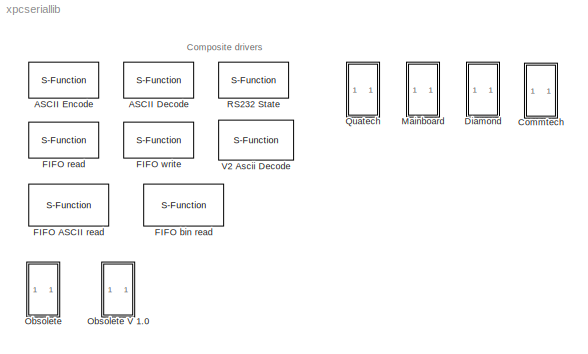
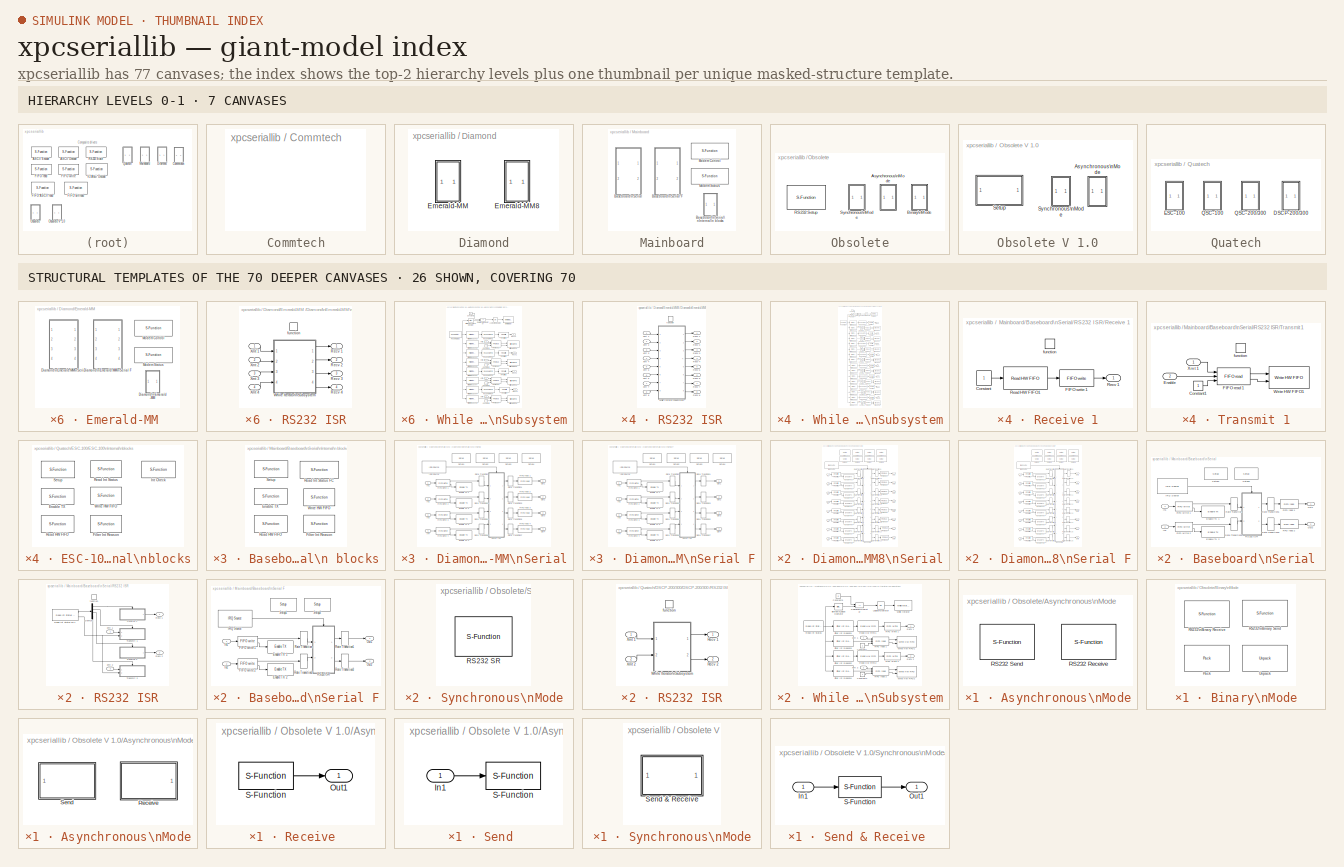
[diagram: thumbnail index - top-2 hierarchy levels (7 canvases) + 26 structural-template representatives of the remaining 70 canvases]
MODEL xpcseriallib
KIND library
BLOCK [S-Function] ASCII Decode 
  EnableBusSupport = off
  FunctionName = asciidecode
  MaskCallbackString = ||
  MaskDescription = ASCII decode -- Decode input string to output variables\n\n
  MaskDisplay = disp( 'ASCII\\nDecode');port_label('input',1,'D');port_label('output',1,'1');
  MaskEnableString = on,on,on
  MaskHelp = helpview(fullfile(docroot, 'mapfiles', 'xpc.map'), 'Quatech_ASCII_Decode')\n
  MaskIconFrame = on
  MaskIconOpaque = on
  MaskIconRotate = none
  MaskIconUnits = autoscale
  MaskInitialization = [ maskdisplay, varids, format ] = masciidecode( 2, format, nvars, vartypes, 1 );\nset_param( gcb, 'MaskDisplay', maskdisplay );\n
  MaskPortRotate = default
  MaskPromptString = Format string:|Number of variables:|Variable types:
  MaskSelfModifiable = on
  MaskStyleString = edit,edit,edit
  MaskToolTipString = on,on,on
  MaskTunableValueString = on,on,on
  MaskType = ASCII Decode
  MaskValueString = %d\\\\r|1|{ }
  MaskVariables = format=&1;nvars=@2;vartypes=@3;
  MaskVisibilityString = on,on,on
  Parameters = format, nvars, varids
  Ports = [1, 1]
  SID = 15
BLOCK [S-Function] ASCII Encode 
  EnableBusSupport = off
  FunctionName = asciiencode
  MaskCallbackString = |||
  MaskDescription = ASCII Encode -- encode input variables as ascii for RS232.\n\n
  MaskDisplay = disp( 'ASCII\\nEncode');port_label('output',1,'D');port_label('input',1,'1');
  MaskEnableString = on,on,on,on
  MaskHelp = helpview(fullfile(docroot, 'mapfiles', 'xpc.map'), 'Quatech_ASCII_Encode')
  MaskIconFrame = on
  MaskIconOpaque = on
  MaskIconRotate = none
  MaskIconUnits = autoscale
  MaskInitialization = [ maskdisplay, varids, format ] = masciidecode( 2, format, nvars, vartypes, 2 );\nset_param( gcb, 'MaskDisplay', maskdisplay );\n
  MaskPortRotate = default
  MaskPromptString = Format string:|Number of variables:|Max output string length:|Variable types:
  MaskSelfModifiable = on
  MaskStyleString = edit,edit,edit,edit
  MaskToolTipString = on,on,on,on
  MaskTunableValueString = on,on,on,on
  MaskType = ASCII Encode
  MaskValueString = %d\\\\r|1|128|{ 'double' }
  MaskVariables = format=&1;nvars=@2;maxlength=@3;vartypes=@4;
  MaskVisibilityString = on,on,on,on
  Parameters = format, maxlength, nvars, varids
  Ports = [1, 1]
  SID = 16
BLOCK [SubSystem] Commtech
  FunctionWithSeparateData = off
  MaskHideContents = off
  MinAlgLoopOccurrences = off
  Opaque = off
  OpenFcn = load_open_subsystem('xpccommtechlib',['xpccommtechlib/RS-422 &',char(10),'RS-485']);
  Ports = []
  PropExecContextOutsideSubsystem = off
  RTWSystemCode = Auto
  RequestExecContextInheritance = off
  SID = 17
BLOCK [SubSystem] Diamond
  FunctionWithSeparateData = off
  MaskHideContents = off
  MinAlgLoopOccurrences = off
  Opaque = off
  Ports = []
  PropExecContextOutsideSubsystem = off
  RTWSystemCode = Auto
  RequestExecContextInheritance = off
  SID = 18
BLOCK [SubSystem] Diamond/Emerald-MM 
  FunctionWithSeparateData = off
  MaskHideContents = off
  MinAlgLoopOccurrences = off
  Opaque = off
  Ports = []
  PropExecContextOutsideSubsystem = off
  RTWSystemCode = Auto
  RequestExecContextInheritance = off
  SID = 29
BLOCK [SubSystem] Diamond/Emerald-MM /Diamond\nEmerald-MM
  FunctionWithSeparateData = off
  MaskHideContents = off
  MinAlgLoopOccurrences = off
  Opaque = off
  Ports = []
  PropExecContextOutsideSubsystem = off
  RTWSystemCode = Auto
  RequestExecContextInheritance = off
  SID = 30
BLOCK [S-Function] Diamond/Emerald-MM /Diamond\nEmerald-MM/Enable TX 
  EnableBusSupport = off
  FunctionName = sertxenableemeraldmm
  MaskDescription = Diamond Emerald\nEnable TX Interrupt\n
  MaskDisplay = disp('Diamond\\nEmerald-MM\\nEnable TX int');\nport_label('input', 1, 'E');\n
  MaskEnableString = on
  MaskHelp = helpview(fullfile(docroot, 'mapfiles', 'xpc.map'), 'Baseboard_Enable_Int')
  MaskIconFrame = on
  MaskIconOpaque = on
  MaskIconRotate = none
  MaskIconUnits = autoscale
  MaskInitialization = addr = hex2dec( addr(3:end) );\n
  MaskPortRotate = default
  MaskPromptString = Base address:
  MaskSelfModifiable = on
  MaskStyleString = edit
  MaskToolTipString = on
  MaskTunableValueString = on
  MaskType = Enable TX Int
  MaskValueString = -1
  MaskVariables = addr=@1;
  MaskVisibilityString = on
  Parameters = addr
  Ports = [1]
  SID = 31
BLOCK [S-Function] Diamond/Emerald-MM /Diamond\nEmerald-MM/Filter Int Reason
  EnableBusSupport = off
  FunctionName = filterserint
  MaskCallbackString = |
  MaskDescription = Diamond Emerald-MM\nInterrupt Source Filter\n
  MaskDisplay = disp('Diamond\\nEmerald\\nFilter');\nport_label('input', 1, 'S' );\nport_label('output', 1, 'E' );\n
  MaskEnableString = on,on
  MaskHelp = helpview(fullfile(docroot, 'mapfiles', 'xpc.map'), 'Baseboard_Filter_Ints')
  MaskIconFrame = on
  MaskIconOpaque = on
  MaskIconRotate = none
  MaskIconUnits = autoscale
  MaskInitialization = \n
  MaskPortRotate = default
  MaskPromptString = Port:|Filter value:
  MaskSelfModifiable = on
  MaskStyleString = popup(1|2|3|4),popup(Receive data|Transmitter empty|Modem status change)
  MaskToolTipString = on,on
  MaskTunableValueString = on,on
  MaskType = Interrupt Source Filter
  MaskValueString = 1|Receive data
  MaskVariables = port=@1;value=@2;
  MaskVisibilityString = on,on
  Parameters = port, value
  Ports = [1, 1]
  SID = 32
BLOCK [S-Function] Diamond/Emerald-MM /Diamond\nEmerald-MM/Read HW FIFO
  EnableBusSupport = off
  FunctionName = serreademeraldmm
  MaskCallbackString = |
  MaskDescription = Diamond Emerald-MM\nRead Data Port\n
  MaskDisplay = disp('Diamond\\nEmerald-MM\\nRead Data Port');\nport_label('input', 1, 'E');\nport_label('output', 1, 'D');
  MaskEnableString = on,on
  MaskHelp = helpview(fullfile(docroot, 'mapfiles', 'xpc.map'), 'Baseboard_Read_HW')
  MaskIconFrame = on
  MaskIconOpaque = on
  MaskIconRotate = none
  MaskIconUnits = autoscale
  MaskInitialization = addr = hex2dec( addr(3:end) );\n
  MaskPortRotate = default
  MaskPromptString = Flush HW FIFO on startup|Base address:
  MaskSelfModifiable = on
  MaskStyleString = checkbox,edit
  MaskToolTipString = on,on
  MaskTunableValueString = on,on
  MaskType = Read Data Port
  MaskValueString = on|0
  MaskVariables = flush=@1;addr=@2;
  MaskVisibilityString = on,on
  Parameters = addr, flush
  Ports = [1, 1]
  SID = 33
BLOCK [S-Function] Diamond/Emerald-MM /Diamond\nEmerald-MM/Read Int Status
  EnableBusSupport = off
  FunctionName = iqueryemeraldmm
  MaskCallbackString = ||||
  MaskDescription = Diamond Emerald-MM\nInterrupt Query\n
  MaskDisplay = disp('Diamond\\nEmerald-MM\\nInt Status');\nport_label('output', 1, 'S' );\n
  MaskEnableString = on,on,on,on,on
  MaskHelp = helpview(fullfile(docroot, 'mapfiles', 'xpc.map'), 'Baseboard_Interrupt_Query')
  MaskIconFrame = on
  MaskIconOpaque = on
  MaskIconRotate = none
  MaskIconUnits = autoscale
  MaskInitialization = addr1 = hex2dec( addr1(3:end) );\naddr2 = hex2dec( addr2(3:end) );\naddr3 = hex2dec( addr3(3:end) );\naddr4 = hex2dec( addr4(3:end) );\nintstat = hex2dec( intstat(3:end) );\n
  MaskPortRotate = default
  MaskPromptString = First port address:|Second port address:|Third port address:|Fourth port address:|Interrupt status address
  MaskSelfModifiable = on
  MaskStyleString = edit,edit,edit,edit,edit
  MaskToolTipString = on,on,on,on,on
  MaskTunableValueString = on,on,on,on,on
  MaskType = Interrupt Query
  MaskValueString = 0|0|0|0|0
  MaskVariables = addr1=@1;addr2=@2;addr3=@3;addr4=@4;intstat=@5;
  MaskVisibilityString = on,on,on,on,on
  Parameters = addr1, addr2, addr3, addr4, intstat
  Ports = [0, 1]
  SID = 34
BLOCK [S-Function] Diamond/Emerald-MM /Diamond\nEmerald-MM/Setup
  EnableBusSupport = off
  FunctionName = sersetupemeraldmm
  MaskCallbackString = |||||||
  MaskDescription = Diamond Emerald-MM\nSerial\nSetup\n
  MaskDisplay = disp('Diamond\\nEmerald-MM\\nSetup');
  MaskEnableString = on,on,on,on,on,on,on,on
  MaskHelp = helpview(fullfile(docroot, 'mapfiles', 'xpc.map'), 'Baseboard_Setup')
  MaskIconFrame = on
  MaskIconOpaque = on
  MaskIconRotate = none
  MaskIconUnits = autoscale
  MaskInitialization = addr = hex2dec( addr(3:end) );\n
  MaskPortRotate = default
  MaskPromptString = Baud rate:|Number of data bits:|Number of stop bits:|Parity:|FIFO mode:|Receive trigger level:|Enable auto RTS/CTS|Base address:
  MaskSelfModifiable = on
  MaskStyleString = popup(115200  (HS 460800)|57600   (HS 230400)|38400   (HS 153600)|28800   (HS 115200)|19200   (HS 76800)|14400   (HS 57600)|9600    (HS 38400)|4800    (HS 19200)|2400    (HS 9600)|1200    (HS 4800)|600     (HS 2400)|300     (HS 1200)|150     (HS 600)|110     (HS 440)|75      (HS 300)|27.5    (HS 110)),popup(5|6|7|8),popup(1|2),popup(None|Even|Odd|Mark|Space),popup(64 deep|16 deep|1 deep),popup(1|q...<+48ch>
  MaskToolTipString = on,on,on,on,on,on,on,on
  MaskTunableValueString = on,on,on,on,on,on,on,on
  MaskType = setup
  MaskValueString = 115200  (HS 460800)|8|1|None|16 deep|half full|on|0
  MaskVariables = baud=@1;width=@2;nstop=@3;parity=@4;fmode=@5;rlevel=@6;ctsmode=@7;addr=@8;
  MaskVisibilityString = on,on,on,on,on,on,on,on
  Parameters = addr, baud, width, nstop, parity, fmode, ctsmode, rlevel
  Ports = []
  SID = 35
BLOCK [S-Function] Diamond/Emerald-MM /Diamond\nEmerald-MM/Write HW FIFO
  EnableBusSupport = off
  FunctionName = serwriteemeraldmm
  MaskDescription = Diamond Emerald-MM\nWrite Data Port\n
  MaskDisplay = disp('Diamond\\nEmerald-MM\\nWrite Data Port');\nport_label('input', 1, 'D');\nport_label('input', 2, 'E');
  MaskEnableString = on
  MaskHelp = helpview(fullfile(docroot, 'mapfiles', 'xpc.map'), 'Baseboard_Write_HW')
  MaskIconFrame = on
  MaskIconOpaque = on
  MaskIconRotate = none
  MaskIconUnits = autoscale
  MaskInitialization = addr = hex2dec( addr(3:end) );\n
  MaskPortRotate = default
  MaskPromptString = Base address:
  MaskSelfModifiable = on
  MaskStyleString = edit
  MaskToolTipString = on
  MaskTunableValueString = on
  MaskType = Write Data Port
  MaskValueString = -1
  MaskVariables = addr=@1;
  MaskVisibilityString = on
  Parameters = addr
  Ports = [2]
  SID = 36
BLOCK [SubSystem] Diamond/Emerald-MM /Diamond\nEmerald-MM\nSerial
  FunctionWithSeparateData = off
  InitFcn = mdiamondemeraldmask(4,4);
  MaskCallbackString = mdiamondemeraldmask( 2, 4 );\n|mdiamondemeraldmask( 2, 4 );||||||||||||||||||||||||||||||||||||||||||||||||||||||||||||||||||
  MaskDescription = Diamond Emerald\nRS232 Send Receive Subsystem\n
  MaskDisplay = disp('Diamond<path> Receive');\nport_label('input',1,'XMT1');\nport_label('input',2,'XMT2');\nport_label('input',3,'XMT3');\nport_label('input',4,'XMT4');\nport_label('output',1,'RCV1');\nport_label('output',2,'RCV2');\nport_label('output',3,'RCV3');\nport_label('output',4,'RCV4');\n
  MaskEnableString = on,on,on,on,on,on,on,on,on,on,on,on,on,on,on,on,on,on,on,on,on,on,on,on,on,on,on,on,on,on,on,on,on,on,on,on,on,on,on,on,on,on,on,on,on,on,on,on,on,on,on,on,on,on,on,on,on,on,on,on,on,on,on,on,on,on,on,on  <repeated x3 — deduplicated; at blocks: Diamond\nEmerald-MM\nSerial, QSC-100, QSC-200/300>
  MaskHelp = helpview(fullfile(docroot, 'mapfiles', 'xpc.map'), 'Baseboard_Serial_Subsystem')
  MaskHideContents = off
  MaskIconFrame = on
  MaskIconOpaque = on
  MaskIconRotate = none
  MaskIconUnits = autoscale
  MaskInitialization = addr = mdiamondemeraldmask( 1, 4 );\nbaddr1 = addr{1};\nbaddr2 = addr{2};\nbaddr3 = addr{3};\nbaddr4 = addr{4};\nistat = addr{5};\nmdiamondemeraldmask( 3, 4 );\n
  MaskPortRotate = default
  MaskPromptString = Parameter group:|Port to modify:|IRQ number:|First port address:|Baud rate:|Parity:|Data bits:|Stop bits:|Hardware FIFO size:|Receive FIFO interrupt level:|Auto RTS/CTS:|Transmit software FIFO size:|Transmit FIFO data type:|Receive software FIFO size:|Receive maximum read:|Receive minimum read:|Read to delimiter:|Delimiter:|Receive data type:|Receive SampleTime:|Baud rate:|Parity:|Data bits:|Stop ...<+864ch>
  MaskSelfModifiable = on
  MaskStyleString = popup(Board Setup|Basic Setup|Transmit Setup|Receive Setup),popup(1|2|3|4),edit,popup(0x3F8|0x3E8|0x380|0x240|0x100|0x120|0x140|0x160),popup(115200  (HS 460800)|57600   (HS 230400)|38400   (HS 153600)|28800   (HS 115200)|19200   (HS 76800)|14400   (HS 57600)|9600    (HS 38400)|4800    (HS 19200)|2400    (HS 9600)|1200    (HS 4800)|600     (HS 2400)|300     (HS 1200)|150     (HS 600)|110     (HS 44...<+2706ch>
  MaskToolTipString = on,on,on,on,on,on,on,on,on,on,on,on,on,on,on,on,on,on,on,on,on,on,on,on,on,on,on,on,on,on,on,on,on,on,on,on,on,on,on,on,on,on,on,on,on,on,on,on,on,on,on,on,on,on,on,on,on,on,on,on,on,on,on,on,on,on,on,on  <repeated x3 — deduplicated; at blocks: Diamond\nEmerald-MM\nSerial, QSC-100, QSC-200/300>
  MaskTunableValueString = on,on,on,on,on,on,on,on,on,on,on,on,on,on,on,on,on,on,on,on,on,on,on,on,on,on,on,on,on,on,on,on,on,on,on,on,on,on,on,on,on,on,on,on,on,on,on,on,on,on,on,on,on,on,on,on,on,on,on,on,on,on,on,on,on,on,on,on  <repeated x3 — deduplicated; at blocks: Diamond\nEmerald-MM\nSerial, QSC-100, QSC-200/300>
  MaskType = Emerald-MM RS232 Send Receive
  MaskValueString = Board Setup|1|7|0x240|115200  (HS 460800)|None|8|1|16 deep|half full|on|1024|8 bit uint null terminated|1024|1024|1|on|13|count+16 bit uint|-1|115200  (HS 460800)|None|8|1|16 deep|half full|on|1024|8 bit uint null terminated|1024|1024|1|on|13|count+16 bit uint|-1|115200  (HS 460800)|None|8|1|16 deep|half full|on|1024|8 bit uint null terminated|1024|1024|1|on|13|count+16 bit uint|-1|115200  (HS 460...<+105ch>
  MaskVariables = group=@1;port=@2;irqnum=@3;saddr1=&4;baud1=&5;parity1=&6;ndata1=&7;nstop1=&8;fifomode1=&9;rlevel1=&10;automode1=&11;xmtfifosize1=@12;xmtdatatype1=@13;rcvfifosize1=@14;rcvmaxread1=@15;rcvminread1=@16;rcvusedelim1=&17;rcvdelim1=&18;rcvdatatype1=@19;rcvsampletime1=@20;baud2=&21;parity2=&22;ndata2=&23;nstop2=&24;fifomode2=&25;rlevel2=&26;automode2=&27;xmtfifosize2=@28;xmtdatatype2=@29;rcvfifosize2=@30...<+568ch>
  MaskVisibilityString = on,off,on,on,off,off,off,off,off,off,off,off,off,off,off,off,off,off,off,off,off,off,off,off,off,off,off,off,off,off,off,off,off,off,off,off,off,off,off,off,off,off,off,off,off,off,off,off,off,off,off,off,off,off,off,off,off,off,off,off,off,off,off,off,off,off,off,off
  MinAlgLoopOccurrences = off
  Opaque = off
  Ports = [4, 4]
  PropExecContextOutsideSubsystem = off
  RTWSystemCode = Auto
  RequestExecContextInheritance = off
  SID = 37
BLOCK [SubSystem] Diamond/Emerald-MM /Diamond\nEmerald-MM\nSerial F
  FunctionWithSeparateData = off
  InitFcn = mdiamondemeraldfifomask(4,4);
  MaskCallbackString = mdiamondemeraldfifomask( 2, 4 );\n|mdiamondemeraldfifomask( 2, 4 );||||||||||||||||||||||||||||||||||||||||||
  MaskDescription = Diamond Emerald\nRS232 Send Receive Subsystem\n
  MaskDisplay = disp('Diamond<path> Receive\\nFIFO OUT');\nport_label('input',1,'XMT1');\nport_label('input',2,'XMT2');\nport_label('input',3,'XMT3');\nport_label('input',4,'XMT4');\nport_label('output',1,'FIFO1');\nport_label('output',2,'FIFO2');\nport_label('output',3,'FIFO3');\nport_label('output',4,'FIFO4');\n
  MaskEnableString = on,on,on,on,on,on,on,on,on,on,on,on,on,on,on,on,on,on,on,on,on,on,on,on,on,on,on,on,on,on,on,on,on,on,on,on,on,on,on,on,on,on,on,on
  MaskHelp = helpview(fullfile(docroot, 'mapfiles', 'xpc.map'), 'Baseboard_Serial_Subsystem')
  MaskHideContents = off
  MaskIconFrame = on
  MaskIconOpaque = on
  MaskIconRotate = none
  MaskIconUnits = autoscale
  MaskInitialization = addr = mdiamondemeraldfifomask( 1, 4 );\nbaddr1 = addr{1};\nbaddr2 = addr{2};\nbaddr3 = addr{3};\nbaddr4 = addr{4};\nistat = addr{5};\nmdiamondemeraldfifomask( 3, 4 );\n
  MaskPortRotate = default
  MaskPromptString = Parameter group:|Port to modify:|IRQ number:|First port address:|Baud rate:|Parity:|Data bits:|Stop bits:|Hardware FIFO size:|Receive FIFO interrupt level:|Auto RTS/CTS:|Transmit software FIFO size:|Transmit FIFO data type:|Receive software FIFO size:|Baud rate:|Parity:|Data bits:|Stop bits:|Hardware FIFO size:|Receive FIFO interrupt level:|Auto RTS/CTS:|Transmit software FIFO size:|Transmit FIFO ...<+412ch>
  MaskSelfModifiable = on
  MaskStyleString = popup(Board Setup|Basic Setup|FIFO Setup),popup(1|2|3|4),edit,popup(0x3F8|0x3E8|0x380|0x240|0x100|0x120|0x140|0x160),popup(115200  (HS 460800)|57600   (HS 230400)|38400   (HS 153600)|28800   (HS 115200)|19200   (HS 76800)|14400   (HS 57600)|9600    (HS 38400)|4800    (HS 19200)|2400    (HS 9600)|1200    (HS 4800)|600     (HS 2400)|300     (HS 1200)|150     (HS 600)|110     (HS 440)|75      (HS 300...<+2052ch>
  MaskToolTipString = on,on,on,on,on,on,on,on,on,on,on,on,on,on,on,on,on,on,on,on,on,on,on,on,on,on,on,on,on,on,on,on,on,on,on,on,on,on,on,on,on,on,on,on
  MaskTunableValueString = on,on,on,on,on,on,on,on,on,on,on,on,on,on,on,on,on,on,on,on,on,on,on,on,on,on,on,on,on,on,on,on,on,on,on,on,on,on,on,on,on,on,on,on
  MaskType = Emerald-MM RS232 Send Receive
  MaskValueString = Board Setup|1|7|0x240|115200  (HS 460800)|None|8|1|16 deep|half full|on|1024|8 bit uint null terminated|1024|115200  (HS 460800)|None|8|1|16 deep|half full|on|1024|8 bit uint null terminated|1024|115200  (HS 460800)|None|8|1|16 deep|half full|on|1024|8 bit uint null terminated|1024|115200  (HS 460800)|None|8|1|16 deep|half full|on|1024|8 bit uint null terminated|1024
  MaskVariables = group=@1;port=@2;irqnum=@3;saddr1=&4;baud1=&5;parity1=&6;ndata1=&7;nstop1=&8;fifomode1=&9;rlevel1=&10;automode1=&11;xmtfifosize1=@12;xmtdatatype1=@13;rcvfifosize1=@14;baud2=&15;parity2=&16;ndata2=&17;nstop2=&18;fifomode2=&19;rlevel2=&20;automode2=&21;xmtfifosize2=@22;xmtdatatype2=@23;rcvfifosize2=@24;baud3=&25;parity3=&26;ndata3=&27;nstop3=&28;fifomode3=&29;rlevel3=&30;automode3=&31;xmtfifosize3=@...<+172ch>
  MaskVisibilityString = on,off,on,on,off,off,off,off,off,off,off,off,off,off,off,off,off,off,off,off,off,off,off,off,off,off,off,off,off,off,off,off,off,off,off,off,off,off,off,off,off,off,off,off
  MinAlgLoopOccurrences = off
  Opaque = off
  Ports = [4, 4]
  PropExecContextOutsideSubsystem = off
  RTWSystemCode = Auto
  RequestExecContextInheritance = off
  SID = 38
BLOCK [Reference] Diamond/Emerald-MM /Diamond\nEmerald-MM\nSerial F/Enable TX 1  REF=xpcseriallib/Diamond/Emerald-MM /Diamond\nEmerald-MM/Enable TX 
  Ports = [1]
  SID = 38:5
  SourceBlock = xpcseriallib/Diamond/Emerald-MM /Diamond\nEmerald-MM/Enable TX
  SourceType = Enable TX Int
  addr = baddr1
BLOCK [Reference] Diamond/Emerald-MM /Diamond\nEmerald-MM\nSerial F/Enable TX 2  REF=xpcseriallib/Diamond/Emerald-MM /Diamond\nEmerald-MM/Enable TX 
  Ports = [1]
  SID = 38:6
  SourceBlock = xpcseriallib/Diamond/Emerald-MM /Diamond\nEmerald-MM/Enable TX
  SourceType = Enable TX Int
  addr = baddr2
BLOCK [Reference] Diamond/Emerald-MM /Diamond\nEmerald-MM\nSerial F/Enable TX 3  REF=xpcseriallib/Diamond/Emerald-MM /Diamond\nEmerald-MM/Enable TX 
  Ports = [1]
  SID = 38:7
  SourceBlock = xpcseriallib/Diamond/Emerald-MM /Diamond\nEmerald-MM/Enable TX
  SourceType = Enable TX Int
  addr = baddr3
BLOCK [Reference] Diamond/Emerald-MM /Diamond\nEmerald-MM\nSerial F/Enable TX 4  REF=xpcseriallib/Diamond/Emerald-MM /Diamond\nEmerald-MM/Enable TX 
  Ports = [1]
  SID = 38:8
  SourceBlock = xpcseriallib/Diamond/Emerald-MM /Diamond\nEmerald-MM/Enable TX
  SourceType = Enable TX Int
  addr = baddr4
BLOCK [Reference] Diamond/Emerald-MM /Diamond\nEmerald-MM\nSerial F/FIFO write 1  REF=xpcseriallib/FIFO write 
  Ports = [1, 2]
  SID = 38:9
  SourceBlock = xpcseriallib/FIFO write
  SourceType = Asynchronous FIFO Block: writer
  id = XMT channel 1, IRQ 7
  inputtype = 8 bit uint null terminated
  present = on
  sampletime = -1
  size = 1024
BLOCK [Reference] Diamond/Emerald-MM /Diamond\nEmerald-MM\nSerial F/FIFO write 2  REF=xpcseriallib/FIFO write 
  Ports = [1, 2]
  SID = 38:10
  SourceBlock = xpcseriallib/FIFO write
  SourceType = Asynchronous FIFO Block: writer
  id = XMT channel 2, IRQ 7
  inputtype = 8 bit uint null terminated
  present = on
  sampletime = -1
  size = 1024
BLOCK [Reference] Diamond/Emerald-MM /Diamond\nEmerald-MM\nSerial F/FIFO write 3  REF=xpcseriallib/FIFO write 
  Ports = [1, 2]
  SID = 38:11
  SourceBlock = xpcseriallib/FIFO write
  SourceType = Asynchronous FIFO Block: writer
  id = XMT channel 3, IRQ 7
  inputtype = 8 bit uint null terminated
  present = on
  sampletime = -1
  size = 1024
BLOCK [Reference] Diamond/Emerald-MM /Diamond\nEmerald-MM\nSerial F/FIFO write 4  REF=xpcseriallib/FIFO write 
  Ports = [1, 2]
  SID = 38:12
  SourceBlock = xpcseriallib/FIFO write
  SourceType = Asynchronous FIFO Block: writer
  id = XMT channel 4, IRQ 7
  inputtype = 8 bit uint null terminated
  present = on
  sampletime = -1
  size = 1024
BLOCK [Reference] Diamond/Emerald-MM /Diamond\nEmerald-MM\nSerial F/IRQ Source  REF=xpclib/Asynchronous\nEvent/IRQ Source
  Ports = [0, 1]
  SID = 38:13
  SourceBlock = xpclib/Asynchronous\nEvent/IRQ Source
  SourceType = xpcinterrupt
  b_type = None/Other
  irqNo = 7
  preempt = 10
  slot = -1
BLOCK [Inport] Diamond/Emerald-MM /Diamond\nEmerald-MM\nSerial F/In1
  IconDisplay = Port number
  SID = 38:1
BLOCK [Inport] Diamond/Emerald-MM /Diamond\nEmerald-MM\nSerial F/In2
  IconDisplay = Port number
  Port = 2
  SID = 38:2
BLOCK [Inport] Diamond/Emerald-MM /Diamond\nEmerald-MM\nSerial F/In3
  IconDisplay = Port number
  Port = 3
  SID = 38:3
BLOCK [Inport] Diamond/Emerald-MM /Diamond\nEmerald-MM\nSerial F/In4
  IconDisplay = Port number
  Port = 4
  SID = 38:4
BLOCK [Outport] Diamond/Emerald-MM /Diamond\nEmerald-MM\nSerial F/Out1
  IconDisplay = Port number
  SID = 38:27
BLOCK [Outport] Diamond/Emerald-MM /Diamond\nEmerald-MM\nSerial F/Out2
  IconDisplay = Port number
  Port = 2
  SID = 38:28
BLOCK [Outport] Diamond/Emerald-MM /Diamond\nEmerald-MM\nSerial F/Out3
  IconDisplay = Port number
  Port = 3
  SID = 38:29
BLOCK [Outport] Diamond/Emerald-MM /Diamond\nEmerald-MM\nSerial F/Out4
  IconDisplay = Port number
  Port = 4
  SID = 38:30
BLOCK [SubSystem] Diamond/Emerald-MM /Diamond\nEmerald-MM\nSerial F/RS232 ISR
  FunctionWithSeparateData = off
  MaskCallbackString = ||||
  MaskDescription = Baseboard Serial\nInterrupt Service Routine\n
  MaskDisplay = disp('Diamond<path>');\nport_label('input', 1, 'XMT1');\nport_label('input', 2, 'XMT2');\nport_label('input', 3, 'XMT3');\nport_label('input', 4, 'XMT4');\nport_label('output', 1, 'RCV1');\nport_label('output', 2, 'RCV2');\nport_label('output', 3, 'RCV3');\nport_label('output', 4, 'RCV4');\n
  MaskEnableString = on,on,on,on,on
  MaskHideContents = off
  MaskIconFrame = on
  MaskIconOpaque = on
  MaskIconRotate = none
  MaskIconUnits = autoscale
  MaskInitialization = baddr1 = addr1;\nbaddr2 = addr2;\nbaddr3 = addr3;\nbaddr4 = addr4;\nistat = intstat;\n
  MaskPortRotate = default
  MaskPromptString = First channel address:|Second channel address:|Third channel address:|Fourth channel address:|Status register address:
  MaskSelfModifiable = on
  MaskStyleString = edit,edit,edit,edit,edit
  MaskToolTipString = on,on,on,on,on
  MaskTunableValueString = on,on,on,on,on
  MaskType = RS232 ISR
  MaskValueString = baddr1|baddr2|baddr3|baddr4|istat
  MaskVariables = addr1=@1;addr2=@2;addr3=@3;addr4=@4;intstat=@5;
  MaskVisibilityString = on,on,on,on,on
  MinAlgLoopOccurrences = off
  Opaque = off
  Ports = [4, 4, 0, 1]
  PropExecContextOutsideSubsystem = off
  RTWSystemCode = Auto
  RequestExecContextInheritance = off
  SID = 38:14
  TreatAsAtomicUnit = on
BLOCK [Outport] Diamond/Emerald-MM /Diamond\nEmerald-MM\nSerial F/RS232 ISR/Recv 1
  IconDisplay = Port number
  SID = 38:14:49
BLOCK [Outport] Diamond/Emerald-MM /Diamond\nEmerald-MM\nSerial F/RS232 ISR/Recv 2
  IconDisplay = Port number
  Port = 2
  SID = 38:14:50
BLOCK [Outport] Diamond/Emerald-MM /Diamond\nEmerald-MM\nSerial F/RS232 ISR/Recv 3
  IconDisplay = Port number
  Port = 3
  SID = 38:14:51
BLOCK [Outport] Diamond/Emerald-MM /Diamond\nEmerald-MM\nSerial F/RS232 ISR/Recv 4
  IconDisplay = Port number
  Port = 4
  SID = 38:14:52
BLOCK [SubSystem] Diamond/Emerald-MM /Diamond\nEmerald-MM\nSerial F/RS232 ISR/While Iterator\nSubsystem
  FunctionWithSeparateData = off
  MaskHideContents = off
  MinAlgLoopOccurrences = off
  Opaque = off
  Ports = [4, 4]
  PropExecContextOutsideSubsystem = off
  RTWSystemCode = Auto
  RequestExecContextInheritance = off
  SID = 38:14:6
  TreatAsAtomicUnit = on
BLOCK [Reference] Diamond/Emerald-MM /Diamond\nEmerald-MM\nSerial F/RS232 ISR/While Iterator\nSubsystem/Bitwise\nLogical Operator  REF=simulink/Logic and Bit\nOperations/Bitwise\nOperator
  BitMask = 'FF'
  BitMaskRealWorld = Stored Integer
  NumInputPorts = 1
  Ports = [1, 1]
  SID = 38:14:11
  SourceBlock = simulink/Logic and Bit\nOperations/Bitwise\nOperator
  SourceType = Bitwise Operator
  UseBitMask = on
  logicop = AND
BLOCK [Constant] Diamond/Emerald-MM /Diamond\nEmerald-MM\nSerial F/RS232 ISR/While Iterator\nSubsystem/Constant1
  OutDataTypeStr = uint32
  SID = 38:14:12
BLOCK [Constant] Diamond/Emerald-MM /Diamond\nEmerald-MM\nSerial F/RS232 ISR/While Iterator\nSubsystem/Constant2
  OutDataTypeStr = uint32
  SID = 38:14:13
BLOCK [Constant] Diamond/Emerald-MM /Diamond\nEmerald-MM\nSerial F/RS232 ISR/While Iterator\nSubsystem/Constant3
  OutDataTypeStr = uint32
  SID = 38:14:14
  Value = 0
BLOCK [Constant] Diamond/Emerald-MM /Diamond\nEmerald-MM\nSerial F/RS232 ISR/While Iterator\nSubsystem/Constant4
  OutDataTypeStr = uint32
  SID = 38:14:15
BLOCK [Constant] Diamond/Emerald-MM /Diamond\nEmerald-MM\nSerial F/RS232 ISR/While Iterator\nSubsystem/Constant5
  OutDataTypeStr = uint32
  SID = 38:14:16
BLOCK [Reference] Diamond/Emerald-MM /Diamond\nEmerald-MM\nSerial F/RS232 ISR/While Iterator\nSubsystem/FIFO read 1  REF=xpcseriallib/FIFO read 
  Ports = [3, 2]
  SID = 38:14:17
  SourceBlock = xpcseriallib/FIFO read
  SourceType = Asynchronous FIFO Block: reader
  delimiter = 13
  enable = on
  enableout = on
  maxsize = 60
  minsize = 1
  outputtype = count+32 bit uint
  sampletime = -1
  usedelimiter = off
BLOCK [Reference] Diamond/Emerald-MM /Diamond\nEmerald-MM\nSerial F/RS232 ISR/While Iterator\nSubsystem/FIFO read 2  REF=xpcseriallib/FIFO read 
  Ports = [3, 2]
  SID = 38:14:18
  SourceBlock = xpcseriallib/FIFO read
  SourceType = Asynchronous FIFO Block: reader
  delimiter = 13
  enable = on
  enableout = on
  maxsize = 60
  minsize = 1
  outputtype = count+32 bit uint
  sampletime = -1
  usedelimiter = off
BLOCK [Reference] Diamond/Emerald-MM /Diamond\nEmerald-MM\nSerial F/RS232 ISR/While Iterator\nSubsystem/FIFO read 3  REF=xpcseriallib/FIFO read 
  Ports = [3, 2]
  SID = 38:14:19
  SourceBlock = xpcseriallib/FIFO read
  SourceType = Asynchronous FIFO Block: reader
  delimiter = 13
  enable = on
  enableout = on
  maxsize = 60
  minsize = 1
  outputtype = count+32 bit uint
  sampletime = -1
  usedelimiter = off
BLOCK [Reference] Diamond/Emerald-MM /Diamond\nEmerald-MM\nSerial F/RS232 ISR/While Iterator\nSubsystem/FIFO read 4  REF=xpcseriallib/FIFO read 
  Ports = [3, 2]
  SID = 38:14:20
  SourceBlock = xpcseriallib/FIFO read
  SourceType = Asynchronous FIFO Block: reader
  delimiter = 13
  enable = on
  enableout = on
  maxsize = 60
  minsize = 1
  outputtype = count+32 bit uint
  sampletime = -1
  usedelimiter = off
BLOCK [Reference] Diamond/Emerald-MM /Diamond\nEmerald-MM\nSerial F/RS232 ISR/While Iterator\nSubsystem/FIFO write 1  REF=xpcseriallib/FIFO write 
  Ports = [1, 1]
  SID = 38:14:21
  SourceBlock = xpcseriallib/FIFO write
  SourceType = Asynchronous FIFO Block: writer
  id = RCV channel 1, IRQ 7
  inputtype = count+32 bit uint
  present = off
  sampletime = -1
  size = 1024
BLOCK [Reference] Diamond/Emerald-MM /Diamond\nEmerald-MM\nSerial F/RS232 ISR/While Iterator\nSubsystem/FIFO write 2  REF=xpcseriallib/FIFO write 
  Ports = [1, 1]
  SID = 38:14:22
  SourceBlock = xpcseriallib/FIFO write
  SourceType = Asynchronous FIFO Block: writer
  id = RCV channel 2, IRQ 7
  inputtype = count+32 bit uint
  present = off
  sampletime = -1
  size = 1024
BLOCK [Reference] Diamond/Emerald-MM /Diamond\nEmerald-MM\nSerial F/RS232 ISR/While Iterator\nSubsystem/FIFO write 3  REF=xpcseriallib/FIFO write 
  Ports = [1, 1]
  SID = 38:14:23
  SourceBlock = xpcseriallib/FIFO write
  SourceType = Asynchronous FIFO Block: writer
  id = RCV channel 3, IRQ 7
  inputtype = count+32 bit uint
  present = off
  sampletime = -1
  size = 1024
BLOCK [Reference] Diamond/Emerald-MM /Diamond\nEmerald-MM\nSerial F/RS232 ISR/While Iterator\nSubsystem/FIFO write 4  REF=xpcseriallib/FIFO write 
  Ports = [1, 1]
  SID = 38:14:24
  SourceBlock = xpcseriallib/FIFO write
  SourceType = Asynchronous FIFO Block: writer
  id = RCV channel 4, IRQ 7
  inputtype = count+32 bit uint
  present = off
  sampletime = -1
  size = 1024
BLOCK [Reference] Diamond/Emerald-MM /Diamond\nEmerald-MM\nSerial F/RS232 ISR/While Iterator\nSubsystem/Filter Int Reason1  REF=xpcseriallib/Diamond/Emerald-MM /Diamond\nEmerald-MM/Filter Int Reason
  Ports = [1, 1]
  SID = 38:14:25
  SourceBlock = xpcseriallib/Diamond/Emerald-MM /Diamond\nEmerald-MM/Filter Int Reason
  SourceType = Interrupt Source Filter
  port = 1
  value = Receive data
BLOCK [Reference] Diamond/Emerald-MM /Diamond\nEmerald-MM\nSerial F/RS232 ISR/While Iterator\nSubsystem/Filter Int Reason2  REF=xpcseriallib/Diamond/Emerald-MM /Diamond\nEmerald-MM/Filter Int Reason
  Ports = [1, 1]
  SID = 38:14:26
  SourceBlock = xpcseriallib/Diamond/Emerald-MM /Diamond\nEmerald-MM/Filter Int Reason
  SourceType = Interrupt Source Filter
  port = 2
  value = Receive data
BLOCK [Reference] Diamond/Emerald-MM /Diamond\nEmerald-MM\nSerial F/RS232 ISR/While Iterator\nSubsystem/Filter Int Reason3  REF=xpcseriallib/Diamond/Emerald-MM /Diamond\nEmerald-MM/Filter Int Reason
  Ports = [1, 1]
  SID = 38:14:27
  SourceBlock = xpcseriallib/Diamond/Emerald-MM /Diamond\nEmerald-MM/Filter Int Reason
  SourceType = Interrupt Source Filter
  port = 3
  value = Receive data
BLOCK [Reference] Diamond/Emerald-MM /Diamond\nEmerald-MM\nSerial F/RS232 ISR/While Iterator\nSubsystem/Filter Int Reason4  REF=xpcseriallib/Diamond/Emerald-MM /Diamond\nEmerald-MM/Filter Int Reason
  Ports = [1, 1]
  SID = 38:14:28
  SourceBlock = xpcseriallib/Diamond/Emerald-MM /Diamond\nEmerald-MM/Filter Int Reason
  SourceType = Interrupt Source Filter
  port = 4
  value = Receive data
BLOCK [Reference] Diamond/Emerald-MM /Diamond\nEmerald-MM\nSerial F/RS232 ISR/While Iterator\nSubsystem/Filter Int Reason5  REF=xpcseriallib/Diamond/Emerald-MM /Diamond\nEmerald-MM/Filter Int Reason
  Ports = [1, 1]
  SID = 38:14:29
  SourceBlock = xpcseriallib/Diamond/Emerald-MM /Diamond\nEmerald-MM/Filter Int Reason
  SourceType = Interrupt Source Filter
  port = 1
  value = Transmitter empty
BLOCK [Reference] Diamond/Emerald-MM /Diamond\nEmerald-MM\nSerial F/RS232 ISR/While Iterator\nSubsystem/Filter Int Reason6  REF=xpcseriallib/Diamond/Emerald-MM /Diamond\nEmerald-MM/Filter Int Reason
  Ports = [1, 1]
  SID = 38:14:30
  SourceBlock = xpcseriallib/Diamond/Emerald-MM /Diamond\nEmerald-MM/Filter Int Reason
  SourceType = Interrupt Source Filter
  port = 2
  value = Transmitter empty
BLOCK [Reference] Diamond/Emerald-MM /Diamond\nEmerald-MM\nSerial F/RS232 ISR/While Iterator\nSubsystem/Filter Int Reason7  REF=xpcseriallib/Diamond/Emerald-MM /Diamond\nEmerald-MM/Filter Int Reason
  Ports = [1, 1]
  SID = 38:14:31
  SourceBlock = xpcseriallib/Diamond/Emerald-MM /Diamond\nEmerald-MM/Filter Int Reason
  SourceType = Interrupt Source Filter
  port = 3
  value = Transmitter empty
BLOCK [Reference] Diamond/Emerald-MM /Diamond\nEmerald-MM\nSerial F/RS232 ISR/While Iterator\nSubsystem/Filter Int Reason8  REF=xpcseriallib/Diamond/Emerald-MM /Diamond\nEmerald-MM/Filter Int Reason
  Ports = [1, 1]
  SID = 38:14:32
  SourceBlock = xpcseriallib/Diamond/Emerald-MM /Diamond\nEmerald-MM/Filter Int Reason
  SourceType = Interrupt Source Filter
  port = 4
  value = Transmitter empty
BLOCK [Logic] Diamond/Emerald-MM /Diamond\nEmerald-MM\nSerial F/RS232 ISR/While Iterator\nSubsystem/Logical\nOperator
  AllPortsSameDT = off
  Inputs = 1
  Operator = OR
  Ports = [1, 1]
  SID = 38:14:33
BLOCK [Reference] Diamond/Emerald-MM /Diamond\nEmerald-MM\nSerial F/RS232 ISR/While Iterator\nSubsystem/Read HW FIFO1  REF=xpcseriallib/Diamond/Emerald-MM /Diamond\nEmerald-MM/Read HW FIFO
  Ports = [1, 1]
  SID = 38:14:34
  SourceBlock = xpcseriallib/Diamond/Emerald-MM /Diamond\nEmerald-MM/Read HW FIFO
  SourceType = Read Data Port
  addr = baddr1
  flush = on
BLOCK [Reference] Diamond/Emerald-MM /Diamond\nEmerald-MM\nSerial F/RS232 ISR/While Iterator\nSubsystem/Read HW FIFO2  REF=xpcseriallib/Diamond/Emerald-MM /Diamond\nEmerald-MM/Read HW FIFO
  Ports = [1, 1]
  SID = 38:14:35
  SourceBlock = xpcseriallib/Diamond/Emerald-MM /Diamond\nEmerald-MM/Read HW FIFO
  SourceType = Read Data Port
  addr = baddr2
  flush = on
BLOCK [Reference] Diamond/Emerald-MM /Diamond\nEmerald-MM\nSerial F/RS232 ISR/While Iterator\nSubsystem/Read HW FIFO3  REF=xpcseriallib/Diamond/Emerald-MM /Diamond\nEmerald-MM/Read HW FIFO
  Ports = [1, 1]
  SID = 38:14:36
  SourceBlock = xpcseriallib/Diamond/Emerald-MM /Diamond\nEmerald-MM/Read HW FIFO
  SourceType = Read Data Port
  addr = baddr3
  flush = on
BLOCK [Reference] Diamond/Emerald-MM /Diamond\nEmerald-MM\nSerial F/RS232 ISR/While Iterator\nSubsystem/Read HW FIFO4  REF=xpcseriallib/Diamond/Emerald-MM /Diamond\nEmerald-MM/Read HW FIFO
  Ports = [1, 1]
  SID = 38:14:37
  SourceBlock = xpcseriallib/Diamond/Emerald-MM /Diamond\nEmerald-MM/Read HW FIFO
  SourceType = Read Data Port
  addr = baddr4
  flush = on
BLOCK [Reference] Diamond/Emerald-MM /Diamond\nEmerald-MM\nSerial F/RS232 ISR/While Iterator\nSubsystem/Read Int Status  REF=xpcseriallib/Diamond/Emerald-MM /Diamond\nEmerald-MM/Read Int Status
  Ports = [0, 1]
  SID = 38:14:38
  SourceBlock = xpcseriallib/Diamond/Emerald-MM /Diamond\nEmerald-MM/Read Int Status
  SourceType = Interrupt Query
  addr1 = baddr1
  addr2 = baddr2
  addr3 = baddr3
  addr4 = baddr4
  intstat = istat
BLOCK [Outport] Diamond/Emerald-MM /Diamond\nEmerald-MM\nSerial F/RS232 ISR/While Iterator\nSubsystem/Recv 1
  IconDisplay = Port number
  SID = 38:14:45
BLOCK [Outport] Diamond/Emerald-MM /Diamond\nEmerald-MM\nSerial F/RS232 ISR/While Iterator\nSubsystem/Recv 2
  IconDisplay = Port number
  Port = 2
  SID = 38:14:46
BLOCK [Outport] Diamond/Emerald-MM /Diamond\nEmerald-MM\nSerial F/RS232 ISR/While Iterator\nSubsystem/Recv 3
  IconDisplay = Port number
  Port = 3
  SID = 38:14:47
BLOCK [Outport] Diamond/Emerald-MM /Diamond\nEmerald-MM\nSerial F/RS232 ISR/While Iterator\nSubsystem/Recv 4
  IconDisplay = Port number
  Port = 4
  SID = 38:14:48
BLOCK [RelationalOperator] Diamond/Emerald-MM /Diamond\nEmerald-MM\nSerial F/RS232 ISR/While Iterator\nSubsystem/Relational\nOperator
  InputSameDT = off
  Operator = ~=
  Ports = [2, 1]
  SID = 38:14:39
BLOCK [WhileIterator] Diamond/Emerald-MM /Diamond\nEmerald-MM\nSerial F/RS232 ISR/While Iterator\nSubsystem/While Iterator
  MaxIters = 66
  Ports = [1]
  SID = 38:14:40
  WhileBlockType = do-while
BLOCK [Reference] Diamond/Emerald-MM /Diamond\nEmerald-MM\nSerial F/RS232 ISR/While Iterator\nSubsystem/Write HW FIFO1  REF=xpcseriallib/Diamond/Emerald-MM /Diamond\nEmerald-MM/Write HW FIFO
  Ports = [2]
  SID = 38:14:41
  SourceBlock = xpcseriallib/Diamond/Emerald-MM /Diamond\nEmerald-MM/Write HW FIFO
  SourceType = Write Data Port
  addr = baddr1
BLOCK [Reference] Diamond/Emerald-MM /Diamond\nEmerald-MM\nSerial F/RS232 ISR/While Iterator\nSubsystem/Write HW FIFO2  REF=xpcseriallib/Diamond/Emerald-MM /Diamond\nEmerald-MM/Write HW FIFO
  Ports = [2]
  SID = 38:14:42
  SourceBlock = xpcseriallib/Diamond/Emerald-MM /Diamond\nEmerald-MM/Write HW FIFO
  SourceType = Write Data Port
  addr = baddr2
BLOCK [Reference] Diamond/Emerald-MM /Diamond\nEmerald-MM\nSerial F/RS232 ISR/While Iterator\nSubsystem/Write HW FIFO3  REF=xpcseriallib/Diamond/Emerald-MM /Diamond\nEmerald-MM/Write HW FIFO
  Ports = [2]
  SID = 38:14:43
  SourceBlock = xpcseriallib/Diamond/Emerald-MM /Diamond\nEmerald-MM/Write HW FIFO
  SourceType = Write Data Port
  addr = baddr3
BLOCK [Reference] Diamond/Emerald-MM /Diamond\nEmerald-MM\nSerial F/RS232 ISR/While Iterator\nSubsystem/Write HW FIFO4  REF=xpcseriallib/Diamond/Emerald-MM /Diamond\nEmerald-MM/Write HW FIFO
  Ports = [2]
  SID = 38:14:44
  SourceBlock = xpcseriallib/Diamond/Emerald-MM /Diamond\nEmerald-MM/Write HW FIFO
  SourceType = Write Data Port
  addr = baddr4
BLOCK [Inport] Diamond/Emerald-MM /Diamond\nEmerald-MM\nSerial F/RS232 ISR/While Iterator\nSubsystem/Xmt 1
  IconDisplay = Port number
  SID = 38:14:7
BLOCK [Inport] Diamond/Emerald-MM /Diamond\nEmerald-MM\nSerial F/RS232 ISR/While Iterator\nSubsystem/Xmt 2
  IconDisplay = Port number
  Port = 2
  SID = 38:14:8
BLOCK [Inport] Diamond/Emerald-MM /Diamond\nEmerald-MM\nSerial F/RS232 ISR/While Iterator\nSubsystem/Xmt 3
  IconDisplay = Port number
  Port = 3
  SID = 38:14:9
BLOCK [Inport] Diamond/Emerald-MM /Diamond\nEmerald-MM\nSerial F/RS232 ISR/While Iterator\nSubsystem/Xmt 4
  IconDisplay = Port number
  Port = 4
  SID = 38:14:10
BLOCK [Inport] Diamond/Emerald-MM /Diamond\nEmerald-MM\nSerial F/RS232 ISR/Xmt 1
  IconDisplay = Port number
  SID = 38:14:1
BLOCK [Inport] Diamond/Emerald-MM /Diamond\nEmerald-MM\nSerial F/RS232 ISR/Xmt 2
  IconDisplay = Port number
  Port = 2
  SID = 38:14:2
BLOCK [Inport] Diamond/Emerald-MM /Diamond\nEmerald-MM\nSerial F/RS232 ISR/Xmt 3
  IconDisplay = Port number
  Port = 3
  SID = 38:14:3
BLOCK [Inport] Diamond/Emerald-MM /Diamond\nEmerald-MM\nSerial F/RS232 ISR/Xmt 4
  IconDisplay = Port number
  Port = 4
  SID = 38:14:4
BLOCK [TriggerPort] Diamond/Emerald-MM /Diamond\nEmerald-MM\nSerial F/RS232 ISR/function
  Ports = []
  SID = 38:14:5
  StatesWhenEnabling = held
  TriggerType = function-call
BLOCK [RateTransition] Diamond/Emerald-MM /Diamond\nEmerald-MM\nSerial F/Rate Transition
  Deterministic = off
  Integrity = off
  SID = 38:15
BLOCK [RateTransition] Diamond/Emerald-MM /Diamond\nEmerald-MM\nSerial F/Rate Transition1
  Deterministic = off
  Integrity = off
  OutPortSampleTime = 0
  SID = 38:16
BLOCK [RateTransition] Diamond/Emerald-MM /Diamond\nEmerald-MM\nSerial F/Rate Transition2
  Deterministic = off
  Integrity = off
  SID = 38:17
BLOCK [RateTransition] Diamond/Emerald-MM /Diamond\nEmerald-MM\nSerial F/Rate Transition3
  Deterministic = off
  Integrity = off
  OutPortSampleTime = 0
  SID = 38:18
BLOCK [RateTransition] Diamond/Emerald-MM /Diamond\nEmerald-MM\nSerial F/Rate Transition4
  Deterministic = off
  Integrity = off
  SID = 38:19
BLOCK [RateTransition] Diamond/Emerald-MM /Diamond\nEmerald-MM\nSerial F/Rate Transition5
  Deterministic = off
  Integrity = off
  OutPortSampleTime = 0
  SID = 38:20
BLOCK [RateTransition] Diamond/Emerald-MM /Diamond\nEmerald-MM\nSerial F/Rate Transition6
  Deterministic = off
  Integrity = off
  SID = 38:21
BLOCK [RateTransition] Diamond/Emerald-MM /Diamond\nEmerald-MM\nSerial F/Rate Transition7
  Deterministic = off
  Integrity = off
  OutPortSampleTime = 0
  SID = 38:22
BLOCK [Reference] Diamond/Emerald-MM /Diamond\nEmerald-MM\nSerial F/Setup1  REF=xpcseriallib/Diamond/Emerald-MM /Diamond\nEmerald-MM/Setup
  Ports = []
  SID = 38:23
  SourceBlock = xpcseriallib/Diamond/Emerald-MM /Diamond\nEmerald-MM/Setup
  SourceType = setup
  addr = baddr1
  baud = 115200  (HS 460800)
  ctsmode = on
  fmode = 16 deep
  nstop = 1
  parity = None
  rlevel = half full
  width = 8
BLOCK [Reference] Diamond/Emerald-MM /Diamond\nEmerald-MM\nSerial F/Setup2  REF=xpcseriallib/Diamond/Emerald-MM /Diamond\nEmerald-MM/Setup
  Ports = []
  SID = 38:24
  SourceBlock = xpcseriallib/Diamond/Emerald-MM /Diamond\nEmerald-MM/Setup
  SourceType = setup
  addr = baddr2
  baud = 115200  (HS 460800)
  ctsmode = on
  fmode = 16 deep
  nstop = 1
  parity = None
  rlevel = half full
  width = 8
BLOCK [Reference] Diamond/Emerald-MM /Diamond\nEmerald-MM\nSerial F/Setup3  REF=xpcseriallib/Diamond/Emerald-MM /Diamond\nEmerald-MM/Setup
  Ports = []
  SID = 38:25
  SourceBlock = xpcseriallib/Diamond/Emerald-MM /Diamond\nEmerald-MM/Setup
  SourceType = setup
  addr = baddr3
  baud = 115200  (HS 460800)
  ctsmode = on
  fmode = 16 deep
  nstop = 1
  parity = None
  rlevel = half full
  width = 8
BLOCK [Reference] Diamond/Emerald-MM /Diamond\nEmerald-MM\nSerial F/Setup4  REF=xpcseriallib/Diamond/Emerald-MM /Diamond\nEmerald-MM/Setup
  Ports = []
  SID = 38:26
  SourceBlock = xpcseriallib/Diamond/Emerald-MM /Diamond\nEmerald-MM/Setup
  SourceType = setup
  addr = baddr4
  baud = 115200  (HS 460800)
  ctsmode = on
  fmode = 16 deep
  nstop = 1
  parity = None
  rlevel = half full
  width = 8
BLOCK [Reference] Diamond/Emerald-MM /Diamond\nEmerald-MM\nSerial/Enable TX 1  REF=xpcseriallib/Diamond/Emerald-MM /Diamond\nEmerald-MM/Enable TX 
  Ports = [1]
  SID = 37:5
  SourceBlock = xpcseriallib/Diamond/Emerald-MM /Diamond\nEmerald-MM/Enable TX
  SourceType = Enable TX Int
  addr = baddr1
BLOCK [Reference] Diamond/Emerald-MM /Diamond\nEmerald-MM\nSerial/Enable TX 2  REF=xpcseriallib/Diamond/Emerald-MM /Diamond\nEmerald-MM/Enable TX 
  Ports = [1]
  SID = 37:6
  SourceBlock = xpcseriallib/Diamond/Emerald-MM /Diamond\nEmerald-MM/Enable TX
  SourceType = Enable TX Int
  addr = baddr2
BLOCK [Reference] Diamond/Emerald-MM /Diamond\nEmerald-MM\nSerial/Enable TX 3  REF=xpcseriallib/Diamond/Emerald-MM /Diamond\nEmerald-MM/Enable TX 
  Ports = [1]
  SID = 37:7
  SourceBlock = xpcseriallib/Diamond/Emerald-MM /Diamond\nEmerald-MM/Enable TX
  SourceType = Enable TX Int
  addr = baddr3
BLOCK [Reference] Diamond/Emerald-MM /Diamond\nEmerald-MM\nSerial/Enable TX 4  REF=xpcseriallib/Diamond/Emerald-MM /Diamond\nEmerald-MM/Enable TX 
  Ports = [1]
  SID = 37:8
  SourceBlock = xpcseriallib/Diamond/Emerald-MM /Diamond\nEmerald-MM/Enable TX
  SourceType = Enable TX Int
  addr = baddr4
BLOCK [Reference] Diamond/Emerald-MM /Diamond\nEmerald-MM\nSerial/FIFO read 1  REF=xpcseriallib/FIFO read 
  Ports = [1, 1]
  SID = 37:9
  SourceBlock = xpcseriallib/FIFO read
  SourceType = Asynchronous FIFO Block: reader
  delimiter = 13
  enable = off
  enableout = off
  maxsize = 1024
  minsize = 1
  outputtype = count+16 bit uint
  sampletime = -1
  usedelimiter = on
BLOCK [Reference] Diamond/Emerald-MM /Diamond\nEmerald-MM\nSerial/FIFO read 2  REF=xpcseriallib/FIFO read 
  Ports = [1, 1]
  SID = 37:10
  SourceBlock = xpcseriallib/FIFO read
  SourceType = Asynchronous FIFO Block: reader
  delimiter = 13
  enable = off
  enableout = off
  maxsize = 1024
  minsize = 1
  outputtype = count+16 bit uint
  sampletime = -1
  usedelimiter = on
BLOCK [Reference] Diamond/Emerald-MM /Diamond\nEmerald-MM\nSerial/FIFO read 3  REF=xpcseriallib/FIFO read 
  Ports = [1, 1]
  SID = 37:11
  SourceBlock = xpcseriallib/FIFO read
  SourceType = Asynchronous FIFO Block: reader
  delimiter = 13
  enable = off
  enableout = off
  maxsize = 1024
  minsize = 1
  outputtype = count+16 bit uint
  sampletime = -1
  usedelimiter = on
BLOCK [Reference] Diamond/Emerald-MM /Diamond\nEmerald-MM\nSerial/FIFO read 4  REF=xpcseriallib/FIFO read 
  Ports = [1, 1]
  SID = 37:12
  SourceBlock = xpcseriallib/FIFO read
  SourceType = Asynchronous FIFO Block: reader
  delimiter = 13
  enable = off
  enableout = off
  maxsize = 1024
  minsize = 1
  outputtype = count+16 bit uint
  sampletime = -1
  usedelimiter = on
BLOCK [Reference] Diamond/Emerald-MM /Diamond\nEmerald-MM\nSerial/FIFO write 1  REF=xpcseriallib/FIFO write 
  Ports = [1, 2]
  SID = 37:13
  SourceBlock = xpcseriallib/FIFO write
  SourceType = Asynchronous FIFO Block: writer
  id = XMT channel 1, IRQ 7
  inputtype = 8 bit uint null terminated
  present = on
  sampletime = -1
  size = 1024
BLOCK [Reference] Diamond/Emerald-MM /Diamond\nEmerald-MM\nSerial/FIFO write 2  REF=xpcseriallib/FIFO write 
  Ports = [1, 2]
  SID = 37:14
  SourceBlock = xpcseriallib/FIFO write
  SourceType = Asynchronous FIFO Block: writer
  id = XMT channel 2, IRQ 7
  inputtype = 8 bit uint null terminated
  present = on
  sampletime = -1
  size = 1024
BLOCK [Reference] Diamond/Emerald-MM /Diamond\nEmerald-MM\nSerial/FIFO write 3  REF=xpcseriallib/FIFO write 
  Ports = [1, 2]
  SID = 37:15
  SourceBlock = xpcseriallib/FIFO write
  SourceType = Asynchronous FIFO Block: writer
  id = XMT channel 3, IRQ 7
  inputtype = 8 bit uint null terminated
  present = on
  sampletime = -1
  size = 1024
BLOCK [Reference] Diamond/Emerald-MM /Diamond\nEmerald-MM\nSerial/FIFO write 4  REF=xpcseriallib/FIFO write 
  Ports = [1, 2]
  SID = 37:16
  SourceBlock = xpcseriallib/FIFO write
  SourceType = Asynchronous FIFO Block: writer
  id = XMT channel 4, IRQ 7
  inputtype = 8 bit uint null terminated
  present = on
  sampletime = -1
  size = 1024
BLOCK [Reference] Diamond/Emerald-MM /Diamond\nEmerald-MM\nSerial/IRQ Source  REF=xpclib/Asynchronous\nEvent/IRQ Source
  Ports = [0, 1]
  SID = 37:17
  SourceBlock = xpclib/Asynchronous\nEvent/IRQ Source
  SourceType = xpcinterrupt
  b_type = None/Other
  irqNo = 7
  preempt = 10
  slot = -1
BLOCK [Inport] Diamond/Emerald-MM /Diamond\nEmerald-MM\nSerial/In1
  IconDisplay = Port number
  SID = 37:1
BLOCK [Inport] Diamond/Emerald-MM /Diamond\nEmerald-MM\nSerial/In2
  IconDisplay = Port number
  Port = 2
  SID = 37:2
BLOCK [Inport] Diamond/Emerald-MM /Diamond\nEmerald-MM\nSerial/In3
  IconDisplay = Port number
  Port = 3
  SID = 37:3
BLOCK [Inport] Diamond/Emerald-MM /Diamond\nEmerald-MM\nSerial/In4
  IconDisplay = Port number
  Port = 4
  SID = 37:4
BLOCK [Outport] Diamond/Emerald-MM /Diamond\nEmerald-MM\nSerial/Out1
  IconDisplay = Port number
  SID = 37:31
BLOCK [Outport] Diamond/Emerald-MM /Diamond\nEmerald-MM\nSerial/Out2
  IconDisplay = Port number
  Port = 2
  SID = 37:32
BLOCK [Outport] Diamond/Emerald-MM /Diamond\nEmerald-MM\nSerial/Out3
  IconDisplay = Port number
  Port = 3
  SID = 37:33
BLOCK [Outport] Diamond/Emerald-MM /Diamond\nEmerald-MM\nSerial/Out4
  IconDisplay = Port number
  Port = 4
  SID = 37:34
BLOCK [SubSystem] Diamond/Emerald-MM /Diamond\nEmerald-MM\nSerial/RS232 ISR
  FunctionWithSeparateData = off
  MaskCallbackString = ||||
  MaskDescription = Baseboard Serial\nInterrupt Service Routine\n
  MaskDisplay = disp('Diamond<path>');\nport_label('input', 1, 'XMT1');\nport_label('input', 2, 'XMT2');\nport_label('input', 3, 'XMT3');\nport_label('input', 4, 'XMT4');\nport_label('output', 1, 'RCV1');\nport_label('output', 2, 'RCV2');\nport_label('output', 3, 'RCV3');\nport_label('output', 4, 'RCV4');\n
  MaskEnableString = on,on,on,on,on
  MaskHideContents = off
  MaskIconFrame = on
  MaskIconOpaque = on
  MaskIconRotate = none
  MaskIconUnits = autoscale
  MaskInitialization = baddr1 = addr1;\nbaddr2 = addr2;\nbaddr3 = addr3;\nbaddr4 = addr4;\nistat = intstat;\n
  MaskPortRotate = default
  MaskPromptString = First channel address:|Second channel address:|Third channel address:|Fourth channel address:|Status register address:
  MaskSelfModifiable = on
  MaskStyleString = edit,edit,edit,edit,edit
  MaskToolTipString = on,on,on,on,on
  MaskTunableValueString = on,on,on,on,on
  MaskType = RS232 ISR
  MaskValueString = baddr1|baddr2|baddr3|baddr4|istat
  MaskVariables = addr1=@1;addr2=@2;addr3=@3;addr4=@4;intstat=@5;
  MaskVisibilityString = on,on,on,on,on
  MinAlgLoopOccurrences = off
  Opaque = off
  Ports = [4, 4, 0, 1]
  PropExecContextOutsideSubsystem = off
  RTWSystemCode = Auto
  RequestExecContextInheritance = off
  SID = 37:18
  TreatAsAtomicUnit = on
BLOCK [Outport] Diamond/Emerald-MM /Diamond\nEmerald-MM\nSerial/RS232 ISR/Recv 1
  IconDisplay = Port number
  SID = 37:18:49
BLOCK [Outport] Diamond/Emerald-MM /Diamond\nEmerald-MM\nSerial/RS232 ISR/Recv 2
  IconDisplay = Port number
  Port = 2
  SID = 37:18:50
BLOCK [Outport] Diamond/Emerald-MM /Diamond\nEmerald-MM\nSerial/RS232 ISR/Recv 3
  IconDisplay = Port number
  Port = 3
  SID = 37:18:51
BLOCK [Outport] Diamond/Emerald-MM /Diamond\nEmerald-MM\nSerial/RS232 ISR/Recv 4
  IconDisplay = Port number
  Port = 4
  SID = 37:18:52
BLOCK [SubSystem] Diamond/Emerald-MM /Diamond\nEmerald-MM\nSerial/RS232 ISR/While Iterator\nSubsystem
  FunctionWithSeparateData = off
  MaskHideContents = off
  MinAlgLoopOccurrences = off
  Opaque = off
  Ports = [4, 4]
  PropExecContextOutsideSubsystem = off
  RTWSystemCode = Auto
  RequestExecContextInheritance = off
  SID = 37:18:6
  TreatAsAtomicUnit = on
BLOCK [Reference] Diamond/Emerald-MM /Diamond\nEmerald-MM\nSerial/RS232 ISR/While Iterator\nSubsystem/Bitwise\nLogical Operator  REF=simulink/Logic and Bit\nOperations/Bitwise\nOperator
  BitMask = 'FF'
  BitMaskRealWorld = Stored Integer
  NumInputPorts = 1
  Ports = [1, 1]
  SID = 37:18:11
  SourceBlock = simulink/Logic and Bit\nOperations/Bitwise\nOperator
  SourceType = Bitwise Operator
  UseBitMask = on
  logicop = AND
BLOCK [Constant] Diamond/Emerald-MM /Diamond\nEmerald-MM\nSerial/RS232 ISR/While Iterator\nSubsystem/Constant1
  OutDataTypeStr = uint32
  SID = 37:18:12
BLOCK [Constant] Diamond/Emerald-MM /Diamond\nEmerald-MM\nSerial/RS232 ISR/While Iterator\nSubsystem/Constant2
  OutDataTypeStr = uint32
  SID = 37:18:13
BLOCK [Constant] Diamond/Emerald-MM /Diamond\nEmerald-MM\nSerial/RS232 ISR/While Iterator\nSubsystem/Constant3
  OutDataTypeStr = uint32
  SID = 37:18:14
  Value = 0
BLOCK [Constant] Diamond/Emerald-MM /Diamond\nEmerald-MM\nSerial/RS232 ISR/While Iterator\nSubsystem/Constant4
  OutDataTypeStr = uint32
  SID = 37:18:15
BLOCK [Constant] Diamond/Emerald-MM /Diamond\nEmerald-MM\nSerial/RS232 ISR/While Iterator\nSubsystem/Constant5
  OutDataTypeStr = uint32
  SID = 37:18:16
BLOCK [Reference] Diamond/Emerald-MM /Diamond\nEmerald-MM\nSerial/RS232 ISR/While Iterator\nSubsystem/FIFO read 1  REF=xpcseriallib/FIFO read 
  Ports = [3, 2]
  SID = 37:18:17
  SourceBlock = xpcseriallib/FIFO read
  SourceType = Asynchronous FIFO Block: reader
  delimiter = 13
  enable = on
  enableout = on
  maxsize = 60
  minsize = 1
  outputtype = count+32 bit uint
  sampletime = -1
  usedelimiter = off
BLOCK [Reference] Diamond/Emerald-MM /Diamond\nEmerald-MM\nSerial/RS232 ISR/While Iterator\nSubsystem/FIFO read 2  REF=xpcseriallib/FIFO read 
  Ports = [3, 2]
  SID = 37:18:18
  SourceBlock = xpcseriallib/FIFO read
  SourceType = Asynchronous FIFO Block: reader
  delimiter = 13
  enable = on
  enableout = on
  maxsize = 60
  minsize = 1
  outputtype = count+32 bit uint
  sampletime = -1
  usedelimiter = off
BLOCK [Reference] Diamond/Emerald-MM /Diamond\nEmerald-MM\nSerial/RS232 ISR/While Iterator\nSubsystem/FIFO read 3  REF=xpcseriallib/FIFO read 
  Ports = [3, 2]
  SID = 37:18:19
  SourceBlock = xpcseriallib/FIFO read
  SourceType = Asynchronous FIFO Block: reader
  delimiter = 13
  enable = on
  enableout = on
  maxsize = 60
  minsize = 1
  outputtype = count+32 bit uint
  sampletime = -1
  usedelimiter = off
BLOCK [Reference] Diamond/Emerald-MM /Diamond\nEmerald-MM\nSerial/RS232 ISR/While Iterator\nSubsystem/FIFO read 4  REF=xpcseriallib/FIFO read 
  Ports = [3, 2]
  SID = 37:18:20
  SourceBlock = xpcseriallib/FIFO read
  SourceType = Asynchronous FIFO Block: reader
  delimiter = 13
  enable = on
  enableout = on
  maxsize = 60
  minsize = 1
  outputtype = count+32 bit uint
  sampletime = -1
  usedelimiter = off
BLOCK [Reference] Diamond/Emerald-MM /Diamond\nEmerald-MM\nSerial/RS232 ISR/While Iterator\nSubsystem/FIFO write 1  REF=xpcseriallib/FIFO write 
  Ports = [1, 1]
  SID = 37:18:21
  SourceBlock = xpcseriallib/FIFO write
  SourceType = Asynchronous FIFO Block: writer
  id = RCV channel 1, IRQ 7
  inputtype = count+32 bit uint
  present = off
  sampletime = -1
  size = 1024
BLOCK [Reference] Diamond/Emerald-MM /Diamond\nEmerald-MM\nSerial/RS232 ISR/While Iterator\nSubsystem/FIFO write 2  REF=xpcseriallib/FIFO write 
  Ports = [1, 1]
  SID = 37:18:22
  SourceBlock = xpcseriallib/FIFO write
  SourceType = Asynchronous FIFO Block: writer
  id = RCV channel 2, IRQ 7
  inputtype = count+32 bit uint
  present = off
  sampletime = -1
  size = 1024
BLOCK [Reference] Diamond/Emerald-MM /Diamond\nEmerald-MM\nSerial/RS232 ISR/While Iterator\nSubsystem/FIFO write 3  REF=xpcseriallib/FIFO write 
  Ports = [1, 1]
  SID = 37:18:23
  SourceBlock = xpcseriallib/FIFO write
  SourceType = Asynchronous FIFO Block: writer
  id = RCV channel 3, IRQ 7
  inputtype = count+32 bit uint
  present = off
  sampletime = -1
  size = 1024
BLOCK [Reference] Diamond/Emerald-MM /Diamond\nEmerald-MM\nSerial/RS232 ISR/While Iterator\nSubsystem/FIFO write 4  REF=xpcseriallib/FIFO write 
  Ports = [1, 1]
  SID = 37:18:24
  SourceBlock = xpcseriallib/FIFO write
  SourceType = Asynchronous FIFO Block: writer
  id = RCV channel 4, IRQ 7
  inputtype = count+32 bit uint
  present = off
  sampletime = -1
  size = 1024
BLOCK [Reference] Diamond/Emerald-MM /Diamond\nEmerald-MM\nSerial/RS232 ISR/While Iterator\nSubsystem/Filter Int Reason1  REF=xpcseriallib/Diamond/Emerald-MM /Diamond\nEmerald-MM/Filter Int Reason
  Ports = [1, 1]
  SID = 37:18:25
  SourceBlock = xpcseriallib/Diamond/Emerald-MM /Diamond\nEmerald-MM/Filter Int Reason
  SourceType = Interrupt Source Filter
  port = 1
  value = Receive data
BLOCK [Reference] Diamond/Emerald-MM /Diamond\nEmerald-MM\nSerial/RS232 ISR/While Iterator\nSubsystem/Filter Int Reason2  REF=xpcseriallib/Diamond/Emerald-MM /Diamond\nEmerald-MM/Filter Int Reason
  Ports = [1, 1]
  SID = 37:18:26
  SourceBlock = xpcseriallib/Diamond/Emerald-MM /Diamond\nEmerald-MM/Filter Int Reason
  SourceType = Interrupt Source Filter
  port = 2
  value = Receive data
BLOCK [Reference] Diamond/Emerald-MM /Diamond\nEmerald-MM\nSerial/RS232 ISR/While Iterator\nSubsystem/Filter Int Reason3  REF=xpcseriallib/Diamond/Emerald-MM /Diamond\nEmerald-MM/Filter Int Reason
  Ports = [1, 1]
  SID = 37:18:27
  SourceBlock = xpcseriallib/Diamond/Emerald-MM /Diamond\nEmerald-MM/Filter Int Reason
  SourceType = Interrupt Source Filter
  port = 3
  value = Receive data
BLOCK [Reference] Diamond/Emerald-MM /Diamond\nEmerald-MM\nSerial/RS232 ISR/While Iterator\nSubsystem/Filter Int Reason4  REF=xpcseriallib/Diamond/Emerald-MM /Diamond\nEmerald-MM/Filter Int Reason
  Ports = [1, 1]
  SID = 37:18:28
  SourceBlock = xpcseriallib/Diamond/Emerald-MM /Diamond\nEmerald-MM/Filter Int Reason
  SourceType = Interrupt Source Filter
  port = 4
  value = Receive data
BLOCK [Reference] Diamond/Emerald-MM /Diamond\nEmerald-MM\nSerial/RS232 ISR/While Iterator\nSubsystem/Filter Int Reason5  REF=xpcseriallib/Diamond/Emerald-MM /Diamond\nEmerald-MM/Filter Int Reason
  Ports = [1, 1]
  SID = 37:18:29
  SourceBlock = xpcseriallib/Diamond/Emerald-MM /Diamond\nEmerald-MM/Filter Int Reason
  SourceType = Interrupt Source Filter
  port = 1
  value = Transmitter empty
BLOCK [Reference] Diamond/Emerald-MM /Diamond\nEmerald-MM\nSerial/RS232 ISR/While Iterator\nSubsystem/Filter Int Reason6  REF=xpcseriallib/Diamond/Emerald-MM /Diamond\nEmerald-MM/Filter Int Reason
  Ports = [1, 1]
  SID = 37:18:30
  SourceBlock = xpcseriallib/Diamond/Emerald-MM /Diamond\nEmerald-MM/Filter Int Reason
  SourceType = Interrupt Source Filter
  port = 2
  value = Transmitter empty
BLOCK [Reference] Diamond/Emerald-MM /Diamond\nEmerald-MM\nSerial/RS232 ISR/While Iterator\nSubsystem/Filter Int Reason7  REF=xpcseriallib/Diamond/Emerald-MM /Diamond\nEmerald-MM/Filter Int Reason
  Ports = [1, 1]
  SID = 37:18:31
  SourceBlock = xpcseriallib/Diamond/Emerald-MM /Diamond\nEmerald-MM/Filter Int Reason
  SourceType = Interrupt Source Filter
  port = 3
  value = Transmitter empty
BLOCK [Reference] Diamond/Emerald-MM /Diamond\nEmerald-MM\nSerial/RS232 ISR/While Iterator\nSubsystem/Filter Int Reason8  REF=xpcseriallib/Diamond/Emerald-MM /Diamond\nEmerald-MM/Filter Int Reason
  Ports = [1, 1]
  SID = 37:18:32
  SourceBlock = xpcseriallib/Diamond/Emerald-MM /Diamond\nEmerald-MM/Filter Int Reason
  SourceType = Interrupt Source Filter
  port = 4
  value = Transmitter empty
BLOCK [Logic] Diamond/Emerald-MM /Diamond\nEmerald-MM\nSerial/RS232 ISR/While Iterator\nSubsystem/Logical\nOperator
  AllPortsSameDT = off
  Inputs = 1
  Operator = OR
  Ports = [1, 1]
  SID = 37:18:33
BLOCK [Reference] Diamond/Emerald-MM /Diamond\nEmerald-MM\nSerial/RS232 ISR/While Iterator\nSubsystem/Read HW FIFO1  REF=xpcseriallib/Diamond/Emerald-MM /Diamond\nEmerald-MM/Read HW FIFO
  Ports = [1, 1]
  SID = 37:18:34
  SourceBlock = xpcseriallib/Diamond/Emerald-MM /Diamond\nEmerald-MM/Read HW FIFO
  SourceType = Read Data Port
  addr = baddr1
  flush = on
BLOCK [Reference] Diamond/Emerald-MM /Diamond\nEmerald-MM\nSerial/RS232 ISR/While Iterator\nSubsystem/Read HW FIFO2  REF=xpcseriallib/Diamond/Emerald-MM /Diamond\nEmerald-MM/Read HW FIFO
  Ports = [1, 1]
  SID = 37:18:35
  SourceBlock = xpcseriallib/Diamond/Emerald-MM /Diamond\nEmerald-MM/Read HW FIFO
  SourceType = Read Data Port
  addr = baddr2
  flush = on
BLOCK [Reference] Diamond/Emerald-MM /Diamond\nEmerald-MM\nSerial/RS232 ISR/While Iterator\nSubsystem/Read HW FIFO3  REF=xpcseriallib/Diamond/Emerald-MM /Diamond\nEmerald-MM/Read HW FIFO
  Ports = [1, 1]
  SID = 37:18:36
  SourceBlock = xpcseriallib/Diamond/Emerald-MM /Diamond\nEmerald-MM/Read HW FIFO
  SourceType = Read Data Port
  addr = baddr3
  flush = on
BLOCK [Reference] Diamond/Emerald-MM /Diamond\nEmerald-MM\nSerial/RS232 ISR/While Iterator\nSubsystem/Read HW FIFO4  REF=xpcseriallib/Diamond/Emerald-MM /Diamond\nEmerald-MM/Read HW FIFO
  Ports = [1, 1]
  SID = 37:18:37
  SourceBlock = xpcseriallib/Diamond/Emerald-MM /Diamond\nEmerald-MM/Read HW FIFO
  SourceType = Read Data Port
  addr = baddr4
  flush = on
BLOCK [Reference] Diamond/Emerald-MM /Diamond\nEmerald-MM\nSerial/RS232 ISR/While Iterator\nSubsystem/Read Int Status  REF=xpcseriallib/Diamond/Emerald-MM /Diamond\nEmerald-MM/Read Int Status
  Ports = [0, 1]
  SID = 37:18:38
  SourceBlock = xpcseriallib/Diamond/Emerald-MM /Diamond\nEmerald-MM/Read Int Status
  SourceType = Interrupt Query
  addr1 = baddr1
  addr2 = baddr2
  addr3 = baddr3
  addr4 = baddr4
  intstat = istat
BLOCK [Outport] Diamond/Emerald-MM /Diamond\nEmerald-MM\nSerial/RS232 ISR/While Iterator\nSubsystem/Recv 1
  IconDisplay = Port number
  SID = 37:18:45
BLOCK [Outport] Diamond/Emerald-MM /Diamond\nEmerald-MM\nSerial/RS232 ISR/While Iterator\nSubsystem/Recv 2
  IconDisplay = Port number
  Port = 2
  SID = 37:18:46
BLOCK [Outport] Diamond/Emerald-MM /Diamond\nEmerald-MM\nSerial/RS232 ISR/While Iterator\nSubsystem/Recv 3
  IconDisplay = Port number
  Port = 3
  SID = 37:18:47
BLOCK [Outport] Diamond/Emerald-MM /Diamond\nEmerald-MM\nSerial/RS232 ISR/While Iterator\nSubsystem/Recv 4
  IconDisplay = Port number
  Port = 4
  SID = 37:18:48
BLOCK [RelationalOperator] Diamond/Emerald-MM /Diamond\nEmerald-MM\nSerial/RS232 ISR/While Iterator\nSubsystem/Relational\nOperator
  InputSameDT = off
  Operator = ~=
  Ports = [2, 1]
  SID = 37:18:39
BLOCK [WhileIterator] Diamond/Emerald-MM /Diamond\nEmerald-MM\nSerial/RS232 ISR/While Iterator\nSubsystem/While Iterator
  MaxIters = 66
  Ports = [1]
  SID = 37:18:40
  WhileBlockType = do-while
BLOCK [Reference] Diamond/Emerald-MM /Diamond\nEmerald-MM\nSerial/RS232 ISR/While Iterator\nSubsystem/Write HW FIFO1  REF=xpcseriallib/Diamond/Emerald-MM /Diamond\nEmerald-MM/Write HW FIFO
  Ports = [2]
  SID = 37:18:41
  SourceBlock = xpcseriallib/Diamond/Emerald-MM /Diamond\nEmerald-MM/Write HW FIFO
  SourceType = Write Data Port
  addr = baddr1
BLOCK [Reference] Diamond/Emerald-MM /Diamond\nEmerald-MM\nSerial/RS232 ISR/While Iterator\nSubsystem/Write HW FIFO2  REF=xpcseriallib/Diamond/Emerald-MM /Diamond\nEmerald-MM/Write HW FIFO
  Ports = [2]
  SID = 37:18:42
  SourceBlock = xpcseriallib/Diamond/Emerald-MM /Diamond\nEmerald-MM/Write HW FIFO
  SourceType = Write Data Port
  addr = baddr2
BLOCK [Reference] Diamond/Emerald-MM /Diamond\nEmerald-MM\nSerial/RS232 ISR/While Iterator\nSubsystem/Write HW FIFO3  REF=xpcseriallib/Diamond/Emerald-MM /Diamond\nEmerald-MM/Write HW FIFO
  Ports = [2]
  SID = 37:18:43
  SourceBlock = xpcseriallib/Diamond/Emerald-MM /Diamond\nEmerald-MM/Write HW FIFO
  SourceType = Write Data Port
  addr = baddr3
BLOCK [Reference] Diamond/Emerald-MM /Diamond\nEmerald-MM\nSerial/RS232 ISR/While Iterator\nSubsystem/Write HW FIFO4  REF=xpcseriallib/Diamond/Emerald-MM /Diamond\nEmerald-MM/Write HW FIFO
  Ports = [2]
  SID = 37:18:44
  SourceBlock = xpcseriallib/Diamond/Emerald-MM /Diamond\nEmerald-MM/Write HW FIFO
  SourceType = Write Data Port
  addr = baddr4
BLOCK [Inport] Diamond/Emerald-MM /Diamond\nEmerald-MM\nSerial/RS232 ISR/While Iterator\nSubsystem/Xmt 1
  IconDisplay = Port number
  SID = 37:18:7
BLOCK [Inport] Diamond/Emerald-MM /Diamond\nEmerald-MM\nSerial/RS232 ISR/While Iterator\nSubsystem/Xmt 2
  IconDisplay = Port number
  Port = 2
  SID = 37:18:8
BLOCK [Inport] Diamond/Emerald-MM /Diamond\nEmerald-MM\nSerial/RS232 ISR/While Iterator\nSubsystem/Xmt 3
  IconDisplay = Port number
  Port = 3
  SID = 37:18:9
BLOCK [Inport] Diamond/Emerald-MM /Diamond\nEmerald-MM\nSerial/RS232 ISR/While Iterator\nSubsystem/Xmt 4
  IconDisplay = Port number
  Port = 4
  SID = 37:18:10
BLOCK [Inport] Diamond/Emerald-MM /Diamond\nEmerald-MM\nSerial/RS232 ISR/Xmt 1
  IconDisplay = Port number
  SID = 37:18:1
BLOCK [Inport] Diamond/Emerald-MM /Diamond\nEmerald-MM\nSerial/RS232 ISR/Xmt 2
  IconDisplay = Port number
  Port = 2
  SID = 37:18:2
BLOCK [Inport] Diamond/Emerald-MM /Diamond\nEmerald-MM\nSerial/RS232 ISR/Xmt 3
  IconDisplay = Port number
  Port = 3
  SID = 37:18:3
BLOCK [Inport] Diamond/Emerald-MM /Diamond\nEmerald-MM\nSerial/RS232 ISR/Xmt 4
  IconDisplay = Port number
  Port = 4
  SID = 37:18:4
BLOCK [TriggerPort] Diamond/Emerald-MM /Diamond\nEmerald-MM\nSerial/RS232 ISR/function
  Ports = []
  SID = 37:18:5
  StatesWhenEnabling = held
  TriggerType = function-call
BLOCK [RateTransition] Diamond/Emerald-MM /Diamond\nEmerald-MM\nSerial/Rate Transition
  Deterministic = off
  Integrity = off
  SID = 37:19
BLOCK [RateTransition] Diamond/Emerald-MM /Diamond\nEmerald-MM\nSerial/Rate Transition1
  Deterministic = off
  Integrity = off
  SID = 37:20
BLOCK [RateTransition] Diamond/Emerald-MM /Diamond\nEmerald-MM\nSerial/Rate Transition2
  Deterministic = off
  Integrity = off
  SID = 37:21
BLOCK [RateTransition] Diamond/Emerald-MM /Diamond\nEmerald-MM\nSerial/Rate Transition3
  Deterministic = off
  Integrity = off
  SID = 37:22
BLOCK [RateTransition] Diamond/Emerald-MM /Diamond\nEmerald-MM\nSerial/Rate Transition4
  Deterministic = off
  Integrity = off
  SID = 37:23
BLOCK [RateTransition] Diamond/Emerald-MM /Diamond\nEmerald-MM\nSerial/Rate Transition5
  Deterministic = off
  Integrity = off
  SID = 37:24
BLOCK [RateTransition] Diamond/Emerald-MM /Diamond\nEmerald-MM\nSerial/Rate Transition6
  Deterministic = off
  Integrity = off
  SID = 37:25
BLOCK [RateTransition] Diamond/Emerald-MM /Diamond\nEmerald-MM\nSerial/Rate Transition7
  Deterministic = off
  Integrity = off
  SID = 37:26
BLOCK [Reference] Diamond/Emerald-MM /Diamond\nEmerald-MM\nSerial/Setup1  REF=xpcseriallib/Diamond/Emerald-MM /Diamond\nEmerald-MM/Setup
  Ports = []
  SID = 37:27
  SourceBlock = xpcseriallib/Diamond/Emerald-MM /Diamond\nEmerald-MM/Setup
  SourceType = setup
  addr = baddr1
  baud = 115200  (HS 460800)
  ctsmode = on
  fmode = 16 deep
  nstop = 1
  parity = None
  rlevel = half full
  width = 8
BLOCK [Reference] Diamond/Emerald-MM /Diamond\nEmerald-MM\nSerial/Setup2  REF=xpcseriallib/Diamond/Emerald-MM /Diamond\nEmerald-MM/Setup
  Ports = []
  SID = 37:28
  SourceBlock = xpcseriallib/Diamond/Emerald-MM /Diamond\nEmerald-MM/Setup
  SourceType = setup
  addr = baddr2
  baud = 115200  (HS 460800)
  ctsmode = on
  fmode = 16 deep
  nstop = 1
  parity = None
  rlevel = half full
  width = 8
BLOCK [Reference] Diamond/Emerald-MM /Diamond\nEmerald-MM\nSerial/Setup3  REF=xpcseriallib/Diamond/Emerald-MM /Diamond\nEmerald-MM/Setup
  Ports = []
  SID = 37:29
  SourceBlock = xpcseriallib/Diamond/Emerald-MM /Diamond\nEmerald-MM/Setup
  SourceType = setup
  addr = baddr3
  baud = 115200  (HS 460800)
  ctsmode = on
  fmode = 16 deep
  nstop = 1
  parity = None
  rlevel = half full
  width = 8
BLOCK [Reference] Diamond/Emerald-MM /Diamond\nEmerald-MM\nSerial/Setup4  REF=xpcseriallib/Diamond/Emerald-MM /Diamond\nEmerald-MM/Setup
  Ports = []
  SID = 37:30
  SourceBlock = xpcseriallib/Diamond/Emerald-MM /Diamond\nEmerald-MM/Setup
  SourceType = setup
  addr = baddr4
  baud = 115200  (HS 460800)
  ctsmode = on
  fmode = 16 deep
  nstop = 1
  parity = None
  rlevel = half full
  width = 8
BLOCK [S-Function] Diamond/Emerald-MM /Modem Control 
  EnableBusSupport = off
  FunctionName = modemcontrolemeraldmm
  InitFcn = mmodemcontrol(5);
  MaskCallbackString = \n|||
  MaskDescription = Diamond Emerald-MM\nModem Control
  MaskDisplay = disp('Diamond\\nEmerald-MM\\nModem Control');port_label('input',1,'RTS');port_label('input',2,'DTR');
  MaskEnableString = on,on,on,on
  MaskHelp = helpview(fullfile(docroot, 'mapfiles', 'xpc.map'), 'Emerald_MODEM_Control')
  MaskIconFrame = on
  MaskIconOpaque = on
  MaskIconRotate = none
  MaskIconUnits = autoscale
  MaskInitialization = count = 0;\nboardtype = 5;\n[maskdisplay, count, addr] = mmodemcontrol( 2, rts, dtr, boardtype, port, firstaddr );\naddr = hex2dec( addr(3:end) );\nset_param( gcb, 'MaskDisplay', maskdisplay );\n
  MaskPortRotate = default
  MaskPromptString = Port:|RTS:|DTR:|First port address:
  MaskSelfModifiable = on
  MaskStyleString = popup(1|2|3|4),checkbox,checkbox,popup(0x3F8|0x3E8|0x380|0x240|0x100|0x120|0x140)
  MaskToolTipString = on,on,on,on
  MaskTunableValueString = on,on,on,on
  MaskType = Modem Control
  MaskValueString = 1|on|on|0x240
  MaskVariables = port=@1;rts=@2;dtr=@3;firstaddr=&4;
  MaskVisibilityString = on,on,on,on
  Parameters = addr, boardtype, rts, dtr, count
  Ports = [2]
  SID = 39
BLOCK [S-Function] Diamond/Emerald-MM /Modem Status 
  EnableBusSupport = off
  FunctionName = modemstatusemeraldmm
  MaskCallbackString = \n||||||
  MaskDescription = Diamond Emerald-MM\nModem Status
  MaskDisplay = disp('Diamond\\nEmerald-MM\\nModem Status');port_label('output',1,'CTS');port_label('output',2,'DSR');port_label('output',3,'RI');port_label('output',4,'DCD');
  MaskEnableString = on,on,on,on,on,on,on
  MaskHelp = helpview(fullfile(docroot, 'mapfiles', 'xpc.map'), 'Emerald_MODEM_Status')
  MaskIconFrame = on
  MaskIconOpaque = on
  MaskIconRotate = none
  MaskIconUnits = autoscale
  MaskInitialization = count = 0;\nboardtype = 5;\n[maskdisplay, count, addr] = mmodemstatus( 2, cts, dsr, ring, dcd, boardtype, port, firstaddr );\naddr = hex2dec( addr(3:end) );\nset_param( gcb, 'MaskDisplay', maskdisplay );\n
  MaskPortRotate = default
  MaskPromptString = Port:|CTS:|DSR:|RI:|DCD:|SampleTime:|First port address:
  MaskSelfModifiable = on
  MaskStyleString = popup(1|2|3|4),checkbox,checkbox,checkbox,checkbox,edit,popup(0x3F8|0x3E8|0x380|0x240|0x100|0x120|0x140)
  MaskToolTipString = on,on,on,on,on,on,on
  MaskTunableValueString = on,on,on,on,on,on,on
  MaskType = Modem Status
  MaskValueString = 1|on|on|on|on|-1|0x240
  MaskVariables = port=@1;cts=@2;dsr=@3;ring=@4;dcd=@5;sampletime=@6;firstaddr=&7;
  MaskVisibilityString = on,on,on,on,on,on,on
  Parameters = addr, boardtype, cts, dsr, ring, dcd, count, sampletime
  Ports = [0, 4]
  SID = 40
BLOCK [SubSystem] Diamond/Emerald-MM8 
  FunctionWithSeparateData = off
  MaskHideContents = off
  MinAlgLoopOccurrences = off
  Opaque = off
  Ports = []
  PropExecContextOutsideSubsystem = off
  RTWSystemCode = Auto
  RequestExecContextInheritance = off
  SID = 41
BLOCK [SubSystem] Diamond/Emerald-MM8 /Diamond\nEmerald-MM8 
  FunctionWithSeparateData = off
  MaskHideContents = off
  MinAlgLoopOccurrences = off
  Opaque = off
  Ports = []
  PropExecContextOutsideSubsystem = off
  RTWSystemCode = Auto
  RequestExecContextInheritance = off
  SID = 44
BLOCK [S-Function] Diamond/Emerald-MM8 /Diamond\nEmerald-MM8 /Enable TX 
  EnableBusSupport = off
  FunctionName = sertxenableemeraldmm
  MaskDescription = Diamond Emerald\nEnable TX Interrupt\n
  MaskDisplay = disp('Diamond\\nEmerald-MM8\\nEnable TX int');\nport_label('input', 1, 'E');\n
  MaskEnableString = on
  MaskHelp = helpview(fullfile(docroot, 'mapfiles', 'xpc.map'), 'Baseboard_Enable_Int')
  MaskIconFrame = on
  MaskIconOpaque = on
  MaskIconRotate = none
  MaskIconUnits = autoscale
  MaskInitialization = addr = hex2dec( addr(3:end) );\n
  MaskPortRotate = default
  MaskPromptString = Base address:
  MaskSelfModifiable = on
  MaskStyleString = edit
  MaskToolTipString = on
  MaskTunableValueString = on
  MaskType = Enable TX Int
  MaskValueString = '0x208'
  MaskVariables = addr=@1;
  MaskVisibilityString = on
  Parameters = addr
  Ports = [1]
  SID = 45
BLOCK [S-Function] Diamond/Emerald-MM8 /Diamond\nEmerald-MM8 /Filter Int Reason
  EnableBusSupport = off
  FunctionName = filterserint
  MaskCallbackString = |
  MaskDescription = Diamond Emerald-MM\nInterrupt Source Filter\n
  MaskDisplay = disp('Diamond\\nEmerald-MM8\\nFilter');\nport_label('input', 1, 'S' );\nport_label('output', 1, 'E' );\n
  MaskEnableString = on,on
  MaskHelp = helpview(fullfile(docroot, 'mapfiles', 'xpc.map'), 'Baseboard_Filter_Ints')
  MaskIconFrame = on
  MaskIconOpaque = on
  MaskIconRotate = none
  MaskIconUnits = autoscale
  MaskInitialization = \n
  MaskPortRotate = default
  MaskPromptString = Port:|Filter value:
  MaskSelfModifiable = on
  MaskStyleString = popup(1|2|3|4|5|6|7|8),popup(Receive data|Transmitter empty|Modem status change)
  MaskToolTipString = on,on
  MaskTunableValueString = on,on
  MaskType = Interrupt Source Filter
  MaskValueString = 1|Receive data
  MaskVariables = port=@1;value=@2;
  MaskVisibilityString = on,on
  Parameters = port, value
  Ports = [1, 1]
  SID = 46
BLOCK [S-Function] Diamond/Emerald-MM8 /Diamond\nEmerald-MM8 /Read HW FIFO
  EnableBusSupport = off
  FunctionName = serreademeraldmm
  MaskCallbackString = |
  MaskDescription = Diamond Emerald-MM\nRead Data Port\n
  MaskDisplay = disp('Diamond\\nEmerald-MM8\\nRead Data Port');\nport_label('input', 1, 'E');\nport_label('output', 1, 'D');
  MaskEnableString = on,on
  MaskHelp = helpview(fullfile(docroot, 'mapfiles', 'xpc.map'), 'Baseboard_Read_HW')
  MaskIconFrame = on
  MaskIconOpaque = on
  MaskIconRotate = none
  MaskIconUnits = autoscale
  MaskInitialization = addr = hex2dec( addr(3:end) );\n
  MaskPortRotate = default
  MaskPromptString = Flush HW FIFO on startup|Base address:
  MaskSelfModifiable = on
  MaskStyleString = checkbox,edit
  MaskToolTipString = on,on
  MaskTunableValueString = on,on
  MaskType = Read Data Port
  MaskValueString = on|0
  MaskVariables = flush=@1;addr=@2;
  MaskVisibilityString = on,on
  Parameters = addr, flush
  Ports = [1, 1]
  SID = 47
BLOCK [S-Function] Diamond/Emerald-MM8 /Diamond\nEmerald-MM8 /Read Int Status
  EnableBusSupport = off
  FunctionName = iqueryemeraldmm8
  MaskCallbackString = ||||||||
  MaskDescription = Diamond Emerald-MM8\nInterrupt Query\n
  MaskDisplay = disp('Diamond\\nEmerald-MM8\\nInt Status');\nport_label('output', 1, 'S' );\n
  MaskEnableString = on,on,on,on,on,on,on,on,on
  MaskHelp = helpview(fullfile(docroot, 'mapfiles', 'xpc.map'), 'Baseboard_Interrupt_Query')
  MaskIconFrame = on
  MaskIconOpaque = on
  MaskIconRotate = none
  MaskIconUnits = autoscale
  MaskInitialization = addr1 = hex2dec( addr1(3:end) );\naddr2 = hex2dec( addr2(3:end) );\naddr3 = hex2dec( addr3(3:end) );\naddr4 = hex2dec( addr4(3:end) );\naddr5 = hex2dec( addr5(3:end) );\naddr6 = hex2dec( addr6(3:end) );\naddr7 = hex2dec( addr7(3:end) );\naddr8 = hex2dec( addr8(3:end) );\nintstat = hex2dec( intstat(3:end) );\n
  MaskPortRotate = default
  MaskPromptString = First port address:|Second port address:|Third port address:|Fourth port address:|Fifth port address:|Sixth port address:|Seventh port address:|Eighth port address:|Interrupt status address
  MaskSelfModifiable = on
  MaskStyleString = edit,edit,edit,edit,edit,edit,edit,edit,edit
  MaskToolTipString = on,on,on,on,on,on,on,on,on
  MaskTunableValueString = on,on,on,on,on,on,on,on,on
  MaskType = Interrupt Query
  MaskValueString = 0|0|0|0|0|0|0|0|0
  MaskVariables = addr1=@1;addr2=@2;addr3=@3;addr4=@4;addr5=@5;addr6=@6;addr7=@7;addr8=@8;intstat=@9;
  MaskVisibilityString = on,on,on,on,on,on,on,on,on
  Parameters = addr1, addr2, addr3, addr4, addr5, addr6, addr7, addr8, intstat
  Ports = [0, 1]
  SID = 48
BLOCK [S-Function] Diamond/Emerald-MM8 /Diamond\nEmerald-MM8 /Setup
  EnableBusSupport = off
  FunctionName = sersetupemeraldmm8
  MaskCallbackString = ||||||||
  MaskDescription = Diamond Emerald-MM\nSerial\nSetup\n
  MaskDisplay = disp('Diamond\\nEmerald-MM8\\nSetup');
  MaskEnableString = on,on,on,on,on,on,on,on,on
  MaskHelp = helpview(fullfile(docroot, 'mapfiles', 'xpc.map'), 'Baseboard_Setup')
  MaskIconFrame = on
  MaskIconOpaque = on
  MaskIconRotate = none
  MaskIconUnits = autoscale
  MaskInitialization = addr = hex2dec( addr(3:end) );\n
  MaskPortRotate = default
  MaskPromptString = Baud rate:|Number of data bits:|Number of stop bits:|Parity:|FIFO mode:|Receive trigger level:|Enable auto RTS/CTS|Base address:|IRQ:
  MaskSelfModifiable = on
  MaskStyleString = popup(115200|57600|38400|19200|9600|4800|2400|1200|600|300|110),popup(5|6|7|8),popup(1|2),popup(None|Even|Odd|Mark|Space),popup(64 deep|16 deep|1 deep),popup(1|quarter full|half full|almost full),checkbox,edit,edit
  MaskToolTipString = on,on,on,on,on,on,on,on,on
  MaskTunableValueString = on,on,on,on,on,on,on,on,on
  MaskType = setup
  MaskValueString = 115200|8|1|None|16 deep|half full|on|0|0
  MaskVariables = baud=@1;width=@2;nstop=@3;parity=@4;fmode=@5;rlevel=@6;ctsmode=@7;addr=@8;irq=@9;
  MaskVisibilityString = on,on,on,on,on,on,on,on,on
  Parameters = addr, irq, baud, width, nstop, parity, fmode, ctsmode, rlevel
  Ports = []
  SID = 49
BLOCK [S-Function] Diamond/Emerald-MM8 /Diamond\nEmerald-MM8 /Write HW FIFO
  EnableBusSupport = off
  FunctionName = serwriteemeraldmm
  MaskDescription = Diamond Emerald-MM\nWrite Data Port\n
  MaskDisplay = disp('Diamond\\nEmerald-MM8\\nWrite Data Port');\nport_label('input', 1, 'D');\nport_label('input', 2, 'E');
  MaskEnableString = on
  MaskHelp = helpview(fullfile(docroot, 'mapfiles', 'xpc.map'), 'Baseboard_Write_HW')
  MaskIconFrame = on
  MaskIconOpaque = on
  MaskIconRotate = none
  MaskIconUnits = autoscale
  MaskInitialization = addr = hex2dec( addr(3:end) );\n
  MaskPortRotate = default
  MaskPromptString = Base address:
  MaskSelfModifiable = on
  MaskStyleString = edit
  MaskToolTipString = on
  MaskTunableValueString = on
  MaskType = Write Data Port
  MaskValueString = -1
  MaskVariables = addr=@1;
  MaskVisibilityString = on
  Parameters = addr
  Ports = [2]
  SID = 50
BLOCK [SubSystem] Diamond/Emerald-MM8 /Diamond\nEmerald-MM8\nSerial
  FunctionWithSeparateData = off
  InitFcn = mdiamondemeraldmask(4,8)
  MaskCallbackString = mdiamondemeraldmask( 2, 8 );\n|mdiamondemeraldmask( 2, 8 );||||||||||||||||||||||||||||||||||||||||||||||||||||||||||||||||||||||||||||||||||||||||||||||||||||||||||||||||||||||||||||||||||
  MaskDescription = Diamond Emerald MM-8\nRS232 Send Receive Subsystem\n
  MaskDisplay = disp('Diamond<path> Receive');\nport_label('input',1,'XMT1');\nport_label('input',2,'XMT2');\nport_label('input',3,'XMT3');\nport_label('input',4,'XMT4');\nport_label('input',5,'XMT5');\nport_label('input',6,'XMT6');\nport_label('input',7,'XMT7');\nport_label('input',8,'XMT8');\nport_label('output',1,'RCV1');\nport_label('output',2,'RCV2');\nport_label('output',3,'RCV3');\...<+161ch>
  MaskEnableString = on,on,on,on,on,on,on,on,on,on,on,on,on,on,on,on,on,on,on,on,on,on,on,on,on,on,on,on,on,on,on,on,on,on,on,on,on,on,on,on,on,on,on,on,on,on,on,on,on,on,on,on,on,on,on,on,on,on,on,on,on,on,on,on,on,on,on,on,on,on,on,on,on,on,on,on,on,on,on,on,on,on,on,on,on,on,on,on,on,on,on,on,on,on,on,on,on,on,on,on,on,on,on,on,on,on,on,on,on,on,on,on,on,on,on,on,on,on,on,on,on,on,on,on,on,on,on,on,on,on,on,on
  MaskHelp = helpview(fullfile(docroot, 'mapfiles', 'xpc.map'), 'Baseboard_Serial_Subsystem')
  MaskHideContents = off
  MaskIconFrame = on
  MaskIconOpaque = on
  MaskIconRotate = none
  MaskIconUnits = autoscale
  MaskInitialization = addr = mdiamondemeraldmask( 1, 8 );\n% addr(1) is base address, not used\nbaddr1 = addr{2};\nbaddr2 = addr{3};\nbaddr3 = addr{4};\nbaddr4 = addr{5};\nbaddr5 = addr{6};\nbaddr6 = addr{7};\nbaddr7 = addr{8};\nbaddr8 = addr{9};\nistat = addr{10};\nmdiamondemeraldmask( 3, 8 );\n
  MaskPortRotate = default
  MaskPromptString = Parameter group:|Port to modify:|IRQ number:|Base address:|Baud rate:|Parity:|Data bits:|Stop bits:|Hardware FIFO size:|Receive FIFO interrupt level:|Auto RTS/CTS:|Transmit software FIFO size:|Transmit FIFO data type:|Receive software FIFO size:|Receive maximum read:|Receive minimum read:|Read to delimiter:|Delimiter:|Receive data type:|Receive SampleTime:|Baud rate:|Parity:|Data bits:|Stop bits:|...<+2058ch>
  MaskSelfModifiable = on
  MaskStyleString = popup(Board Setup|Basic Setup|Transmit Setup|Receive Setup),popup(1|2|3|4|5|6|7|8),edit,popup(0x100|0x140|0x180|0x1c0|0x200|0x240|0x280|0x2c0|0x300|0x340|0x380|0x3c0),popup(115200|57600|38400|19200|9600|4800|2400|1200|600|300|110),popup(None|Even|Odd|Mark|Space),popup(5|6|7|8),popup(1|2),popup(64 deep|16 deep|1 deep),popup(1|quarter full|half full|almost full),checkbox,edit,popup(count+32 bit int|...<+3798ch>
  MaskToolTipString = on,on,on,on,on,on,on,on,on,on,on,on,on,on,on,on,on,on,on,on,on,on,on,on,on,on,on,on,on,on,on,on,on,on,on,on,on,on,on,on,on,on,on,on,on,on,on,on,on,on,on,on,on,on,on,on,on,on,on,on,on,on,on,on,on,on,on,on,on,on,on,on,on,on,on,on,on,on,on,on,on,on,on,on,on,on,on,on,on,on,on,on,on,on,on,on,on,on,on,on,on,on,on,on,on,on,on,on,on,on,on,on,on,on,on,on,on,on,on,on,on,on,on,on,on,on,on,on,on,on,on,on
  MaskTunableValueString = on,on,on,on,on,on,on,on,on,on,on,on,on,on,on,on,on,on,on,on,on,on,on,on,on,on,on,on,on,on,on,on,on,on,on,on,on,on,on,on,on,on,on,on,on,on,on,on,on,on,on,on,on,on,on,on,on,on,on,on,on,on,on,on,on,on,on,on,on,on,on,on,on,on,on,on,on,on,on,on,on,on,on,on,on,on,on,on,on,on,on,on,on,on,on,on,on,on,on,on,on,on,on,on,on,on,on,on,on,on,on,on,on,on,on,on,on,on,on,on,on,on,on,on,on,on,on,on,on,on,on,on
  MaskType = RS232 Send Receive
  MaskValueString = Receive Setup|1|5|0x200|115200|None|8|1|16 deep|1|on|1024|8 bit uint null terminated|1024|1024|1|on|13|count+16 bit uint|-1|115200|None|8|1|16 deep|1|on|1024|8 bit uint null terminated|1024|1024|1|on|13|count+16 bit uint|-1|115200|None|8|1|16 deep|1|on|1024|8 bit uint null terminated|1024|1024|1|on|13|count+16 bit uint|-1|115200|None|8|1|16 deep|1|on|1024|8 bit uint null terminated|1024|1024|1|on|...<+423ch>
  MaskVariables = group=@1;port=@2;irqnum=@3;saddr1=&4;baud1=&5;parity1=&6;ndata1=&7;nstop1=&8;fifomode1=&9;rlevel1=&10;automode1=&11;xmtfifosize1=@12;xmtdatatype1=@13;rcvfifosize1=@14;rcvmaxread1=@15;rcvminread1=@16;rcvusedelim1=&17;rcvdelim1=&18;rcvdatatype1=@19;rcvsampletime1=@20;baud2=&21;parity2=&22;ndata2=&23;nstop2=&24;fifomode2=&25;rlevel2=&26;automode2=&27;xmtfifosize2=@28;xmtdatatype2=@29;rcvfifosize2=@30...<+1537ch>
  MaskVisibilityString = on,on,off,off,off,off,off,off,off,off,off,off,off,on,on,on,on,on,on,on,off,off,off,off,off,off,off,off,off,off,off,off,off,off,off,off,off,off,off,off,off,off,off,off,off,off,off,off,off,off,off,off,off,off,off,off,off,off,off,off,off,off,off,off,off,off,off,off,off,off,off,off,off,off,off,off,off,off,off,off,off,off,off,off,off,off,off,off,off,off,off,off,off,off,off,off,off,off,off,off,off,off,o...<+118ch>
  MinAlgLoopOccurrences = off
  Opaque = off
  Ports = [8, 8]
  PropExecContextOutsideSubsystem = off
  RTWSystemCode = Auto
  RequestExecContextInheritance = off
  SID = 42
BLOCK [SubSystem] Diamond/Emerald-MM8 /Diamond\nEmerald-MM8\nSerial F
  FunctionWithSeparateData = off
  InitFcn = mdiamondemeraldmask(4,8)
  MaskCallbackString = mdiamondemeraldfifomask( 2, 8 );\n|mdiamondemeraldfifomask( 2, 8 );||||||||||||||||||||||||||||||||||||||||||||||||||||||||||||||||||||||||||||||||||
  MaskDescription = Diamond Emerald MM-8\nRS232 Send Receive Subsystem\n
  MaskDisplay = disp('Diamond<path> Receive\\n\\nFIFO OUT');\nport_label('input',1,'XMT1');\nport_label('input',2,'XMT2');\nport_label('input',3,'XMT3');\nport_label('input',4,'XMT4');\nport_label('input',5,'XMT5');\nport_label('input',6,'XMT6');\nport_label('input',7,'XMT7');\nport_label('input',8,'XMT8');\nport_label('output',1,'FIFO1');\nport_label('output',2,'FIFO2');\nport_label('...<+186ch>
  MaskEnableString = on,on,on,on,on,on,on,on,on,on,on,on,on,on,on,on,on,on,on,on,on,on,on,on,on,on,on,on,on,on,on,on,on,on,on,on,on,on,on,on,on,on,on,on,on,on,on,on,on,on,on,on,on,on,on,on,on,on,on,on,on,on,on,on,on,on,on,on,on,on,on,on,on,on,on,on,on,on,on,on,on,on,on,on
  MaskHelp = helpview(fullfile(docroot, 'mapfiles', 'xpc.map'), 'Baseboard_Serial_Subsystem')
  MaskHideContents = off
  MaskIconFrame = on
  MaskIconOpaque = on
  MaskIconRotate = none
  MaskIconUnits = autoscale
  MaskInitialization = addr = mdiamondemeraldfifomask( 1, 8 );\n% addr(1) is base address, not used\nbaddr1 = addr{2};\nbaddr2 = addr{3};\nbaddr3 = addr{4};\nbaddr4 = addr{5};\nbaddr5 = addr{6};\nbaddr6 = addr{7};\nbaddr7 = addr{8};\nbaddr8 = addr{9};\nistat = addr{10};\nmdiamondemeraldfifomask( 3, 8 );\n
  MaskPortRotate = default
  MaskPromptString = Parameter group:|Port to modify:|IRQ number:|Base address:|Baud rate:|Parity:|Data bits:|Stop bits:|Hardware FIFO size:|Receive FIFO interrupt level:|Auto RTS/CTS:|Transmit software FIFO size:|Transmit FIFO data type:|Receive software FIFO size:|Baud rate:|Parity:|Data bits:|Stop bits:|Hardware FIFO size:|Receive FIFO interrupt level:|Auto RTS/CTS:|Transmit software FIFO size:|Transmit FIFO data t...<+1154ch>
  MaskSelfModifiable = on
  MaskStyleString = popup(Board Setup|Basic Setup|FIFO Setup),popup(1|2|3|4|5|6|7|8),edit,popup(0x100|0x140|0x180|0x1c0|0x200|0x240|0x280|0x2c0|0x300|0x340|0x380|0x3c0),popup(115200|57600|38400|19200|9600|4800|2400|1200|600|300|110),popup(None|Even|Odd|Mark|Space),popup(5|6|7|8),popup(1|2),popup(64 deep|16 deep|1 deep),popup(1|quarter full|half full|almost full),checkbox,edit,popup(count+32 bit int|count+32 bit uint|...<+2508ch>
  MaskToolTipString = on,on,on,on,on,on,on,on,on,on,on,on,on,on,on,on,on,on,on,on,on,on,on,on,on,on,on,on,on,on,on,on,on,on,on,on,on,on,on,on,on,on,on,on,on,on,on,on,on,on,on,on,on,on,on,on,on,on,on,on,on,on,on,on,on,on,on,on,on,on,on,on,on,on,on,on,on,on,on,on,on,on,on,on
  MaskTunableValueString = on,on,on,on,on,on,on,on,on,on,on,on,on,on,on,on,on,on,on,on,on,on,on,on,on,on,on,on,on,on,on,on,on,on,on,on,on,on,on,on,on,on,on,on,on,on,on,on,on,on,on,on,on,on,on,on,on,on,on,on,on,on,on,on,on,on,on,on,on,on,on,on,on,on,on,on,on,on,on,on,on,on,on,on
  MaskType = RS232 Send Receive
  MaskValueString = Board Setup|1|5|0x200|115200|None|8|1|16 deep|1|on|1024|8 bit uint null terminated|1024|115200|None|8|1|16 deep|1|on|1024|8 bit uint null terminated|1024|115200|None|8|1|16 deep|1|on|1024|8 bit uint null terminated|1024|115200|None|8|1|16 deep|1|on|1024|8 bit uint null terminated|1024|115200|None|8|1|16 deep|1|on|1024|8 bit uint null terminated|1024|115200|None|8|1|16 deep|1|on|1024|8 bit uint nul...<+149ch>
  MaskVariables = group=@1;port=@2;irqnum=@3;saddr1=&4;baud1=&5;parity1=&6;ndata1=&7;nstop1=&8;fifomode1=&9;rlevel1=&10;automode1=&11;xmtfifosize1=@12;xmtdatatype1=@13;rcvfifosize1=@14;baud2=&15;parity2=&16;ndata2=&17;nstop2=&18;fifomode2=&19;rlevel2=&20;automode2=&21;xmtfifosize2=@22;xmtdatatype2=@23;rcvfifosize2=@24;baud3=&25;parity3=&26;ndata3=&27;nstop3=&28;fifomode3=&29;rlevel3=&30;automode3=&31;xmtfifosize3=@...<+712ch>
  MaskVisibilityString = on,off,on,on,off,off,off,off,off,off,off,off,off,off,off,off,off,off,off,off,off,off,off,off,off,off,off,off,off,off,off,off,off,off,off,off,off,off,off,off,off,off,off,off,off,off,off,off,off,off,off,off,off,off,off,off,off,off,off,off,off,off,off,off,off,off,off,off,off,off,off,off,off,off,off,off,off,off,off,off,off,off,off,off
  MinAlgLoopOccurrences = off
  Opaque = off
  Ports = [8, 8]
  PropExecContextOutsideSubsystem = off
  RTWSystemCode = Auto
  RequestExecContextInheritance = off
  SID = 43
BLOCK [Reference] Diamond/Emerald-MM8 /Diamond\nEmerald-MM8\nSerial F/Enable TX 1  REF=xpcseriallib/Diamond/Emerald-MM8 /Diamond\nEmerald-MM8 /Enable TX 
  Ports = [1]
  SID = 43:9
  SourceBlock = xpcseriallib/Diamond/Emerald-MM8 /Diamond\nEmerald-MM8 /Enable TX
  SourceType = Enable TX Int
  addr = baddr1
BLOCK [Reference] Diamond/Emerald-MM8 /Diamond\nEmerald-MM8\nSerial F/Enable TX 2  REF=xpcseriallib/Diamond/Emerald-MM8 /Diamond\nEmerald-MM8 /Enable TX 
  Ports = [1]
  SID = 43:10
  SourceBlock = xpcseriallib/Diamond/Emerald-MM8 /Diamond\nEmerald-MM8 /Enable TX
  SourceType = Enable TX Int
  addr = baddr2
BLOCK [Reference] Diamond/Emerald-MM8 /Diamond\nEmerald-MM8\nSerial F/Enable TX 3  REF=xpcseriallib/Diamond/Emerald-MM8 /Diamond\nEmerald-MM8 /Enable TX 
  Ports = [1]
  SID = 43:11
  SourceBlock = xpcseriallib/Diamond/Emerald-MM8 /Diamond\nEmerald-MM8 /Enable TX
  SourceType = Enable TX Int
  addr = baddr3
BLOCK [Reference] Diamond/Emerald-MM8 /Diamond\nEmerald-MM8\nSerial F/Enable TX 4  REF=xpcseriallib/Diamond/Emerald-MM8 /Diamond\nEmerald-MM8 /Enable TX 
  Ports = [1]
  SID = 43:12
  SourceBlock = xpcseriallib/Diamond/Emerald-MM8 /Diamond\nEmerald-MM8 /Enable TX
  SourceType = Enable TX Int
  addr = baddr4
BLOCK [Reference] Diamond/Emerald-MM8 /Diamond\nEmerald-MM8\nSerial F/Enable TX 5  REF=xpcseriallib/Diamond/Emerald-MM8 /Diamond\nEmerald-MM8 /Enable TX 
  Ports = [1]
  SID = 43:13
  SourceBlock = xpcseriallib/Diamond/Emerald-MM8 /Diamond\nEmerald-MM8 /Enable TX
  SourceType = Enable TX Int
  addr = baddr5
BLOCK [Reference] Diamond/Emerald-MM8 /Diamond\nEmerald-MM8\nSerial F/Enable TX 6  REF=xpcseriallib/Diamond/Emerald-MM8 /Diamond\nEmerald-MM8 /Enable TX 
  Ports = [1]
  SID = 43:14
  SourceBlock = xpcseriallib/Diamond/Emerald-MM8 /Diamond\nEmerald-MM8 /Enable TX
  SourceType = Enable TX Int
  addr = baddr6
BLOCK [Reference] Diamond/Emerald-MM8 /Diamond\nEmerald-MM8\nSerial F/Enable TX 7  REF=xpcseriallib/Diamond/Emerald-MM8 /Diamond\nEmerald-MM8 /Enable TX 
  Ports = [1]
  SID = 43:15
  SourceBlock = xpcseriallib/Diamond/Emerald-MM8 /Diamond\nEmerald-MM8 /Enable TX
  SourceType = Enable TX Int
  addr = baddr7
BLOCK [Reference] Diamond/Emerald-MM8 /Diamond\nEmerald-MM8\nSerial F/Enable TX 8  REF=xpcseriallib/Diamond/Emerald-MM8 /Diamond\nEmerald-MM8 /Enable TX 
  Ports = [1]
  SID = 43:16
  SourceBlock = xpcseriallib/Diamond/Emerald-MM8 /Diamond\nEmerald-MM8 /Enable TX
  SourceType = Enable TX Int
  addr = baddr8
BLOCK [Reference] Diamond/Emerald-MM8 /Diamond\nEmerald-MM8\nSerial F/FIFO write 1  REF=xpcseriallib/FIFO write 
  Ports = [1, 2]
  SID = 43:17
  SourceBlock = xpcseriallib/FIFO write
  SourceType = Asynchronous FIFO Block: writer
  id = XMT channel 1, IRQ 5
  inputtype = 8 bit uint null terminated
  present = on
  sampletime = -1
  size = 1024
BLOCK [Reference] Diamond/Emerald-MM8 /Diamond\nEmerald-MM8\nSerial F/FIFO write 2  REF=xpcseriallib/FIFO write 
  Ports = [1, 2]
  SID = 43:18
  SourceBlock = xpcseriallib/FIFO write
  SourceType = Asynchronous FIFO Block: writer
  id = XMT channel 2, IRQ 5
  inputtype = 8 bit uint null terminated
  present = on
  sampletime = -1
  size = 1024
BLOCK [Reference] Diamond/Emerald-MM8 /Diamond\nEmerald-MM8\nSerial F/FIFO write 3  REF=xpcseriallib/FIFO write 
  Ports = [1, 2]
  SID = 43:19
  SourceBlock = xpcseriallib/FIFO write
  SourceType = Asynchronous FIFO Block: writer
  id = XMT channel 3, IRQ 5
  inputtype = 8 bit uint null terminated
  present = on
  sampletime = -1
  size = 1024
BLOCK [Reference] Diamond/Emerald-MM8 /Diamond\nEmerald-MM8\nSerial F/FIFO write 4  REF=xpcseriallib/FIFO write 
  Ports = [1, 2]
  SID = 43:20
  SourceBlock = xpcseriallib/FIFO write
  SourceType = Asynchronous FIFO Block: writer
  id = XMT channel 4, IRQ 5
  inputtype = 8 bit uint null terminated
  present = on
  sampletime = -1
  size = 1024
BLOCK [Reference] Diamond/Emerald-MM8 /Diamond\nEmerald-MM8\nSerial F/FIFO write 5  REF=xpcseriallib/FIFO write 
  Ports = [1, 2]
  SID = 43:21
  SourceBlock = xpcseriallib/FIFO write
  SourceType = Asynchronous FIFO Block: writer
  id = XMT channel 5, IRQ 5
  inputtype = 8 bit uint null terminated
  present = on
  sampletime = -1
  size = 1024
BLOCK [Reference] Diamond/Emerald-MM8 /Diamond\nEmerald-MM8\nSerial F/FIFO write 6  REF=xpcseriallib/FIFO write 
  Ports = [1, 2]
  SID = 43:22
  SourceBlock = xpcseriallib/FIFO write
  SourceType = Asynchronous FIFO Block: writer
  id = XMT channel 6, IRQ 5
  inputtype = 8 bit uint null terminated
  present = on
  sampletime = -1
  size = 1024
BLOCK [Reference] Diamond/Emerald-MM8 /Diamond\nEmerald-MM8\nSerial F/FIFO write 7  REF=xpcseriallib/FIFO write 
  Ports = [1, 2]
  SID = 43:23
  SourceBlock = xpcseriallib/FIFO write
  SourceType = Asynchronous FIFO Block: writer
  id = XMT channel 7, IRQ 5
  inputtype = 8 bit uint null terminated
  present = on
  sampletime = -1
  size = 1024
BLOCK [Reference] Diamond/Emerald-MM8 /Diamond\nEmerald-MM8\nSerial F/FIFO write 8  REF=xpcseriallib/FIFO write 
  Ports = [1, 2]
  SID = 43:24
  SourceBlock = xpcseriallib/FIFO write
  SourceType = Asynchronous FIFO Block: writer
  id = XMT channel 8, IRQ 5
  inputtype = 8 bit uint null terminated
  present = on
  sampletime = -1
  size = 1024
BLOCK [Reference] Diamond/Emerald-MM8 /Diamond\nEmerald-MM8\nSerial F/IRQ Source  REF=xpclib/Asynchronous\nEvent/IRQ Source
  Ports = [0, 1]
  SID = 43:25
  SourceBlock = xpclib/Asynchronous\nEvent/IRQ Source
  SourceType = xpcinterrupt
  b_type = None/Other
  irqNo = 5
  preempt = 10
  slot = -1
BLOCK [Inport] Diamond/Emerald-MM8 /Diamond\nEmerald-MM8\nSerial F/In1
  IconDisplay = Port number
  SID = 43:1
BLOCK [Inport] Diamond/Emerald-MM8 /Diamond\nEmerald-MM8\nSerial F/In2
  IconDisplay = Port number
  Port = 2
  SID = 43:2
BLOCK [Inport] Diamond/Emerald-MM8 /Diamond\nEmerald-MM8\nSerial F/In3
  IconDisplay = Port number
  Port = 3
  SID = 43:3
BLOCK [Inport] Diamond/Emerald-MM8 /Diamond\nEmerald-MM8\nSerial F/In4
  IconDisplay = Port number
  Port = 4
  SID = 43:4
BLOCK [Inport] Diamond/Emerald-MM8 /Diamond\nEmerald-MM8\nSerial F/In5
  IconDisplay = Port number
  Port = 5
  SID = 43:5
BLOCK [Inport] Diamond/Emerald-MM8 /Diamond\nEmerald-MM8\nSerial F/In6
  IconDisplay = Port number
  Port = 6
  SID = 43:6
BLOCK [Inport] Diamond/Emerald-MM8 /Diamond\nEmerald-MM8\nSerial F/In7
  IconDisplay = Port number
  Port = 7
  SID = 43:7
BLOCK [Inport] Diamond/Emerald-MM8 /Diamond\nEmerald-MM8\nSerial F/In8
  IconDisplay = Port number
  Port = 8
  SID = 43:8
BLOCK [Outport] Diamond/Emerald-MM8 /Diamond\nEmerald-MM8\nSerial F/Out1
  IconDisplay = Port number
  SID = 43:51
BLOCK [Outport] Diamond/Emerald-MM8 /Diamond\nEmerald-MM8\nSerial F/Out2
  IconDisplay = Port number
  Port = 2
  SID = 43:52
BLOCK [Outport] Diamond/Emerald-MM8 /Diamond\nEmerald-MM8\nSerial F/Out3
  IconDisplay = Port number
  Port = 3
  SID = 43:53
BLOCK [Outport] Diamond/Emerald-MM8 /Diamond\nEmerald-MM8\nSerial F/Out4
  IconDisplay = Port number
  Port = 4
  SID = 43:54
BLOCK [Outport] Diamond/Emerald-MM8 /Diamond\nEmerald-MM8\nSerial F/Out5
  IconDisplay = Port number
  Port = 5
  SID = 43:55
BLOCK [Outport] Diamond/Emerald-MM8 /Diamond\nEmerald-MM8\nSerial F/Out6
  IconDisplay = Port number
  Port = 6
  SID = 43:56
BLOCK [Outport] Diamond/Emerald-MM8 /Diamond\nEmerald-MM8\nSerial F/Out7
  IconDisplay = Port number
  Port = 7
  SID = 43:57
BLOCK [Outport] Diamond/Emerald-MM8 /Diamond\nEmerald-MM8\nSerial F/Out8
  IconDisplay = Port number
  Port = 8
  SID = 43:58
BLOCK [SubSystem] Diamond/Emerald-MM8 /Diamond\nEmerald-MM8\nSerial F/RS232 ISR
  FunctionWithSeparateData = off
  MaskCallbackString = ||||
  MaskDescription = Baseboard Serial\nInterrupt Service Routine\n
  MaskDisplay = disp('Diamond<path>');\nport_label('input', 1, 'XMT1');\nport_label('input', 2, 'XMT2');\nport_label('input', 3, 'XMT3');\nport_label('input', 4, 'XMT4');\nport_label('input', 5, 'XMT5');\nport_label('input', 6, 'XMT6');\nport_label('input', 7, 'XMT7');\nport_label('input', 8, 'XMT8');\nport_label('output', 1, 'RCV1');\nport_label('output', 2, 'RCV2');\nport_label('output', 3, '...<+179ch>
  MaskEnableString = on,on,on,on,on
  MaskHideContents = off
  MaskIconFrame = on
  MaskIconOpaque = on
  MaskIconRotate = none
  MaskIconUnits = autoscale
  MaskInitialization = baddr1 = addr1;\nbaddr2 = addr2;\nbaddr3 = addr3;\nbaddr4 = addr4;\nistat = intstat;\n
  MaskPortRotate = default
  MaskPromptString = First channel address:|Second channel address:|Third channel address:|Fourth channel address:|Status register address:
  MaskSelfModifiable = on
  MaskStyleString = edit,edit,edit,edit,edit
  MaskToolTipString = on,on,on,on,on
  MaskTunableValueString = on,on,on,on,on
  MaskType = RS232 ISR
  MaskValueString = baddr1|baddr2|baddr3|baddr4|istat
  MaskVariables = addr1=@1;addr2=@2;addr3=@3;addr4=@4;intstat=@5;
  MaskVisibilityString = on,on,on,on,on
  MinAlgLoopOccurrences = off
  Opaque = off
  Ports = [8, 8, 0, 1]
  PropExecContextOutsideSubsystem = off
  RTWSystemCode = Auto
  RequestExecContextInheritance = off
  SID = 43:26
  TreatAsAtomicUnit = on
BLOCK [Outport] Diamond/Emerald-MM8 /Diamond\nEmerald-MM8\nSerial F/RS232 ISR/Recv 1
  IconDisplay = Port number
  SID = 43:26:89
BLOCK [Outport] Diamond/Emerald-MM8 /Diamond\nEmerald-MM8\nSerial F/RS232 ISR/Recv 2
  IconDisplay = Port number
  Port = 2
  SID = 43:26:90
BLOCK [Outport] Diamond/Emerald-MM8 /Diamond\nEmerald-MM8\nSerial F/RS232 ISR/Recv 3
  IconDisplay = Port number
  Port = 3
  SID = 43:26:91
BLOCK [Outport] Diamond/Emerald-MM8 /Diamond\nEmerald-MM8\nSerial F/RS232 ISR/Recv 4
  IconDisplay = Port number
  Port = 4
  SID = 43:26:92
BLOCK [Outport] Diamond/Emerald-MM8 /Diamond\nEmerald-MM8\nSerial F/RS232 ISR/Recv 5
  IconDisplay = Port number
  Port = 5
  SID = 43:26:93
BLOCK [Outport] Diamond/Emerald-MM8 /Diamond\nEmerald-MM8\nSerial F/RS232 ISR/Recv 6
  IconDisplay = Port number
  Port = 6
  SID = 43:26:94
BLOCK [Outport] Diamond/Emerald-MM8 /Diamond\nEmerald-MM8\nSerial F/RS232 ISR/Recv 7
  IconDisplay = Port number
  Port = 7
  SID = 43:26:95
BLOCK [Outport] Diamond/Emerald-MM8 /Diamond\nEmerald-MM8\nSerial F/RS232 ISR/Recv 8
  IconDisplay = Port number
  Port = 8
  SID = 43:26:96
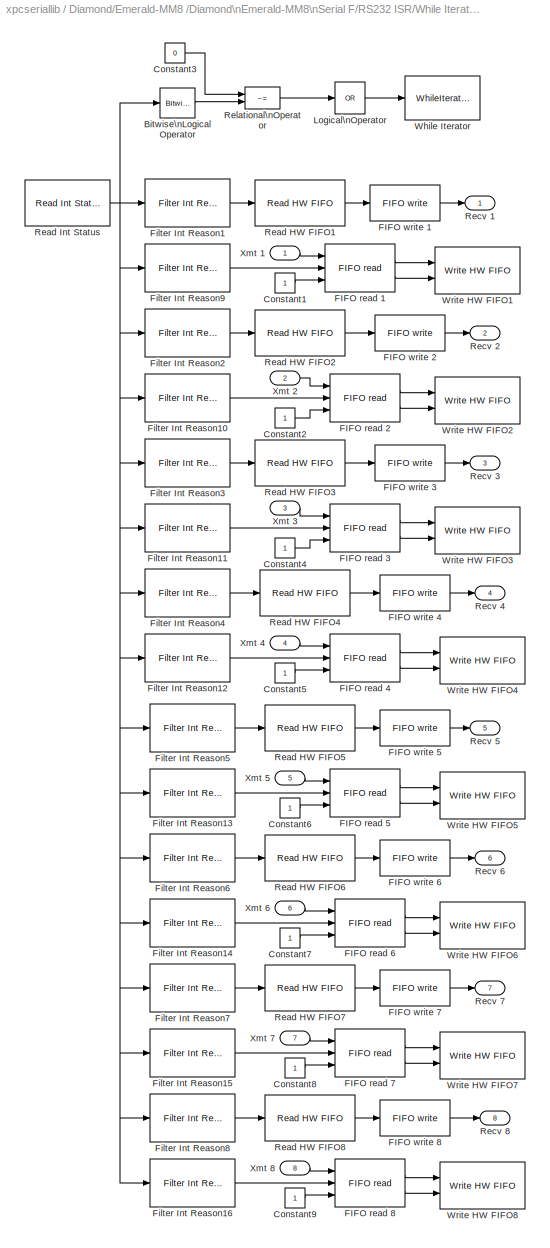
BLOCK [SubSystem] Diamond/Emerald-MM8 /Diamond\nEmerald-MM8\nSerial F/RS232 ISR/While Iterator\nSubsystem
  FunctionWithSeparateData = off
  MaskHideContents = off
  MinAlgLoopOccurrences = off
  Opaque = off
  Ports = [8, 8]
  PropExecContextOutsideSubsystem = off
  RTWSystemCode = Auto
  RequestExecContextInheritance = off
  SID = 43:26:10
  TreatAsAtomicUnit = on
BLOCK [Reference] Diamond/Emerald-MM8 /Diamond\nEmerald-MM8\nSerial F/RS232 ISR/While Iterator\nSubsystem/Bitwise\nLogical Operator  REF=simulink/Logic and Bit\nOperations/Bitwise\nOperator
  BitMask = 'FF'
  BitMaskRealWorld = Stored Integer
  NumInputPorts = 1
  Ports = [1, 1]
  SID = 43:26:19
  SourceBlock = simulink/Logic and Bit\nOperations/Bitwise\nOperator
  SourceType = Bitwise Operator
  UseBitMask = on
  logicop = AND
BLOCK [Constant] Diamond/Emerald-MM8 /Diamond\nEmerald-MM8\nSerial F/RS232 ISR/While Iterator\nSubsystem/Constant1
  OutDataTypeStr = uint32
  SID = 43:26:20
BLOCK [Constant] Diamond/Emerald-MM8 /Diamond\nEmerald-MM8\nSerial F/RS232 ISR/While Iterator\nSubsystem/Constant2
  OutDataTypeStr = uint32
  SID = 43:26:21
BLOCK [Constant] Diamond/Emerald-MM8 /Diamond\nEmerald-MM8\nSerial F/RS232 ISR/While Iterator\nSubsystem/Constant3
  OutDataTypeStr = uint32
  SID = 43:26:22
  Value = 0
BLOCK [Constant] Diamond/Emerald-MM8 /Diamond\nEmerald-MM8\nSerial F/RS232 ISR/While Iterator\nSubsystem/Constant4
  OutDataTypeStr = uint32
  SID = 43:26:23
BLOCK [Constant] Diamond/Emerald-MM8 /Diamond\nEmerald-MM8\nSerial F/RS232 ISR/While Iterator\nSubsystem/Constant5
  OutDataTypeStr = uint32
  SID = 43:26:24
BLOCK [Constant] Diamond/Emerald-MM8 /Diamond\nEmerald-MM8\nSerial F/RS232 ISR/While Iterator\nSubsystem/Constant6
  OutDataTypeStr = uint32
  SID = 43:26:25
BLOCK [Constant] Diamond/Emerald-MM8 /Diamond\nEmerald-MM8\nSerial F/RS232 ISR/While Iterator\nSubsystem/Constant7
  OutDataTypeStr = uint32
  SID = 43:26:26
BLOCK [Constant] Diamond/Emerald-MM8 /Diamond\nEmerald-MM8\nSerial F/RS232 ISR/While Iterator\nSubsystem/Constant8
  OutDataTypeStr = uint32
  SID = 43:26:27
BLOCK [Constant] Diamond/Emerald-MM8 /Diamond\nEmerald-MM8\nSerial F/RS232 ISR/While Iterator\nSubsystem/Constant9
  OutDataTypeStr = uint32
  SID = 43:26:28
BLOCK [Reference] Diamond/Emerald-MM8 /Diamond\nEmerald-MM8\nSerial F/RS232 ISR/While Iterator\nSubsystem/FIFO read 1  REF=xpcseriallib/FIFO read 
  Ports = [3, 2]
  SID = 43:26:29
  SourceBlock = xpcseriallib/FIFO read
  SourceType = Asynchronous FIFO Block: reader
  delimiter = 13
  enable = on
  enableout = on
  maxsize = 60
  minsize = 1
  outputtype = count+32 bit uint
  sampletime = -1
  usedelimiter = off
BLOCK [Reference] Diamond/Emerald-MM8 /Diamond\nEmerald-MM8\nSerial F/RS232 ISR/While Iterator\nSubsystem/FIFO read 2  REF=xpcseriallib/FIFO read 
  Ports = [3, 2]
  SID = 43:26:30
  SourceBlock = xpcseriallib/FIFO read
  SourceType = Asynchronous FIFO Block: reader
  delimiter = 13
  enable = on
  enableout = on
  maxsize = 60
  minsize = 1
  outputtype = count+32 bit uint
  sampletime = -1
  usedelimiter = off
BLOCK [Reference] Diamond/Emerald-MM8 /Diamond\nEmerald-MM8\nSerial F/RS232 ISR/While Iterator\nSubsystem/FIFO read 3  REF=xpcseriallib/FIFO read 
  Ports = [3, 2]
  SID = 43:26:31
  SourceBlock = xpcseriallib/FIFO read
  SourceType = Asynchronous FIFO Block: reader
  delimiter = 13
  enable = on
  enableout = on
  maxsize = 60
  minsize = 1
  outputtype = count+32 bit uint
  sampletime = -1
  usedelimiter = off
BLOCK [Reference] Diamond/Emerald-MM8 /Diamond\nEmerald-MM8\nSerial F/RS232 ISR/While Iterator\nSubsystem/FIFO read 4  REF=xpcseriallib/FIFO read 
  Ports = [3, 2]
  SID = 43:26:32
  SourceBlock = xpcseriallib/FIFO read
  SourceType = Asynchronous FIFO Block: reader
  delimiter = 13
  enable = on
  enableout = on
  maxsize = 60
  minsize = 1
  outputtype = count+32 bit uint
  sampletime = -1
  usedelimiter = off
BLOCK [Reference] Diamond/Emerald-MM8 /Diamond\nEmerald-MM8\nSerial F/RS232 ISR/While Iterator\nSubsystem/FIFO read 5  REF=xpcseriallib/FIFO read 
  Ports = [3, 2]
  SID = 43:26:33
  SourceBlock = xpcseriallib/FIFO read
  SourceType = Asynchronous FIFO Block: reader
  delimiter = 13
  enable = on
  enableout = on
  maxsize = 60
  minsize = 1
  outputtype = count+32 bit uint
  sampletime = -1
  usedelimiter = off
BLOCK [Reference] Diamond/Emerald-MM8 /Diamond\nEmerald-MM8\nSerial F/RS232 ISR/While Iterator\nSubsystem/FIFO read 6  REF=xpcseriallib/FIFO read 
  Ports = [3, 2]
  SID = 43:26:34
  SourceBlock = xpcseriallib/FIFO read
  SourceType = Asynchronous FIFO Block: reader
  delimiter = 13
  enable = on
  enableout = on
  maxsize = 60
  minsize = 1
  outputtype = count+32 bit uint
  sampletime = -1
  usedelimiter = off
BLOCK [Reference] Diamond/Emerald-MM8 /Diamond\nEmerald-MM8\nSerial F/RS232 ISR/While Iterator\nSubsystem/FIFO read 7  REF=xpcseriallib/FIFO read 
  Ports = [3, 2]
  SID = 43:26:35
  SourceBlock = xpcseriallib/FIFO read
  SourceType = Asynchronous FIFO Block: reader
  delimiter = 13
  enable = on
  enableout = on
  maxsize = 60
  minsize = 1
  outputtype = count+32 bit uint
  sampletime = -1
  usedelimiter = off
BLOCK [Reference] Diamond/Emerald-MM8 /Diamond\nEmerald-MM8\nSerial F/RS232 ISR/While Iterator\nSubsystem/FIFO read 8  REF=xpcseriallib/FIFO read 
  Ports = [3, 2]
  SID = 43:26:36
  SourceBlock = xpcseriallib/FIFO read
  SourceType = Asynchronous FIFO Block: reader
  delimiter = 13
  enable = on
  enableout = on
  maxsize = 60
  minsize = 1
  outputtype = count+32 bit uint
  sampletime = -1
  usedelimiter = off
BLOCK [Reference] Diamond/Emerald-MM8 /Diamond\nEmerald-MM8\nSerial F/RS232 ISR/While Iterator\nSubsystem/FIFO write 1  REF=xpcseriallib/FIFO write 
  Ports = [1, 1]
  SID = 43:26:37
  SourceBlock = xpcseriallib/FIFO write
  SourceType = Asynchronous FIFO Block: writer
  id = RCV channel 1, IRQ 5
  inputtype = count+32 bit uint
  present = off
  sampletime = -1
  size = 1024
BLOCK [Reference] Diamond/Emerald-MM8 /Diamond\nEmerald-MM8\nSerial F/RS232 ISR/While Iterator\nSubsystem/FIFO write 2  REF=xpcseriallib/FIFO write 
  Ports = [1, 1]
  SID = 43:26:38
  SourceBlock = xpcseriallib/FIFO write
  SourceType = Asynchronous FIFO Block: writer
  id = RCV channel 2, IRQ 5
  inputtype = count+32 bit uint
  present = off
  sampletime = -1
  size = 1024
BLOCK [Reference] Diamond/Emerald-MM8 /Diamond\nEmerald-MM8\nSerial F/RS232 ISR/While Iterator\nSubsystem/FIFO write 3  REF=xpcseriallib/FIFO write 
  Ports = [1, 1]
  SID = 43:26:39
  SourceBlock = xpcseriallib/FIFO write
  SourceType = Asynchronous FIFO Block: writer
  id = RCV channel 3, IRQ 5
  inputtype = count+32 bit uint
  present = off
  sampletime = -1
  size = 1024
BLOCK [Reference] Diamond/Emerald-MM8 /Diamond\nEmerald-MM8\nSerial F/RS232 ISR/While Iterator\nSubsystem/FIFO write 4  REF=xpcseriallib/FIFO write 
  Ports = [1, 1]
  SID = 43:26:40
  SourceBlock = xpcseriallib/FIFO write
  SourceType = Asynchronous FIFO Block: writer
  id = RCV channel 4, IRQ 5
  inputtype = count+32 bit uint
  present = off
  sampletime = -1
  size = 1024
BLOCK [Reference] Diamond/Emerald-MM8 /Diamond\nEmerald-MM8\nSerial F/RS232 ISR/While Iterator\nSubsystem/FIFO write 5  REF=xpcseriallib/FIFO write 
  Ports = [1, 1]
  SID = 43:26:41
  SourceBlock = xpcseriallib/FIFO write
  SourceType = Asynchronous FIFO Block: writer
  id = RCV channel 5, IRQ 5
  inputtype = count+32 bit uint
  present = off
  sampletime = -1
  size = 1024
BLOCK [Reference] Diamond/Emerald-MM8 /Diamond\nEmerald-MM8\nSerial F/RS232 ISR/While Iterator\nSubsystem/FIFO write 6  REF=xpcseriallib/FIFO write 
  Ports = [1, 1]
  SID = 43:26:42
  SourceBlock = xpcseriallib/FIFO write
  SourceType = Asynchronous FIFO Block: writer
  id = RCV channel 6, IRQ 5
  inputtype = count+32 bit uint
  present = off
  sampletime = -1
  size = 1024
BLOCK [Reference] Diamond/Emerald-MM8 /Diamond\nEmerald-MM8\nSerial F/RS232 ISR/While Iterator\nSubsystem/FIFO write 7  REF=xpcseriallib/FIFO write 
  Ports = [1, 1]
  SID = 43:26:43
  SourceBlock = xpcseriallib/FIFO write
  SourceType = Asynchronous FIFO Block: writer
  id = RCV channel 7, IRQ 5
  inputtype = count+32 bit uint
  present = off
  sampletime = -1
  size = 1024
BLOCK [Reference] Diamond/Emerald-MM8 /Diamond\nEmerald-MM8\nSerial F/RS232 ISR/While Iterator\nSubsystem/FIFO write 8  REF=xpcseriallib/FIFO write 
  Ports = [1, 1]
  SID = 43:26:44
  SourceBlock = xpcseriallib/FIFO write
  SourceType = Asynchronous FIFO Block: writer
  id = RCV channel 8, IRQ 5
  inputtype = count+32 bit uint
  present = off
  sampletime = -1
  size = 1024
BLOCK [Reference] Diamond/Emerald-MM8 /Diamond\nEmerald-MM8\nSerial F/RS232 ISR/While Iterator\nSubsystem/Filter Int Reason1  REF=xpcseriallib/Diamond/Emerald-MM8 /Diamond\nEmerald-MM8 /Filter Int Reason
  Ports = [1, 1]
  SID = 43:26:45
  SourceBlock = xpcseriallib/Diamond/Emerald-MM8 /Diamond\nEmerald-MM8 /Filter Int Reason
  SourceType = Interrupt Source Filter
  port = 1
  value = Receive data
BLOCK [Reference] Diamond/Emerald-MM8 /Diamond\nEmerald-MM8\nSerial F/RS232 ISR/While Iterator\nSubsystem/Filter Int Reason10  REF=xpcseriallib/Diamond/Emerald-MM8 /Diamond\nEmerald-MM8 /Filter Int Reason
  Ports = [1, 1]
  SID = 43:26:46
  SourceBlock = xpcseriallib/Diamond/Emerald-MM8 /Diamond\nEmerald-MM8 /Filter Int Reason
  SourceType = Interrupt Source Filter
  port = 2
  value = Transmitter empty
BLOCK [Reference] Diamond/Emerald-MM8 /Diamond\nEmerald-MM8\nSerial F/RS232 ISR/While Iterator\nSubsystem/Filter Int Reason11  REF=xpcseriallib/Diamond/Emerald-MM8 /Diamond\nEmerald-MM8 /Filter Int Reason
  Ports = [1, 1]
  SID = 43:26:47
  SourceBlock = xpcseriallib/Diamond/Emerald-MM8 /Diamond\nEmerald-MM8 /Filter Int Reason
  SourceType = Interrupt Source Filter
  port = 3
  value = Transmitter empty
BLOCK [Reference] Diamond/Emerald-MM8 /Diamond\nEmerald-MM8\nSerial F/RS232 ISR/While Iterator\nSubsystem/Filter Int Reason12  REF=xpcseriallib/Diamond/Emerald-MM8 /Diamond\nEmerald-MM8 /Filter Int Reason
  Ports = [1, 1]
  SID = 43:26:48
  SourceBlock = xpcseriallib/Diamond/Emerald-MM8 /Diamond\nEmerald-MM8 /Filter Int Reason
  SourceType = Interrupt Source Filter
  port = 4
  value = Transmitter empty
BLOCK [Reference] Diamond/Emerald-MM8 /Diamond\nEmerald-MM8\nSerial F/RS232 ISR/While Iterator\nSubsystem/Filter Int Reason13  REF=xpcseriallib/Diamond/Emerald-MM8 /Diamond\nEmerald-MM8 /Filter Int Reason
  Ports = [1, 1]
  SID = 43:26:49
  SourceBlock = xpcseriallib/Diamond/Emerald-MM8 /Diamond\nEmerald-MM8 /Filter Int Reason
  SourceType = Interrupt Source Filter
  port = 5
  value = Transmitter empty
BLOCK [Reference] Diamond/Emerald-MM8 /Diamond\nEmerald-MM8\nSerial F/RS232 ISR/While Iterator\nSubsystem/Filter Int Reason14  REF=xpcseriallib/Diamond/Emerald-MM8 /Diamond\nEmerald-MM8 /Filter Int Reason
  Ports = [1, 1]
  SID = 43:26:50
  SourceBlock = xpcseriallib/Diamond/Emerald-MM8 /Diamond\nEmerald-MM8 /Filter Int Reason
  SourceType = Interrupt Source Filter
  port = 6
  value = Transmitter empty
BLOCK [Reference] Diamond/Emerald-MM8 /Diamond\nEmerald-MM8\nSerial F/RS232 ISR/While Iterator\nSubsystem/Filter Int Reason15  REF=xpcseriallib/Diamond/Emerald-MM8 /Diamond\nEmerald-MM8 /Filter Int Reason
  Ports = [1, 1]
  SID = 43:26:51
  SourceBlock = xpcseriallib/Diamond/Emerald-MM8 /Diamond\nEmerald-MM8 /Filter Int Reason
  SourceType = Interrupt Source Filter
  port = 7
  value = Transmitter empty
BLOCK [Reference] Diamond/Emerald-MM8 /Diamond\nEmerald-MM8\nSerial F/RS232 ISR/While Iterator\nSubsystem/Filter Int Reason16  REF=xpcseriallib/Diamond/Emerald-MM8 /Diamond\nEmerald-MM8 /Filter Int Reason
  Ports = [1, 1]
  SID = 43:26:52
  SourceBlock = xpcseriallib/Diamond/Emerald-MM8 /Diamond\nEmerald-MM8 /Filter Int Reason
  SourceType = Interrupt Source Filter
  port = 8
  value = Transmitter empty
BLOCK [Reference] Diamond/Emerald-MM8 /Diamond\nEmerald-MM8\nSerial F/RS232 ISR/While Iterator\nSubsystem/Filter Int Reason2  REF=xpcseriallib/Diamond/Emerald-MM8 /Diamond\nEmerald-MM8 /Filter Int Reason
  Ports = [1, 1]
  SID = 43:26:53
  SourceBlock = xpcseriallib/Diamond/Emerald-MM8 /Diamond\nEmerald-MM8 /Filter Int Reason
  SourceType = Interrupt Source Filter
  port = 2
  value = Receive data
BLOCK [Reference] Diamond/Emerald-MM8 /Diamond\nEmerald-MM8\nSerial F/RS232 ISR/While Iterator\nSubsystem/Filter Int Reason3  REF=xpcseriallib/Diamond/Emerald-MM8 /Diamond\nEmerald-MM8 /Filter Int Reason
  Ports = [1, 1]
  SID = 43:26:54
  SourceBlock = xpcseriallib/Diamond/Emerald-MM8 /Diamond\nEmerald-MM8 /Filter Int Reason
  SourceType = Interrupt Source Filter
  port = 3
  value = Receive data
BLOCK [Reference] Diamond/Emerald-MM8 /Diamond\nEmerald-MM8\nSerial F/RS232 ISR/While Iterator\nSubsystem/Filter Int Reason4  REF=xpcseriallib/Diamond/Emerald-MM8 /Diamond\nEmerald-MM8 /Filter Int Reason
  Ports = [1, 1]
  SID = 43:26:55
  SourceBlock = xpcseriallib/Diamond/Emerald-MM8 /Diamond\nEmerald-MM8 /Filter Int Reason
  SourceType = Interrupt Source Filter
  port = 4
  value = Receive data
BLOCK [Reference] Diamond/Emerald-MM8 /Diamond\nEmerald-MM8\nSerial F/RS232 ISR/While Iterator\nSubsystem/Filter Int Reason5  REF=xpcseriallib/Diamond/Emerald-MM8 /Diamond\nEmerald-MM8 /Filter Int Reason
  Ports = [1, 1]
  SID = 43:26:56
  SourceBlock = xpcseriallib/Diamond/Emerald-MM8 /Diamond\nEmerald-MM8 /Filter Int Reason
  SourceType = Interrupt Source Filter
  port = 5
  value = Receive data
BLOCK [Reference] Diamond/Emerald-MM8 /Diamond\nEmerald-MM8\nSerial F/RS232 ISR/While Iterator\nSubsystem/Filter Int Reason6  REF=xpcseriallib/Diamond/Emerald-MM8 /Diamond\nEmerald-MM8 /Filter Int Reason
  Ports = [1, 1]
  SID = 43:26:57
  SourceBlock = xpcseriallib/Diamond/Emerald-MM8 /Diamond\nEmerald-MM8 /Filter Int Reason
  SourceType = Interrupt Source Filter
  port = 6
  value = Receive data
BLOCK [Reference] Diamond/Emerald-MM8 /Diamond\nEmerald-MM8\nSerial F/RS232 ISR/While Iterator\nSubsystem/Filter Int Reason7  REF=xpcseriallib/Diamond/Emerald-MM8 /Diamond\nEmerald-MM8 /Filter Int Reason
  Ports = [1, 1]
  SID = 43:26:58
  SourceBlock = xpcseriallib/Diamond/Emerald-MM8 /Diamond\nEmerald-MM8 /Filter Int Reason
  SourceType = Interrupt Source Filter
  port = 7
  value = Receive data
BLOCK [Reference] Diamond/Emerald-MM8 /Diamond\nEmerald-MM8\nSerial F/RS232 ISR/While Iterator\nSubsystem/Filter Int Reason8  REF=xpcseriallib/Diamond/Emerald-MM8 /Diamond\nEmerald-MM8 /Filter Int Reason
  Ports = [1, 1]
  SID = 43:26:59
  SourceBlock = xpcseriallib/Diamond/Emerald-MM8 /Diamond\nEmerald-MM8 /Filter Int Reason
  SourceType = Interrupt Source Filter
  port = 8
  value = Receive data
BLOCK [Reference] Diamond/Emerald-MM8 /Diamond\nEmerald-MM8\nSerial F/RS232 ISR/While Iterator\nSubsystem/Filter Int Reason9  REF=xpcseriallib/Diamond/Emerald-MM8 /Diamond\nEmerald-MM8 /Filter Int Reason
  Ports = [1, 1]
  SID = 43:26:60
  SourceBlock = xpcseriallib/Diamond/Emerald-MM8 /Diamond\nEmerald-MM8 /Filter Int Reason
  SourceType = Interrupt Source Filter
  port = 1
  value = Transmitter empty
BLOCK [Logic] Diamond/Emerald-MM8 /Diamond\nEmerald-MM8\nSerial F/RS232 ISR/While Iterator\nSubsystem/Logical\nOperator
  AllPortsSameDT = off
  Inputs = 1
  Operator = OR
  Ports = [1, 1]
  SID = 43:26:61
BLOCK [Reference] Diamond/Emerald-MM8 /Diamond\nEmerald-MM8\nSerial F/RS232 ISR/While Iterator\nSubsystem/Read HW FIFO1  REF=xpcseriallib/Diamond/Emerald-MM8 /Diamond\nEmerald-MM8 /Read HW FIFO
  Ports = [1, 1]
  SID = 43:26:62
  SourceBlock = xpcseriallib/Diamond/Emerald-MM8 /Diamond\nEmerald-MM8 /Read HW FIFO
  SourceType = Read Data Port
  addr = baddr1
  flush = on
BLOCK [Reference] Diamond/Emerald-MM8 /Diamond\nEmerald-MM8\nSerial F/RS232 ISR/While Iterator\nSubsystem/Read HW FIFO2  REF=xpcseriallib/Diamond/Emerald-MM8 /Diamond\nEmerald-MM8 /Read HW FIFO
  Ports = [1, 1]
  SID = 43:26:63
  SourceBlock = xpcseriallib/Diamond/Emerald-MM8 /Diamond\nEmerald-MM8 /Read HW FIFO
  SourceType = Read Data Port
  addr = baddr2
  flush = on
BLOCK [Reference] Diamond/Emerald-MM8 /Diamond\nEmerald-MM8\nSerial F/RS232 ISR/While Iterator\nSubsystem/Read HW FIFO3  REF=xpcseriallib/Diamond/Emerald-MM8 /Diamond\nEmerald-MM8 /Read HW FIFO
  Ports = [1, 1]
  SID = 43:26:64
  SourceBlock = xpcseriallib/Diamond/Emerald-MM8 /Diamond\nEmerald-MM8 /Read HW FIFO
  SourceType = Read Data Port
  addr = baddr3
  flush = on
BLOCK [Reference] Diamond/Emerald-MM8 /Diamond\nEmerald-MM8\nSerial F/RS232 ISR/While Iterator\nSubsystem/Read HW FIFO4  REF=xpcseriallib/Diamond/Emerald-MM8 /Diamond\nEmerald-MM8 /Read HW FIFO
  Ports = [1, 1]
  SID = 43:26:65
  SourceBlock = xpcseriallib/Diamond/Emerald-MM8 /Diamond\nEmerald-MM8 /Read HW FIFO
  SourceType = Read Data Port
  addr = baddr4
  flush = on
BLOCK [Reference] Diamond/Emerald-MM8 /Diamond\nEmerald-MM8\nSerial F/RS232 ISR/While Iterator\nSubsystem/Read HW FIFO5  REF=xpcseriallib/Diamond/Emerald-MM8 /Diamond\nEmerald-MM8 /Read HW FIFO
  Ports = [1, 1]
  SID = 43:26:66
  SourceBlock = xpcseriallib/Diamond/Emerald-MM8 /Diamond\nEmerald-MM8 /Read HW FIFO
  SourceType = Read Data Port
  addr = baddr5
  flush = on
BLOCK [Reference] Diamond/Emerald-MM8 /Diamond\nEmerald-MM8\nSerial F/RS232 ISR/While Iterator\nSubsystem/Read HW FIFO6  REF=xpcseriallib/Diamond/Emerald-MM8 /Diamond\nEmerald-MM8 /Read HW FIFO
  Ports = [1, 1]
  SID = 43:26:67
  SourceBlock = xpcseriallib/Diamond/Emerald-MM8 /Diamond\nEmerald-MM8 /Read HW FIFO
  SourceType = Read Data Port
  addr = baddr6
  flush = on
BLOCK [Reference] Diamond/Emerald-MM8 /Diamond\nEmerald-MM8\nSerial F/RS232 ISR/While Iterator\nSubsystem/Read HW FIFO7  REF=xpcseriallib/Diamond/Emerald-MM8 /Diamond\nEmerald-MM8 /Read HW FIFO
  Ports = [1, 1]
  SID = 43:26:68
  SourceBlock = xpcseriallib/Diamond/Emerald-MM8 /Diamond\nEmerald-MM8 /Read HW FIFO
  SourceType = Read Data Port
  addr = baddr7
  flush = on
BLOCK [Reference] Diamond/Emerald-MM8 /Diamond\nEmerald-MM8\nSerial F/RS232 ISR/While Iterator\nSubsystem/Read HW FIFO8  REF=xpcseriallib/Diamond/Emerald-MM8 /Diamond\nEmerald-MM8 /Read HW FIFO
  Ports = [1, 1]
  SID = 43:26:69
  SourceBlock = xpcseriallib/Diamond/Emerald-MM8 /Diamond\nEmerald-MM8 /Read HW FIFO
  SourceType = Read Data Port
  addr = baddr8
  flush = on
BLOCK [Reference] Diamond/Emerald-MM8 /Diamond\nEmerald-MM8\nSerial F/RS232 ISR/While Iterator\nSubsystem/Read Int Status  REF=xpcseriallib/Diamond/Emerald-MM8 /Diamond\nEmerald-MM8 /Read Int Status
  Ports = [0, 1]
  SID = 43:26:70
  SourceBlock = xpcseriallib/Diamond/Emerald-MM8 /Diamond\nEmerald-MM8 /Read Int Status
  SourceType = Interrupt Query
  addr1 = baddr1
  addr2 = baddr2
  addr3 = baddr3
  addr4 = baddr4
  addr5 = baddr5
  addr6 = baddr6
  addr7 = baddr7
  addr8 = baddr8
  intstat = istat
BLOCK [Outport] Diamond/Emerald-MM8 /Diamond\nEmerald-MM8\nSerial F/RS232 ISR/While Iterator\nSubsystem/Recv 1
  IconDisplay = Port number
  SID = 43:26:81
BLOCK [Outport] Diamond/Emerald-MM8 /Diamond\nEmerald-MM8\nSerial F/RS232 ISR/While Iterator\nSubsystem/Recv 2
  IconDisplay = Port number
  Port = 2
  SID = 43:26:82
BLOCK [Outport] Diamond/Emerald-MM8 /Diamond\nEmerald-MM8\nSerial F/RS232 ISR/While Iterator\nSubsystem/Recv 3
  IconDisplay = Port number
  Port = 3
  SID = 43:26:83
BLOCK [Outport] Diamond/Emerald-MM8 /Diamond\nEmerald-MM8\nSerial F/RS232 ISR/While Iterator\nSubsystem/Recv 4
  IconDisplay = Port number
  Port = 4
  SID = 43:26:84
BLOCK [Outport] Diamond/Emerald-MM8 /Diamond\nEmerald-MM8\nSerial F/RS232 ISR/While Iterator\nSubsystem/Recv 5
  IconDisplay = Port number
  Port = 5
  SID = 43:26:85
BLOCK [Outport] Diamond/Emerald-MM8 /Diamond\nEmerald-MM8\nSerial F/RS232 ISR/While Iterator\nSubsystem/Recv 6
  IconDisplay = Port number
  Port = 6
  SID = 43:26:86
BLOCK [Outport] Diamond/Emerald-MM8 /Diamond\nEmerald-MM8\nSerial F/RS232 ISR/While Iterator\nSubsystem/Recv 7
  IconDisplay = Port number
  Port = 7
  SID = 43:26:87
BLOCK [Outport] Diamond/Emerald-MM8 /Diamond\nEmerald-MM8\nSerial F/RS232 ISR/While Iterator\nSubsystem/Recv 8
  IconDisplay = Port number
  Port = 8
  SID = 43:26:88
BLOCK [RelationalOperator] Diamond/Emerald-MM8 /Diamond\nEmerald-MM8\nSerial F/RS232 ISR/While Iterator\nSubsystem/Relational\nOperator
  InputSameDT = off
  Operator = ~=
  Ports = [2, 1]
  SID = 43:26:71
BLOCK [WhileIterator] Diamond/Emerald-MM8 /Diamond\nEmerald-MM8\nSerial F/RS232 ISR/While Iterator\nSubsystem/While Iterator
  MaxIters = 66
  Ports = [1]
  SID = 43:26:72
  WhileBlockType = do-while
BLOCK [Reference] Diamond/Emerald-MM8 /Diamond\nEmerald-MM8\nSerial F/RS232 ISR/While Iterator\nSubsystem/Write HW FIFO1  REF=xpcseriallib/Diamond/Emerald-MM8 /Diamond\nEmerald-MM8 /Write HW FIFO
  Ports = [2]
  SID = 43:26:73
  SourceBlock = xpcseriallib/Diamond/Emerald-MM8 /Diamond\nEmerald-MM8 /Write HW FIFO
  SourceType = Write Data Port
  addr = baddr1
BLOCK [Reference] Diamond/Emerald-MM8 /Diamond\nEmerald-MM8\nSerial F/RS232 ISR/While Iterator\nSubsystem/Write HW FIFO2  REF=xpcseriallib/Diamond/Emerald-MM8 /Diamond\nEmerald-MM8 /Write HW FIFO
  Ports = [2]
  SID = 43:26:74
  SourceBlock = xpcseriallib/Diamond/Emerald-MM8 /Diamond\nEmerald-MM8 /Write HW FIFO
  SourceType = Write Data Port
  addr = baddr2
BLOCK [Reference] Diamond/Emerald-MM8 /Diamond\nEmerald-MM8\nSerial F/RS232 ISR/While Iterator\nSubsystem/Write HW FIFO3  REF=xpcseriallib/Diamond/Emerald-MM8 /Diamond\nEmerald-MM8 /Write HW FIFO
  Ports = [2]
  SID = 43:26:75
  SourceBlock = xpcseriallib/Diamond/Emerald-MM8 /Diamond\nEmerald-MM8 /Write HW FIFO
  SourceType = Write Data Port
  addr = baddr3
BLOCK [Reference] Diamond/Emerald-MM8 /Diamond\nEmerald-MM8\nSerial F/RS232 ISR/While Iterator\nSubsystem/Write HW FIFO4  REF=xpcseriallib/Diamond/Emerald-MM8 /Diamond\nEmerald-MM8 /Write HW FIFO
  Ports = [2]
  SID = 43:26:76
  SourceBlock = xpcseriallib/Diamond/Emerald-MM8 /Diamond\nEmerald-MM8 /Write HW FIFO
  SourceType = Write Data Port
  addr = baddr4
BLOCK [Reference] Diamond/Emerald-MM8 /Diamond\nEmerald-MM8\nSerial F/RS232 ISR/While Iterator\nSubsystem/Write HW FIFO5  REF=xpcseriallib/Diamond/Emerald-MM8 /Diamond\nEmerald-MM8 /Write HW FIFO
  Ports = [2]
  SID = 43:26:77
  SourceBlock = xpcseriallib/Diamond/Emerald-MM8 /Diamond\nEmerald-MM8 /Write HW FIFO
  SourceType = Write Data Port
  addr = baddr5
BLOCK [Reference] Diamond/Emerald-MM8 /Diamond\nEmerald-MM8\nSerial F/RS232 ISR/While Iterator\nSubsystem/Write HW FIFO6  REF=xpcseriallib/Diamond/Emerald-MM8 /Diamond\nEmerald-MM8 /Write HW FIFO
  Ports = [2]
  SID = 43:26:78
  SourceBlock = xpcseriallib/Diamond/Emerald-MM8 /Diamond\nEmerald-MM8 /Write HW FIFO
  SourceType = Write Data Port
  addr = baddr6
BLOCK [Reference] Diamond/Emerald-MM8 /Diamond\nEmerald-MM8\nSerial F/RS232 ISR/While Iterator\nSubsystem/Write HW FIFO7  REF=xpcseriallib/Diamond/Emerald-MM8 /Diamond\nEmerald-MM8 /Write HW FIFO
  Ports = [2]
  SID = 43:26:79
  SourceBlock = xpcseriallib/Diamond/Emerald-MM8 /Diamond\nEmerald-MM8 /Write HW FIFO
  SourceType = Write Data Port
  addr = baddr7
BLOCK [Reference] Diamond/Emerald-MM8 /Diamond\nEmerald-MM8\nSerial F/RS232 ISR/While Iterator\nSubsystem/Write HW FIFO8  REF=xpcseriallib/Diamond/Emerald-MM8 /Diamond\nEmerald-MM8 /Write HW FIFO
  Ports = [2]
  SID = 43:26:80
  SourceBlock = xpcseriallib/Diamond/Emerald-MM8 /Diamond\nEmerald-MM8 /Write HW FIFO
  SourceType = Write Data Port
  addr = baddr8
BLOCK [Inport] Diamond/Emerald-MM8 /Diamond\nEmerald-MM8\nSerial F/RS232 ISR/While Iterator\nSubsystem/Xmt 1
  IconDisplay = Port number
  SID = 43:26:11
BLOCK [Inport] Diamond/Emerald-MM8 /Diamond\nEmerald-MM8\nSerial F/RS232 ISR/While Iterator\nSubsystem/Xmt 2
  IconDisplay = Port number
  Port = 2
  SID = 43:26:12
BLOCK [Inport] Diamond/Emerald-MM8 /Diamond\nEmerald-MM8\nSerial F/RS232 ISR/While Iterator\nSubsystem/Xmt 3
  IconDisplay = Port number
  Port = 3
  SID = 43:26:13
BLOCK [Inport] Diamond/Emerald-MM8 /Diamond\nEmerald-MM8\nSerial F/RS232 ISR/While Iterator\nSubsystem/Xmt 4
  IconDisplay = Port number
  Port = 4
  SID = 43:26:14
BLOCK [Inport] Diamond/Emerald-MM8 /Diamond\nEmerald-MM8\nSerial F/RS232 ISR/While Iterator\nSubsystem/Xmt 5
  IconDisplay = Port number
  Port = 5
  SID = 43:26:15
BLOCK [Inport] Diamond/Emerald-MM8 /Diamond\nEmerald-MM8\nSerial F/RS232 ISR/While Iterator\nSubsystem/Xmt 6
  IconDisplay = Port number
  Port = 6
  SID = 43:26:16
BLOCK [Inport] Diamond/Emerald-MM8 /Diamond\nEmerald-MM8\nSerial F/RS232 ISR/While Iterator\nSubsystem/Xmt 7
  IconDisplay = Port number
  Port = 7
  SID = 43:26:17
BLOCK [Inport] Diamond/Emerald-MM8 /Diamond\nEmerald-MM8\nSerial F/RS232 ISR/While Iterator\nSubsystem/Xmt 8
  IconDisplay = Port number
  Port = 8
  SID = 43:26:18
BLOCK [Inport] Diamond/Emerald-MM8 /Diamond\nEmerald-MM8\nSerial F/RS232 ISR/Xmt 1
  IconDisplay = Port number
  SID = 43:26:1
BLOCK [Inport] Diamond/Emerald-MM8 /Diamond\nEmerald-MM8\nSerial F/RS232 ISR/Xmt 2
  IconDisplay = Port number
  Port = 2
  SID = 43:26:2
BLOCK [Inport] Diamond/Emerald-MM8 /Diamond\nEmerald-MM8\nSerial F/RS232 ISR/Xmt 3
  IconDisplay = Port number
  Port = 3
  SID = 43:26:3
BLOCK [Inport] Diamond/Emerald-MM8 /Diamond\nEmerald-MM8\nSerial F/RS232 ISR/Xmt 4
  IconDisplay = Port number
  Port = 4
  SID = 43:26:4
BLOCK [Inport] Diamond/Emerald-MM8 /Diamond\nEmerald-MM8\nSerial F/RS232 ISR/Xmt 5
  IconDisplay = Port number
  Port = 5
  SID = 43:26:5
BLOCK [Inport] Diamond/Emerald-MM8 /Diamond\nEmerald-MM8\nSerial F/RS232 ISR/Xmt 6
  IconDisplay = Port number
  Port = 6
  SID = 43:26:6
BLOCK [Inport] Diamond/Emerald-MM8 /Diamond\nEmerald-MM8\nSerial F/RS232 ISR/Xmt 7
  IconDisplay = Port number
  Port = 7
  SID = 43:26:7
BLOCK [Inport] Diamond/Emerald-MM8 /Diamond\nEmerald-MM8\nSerial F/RS232 ISR/Xmt 8
  IconDisplay = Port number
  Port = 8
  SID = 43:26:8
BLOCK [TriggerPort] Diamond/Emerald-MM8 /Diamond\nEmerald-MM8\nSerial F/RS232 ISR/function
  Ports = []
  SID = 43:26:9
  StatesWhenEnabling = held
  TriggerType = function-call
BLOCK [RateTransition] Diamond/Emerald-MM8 /Diamond\nEmerald-MM8\nSerial F/Rate Transition1
  Deterministic = off
  Integrity = off
  SID = 43:27
BLOCK [RateTransition] Diamond/Emerald-MM8 /Diamond\nEmerald-MM8\nSerial F/Rate Transition10
  Deterministic = off
  Integrity = off
  OutPortSampleTime = 0
  SID = 43:28
BLOCK [RateTransition] Diamond/Emerald-MM8 /Diamond\nEmerald-MM8\nSerial F/Rate Transition11
  Deterministic = off
  Integrity = off
  OutPortSampleTime = 0
  SID = 43:29
BLOCK [RateTransition] Diamond/Emerald-MM8 /Diamond\nEmerald-MM8\nSerial F/Rate Transition12
  Deterministic = off
  Integrity = off
  OutPortSampleTime = 0
  SID = 43:30
BLOCK [RateTransition] Diamond/Emerald-MM8 /Diamond\nEmerald-MM8\nSerial F/Rate Transition13
  Deterministic = off
  Integrity = off
  OutPortSampleTime = 0
  SID = 43:31
BLOCK [RateTransition] Diamond/Emerald-MM8 /Diamond\nEmerald-MM8\nSerial F/Rate Transition14
  Deterministic = off
  Integrity = off
  OutPortSampleTime = 0
  SID = 43:32
BLOCK [RateTransition] Diamond/Emerald-MM8 /Diamond\nEmerald-MM8\nSerial F/Rate Transition15
  Deterministic = off
  Integrity = off
  OutPortSampleTime = 0
  SID = 43:33
BLOCK [RateTransition] Diamond/Emerald-MM8 /Diamond\nEmerald-MM8\nSerial F/Rate Transition16
  Deterministic = off
  Integrity = off
  OutPortSampleTime = 0
  SID = 43:34
BLOCK [RateTransition] Diamond/Emerald-MM8 /Diamond\nEmerald-MM8\nSerial F/Rate Transition2
  Deterministic = off
  Integrity = off
  SID = 43:35
BLOCK [RateTransition] Diamond/Emerald-MM8 /Diamond\nEmerald-MM8\nSerial F/Rate Transition3
  Deterministic = off
  Integrity = off
  SID = 43:36
BLOCK [RateTransition] Diamond/Emerald-MM8 /Diamond\nEmerald-MM8\nSerial F/Rate Transition4
  Deterministic = off
  Integrity = off
  SID = 43:37
BLOCK [RateTransition] Diamond/Emerald-MM8 /Diamond\nEmerald-MM8\nSerial F/Rate Transition5
  Deterministic = off
  Integrity = off
  SID = 43:38
BLOCK [RateTransition] Diamond/Emerald-MM8 /Diamond\nEmerald-MM8\nSerial F/Rate Transition6
  Deterministic = off
  Integrity = off
  SID = 43:39
BLOCK [RateTransition] Diamond/Emerald-MM8 /Diamond\nEmerald-MM8\nSerial F/Rate Transition7
  Deterministic = off
  Integrity = off
  SID = 43:40
BLOCK [RateTransition] Diamond/Emerald-MM8 /Diamond\nEmerald-MM8\nSerial F/Rate Transition8
  Deterministic = off
  Integrity = off
  SID = 43:41
BLOCK [RateTransition] Diamond/Emerald-MM8 /Diamond\nEmerald-MM8\nSerial F/Rate Transition9
  Deterministic = off
  Integrity = off
  OutPortSampleTime = 0
  SID = 43:42
BLOCK [Reference] Diamond/Emerald-MM8 /Diamond\nEmerald-MM8\nSerial F/Setup1  REF=xpcseriallib/Diamond/Emerald-MM8 /Diamond\nEmerald-MM8 /Setup
  Ports = []
  SID = 43:43
  SourceBlock = xpcseriallib/Diamond/Emerald-MM8 /Diamond\nEmerald-MM8 /Setup
  SourceType = setup
  addr = baddr1
  baud = 115200
  ctsmode = on
  fmode = 16 deep
  irq = irqnum
  nstop = 1
  parity = None
  rlevel = 1
  width = 8
BLOCK [Reference] Diamond/Emerald-MM8 /Diamond\nEmerald-MM8\nSerial F/Setup2  REF=xpcseriallib/Diamond/Emerald-MM8 /Diamond\nEmerald-MM8 /Setup
  Ports = []
  SID = 43:44
  SourceBlock = xpcseriallib/Diamond/Emerald-MM8 /Diamond\nEmerald-MM8 /Setup
  SourceType = setup
  addr = baddr2
  baud = 115200
  ctsmode = on
  fmode = 16 deep
  irq = irqnum
  nstop = 1
  parity = None
  rlevel = 1
  width = 8
BLOCK [Reference] Diamond/Emerald-MM8 /Diamond\nEmerald-MM8\nSerial F/Setup3  REF=xpcseriallib/Diamond/Emerald-MM8 /Diamond\nEmerald-MM8 /Setup
  Ports = []
  SID = 43:45
  SourceBlock = xpcseriallib/Diamond/Emerald-MM8 /Diamond\nEmerald-MM8 /Setup
  SourceType = setup
  addr = baddr3
  baud = 115200
  ctsmode = on
  fmode = 16 deep
  irq = irqnum
  nstop = 1
  parity = None
  rlevel = 1
  width = 8
BLOCK [Reference] Diamond/Emerald-MM8 /Diamond\nEmerald-MM8\nSerial F/Setup4  REF=xpcseriallib/Diamond/Emerald-MM8 /Diamond\nEmerald-MM8 /Setup
  Ports = []
  SID = 43:46
  SourceBlock = xpcseriallib/Diamond/Emerald-MM8 /Diamond\nEmerald-MM8 /Setup
  SourceType = setup
  addr = baddr4
  baud = 115200
  ctsmode = on
  fmode = 16 deep
  irq = irqnum
  nstop = 1
  parity = None
  rlevel = 1
  width = 8
BLOCK [Reference] Diamond/Emerald-MM8 /Diamond\nEmerald-MM8\nSerial F/Setup5  REF=xpcseriallib/Diamond/Emerald-MM8 /Diamond\nEmerald-MM8 /Setup
  Ports = []
  SID = 43:47
  SourceBlock = xpcseriallib/Diamond/Emerald-MM8 /Diamond\nEmerald-MM8 /Setup
  SourceType = setup
  addr = baddr5
  baud = 115200
  ctsmode = on
  fmode = 16 deep
  irq = irqnum
  nstop = 1
  parity = None
  rlevel = 1
  width = 8
BLOCK [Reference] Diamond/Emerald-MM8 /Diamond\nEmerald-MM8\nSerial F/Setup6  REF=xpcseriallib/Diamond/Emerald-MM8 /Diamond\nEmerald-MM8 /Setup
  Ports = []
  SID = 43:48
  SourceBlock = xpcseriallib/Diamond/Emerald-MM8 /Diamond\nEmerald-MM8 /Setup
  SourceType = setup
  addr = baddr6
  baud = 115200
  ctsmode = on
  fmode = 16 deep
  irq = irqnum
  nstop = 1
  parity = None
  rlevel = 1
  width = 8
BLOCK [Reference] Diamond/Emerald-MM8 /Diamond\nEmerald-MM8\nSerial F/Setup7  REF=xpcseriallib/Diamond/Emerald-MM8 /Diamond\nEmerald-MM8 /Setup
  Ports = []
  SID = 43:49
  SourceBlock = xpcseriallib/Diamond/Emerald-MM8 /Diamond\nEmerald-MM8 /Setup
  SourceType = setup
  addr = baddr7
  baud = 115200
  ctsmode = on
  fmode = 16 deep
  irq = irqnum
  nstop = 1
  parity = None
  rlevel = 1
  width = 8
BLOCK [Reference] Diamond/Emerald-MM8 /Diamond\nEmerald-MM8\nSerial F/Setup8  REF=xpcseriallib/Diamond/Emerald-MM8 /Diamond\nEmerald-MM8 /Setup
  Ports = []
  SID = 43:50
  SourceBlock = xpcseriallib/Diamond/Emerald-MM8 /Diamond\nEmerald-MM8 /Setup
  SourceType = setup
  addr = baddr8
  baud = 115200
  ctsmode = on
  fmode = 16 deep
  irq = irqnum
  nstop = 1
  parity = None
  rlevel = 1
  width = 8
BLOCK [Reference] Diamond/Emerald-MM8 /Diamond\nEmerald-MM8\nSerial/Enable TX 1  REF=xpcseriallib/Diamond/Emerald-MM8 /Diamond\nEmerald-MM8 /Enable TX 
  Ports = [1]
  SID = 42:9
  SourceBlock = xpcseriallib/Diamond/Emerald-MM8 /Diamond\nEmerald-MM8 /Enable TX
  SourceType = Enable TX Int
  addr = baddr1
BLOCK [Reference] Diamond/Emerald-MM8 /Diamond\nEmerald-MM8\nSerial/Enable TX 2  REF=xpcseriallib/Diamond/Emerald-MM8 /Diamond\nEmerald-MM8 /Enable TX 
  Ports = [1]
  SID = 42:10
  SourceBlock = xpcseriallib/Diamond/Emerald-MM8 /Diamond\nEmerald-MM8 /Enable TX
  SourceType = Enable TX Int
  addr = baddr2
BLOCK [Reference] Diamond/Emerald-MM8 /Diamond\nEmerald-MM8\nSerial/Enable TX 3  REF=xpcseriallib/Diamond/Emerald-MM8 /Diamond\nEmerald-MM8 /Enable TX 
  Ports = [1]
  SID = 42:11
  SourceBlock = xpcseriallib/Diamond/Emerald-MM8 /Diamond\nEmerald-MM8 /Enable TX
  SourceType = Enable TX Int
  addr = baddr3
BLOCK [Reference] Diamond/Emerald-MM8 /Diamond\nEmerald-MM8\nSerial/Enable TX 4  REF=xpcseriallib/Diamond/Emerald-MM8 /Diamond\nEmerald-MM8 /Enable TX 
  Ports = [1]
  SID = 42:12
  SourceBlock = xpcseriallib/Diamond/Emerald-MM8 /Diamond\nEmerald-MM8 /Enable TX
  SourceType = Enable TX Int
  addr = baddr4
BLOCK [Reference] Diamond/Emerald-MM8 /Diamond\nEmerald-MM8\nSerial/Enable TX 5  REF=xpcseriallib/Diamond/Emerald-MM8 /Diamond\nEmerald-MM8 /Enable TX 
  Ports = [1]
  SID = 42:13
  SourceBlock = xpcseriallib/Diamond/Emerald-MM8 /Diamond\nEmerald-MM8 /Enable TX
  SourceType = Enable TX Int
  addr = baddr5
BLOCK [Reference] Diamond/Emerald-MM8 /Diamond\nEmerald-MM8\nSerial/Enable TX 6  REF=xpcseriallib/Diamond/Emerald-MM8 /Diamond\nEmerald-MM8 /Enable TX 
  Ports = [1]
  SID = 42:14
  SourceBlock = xpcseriallib/Diamond/Emerald-MM8 /Diamond\nEmerald-MM8 /Enable TX
  SourceType = Enable TX Int
  addr = baddr6
BLOCK [Reference] Diamond/Emerald-MM8 /Diamond\nEmerald-MM8\nSerial/Enable TX 7  REF=xpcseriallib/Diamond/Emerald-MM8 /Diamond\nEmerald-MM8 /Enable TX 
  Ports = [1]
  SID = 42:15
  SourceBlock = xpcseriallib/Diamond/Emerald-MM8 /Diamond\nEmerald-MM8 /Enable TX
  SourceType = Enable TX Int
  addr = baddr7
BLOCK [Reference] Diamond/Emerald-MM8 /Diamond\nEmerald-MM8\nSerial/Enable TX 8  REF=xpcseriallib/Diamond/Emerald-MM8 /Diamond\nEmerald-MM8 /Enable TX 
  Ports = [1]
  SID = 42:16
  SourceBlock = xpcseriallib/Diamond/Emerald-MM8 /Diamond\nEmerald-MM8 /Enable TX
  SourceType = Enable TX Int
  addr = baddr8
BLOCK [Reference] Diamond/Emerald-MM8 /Diamond\nEmerald-MM8\nSerial/FIFO read 1  REF=xpcseriallib/FIFO read 
  Ports = [1, 1]
  SID = 42:17
  SourceBlock = xpcseriallib/FIFO read
  SourceType = Asynchronous FIFO Block: reader
  delimiter = 13
  enable = off
  enableout = off
  maxsize = 1024
  minsize = 1
  outputtype = count+16 bit uint
  sampletime = -1
  usedelimiter = on
BLOCK [Reference] Diamond/Emerald-MM8 /Diamond\nEmerald-MM8\nSerial/FIFO read 2  REF=xpcseriallib/FIFO read 
  Ports = [1, 1]
  SID = 42:18
  SourceBlock = xpcseriallib/FIFO read
  SourceType = Asynchronous FIFO Block: reader
  delimiter = 13
  enable = off
  enableout = off
  maxsize = 1024
  minsize = 1
  outputtype = count+16 bit uint
  sampletime = -1
  usedelimiter = on
BLOCK [Reference] Diamond/Emerald-MM8 /Diamond\nEmerald-MM8\nSerial/FIFO read 3  REF=xpcseriallib/FIFO read 
  Ports = [1, 1]
  SID = 42:19
  SourceBlock = xpcseriallib/FIFO read
  SourceType = Asynchronous FIFO Block: reader
  delimiter = 13
  enable = off
  enableout = off
  maxsize = 1024
  minsize = 1
  outputtype = count+16 bit uint
  sampletime = -1
  usedelimiter = on
BLOCK [Reference] Diamond/Emerald-MM8 /Diamond\nEmerald-MM8\nSerial/FIFO read 4  REF=xpcseriallib/FIFO read 
  Ports = [1, 1]
  SID = 42:20
  SourceBlock = xpcseriallib/FIFO read
  SourceType = Asynchronous FIFO Block: reader
  delimiter = 13
  enable = off
  enableout = off
  maxsize = 1024
  minsize = 1
  outputtype = count+16 bit uint
  sampletime = -1
  usedelimiter = on
BLOCK [Reference] Diamond/Emerald-MM8 /Diamond\nEmerald-MM8\nSerial/FIFO read 5  REF=xpcseriallib/FIFO read 
  Ports = [1, 1]
  SID = 42:21
  SourceBlock = xpcseriallib/FIFO read
  SourceType = Asynchronous FIFO Block: reader
  delimiter = 13
  enable = off
  enableout = off
  maxsize = 1024
  minsize = 1
  outputtype = count+16 bit uint
  sampletime = -1
  usedelimiter = on
BLOCK [Reference] Diamond/Emerald-MM8 /Diamond\nEmerald-MM8\nSerial/FIFO read 6  REF=xpcseriallib/FIFO read 
  Ports = [1, 1]
  SID = 42:22
  SourceBlock = xpcseriallib/FIFO read
  SourceType = Asynchronous FIFO Block: reader
  delimiter = 13
  enable = off
  enableout = off
  maxsize = 1024
  minsize = 1
  outputtype = count+16 bit uint
  sampletime = -1
  usedelimiter = on
BLOCK [Reference] Diamond/Emerald-MM8 /Diamond\nEmerald-MM8\nSerial/FIFO read 7  REF=xpcseriallib/FIFO read 
  Ports = [1, 1]
  SID = 42:23
  SourceBlock = xpcseriallib/FIFO read
  SourceType = Asynchronous FIFO Block: reader
  delimiter = 13
  enable = off
  enableout = off
  maxsize = 1024
  minsize = 1
  outputtype = count+16 bit uint
  sampletime = -1
  usedelimiter = on
BLOCK [Reference] Diamond/Emerald-MM8 /Diamond\nEmerald-MM8\nSerial/FIFO read 8  REF=xpcseriallib/FIFO read 
  Ports = [1, 1]
  SID = 42:24
  SourceBlock = xpcseriallib/FIFO read
  SourceType = Asynchronous FIFO Block: reader
  delimiter = 13
  enable = off
  enableout = off
  maxsize = 1024
  minsize = 1
  outputtype = count+16 bit uint
  sampletime = -1
  usedelimiter = on
BLOCK [Reference] Diamond/Emerald-MM8 /Diamond\nEmerald-MM8\nSerial/FIFO write 1  REF=xpcseriallib/FIFO write 
  Ports = [1, 2]
  SID = 42:25
  SourceBlock = xpcseriallib/FIFO write
  SourceType = Asynchronous FIFO Block: writer
  id = XMT channel 1, IRQ 5
  inputtype = 8 bit uint null terminated
  present = on
  sampletime = -1
  size = 1024
BLOCK [Reference] Diamond/Emerald-MM8 /Diamond\nEmerald-MM8\nSerial/FIFO write 2  REF=xpcseriallib/FIFO write 
  Ports = [1, 2]
  SID = 42:26
  SourceBlock = xpcseriallib/FIFO write
  SourceType = Asynchronous FIFO Block: writer
  id = XMT channel 2, IRQ 5
  inputtype = 8 bit uint null terminated
  present = on
  sampletime = -1
  size = 1024
BLOCK [Reference] Diamond/Emerald-MM8 /Diamond\nEmerald-MM8\nSerial/FIFO write 3  REF=xpcseriallib/FIFO write 
  Ports = [1, 2]
  SID = 42:27
  SourceBlock = xpcseriallib/FIFO write
  SourceType = Asynchronous FIFO Block: writer
  id = XMT channel 3, IRQ 5
  inputtype = 8 bit uint null terminated
  present = on
  sampletime = -1
  size = 1024
BLOCK [Reference] Diamond/Emerald-MM8 /Diamond\nEmerald-MM8\nSerial/FIFO write 4  REF=xpcseriallib/FIFO write 
  Ports = [1, 2]
  SID = 42:28
  SourceBlock = xpcseriallib/FIFO write
  SourceType = Asynchronous FIFO Block: writer
  id = XMT channel 4, IRQ 5
  inputtype = 8 bit uint null terminated
  present = on
  sampletime = -1
  size = 1024
BLOCK [Reference] Diamond/Emerald-MM8 /Diamond\nEmerald-MM8\nSerial/FIFO write 5  REF=xpcseriallib/FIFO write 
  Ports = [1, 2]
  SID = 42:29
  SourceBlock = xpcseriallib/FIFO write
  SourceType = Asynchronous FIFO Block: writer
  id = XMT channel 5, IRQ 5
  inputtype = 8 bit uint null terminated
  present = on
  sampletime = -1
  size = 1024
BLOCK [Reference] Diamond/Emerald-MM8 /Diamond\nEmerald-MM8\nSerial/FIFO write 6  REF=xpcseriallib/FIFO write 
  Ports = [1, 2]
  SID = 42:30
  SourceBlock = xpcseriallib/FIFO write
  SourceType = Asynchronous FIFO Block: writer
  id = XMT channel 6, IRQ 5
  inputtype = 8 bit uint null terminated
  present = on
  sampletime = -1
  size = 1024
BLOCK [Reference] Diamond/Emerald-MM8 /Diamond\nEmerald-MM8\nSerial/FIFO write 7  REF=xpcseriallib/FIFO write 
  Ports = [1, 2]
  SID = 42:31
  SourceBlock = xpcseriallib/FIFO write
  SourceType = Asynchronous FIFO Block: writer
  id = XMT channel 7, IRQ 5
  inputtype = 8 bit uint null terminated
  present = on
  sampletime = -1
  size = 1024
BLOCK [Reference] Diamond/Emerald-MM8 /Diamond\nEmerald-MM8\nSerial/FIFO write 8  REF=xpcseriallib/FIFO write 
  Ports = [1, 2]
  SID = 42:32
  SourceBlock = xpcseriallib/FIFO write
  SourceType = Asynchronous FIFO Block: writer
  id = XMT channel 8, IRQ 5
  inputtype = 8 bit uint null terminated
  present = on
  sampletime = -1
  size = 1024
BLOCK [Reference] Diamond/Emerald-MM8 /Diamond\nEmerald-MM8\nSerial/IRQ Source  REF=xpclib/Asynchronous\nEvent/IRQ Source
  Ports = [0, 1]
  SID = 42:33
  SourceBlock = xpclib/Asynchronous\nEvent/IRQ Source
  SourceType = xpcinterrupt
  b_type = None/Other
  irqNo = 5
  preempt = 10
  slot = -1
BLOCK [Inport] Diamond/Emerald-MM8 /Diamond\nEmerald-MM8\nSerial/In1
  IconDisplay = Port number
  SID = 42:1
BLOCK [Inport] Diamond/Emerald-MM8 /Diamond\nEmerald-MM8\nSerial/In2
  IconDisplay = Port number
  Port = 2
  SID = 42:2
BLOCK [Inport] Diamond/Emerald-MM8 /Diamond\nEmerald-MM8\nSerial/In3
  IconDisplay = Port number
  Port = 3
  SID = 42:3
BLOCK [Inport] Diamond/Emerald-MM8 /Diamond\nEmerald-MM8\nSerial/In4
  IconDisplay = Port number
  Port = 4
  SID = 42:4
BLOCK [Inport] Diamond/Emerald-MM8 /Diamond\nEmerald-MM8\nSerial/In5
  IconDisplay = Port number
  Port = 5
  SID = 42:5
BLOCK [Inport] Diamond/Emerald-MM8 /Diamond\nEmerald-MM8\nSerial/In6
  IconDisplay = Port number
  Port = 6
  SID = 42:6
BLOCK [Inport] Diamond/Emerald-MM8 /Diamond\nEmerald-MM8\nSerial/In7
  IconDisplay = Port number
  Port = 7
  SID = 42:7
BLOCK [Inport] Diamond/Emerald-MM8 /Diamond\nEmerald-MM8\nSerial/In8
  IconDisplay = Port number
  Port = 8
  SID = 42:8
BLOCK [Outport] Diamond/Emerald-MM8 /Diamond\nEmerald-MM8\nSerial/Out1
  IconDisplay = Port number
  SID = 42:59
BLOCK [Outport] Diamond/Emerald-MM8 /Diamond\nEmerald-MM8\nSerial/Out2
  IconDisplay = Port number
  Port = 2
  SID = 42:60
BLOCK [Outport] Diamond/Emerald-MM8 /Diamond\nEmerald-MM8\nSerial/Out3
  IconDisplay = Port number
  Port = 3
  SID = 42:61
BLOCK [Outport] Diamond/Emerald-MM8 /Diamond\nEmerald-MM8\nSerial/Out4
  IconDisplay = Port number
  Port = 4
  SID = 42:62
BLOCK [Outport] Diamond/Emerald-MM8 /Diamond\nEmerald-MM8\nSerial/Out5
  IconDisplay = Port number
  Port = 5
  SID = 42:63
BLOCK [Outport] Diamond/Emerald-MM8 /Diamond\nEmerald-MM8\nSerial/Out6
  IconDisplay = Port number
  Port = 6
  SID = 42:64
BLOCK [Outport] Diamond/Emerald-MM8 /Diamond\nEmerald-MM8\nSerial/Out7
  IconDisplay = Port number
  Port = 7
  SID = 42:65
BLOCK [Outport] Diamond/Emerald-MM8 /Diamond\nEmerald-MM8\nSerial/Out8
  IconDisplay = Port number
  Port = 8
  SID = 42:66
BLOCK [SubSystem] Diamond/Emerald-MM8 /Diamond\nEmerald-MM8\nSerial/RS232 ISR
  FunctionWithSeparateData = off
  MaskCallbackString = ||||
  MaskDescription = Baseboard Serial\nInterrupt Service Routine\n
  MaskDisplay = disp('Diamond<path>');\nport_label('input', 1, 'XMT1');\nport_label('input', 2, 'XMT2');\nport_label('input', 3, 'XMT3');\nport_label('input', 4, 'XMT4');\nport_label('input', 5, 'XMT5');\nport_label('input', 6, 'XMT6');\nport_label('input', 7, 'XMT7');\nport_label('input', 8, 'XMT8');\nport_label('output', 1, 'RCV1');\nport_label('output', 2, 'RCV2');\nport_label('output', 3, '...<+179ch>
  MaskEnableString = on,on,on,on,on
  MaskHideContents = off
  MaskIconFrame = on
  MaskIconOpaque = on
  MaskIconRotate = none
  MaskIconUnits = autoscale
  MaskInitialization = baddr1 = addr1;\nbaddr2 = addr2;\nbaddr3 = addr3;\nbaddr4 = addr4;\nistat = intstat;\n
  MaskPortRotate = default
  MaskPromptString = First channel address:|Second channel address:|Third channel address:|Fourth channel address:|Status register address:
  MaskSelfModifiable = on
  MaskStyleString = edit,edit,edit,edit,edit
  MaskToolTipString = on,on,on,on,on
  MaskTunableValueString = on,on,on,on,on
  MaskType = RS232 ISR
  MaskValueString = baddr1|baddr2|baddr3|baddr4|istat
  MaskVariables = addr1=@1;addr2=@2;addr3=@3;addr4=@4;intstat=@5;
  MaskVisibilityString = on,on,on,on,on
  MinAlgLoopOccurrences = off
  Opaque = off
  Ports = [8, 8, 0, 1]
  PropExecContextOutsideSubsystem = off
  RTWSystemCode = Auto
  RequestExecContextInheritance = off
  SID = 42:34
  TreatAsAtomicUnit = on
BLOCK [Outport] Diamond/Emerald-MM8 /Diamond\nEmerald-MM8\nSerial/RS232 ISR/Recv 1
  IconDisplay = Port number
  SID = 42:34:89
BLOCK [Outport] Diamond/Emerald-MM8 /Diamond\nEmerald-MM8\nSerial/RS232 ISR/Recv 2
  IconDisplay = Port number
  Port = 2
  SID = 42:34:90
BLOCK [Outport] Diamond/Emerald-MM8 /Diamond\nEmerald-MM8\nSerial/RS232 ISR/Recv 3
  IconDisplay = Port number
  Port = 3
  SID = 42:34:91
BLOCK [Outport] Diamond/Emerald-MM8 /Diamond\nEmerald-MM8\nSerial/RS232 ISR/Recv 4
  IconDisplay = Port number
  Port = 4
  SID = 42:34:92
BLOCK [Outport] Diamond/Emerald-MM8 /Diamond\nEmerald-MM8\nSerial/RS232 ISR/Recv 5
  IconDisplay = Port number
  Port = 5
  SID = 42:34:93
BLOCK [Outport] Diamond/Emerald-MM8 /Diamond\nEmerald-MM8\nSerial/RS232 ISR/Recv 6
  IconDisplay = Port number
  Port = 6
  SID = 42:34:94
BLOCK [Outport] Diamond/Emerald-MM8 /Diamond\nEmerald-MM8\nSerial/RS232 ISR/Recv 7
  IconDisplay = Port number
  Port = 7
  SID = 42:34:95
BLOCK [Outport] Diamond/Emerald-MM8 /Diamond\nEmerald-MM8\nSerial/RS232 ISR/Recv 8
  IconDisplay = Port number
  Port = 8
  SID = 42:34:96
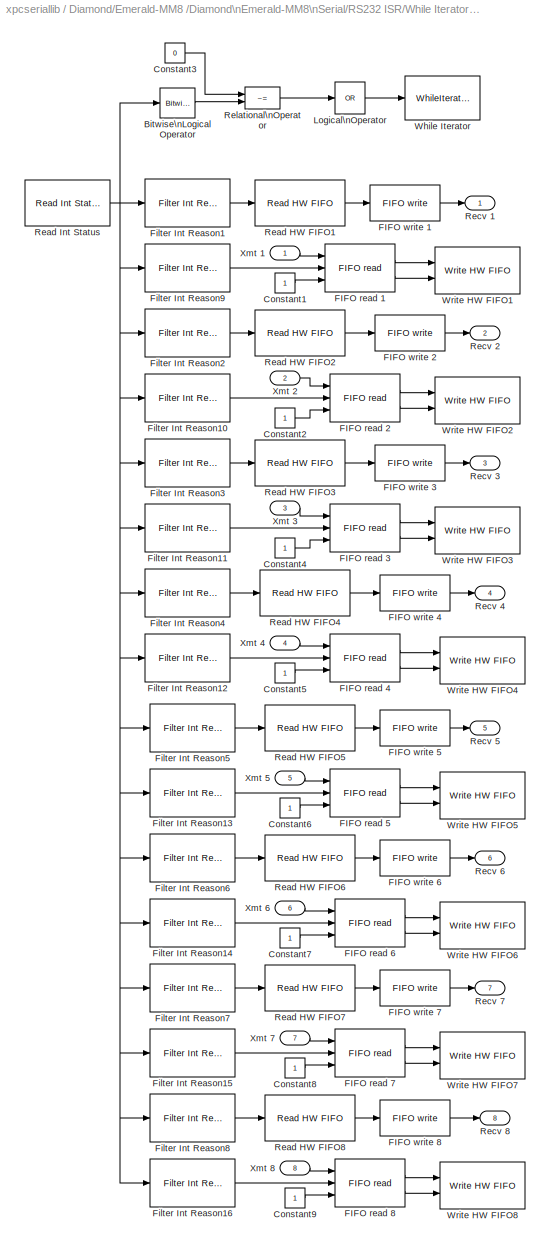
BLOCK [SubSystem] Diamond/Emerald-MM8 /Diamond\nEmerald-MM8\nSerial/RS232 ISR/While Iterator\nSubsystem
  FunctionWithSeparateData = off
  MaskHideContents = off
  MinAlgLoopOccurrences = off
  Opaque = off
  Ports = [8, 8]
  PropExecContextOutsideSubsystem = off
  RTWSystemCode = Auto
  RequestExecContextInheritance = off
  SID = 42:34:10
  TreatAsAtomicUnit = on
BLOCK [Reference] Diamond/Emerald-MM8 /Diamond\nEmerald-MM8\nSerial/RS232 ISR/While Iterator\nSubsystem/Bitwise\nLogical Operator  REF=simulink/Logic and Bit\nOperations/Bitwise\nOperator
  BitMask = 'FF'
  BitMaskRealWorld = Stored Integer
  NumInputPorts = 1
  Ports = [1, 1]
  SID = 42:34:19
  SourceBlock = simulink/Logic and Bit\nOperations/Bitwise\nOperator
  SourceType = Bitwise Operator
  UseBitMask = on
  logicop = AND
BLOCK [Constant] Diamond/Emerald-MM8 /Diamond\nEmerald-MM8\nSerial/RS232 ISR/While Iterator\nSubsystem/Constant1
  OutDataTypeStr = uint32
  SID = 42:34:20
BLOCK [Constant] Diamond/Emerald-MM8 /Diamond\nEmerald-MM8\nSerial/RS232 ISR/While Iterator\nSubsystem/Constant2
  OutDataTypeStr = uint32
  SID = 42:34:21
BLOCK [Constant] Diamond/Emerald-MM8 /Diamond\nEmerald-MM8\nSerial/RS232 ISR/While Iterator\nSubsystem/Constant3
  OutDataTypeStr = uint32
  SID = 42:34:22
  Value = 0
BLOCK [Constant] Diamond/Emerald-MM8 /Diamond\nEmerald-MM8\nSerial/RS232 ISR/While Iterator\nSubsystem/Constant4
  OutDataTypeStr = uint32
  SID = 42:34:23
BLOCK [Constant] Diamond/Emerald-MM8 /Diamond\nEmerald-MM8\nSerial/RS232 ISR/While Iterator\nSubsystem/Constant5
  OutDataTypeStr = uint32
  SID = 42:34:24
BLOCK [Constant] Diamond/Emerald-MM8 /Diamond\nEmerald-MM8\nSerial/RS232 ISR/While Iterator\nSubsystem/Constant6
  OutDataTypeStr = uint32
  SID = 42:34:25
BLOCK [Constant] Diamond/Emerald-MM8 /Diamond\nEmerald-MM8\nSerial/RS232 ISR/While Iterator\nSubsystem/Constant7
  OutDataTypeStr = uint32
  SID = 42:34:26
BLOCK [Constant] Diamond/Emerald-MM8 /Diamond\nEmerald-MM8\nSerial/RS232 ISR/While Iterator\nSubsystem/Constant8
  OutDataTypeStr = uint32
  SID = 42:34:27
BLOCK [Constant] Diamond/Emerald-MM8 /Diamond\nEmerald-MM8\nSerial/RS232 ISR/While Iterator\nSubsystem/Constant9
  OutDataTypeStr = uint32
  SID = 42:34:28
BLOCK [Reference] Diamond/Emerald-MM8 /Diamond\nEmerald-MM8\nSerial/RS232 ISR/While Iterator\nSubsystem/FIFO read 1  REF=xpcseriallib/FIFO read 
  Ports = [3, 2]
  SID = 42:34:29
  SourceBlock = xpcseriallib/FIFO read
  SourceType = Asynchronous FIFO Block: reader
  delimiter = 13
  enable = on
  enableout = on
  maxsize = 60
  minsize = 1
  outputtype = count+32 bit uint
  sampletime = -1
  usedelimiter = off
BLOCK [Reference] Diamond/Emerald-MM8 /Diamond\nEmerald-MM8\nSerial/RS232 ISR/While Iterator\nSubsystem/FIFO read 2  REF=xpcseriallib/FIFO read 
  Ports = [3, 2]
  SID = 42:34:30
  SourceBlock = xpcseriallib/FIFO read
  SourceType = Asynchronous FIFO Block: reader
  delimiter = 13
  enable = on
  enableout = on
  maxsize = 60
  minsize = 1
  outputtype = count+32 bit uint
  sampletime = -1
  usedelimiter = off
BLOCK [Reference] Diamond/Emerald-MM8 /Diamond\nEmerald-MM8\nSerial/RS232 ISR/While Iterator\nSubsystem/FIFO read 3  REF=xpcseriallib/FIFO read 
  Ports = [3, 2]
  SID = 42:34:31
  SourceBlock = xpcseriallib/FIFO read
  SourceType = Asynchronous FIFO Block: reader
  delimiter = 13
  enable = on
  enableout = on
  maxsize = 60
  minsize = 1
  outputtype = count+32 bit uint
  sampletime = -1
  usedelimiter = off
BLOCK [Reference] Diamond/Emerald-MM8 /Diamond\nEmerald-MM8\nSerial/RS232 ISR/While Iterator\nSubsystem/FIFO read 4  REF=xpcseriallib/FIFO read 
  Ports = [3, 2]
  SID = 42:34:32
  SourceBlock = xpcseriallib/FIFO read
  SourceType = Asynchronous FIFO Block: reader
  delimiter = 13
  enable = on
  enableout = on
  maxsize = 60
  minsize = 1
  outputtype = count+32 bit uint
  sampletime = -1
  usedelimiter = off
BLOCK [Reference] Diamond/Emerald-MM8 /Diamond\nEmerald-MM8\nSerial/RS232 ISR/While Iterator\nSubsystem/FIFO read 5  REF=xpcseriallib/FIFO read 
  Ports = [3, 2]
  SID = 42:34:33
  SourceBlock = xpcseriallib/FIFO read
  SourceType = Asynchronous FIFO Block: reader
  delimiter = 13
  enable = on
  enableout = on
  maxsize = 60
  minsize = 1
  outputtype = count+32 bit uint
  sampletime = -1
  usedelimiter = off
BLOCK [Reference] Diamond/Emerald-MM8 /Diamond\nEmerald-MM8\nSerial/RS232 ISR/While Iterator\nSubsystem/FIFO read 6  REF=xpcseriallib/FIFO read 
  Ports = [3, 2]
  SID = 42:34:34
  SourceBlock = xpcseriallib/FIFO read
  SourceType = Asynchronous FIFO Block: reader
  delimiter = 13
  enable = on
  enableout = on
  maxsize = 60
  minsize = 1
  outputtype = count+32 bit uint
  sampletime = -1
  usedelimiter = off
BLOCK [Reference] Diamond/Emerald-MM8 /Diamond\nEmerald-MM8\nSerial/RS232 ISR/While Iterator\nSubsystem/FIFO read 7  REF=xpcseriallib/FIFO read 
  Ports = [3, 2]
  SID = 42:34:35
  SourceBlock = xpcseriallib/FIFO read
  SourceType = Asynchronous FIFO Block: reader
  delimiter = 13
  enable = on
  enableout = on
  maxsize = 60
  minsize = 1
  outputtype = count+32 bit uint
  sampletime = -1
  usedelimiter = off
BLOCK [Reference] Diamond/Emerald-MM8 /Diamond\nEmerald-MM8\nSerial/RS232 ISR/While Iterator\nSubsystem/FIFO read 8  REF=xpcseriallib/FIFO read 
  Ports = [3, 2]
  SID = 42:34:36
  SourceBlock = xpcseriallib/FIFO read
  SourceType = Asynchronous FIFO Block: reader
  delimiter = 13
  enable = on
  enableout = on
  maxsize = 60
  minsize = 1
  outputtype = count+32 bit uint
  sampletime = -1
  usedelimiter = off
BLOCK [Reference] Diamond/Emerald-MM8 /Diamond\nEmerald-MM8\nSerial/RS232 ISR/While Iterator\nSubsystem/FIFO write 1  REF=xpcseriallib/FIFO write 
  Ports = [1, 1]
  SID = 42:34:37
  SourceBlock = xpcseriallib/FIFO write
  SourceType = Asynchronous FIFO Block: writer
  id = RCV channel 1, IRQ 5
  inputtype = count+32 bit uint
  present = off
  sampletime = -1
  size = 1024
BLOCK [Reference] Diamond/Emerald-MM8 /Diamond\nEmerald-MM8\nSerial/RS232 ISR/While Iterator\nSubsystem/FIFO write 2  REF=xpcseriallib/FIFO write 
  Ports = [1, 1]
  SID = 42:34:38
  SourceBlock = xpcseriallib/FIFO write
  SourceType = Asynchronous FIFO Block: writer
  id = RCV channel 2, IRQ 5
  inputtype = count+32 bit uint
  present = off
  sampletime = -1
  size = 1024
BLOCK [Reference] Diamond/Emerald-MM8 /Diamond\nEmerald-MM8\nSerial/RS232 ISR/While Iterator\nSubsystem/FIFO write 3  REF=xpcseriallib/FIFO write 
  Ports = [1, 1]
  SID = 42:34:39
  SourceBlock = xpcseriallib/FIFO write
  SourceType = Asynchronous FIFO Block: writer
  id = RCV channel 3, IRQ 5
  inputtype = count+32 bit uint
  present = off
  sampletime = -1
  size = 1024
BLOCK [Reference] Diamond/Emerald-MM8 /Diamond\nEmerald-MM8\nSerial/RS232 ISR/While Iterator\nSubsystem/FIFO write 4  REF=xpcseriallib/FIFO write 
  Ports = [1, 1]
  SID = 42:34:40
  SourceBlock = xpcseriallib/FIFO write
  SourceType = Asynchronous FIFO Block: writer
  id = RCV channel 4, IRQ 5
  inputtype = count+32 bit uint
  present = off
  sampletime = -1
  size = 1024
BLOCK [Reference] Diamond/Emerald-MM8 /Diamond\nEmerald-MM8\nSerial/RS232 ISR/While Iterator\nSubsystem/FIFO write 5  REF=xpcseriallib/FIFO write 
  Ports = [1, 1]
  SID = 42:34:41
  SourceBlock = xpcseriallib/FIFO write
  SourceType = Asynchronous FIFO Block: writer
  id = RCV channel 5, IRQ 5
  inputtype = count+32 bit uint
  present = off
  sampletime = -1
  size = 1024
BLOCK [Reference] Diamond/Emerald-MM8 /Diamond\nEmerald-MM8\nSerial/RS232 ISR/While Iterator\nSubsystem/FIFO write 6  REF=xpcseriallib/FIFO write 
  Ports = [1, 1]
  SID = 42:34:42
  SourceBlock = xpcseriallib/FIFO write
  SourceType = Asynchronous FIFO Block: writer
  id = RCV channel 6, IRQ 5
  inputtype = count+32 bit uint
  present = off
  sampletime = -1
  size = 1024
BLOCK [Reference] Diamond/Emerald-MM8 /Diamond\nEmerald-MM8\nSerial/RS232 ISR/While Iterator\nSubsystem/FIFO write 7  REF=xpcseriallib/FIFO write 
  Ports = [1, 1]
  SID = 42:34:43
  SourceBlock = xpcseriallib/FIFO write
  SourceType = Asynchronous FIFO Block: writer
  id = RCV channel 7, IRQ 5
  inputtype = count+32 bit uint
  present = off
  sampletime = -1
  size = 1024
BLOCK [Reference] Diamond/Emerald-MM8 /Diamond\nEmerald-MM8\nSerial/RS232 ISR/While Iterator\nSubsystem/FIFO write 8  REF=xpcseriallib/FIFO write 
  Ports = [1, 1]
  SID = 42:34:44
  SourceBlock = xpcseriallib/FIFO write
  SourceType = Asynchronous FIFO Block: writer
  id = RCV channel 8, IRQ 5
  inputtype = count+32 bit uint
  present = off
  sampletime = -1
  size = 1024
BLOCK [Reference] Diamond/Emerald-MM8 /Diamond\nEmerald-MM8\nSerial/RS232 ISR/While Iterator\nSubsystem/Filter Int Reason1  REF=xpcseriallib/Diamond/Emerald-MM8 /Diamond\nEmerald-MM8 /Filter Int Reason
  Ports = [1, 1]
  SID = 42:34:45
  SourceBlock = xpcseriallib/Diamond/Emerald-MM8 /Diamond\nEmerald-MM8 /Filter Int Reason
  SourceType = Interrupt Source Filter
  port = 1
  value = Receive data
BLOCK [Reference] Diamond/Emerald-MM8 /Diamond\nEmerald-MM8\nSerial/RS232 ISR/While Iterator\nSubsystem/Filter Int Reason10  REF=xpcseriallib/Diamond/Emerald-MM8 /Diamond\nEmerald-MM8 /Filter Int Reason
  Ports = [1, 1]
  SID = 42:34:46
  SourceBlock = xpcseriallib/Diamond/Emerald-MM8 /Diamond\nEmerald-MM8 /Filter Int Reason
  SourceType = Interrupt Source Filter
  port = 2
  value = Transmitter empty
BLOCK [Reference] Diamond/Emerald-MM8 /Diamond\nEmerald-MM8\nSerial/RS232 ISR/While Iterator\nSubsystem/Filter Int Reason11  REF=xpcseriallib/Diamond/Emerald-MM8 /Diamond\nEmerald-MM8 /Filter Int Reason
  Ports = [1, 1]
  SID = 42:34:47
  SourceBlock = xpcseriallib/Diamond/Emerald-MM8 /Diamond\nEmerald-MM8 /Filter Int Reason
  SourceType = Interrupt Source Filter
  port = 3
  value = Transmitter empty
BLOCK [Reference] Diamond/Emerald-MM8 /Diamond\nEmerald-MM8\nSerial/RS232 ISR/While Iterator\nSubsystem/Filter Int Reason12  REF=xpcseriallib/Diamond/Emerald-MM8 /Diamond\nEmerald-MM8 /Filter Int Reason
  Ports = [1, 1]
  SID = 42:34:48
  SourceBlock = xpcseriallib/Diamond/Emerald-MM8 /Diamond\nEmerald-MM8 /Filter Int Reason
  SourceType = Interrupt Source Filter
  port = 4
  value = Transmitter empty
BLOCK [Reference] Diamond/Emerald-MM8 /Diamond\nEmerald-MM8\nSerial/RS232 ISR/While Iterator\nSubsystem/Filter Int Reason13  REF=xpcseriallib/Diamond/Emerald-MM8 /Diamond\nEmerald-MM8 /Filter Int Reason
  Ports = [1, 1]
  SID = 42:34:49
  SourceBlock = xpcseriallib/Diamond/Emerald-MM8 /Diamond\nEmerald-MM8 /Filter Int Reason
  SourceType = Interrupt Source Filter
  port = 5
  value = Transmitter empty
BLOCK [Reference] Diamond/Emerald-MM8 /Diamond\nEmerald-MM8\nSerial/RS232 ISR/While Iterator\nSubsystem/Filter Int Reason14  REF=xpcseriallib/Diamond/Emerald-MM8 /Diamond\nEmerald-MM8 /Filter Int Reason
  Ports = [1, 1]
  SID = 42:34:50
  SourceBlock = xpcseriallib/Diamond/Emerald-MM8 /Diamond\nEmerald-MM8 /Filter Int Reason
  SourceType = Interrupt Source Filter
  port = 6
  value = Transmitter empty
BLOCK [Reference] Diamond/Emerald-MM8 /Diamond\nEmerald-MM8\nSerial/RS232 ISR/While Iterator\nSubsystem/Filter Int Reason15  REF=xpcseriallib/Diamond/Emerald-MM8 /Diamond\nEmerald-MM8 /Filter Int Reason
  Ports = [1, 1]
  SID = 42:34:51
  SourceBlock = xpcseriallib/Diamond/Emerald-MM8 /Diamond\nEmerald-MM8 /Filter Int Reason
  SourceType = Interrupt Source Filter
  port = 7
  value = Transmitter empty
BLOCK [Reference] Diamond/Emerald-MM8 /Diamond\nEmerald-MM8\nSerial/RS232 ISR/While Iterator\nSubsystem/Filter Int Reason16  REF=xpcseriallib/Diamond/Emerald-MM8 /Diamond\nEmerald-MM8 /Filter Int Reason
  Ports = [1, 1]
  SID = 42:34:52
  SourceBlock = xpcseriallib/Diamond/Emerald-MM8 /Diamond\nEmerald-MM8 /Filter Int Reason
  SourceType = Interrupt Source Filter
  port = 8
  value = Transmitter empty
BLOCK [Reference] Diamond/Emerald-MM8 /Diamond\nEmerald-MM8\nSerial/RS232 ISR/While Iterator\nSubsystem/Filter Int Reason2  REF=xpcseriallib/Diamond/Emerald-MM8 /Diamond\nEmerald-MM8 /Filter Int Reason
  Ports = [1, 1]
  SID = 42:34:53
  SourceBlock = xpcseriallib/Diamond/Emerald-MM8 /Diamond\nEmerald-MM8 /Filter Int Reason
  SourceType = Interrupt Source Filter
  port = 2
  value = Receive data
BLOCK [Reference] Diamond/Emerald-MM8 /Diamond\nEmerald-MM8\nSerial/RS232 ISR/While Iterator\nSubsystem/Filter Int Reason3  REF=xpcseriallib/Diamond/Emerald-MM8 /Diamond\nEmerald-MM8 /Filter Int Reason
  Ports = [1, 1]
  SID = 42:34:54
  SourceBlock = xpcseriallib/Diamond/Emerald-MM8 /Diamond\nEmerald-MM8 /Filter Int Reason
  SourceType = Interrupt Source Filter
  port = 3
  value = Receive data
BLOCK [Reference] Diamond/Emerald-MM8 /Diamond\nEmerald-MM8\nSerial/RS232 ISR/While Iterator\nSubsystem/Filter Int Reason4  REF=xpcseriallib/Diamond/Emerald-MM8 /Diamond\nEmerald-MM8 /Filter Int Reason
  Ports = [1, 1]
  SID = 42:34:55
  SourceBlock = xpcseriallib/Diamond/Emerald-MM8 /Diamond\nEmerald-MM8 /Filter Int Reason
  SourceType = Interrupt Source Filter
  port = 4
  value = Receive data
BLOCK [Reference] Diamond/Emerald-MM8 /Diamond\nEmerald-MM8\nSerial/RS232 ISR/While Iterator\nSubsystem/Filter Int Reason5  REF=xpcseriallib/Diamond/Emerald-MM8 /Diamond\nEmerald-MM8 /Filter Int Reason
  Ports = [1, 1]
  SID = 42:34:56
  SourceBlock = xpcseriallib/Diamond/Emerald-MM8 /Diamond\nEmerald-MM8 /Filter Int Reason
  SourceType = Interrupt Source Filter
  port = 5
  value = Receive data
BLOCK [Reference] Diamond/Emerald-MM8 /Diamond\nEmerald-MM8\nSerial/RS232 ISR/While Iterator\nSubsystem/Filter Int Reason6  REF=xpcseriallib/Diamond/Emerald-MM8 /Diamond\nEmerald-MM8 /Filter Int Reason
  Ports = [1, 1]
  SID = 42:34:57
  SourceBlock = xpcseriallib/Diamond/Emerald-MM8 /Diamond\nEmerald-MM8 /Filter Int Reason
  SourceType = Interrupt Source Filter
  port = 6
  value = Receive data
BLOCK [Reference] Diamond/Emerald-MM8 /Diamond\nEmerald-MM8\nSerial/RS232 ISR/While Iterator\nSubsystem/Filter Int Reason7  REF=xpcseriallib/Diamond/Emerald-MM8 /Diamond\nEmerald-MM8 /Filter Int Reason
  Ports = [1, 1]
  SID = 42:34:58
  SourceBlock = xpcseriallib/Diamond/Emerald-MM8 /Diamond\nEmerald-MM8 /Filter Int Reason
  SourceType = Interrupt Source Filter
  port = 7
  value = Receive data
BLOCK [Reference] Diamond/Emerald-MM8 /Diamond\nEmerald-MM8\nSerial/RS232 ISR/While Iterator\nSubsystem/Filter Int Reason8  REF=xpcseriallib/Diamond/Emerald-MM8 /Diamond\nEmerald-MM8 /Filter Int Reason
  Ports = [1, 1]
  SID = 42:34:59
  SourceBlock = xpcseriallib/Diamond/Emerald-MM8 /Diamond\nEmerald-MM8 /Filter Int Reason
  SourceType = Interrupt Source Filter
  port = 8
  value = Receive data
BLOCK [Reference] Diamond/Emerald-MM8 /Diamond\nEmerald-MM8\nSerial/RS232 ISR/While Iterator\nSubsystem/Filter Int Reason9  REF=xpcseriallib/Diamond/Emerald-MM8 /Diamond\nEmerald-MM8 /Filter Int Reason
  Ports = [1, 1]
  SID = 42:34:60
  SourceBlock = xpcseriallib/Diamond/Emerald-MM8 /Diamond\nEmerald-MM8 /Filter Int Reason
  SourceType = Interrupt Source Filter
  port = 1
  value = Transmitter empty
BLOCK [Logic] Diamond/Emerald-MM8 /Diamond\nEmerald-MM8\nSerial/RS232 ISR/While Iterator\nSubsystem/Logical\nOperator
  AllPortsSameDT = off
  Inputs = 1
  Operator = OR
  Ports = [1, 1]
  SID = 42:34:61
BLOCK [Reference] Diamond/Emerald-MM8 /Diamond\nEmerald-MM8\nSerial/RS232 ISR/While Iterator\nSubsystem/Read HW FIFO1  REF=xpcseriallib/Diamond/Emerald-MM8 /Diamond\nEmerald-MM8 /Read HW FIFO
  Ports = [1, 1]
  SID = 42:34:62
  SourceBlock = xpcseriallib/Diamond/Emerald-MM8 /Diamond\nEmerald-MM8 /Read HW FIFO
  SourceType = Read Data Port
  addr = baddr1
  flush = on
BLOCK [Reference] Diamond/Emerald-MM8 /Diamond\nEmerald-MM8\nSerial/RS232 ISR/While Iterator\nSubsystem/Read HW FIFO2  REF=xpcseriallib/Diamond/Emerald-MM8 /Diamond\nEmerald-MM8 /Read HW FIFO
  Ports = [1, 1]
  SID = 42:34:63
  SourceBlock = xpcseriallib/Diamond/Emerald-MM8 /Diamond\nEmerald-MM8 /Read HW FIFO
  SourceType = Read Data Port
  addr = baddr2
  flush = on
BLOCK [Reference] Diamond/Emerald-MM8 /Diamond\nEmerald-MM8\nSerial/RS232 ISR/While Iterator\nSubsystem/Read HW FIFO3  REF=xpcseriallib/Diamond/Emerald-MM8 /Diamond\nEmerald-MM8 /Read HW FIFO
  Ports = [1, 1]
  SID = 42:34:64
  SourceBlock = xpcseriallib/Diamond/Emerald-MM8 /Diamond\nEmerald-MM8 /Read HW FIFO
  SourceType = Read Data Port
  addr = baddr3
  flush = on
BLOCK [Reference] Diamond/Emerald-MM8 /Diamond\nEmerald-MM8\nSerial/RS232 ISR/While Iterator\nSubsystem/Read HW FIFO4  REF=xpcseriallib/Diamond/Emerald-MM8 /Diamond\nEmerald-MM8 /Read HW FIFO
  Ports = [1, 1]
  SID = 42:34:65
  SourceBlock = xpcseriallib/Diamond/Emerald-MM8 /Diamond\nEmerald-MM8 /Read HW FIFO
  SourceType = Read Data Port
  addr = baddr4
  flush = on
BLOCK [Reference] Diamond/Emerald-MM8 /Diamond\nEmerald-MM8\nSerial/RS232 ISR/While Iterator\nSubsystem/Read HW FIFO5  REF=xpcseriallib/Diamond/Emerald-MM8 /Diamond\nEmerald-MM8 /Read HW FIFO
  Ports = [1, 1]
  SID = 42:34:66
  SourceBlock = xpcseriallib/Diamond/Emerald-MM8 /Diamond\nEmerald-MM8 /Read HW FIFO
  SourceType = Read Data Port
  addr = baddr5
  flush = on
BLOCK [Reference] Diamond/Emerald-MM8 /Diamond\nEmerald-MM8\nSerial/RS232 ISR/While Iterator\nSubsystem/Read HW FIFO6  REF=xpcseriallib/Diamond/Emerald-MM8 /Diamond\nEmerald-MM8 /Read HW FIFO
  Ports = [1, 1]
  SID = 42:34:67
  SourceBlock = xpcseriallib/Diamond/Emerald-MM8 /Diamond\nEmerald-MM8 /Read HW FIFO
  SourceType = Read Data Port
  addr = baddr6
  flush = on
BLOCK [Reference] Diamond/Emerald-MM8 /Diamond\nEmerald-MM8\nSerial/RS232 ISR/While Iterator\nSubsystem/Read HW FIFO7  REF=xpcseriallib/Diamond/Emerald-MM8 /Diamond\nEmerald-MM8 /Read HW FIFO
  Ports = [1, 1]
  SID = 42:34:68
  SourceBlock = xpcseriallib/Diamond/Emerald-MM8 /Diamond\nEmerald-MM8 /Read HW FIFO
  SourceType = Read Data Port
  addr = baddr7
  flush = on
BLOCK [Reference] Diamond/Emerald-MM8 /Diamond\nEmerald-MM8\nSerial/RS232 ISR/While Iterator\nSubsystem/Read HW FIFO8  REF=xpcseriallib/Diamond/Emerald-MM8 /Diamond\nEmerald-MM8 /Read HW FIFO
  Ports = [1, 1]
  SID = 42:34:69
  SourceBlock = xpcseriallib/Diamond/Emerald-MM8 /Diamond\nEmerald-MM8 /Read HW FIFO
  SourceType = Read Data Port
  addr = baddr8
  flush = on
BLOCK [Reference] Diamond/Emerald-MM8 /Diamond\nEmerald-MM8\nSerial/RS232 ISR/While Iterator\nSubsystem/Read Int Status  REF=xpcseriallib/Diamond/Emerald-MM8 /Diamond\nEmerald-MM8 /Read Int Status
  Ports = [0, 1]
  SID = 42:34:70
  SourceBlock = xpcseriallib/Diamond/Emerald-MM8 /Diamond\nEmerald-MM8 /Read Int Status
  SourceType = Interrupt Query
  addr1 = baddr1
  addr2 = baddr2
  addr3 = baddr3
  addr4 = baddr4
  addr5 = baddr5
  addr6 = baddr6
  addr7 = baddr7
  addr8 = baddr8
  intstat = istat
BLOCK [Outport] Diamond/Emerald-MM8 /Diamond\nEmerald-MM8\nSerial/RS232 ISR/While Iterator\nSubsystem/Recv 1
  IconDisplay = Port number
  SID = 42:34:81
BLOCK [Outport] Diamond/Emerald-MM8 /Diamond\nEmerald-MM8\nSerial/RS232 ISR/While Iterator\nSubsystem/Recv 2
  IconDisplay = Port number
  Port = 2
  SID = 42:34:82
BLOCK [Outport] Diamond/Emerald-MM8 /Diamond\nEmerald-MM8\nSerial/RS232 ISR/While Iterator\nSubsystem/Recv 3
  IconDisplay = Port number
  Port = 3
  SID = 42:34:83
BLOCK [Outport] Diamond/Emerald-MM8 /Diamond\nEmerald-MM8\nSerial/RS232 ISR/While Iterator\nSubsystem/Recv 4
  IconDisplay = Port number
  Port = 4
  SID = 42:34:84
BLOCK [Outport] Diamond/Emerald-MM8 /Diamond\nEmerald-MM8\nSerial/RS232 ISR/While Iterator\nSubsystem/Recv 5
  IconDisplay = Port number
  Port = 5
  SID = 42:34:85
BLOCK [Outport] Diamond/Emerald-MM8 /Diamond\nEmerald-MM8\nSerial/RS232 ISR/While Iterator\nSubsystem/Recv 6
  IconDisplay = Port number
  Port = 6
  SID = 42:34:86
BLOCK [Outport] Diamond/Emerald-MM8 /Diamond\nEmerald-MM8\nSerial/RS232 ISR/While Iterator\nSubsystem/Recv 7
  IconDisplay = Port number
  Port = 7
  SID = 42:34:87
BLOCK [Outport] Diamond/Emerald-MM8 /Diamond\nEmerald-MM8\nSerial/RS232 ISR/While Iterator\nSubsystem/Recv 8
  IconDisplay = Port number
  Port = 8
  SID = 42:34:88
BLOCK [RelationalOperator] Diamond/Emerald-MM8 /Diamond\nEmerald-MM8\nSerial/RS232 ISR/While Iterator\nSubsystem/Relational\nOperator
  InputSameDT = off
  Operator = ~=
  Ports = [2, 1]
  SID = 42:34:71
BLOCK [WhileIterator] Diamond/Emerald-MM8 /Diamond\nEmerald-MM8\nSerial/RS232 ISR/While Iterator\nSubsystem/While Iterator
  MaxIters = 66
  Ports = [1]
  SID = 42:34:72
  WhileBlockType = do-while
BLOCK [Reference] Diamond/Emerald-MM8 /Diamond\nEmerald-MM8\nSerial/RS232 ISR/While Iterator\nSubsystem/Write HW FIFO1  REF=xpcseriallib/Diamond/Emerald-MM8 /Diamond\nEmerald-MM8 /Write HW FIFO
  Ports = [2]
  SID = 42:34:73
  SourceBlock = xpcseriallib/Diamond/Emerald-MM8 /Diamond\nEmerald-MM8 /Write HW FIFO
  SourceType = Write Data Port
  addr = baddr1
BLOCK [Reference] Diamond/Emerald-MM8 /Diamond\nEmerald-MM8\nSerial/RS232 ISR/While Iterator\nSubsystem/Write HW FIFO2  REF=xpcseriallib/Diamond/Emerald-MM8 /Diamond\nEmerald-MM8 /Write HW FIFO
  Ports = [2]
  SID = 42:34:74
  SourceBlock = xpcseriallib/Diamond/Emerald-MM8 /Diamond\nEmerald-MM8 /Write HW FIFO
  SourceType = Write Data Port
  addr = baddr2
BLOCK [Reference] Diamond/Emerald-MM8 /Diamond\nEmerald-MM8\nSerial/RS232 ISR/While Iterator\nSubsystem/Write HW FIFO3  REF=xpcseriallib/Diamond/Emerald-MM8 /Diamond\nEmerald-MM8 /Write HW FIFO
  Ports = [2]
  SID = 42:34:75
  SourceBlock = xpcseriallib/Diamond/Emerald-MM8 /Diamond\nEmerald-MM8 /Write HW FIFO
  SourceType = Write Data Port
  addr = baddr3
BLOCK [Reference] Diamond/Emerald-MM8 /Diamond\nEmerald-MM8\nSerial/RS232 ISR/While Iterator\nSubsystem/Write HW FIFO4  REF=xpcseriallib/Diamond/Emerald-MM8 /Diamond\nEmerald-MM8 /Write HW FIFO
  Ports = [2]
  SID = 42:34:76
  SourceBlock = xpcseriallib/Diamond/Emerald-MM8 /Diamond\nEmerald-MM8 /Write HW FIFO
  SourceType = Write Data Port
  addr = baddr4
BLOCK [Reference] Diamond/Emerald-MM8 /Diamond\nEmerald-MM8\nSerial/RS232 ISR/While Iterator\nSubsystem/Write HW FIFO5  REF=xpcseriallib/Diamond/Emerald-MM8 /Diamond\nEmerald-MM8 /Write HW FIFO
  Ports = [2]
  SID = 42:34:77
  SourceBlock = xpcseriallib/Diamond/Emerald-MM8 /Diamond\nEmerald-MM8 /Write HW FIFO
  SourceType = Write Data Port
  addr = baddr5
BLOCK [Reference] Diamond/Emerald-MM8 /Diamond\nEmerald-MM8\nSerial/RS232 ISR/While Iterator\nSubsystem/Write HW FIFO6  REF=xpcseriallib/Diamond/Emerald-MM8 /Diamond\nEmerald-MM8 /Write HW FIFO
  Ports = [2]
  SID = 42:34:78
  SourceBlock = xpcseriallib/Diamond/Emerald-MM8 /Diamond\nEmerald-MM8 /Write HW FIFO
  SourceType = Write Data Port
  addr = baddr6
BLOCK [Reference] Diamond/Emerald-MM8 /Diamond\nEmerald-MM8\nSerial/RS232 ISR/While Iterator\nSubsystem/Write HW FIFO7  REF=xpcseriallib/Diamond/Emerald-MM8 /Diamond\nEmerald-MM8 /Write HW FIFO
  Ports = [2]
  SID = 42:34:79
  SourceBlock = xpcseriallib/Diamond/Emerald-MM8 /Diamond\nEmerald-MM8 /Write HW FIFO
  SourceType = Write Data Port
  addr = baddr7
BLOCK [Reference] Diamond/Emerald-MM8 /Diamond\nEmerald-MM8\nSerial/RS232 ISR/While Iterator\nSubsystem/Write HW FIFO8  REF=xpcseriallib/Diamond/Emerald-MM8 /Diamond\nEmerald-MM8 /Write HW FIFO
  Ports = [2]
  SID = 42:34:80
  SourceBlock = xpcseriallib/Diamond/Emerald-MM8 /Diamond\nEmerald-MM8 /Write HW FIFO
  SourceType = Write Data Port
  addr = baddr8
BLOCK [Inport] Diamond/Emerald-MM8 /Diamond\nEmerald-MM8\nSerial/RS232 ISR/While Iterator\nSubsystem/Xmt 1
  IconDisplay = Port number
  SID = 42:34:11
BLOCK [Inport] Diamond/Emerald-MM8 /Diamond\nEmerald-MM8\nSerial/RS232 ISR/While Iterator\nSubsystem/Xmt 2
  IconDisplay = Port number
  Port = 2
  SID = 42:34:12
BLOCK [Inport] Diamond/Emerald-MM8 /Diamond\nEmerald-MM8\nSerial/RS232 ISR/While Iterator\nSubsystem/Xmt 3
  IconDisplay = Port number
  Port = 3
  SID = 42:34:13
BLOCK [Inport] Diamond/Emerald-MM8 /Diamond\nEmerald-MM8\nSerial/RS232 ISR/While Iterator\nSubsystem/Xmt 4
  IconDisplay = Port number
  Port = 4
  SID = 42:34:14
BLOCK [Inport] Diamond/Emerald-MM8 /Diamond\nEmerald-MM8\nSerial/RS232 ISR/While Iterator\nSubsystem/Xmt 5
  IconDisplay = Port number
  Port = 5
  SID = 42:34:15
BLOCK [Inport] Diamond/Emerald-MM8 /Diamond\nEmerald-MM8\nSerial/RS232 ISR/While Iterator\nSubsystem/Xmt 6
  IconDisplay = Port number
  Port = 6
  SID = 42:34:16
BLOCK [Inport] Diamond/Emerald-MM8 /Diamond\nEmerald-MM8\nSerial/RS232 ISR/While Iterator\nSubsystem/Xmt 7
  IconDisplay = Port number
  Port = 7
  SID = 42:34:17
BLOCK [Inport] Diamond/Emerald-MM8 /Diamond\nEmerald-MM8\nSerial/RS232 ISR/While Iterator\nSubsystem/Xmt 8
  IconDisplay = Port number
  Port = 8
  SID = 42:34:18
BLOCK [Inport] Diamond/Emerald-MM8 /Diamond\nEmerald-MM8\nSerial/RS232 ISR/Xmt 1
  IconDisplay = Port number
  SID = 42:34:1
BLOCK [Inport] Diamond/Emerald-MM8 /Diamond\nEmerald-MM8\nSerial/RS232 ISR/Xmt 2
  IconDisplay = Port number
  Port = 2
  SID = 42:34:2
BLOCK [Inport] Diamond/Emerald-MM8 /Diamond\nEmerald-MM8\nSerial/RS232 ISR/Xmt 3
  IconDisplay = Port number
  Port = 3
  SID = 42:34:3
BLOCK [Inport] Diamond/Emerald-MM8 /Diamond\nEmerald-MM8\nSerial/RS232 ISR/Xmt 4
  IconDisplay = Port number
  Port = 4
  SID = 42:34:4
BLOCK [Inport] Diamond/Emerald-MM8 /Diamond\nEmerald-MM8\nSerial/RS232 ISR/Xmt 5
  IconDisplay = Port number
  Port = 5
  SID = 42:34:5
BLOCK [Inport] Diamond/Emerald-MM8 /Diamond\nEmerald-MM8\nSerial/RS232 ISR/Xmt 6
  IconDisplay = Port number
  Port = 6
  SID = 42:34:6
BLOCK [Inport] Diamond/Emerald-MM8 /Diamond\nEmerald-MM8\nSerial/RS232 ISR/Xmt 7
  IconDisplay = Port number
  Port = 7
  SID = 42:34:7
BLOCK [Inport] Diamond/Emerald-MM8 /Diamond\nEmerald-MM8\nSerial/RS232 ISR/Xmt 8
  IconDisplay = Port number
  Port = 8
  SID = 42:34:8
BLOCK [TriggerPort] Diamond/Emerald-MM8 /Diamond\nEmerald-MM8\nSerial/RS232 ISR/function
  Ports = []
  SID = 42:34:9
  StatesWhenEnabling = held
  TriggerType = function-call
BLOCK [RateTransition] Diamond/Emerald-MM8 /Diamond\nEmerald-MM8\nSerial/Rate Transition1
  Deterministic = off
  Integrity = off
  SID = 42:35
BLOCK [RateTransition] Diamond/Emerald-MM8 /Diamond\nEmerald-MM8\nSerial/Rate Transition10
  Deterministic = off
  Integrity = off
  SID = 42:36
BLOCK [RateTransition] Diamond/Emerald-MM8 /Diamond\nEmerald-MM8\nSerial/Rate Transition11
  Deterministic = off
  Integrity = off
  SID = 42:37
BLOCK [RateTransition] Diamond/Emerald-MM8 /Diamond\nEmerald-MM8\nSerial/Rate Transition12
  Deterministic = off
  Integrity = off
  SID = 42:38
BLOCK [RateTransition] Diamond/Emerald-MM8 /Diamond\nEmerald-MM8\nSerial/Rate Transition13
  Deterministic = off
  Integrity = off
  SID = 42:39
BLOCK [RateTransition] Diamond/Emerald-MM8 /Diamond\nEmerald-MM8\nSerial/Rate Transition14
  Deterministic = off
  Integrity = off
  SID = 42:40
BLOCK [RateTransition] Diamond/Emerald-MM8 /Diamond\nEmerald-MM8\nSerial/Rate Transition15
  Deterministic = off
  Integrity = off
  SID = 42:41
BLOCK [RateTransition] Diamond/Emerald-MM8 /Diamond\nEmerald-MM8\nSerial/Rate Transition16
  Deterministic = off
  Integrity = off
  SID = 42:42
BLOCK [RateTransition] Diamond/Emerald-MM8 /Diamond\nEmerald-MM8\nSerial/Rate Transition2
  Deterministic = off
  Integrity = off
  SID = 42:43
BLOCK [RateTransition] Diamond/Emerald-MM8 /Diamond\nEmerald-MM8\nSerial/Rate Transition3
  Deterministic = off
  Integrity = off
  SID = 42:44
BLOCK [RateTransition] Diamond/Emerald-MM8 /Diamond\nEmerald-MM8\nSerial/Rate Transition4
  Deterministic = off
  Integrity = off
  SID = 42:45
BLOCK [RateTransition] Diamond/Emerald-MM8 /Diamond\nEmerald-MM8\nSerial/Rate Transition5
  Deterministic = off
  Integrity = off
  SID = 42:46
BLOCK [RateTransition] Diamond/Emerald-MM8 /Diamond\nEmerald-MM8\nSerial/Rate Transition6
  Deterministic = off
  Integrity = off
  SID = 42:47
BLOCK [RateTransition] Diamond/Emerald-MM8 /Diamond\nEmerald-MM8\nSerial/Rate Transition7
  Deterministic = off
  Integrity = off
  SID = 42:48
BLOCK [RateTransition] Diamond/Emerald-MM8 /Diamond\nEmerald-MM8\nSerial/Rate Transition8
  Deterministic = off
  Integrity = off
  SID = 42:49
BLOCK [RateTransition] Diamond/Emerald-MM8 /Diamond\nEmerald-MM8\nSerial/Rate Transition9
  Deterministic = off
  Integrity = off
  SID = 42:50
BLOCK [Reference] Diamond/Emerald-MM8 /Diamond\nEmerald-MM8\nSerial/Setup1  REF=xpcseriallib/Diamond/Emerald-MM8 /Diamond\nEmerald-MM8 /Setup
  Ports = []
  SID = 42:51
  SourceBlock = xpcseriallib/Diamond/Emerald-MM8 /Diamond\nEmerald-MM8 /Setup
  SourceType = setup
  addr = baddr1
  baud = 115200
  ctsmode = on
  fmode = 16 deep
  irq = irqnum
  nstop = 1
  parity = None
  rlevel = 1
  width = 8
BLOCK [Reference] Diamond/Emerald-MM8 /Diamond\nEmerald-MM8\nSerial/Setup2  REF=xpcseriallib/Diamond/Emerald-MM8 /Diamond\nEmerald-MM8 /Setup
  Ports = []
  SID = 42:52
  SourceBlock = xpcseriallib/Diamond/Emerald-MM8 /Diamond\nEmerald-MM8 /Setup
  SourceType = setup
  addr = baddr2
  baud = 115200
  ctsmode = on
  fmode = 16 deep
  irq = irqnum
  nstop = 1
  parity = None
  rlevel = 1
  width = 8
BLOCK [Reference] Diamond/Emerald-MM8 /Diamond\nEmerald-MM8\nSerial/Setup3  REF=xpcseriallib/Diamond/Emerald-MM8 /Diamond\nEmerald-MM8 /Setup
  Ports = []
  SID = 42:53
  SourceBlock = xpcseriallib/Diamond/Emerald-MM8 /Diamond\nEmerald-MM8 /Setup
  SourceType = setup
  addr = baddr3
  baud = 115200
  ctsmode = on
  fmode = 16 deep
  irq = irqnum
  nstop = 1
  parity = None
  rlevel = 1
  width = 8
BLOCK [Reference] Diamond/Emerald-MM8 /Diamond\nEmerald-MM8\nSerial/Setup4  REF=xpcseriallib/Diamond/Emerald-MM8 /Diamond\nEmerald-MM8 /Setup
  Ports = []
  SID = 42:54
  SourceBlock = xpcseriallib/Diamond/Emerald-MM8 /Diamond\nEmerald-MM8 /Setup
  SourceType = setup
  addr = baddr4
  baud = 115200
  ctsmode = on
  fmode = 16 deep
  irq = irqnum
  nstop = 1
  parity = None
  rlevel = 1
  width = 8
BLOCK [Reference] Diamond/Emerald-MM8 /Diamond\nEmerald-MM8\nSerial/Setup5  REF=xpcseriallib/Diamond/Emerald-MM8 /Diamond\nEmerald-MM8 /Setup
  Ports = []
  SID = 42:55
  SourceBlock = xpcseriallib/Diamond/Emerald-MM8 /Diamond\nEmerald-MM8 /Setup
  SourceType = setup
  addr = baddr5
  baud = 115200
  ctsmode = on
  fmode = 16 deep
  irq = irqnum
  nstop = 1
  parity = None
  rlevel = 1
  width = 8
BLOCK [Reference] Diamond/Emerald-MM8 /Diamond\nEmerald-MM8\nSerial/Setup6  REF=xpcseriallib/Diamond/Emerald-MM8 /Diamond\nEmerald-MM8 /Setup
  Ports = []
  SID = 42:56
  SourceBlock = xpcseriallib/Diamond/Emerald-MM8 /Diamond\nEmerald-MM8 /Setup
  SourceType = setup
  addr = baddr6
  baud = 115200
  ctsmode = on
  fmode = 16 deep
  irq = irqnum
  nstop = 1
  parity = None
  rlevel = 1
  width = 8
BLOCK [Reference] Diamond/Emerald-MM8 /Diamond\nEmerald-MM8\nSerial/Setup7  REF=xpcseriallib/Diamond/Emerald-MM8 /Diamond\nEmerald-MM8 /Setup
  Ports = []
  SID = 42:57
  SourceBlock = xpcseriallib/Diamond/Emerald-MM8 /Diamond\nEmerald-MM8 /Setup
  SourceType = setup
  addr = baddr7
  baud = 115200
  ctsmode = on
  fmode = 16 deep
  irq = irqnum
  nstop = 1
  parity = None
  rlevel = 1
  width = 8
BLOCK [Reference] Diamond/Emerald-MM8 /Diamond\nEmerald-MM8\nSerial/Setup8  REF=xpcseriallib/Diamond/Emerald-MM8 /Diamond\nEmerald-MM8 /Setup
  Ports = []
  SID = 42:58
  SourceBlock = xpcseriallib/Diamond/Emerald-MM8 /Diamond\nEmerald-MM8 /Setup
  SourceType = setup
  addr = baddr8
  baud = 115200
  ctsmode = on
  fmode = 16 deep
  irq = irqnum
  nstop = 1
  parity = None
  rlevel = 1
  width = 8
BLOCK [S-Function] Diamond/Emerald-MM8 /Modem Control 
  EnableBusSupport = off
  FunctionName = modemcontrolemeraldmm
  InitFcn = mmodemcontrol(5);
  MaskCallbackString = \n|||
  MaskDescription = Diamond Emerald-MM-8\nModem Control
  MaskDisplay = disp('Diamond\\nEmerald-MM-8\\nModem Control');port_label('input',1,'RTS');port_label('input',2,'DTR');
  MaskEnableString = on,on,on,on
  MaskHelp = helpview(fullfile(docroot, 'mapfiles', 'xpc.map'), 'Emerald_MODEM_Control')
  MaskIconFrame = on
  MaskIconOpaque = on
  MaskIconRotate = none
  MaskIconUnits = autoscale
  MaskInitialization = count = 0;\nboardtype = 6;\n[maskdisplay, count, addr] = mmodemcontrol( 2, rts, dtr, boardtype, port, firstaddr );\naddr = hex2dec( addr(3:end) );\nset_param( gcb, 'MaskDisplay', maskdisplay );\n
  MaskPortRotate = default
  MaskPromptString = Port:|RTS:|DTR:|Configuration port address:
  MaskSelfModifiable = on
  MaskStyleString = popup(1|2|3|4|5|6|7|8),checkbox,checkbox,popup(0x100|0x140|0x180|0x1c0|0x200|0x240|0x280|0x2c0|0x300|0x340|0x380|0x3c0)
  MaskToolTipString = on,on,on,on
  MaskTunableValueString = on,on,on,on
  MaskType = Modem Control
  MaskValueString = 1|on|on|0x200
  MaskVariables = port=@1;rts=@2;dtr=@3;firstaddr=&4;
  MaskVisibilityString = on,on,on,on
  Parameters = addr, boardtype, rts, dtr, count
  Ports = [2]
  SID = 51
BLOCK [S-Function] Diamond/Emerald-MM8 /Modem Status 
  EnableBusSupport = off
  FunctionName = modemstatusemeraldmm
  MaskCallbackString = \n||||||
  MaskDescription = Diamond Emerald-MM-8\nModem Status
  MaskDisplay = disp('Diamond\\nEmerald-MM-8\\nModem Status');port_label('output',1,'CTS');port_label('output',2,'DSR');port_label('output',3,'RI');port_label('output',4,'DCD');
  MaskEnableString = on,on,on,on,on,on,on
  MaskHelp = helpview(fullfile(docroot, 'mapfiles', 'xpc.map'), 'Emerald_MODEM_Status')
  MaskIconFrame = on
  MaskIconOpaque = on
  MaskIconRotate = none
  MaskIconUnits = autoscale
  MaskInitialization = count = 0;\nboardtype = 6;\n[maskdisplay, count, addr] = mmodemstatus( 2, cts, dsr, ring, dcd, boardtype, port, firstaddr );\naddr = hex2dec( addr(3:end) );\nset_param( gcb, 'MaskDisplay', maskdisplay );\n
  MaskPortRotate = default
  MaskPromptString = Port:|CTS:|DSR:|RI:|DCD:|SampleTime:|Configuration port address:
  MaskSelfModifiable = on
  MaskStyleString = popup(1|2|3|4|5|6|7|8),checkbox,checkbox,checkbox,checkbox,edit,popup(0x100|0x140|0x180|0x1c0|0x200|0x240|0x280|0x2c0|0x300|0x340|0x380|0x3c0)
  MaskToolTipString = on,on,on,on,on,on,on
  MaskTunableValueString = on,on,on,on,on,on,on
  MaskType = Modem Status
  MaskValueString = 1|on|on|on|on|-1|0x200
  MaskVariables = port=@1;cts=@2;dsr=@3;ring=@4;dcd=@5;sampletime=@6;firstaddr=&7;
  MaskVisibilityString = on,on,on,on,on,on,on
  Parameters = addr, boardtype, cts, dsr, ring, dcd, count, sampletime
  Ports = [0, 4]
  SID = 52
BLOCK [S-Function] FIFO ASCII read 
  EnableBusSupport = off
  FunctionName = fiforeadhdr
  MaskCallbackString = ||||||
  MaskDescription = FIFO read multiple headers\n\n
  MaskDisplay = disp( 'FIFO\\nRead HDRS');port_label('input',1,'F');port_label('output',1,'1');port_label('output',2,'2');
  MaskEnableString = on,on,on,on,on,on,on
  MaskHelp = helpview(fullfile(docroot, 'mapfiles', 'xpc.map'), 'FIFO_asciiread')
  MaskIconFrame = on
  MaskIconOpaque = on
  MaskIconRotate = none
  MaskIconUnits = autoscale
  MaskInitialization = [maskdisplay, hdr, hlengths, nterm] = mfiforhdr( header, term );\nset_param( gcb, 'MaskDisplay', maskdisplay );\n
  MaskPortRotate = default
  MaskPromptString = Header:|Terminating string:|Output behavior:|Enable input:|Maximum read size:|Output vector type:|SampleTime:
  MaskSelfModifiable = on
  MaskStyleString = edit,edit,popup(Hold last output if no new data|Zero output if no new data),checkbox,edit,popup(count+32 bit int|count+32 bit uint|count+16 bit int|count+16 bit uint|8 bit int null terminated|8 bit uint null terminated),edit
  MaskToolTipString = on,on,on,on,on,on,on
  MaskTunableValueString = on,on,on,on,on,on,on
  MaskType = Asynchronous FIFO Block: reader
  MaskValueString = {'Header1','Header2'}|[13 10]|Zero output if no new data|off|1024|8 bit uint null terminated|0.01
  MaskVariables = header=@1;term=@2;hold=@3;enable=@4;maxsize=@5;outputtype=@6;sampletime=@7;
  MaskVisibilityString = on,on,on,on,on,on,on
  Parameters = maxsize, outputtype, sampletime, hdr, hlengths, nterm, hold, enable
  Ports = [1, 2]
  SID = 19
BLOCK [S-Function] FIFO bin read 
  EnableBusSupport = off
  FunctionName = fiforeadbinhdr
  MaskCallbackString = ||||||
  MaskDescription = FIFO read multiple binary headers\n\n
  MaskDisplay = disp( 'FIFO\\nRead BINARY');port_label('input',1,'F');port_label('output',1,'1');port_label('output',2,'2');
  MaskEnableString = on,on,on,on,on,on,on
  MaskHelp = helpview(fullfile(docroot, 'mapfiles', 'xpc.map'), 'FIFO_binread')
  MaskIconFrame = on
  MaskIconOpaque = on
  MaskIconRotate = none
  MaskIconUnits = autoscale
  MaskInitialization = [maskdisplay, hdr, hlengths] = mfifobinhdr( header, lengths );\nset_param( gcb, 'MaskDisplay', maskdisplay );\n
  MaskPortRotate = default
  MaskPromptString = Header:|Message Lengths:|Output behavior:|Enable input:|Maximum read size:|Output vector type:|SampleTime:
  MaskSelfModifiable = on
  MaskStyleString = edit,edit,popup(Hold last output if no new data|Zero output if no new data),checkbox,edit,popup(count+32 bit int|count+32 bit uint|count+16 bit int|count+16 bit uint|8 bit int null terminated|8 bit uint null terminated),edit
  MaskToolTipString = on,on,on,on,on,on,on
  MaskTunableValueString = on,on,on,on,on,on,on
  MaskType = Asynchronous FIFO Block: reader
  MaskValueString = {char([170, 1]), char([170,2])}|[3 4]|Zero output if no new data|off|1024|8 bit uint null terminated|0.01
  MaskVariables = header=@1;lengths=@2;hold=@3;enable=@4;maxsize=@5;outputtype=@6;sampletime=@7;
  MaskVisibilityString = on,on,on,on,on,on,on
  Parameters = maxsize, outputtype, sampletime, hdr, hlengths, lengths, hold, enable
  Ports = [1, 2]
  SID = 20
BLOCK [S-Function] FIFO read 
  EnableBusSupport = off
  FunctionName = fiforead
  MaskCallbackString = |||||||
  MaskDescription = FIFO read\n\n
  MaskDisplay = disp( 'FIFO\\nRead');port_label('output',1,'D');port_label('input',1,'F');
  MaskEnableString = on,on,on,on,on,on,on,on
  MaskHelp = helpview(fullfile(docroot, 'mapfiles', 'xpc.map'), 'Quatech_FIFO_Read')
  MaskIconFrame = on
  MaskIconOpaque = on
  MaskIconRotate = none
  MaskIconUnits = autoscale
  MaskInitialization = maskdisplay = mfiforw( enable, enableout, 2 );\nset_param( gcb, 'MaskDisplay', maskdisplay );\n\n
  MaskPortRotate = default
  MaskPromptString = Maximum read size:|Minimum read size:|Read to delimiter:|Delimiter:|Output vector type:|Max and Min read size ports:|Enable passthrough:|SampleTime:
  MaskSelfModifiable = on
  MaskStyleString = edit,edit,checkbox,edit,popup(count+32 bit int|count+32 bit uint|count+16 bit int|count+16 bit uint|8 bit int null terminated|8 bit uint null terminated),checkbox,checkbox,edit
  MaskToolTipString = on,on,on,on,on,on,on,on
  MaskTunableValueString = on,on,on,on,on,on,on,on
  MaskType = Asynchronous FIFO Block: reader
  MaskValueString = 1024|1|on|13|8 bit uint null terminated|off|off|0.001
  MaskVariables = maxsize=@1;minsize=@2;usedelimiter=@3;delimiter=@4;outputtype=@5;enable=@6;enableout=@7;sampletime=@8;
  MaskVisibilityString = on,on,on,on,on,on,on,on
  Parameters = maxsize, minsize, usedelimiter, delimiter, outputtype, sampletime, enable, enableout
  Ports = [1, 1]
  SID = 21
BLOCK [S-Function] FIFO write 
  EnableBusSupport = off
  FunctionName = fifowrite
  MaskCallbackString = ||||
  MaskDescription = FIFO write\n\n
  MaskDisplay = disp( 'FIFO\\nwrite');port_label('input',1,'D');port_label('output', 1, 'F');
  MaskEnableString = on,on,on,on,on
  MaskHelp = helpview(fullfile(docroot, 'mapfiles', 'xpc.map'), 'Quatech_FIFO_Write')\n
  MaskIconFrame = on
  MaskIconOpaque = on
  MaskIconRotate = none
  MaskIconUnits = autoscale
  MaskInitialization = maskdisplay = mfiforw( present, 0, 1 );\nset_param(gcb,'MaskDisplay',maskdisplay);\n
  MaskPortRotate = default
  MaskPromptString = Size:|Input vector type:|Data present output:|SampleTime:|ID (for overflow messages):
  MaskSelfModifiable = on
  MaskStyleString = edit,popup(count+32 bit int|count+32 bit uint|count+16 bit int|count+16 bit uint|8 bit int null terminated|8 bit uint null terminated),checkbox,edit,edit
  MaskToolTipString = on,on,on,on,on
  MaskTunableValueString = on,on,on,on,on
  MaskType = Asynchronous FIFO Block: writer
  MaskValueString = 1024|8 bit uint null terminated|off|-1|
  MaskVariables = size=@1;inputtype=@2;present=@3;sampletime=@4;id=&5;
  MaskVisibilityString = on,on,on,on,on
  Parameters = size, inputtype, sampletime, present, id
  Ports = [1, 1]
  SID = 22
BLOCK [SubSystem] Mainboard
  FunctionWithSeparateData = off
  MaskHideContents = off
  MinAlgLoopOccurrences = off
  Opaque = off
  Ports = []
  PropExecContextOutsideSubsystem = off
  RTWSystemCode = Auto
  RequestExecContextInheritance = off
  SID = 23
BLOCK [SubSystem] Mainboard/Baseboard\nSerial
  FunctionWithSeparateData = off
  InitFcn = mbaseserialmask(4,2);
  MaskCallbackString = mbaseserialmask( 2, 2 );\n|mbaseserialmask( 2, 2 );||||mbaseserialmask( 2, 2 );\n||||||||||||||||||||||||||||||||
  MaskDescription = Baseboard\nRS232 Send Receive Subsystem\n
  MaskDisplay = disp('Baseboard\\nRS232\\nSend Receive');port_label('input',1,'XMT1');port_label('input',2,'');port_label('output',1,'RCV1');port_label('output',2,'');
  MaskEnableString = on,on,on,on,on,on,on,on,on,on,on,on,on,on,on,on,on,on,on,on,on,on,on,on,on,on,on,on,on,on,on,on,on,on,on,on,on,on
  MaskHelp = helpview(fullfile(docroot, 'mapfiles', 'xpc.map'), 'Baseboard_Serial_Subsystem')
  MaskHideContents = off
  MaskIconFrame = on
  MaskIconOpaque = on
  MaskIconRotate = none
  MaskIconUnits = autoscale
  MaskInitialization = [addr1, addr2, maskdisplay] = mbaseserialmask( 1, 2 );\nbaddr1 = addr1;\nbaddr2 = addr2;\nmbaseserialmask( 3, 2 );\nset_param( gcb, 'MaskDisplay', maskdisplay );\n
  MaskPortRotate = default
  MaskPromptString = Parameter group:|Port to modify:|IRQ number:|First port address:|Second port address:|Configuration:|Baud rate:|Parity:|Data bits:|Stop bits:|Hardware FIFO size:|Receive FIFO interrupt level:|Auto RTS/CTS:|Transmit software FIFO size:|Transmit FIFO data type:|Receive software FIFO size:|Receive maximum read:|Receive minimum read:|Read to delimiter:|Delimiter:|Receive data type:|Receive SampleTime:...<+300ch>
  MaskSelfModifiable = on
  MaskStyleString = popup(Board Setup|Basic Setup|Transmit Setup|Receive Setup),popup(1|2),edit,edit,edit,popup(Com1/none|Com2/none|Com1/Com3|Com2/Com4|none/Com3|none/Com4|Custom),popup(115200|57600|38400|19200|9600|4800|2400|1200|600|300|110),popup(None|Even|Odd|Mark|Space),popup(5|6|7|8),popup(1|2),popup(64 deep|16 deep|1 deep),popup(1|quarter full|half full|almost full),checkbox,edit,popup(count+32 bit int|count+3...<+767ch>
  MaskToolTipString = on,on,on,on,on,on,on,on,on,on,on,on,on,on,on,on,on,on,on,on,on,on,on,on,on,on,on,on,on,on,on,on,on,on,on,on,on,on
  MaskTunableValueString = on,on,on,on,on,on,on,on,on,on,on,on,on,on,on,on,on,on,on,on,on,on,on,on,on,on,on,on,on,on,on,on,on,on,on,on,on,on
  MaskType = Baseboard RS232 Send Receive
  MaskValueString = Board Setup|1|4|0x3f8|0x3e8|Com1/none|115200|None|8|1|16 deep|half full|off|1024|8 bit uint null terminated|1024|1024|1|on|13|count+16 bit uint|.01|115200|None|8|1|16 deep|half full|off|1024|8 bit uint null terminated|1024|1024|1|on|13|count+16 bit uint|.01
  MaskVariables = group=@1;port=@2;irqnum=@3;saddr1=&4;saddr2=&5;config=@6;baud1=&7;parity1=&8;ndata1=&9;nstop1=&10;fifomode1=&11;rlevel1=&12;automode1=&13;xmtfifosize1=@14;xmtdatatype1=@15;rcvfifosize1=@16;rcvmaxread1=@17;rcvminread1=@18;rcvusedelim1=&19;rcvdelim1=&20;rcvdatatype1=@21;rcvsampletime1=@22;baud2=&23;parity2=&24;ndata2=&25;nstop2=&26;fifomode2=&27;rlevel2=&28;automode2=&29;xmtfifosize2=@30;xmtdatatype...<+122ch>
  MaskVisibilityString = on,off,off,off,off,on,off,off,off,off,off,off,off,off,off,off,off,off,off,off,off,off,off,off,off,off,off,off,off,off,off,off,off,off,off,off,off,off
  MinAlgLoopOccurrences = off
  Opaque = off
  Ports = [2, 2]
  PropExecContextOutsideSubsystem = off
  RTWSystemCode = Auto
  RequestExecContextInheritance = off
  SID = 53
BLOCK [SubSystem] Mainboard/Baseboard\nSerial F
  FunctionWithSeparateData = off
  InitFcn = mbaseserialbinmask(4,2);
  MaskCallbackString = mbaseserialbinmask( 2, 2 );\n|mbaseserialbinmask( 2, 2 );||||mbaseserialbinmask( 2, 2 );\n||||||||||||||||||||
  MaskDescription = Baseboard\nRS232 Send Receive Subsystem\n
  MaskDisplay = disp('Baseboard\\nRS232\\nSend Receive\\nFIFO OUT');port_label('input',1,'XMT1');port_label('input',2,'');port_label('output',1,'FIFO1');port_label('output',2,'');
  MaskEnableString = on,on,on,on,on,on,on,on,on,on,on,on,on,on,on,on,on,on,on,on,on,on,on,on,on,on
  MaskHelp = helpview(fullfile(docroot, 'mapfiles', 'xpc.map'), 'Baseboard_Serial_Subsystem')
  MaskHideContents = off
  MaskIconFrame = on
  MaskIconOpaque = on
  MaskIconRotate = none
  MaskIconUnits = autoscale
  MaskInitialization = [addr1, addr2, maskdisplay] = mbaseserialbinmask( 1, 2 );\nbaddr1 = addr1;\nbaddr2 = addr2;\nmbaseserialbinmask( 3, 2 );\nset_param( gcb, 'MaskDisplay', maskdisplay );\n
  MaskPortRotate = default
  MaskPromptString = Parameter group:|Port to modify:|IRQ number:|First port address:|Second port address:|Configuration:|Baud rate:|Parity:|Data bits:|Stop bits:|Hardware FIFO size:|Receive FIFO interrupt level:|Auto RTS/CTS:|Transmit software FIFO size:|Transmit FIFO data type:|Receive software FIFO size:|Baud rate:|Parity:|Data bits:|Stop bits:|Hardware FIFO size:|Receive FIFO interrupt level:|Auto RTS/CTS:|Transmi...<+74ch>
  MaskSelfModifiable = on
  MaskStyleString = popup(Board Setup|Basic Setup|FIFO Setup),popup(1|2),edit,edit,edit,popup(Com1/none|Com2/none|Com1/Com3|Com2/Com4|none/Com3|none/Com4|Custom),popup(115200|57600|38400|19200|9600|4800|2400|1200|600|300|110),popup(None|Even|Odd|Mark|Space),popup(5|6|7|8),popup(1|2),popup(64 deep|16 deep|1 deep),popup(1|quarter full|half full|almost full),checkbox,edit,popup(count+32 bit int|count+32 bit uint|count+1...<+431ch>
  MaskToolTipString = on,on,on,on,on,on,on,on,on,on,on,on,on,on,on,on,on,on,on,on,on,on,on,on,on,on
  MaskTunableValueString = on,on,on,on,on,on,on,on,on,on,on,on,on,on,on,on,on,on,on,on,on,on,on,on,on,on
  MaskType = Baseboard RS232 Send Receive
  MaskValueString = Board Setup|1|4|0x3f8|0x3e8|Com1/none|115200|None|8|1|16 deep|half full|off|1024|8 bit uint null terminated|1024|115200|None|8|1|16 deep|half full|off|1024|8 bit uint null terminated|1024
  MaskVariables = group=@1;port=@2;irqnum=@3;saddr1=&4;saddr2=&5;config=@6;baud1=&7;parity1=&8;ndata1=&9;nstop1=&10;fifomode1=&11;rlevel1=&12;automode1=&13;xmtfifosize1=@14;xmtdatatype1=@15;rcvfifosize1=@16;baud2=&17;parity2=&18;ndata2=&19;nstop2=&20;fifomode2=&21;rlevel2=&22;automode2=&23;xmtfifosize2=@24;xmtdatatype2=@25;rcvfifosize2=@26;
  MaskVisibilityString = on,off,off,off,off,on,off,off,off,off,off,off,off,off,off,off,off,off,off,off,off,off,off,off,off,off
  MinAlgLoopOccurrences = off
  Opaque = off
  Ports = [2, 2]
  PropExecContextOutsideSubsystem = off
  RTWSystemCode = Auto
  RequestExecContextInheritance = off
  SID = 61
BLOCK [Reference] Mainboard/Baseboard\nSerial F/Enable TX 1  REF=xpcseriallib/Mainboard/Baseboard\nSerial\nInternal\n blocks/Enable TX 
  Ports = [1]
  SID = 61:3
  SourceBlock = xpcseriallib/Mainboard/Baseboard\nSerial\nInternal\n blocks/Enable TX
  SourceType = Enable TX Int
  addr = baddr1
BLOCK [Reference] Mainboard/Baseboard\nSerial F/Enable TX 2  REF=xpcseriallib/Mainboard/Baseboard\nSerial\nInternal\n blocks/Enable TX 
  Ports = [1]
  SID = 61:4
  SourceBlock = xpcseriallib/Mainboard/Baseboard\nSerial\nInternal\n blocks/Enable TX
  SourceType = Enable TX Int
  addr = baddr2
BLOCK [Reference] Mainboard/Baseboard\nSerial F/FIFO write 1  REF=xpcseriallib/FIFO write 
  Ports = [1, 2]
  SID = 61:5
  SourceBlock = xpcseriallib/FIFO write
  SourceType = Asynchronous FIFO Block: writer
  id = XMT channel 1, IRQ 4
  inputtype = 8 bit uint null terminated
  present = on
  sampletime = -1
  size = 1024
BLOCK [Reference] Mainboard/Baseboard\nSerial F/FIFO write 2  REF=xpcseriallib/FIFO write 
  Ports = [1, 2]
  SID = 61:6
  SourceBlock = xpcseriallib/FIFO write
  SourceType = Asynchronous FIFO Block: writer
  id = XMT channel 2, IRQ 4
  inputtype = 8 bit uint null terminated
  present = on
  sampletime = -1
  size = 1024
BLOCK [Reference] Mainboard/Baseboard\nSerial F/IRQ Source  REF=xpclib/Asynchronous\nEvent/IRQ Source
  Ports = [0, 1]
  SID = 61:7
  SourceBlock = xpclib/Asynchronous\nEvent/IRQ Source
  SourceType = xpcinterrupt
  b_type = None/Other
  irqNo = 4
  preempt = 10
  slot = -1
BLOCK [Inport] Mainboard/Baseboard\nSerial F/In1
  IconDisplay = Port number
  SID = 61:1
BLOCK [Inport] Mainboard/Baseboard\nSerial F/In2
  IconDisplay = Port number
  Port = 2
  SID = 61:2
BLOCK [Outport] Mainboard/Baseboard\nSerial F/Out1
  IconDisplay = Port number
  SID = 61:15
BLOCK [Outport] Mainboard/Baseboard\nSerial F/Out2
  IconDisplay = Port number
  Port = 2
  SID = 61:16
BLOCK [SubSystem] Mainboard/Baseboard\nSerial F/RS232 ISR
  FunctionWithSeparateData = off
  MaskCallbackString = |
  MaskDescription = Baseboard Serial\nInterrupt Service Routine\n
  MaskDisplay = disp('Baseboard\\nSerial\\nISR');\nport_label('input', 1, 'XMT1');\nport_label('input', 2, 'XMT3');\nport_label('output', 1, 'RCV1');\nport_label('output', 2, 'RCV3');\n
  MaskEnableString = on,on
  MaskHideContents = off
  MaskIconFrame = on
  MaskIconOpaque = on
  MaskIconRotate = none
  MaskIconUnits = autoscale
  MaskInitialization = baddr1 = addr1;\nbaddr2 = addr2;
  MaskPortRotate = default
  MaskPromptString = First channel address:|Second channel address:
  MaskSelfModifiable = on
  MaskStyleString = edit,edit
  MaskToolTipString = on,on
  MaskTunableValueString = on,on
  MaskType = RS232 ISR
  MaskValueString = baddr1|baddr2
  MaskVariables = addr1=@1;addr2=@2;
  MaskVisibilityString = on,on
  MinAlgLoopOccurrences = off
  Opaque = off
  Ports = [2, 2, 0, 1]
  PropExecContextOutsideSubsystem = off
  RTWSystemCode = Auto
  RequestExecContextInheritance = off
  SID = 61:8
  TreatAsAtomicUnit = on
BLOCK [Demux] Mainboard/Baseboard\nSerial F/RS232 ISR/Demux
  DisplayOption = bar
  Ports = [1, 4]
  SID = 61:8:4
BLOCK [Reference] Mainboard/Baseboard\nSerial F/RS232 ISR/Read Int Status FC1  REF=xpcseriallib/Mainboard/Baseboard\nSerial\nInternal\n blocks/Read Int Status FC
  Ports = [0, 2]
  SID = 61:8:5
  SourceBlock = xpcseriallib/Mainboard/Baseboard\nSerial\nInternal\n blocks/Read Int Status FC
  SourceType = Interrupt Query
  addr1 = baddr1
  addr2 = baddr2
BLOCK [SubSystem] Mainboard/Baseboard\nSerial F/RS232 ISR/Receive 1
  FunctionWithSeparateData = off
  MaskHideContents = off
  MinAlgLoopOccurrences = off
  Opaque = off
  Ports = [0, 1, 0, 1]
  PropExecContextOutsideSubsystem = off
  RTWSystemCode = Auto
  RequestExecContextInheritance = off
  SID = 61:8:6
  TreatAsAtomicUnit = on
BLOCK [Constant] Mainboard/Baseboard\nSerial F/RS232 ISR/Receive 1/Constant
  OutDataTypeStr = uint32
  SID = 61:8:8
BLOCK [Reference] Mainboard/Baseboard\nSerial F/RS232 ISR/Receive 1/FIFO write 1  REF=xpcseriallib/FIFO write 
  Ports = [1, 1]
  SID = 61:8:9
  SourceBlock = xpcseriallib/FIFO write
  SourceType = Asynchronous FIFO Block: writer
  id = RCV channel 1, IRQ 4
  inputtype = count+32 bit uint
  present = off
  sampletime = -1
  size = 1024
BLOCK [Reference] Mainboard/Baseboard\nSerial F/RS232 ISR/Receive 1/Read HW FIFO1  REF=xpcseriallib/Mainboard/Baseboard\nSerial\nInternal\n blocks/Read HW FIFO
  Ports = [1, 1]
  SID = 61:8:10
  SourceBlock = xpcseriallib/Mainboard/Baseboard\nSerial\nInternal\n blocks/Read HW FIFO
  SourceType = Read Data Port
  addr = baddr1
  flush = on
BLOCK [Outport] Mainboard/Baseboard\nSerial F/RS232 ISR/Receive 1/Recv 1
  IconDisplay = Port number
  SID = 61:8:11
BLOCK [TriggerPort] Mainboard/Baseboard\nSerial F/RS232 ISR/Receive 1/function
  Ports = []
  SID = 61:8:7
  StatesWhenEnabling = held
  TriggerType = function-call
BLOCK [SubSystem] Mainboard/Baseboard\nSerial F/RS232 ISR/Receive 2
  FunctionWithSeparateData = off
  MaskHideContents = off
  MinAlgLoopOccurrences = off
  Opaque = off
  Ports = [0, 1, 0, 1]
  PropExecContextOutsideSubsystem = off
  RTWSystemCode = Auto
  RequestExecContextInheritance = off
  SID = 61:8:12
  TreatAsAtomicUnit = on
BLOCK [Constant] Mainboard/Baseboard\nSerial F/RS232 ISR/Receive 2/Constant
  OutDataTypeStr = uint32
  SID = 61:8:14
BLOCK [Reference] Mainboard/Baseboard\nSerial F/RS232 ISR/Receive 2/FIFO write 2  REF=xpcseriallib/FIFO write 
  Ports = [1, 1]
  SID = 61:8:15
  SourceBlock = xpcseriallib/FIFO write
  SourceType = Asynchronous FIFO Block: writer
  id = RCV channel 2, IRQ 4
  inputtype = count+32 bit uint
  present = off
  sampletime = -1
  size = 1024
BLOCK [Reference] Mainboard/Baseboard\nSerial F/RS232 ISR/Receive 2/Read HW FIFO2  REF=xpcseriallib/Mainboard/Baseboard\nSerial\nInternal\n blocks/Read HW FIFO
  Ports = [1, 1]
  SID = 61:8:16
  SourceBlock = xpcseriallib/Mainboard/Baseboard\nSerial\nInternal\n blocks/Read HW FIFO
  SourceType = Read Data Port
  addr = baddr2
  flush = on
BLOCK [Outport] Mainboard/Baseboard\nSerial F/RS232 ISR/Receive 2/Recv 2
  IconDisplay = Port number
  SID = 61:8:17
BLOCK [TriggerPort] Mainboard/Baseboard\nSerial F/RS232 ISR/Receive 2/function
  Ports = []
  SID = 61:8:13
  StatesWhenEnabling = held
  TriggerType = function-call
BLOCK [Outport] Mainboard/Baseboard\nSerial F/RS232 ISR/Recv 1
  IconDisplay = Port number
  SID = 61:8:32
BLOCK [Outport] Mainboard/Baseboard\nSerial F/RS232 ISR/Recv 2
  IconDisplay = Port number
  Port = 2
  SID = 61:8:33
BLOCK [SubSystem] Mainboard/Baseboard\nSerial F/RS232 ISR/Transmit 1
  FunctionWithSeparateData = off
  MaskHideContents = off
  MinAlgLoopOccurrences = off
  Opaque = off
  Ports = [2, 0, 0, 1]
  PropExecContextOutsideSubsystem = off
  RTWSystemCode = Auto
  RequestExecContextInheritance = off
  SID = 61:8:18
  TreatAsAtomicUnit = on
BLOCK [Constant] Mainboard/Baseboard\nSerial F/RS232 ISR/Transmit 1/Constant1
  OutDataTypeStr = uint32
  SID = 61:8:22
BLOCK [Inport] Mainboard/Baseboard\nSerial F/RS232 ISR/Transmit 1/Enable
  IconDisplay = Port number
  Port = 2
  SID = 61:8:20
BLOCK [Reference] Mainboard/Baseboard\nSerial F/RS232 ISR/Transmit 1/FIFO read 1  REF=xpcseriallib/FIFO read 
  Ports = [3, 2]
  SID = 61:8:23
  SourceBlock = xpcseriallib/FIFO read
  SourceType = Asynchronous FIFO Block: reader
  delimiter = 13
  enable = on
  enableout = on
  maxsize = 60
  minsize = 1
  outputtype = count+32 bit uint
  sampletime = -1
  usedelimiter = off
BLOCK [Reference] Mainboard/Baseboard\nSerial F/RS232 ISR/Transmit 1/Write HW FIFO1  REF=xpcseriallib/Mainboard/Baseboard\nSerial\nInternal\n blocks/Write HW FIFO
  Ports = [2]
  SID = 61:8:24
  SourceBlock = xpcseriallib/Mainboard/Baseboard\nSerial\nInternal\n blocks/Write HW FIFO
  SourceType = Write Data Port
  addr = baddr1
BLOCK [Inport] Mainboard/Baseboard\nSerial F/RS232 ISR/Transmit 1/Xmt 1
  IconDisplay = Port number
  SID = 61:8:19
BLOCK [TriggerPort] Mainboard/Baseboard\nSerial F/RS232 ISR/Transmit 1/function
  Ports = []
  SID = 61:8:21
  StatesWhenEnabling = held
  TriggerType = function-call
BLOCK [SubSystem] Mainboard/Baseboard\nSerial F/RS232 ISR/Transmit 2
  FunctionWithSeparateData = off
  MaskHideContents = off
  MinAlgLoopOccurrences = off
  Opaque = off
  Ports = [2, 0, 0, 1]
  PropExecContextOutsideSubsystem = off
  RTWSystemCode = Auto
  RequestExecContextInheritance = off
  SID = 61:8:25
  TreatAsAtomicUnit = on
BLOCK [Constant] Mainboard/Baseboard\nSerial F/RS232 ISR/Transmit 2/Constant2
  OutDataTypeStr = uint32
  SID = 61:8:29
BLOCK [Inport] Mainboard/Baseboard\nSerial F/RS232 ISR/Transmit 2/Enable
  IconDisplay = Port number
  Port = 2
  SID = 61:8:27
BLOCK [Reference] Mainboard/Baseboard\nSerial F/RS232 ISR/Transmit 2/FIFO read 2  REF=xpcseriallib/FIFO read 
  Ports = [3, 2]
  SID = 61:8:30
  SourceBlock = xpcseriallib/FIFO read
  SourceType = Asynchronous FIFO Block: reader
  delimiter = 13
  enable = on
  enableout = on
  maxsize = 60
  minsize = 1
  outputtype = count+32 bit uint
  sampletime = -1
  usedelimiter = off
BLOCK [Reference] Mainboard/Baseboard\nSerial F/RS232 ISR/Transmit 2/Write HW FIFO2  REF=xpcseriallib/Mainboard/Baseboard\nSerial\nInternal\n blocks/Write HW FIFO
  Ports = [2]
  SID = 61:8:31
  SourceBlock = xpcseriallib/Mainboard/Baseboard\nSerial\nInternal\n blocks/Write HW FIFO
  SourceType = Write Data Port
  addr = baddr2
BLOCK [Inport] Mainboard/Baseboard\nSerial F/RS232 ISR/Transmit 2/Xmt 2
  IconDisplay = Port number
  SID = 61:8:26
BLOCK [TriggerPort] Mainboard/Baseboard\nSerial F/RS232 ISR/Transmit 2/function
  Ports = []
  SID = 61:8:28
  StatesWhenEnabling = held
  TriggerType = function-call
BLOCK [Inport] Mainboard/Baseboard\nSerial F/RS232 ISR/Xmt 1
  IconDisplay = Port number
  SID = 61:8:1
BLOCK [Inport] Mainboard/Baseboard\nSerial F/RS232 ISR/Xmt 2
  IconDisplay = Port number
  Port = 2
  SID = 61:8:2
BLOCK [TriggerPort] Mainboard/Baseboard\nSerial F/RS232 ISR/function
  Ports = []
  SID = 61:8:3
  StatesWhenEnabling = held
  TriggerType = function-call
BLOCK [RateTransition] Mainboard/Baseboard\nSerial F/Rate Transition
  Deterministic = off
  Integrity = off
  SID = 61:9
BLOCK [RateTransition] Mainboard/Baseboard\nSerial F/Rate Transition1
  Deterministic = off
  Integrity = off
  SID = 61:10
BLOCK [RateTransition] Mainboard/Baseboard\nSerial F/Rate Transition2
  Deterministic = off
  Integrity = off
  SID = 61:11
BLOCK [RateTransition] Mainboard/Baseboard\nSerial F/Rate Transition3
  Deterministic = off
  Integrity = off
  SID = 61:12
BLOCK [Reference] Mainboard/Baseboard\nSerial F/Setup1  REF=xpcseriallib/Mainboard/Baseboard\nSerial\nInternal\n blocks/Setup
  Ports = []
  SID = 61:13
  SourceBlock = xpcseriallib/Mainboard/Baseboard\nSerial\nInternal\n blocks/Setup
  SourceType = setup
  addr = baddr1
  baud = 115200
  ctsmode = off
  fmode = 16 deep
  nstop = 1
  parity = None
  rlevel = half full
  width = 8
BLOCK [Reference] Mainboard/Baseboard\nSerial F/Setup2  REF=xpcseriallib/Mainboard/Baseboard\nSerial\nInternal\n blocks/Setup
  Ports = []
  SID = 61:14
  SourceBlock = xpcseriallib/Mainboard/Baseboard\nSerial\nInternal\n blocks/Setup
  SourceType = setup
  addr = baddr2
  baud = 115200
  ctsmode = off
  fmode = 16 deep
  nstop = 1
  parity = None
  rlevel = half full
  width = 8
BLOCK [Reference] Mainboard/Baseboard\nSerial/Enable TX 1  REF=xpcseriallib/Mainboard/Baseboard\nSerial\nInternal\n blocks/Enable TX 
  Ports = [1]
  SID = 53:3
  SourceBlock = xpcseriallib/Mainboard/Baseboard\nSerial\nInternal\n blocks/Enable TX
  SourceType = Enable TX Int
  addr = baddr1
BLOCK [Reference] Mainboard/Baseboard\nSerial/Enable TX 2  REF=xpcseriallib/Mainboard/Baseboard\nSerial\nInternal\n blocks/Enable TX 
  Ports = [1]
  SID = 53:4
  SourceBlock = xpcseriallib/Mainboard/Baseboard\nSerial\nInternal\n blocks/Enable TX
  SourceType = Enable TX Int
  addr = baddr2
BLOCK [Reference] Mainboard/Baseboard\nSerial/FIFO read 1  REF=xpcseriallib/FIFO read 
  Ports = [1, 1]
  SID = 53:5
  SourceBlock = xpcseriallib/FIFO read
  SourceType = Asynchronous FIFO Block: reader
  delimiter = 13
  enable = off
  enableout = off
  maxsize = 1024
  minsize = 1
  outputtype = count+16 bit uint
  sampletime = .01
  usedelimiter = on
BLOCK [Reference] Mainboard/Baseboard\nSerial/FIFO read 2  REF=xpcseriallib/FIFO read 
  Ports = [1, 1]
  SID = 53:6
  SourceBlock = xpcseriallib/FIFO read
  SourceType = Asynchronous FIFO Block: reader
  delimiter = 13
  enable = off
  enableout = off
  maxsize = 1024
  minsize = 1
  outputtype = count+16 bit uint
  sampletime = .01
  usedelimiter = on
BLOCK [Reference] Mainboard/Baseboard\nSerial/FIFO write 1  REF=xpcseriallib/FIFO write 
  Ports = [1, 2]
  SID = 53:7
  SourceBlock = xpcseriallib/FIFO write
  SourceType = Asynchronous FIFO Block: writer
  id = XMT channel 1, IRQ 4
  inputtype = 8 bit uint null terminated
  present = on
  sampletime = -1
  size = 1024
BLOCK [Reference] Mainboard/Baseboard\nSerial/FIFO write 2  REF=xpcseriallib/FIFO write 
  Ports = [1, 2]
  SID = 53:8
  SourceBlock = xpcseriallib/FIFO write
  SourceType = Asynchronous FIFO Block: writer
  id = XMT channel 2, IRQ 4
  inputtype = 8 bit uint null terminated
  present = on
  sampletime = -1
  size = 1024
BLOCK [Reference] Mainboard/Baseboard\nSerial/IRQ Source  REF=xpclib/Asynchronous\nEvent/IRQ Source
  Ports = [0, 1]
  SID = 53:9
  SourceBlock = xpclib/Asynchronous\nEvent/IRQ Source
  SourceType = xpcinterrupt
  b_type = None/Other
  irqNo = 4
  preempt = 10
  slot = -1
BLOCK [Inport] Mainboard/Baseboard\nSerial/In1
  IconDisplay = Port number
  SID = 53:1
BLOCK [Inport] Mainboard/Baseboard\nSerial/In2
  IconDisplay = Port number
  Port = 2
  SID = 53:2
BLOCK [Outport] Mainboard/Baseboard\nSerial/Out1
  IconDisplay = Port number
  SID = 53:17
BLOCK [Outport] Mainboard/Baseboard\nSerial/Out2
  IconDisplay = Port number
  Port = 2
  SID = 53:18
BLOCK [SubSystem] Mainboard/Baseboard\nSerial/RS232 ISR
  FunctionWithSeparateData = off
  MaskCallbackString = |
  MaskDescription = Baseboard Serial\nInterrupt Service Routine\n
  MaskDisplay = disp('Baseboard\\nSerial\\nISR');\nport_label('input', 1, 'XMT1');\nport_label('input', 2, 'XMT3');\nport_label('output', 1, 'RCV1');\nport_label('output', 2, 'RCV3');\n
  MaskEnableString = on,on
  MaskHideContents = off
  MaskIconFrame = on
  MaskIconOpaque = on
  MaskIconRotate = none
  MaskIconUnits = autoscale
  MaskInitialization = baddr1 = addr1;\nbaddr2 = addr2;
  MaskPortRotate = default
  MaskPromptString = First channel address:|Second channel address:
  MaskSelfModifiable = on
  MaskStyleString = edit,edit
  MaskToolTipString = on,on
  MaskTunableValueString = on,on
  MaskType = RS232 ISR
  MaskValueString = baddr1|baddr2
  MaskVariables = addr1=@1;addr2=@2;
  MaskVisibilityString = on,on
  MinAlgLoopOccurrences = off
  Opaque = off
  Ports = [2, 2, 0, 1]
  PropExecContextOutsideSubsystem = off
  RTWSystemCode = Auto
  RequestExecContextInheritance = off
  SID = 53:10
  TreatAsAtomicUnit = on
BLOCK [Demux] Mainboard/Baseboard\nSerial/RS232 ISR/Demux
  DisplayOption = bar
  Ports = [1, 4]
  SID = 53:10:4
BLOCK [Reference] Mainboard/Baseboard\nSerial/RS232 ISR/Read Int Status FC1  REF=xpcseriallib/Mainboard/Baseboard\nSerial\nInternal\n blocks/Read Int Status FC
  Ports = [0, 2]
  SID = 53:10:5
  SourceBlock = xpcseriallib/Mainboard/Baseboard\nSerial\nInternal\n blocks/Read Int Status FC
  SourceType = Interrupt Query
  addr1 = baddr1
  addr2 = baddr2
BLOCK [SubSystem] Mainboard/Baseboard\nSerial/RS232 ISR/Receive 1
  FunctionWithSeparateData = off
  MaskHideContents = off
  MinAlgLoopOccurrences = off
  Opaque = off
  Ports = [0, 1, 0, 1]
  PropExecContextOutsideSubsystem = off
  RTWSystemCode = Auto
  RequestExecContextInheritance = off
  SID = 53:10:6
  TreatAsAtomicUnit = on
BLOCK [Constant] Mainboard/Baseboard\nSerial/RS232 ISR/Receive 1/Constant
  OutDataTypeStr = uint32
  SID = 53:10:8
BLOCK [Reference] Mainboard/Baseboard\nSerial/RS232 ISR/Receive 1/FIFO write 1  REF=xpcseriallib/FIFO write 
  Ports = [1, 1]
  SID = 53:10:9
  SourceBlock = xpcseriallib/FIFO write
  SourceType = Asynchronous FIFO Block: writer
  id = RCV channel 1, IRQ 4
  inputtype = count+32 bit uint
  present = off
  sampletime = -1
  size = 1024
BLOCK [Reference] Mainboard/Baseboard\nSerial/RS232 ISR/Receive 1/Read HW FIFO1  REF=xpcseriallib/Mainboard/Baseboard\nSerial\nInternal\n blocks/Read HW FIFO
  Ports = [1, 1]
  SID = 53:10:10
  SourceBlock = xpcseriallib/Mainboard/Baseboard\nSerial\nInternal\n blocks/Read HW FIFO
  SourceType = Read Data Port
  addr = baddr1
  flush = on
BLOCK [Outport] Mainboard/Baseboard\nSerial/RS232 ISR/Receive 1/Recv 1
  IconDisplay = Port number
  SID = 53:10:11
BLOCK [TriggerPort] Mainboard/Baseboard\nSerial/RS232 ISR/Receive 1/function
  Ports = []
  SID = 53:10:7
  StatesWhenEnabling = held
  TriggerType = function-call
BLOCK [SubSystem] Mainboard/Baseboard\nSerial/RS232 ISR/Receive 2
  FunctionWithSeparateData = off
  MaskHideContents = off
  MinAlgLoopOccurrences = off
  Opaque = off
  Ports = [0, 1, 0, 1]
  PropExecContextOutsideSubsystem = off
  RTWSystemCode = Auto
  RequestExecContextInheritance = off
  SID = 53:10:12
  TreatAsAtomicUnit = on
BLOCK [Constant] Mainboard/Baseboard\nSerial/RS232 ISR/Receive 2/Constant
  OutDataTypeStr = uint32
  SID = 53:10:14
BLOCK [Reference] Mainboard/Baseboard\nSerial/RS232 ISR/Receive 2/FIFO write 2  REF=xpcseriallib/FIFO write 
  Ports = [1, 1]
  SID = 53:10:15
  SourceBlock = xpcseriallib/FIFO write
  SourceType = Asynchronous FIFO Block: writer
  id = RCV channel 2, IRQ 4
  inputtype = count+32 bit uint
  present = off
  sampletime = -1
  size = 1024
BLOCK [Reference] Mainboard/Baseboard\nSerial/RS232 ISR/Receive 2/Read HW FIFO2  REF=xpcseriallib/Mainboard/Baseboard\nSerial\nInternal\n blocks/Read HW FIFO
  Ports = [1, 1]
  SID = 53:10:16
  SourceBlock = xpcseriallib/Mainboard/Baseboard\nSerial\nInternal\n blocks/Read HW FIFO
  SourceType = Read Data Port
  addr = baddr2
  flush = on
BLOCK [Outport] Mainboard/Baseboard\nSerial/RS232 ISR/Receive 2/Recv 2
  IconDisplay = Port number
  SID = 53:10:17
BLOCK [TriggerPort] Mainboard/Baseboard\nSerial/RS232 ISR/Receive 2/function
  Ports = []
  SID = 53:10:13
  StatesWhenEnabling = held
  TriggerType = function-call
BLOCK [Outport] Mainboard/Baseboard\nSerial/RS232 ISR/Recv 1
  IconDisplay = Port number
  SID = 53:10:32
BLOCK [Outport] Mainboard/Baseboard\nSerial/RS232 ISR/Recv 2
  IconDisplay = Port number
  Port = 2
  SID = 53:10:33
BLOCK [SubSystem] Mainboard/Baseboard\nSerial/RS232 ISR/Transmit 1
  FunctionWithSeparateData = off
  MaskHideContents = off
  MinAlgLoopOccurrences = off
  Opaque = off
  Ports = [2, 0, 0, 1]
  PropExecContextOutsideSubsystem = off
  RTWSystemCode = Auto
  RequestExecContextInheritance = off
  SID = 53:10:18
  TreatAsAtomicUnit = on
BLOCK [Constant] Mainboard/Baseboard\nSerial/RS232 ISR/Transmit 1/Constant1
  OutDataTypeStr = uint32
  SID = 53:10:22
BLOCK [Inport] Mainboard/Baseboard\nSerial/RS232 ISR/Transmit 1/Enable
  IconDisplay = Port number
  Port = 2
  SID = 53:10:20
BLOCK [Reference] Mainboard/Baseboard\nSerial/RS232 ISR/Transmit 1/FIFO read 1  REF=xpcseriallib/FIFO read 
  Ports = [3, 2]
  SID = 53:10:23
  SourceBlock = xpcseriallib/FIFO read
  SourceType = Asynchronous FIFO Block: reader
  delimiter = 13
  enable = on
  enableout = on
  maxsize = 60
  minsize = 1
  outputtype = count+32 bit uint
  sampletime = -1
  usedelimiter = off
BLOCK [Reference] Mainboard/Baseboard\nSerial/RS232 ISR/Transmit 1/Write HW FIFO1  REF=xpcseriallib/Mainboard/Baseboard\nSerial\nInternal\n blocks/Write HW FIFO
  Ports = [2]
  SID = 53:10:24
  SourceBlock = xpcseriallib/Mainboard/Baseboard\nSerial\nInternal\n blocks/Write HW FIFO
  SourceType = Write Data Port
  addr = baddr1
BLOCK [Inport] Mainboard/Baseboard\nSerial/RS232 ISR/Transmit 1/Xmt 1
  IconDisplay = Port number
  SID = 53:10:19
BLOCK [TriggerPort] Mainboard/Baseboard\nSerial/RS232 ISR/Transmit 1/function
  Ports = []
  SID = 53:10:21
  StatesWhenEnabling = held
  TriggerType = function-call
BLOCK [SubSystem] Mainboard/Baseboard\nSerial/RS232 ISR/Transmit 2
  FunctionWithSeparateData = off
  MaskHideContents = off
  MinAlgLoopOccurrences = off
  Opaque = off
  Ports = [2, 0, 0, 1]
  PropExecContextOutsideSubsystem = off
  RTWSystemCode = Auto
  RequestExecContextInheritance = off
  SID = 53:10:25
  TreatAsAtomicUnit = on
BLOCK [Constant] Mainboard/Baseboard\nSerial/RS232 ISR/Transmit 2/Constant2
  OutDataTypeStr = uint32
  SID = 53:10:29
BLOCK [Inport] Mainboard/Baseboard\nSerial/RS232 ISR/Transmit 2/Enable
  IconDisplay = Port number
  Port = 2
  SID = 53:10:27
BLOCK [Reference] Mainboard/Baseboard\nSerial/RS232 ISR/Transmit 2/FIFO read 2  REF=xpcseriallib/FIFO read 
  Ports = [3, 2]
  SID = 53:10:30
  SourceBlock = xpcseriallib/FIFO read
  SourceType = Asynchronous FIFO Block: reader
  delimiter = 13
  enable = on
  enableout = on
  maxsize = 60
  minsize = 1
  outputtype = count+32 bit uint
  sampletime = -1
  usedelimiter = off
BLOCK [Reference] Mainboard/Baseboard\nSerial/RS232 ISR/Transmit 2/Write HW FIFO2  REF=xpcseriallib/Mainboard/Baseboard\nSerial\nInternal\n blocks/Write HW FIFO
  Ports = [2]
  SID = 53:10:31
  SourceBlock = xpcseriallib/Mainboard/Baseboard\nSerial\nInternal\n blocks/Write HW FIFO
  SourceType = Write Data Port
  addr = baddr2
BLOCK [Inport] Mainboard/Baseboard\nSerial/RS232 ISR/Transmit 2/Xmt 2
  IconDisplay = Port number
  SID = 53:10:26
BLOCK [TriggerPort] Mainboard/Baseboard\nSerial/RS232 ISR/Transmit 2/function
  Ports = []
  SID = 53:10:28
  StatesWhenEnabling = held
  TriggerType = function-call
BLOCK [Inport] Mainboard/Baseboard\nSerial/RS232 ISR/Xmt 1
  IconDisplay = Port number
  SID = 53:10:1
BLOCK [Inport] Mainboard/Baseboard\nSerial/RS232 ISR/Xmt 2
  IconDisplay = Port number
  Port = 2
  SID = 53:10:2
BLOCK [TriggerPort] Mainboard/Baseboard\nSerial/RS232 ISR/function
  Ports = []
  SID = 53:10:3
  StatesWhenEnabling = held
  TriggerType = function-call
BLOCK [RateTransition] Mainboard/Baseboard\nSerial/Rate Transition
  Deterministic = off
  Integrity = off
  SID = 53:11
BLOCK [RateTransition] Mainboard/Baseboard\nSerial/Rate Transition1
  Deterministic = off
  Integrity = off
  SID = 53:12
BLOCK [RateTransition] Mainboard/Baseboard\nSerial/Rate Transition2
  Deterministic = off
  Integrity = off
  SID = 53:13
BLOCK [RateTransition] Mainboard/Baseboard\nSerial/Rate Transition3
  Deterministic = off
  Integrity = off
  SID = 53:14
BLOCK [Reference] Mainboard/Baseboard\nSerial/Setup1  REF=xpcseriallib/Mainboard/Baseboard\nSerial\nInternal\n blocks/Setup
  Ports = []
  SID = 53:15
  SourceBlock = xpcseriallib/Mainboard/Baseboard\nSerial\nInternal\n blocks/Setup
  SourceType = setup
  addr = baddr1
  baud = 115200
  ctsmode = off
  fmode = 16 deep
  nstop = 1
  parity = None
  rlevel = half full
  width = 8
BLOCK [Reference] Mainboard/Baseboard\nSerial/Setup2  REF=xpcseriallib/Mainboard/Baseboard\nSerial\nInternal\n blocks/Setup
  Ports = []
  SID = 53:16
  SourceBlock = xpcseriallib/Mainboard/Baseboard\nSerial\nInternal\n blocks/Setup
  SourceType = setup
  addr = baddr2
  baud = 115200
  ctsmode = off
  fmode = 16 deep
  nstop = 1
  parity = None
  rlevel = half full
  width = 8
BLOCK [SubSystem] Mainboard/Baseboard\nSerial\nInternal\n blocks
  FunctionWithSeparateData = off
  MaskHideContents = off
  MinAlgLoopOccurrences = off
  Opaque = off
  Ports = []
  PropExecContextOutsideSubsystem = off
  RTWSystemCode = Auto
  RequestExecContextInheritance = off
  SID = 54
BLOCK [S-Function] Mainboard/Baseboard\nSerial\nInternal\n blocks/Enable TX 
  EnableBusSupport = off
  FunctionName = sertxenablebase
  MaskDescription = Baseboard Serial\nEnable TX Interrupt\n
  MaskDisplay = disp('Baseboard\\nSerial\\nEnable TX Int');\nport_label('input', 1, 'E');\n
  MaskEnableString = on
  MaskHelp = helpview(fullfile(docroot, 'mapfiles', 'xpc.map'), 'Baseboard_Enable_Int')
  MaskIconFrame = on
  MaskIconOpaque = on
  MaskIconRotate = none
  MaskIconUnits = autoscale
  MaskInitialization = addr = hex2dec( addr(3:end) );
  MaskPortRotate = default
  MaskPromptString = Base address:
  MaskSelfModifiable = on
  MaskStyleString = edit
  MaskToolTipString = on
  MaskTunableValueString = on
  MaskType = Enable TX Int
  MaskValueString = 0
  MaskVariables = addr=@1;
  MaskVisibilityString = on
  Parameters = addr
  Ports = [1]
  SID = 55
BLOCK [S-Function] Mainboard/Baseboard\nSerial\nInternal\n blocks/Filter Int Reason
  EnableBusSupport = off
  FunctionName = filterserint
  MaskCallbackString = |
  MaskDescription = Baseboard\nInterrupt Source Filter\n
  MaskDisplay = disp('Baseboard\\nSerial\\nFilter Int Reason');\nport_label('input', 1, 'S' );\nport_label('output', 1, 'E' );\n
  MaskEnableString = on,on
  MaskHelp = helpview(fullfile(docroot, 'mapfiles', 'xpc.map'), 'Baseboard_Filter_Ints')
  MaskIconFrame = on
  MaskIconOpaque = on
  MaskIconRotate = none
  MaskIconUnits = autoscale
  MaskInitialization = \n
  MaskPortRotate = default
  MaskPromptString = Port:|Filter value:
  MaskSelfModifiable = on
  MaskStyleString = popup(1|2),popup(Receive data|Transmitter empty|Modem status change)
  MaskToolTipString = on,on
  MaskTunableValueString = on,on
  MaskType = Interrupt Source Filter
  MaskValueString = 1|Receive data
  MaskVariables = port=@1;value=@2;
  MaskVisibilityString = on,on
  Parameters = port, value
  Ports = [1, 1]
  SID = 56
BLOCK [S-Function] Mainboard/Baseboard\nSerial\nInternal\n blocks/Read HW FIFO
  EnableBusSupport = off
  FunctionName = serreadbase
  MaskCallbackString = |
  MaskDescription = Baseboard\nRead Data Port\n
  MaskDisplay = disp('Baseboard\\nSerial\\nRead HW FIFO');\nport_label('input', 1, 'E');\nport_label('output', 1, 'D');
  MaskEnableString = on,on
  MaskHelp = helpview(fullfile(docroot, 'mapfiles', 'xpc.map'), 'Baseboard_Read_HW')
  MaskIconFrame = on
  MaskIconOpaque = on
  MaskIconRotate = none
  MaskIconUnits = autoscale
  MaskInitialization = addr = hex2dec( addr(3:end) );\n
  MaskPortRotate = default
  MaskPromptString = Flush HW FIFO on startup|Base address:
  MaskSelfModifiable = on
  MaskStyleString = checkbox,edit
  MaskToolTipString = on,on
  MaskTunableValueString = on,on
  MaskType = Read Data Port
  MaskValueString = on|0
  MaskVariables = flush=@1;addr=@2;
  MaskVisibilityString = on,on
  Parameters = addr, flush
  Ports = [1, 1]
  SID = 57
BLOCK [S-Function] Mainboard/Baseboard\nSerial\nInternal\n blocks/Read Int Status FC
  EnableBusSupport = off
  FunctionName = iquerybase
  MaskCallbackString = |
  MaskDescription = Baseboard Serial\nInterrupt Query\n
  MaskDisplay = disp('Baseboard\\nSerial\\nDispatch Int Status');\nport_label('output', 1, 'FC' );\nport_label('output', 2, 'D' );\n
  MaskEnableString = on,on
  MaskHelp = helpview(fullfile(docroot, 'mapfiles', 'xpc.map'), 'Baseboard_Interrupt_Query')
  MaskIconFrame = on
  MaskIconOpaque = on
  MaskIconRotate = none
  MaskIconUnits = autoscale
  MaskInitialization = addr1 = hex2dec( addr1(3:end) );\naddr2 = hex2dec( addr2(3:end) );
  MaskPortRotate = default
  MaskPromptString = Base address 1|Base address 2
  MaskSelfModifiable = on
  MaskStyleString = edit,edit
  MaskToolTipString = on,on
  MaskTunableValueString = on,on
  MaskType = Interrupt Query
  MaskValueString = baddr1|baddr2
  MaskVariables = addr1=@1;addr2=@2;
  MaskVisibilityString = on,on
  Parameters = addr1, addr2
  Ports = [0, 2]
  SID = 58
BLOCK [S-Function] Mainboard/Baseboard\nSerial\nInternal\n blocks/Setup
  EnableBusSupport = off
  FunctionName = sersetupbase
  MaskCallbackString = |||||||
  MaskDescription = Baseboard\nSerial\nSetup\n
  MaskDisplay = disp('Baseboard\\nSerial\\nSetup');
  MaskEnableString = on,on,on,on,on,on,on,on
  MaskHelp = helpview(fullfile(docroot, 'mapfiles', 'xpc.map'), 'Baseboard_Setup')
  MaskIconFrame = on
  MaskIconOpaque = on
  MaskIconRotate = none
  MaskIconUnits = autoscale
  MaskInitialization = addr = hex2dec( addr(3:end) );\n
  MaskPortRotate = default
  MaskPromptString = Baud rate:|Number of data bits:|Number of stop bits:|Parity:|FIFO mode:|Receive trigger level:|Enable auto RTS/CTS|Base Address:
  MaskSelfModifiable = on
  MaskStyleString = popup(115200|57600|38400|19200|9600|4800|2400|1200|600|300|110),popup(5|6|7|8),popup(1|2),popup(None|Even|Odd|Mark|Space),popup(64 deep|16 deep|1 deep),popup(1|quarter full|half full|almost full),checkbox,edit
  MaskToolTipString = on,on,on,on,on,on,on,on
  MaskTunableValueString = on,on,on,on,on,on,on,on
  MaskType = setup
  MaskValueString = 115200|8|1|None|16 deep|half full|off|0
  MaskVariables = baud=@1;width=@2;nstop=@3;parity=@4;fmode=@5;rlevel=@6;ctsmode=@7;addr=@8;
  MaskVisibilityString = on,on,on,on,on,on,on,on
  Parameters = addr, baud, width, nstop, parity, fmode, ctsmode, rlevel
  Ports = []
  SID = 59
BLOCK [S-Function] Mainboard/Baseboard\nSerial\nInternal\n blocks/Write HW FIFO
  EnableBusSupport = off
  FunctionName = serwritebase
  MaskDescription = Baseboard\nWrite Data Port\n
  MaskDisplay = disp('Baseboard\\nSerial\\nWrite HW FIFO');\nport_label('input', 1, 'D');\nport_label('input', 2, 'E');
  MaskEnableString = on
  MaskHelp = helpview(fullfile(docroot, 'mapfiles', 'xpc.map'), 'Baseboard_Write_HW')
  MaskIconFrame = on
  MaskIconOpaque = on
  MaskIconRotate = none
  MaskIconUnits = autoscale
  MaskInitialization = addr = hex2dec( addr(3:end) );\n
  MaskPortRotate = default
  MaskPromptString = Base address:
  MaskSelfModifiable = on
  MaskStyleString = edit
  MaskToolTipString = on
  MaskTunableValueString = on
  MaskType = Write Data Port
  MaskValueString = 0
  MaskVariables = addr=@1;
  MaskVisibilityString = on
  Parameters = addr
  Ports = [2]
  SID = 60
BLOCK [S-Function] Mainboard/Modem Control
  EnableBusSupport = off
  FunctionName = modemcontrolbase
  InitFcn = mmodemcontrol(4)
  MaskCallbackString = ||mmodemcontrol( 1 );\n|
  MaskDescription = Baseboard\nModem Control
  MaskDisplay = disp('Baseboard\\nModem Control');port_label('input',1,'RTS');port_label('input',2,'DTR');
  MaskEnableString = on,on,on,on
  MaskHelp = helpview(fullfile(docroot, 'mapfiles', 'xpc.map'), 'Baseboard_MODEM_Control')
  MaskIconFrame = on
  MaskIconOpaque = on
  MaskIconRotate = none
  MaskIconUnits = autoscale
  MaskInitialization = count = 0;\nboardtype = 4;\n[maskdisplay, count, addr] = mmodemcontrol( 2, rts, dtr, boardtype, config, addr );\naddr = hex2dec( addr(3:end) );\nset_param( gcb, 'MaskDisplay', maskdisplay );\n
  MaskPortRotate = default
  MaskPromptString = RTS:|DTR:|Configuration:|Base address:
  MaskSelfModifiable = on
  MaskStyleString = checkbox,checkbox,popup(Com1|Com2|Com3|Com4|Custom),edit
  MaskToolTipString = on,on,on,on
  MaskTunableValueString = on,on,on,on
  MaskType = Baseboard Modem Control
  MaskValueString = on|on|Com1|0x3f8
  MaskVariables = rts=@1;dtr=@2;config=&3;addr=&4;
  MaskVisibilityString = on,on,on,off
  Parameters = addr, boardtype, rts, dtr, count
  Ports = [2]
  SID = 62
BLOCK [S-Function] Mainboard/Modem Status
  EnableBusSupport = off
  FunctionName = modemstatusbase
  MaskCallbackString = |||||mmodemstatus( 1 );\n|
  MaskDescription = Baseboard\nModem Status
  MaskDisplay = disp('Baseboard\\nModem Status');port_label('output',1,'CTS');port_label('output',2,'DSR');port_label('output',3,'RI');port_label('output',4,'DCD');
  MaskEnableString = on,on,on,on,on,on,on
  MaskHelp = helpview(fullfile(docroot, 'mapfiles', 'xpc.map'), 'Baseboard_MODEM_Status')
  MaskIconFrame = on
  MaskIconOpaque = on
  MaskIconRotate = none
  MaskIconUnits = autoscale
  MaskInitialization = count = 0;\nboardtype = 4;\n[maskdisplay, count, addr] = mmodemstatus( 2, cts, dsr, ring, dcd, boardtype, config, addr );\naddr = hex2dec( addr(3:end) );\nset_param( gcb, 'MaskDisplay', maskdisplay );\n
  MaskPortRotate = default
  MaskPromptString = CTS:|DSR:|RI:|DCD:|SampleTime:|Configuration:|Base address:
  MaskSelfModifiable = on
  MaskStyleString = checkbox,checkbox,checkbox,checkbox,edit,popup(Com1|Com2|Com3|Com4|Custom),edit
  MaskToolTipString = on,on,on,on,on,on,on
  MaskTunableValueString = on,on,on,on,on,on,on
  MaskType = Modem Status
  MaskValueString = on|on|on|on|-1|Com1|0x3f8
  MaskVariables = cts=@1;dsr=@2;ring=@3;dcd=@4;sampletime=@5;config=&6;addr=&7;
  MaskVisibilityString = on,on,on,on,on,on,off
  Parameters = addr, boardtype, cts, dsr, ring, dcd, count, sampletime
  Ports = [0, 4]
  SID = 63
BLOCK [SubSystem] Obsolete
  FunctionWithSeparateData = off
  MaskHideContents = off
  MinAlgLoopOccurrences = off
  Opaque = off
  Ports = []
  PropExecContextOutsideSubsystem = off
  RTWSystemCode = Auto
  RequestExecContextInheritance = off
  SID = 24
BLOCK [SubSystem] Obsolete V 1.0
  FunctionWithSeparateData = off
  MaskHideContents = off
  MinAlgLoopOccurrences = off
  Opaque = off
  Ports = []
  PropExecContextOutsideSubsystem = off
  RTWSystemCode = Auto
  RequestExecContextInheritance = off
  SID = 25
BLOCK [SubSystem] Obsolete V 1.0/Asynchronous\nMode
  FunctionWithSeparateData = off
  MaskHideContents = off
  MinAlgLoopOccurrences = off
  Opaque = off
  Ports = []
  PropExecContextOutsideSubsystem = off
  RTWSystemCode = Auto
  RequestExecContextInheritance = off
  SID = 75
BLOCK [SubSystem] Obsolete V 1.0/Asynchronous\nMode/Receive 
  FunctionWithSeparateData = off
  MaskCallbackString = |||
  MaskDescription = Version 1.0 compatible\nRS-232 Mainboard Receive\nBackward compatible for old models\nNot for use in new models\n
  MaskDisplay = disp('RS232\\nMainboard\\nReceive');
  MaskEnableString = on,on,on,on
  MaskHelp = helpview(fullfile(docroot, 'mapfiles', 'xpc.map'), 'RS232_Asynchronous-Mode_Receive')
  MaskHideContents = off
  MaskIconFrame = on
  MaskIconOpaque = on
  MaskIconRotate = none
  MaskIconUnits = autoscale
  MaskPortRotate = default
  MaskPromptString = Port:|Receive format:|Number of end-of-message characters:|Sample time:
  MaskStyleString = popup(COM1|COM2|COM3|COM4),edit,edit,edit
  MaskToolTipString = on,on,on,on
  MaskTunableValueString = on,on,on,on
  MaskType = rs232rec
  MaskValueString = COM2|'start,%f,stop;'|1|0.01
  MaskVariables = port=@1;formatrec=@2;numb=@3;ts=@4;
  MaskVisibilityString = on,on,on,on
  MinAlgLoopOccurrences = off
  Opaque = off
  Ports = [0, 1]
  PropExecContextOutsideSubsystem = off
  RTWSystemCode = Auto
  RequestExecContextInheritance = off
  SID = 76
BLOCK [Outport] Obsolete V 1.0/Asynchronous\nMode/Receive /Out1
  IconDisplay = Port number
  SID = 78
BLOCK [S-Function] Obsolete V 1.0/Asynchronous\nMode/Receive /S-Function
  EnableBusSupport = off
  FunctionName = rs232_rec
  Parameters = port,formatrec,numb,ts
  Ports = [0, 1]
  SID = 77
BLOCK [SubSystem] Obsolete V 1.0/Asynchronous\nMode/Send 
  FunctionWithSeparateData = off
  MaskCallbackString = |||
  MaskDescription = Version 1.0 compatible\nRS-232 Mainboard Send\nBackward compatible for old models\nNot for use in new models\n
  MaskDisplay = disp('RS232\\nMainboard\\nSend');
  MaskEnableString = on,on,on,on
  MaskHelp = helpview(fullfile(docroot, 'mapfiles', 'xpc.map'), 'RS232_Asynchronous-Mode_Send')
  MaskHideContents = off
  MaskIconFrame = on
  MaskIconOpaque = on
  MaskIconRotate = none
  MaskIconUnits = autoscale
  MaskPortRotate = default
  MaskPromptString = Port:|Send format:|Wait until message is transmitted|Sample time:
  MaskStyleString = popup(COM1|COM2|COM3|COM4),edit,checkbox,edit
  MaskToolTipString = on,on,on,on
  MaskTunableValueString = on,on,on,on
  MaskType = rs232send
  MaskValueString = COM2|'start,%f,stop;'|off|0.01
  MaskVariables = port=@1;formatsend=@2;wait=@3;ts=@4;
  MaskVisibilityString = on,on,on,on
  MinAlgLoopOccurrences = off
  Opaque = off
  Ports = [1]
  PropExecContextOutsideSubsystem = off
  RTWSystemCode = Auto
  RequestExecContextInheritance = off
  SID = 79
BLOCK [Inport] Obsolete V 1.0/Asynchronous\nMode/Send /In1
  IconDisplay = Port number
  SID = 80
BLOCK [S-Function] Obsolete V 1.0/Asynchronous\nMode/Send /S-Function
  EnableBusSupport = off
  FunctionName = rs232_send
  Parameters = port,formatsend,wait,ts
  Ports = [1]
  SID = 81
BLOCK [SubSystem] Obsolete V 1.0/Setup 
  FunctionWithSeparateData = off
  MaskCallbackString = |||||||
  MaskDescription = RS232 Kernel resident serial driver setup (Obsolete)\nVersion 1.0 compatible for backward compatibility\nNot for use in new models
  MaskDisplay = disp('RS232\\nMainboard\\nSetup');
  MaskEnableString = on,on,on,on,on,on,on,on
  MaskHelp = helpview(fullfile(docroot,'mapfiles','xpc.map'),'RS232_Setup');
  MaskHideContents = off
  MaskIconFrame = on
  MaskIconOpaque = on
  MaskIconRotate = none
  MaskIconUnits = autoscale
  MaskPortRotate = default
  MaskPromptString = Port:|Baud rate:|Number of data bits:|Number of stop bits:|Parity:|Protocol:|Send buffer size:|Receive buffer size:
  MaskStyleString = popup(COM1|COM2|COM3|COM4),popup(115200|57600|38400|19200|9600|4800|2400|1200|300|110),popup(8|7|6|5),popup(1|2),popup(None|Odd|Even),popup(None|XOnXOff|RTSCTS|DTRDSR),edit,edit
  MaskToolTipString = on,on,on,on,on,on,on,on
  MaskTunableValueString = on,on,on,on,on,on,on,on
  MaskType = rs232setup
  MaskValueString = COM2|115200|8|1|None|None|1024|1024
  MaskVariables = port=@1;baudrate=@2;databit=@3;stopbit=@4;parity=@5;protocol=@6;sendbuf=@7;recbuf=@8;
  MaskVisibilityString = on,on,on,on,on,on,on,on
  MinAlgLoopOccurrences = off
  Opaque = off
  Ports = []
  PropExecContextOutsideSubsystem = off
  RTWSystemCode = Auto
  RequestExecContextInheritance = off
  SID = 82
BLOCK [S-Function] Obsolete V 1.0/Setup /S-Function
  EnableBusSupport = off
  FunctionName = rs232_setup
  Parameters = port,baudrate,databit, stopbit, parity, protocol, sendbuf, recbuf, 0
  Ports = [1, 1]
  SID = 83
BLOCK [SubSystem] Obsolete V 1.0/Synchronous\nMode
  FunctionWithSeparateData = off
  MaskHideContents = off
  MinAlgLoopOccurrences = off
  Opaque = off
  Ports = []
  PropExecContextOutsideSubsystem = off
  RTWSystemCode = Auto
  RequestExecContextInheritance = off
  SID = 84
BLOCK [SubSystem] Obsolete V 1.0/Synchronous\nMode/Send & Receive 
  FunctionWithSeparateData = off
  MaskCallbackString = ||||
  MaskDescription = Version 1.0 compatible Mainboard Send/Receive\nBackward compatible for old models\nNot for use in new models
  MaskDisplay = disp('RS232<path>');
  MaskEnableString = on,on,on,on,on
  MaskHelp = helpview(fullfile(docroot, 'mapfiles', 'xpc.map'), 'RS232_Synchronous-Mode_Send-&-Receive')
  MaskHideContents = off
  MaskIconFrame = on
  MaskIconOpaque = on
  MaskIconRotate = none
  MaskIconUnits = autoscale
  MaskPortRotate = default
  MaskPromptString = Port:|Send format:|Receive format:|Number of end-of-message characters:|Sample time:
  MaskStyleString = popup(COM1|COM2|COM3|COM4),edit,edit,edit,edit
  MaskToolTipString = on,on,on,on,on
  MaskTunableValueString = on,on,on,on,on
  MaskType = rs232sendrec
  MaskValueString = COM2|'start,%f,stop;'|'start,%f,stop;'|1|0.01
  MaskVariables = port=@1;formatsend=@2;formatrec=@3;numb=@4;ts=@5;
  MaskVisibilityString = on,on,on,on,on
  MinAlgLoopOccurrences = off
  Opaque = off
  Ports = [1, 1]
  PropExecContextOutsideSubsystem = off
  RTWSystemCode = Auto
  RequestExecContextInheritance = off
  SID = 85
BLOCK [Inport] Obsolete V 1.0/Synchronous\nMode/Send & Receive /In1
  IconDisplay = Port number
  SID = 86
BLOCK [Outport] Obsolete V 1.0/Synchronous\nMode/Send & Receive /Out1
  IconDisplay = Port number
  SID = 88
BLOCK [S-Function] Obsolete V 1.0/Synchronous\nMode/Send & Receive /S-Function
  EnableBusSupport = off
  FunctionName = rs232_sendrec
  Parameters = port,formatsend,formatrec,numb,ts
  Ports = [1, 1]
  SID = 87
BLOCK [SubSystem] Obsolete/Asynchronous\nMode
  FunctionWithSeparateData = off
  MaskHideContents = off
  MinAlgLoopOccurrences = off
  Opaque = off
  Ports = []
  PropExecContextOutsideSubsystem = off
  RTWSystemCode = Auto
  RequestExecContextInheritance = off
  SID = 64
BLOCK [S-Function] Obsolete/Asynchronous\nMode/RS232 Receive
  EnableBusSupport = off
  FunctionName = rs232rec
  MaskCallbackString = ||
  MaskDescription = RS-232 Mainboard Receive\nBackward compatible for old models\nNot for use in new models\n
  MaskDisplay = disp('RS-232\\nMainboard\\nReceive');
  MaskEnableString = on,on,on
  MaskHelp = helpview(fullfile(docroot, 'mapfiles', 'xpc.map'), 'RS232_Asynchronous-Mode_RS232-1')
  MaskIconFrame = on
  MaskIconOpaque = on
  MaskIconRotate = none
  MaskIconUnits = autoscale
  MaskInitialization = inStr = '';\noutStr = '';\n[inStr,outStr,dtypes,maskdisplay,maskdescription,inport,outport, numinports, numoutports, formatsendinfo, formatrecinfo, waitarg, numeom] = mrs232 (1, blockvar, 1);\n\n\nset_param(gcb,'MaskDisplay',maskdisplay);\n%set_param(gcb,'MaskDescription',maskdescription);\n\n\n\n
  MaskPortRotate = default
  MaskPromptString = Port:|Message struct name:|Sample time:
  MaskSelfModifiable = on
  MaskStyleString = popup(COM1|COM2|COM3|COM4),edit,edit
  MaskToolTipString = on,on,on
  MaskTunableValueString = on,on,on
  MaskType = rs232rec
  MaskValueString = COM1|[]|0.1
  MaskVariables = port=@1;blockvar=@2;ts=@3;
  MaskVisibilityString = on,on,on
  Parameters = port, outStr, outport, numoutports, formatrecinfo, dtypes, ts, numeom
  Ports = []
  SID = 65
BLOCK [S-Function] Obsolete/Asynchronous\nMode/RS232 Send
  EnableBusSupport = off
  FunctionName = rs232send
  MaskCallbackString = ||
  MaskDescription = RS-232 Mainboard Send\nBackward compatible for old models\nNot for use in new models\n
  MaskDisplay = disp('RS-232\\nMainboard\\nSend');
  MaskEnableString = on,on,on
  MaskHelp = helpview(fullfile(docroot, 'mapfiles', 'xpc.map'), 'RS232_Asynchronous-Mode_RS232')
  MaskIconFrame = on
  MaskIconOpaque = on
  MaskIconRotate = none
  MaskIconUnits = autoscale
  MaskInitialization = inStr = '';\noutStr = '';\n[inStr,outStr,dtypes,maskdisplay,maskdescription,inport,outport, numinports, numoutports, formatsendinfo, formatrecinfo, waitarg] = mrs232 (1, blockvar, 2);\nset_param(gcb,'MaskDisplay',maskdisplay);\n\n\n\n
  MaskPortRotate = default
  MaskPromptString = Port:|Message struct name:|Sample time:
  MaskSelfModifiable = on
  MaskStyleString = popup(COM1|COM2|COM3|COM4),edit,edit
  MaskToolTipString = on,on,on
  MaskTunableValueString = on,on,on
  MaskType = rs232send
  MaskValueString = COM1|[]|0.1
  MaskVariables = port=@1;blockvar=@2;ts=@3;
  MaskVisibilityString = on,on,on
  Parameters = port, inStr, inport, numinports, formatsendinfo, ts, waitarg
  Ports = []
  SID = 66
BLOCK [SubSystem] Obsolete/Binary\nMode
  FunctionWithSeparateData = off
  MaskHideContents = off
  MinAlgLoopOccurrences = off
  Opaque = off
  Ports = []
  PropExecContextOutsideSubsystem = off
  RTWSystemCode = Auto
  RequestExecContextInheritance = off
  SID = 67
BLOCK [Reference] Obsolete/Binary\nMode/Pack  REF=xpclib/UDP/Pack
  Ports = [1, 1]
  SID = 68
  SourceBlock = xpclib/UDP/Pack
  SourceType = xpcany2byte
  byteAlign = 1
  datatypes = {'double'}
BLOCK [S-Function] Obsolete/Binary\nMode/RS232\nBinary Receive
  EnableBusSupport = off
  FunctionName = rs232brec
  MaskCallbackString = ||
  MaskDescription = RS232 Binary receive\nBackward compatible for old models\nNot for use in new models\n
  MaskDisplay = port_label('input',  1, 'Length');port_label('input',  2, 'Enable');port_label('output', 1, 'Done');port_label('output', 2, 'Data');disp(sprintf('RS232 Receive\\nCOM%d', port));
  MaskEnableString = on,on,on
  MaskHelp = helpview(fullfile(docroot, 'mapfiles', 'xpc.map'), 'RS232_Binary-Mode_RS232-Binary-Receive')
  MaskIconFrame = on
  MaskIconOpaque = on
  MaskIconRotate = none
  MaskIconUnits = autoscale
  MaskPortRotate = default
  MaskPromptString = COM port:|Maximum width per packet:|Sample time:
  MaskStyleString = popup(COM1|COM2|COM3|COM4),edit,edit
  MaskToolTipString = on,on,on
  MaskTunableValueString = on,on,on
  MaskType = rs232brec
  MaskValueString = COM1|1|-1
  MaskVariables = port=@1;width=@2;samptime=@3;
  MaskVisibilityString = on,on,on
  Parameters = port,width,samptime
  Ports = [2, 2]
  SID = 69
BLOCK [S-Function] Obsolete/Binary\nMode/RS232\nBinary Send
  EnableBusSupport = off
  FunctionName = rs232bsend
  MaskCallbackString = ||
  MaskDescription = RS232 Binary send\nBackward compatible for old models\nNot for use in new models\n
  MaskDisplay = disp(sprintf('RS232 Send\\nCOM%d', port));
  MaskEnableString = on,on,on
  MaskHelp = helpview(fullfile(docroot, 'mapfiles', 'xpc.map'), 'RS232_Binary-Mode_RS232-Binary-Send')
  MaskIconFrame = on
  MaskIconOpaque = on
  MaskIconRotate = none
  MaskIconUnits = autoscale
  MaskPortRotate = default
  MaskPromptString = COM port:|Maximum width per packet:|Sample time:
  MaskStyleString = popup(COM1|COM2|COM3|COM4),edit,edit
  MaskToolTipString = on,on,on
  MaskTunableValueString = on,on,on
  MaskType = rs232bsend
  MaskValueString = COM1|1|-1
  MaskVariables = port=@1;width=@2;samptime=@3;
  MaskVisibilityString = on,on,on
  Parameters = port,width,samptime
  Ports = [1]
  SID = 70
BLOCK [Reference] Obsolete/Binary\nMode/Unpack  REF=xpclib/UDP/Unpack
  Ports = [1, 1]
  SID = 71
  SourceBlock = xpclib/UDP/Unpack
  SourceType = xpcbyte2any
  byteAlign = 1
  datatypes = {'double'}
  dimensions = {[1]}
BLOCK [S-Function] Obsolete/RS232 Setup 
  EnableBusSupport = off
  FunctionName = rs232setup
  InitFcn = mrs232(0);
  MaskCallbackString = |||||||||
  MaskDescription = RS-232\nMainboard\nSetup
  MaskDisplay = disp('RS-232\\nMainboard\\nSetup');
  MaskEnableString = on,on,on,on,on,on,on,on,on,on
  MaskHelp = helpview(fullfile(docroot, 'mapfiles', 'xpc.map'), 'RS232_RS232')
  MaskIconFrame = on
  MaskIconOpaque = on
  MaskIconRotate = none
  MaskIconUnits = autoscale
  MaskInitialization = dmy = '';\n[istr,iack,dmy,maskdisplay,maskdescription,dmy,dmy,dmy,dmy,initinfo,initackinfo,iackto]=mrs232(2,initstruct,4);\n[tstr,tack,dmy,maskdisplay,maskdescription,dmy,dmy,dmy,dmy,terminfo,termackinfo,tackto]=mrs232(1,termstruct,4);\nset_param(gcb,'MaskDisplay',maskdisplay);\nset_param(gcb,'MaskDescription',maskdescription);\n\n\n
  MaskPortRotate = default
  MaskPromptString = Port:|Baud rate:|Number of data bits:|Number of stop bits:|Parity:|Protocol:|Send buffer size:|Receive buffer size:|Initialization command structure:|Termination command structure:
  MaskSelfModifiable = on
  MaskStyleString = popup(COM1|COM2|COM3|COM4),popup(115200|57600|38400|19200|9600|4800|2400|1200|600|300|110),popup(8|7),popup(1|2),popup(None|Odd|Even),popup(None|XOn XOff),edit,edit,edit,edit
  MaskToolTipString = on,on,on,on,on,on,on,on,on,on
  MaskTunableValueString = on,on,on,on,on,on,on,on,on,on
  MaskType = rs232setup
  MaskValueString = COM1|9600|8|1|None|None|1024|1024|[]|[]
  MaskVariables = port=@1;baud=@2;dbits=@3;sbits=@4;parity=@5;prot=@6;sbuf=@7;rbuf=@8;initstruct=@9;termstruct=@10;
  MaskVisibilityString = on,on,on,on,on,on,on,on,on,on
  Parameters = port, baud, dbits, sbits, parity, prot, sbuf, rbuf, 0, istr, iack, iackto, tstr, tack, tackto, initinfo, initackinfo, terminfo, termackinfo
  Ports = []
  SID = 72
BLOCK [SubSystem] Obsolete/Synchronous\nMode
  FunctionWithSeparateData = off
  MaskHideContents = off
  MinAlgLoopOccurrences = off
  Opaque = off
  Ports = []
  PropExecContextOutsideSubsystem = off
  RTWSystemCode = Auto
  RequestExecContextInheritance = off
  SID = 73
BLOCK [S-Function] Obsolete/Synchronous\nMode/RS232 SR
  EnableBusSupport = off
  FunctionName = rs232sendrec
  MaskCallbackString = ||
  MaskDescription = RS-232 Mainboard Send/Receive\nBackward compatible for old models\nNot for use in new models\n
  MaskDisplay = disp('RS-232<path>');
  MaskEnableString = on,on,on
  MaskHelp = helpview(fullfile(docroot, 'mapfiles', 'xpc.map'), 'RS232_Synchronous-Mode_RS232')
  MaskIconFrame = on
  MaskIconOpaque = on
  MaskIconRotate = none
  MaskIconUnits = autoscale
  MaskInitialization = inStr = '';\noutStr = '';\n[inStr,outStr,dtypes,maskdisplay,maskdescription,inport,outport, numinports, numoutports, formatsendinfo, formatrecinfo, waitarg, numeom, timeoutarg] = mrs232 (1, blockvar, 3);\nset_param(gcb,'MaskDisplay',maskdisplay);\n\n\n\n
  MaskPortRotate = default
  MaskPromptString = Port:|Message struct name:|Sample time:
  MaskSelfModifiable = on
  MaskStyleString = popup(COM1|COM2|COM3|COM4),edit,edit
  MaskToolTipString = on,on,on
  MaskTunableValueString = on,on,on
  MaskType = rs232sendrec
  MaskValueString = COM1|[]|0.1
  MaskVariables = port=@1;blockvar=@2;ts=@3;
  MaskVisibilityString = on,on,on
  Parameters = port, inStr, outStr, inport, outport, numinports, numoutports, formatsendinfo, formatrecinfo, waitarg, dtypes, ts, numeom, timeoutarg
  Ports = []
  SID = 74
BLOCK [SubSystem] Quatech
  FunctionWithSeparateData = off
  MaskHideContents = off
  MinAlgLoopOccurrences = off
  Opaque = off
  Ports = []
  PropExecContextOutsideSubsystem = off
  RTWSystemCode = Auto
  RequestExecContextInheritance = off
  SID = 26
BLOCK [SubSystem] Quatech/DSCP-200//300
  FunctionWithSeparateData = off
  MaskHideContents = off
  MinAlgLoopOccurrences = off
  Opaque = off
  Ports = []
  PropExecContextOutsideSubsystem = off
  RTWSystemCode = Auto
  RequestExecContextInheritance = off
  SID = 89
BLOCK [SubSystem] Quatech/DSCP-200//300/DSCP-200//300 
  FunctionWithSeparateData = off
  InitFcn = mqua2mask(3)
  MaskCallbackString = mqua2mask( 2, 2 );\n|mqua2mask( 2, 2 );||||||||||||||||||||||||||||||||||
  MaskDescription = DSCP-200/300\nQuatech\nRS422/485 Send Receive Subsystem\n
  MaskDisplay = disp('DSCP-200/300\\nRS422/485\\nSend Receive');\nport_label( 'input', 1, 'XMT1' );\nport_label( 'input', 2, 'XMT2' );\nport_label( 'output', 1, 'RCV1' );\nport_label( 'output', 2, 'RCV2' );\n\n
  MaskEnableString = on,on,on,on,on,on,on,on,on,on,on,on,on,on,on,on,on,on,on,on,on,on,on,on,on,on,on,on,on,on,on,on,on,on,on,on
  MaskHelp = helpview(fullfile(docroot, 'mapfiles', 'xpc.map'), 'Quatech_Subsystem')
  MaskHideContents = off
  MaskIconFrame = on
  MaskIconOpaque = on
  MaskIconRotate = none
  MaskIconUnits = autoscale
  MaskInitialization = brdslot = slot;\nmqua2mask( 1, 2 );\n\n
  MaskPortRotate = default
  MaskPromptString = Parameter group:|Port to modify:|IRQ number:|Slot:|Baud rate:|Parity:|Data bits:|Stop bits:|Hardware FIFO size:|Receive FIFO interrupt level:|Assert on transmit:|Transmit software FIFO size:|Transmit FIFO data type:|Receive software FIFO size:|Receive maximum read:|Receive minimum read:|Read to delimiter:|Delimiter:|Receive data type:|Receive SampleTime:|Baud rate:|Parity:|Data bits:|Stop bits:|Ha...<+262ch>
  MaskSelfModifiable = on
  MaskStyleString = popup(Board Setup|Basic Setup|Transmit Setup|Receive Setup),popup(1|2),edit,edit,popup(921600|460800|230400|115200|57600|38400|19200|9600|4800|2400|1200|600|300|110),popup(None|Even|Odd|Mark|Space),popup(5|6|7|8),popup(1|2),popup(64 deep|16 deep|1 deep),popup(1|quarter full|half full|almost full),popup(None|RTS|DTR),edit,popup(count+32 bit int|count+32 bit uint|count+16 bit int|count+16 bit uint|8...<+752ch>
  MaskToolTipString = on,on,on,on,on,on,on,on,on,on,on,on,on,on,on,on,on,on,on,on,on,on,on,on,on,on,on,on,on,on,on,on,on,on,on,on
  MaskTunableValueString = on,on,on,on,on,on,on,on,on,on,on,on,on,on,on,on,on,on,on,on,on,on,on,on,on,on,on,on,on,on,on,on,on,on,on,on
  MaskType = RS422/485 Send Receive
  MaskValueString = Board Setup|1|7|-1|115200|None|8|1|64 deep|half full|None|1024|8 bit uint null terminated|1024|1024|1|on|13|count+16 bit uint|-1|115200|None|8|1|64 deep|half full|None|1024|8 bit uint null terminated|1024|1024|1|on|13|count+16 bit uint|-1
  MaskVariables = group=@1;port=@2;irqnum=&3;slot=@4;baud1=&5;parity1=&6;ndata1=&7;nstop1=&8;fifomode1=&9;rlevel1=&10;onxmt1=&11;xmtfifosize1=@12;xmtdatatype1=@13;rcvfifosize1=@14;rcvmaxread1=@15;rcvminread1=@16;rcvusedelim1=&17;rcvdelim1=&18;rcvdatatype1=@19;rcvsampletime1=@20;baud2=&21;parity2=&22;ndata2=&23;nstop2=&24;fifomode2=&25;rlevel2=&26;onxmt2=&27;xmtfifosize2=@28;xmtdatatype2=@29;rcvfifosize2=@30;rcvmaxr...<+92ch>
  MaskVisibilityString = on,off,on,on,off,off,off,off,off,off,off,off,off,off,off,off,off,off,off,off,off,off,off,off,off,off,off,off,off,off,off,off,off,off,off,off
  MinAlgLoopOccurrences = off
  Opaque = off
  Ports = [2, 2]
  PropExecContextOutsideSubsystem = off
  RTWSystemCode = Auto
  RequestExecContextInheritance = off
  SID = 98
BLOCK [Reference] Quatech/DSCP-200//300/DSCP-200//300 /Enable TX 1  REF=xpcseriallib/Quatech/DSCP-200//300/DSCP-200//300\nInternal\n blocks/Enable TX 
  Ports = [1]
  SID = 98:3
  SourceBlock = xpcseriallib/Quatech/DSCP-200//300/DSCP-200//300\nInternal\n blocks/Enable TX
  SourceType = Enable TX Int
  port = 1
  slot = brdslot
BLOCK [Reference] Quatech/DSCP-200//300/DSCP-200//300 /Enable TX 2  REF=xpcseriallib/Quatech/DSCP-200//300/DSCP-200//300\nInternal\n blocks/Enable TX 
  Ports = [1]
  SID = 98:4
  SourceBlock = xpcseriallib/Quatech/DSCP-200//300/DSCP-200//300\nInternal\n blocks/Enable TX
  SourceType = Enable TX Int
  port = 2
  slot = brdslot
BLOCK [Reference] Quatech/DSCP-200//300/DSCP-200//300 /FIFO read 1  REF=xpcseriallib/FIFO read 
  Ports = [1, 1]
  SID = 98:5
  SourceBlock = xpcseriallib/FIFO read
  SourceType = Asynchronous FIFO Block: reader
  delimiter = 13
  enable = off
  enableout = off
  maxsize = 1024
  minsize = 1
  outputtype = count+16 bit uint
  sampletime = -1
  usedelimiter = on
BLOCK [Reference] Quatech/DSCP-200//300/DSCP-200//300 /FIFO read 2  REF=xpcseriallib/FIFO read 
  Ports = [1, 1]
  SID = 98:6
  SourceBlock = xpcseriallib/FIFO read
  SourceType = Asynchronous FIFO Block: reader
  delimiter = 13
  enable = off
  enableout = off
  maxsize = 1024
  minsize = 1
  outputtype = count+16 bit uint
  sampletime = -1
  usedelimiter = on
BLOCK [Reference] Quatech/DSCP-200//300/DSCP-200//300 /FIFO write 1  REF=xpcseriallib/FIFO write 
  Ports = [1, 2]
  SID = 98:7
  SourceBlock = xpcseriallib/FIFO write
  SourceType = Asynchronous FIFO Block: writer
  id = XMT channel 1, IRQ Auto (PCI only)
  inputtype = 8 bit uint null terminated
  present = on
  sampletime = -1
  size = 1024
BLOCK [Reference] Quatech/DSCP-200//300/DSCP-200//300 /FIFO write 2  REF=xpcseriallib/FIFO write 
  Ports = [1, 2]
  SID = 98:8
  SourceBlock = xpcseriallib/FIFO write
  SourceType = Asynchronous FIFO Block: writer
  id = XMT channel 2, IRQ Auto (PCI only)
  inputtype = 8 bit uint null terminated
  present = on
  sampletime = -1
  size = 1024
BLOCK [Reference] Quatech/DSCP-200//300/DSCP-200//300 /IRQ Source  REF=xpclib/Asynchronous\nEvent/IRQ Source
  Ports = [0, 1]
  SID = 98:9
  SourceBlock = xpclib/Asynchronous\nEvent/IRQ Source
  SourceType = xpcinterrupt
  b_type = Quatech DSCP-200/300
  irqNo = Auto (PCI only)
  preempt = 10
  slot = -1
BLOCK [Inport] Quatech/DSCP-200//300/DSCP-200//300 /In1
  IconDisplay = Port number
  SID = 98:1
BLOCK [Inport] Quatech/DSCP-200//300/DSCP-200//300 /In2
  IconDisplay = Port number
  Port = 2
  SID = 98:2
BLOCK [Outport] Quatech/DSCP-200//300/DSCP-200//300 /Out1
  IconDisplay = Port number
  SID = 98:17
BLOCK [Outport] Quatech/DSCP-200//300/DSCP-200//300 /Out2
  IconDisplay = Port number
  Port = 2
  SID = 98:18
BLOCK [SubSystem] Quatech/DSCP-200//300/DSCP-200//300 /RS232 ISR
  FunctionWithSeparateData = off
  MaskDescription = DSCP-100\nQuatech\nInterrupt Service Routine\n
  MaskDisplay = disp('DSCP-200/300\\nISR');\nport_label('input', 1, 'XMT1');\nport_label('input', 2, 'XMT2');\nport_label('output', 1, 'RCV1');\nport_label('output', 2, 'RCV2');\n
  MaskEnableString = on
  MaskHideContents = off
  MaskIconFrame = on
  MaskIconOpaque = on
  MaskIconRotate = none
  MaskIconUnits = autoscale
  MaskInitialization = subslot = slot;\n
  MaskPortRotate = default
  MaskPromptString = Slot:
  MaskSelfModifiable = on
  MaskStyleString = edit
  MaskToolTipString = on
  MaskTunableValueString = on
  MaskType = RS232 ISR
  MaskValueString = brdslot
  MaskVariables = slot=@1;
  MaskVisibilityString = on
  MinAlgLoopOccurrences = off
  Opaque = off
  Ports = [2, 2, 0, 1]
  PropExecContextOutsideSubsystem = off
  RTWSystemCode = Auto
  RequestExecContextInheritance = off
  SID = 98:10
  TreatAsAtomicUnit = on
BLOCK [Outport] Quatech/DSCP-200//300/DSCP-200//300 /RS232 ISR/Recv 1
  IconDisplay = Port number
  SID = 98:10:29
BLOCK [Outport] Quatech/DSCP-200//300/DSCP-200//300 /RS232 ISR/Recv 2
  IconDisplay = Port number
  Port = 2
  SID = 98:10:30
BLOCK [SubSystem] Quatech/DSCP-200//300/DSCP-200//300 /RS232 ISR/While Iterator\nSubsystem
  FunctionWithSeparateData = off
  MaskHideContents = off
  MinAlgLoopOccurrences = off
  Opaque = off
  Ports = [2, 2]
  PropExecContextOutsideSubsystem = off
  RTWSystemCode = Auto
  RequestExecContextInheritance = off
  SID = 98:10:4
  TreatAsAtomicUnit = on
BLOCK [Reference] Quatech/DSCP-200//300/DSCP-200//300 /RS232 ISR/While Iterator\nSubsystem/Bitwise\nLogical Operator  REF=simulink/Logic and Bit\nOperations/Bitwise\nOperator
  BitMask = 'FF'
  BitMaskRealWorld = Stored Integer
  NumInputPorts = 1
  Ports = [1, 1]
  SID = 98:10:7
  SourceBlock = simulink/Logic and Bit\nOperations/Bitwise\nOperator
  SourceType = Bitwise Operator
  UseBitMask = on
  logicop = AND
BLOCK [Constant] Quatech/DSCP-200//300/DSCP-200//300 /RS232 ISR/While Iterator\nSubsystem/Constant1
  OutDataTypeStr = uint32
  SID = 98:10:8
BLOCK [Constant] Quatech/DSCP-200//300/DSCP-200//300 /RS232 ISR/While Iterator\nSubsystem/Constant2
  OutDataTypeStr = uint32
  SID = 98:10:9
BLOCK [Constant] Quatech/DSCP-200//300/DSCP-200//300 /RS232 ISR/While Iterator\nSubsystem/Constant9
  OutDataTypeStr = uint32
  SID = 98:10:10
  Value = 0
BLOCK [Reference] Quatech/DSCP-200//300/DSCP-200//300 /RS232 ISR/While Iterator\nSubsystem/FIFO read 1  REF=xpcseriallib/FIFO read 
  Ports = [3, 2]
  SID = 98:10:11
  SourceBlock = xpcseriallib/FIFO read
  SourceType = Asynchronous FIFO Block: reader
  delimiter = 13
  enable = on
  enableout = on
  maxsize = 60
  minsize = 1
  outputtype = count+32 bit uint
  sampletime = -1
  usedelimiter = off
BLOCK [Reference] Quatech/DSCP-200//300/DSCP-200//300 /RS232 ISR/While Iterator\nSubsystem/FIFO read 2  REF=xpcseriallib/FIFO read 
  Ports = [3, 2]
  SID = 98:10:12
  SourceBlock = xpcseriallib/FIFO read
  SourceType = Asynchronous FIFO Block: reader
  delimiter = 13
  enable = on
  enableout = on
  maxsize = 60
  minsize = 1
  outputtype = count+32 bit uint
  sampletime = -1
  usedelimiter = off
BLOCK [Reference] Quatech/DSCP-200//300/DSCP-200//300 /RS232 ISR/While Iterator\nSubsystem/FIFO write 1  REF=xpcseriallib/FIFO write 
  Ports = [1, 1]
  SID = 98:10:13
  SourceBlock = xpcseriallib/FIFO write
  SourceType = Asynchronous FIFO Block: writer
  id = RCV channel 1, IRQ Auto (PCI only)
  inputtype = count+32 bit uint
  present = off
  sampletime = -1
  size = 1024
BLOCK [Reference] Quatech/DSCP-200//300/DSCP-200//300 /RS232 ISR/While Iterator\nSubsystem/FIFO write 2  REF=xpcseriallib/FIFO write 
  Ports = [1, 1]
  SID = 98:10:14
  SourceBlock = xpcseriallib/FIFO write
  SourceType = Asynchronous FIFO Block: writer
  id = RCV channel 2, IRQ Auto (PCI only)
  inputtype = count+32 bit uint
  present = off
  sampletime = -1
  size = 1024
BLOCK [Reference] Quatech/DSCP-200//300/DSCP-200//300 /RS232 ISR/While Iterator\nSubsystem/Filter Int Reason1  REF=xpcseriallib/Quatech/DSCP-200//300/DSCP-200//300\nInternal\n blocks/Filter Int Reason
  Ports = [1, 1]
  SID = 98:10:15
  SourceBlock = xpcseriallib/Quatech/DSCP-200//300/DSCP-200//300\nInternal\n blocks/Filter Int Reason
  SourceType = Interrupt Source Filter
  port = 1
  value = Receive data
BLOCK [Reference] Quatech/DSCP-200//300/DSCP-200//300 /RS232 ISR/While Iterator\nSubsystem/Filter Int Reason2  REF=xpcseriallib/Quatech/DSCP-200//300/DSCP-200//300\nInternal\n blocks/Filter Int Reason
  Ports = [1, 1]
  SID = 98:10:16
  SourceBlock = xpcseriallib/Quatech/DSCP-200//300/DSCP-200//300\nInternal\n blocks/Filter Int Reason
  SourceType = Interrupt Source Filter
  port = 2
  value = Receive data
BLOCK [Reference] Quatech/DSCP-200//300/DSCP-200//300 /RS232 ISR/While Iterator\nSubsystem/Filter Int Reason3  REF=xpcseriallib/Quatech/DSCP-200//300/DSCP-200//300\nInternal\n blocks/Filter Int Reason
  Ports = [1, 1]
  SID = 98:10:17
  SourceBlock = xpcseriallib/Quatech/DSCP-200//300/DSCP-200//300\nInternal\n blocks/Filter Int Reason
  SourceType = Interrupt Source Filter
  port = 1
  value = Transmitter empty
BLOCK [Reference] Quatech/DSCP-200//300/DSCP-200//300 /RS232 ISR/While Iterator\nSubsystem/Filter Int Reason4  REF=xpcseriallib/Quatech/DSCP-200//300/DSCP-200//300\nInternal\n blocks/Filter Int Reason
  Ports = [1, 1]
  SID = 98:10:18
  SourceBlock = xpcseriallib/Quatech/DSCP-200//300/DSCP-200//300\nInternal\n blocks/Filter Int Reason
  SourceType = Interrupt Source Filter
  port = 2
  value = Transmitter empty
BLOCK [Logic] Quatech/DSCP-200//300/DSCP-200//300 /RS232 ISR/While Iterator\nSubsystem/Logical\nOperator
  AllPortsSameDT = off
  Inputs = 1
  Operator = OR
  Ports = [1, 1]
  SID = 98:10:19
BLOCK [Reference] Quatech/DSCP-200//300/DSCP-200//300 /RS232 ISR/While Iterator\nSubsystem/Read HW FIFO1  REF=xpcseriallib/Quatech/DSCP-200//300/DSCP-200//300\nInternal\n blocks/Read HW FIFO
  Ports = [1, 1]
  SID = 98:10:20
  SourceBlock = xpcseriallib/Quatech/DSCP-200//300/DSCP-200//300\nInternal\n blocks/Read HW FIFO
  SourceType = Read Data Port
  flush = on
  port = 1
  slot = subslot
BLOCK [Reference] Quatech/DSCP-200//300/DSCP-200//300 /RS232 ISR/While Iterator\nSubsystem/Read HW FIFO2  REF=xpcseriallib/Quatech/DSCP-200//300/DSCP-200//300\nInternal\n blocks/Read HW FIFO
  Ports = [1, 1]
  SID = 98:10:21
  SourceBlock = xpcseriallib/Quatech/DSCP-200//300/DSCP-200//300\nInternal\n blocks/Read HW FIFO
  SourceType = Read Data Port
  flush = on
  port = 2
  slot = subslot
BLOCK [Reference] Quatech/DSCP-200//300/DSCP-200//300 /RS232 ISR/While Iterator\nSubsystem/Read Int Status  REF=xpcseriallib/Quatech/DSCP-200//300/DSCP-200//300\nInternal\n blocks/Read Int Status
  Ports = [0, 1]
  SID = 98:10:22
  SourceBlock = xpcseriallib/Quatech/DSCP-200//300/DSCP-200//300\nInternal\n blocks/Read Int Status
  SourceType = Interrupt Query
  slot = subslot
BLOCK [Outport] Quatech/DSCP-200//300/DSCP-200//300 /RS232 ISR/While Iterator\nSubsystem/Recv 1
  IconDisplay = Port number
  SID = 98:10:27
BLOCK [Outport] Quatech/DSCP-200//300/DSCP-200//300 /RS232 ISR/While Iterator\nSubsystem/Recv 2
  IconDisplay = Port number
  Port = 2
  SID = 98:10:28
BLOCK [RelationalOperator] Quatech/DSCP-200//300/DSCP-200//300 /RS232 ISR/While Iterator\nSubsystem/Relational\nOperator
  InputSameDT = off
  Operator = ~=
  Ports = [2, 1]
  SID = 98:10:23
BLOCK [WhileIterator] Quatech/DSCP-200//300/DSCP-200//300 /RS232 ISR/While Iterator\nSubsystem/While Iterator
  MaxIters = 65
  Ports = [1]
  SID = 98:10:24
  WhileBlockType = do-while
BLOCK [Reference] Quatech/DSCP-200//300/DSCP-200//300 /RS232 ISR/While Iterator\nSubsystem/Write HW FIFO1  REF=xpcseriallib/Quatech/DSCP-200//300/DSCP-200//300\nInternal\n blocks/Write HW FIFO
  Ports = [2]
  SID = 98:10:25
  SourceBlock = xpcseriallib/Quatech/DSCP-200//300/DSCP-200//300\nInternal\n blocks/Write HW FIFO
  SourceType = Write Data Port
  onxmt = None
  port = 1
  slot = subslot
BLOCK [Reference] Quatech/DSCP-200//300/DSCP-200//300 /RS232 ISR/While Iterator\nSubsystem/Write HW FIFO2  REF=xpcseriallib/Quatech/DSCP-200//300/DSCP-200//300\nInternal\n blocks/Write HW FIFO
  Ports = [2]
  SID = 98:10:26
  SourceBlock = xpcseriallib/Quatech/DSCP-200//300/DSCP-200//300\nInternal\n blocks/Write HW FIFO
  SourceType = Write Data Port
  onxmt = None
  port = 2
  slot = subslot
BLOCK [Inport] Quatech/DSCP-200//300/DSCP-200//300 /RS232 ISR/While Iterator\nSubsystem/Xmt 1
  IconDisplay = Port number
  SID = 98:10:5
BLOCK [Inport] Quatech/DSCP-200//300/DSCP-200//300 /RS232 ISR/While Iterator\nSubsystem/Xmt 2
  IconDisplay = Port number
  Port = 2
  SID = 98:10:6
BLOCK [Inport] Quatech/DSCP-200//300/DSCP-200//300 /RS232 ISR/Xmt 1
  IconDisplay = Port number
  SID = 98:10:1
BLOCK [Inport] Quatech/DSCP-200//300/DSCP-200//300 /RS232 ISR/Xmt 2
  IconDisplay = Port number
  Port = 2
  SID = 98:10:2
BLOCK [TriggerPort] Quatech/DSCP-200//300/DSCP-200//300 /RS232 ISR/function
  Ports = []
  SID = 98:10:3
  StatesWhenEnabling = held
  TriggerType = function-call
BLOCK [RateTransition] Quatech/DSCP-200//300/DSCP-200//300 /Rate Transition
  Deterministic = off
  Integrity = off
  SID = 98:11
BLOCK [RateTransition] Quatech/DSCP-200//300/DSCP-200//300 /Rate Transition1
  Deterministic = off
  Integrity = off
  SID = 98:12
BLOCK [RateTransition] Quatech/DSCP-200//300/DSCP-200//300 /Rate Transition2
  Deterministic = off
  Integrity = off
  SID = 98:13
BLOCK [RateTransition] Quatech/DSCP-200//300/DSCP-200//300 /Rate Transition3
  Deterministic = off
  Integrity = off
  SID = 98:14
BLOCK [Reference] Quatech/DSCP-200//300/DSCP-200//300 /Setup1  REF=xpcseriallib/Quatech/DSCP-200//300/DSCP-200//300\nInternal\n blocks/Setup
  Ports = []
  SID = 98:15
  SourceBlock = xpcseriallib/Quatech/DSCP-200//300/DSCP-200//300\nInternal\n blocks/Setup
  SourceType = setup
  baud = 115200
  ctsmode = off
  fmode = 64 deep
  nstop = 1
  parity = None
  port = 1
  rlevel = half full
  slot = brdslot
  width = 8
BLOCK [Reference] Quatech/DSCP-200//300/DSCP-200//300 /Setup2  REF=xpcseriallib/Quatech/DSCP-200//300/DSCP-200//300\nInternal\n blocks/Setup
  Ports = []
  SID = 98:16
  SourceBlock = xpcseriallib/Quatech/DSCP-200//300/DSCP-200//300\nInternal\n blocks/Setup
  SourceType = setup
  baud = 115200
  ctsmode = off
  fmode = 64 deep
  nstop = 1
  parity = None
  port = 2
  rlevel = half full
  slot = brdslot
  width = 8
BLOCK [SubSystem] Quatech/DSCP-200//300/DSCP-200//300 F
  FunctionWithSeparateData = off
  InitFcn = mquafifomask(3)
  MaskCallbackString = mquafifomask( 2, 2 );\n|mquafifomask( 2, 2 );||||||||||||||||||||||
  MaskDescription = DSCP-200/300\nQuatech\nRS422/485 Send Receive Subsystem\n
  MaskDisplay = disp('DSCP-200/300\\nRS422/485\\nSend Receive\\nFIFO OUT');\nport_label( 'input', 1, 'XMT1' );\nport_label( 'input', 2, 'XMT2' );\nport_label( 'output', 1, 'FIFO1' );\nport_label( 'output', 2, 'FIFO2' );\n\n
  MaskEnableString = on,on,on,on,on,on,on,on,on,on,on,on,on,on,on,on,on,on,on,on,on,on,on,on
  MaskHelp = helpview(fullfile(docroot, 'mapfiles', 'xpc.map'), 'Quatech_Subsystem')
  MaskHideContents = off
  MaskIconFrame = on
  MaskIconOpaque = on
  MaskIconRotate = none
  MaskIconUnits = autoscale
  MaskInitialization = brdslot = slot;\nmquafifomask( 1, 2, 2 );\n\n
  MaskPortRotate = default
  MaskPromptString = Parameter group:|Port to modify:|IRQ number:|Slot:|Baud rate:|Parity:|Data bits:|Stop bits:|Hardware FIFO size:|Receive FIFO interrupt level:|Assert on transmit:|Transmit software FIFO size:|Transmit FIFO data type:|Receive software FIFO size:|Baud rate:|Parity:|Data bits:|Stop bits:|Hardware FIFO size:|Receive FIFO interrupt level:|Assert on transmit:|Transmit software FIFO size:|Transmit FIFO da...<+36ch>
  MaskSelfModifiable = on
  MaskStyleString = popup(Board Setup|Basic Setup|FIFO Setup),popup(1|2),edit,edit,popup(921600|460800|230400|115200|57600|38400|19200|9600|4800|2400|1200|600|300|110),popup(None|Even|Odd|Mark|Space),popup(5|6|7|8),popup(1|2),popup(64 deep|16 deep|1 deep),popup(1|quarter full|half full|almost full),popup(None|RTS|DTR),edit,popup(count+32 bit int|count+32 bit uint|count+16 bit int|count+16 bit uint|8 bit int null term...<+416ch>
  MaskToolTipString = on,on,on,on,on,on,on,on,on,on,on,on,on,on,on,on,on,on,on,on,on,on,on,on
  MaskTunableValueString = on,on,on,on,on,on,on,on,on,on,on,on,on,on,on,on,on,on,on,on,on,on,on,on
  MaskType = RS422/485 Send Receive
  MaskValueString = Board Setup|1|7|-1|115200|None|8|1|64 deep|half full|None|1024|8 bit uint null terminated|1024|115200|None|8|1|64 deep|half full|None|1024|8 bit uint null terminated|1024
  MaskVariables = group=@1;port=@2;irqnum=&3;slot=@4;baud1=&5;parity1=&6;ndata1=&7;nstop1=&8;fifomode1=&9;rlevel1=&10;onxmt1=&11;xmtfifosize1=@12;xmtdatatype1=@13;rcvfifosize1=@14;baud2=&15;parity2=&16;ndata2=&17;nstop2=&18;fifomode2=&19;rlevel2=&20;onxmt2=&21;xmtfifosize2=@22;xmtdatatype2=@23;rcvfifosize2=@24;
  MaskVisibilityString = on,off,on,on,off,off,off,off,off,off,off,off,off,off,off,off,off,off,off,off,off,off,off,off
  MinAlgLoopOccurrences = off
  Opaque = off
  Ports = [2, 2]
  PropExecContextOutsideSubsystem = off
  RTWSystemCode = Auto
  RequestExecContextInheritance = off
  SID = 99
BLOCK [Reference] Quatech/DSCP-200//300/DSCP-200//300 F/Enable TX 1  REF=xpcseriallib/Quatech/DSCP-200//300/DSCP-200//300\nInternal\n blocks/Enable TX 
  Ports = [1]
  SID = 99:3
  SourceBlock = xpcseriallib/Quatech/DSCP-200//300/DSCP-200//300\nInternal\n blocks/Enable TX
  SourceType = Enable TX Int
  port = 1
  slot = brdslot
BLOCK [Reference] Quatech/DSCP-200//300/DSCP-200//300 F/Enable TX 2  REF=xpcseriallib/Quatech/DSCP-200//300/DSCP-200//300\nInternal\n blocks/Enable TX 
  Ports = [1]
  SID = 99:4
  SourceBlock = xpcseriallib/Quatech/DSCP-200//300/DSCP-200//300\nInternal\n blocks/Enable TX
  SourceType = Enable TX Int
  port = 2
  slot = brdslot
BLOCK [Reference] Quatech/DSCP-200//300/DSCP-200//300 F/FIFO write 1  REF=xpcseriallib/FIFO write 
  Ports = [1, 2]
  SID = 99:5
  SourceBlock = xpcseriallib/FIFO write
  SourceType = Asynchronous FIFO Block: writer
  id = XMT channel 1, IRQ Auto (PCI only)
  inputtype = 8 bit uint null terminated
  present = on
  sampletime = -1
  size = 1024
BLOCK [Reference] Quatech/DSCP-200//300/DSCP-200//300 F/FIFO write 2  REF=xpcseriallib/FIFO write 
  Ports = [1, 2]
  SID = 99:6
  SourceBlock = xpcseriallib/FIFO write
  SourceType = Asynchronous FIFO Block: writer
  id = XMT channel 2, IRQ Auto (PCI only)
  inputtype = 8 bit uint null terminated
  present = on
  sampletime = -1
  size = 1024
BLOCK [Reference] Quatech/DSCP-200//300/DSCP-200//300 F/IRQ Source  REF=xpclib/Asynchronous\nEvent/IRQ Source
  Ports = [0, 1]
  SID = 99:7
  SourceBlock = xpclib/Asynchronous\nEvent/IRQ Source
  SourceType = xpcinterrupt
  b_type = Quatech DSCP-200/300
  irqNo = Auto (PCI only)
  preempt = 10
  slot = -1
BLOCK [Inport] Quatech/DSCP-200//300/DSCP-200//300 F/In1
  IconDisplay = Port number
  SID = 99:1
BLOCK [Inport] Quatech/DSCP-200//300/DSCP-200//300 F/In2
  IconDisplay = Port number
  Port = 2
  SID = 99:2
BLOCK [Outport] Quatech/DSCP-200//300/DSCP-200//300 F/Out1
  IconDisplay = Port number
  SID = 99:15
BLOCK [Outport] Quatech/DSCP-200//300/DSCP-200//300 F/Out2
  IconDisplay = Port number
  Port = 2
  SID = 99:16
BLOCK [SubSystem] Quatech/DSCP-200//300/DSCP-200//300 F/RS232 ISR
  FunctionWithSeparateData = off
  MaskDescription = DSCP-100\nQuatech\nInterrupt Service Routine\n
  MaskDisplay = disp('DSCP-200/300\\nISR');\nport_label('input', 1, 'XMT1');\nport_label('input', 2, 'XMT2');\nport_label('output', 1, 'RCV1');\nport_label('output', 2, 'RCV2');\n
  MaskEnableString = on
  MaskHideContents = off
  MaskIconFrame = on
  MaskIconOpaque = on
  MaskIconRotate = none
  MaskIconUnits = autoscale
  MaskInitialization = subslot = slot;\n
  MaskPortRotate = default
  MaskPromptString = Slot:
  MaskSelfModifiable = on
  MaskStyleString = edit
  MaskToolTipString = on
  MaskTunableValueString = on
  MaskType = RS232 ISR
  MaskValueString = brdslot
  MaskVariables = slot=@1;
  MaskVisibilityString = on
  MinAlgLoopOccurrences = off
  Opaque = off
  Ports = [2, 2, 0, 1]
  PropExecContextOutsideSubsystem = off
  RTWSystemCode = Auto
  RequestExecContextInheritance = off
  SID = 99:8
  TreatAsAtomicUnit = on
BLOCK [Outport] Quatech/DSCP-200//300/DSCP-200//300 F/RS232 ISR/Recv 1
  IconDisplay = Port number
  SID = 99:8:29
BLOCK [Outport] Quatech/DSCP-200//300/DSCP-200//300 F/RS232 ISR/Recv 2
  IconDisplay = Port number
  Port = 2
  SID = 99:8:30
BLOCK [SubSystem] Quatech/DSCP-200//300/DSCP-200//300 F/RS232 ISR/While Iterator\nSubsystem
  FunctionWithSeparateData = off
  MaskHideContents = off
  MinAlgLoopOccurrences = off
  Opaque = off
  Ports = [2, 2]
  PropExecContextOutsideSubsystem = off
  RTWSystemCode = Auto
  RequestExecContextInheritance = off
  SID = 99:8:4
  TreatAsAtomicUnit = on
BLOCK [Reference] Quatech/DSCP-200//300/DSCP-200//300 F/RS232 ISR/While Iterator\nSubsystem/Bitwise\nLogical Operator  REF=simulink/Logic and Bit\nOperations/Bitwise\nOperator
  BitMask = 'FF'
  BitMaskRealWorld = Stored Integer
  NumInputPorts = 1
  Ports = [1, 1]
  SID = 99:8:7
  SourceBlock = simulink/Logic and Bit\nOperations/Bitwise\nOperator
  SourceType = Bitwise Operator
  UseBitMask = on
  logicop = AND
BLOCK [Constant] Quatech/DSCP-200//300/DSCP-200//300 F/RS232 ISR/While Iterator\nSubsystem/Constant1
  OutDataTypeStr = uint32
  SID = 99:8:8
BLOCK [Constant] Quatech/DSCP-200//300/DSCP-200//300 F/RS232 ISR/While Iterator\nSubsystem/Constant2
  OutDataTypeStr = uint32
  SID = 99:8:9
BLOCK [Constant] Quatech/DSCP-200//300/DSCP-200//300 F/RS232 ISR/While Iterator\nSubsystem/Constant9
  OutDataTypeStr = uint32
  SID = 99:8:10
  Value = 0
BLOCK [Reference] Quatech/DSCP-200//300/DSCP-200//300 F/RS232 ISR/While Iterator\nSubsystem/FIFO read 1  REF=xpcseriallib/FIFO read 
  Ports = [3, 2]
  SID = 99:8:11
  SourceBlock = xpcseriallib/FIFO read
  SourceType = Asynchronous FIFO Block: reader
  delimiter = 13
  enable = on
  enableout = on
  maxsize = 60
  minsize = 1
  outputtype = count+32 bit uint
  sampletime = -1
  usedelimiter = off
BLOCK [Reference] Quatech/DSCP-200//300/DSCP-200//300 F/RS232 ISR/While Iterator\nSubsystem/FIFO read 2  REF=xpcseriallib/FIFO read 
  Ports = [3, 2]
  SID = 99:8:12
  SourceBlock = xpcseriallib/FIFO read
  SourceType = Asynchronous FIFO Block: reader
  delimiter = 13
  enable = on
  enableout = on
  maxsize = 60
  minsize = 1
  outputtype = count+32 bit uint
  sampletime = -1
  usedelimiter = off
BLOCK [Reference] Quatech/DSCP-200//300/DSCP-200//300 F/RS232 ISR/While Iterator\nSubsystem/FIFO write 1  REF=xpcseriallib/FIFO write 
  Ports = [1, 1]
  SID = 99:8:13
  SourceBlock = xpcseriallib/FIFO write
  SourceType = Asynchronous FIFO Block: writer
  id = RCV channel 1, IRQ Auto (PCI only)
  inputtype = count+32 bit uint
  present = off
  sampletime = -1
  size = 1024
BLOCK [Reference] Quatech/DSCP-200//300/DSCP-200//300 F/RS232 ISR/While Iterator\nSubsystem/FIFO write 2  REF=xpcseriallib/FIFO write 
  Ports = [1, 1]
  SID = 99:8:14
  SourceBlock = xpcseriallib/FIFO write
  SourceType = Asynchronous FIFO Block: writer
  id = RCV channel 2, IRQ Auto (PCI only)
  inputtype = count+32 bit uint
  present = off
  sampletime = -1
  size = 1024
BLOCK [Reference] Quatech/DSCP-200//300/DSCP-200//300 F/RS232 ISR/While Iterator\nSubsystem/Filter Int Reason1  REF=xpcseriallib/Quatech/DSCP-200//300/DSCP-200//300\nInternal\n blocks/Filter Int Reason
  Ports = [1, 1]
  SID = 99:8:15
  SourceBlock = xpcseriallib/Quatech/DSCP-200//300/DSCP-200//300\nInternal\n blocks/Filter Int Reason
  SourceType = Interrupt Source Filter
  port = 1
  value = Receive data
BLOCK [Reference] Quatech/DSCP-200//300/DSCP-200//300 F/RS232 ISR/While Iterator\nSubsystem/Filter Int Reason2  REF=xpcseriallib/Quatech/DSCP-200//300/DSCP-200//300\nInternal\n blocks/Filter Int Reason
  Ports = [1, 1]
  SID = 99:8:16
  SourceBlock = xpcseriallib/Quatech/DSCP-200//300/DSCP-200//300\nInternal\n blocks/Filter Int Reason
  SourceType = Interrupt Source Filter
  port = 2
  value = Receive data
BLOCK [Reference] Quatech/DSCP-200//300/DSCP-200//300 F/RS232 ISR/While Iterator\nSubsystem/Filter Int Reason3  REF=xpcseriallib/Quatech/DSCP-200//300/DSCP-200//300\nInternal\n blocks/Filter Int Reason
  Ports = [1, 1]
  SID = 99:8:17
  SourceBlock = xpcseriallib/Quatech/DSCP-200//300/DSCP-200//300\nInternal\n blocks/Filter Int Reason
  SourceType = Interrupt Source Filter
  port = 1
  value = Transmitter empty
BLOCK [Reference] Quatech/DSCP-200//300/DSCP-200//300 F/RS232 ISR/While Iterator\nSubsystem/Filter Int Reason4  REF=xpcseriallib/Quatech/DSCP-200//300/DSCP-200//300\nInternal\n blocks/Filter Int Reason
  Ports = [1, 1]
  SID = 99:8:18
  SourceBlock = xpcseriallib/Quatech/DSCP-200//300/DSCP-200//300\nInternal\n blocks/Filter Int Reason
  SourceType = Interrupt Source Filter
  port = 2
  value = Transmitter empty
BLOCK [Logic] Quatech/DSCP-200//300/DSCP-200//300 F/RS232 ISR/While Iterator\nSubsystem/Logical\nOperator
  AllPortsSameDT = off
  Inputs = 1
  Operator = OR
  Ports = [1, 1]
  SID = 99:8:19
BLOCK [Reference] Quatech/DSCP-200//300/DSCP-200//300 F/RS232 ISR/While Iterator\nSubsystem/Read HW FIFO1  REF=xpcseriallib/Quatech/DSCP-200//300/DSCP-200//300\nInternal\n blocks/Read HW FIFO
  Ports = [1, 1]
  SID = 99:8:20
  SourceBlock = xpcseriallib/Quatech/DSCP-200//300/DSCP-200//300\nInternal\n blocks/Read HW FIFO
  SourceType = Read Data Port
  flush = on
  port = 1
  slot = subslot
BLOCK [Reference] Quatech/DSCP-200//300/DSCP-200//300 F/RS232 ISR/While Iterator\nSubsystem/Read HW FIFO2  REF=xpcseriallib/Quatech/DSCP-200//300/DSCP-200//300\nInternal\n blocks/Read HW FIFO
  Ports = [1, 1]
  SID = 99:8:21
  SourceBlock = xpcseriallib/Quatech/DSCP-200//300/DSCP-200//300\nInternal\n blocks/Read HW FIFO
  SourceType = Read Data Port
  flush = on
  port = 2
  slot = subslot
BLOCK [Reference] Quatech/DSCP-200//300/DSCP-200//300 F/RS232 ISR/While Iterator\nSubsystem/Read Int Status1  REF=xpcseriallib/Quatech/DSCP-200//300/DSCP-200//300\nInternal\n blocks/Read Int Status
  Ports = [0, 1]
  SID = 99:8:22
  SourceBlock = xpcseriallib/Quatech/DSCP-200//300/DSCP-200//300\nInternal\n blocks/Read Int Status
  SourceType = Interrupt Query
  slot = subslot
BLOCK [Outport] Quatech/DSCP-200//300/DSCP-200//300 F/RS232 ISR/While Iterator\nSubsystem/Recv 1
  IconDisplay = Port number
  SID = 99:8:27
BLOCK [Outport] Quatech/DSCP-200//300/DSCP-200//300 F/RS232 ISR/While Iterator\nSubsystem/Recv 2
  IconDisplay = Port number
  Port = 2
  SID = 99:8:28
BLOCK [RelationalOperator] Quatech/DSCP-200//300/DSCP-200//300 F/RS232 ISR/While Iterator\nSubsystem/Relational\nOperator
  InputSameDT = off
  Operator = ~=
  Ports = [2, 1]
  SID = 99:8:23
BLOCK [WhileIterator] Quatech/DSCP-200//300/DSCP-200//300 F/RS232 ISR/While Iterator\nSubsystem/While Iterator
  MaxIters = 65
  Ports = [1]
  SID = 99:8:24
  WhileBlockType = do-while
BLOCK [Reference] Quatech/DSCP-200//300/DSCP-200//300 F/RS232 ISR/While Iterator\nSubsystem/Write HW FIFO1  REF=xpcseriallib/Quatech/DSCP-200//300/DSCP-200//300\nInternal\n blocks/Write HW FIFO
  Ports = [2]
  SID = 99:8:25
  SourceBlock = xpcseriallib/Quatech/DSCP-200//300/DSCP-200//300\nInternal\n blocks/Write HW FIFO
  SourceType = Write Data Port
  onxmt = None
  port = 1
  slot = subslot
BLOCK [Reference] Quatech/DSCP-200//300/DSCP-200//300 F/RS232 ISR/While Iterator\nSubsystem/Write HW FIFO2  REF=xpcseriallib/Quatech/DSCP-200//300/DSCP-200//300\nInternal\n blocks/Write HW FIFO
  Ports = [2]
  SID = 99:8:26
  SourceBlock = xpcseriallib/Quatech/DSCP-200//300/DSCP-200//300\nInternal\n blocks/Write HW FIFO
  SourceType = Write Data Port
  onxmt = None
  port = 2
  slot = subslot
BLOCK [Inport] Quatech/DSCP-200//300/DSCP-200//300 F/RS232 ISR/While Iterator\nSubsystem/Xmt 1
  IconDisplay = Port number
  SID = 99:8:5
BLOCK [Inport] Quatech/DSCP-200//300/DSCP-200//300 F/RS232 ISR/While Iterator\nSubsystem/Xmt 2
  IconDisplay = Port number
  Port = 2
  SID = 99:8:6
BLOCK [Inport] Quatech/DSCP-200//300/DSCP-200//300 F/RS232 ISR/Xmt 1
  IconDisplay = Port number
  SID = 99:8:1
BLOCK [Inport] Quatech/DSCP-200//300/DSCP-200//300 F/RS232 ISR/Xmt 2
  IconDisplay = Port number
  Port = 2
  SID = 99:8:2
BLOCK [TriggerPort] Quatech/DSCP-200//300/DSCP-200//300 F/RS232 ISR/function
  Ports = []
  SID = 99:8:3
  StatesWhenEnabling = held
  TriggerType = function-call
BLOCK [RateTransition] Quatech/DSCP-200//300/DSCP-200//300 F/Rate Transition
  Deterministic = off
  Integrity = off
  SID = 99:9
BLOCK [RateTransition] Quatech/DSCP-200//300/DSCP-200//300 F/Rate Transition1
  Deterministic = off
  Integrity = off
  OutPortSampleTime = 0
  SID = 99:10
BLOCK [RateTransition] Quatech/DSCP-200//300/DSCP-200//300 F/Rate Transition2
  Deterministic = off
  Integrity = off
  SID = 99:11
BLOCK [RateTransition] Quatech/DSCP-200//300/DSCP-200//300 F/Rate Transition3
  Deterministic = off
  Integrity = off
  OutPortSampleTime = 0
  SID = 99:12
BLOCK [Reference] Quatech/DSCP-200//300/DSCP-200//300 F/Setup1  REF=xpcseriallib/Quatech/DSCP-200//300/DSCP-200//300\nInternal\n blocks/Setup
  Ports = []
  SID = 99:13
  SourceBlock = xpcseriallib/Quatech/DSCP-200//300/DSCP-200//300\nInternal\n blocks/Setup
  SourceType = setup
  baud = 115200
  ctsmode = off
  fmode = 64 deep
  nstop = 1
  parity = None
  port = 1
  rlevel = half full
  slot = brdslot
  width = 8
BLOCK [Reference] Quatech/DSCP-200//300/DSCP-200//300 F/Setup2  REF=xpcseriallib/Quatech/DSCP-200//300/DSCP-200//300\nInternal\n blocks/Setup
  Ports = []
  SID = 99:14
  SourceBlock = xpcseriallib/Quatech/DSCP-200//300/DSCP-200//300\nInternal\n blocks/Setup
  SourceType = setup
  baud = 115200
  ctsmode = off
  fmode = 64 deep
  nstop = 1
  parity = None
  port = 2
  rlevel = half full
  slot = brdslot
  width = 8
BLOCK [SubSystem] Quatech/DSCP-200//300/DSCP-200//300\nInternal\n blocks
  FunctionWithSeparateData = off
  MaskHideContents = off
  MinAlgLoopOccurrences = off
  Opaque = off
  Ports = []
  PropExecContextOutsideSubsystem = off
  RTWSystemCode = Auto
  RequestExecContextInheritance = off
  SID = 90
BLOCK [S-Function] Quatech/DSCP-200//300/DSCP-200//300\nInternal\n blocks/Enable TX 
  EnableBusSupport = off
  FunctionName = sertxenable
  MaskCallbackString = |
  MaskDescription = DSCP-200/300\nQuatech\nEnable TX Interrupt\n
  MaskDisplay = disp('DSCP-200/300\\nQuatech\\nEnable TX int');\nport_label('input', 1, 'E');\n
  MaskEnableString = on,on
  MaskHelp = helpview(fullfile(docroot, 'mapfiles', 'xpc.map'), 'Quatech_Enable_Int')
  MaskIconFrame = on
  MaskIconOpaque = on
  MaskIconRotate = none
  MaskIconUnits = autoscale
  MaskInitialization = \n
  MaskPortRotate = default
  MaskPromptString = Port:|PCI slot: (-1 for autosearch)
  MaskSelfModifiable = on
  MaskStyleString = popup(1|2),edit
  MaskToolTipString = on,on
  MaskTunableValueString = on,on
  MaskType = Enable TX Int
  MaskValueString = 1|-1
  MaskVariables = port=@1;slot=@2;
  MaskVisibilityString = on,on
  Parameters = slot, port, 8
  Ports = [1]
  SFunctionModules = 'quatechinit'
  SID = 91
BLOCK [S-Function] Quatech/DSCP-200//300/DSCP-200//300\nInternal\n blocks/Filter Int Reason
  EnableBusSupport = off
  FunctionName = filterqua
  MaskCallbackString = |
  MaskDescription = DSCP-200/300\nQuatech\nInterrupt Source Filter\n
  MaskDisplay = disp('DSCP-200/300\\nQuatech\\nFilter Int Reason');\nport_label('input', 1, 'S' );\nport_label('output', 1, 'E' );\n
  MaskEnableString = on,on
  MaskHelp = helpview(fullfile(docroot, 'mapfiles', 'xpc.map'), 'Quatech_Filter_Ints')
  MaskIconFrame = on
  MaskIconOpaque = on
  MaskIconRotate = none
  MaskIconUnits = autoscale
  MaskInitialization = \n
  MaskPortRotate = default
  MaskPromptString = Port:|Filter value:
  MaskSelfModifiable = on
  MaskStyleString = popup(1|2),popup(Receive data|Transmitter empty|Modem status change)
  MaskToolTipString = on,on
  MaskTunableValueString = on,on
  MaskType = Interrupt Source Filter
  MaskValueString = 1|Receive data
  MaskVariables = port=@1;value=@2;
  MaskVisibilityString = on,on
  Parameters = port, 8, value
  Ports = [1, 1]
  SID = 92
BLOCK [S-Function] Quatech/DSCP-200//300/DSCP-200//300\nInternal\n blocks/Int Check
  EnableBusSupport = off
  FunctionName = intcheckqua
  MaskCallbackString = |
  MaskDescription = DSCP-200/300\nQuatech\nInterrupt Check\n
  MaskDisplay = disp('DSCP-200/300\\nQuatech\\nInterrupt Check');
  MaskEnableString = on,on
  MaskHelp = helpview(fullfile(docroot, 'mapfiles', 'xpc.map'), 'Quatech_Interrupt_Check')
  MaskIconFrame = on
  MaskIconOpaque = on
  MaskIconRotate = none
  MaskIconUnits = autoscale
  MaskInitialization = boardtype = 8;\n
  MaskPortRotate = default
  MaskPromptString = PCI slot: (-1 for autosearch)|IRQ Line Number
  MaskSelfModifiable = on
  MaskStyleString = edit,popup(3|4|5|6|7|8|9|10|11|12|13|14|15)
  MaskToolTipString = on,on
  MaskTunableValueString = on,on
  MaskType = interrupt check
  MaskValueString = -1|5
  MaskVariables = slot=@1;irqnum=@2;
  MaskVisibilityString = on,on
  Parameters = slot, irqnum+2, boardtype,
  Ports = []
  SFunctionModules = 'quatechinit'
  SID = 93
BLOCK [S-Function] Quatech/DSCP-200//300/DSCP-200//300\nInternal\n blocks/Read HW FIFO
  EnableBusSupport = off
  FunctionName = serreadqua
  MaskCallbackString = ||
  MaskDescription = DSCP-200/300\nQuatech\nRead Data Port\n
  MaskDisplay = disp('DSCP-200/300\\nQuatech\\nRead HW FIFO');\nport_label('input', 1, 'E');\nport_label('output', 1, 'D');
  MaskEnableString = on,on,on
  MaskHelp = helpview(fullfile(docroot, 'mapfiles', 'xpc.map'), 'Quatech_Read_HW')
  MaskIconFrame = on
  MaskIconOpaque = on
  MaskIconRotate = none
  MaskIconUnits = autoscale
  MaskPortRotate = default
  MaskPromptString = Port:|Flush HW FIFO on startup|PCI slot: (-1 for autosearch)
  MaskSelfModifiable = on
  MaskStyleString = popup(1|2),checkbox,edit
  MaskToolTipString = on,on,on
  MaskTunableValueString = on,on,on
  MaskType = Read Data Port
  MaskValueString = 1|on|-1
  MaskVariables = port=@1;flush=@2;slot=@3;
  MaskVisibilityString = on,on,on
  Parameters = slot, port, 8, flush
  Ports = [1, 1]
  SFunctionModules = 'quatechinit'
  SID = 94
BLOCK [S-Function] Quatech/DSCP-200//300/DSCP-200//300\nInternal\n blocks/Read Int Status
  EnableBusSupport = off
  FunctionName = iqueryqua
  MaskDescription = DSCP-200/300\nQuatech\nInterrupt Query\n
  MaskDisplay = disp('DSCP-200/300\\nQuatech\\nRead Int Status');\nport_label('output', 1, 'S' );\n
  MaskEnableString = on
  MaskHelp = helpview(fullfile(docroot, 'mapfiles', 'xpc.map'), 'Quatech_Interrupt_Query')
  MaskIconFrame = on
  MaskIconOpaque = on
  MaskIconRotate = none
  MaskIconUnits = autoscale
  MaskPortRotate = default
  MaskPromptString = PCI slot: (-1 for autosearch)
  MaskSelfModifiable = on
  MaskStyleString = edit
  MaskToolTipString = on
  MaskTunableValueString = on
  MaskType = Interrupt Query
  MaskValueString = -1
  MaskVariables = slot=@1;
  MaskVisibilityString = on
  Parameters = slot, 8
  Ports = [0, 1]
  SFunctionModules = 'quatechinit'
  SID = 95
BLOCK [S-Function] Quatech/DSCP-200//300/DSCP-200//300\nInternal\n blocks/Setup
  EnableBusSupport = off
  FunctionName = setupqua
  MaskCallbackString = ||||||||
  MaskDescription = DSCP-200/300\nQuatech\nSetup\n
  MaskDisplay = disp('DSCP-200/300\\nQuatech\\nSetup');
  MaskEnableString = on,on,on,on,on,on,on,on,on
  MaskHelp = helpview(fullfile(docroot, 'mapfiles', 'xpc.map'), 'Quatech_Setup')
  MaskIconFrame = on
  MaskIconOpaque = on
  MaskIconRotate = none
  MaskIconUnits = autoscale
  MaskInitialization = boardtype = 8;\n
  MaskPortRotate = default
  MaskPromptString = Port:|Baud rate:|Number of data bits:|Number of stop bits:|Parity:|FIFO mode:|Receive trigger level:|Enable auto RTS/CTS|PCI slot: (-1 for autosearch)
  MaskSelfModifiable = on
  MaskStyleString = popup(1|2),popup(921600|460800|230400|115200|57600|38400|19200|9600|4800|2400|1200|600|300|110),popup(5|6|7|8),popup(1|2),popup(None|Even|Odd|Mark|Space),popup(64 deep|16 deep|1 deep),popup(1|quarter full|half full|almost full),checkbox,edit
  MaskToolTipString = on,on,on,on,on,on,on,on,on
  MaskTunableValueString = on,on,on,on,on,on,on,on,on
  MaskType = setup
  MaskValueString = 1|115200|8|1|None|64 deep|half full|off|-1
  MaskVariables = port=@1;baud=@2;width=@3;nstop=@4;parity=@5;fmode=@6;rlevel=@7;ctsmode=@8;slot=@9;
  MaskVisibilityString = on,on,on,on,on,on,on,on,on
  Parameters = slot, boardtype, port, baud, width, nstop, parity, fmode, ctsmode, rlevel
  Ports = []
  SFunctionModules = 'quatechinit'
  SID = 96
BLOCK [S-Function] Quatech/DSCP-200//300/DSCP-200//300\nInternal\n blocks/Write HW FIFO
  EnableBusSupport = off
  FunctionName = serwritequa
  MaskCallbackString = ||
  MaskDescription = DSCP-200/300\nQuatech\nWrite Data Port\n
  MaskDisplay = disp('DSCP-200/300\\nQuatech\\nWrite HW FIFO');\nport_label('input', 1, 'D');\nport_label('input', 2, 'E');
  MaskEnableString = on,on,on
  MaskHelp = helpview(fullfile(docroot, 'mapfiles', 'xpc.map'), 'Quatech_Write_HW')
  MaskIconFrame = on
  MaskIconOpaque = on
  MaskIconRotate = none
  MaskIconUnits = autoscale
  MaskPortRotate = default
  MaskPromptString = Port:|Assert on Transmit:|PCI slot: (-1 for autosearch)
  MaskSelfModifiable = on
  MaskStyleString = popup(1|2),popup(None|RTS|DTR),edit
  MaskToolTipString = on,on,on
  MaskTunableValueString = on,on,on
  MaskType = Write Data Port
  MaskValueString = 1|None|-1
  MaskVariables = port=@1;onxmt=@2;slot=@3;
  MaskVisibilityString = on,on,on
  Parameters = slot, port, 8, onxmt
  Ports = [2]
  SFunctionModules = 'quatechinit'
  SID = 97
BLOCK [S-Function] Quatech/DSCP-200//300/Modem Control
  EnableBusSupport = off
  FunctionName = modemcontrolqua
  InitFcn = mmodemcontrol(3)
  MaskCallbackString = |||
  MaskDescription = DSCP-200/300\nQuatech\nModem Control
  MaskDisplay = disp('DSCP-200/300\\nQuatech\\nModem Control');port_label('input',1,'RTS');port_label('input',2,'DTR');
  MaskEnableString = on,on,on,on
  MaskHelp = helpview(fullfile(docroot, 'mapfiles', 'xpc.map'), 'Quatech_MODEM_Control')
  MaskIconFrame = on
  MaskIconOpaque = on
  MaskIconRotate = none
  MaskIconUnits = autoscale
  MaskInitialization = count = 0;\nboardtype = 8;\n[maskdisplay, count] = mmodemcontrol( 2, rts, dtr, boardtype, 0, 0 );\nset_param( gcb, 'MaskDisplay', maskdisplay );\n
  MaskPortRotate = default
  MaskPromptString = Port:|RTS:|DTR:|PCI slot: (-1 for autosearch)
  MaskSelfModifiable = on
  MaskStyleString = popup(1|2|3|4),checkbox,checkbox,edit
  MaskToolTipString = on,on,on,on
  MaskTunableValueString = on,on,on,on
  MaskType = DSCP-200/300 Modem Control
  MaskValueString = 1|on|on|-1
  MaskVariables = port=@1;rts=@2;dtr=@3;slot=@4;
  MaskVisibilityString = on,on,on,on
  Parameters = slot, port, boardtype, rts, dtr, count
  Ports = [2]
  SFunctionModules = 'quatechinit'
  SID = 100
BLOCK [S-Function] Quatech/DSCP-200//300/Modem Status
  EnableBusSupport = off
  FunctionName = modemstatusqua
  MaskCallbackString = ||||||
  MaskDescription = DSCP-200/300\nQuatech\nModem Status
  MaskDisplay = disp('DSCP-200/300\\nQuatech\\nModem Status');port_label('output',1,'CTS');port_label('output',2,'DSR');port_label('output',3,'RI');port_label('output',4,'DCD');
  MaskEnableString = on,on,on,on,on,on,on
  MaskHelp = helpview(fullfile(docroot, 'mapfiles', 'xpc.map'), 'Quatech_MODEM_Status')
  MaskIconFrame = on
  MaskIconOpaque = on
  MaskIconRotate = none
  MaskIconUnits = autoscale
  MaskInitialization = count = 0;\nboardtype = 8;\n[maskdisplay, count] = mmodemstatus( 2, cts, dsr, ring, dcd, boardtype );\nset_param( gcb, 'MaskDisplay', maskdisplay );\n
  MaskPortRotate = default
  MaskPromptString = Port:|CTS:|DSR:|RI:|DCD:|SampleTime:|PCI slot: (-1 for autosearch)
  MaskSelfModifiable = on
  MaskStyleString = popup(1|2|3|4),checkbox,checkbox,checkbox,checkbox,edit,edit
  MaskToolTipString = on,on,on,on,on,on,on
  MaskTunableValueString = on,on,on,on,on,on,on
  MaskType = Modem Status
  MaskValueString = 1|on|on|on|on|-1|-1
  MaskVariables = port=@1;cts=@2;dsr=@3;ring=@4;dcd=@5;sampletime=@6;slot=@7;
  MaskVisibilityString = on,on,on,on,on,on,on
  Parameters = slot, port, boardtype, cts, dsr, ring, dcd, count, sampletime
  Ports = [0, 4]
  SFunctionModules = 'quatechinit'
  SID = 101
BLOCK [SubSystem] Quatech/ESC-100
  FunctionWithSeparateData = off
  MaskHideContents = off
  MinAlgLoopOccurrences = off
  Opaque = off
  Ports = []
  PropExecContextOutsideSubsystem = off
  RTWSystemCode = Auto
  RequestExecContextInheritance = off
  SID = 102
BLOCK [SubSystem] Quatech/ESC-100/ESC-100
  FunctionWithSeparateData = off
  InitFcn = mquamask(3)
  MaskCallbackString = mquamask( 2, 8 );\n|mquamask( 2, 8 );||||||||||||||||||||||||||||||||||||||||||||||||||||||||||||||||||||||||||||||||||||||||||||||||||||||||||||||||||||||||||||||||||
  MaskDescription = ESC-100\nQuatech\nRS232 Send Receive Subsystem\n
  MaskDisplay = disp('ESC-100<path> Receive');\nport_label( 'input', 1, 'XMT1' );\nport_label( 'input', 2, 'XMT2' );\nport_label( 'input', 3, 'XMT3' );\nport_label( 'input', 4, 'XMT4' );\nport_label( 'input', 5, 'XMT5' );\nport_label( 'input', 6, 'XMT6' );\nport_label( 'input', 7, 'XMT7' );\nport_label( 'input', 8, 'XMT8' );\nport_label( 'output', 1, 'RCV1' );\nport_label( 'output', 2, 'RCV2' );\np...<+215ch>
  MaskEnableString = on,on,on,on,on,on,on,on,on,on,on,on,on,on,on,on,on,on,on,on,on,on,on,on,on,on,on,on,on,on,on,on,on,on,on,on,on,on,on,on,on,on,on,on,on,on,on,on,on,on,on,on,on,on,on,on,on,on,on,on,on,on,on,on,on,on,on,on,on,on,on,on,on,on,on,on,on,on,on,on,on,on,on,on,on,on,on,on,on,on,on,on,on,on,on,on,on,on,on,on,on,on,on,on,on,on,on,on,on,on,on,on,on,on,on,on,on,on,on,on,on,on,on,on,on,on,on,on,on,on,on,on
  MaskHelp = helpview(fullfile(docroot, 'mapfiles', 'xpc.map'), 'Quatech_Subsystem')
  MaskHideContents = off
  MaskIconFrame = on
  MaskIconOpaque = on
  MaskIconRotate = none
  MaskIconUnits = autoscale
  MaskInitialization = brdslot = slot;\nmquamask( 1, 8 );\n
  MaskPortRotate = default
  MaskPromptString = Parameter group:|Port to modify:|IRQ number:|Slot:|Baud rate:|Parity:|Data bits:|Stop bits:|Hardware FIFO size:|Receive FIFO interrupt level:|Auto RTS/CTS:|Transmit software FIFO size:|Transmit FIFO data type:|Receive software FIFO size:|Receive maximum read:|Receive minimum read:|Read to delimiter:|Delimiter:|Receive data type:|Receive SampleTime:|Baud rate:|Parity:|Data bits:|Stop bits:|Hardware...<+2050ch>
  MaskSelfModifiable = on
  MaskStyleString = popup(Board Setup|Basic Setup|Transmit Setup|Receive Setup),popup(1|2|3|4|5|6|7|8),edit,edit,popup(921600|460800|230400|115200|57600|38400|19200|9600|4800|2400|1200|600|300|110),popup(None|Even|Odd|Mark|Space),popup(5|6|7|8),popup(1|2),popup(64 deep|16 deep|1 deep),popup(1|quarter full|half full|almost full),checkbox,edit,popup(count+32 bit int|count+32 bit uint|count+16 bit int|count+16 bit uint|...<+3892ch>
  MaskToolTipString = on,on,on,on,on,on,on,on,on,on,on,on,on,on,on,on,on,on,on,on,on,on,on,on,on,on,on,on,on,on,on,on,on,on,on,on,on,on,on,on,on,on,on,on,on,on,on,on,on,on,on,on,on,on,on,on,on,on,on,on,on,on,on,on,on,on,on,on,on,on,on,on,on,on,on,on,on,on,on,on,on,on,on,on,on,on,on,on,on,on,on,on,on,on,on,on,on,on,on,on,on,on,on,on,on,on,on,on,on,on,on,on,on,on,on,on,on,on,on,on,on,on,on,on,on,on,on,on,on,on,on,on
  MaskTunableValueString = on,on,on,on,on,on,on,on,on,on,on,on,on,on,on,on,on,on,on,on,on,on,on,on,on,on,on,on,on,on,on,on,on,on,on,on,on,on,on,on,on,on,on,on,on,on,on,on,on,on,on,on,on,on,on,on,on,on,on,on,on,on,on,on,on,on,on,on,on,on,on,on,on,on,on,on,on,on,on,on,on,on,on,on,on,on,on,on,on,on,on,on,on,on,on,on,on,on,on,on,on,on,on,on,on,on,on,on,on,on,on,on,on,on,on,on,on,on,on,on,on,on,on,on,on,on,on,on,on,on,on,on
  MaskType = ESC-100 RS232 Send Receive
  MaskValueString = Board Setup|1|7|-1|115200|None|8|1|64 deep|half full|on|1024|8 bit uint null terminated|1024|1024|1|on|13|count+16 bit uint|-1|115200|None|8|1|64 deep|half full|on|1024|8 bit uint null terminated|1024|1024|1|on|13|count+16 bit uint|-1|115200|None|8|1|64 deep|half full|on|1024|8 bit uint null terminated|1024|1024|1|on|13|count+16 bit uint|-1|115200|None|8|1|64 deep|half full|on|1024|8 bit uint null...<+482ch>
  MaskVariables = group=@1;port=@2;irqnum=&3;slot=@4;baud1=&5;parity1=&6;ndata1=&7;nstop1=&8;fifomode1=&9;rlevel1=&10;automode1=&11;xmtfifosize1=@12;xmtdatatype1=@13;rcvfifosize1=@14;rcvmaxread1=@15;rcvminread1=@16;rcvusedelim1=&17;rcvdelim1=&18;rcvdatatype1=@19;rcvsampletime1=@20;baud2=&21;parity2=&22;ndata2=&23;nstop2=&24;fifomode2=&25;rlevel2=&26;automode2=&27;xmtfifosize2=@28;xmtdatatype2=@29;rcvfifosize2=@30;r...<+1535ch>
  MaskVisibilityString = on,off,off,on,off,off,off,off,off,off,off,off,off,off,off,off,off,off,off,off,off,off,off,off,off,off,off,off,off,off,off,off,off,off,off,off,off,off,off,off,off,off,off,off,off,off,off,off,off,off,off,off,off,off,off,off,off,off,off,off,off,off,off,off,off,off,off,off,off,off,off,off,off,off,off,off,off,off,off,off,off,off,off,off,off,off,off,off,off,off,off,off,off,off,off,off,off,off,off,off,of...<+125ch>
  MinAlgLoopOccurrences = off
  Opaque = off
  Ports = [8, 8]
  PropExecContextOutsideSubsystem = off
  RTWSystemCode = Auto
  RequestExecContextInheritance = off
  SID = 103
BLOCK [SubSystem] Quatech/ESC-100/ESC-100 F
  FunctionWithSeparateData = off
  InitFcn = mquafifomask(3)
  MaskCallbackString = mquafifomask( 2, 8 );\n|mquafifomask( 2, 8 );||||||||||||||||||||||||||||||||||||||||||||||||||||||||||||||||||||||||||||||||||
  MaskDescription = ESC-100\nQuatech\nRS232 Send Receive Subsystem\n
  MaskDisplay = disp('ESC-100<path> Receive\\nFIFO OUT');\nport_label( 'input', 1, 'XMT1' );\nport_label( 'input', 2, 'XMT2' );\nport_label( 'input', 3, 'XMT3' );\nport_label( 'input', 4, 'XMT4' );\nport_label( 'input', 5, 'XMT5' );\nport_label( 'input', 6, 'XMT6' );\nport_label( 'input', 7, 'XMT7' );\nport_label( 'input', 8, 'XMT8' );\nport_label( 'output', 1, 'FIFO1' );\nport_label( 'output', 2, ...<+234ch>
  MaskEnableString = on,on,on,on,on,on,on,on,on,on,on,on,on,on,on,on,on,on,on,on,on,on,on,on,on,on,on,on,on,on,on,on,on,on,on,on,on,on,on,on,on,on,on,on,on,on,on,on,on,on,on,on,on,on,on,on,on,on,on,on,on,on,on,on,on,on,on,on,on,on,on,on,on,on,on,on,on,on,on,on,on,on,on,on
  MaskHelp = helpview(fullfile(docroot, 'mapfiles', 'xpc.map'), 'Quatech_Subsystem')
  MaskHideContents = off
  MaskIconFrame = on
  MaskIconOpaque = on
  MaskIconRotate = none
  MaskIconUnits = autoscale
  MaskInitialization = brdslot = slot;\nmquafifomask( 1, 8, 1 );\n
  MaskPortRotate = default
  MaskPromptString = Parameter group:|Port to modify:|IRQ number:|Slot:|Baud rate:|Parity:|Data bits:|Stop bits:|Hardware FIFO size:|Receive FIFO interrupt level:|Auto RTS/CTS:|Transmit software FIFO size:|Transmit FIFO data type:|Receive software FIFO size:|Baud rate:|Parity:|Data bits:|Stop bits:|Hardware FIFO size:|Receive FIFO interrupt level:|Auto RTS/CTS:|Transmit software FIFO size:|Transmit fifo data type:|Rec...<+1146ch>
  MaskSelfModifiable = on
  MaskStyleString = popup(Board Setup|Basic Setup|FIFO Setup),popup(1|2|3|4|5|6|7|8),edit,edit,popup(921600|460800|230400|115200|57600|38400|19200|9600|4800|2400|1200|600|300|110),popup(None|Even|Odd|Mark|Space),popup(5|6|7|8),popup(1|2),popup(64 deep|16 deep|1 deep),popup(1|quarter full|half full|almost full),checkbox,edit,popup(count+32 bit int|count+32 bit uint|count+16 bit int|count+16 bit uint|8 bit int null ter...<+2602ch>
  MaskToolTipString = on,on,on,on,on,on,on,on,on,on,on,on,on,on,on,on,on,on,on,on,on,on,on,on,on,on,on,on,on,on,on,on,on,on,on,on,on,on,on,on,on,on,on,on,on,on,on,on,on,on,on,on,on,on,on,on,on,on,on,on,on,on,on,on,on,on,on,on,on,on,on,on,on,on,on,on,on,on,on,on,on,on,on,on
  MaskTunableValueString = on,on,on,on,on,on,on,on,on,on,on,on,on,on,on,on,on,on,on,on,on,on,on,on,on,on,on,on,on,on,on,on,on,on,on,on,on,on,on,on,on,on,on,on,on,on,on,on,on,on,on,on,on,on,on,on,on,on,on,on,on,on,on,on,on,on,on,on,on,on,on,on,on,on,on,on,on,on,on,on,on,on,on,on
  MaskType = ESC-100 RS232 Send Receive
  MaskValueString = Board Setup|1|7|-1|115200|None|8|1|64 deep|half full|on|1024|8 bit uint null terminated|1024|115200|None|8|1|64 deep|half full|on|1024|8 bit uint null terminated|1024|115200|None|8|1|64 deep|half full|on|1024|8 bit uint null terminated|1024|115200|None|8|1|64 deep|half full|on|1024|8 bit uint null terminated|1024|115200|None|8|1|64 deep|half full|on|1024|8 bit uint null terminated|1024|115200|None...<+210ch>
  MaskVariables = group=@1;port=@2;irqnum=&3;slot=@4;baud1=&5;parity1=&6;ndata1=&7;nstop1=&8;fifomode1=&9;rlevel1=&10;automode1=&11;xmtfifosize1=@12;xmtdatatype1=@13;rcvfifosize1=@14;baud2=&15;parity2=&16;ndata2=&17;nstop2=&18;fifomode2=&19;rlevel2=&20;automode2=&21;xmtfifosize2=@22;xmtdatatype2=@23;rcvfifosize2=@24;baud3=&25;parity3=&26;ndata3=&27;nstop3=&28;fifomode3=&29;rlevel3=&30;automode3=&31;xmtfifosize3=@32...<+710ch>
  MaskVisibilityString = on,off,off,on,off,off,off,off,off,off,off,off,off,off,off,off,off,off,off,off,off,off,off,off,off,off,off,off,off,off,off,off,off,off,off,off,off,off,off,off,off,off,off,off,off,off,off,off,off,off,off,off,off,off,off,off,off,off,off,off,off,off,off,off,off,off,off,off,off,off,off,off,off,off,off,off,off,off,off,off,off,off,off,off
  MinAlgLoopOccurrences = off
  Opaque = off
  Ports = [8, 8]
  PropExecContextOutsideSubsystem = off
  RTWSystemCode = Auto
  RequestExecContextInheritance = off
  SID = 112
BLOCK [Reference] Quatech/ESC-100/ESC-100 F/Enable TX 1  REF=xpcseriallib/Quatech/ESC-100/ESC-100\nInternal\nblocks/Enable TX 
  Ports = [1]
  SID = 112:9
  SourceBlock = xpcseriallib/Quatech/ESC-100/ESC-100\nInternal\nblocks/Enable TX
  SourceType = Enable TX Int
  port = 1
  slot = brdslot
BLOCK [Reference] Quatech/ESC-100/ESC-100 F/Enable TX 2  REF=xpcseriallib/Quatech/ESC-100/ESC-100\nInternal\nblocks/Enable TX 
  Ports = [1]
  SID = 112:10
  SourceBlock = xpcseriallib/Quatech/ESC-100/ESC-100\nInternal\nblocks/Enable TX
  SourceType = Enable TX Int
  port = 2
  slot = brdslot
BLOCK [Reference] Quatech/ESC-100/ESC-100 F/Enable TX 3  REF=xpcseriallib/Quatech/ESC-100/ESC-100\nInternal\nblocks/Enable TX 
  Ports = [1]
  SID = 112:11
  SourceBlock = xpcseriallib/Quatech/ESC-100/ESC-100\nInternal\nblocks/Enable TX
  SourceType = Enable TX Int
  port = 3
  slot = brdslot
BLOCK [Reference] Quatech/ESC-100/ESC-100 F/Enable TX 4  REF=xpcseriallib/Quatech/ESC-100/ESC-100\nInternal\nblocks/Enable TX 
  Ports = [1]
  SID = 112:12
  SourceBlock = xpcseriallib/Quatech/ESC-100/ESC-100\nInternal\nblocks/Enable TX
  SourceType = Enable TX Int
  port = 4
  slot = brdslot
BLOCK [Reference] Quatech/ESC-100/ESC-100 F/Enable TX 5  REF=xpcseriallib/Quatech/ESC-100/ESC-100\nInternal\nblocks/Enable TX 
  Ports = [1]
  SID = 112:13
  SourceBlock = xpcseriallib/Quatech/ESC-100/ESC-100\nInternal\nblocks/Enable TX
  SourceType = Enable TX Int
  port = 5
  slot = brdslot
BLOCK [Reference] Quatech/ESC-100/ESC-100 F/Enable TX 6  REF=xpcseriallib/Quatech/ESC-100/ESC-100\nInternal\nblocks/Enable TX 
  Ports = [1]
  SID = 112:14
  SourceBlock = xpcseriallib/Quatech/ESC-100/ESC-100\nInternal\nblocks/Enable TX
  SourceType = Enable TX Int
  port = 6
  slot = brdslot
BLOCK [Reference] Quatech/ESC-100/ESC-100 F/Enable TX 7  REF=xpcseriallib/Quatech/ESC-100/ESC-100\nInternal\nblocks/Enable TX 
  Ports = [1]
  SID = 112:15
  SourceBlock = xpcseriallib/Quatech/ESC-100/ESC-100\nInternal\nblocks/Enable TX
  SourceType = Enable TX Int
  port = 7
  slot = brdslot
BLOCK [Reference] Quatech/ESC-100/ESC-100 F/Enable TX 8  REF=xpcseriallib/Quatech/ESC-100/ESC-100\nInternal\nblocks/Enable TX 
  Ports = [1]
  SID = 112:16
  SourceBlock = xpcseriallib/Quatech/ESC-100/ESC-100\nInternal\nblocks/Enable TX
  SourceType = Enable TX Int
  port = 8
  slot = brdslot
BLOCK [Reference] Quatech/ESC-100/ESC-100 F/FIFO write 1  REF=xpcseriallib/FIFO write 
  Ports = [1, 2]
  SID = 112:17
  SourceBlock = xpcseriallib/FIFO write
  SourceType = Asynchronous FIFO Block: writer
  id = XMT channel 1, IRQ Auto (PCI only)
  inputtype = 8 bit uint null terminated
  present = on
  sampletime = -1
  size = 1024
BLOCK [Reference] Quatech/ESC-100/ESC-100 F/FIFO write 2  REF=xpcseriallib/FIFO write 
  Ports = [1, 2]
  SID = 112:18
  SourceBlock = xpcseriallib/FIFO write
  SourceType = Asynchronous FIFO Block: writer
  id = XMT channel 2, IRQ Auto (PCI only)
  inputtype = 8 bit uint null terminated
  present = on
  sampletime = -1
  size = 1024
BLOCK [Reference] Quatech/ESC-100/ESC-100 F/FIFO write 3  REF=xpcseriallib/FIFO write 
  Ports = [1, 2]
  SID = 112:19
  SourceBlock = xpcseriallib/FIFO write
  SourceType = Asynchronous FIFO Block: writer
  id = XMT channel 3, IRQ Auto (PCI only)
  inputtype = 8 bit uint null terminated
  present = on
  sampletime = -1
  size = 1024
BLOCK [Reference] Quatech/ESC-100/ESC-100 F/FIFO write 4  REF=xpcseriallib/FIFO write 
  Ports = [1, 2]
  SID = 112:20
  SourceBlock = xpcseriallib/FIFO write
  SourceType = Asynchronous FIFO Block: writer
  id = XMT channel 4, IRQ Auto (PCI only)
  inputtype = 8 bit uint null terminated
  present = on
  sampletime = -1
  size = 1024
BLOCK [Reference] Quatech/ESC-100/ESC-100 F/FIFO write 5  REF=xpcseriallib/FIFO write 
  Ports = [1, 2]
  SID = 112:21
  SourceBlock = xpcseriallib/FIFO write
  SourceType = Asynchronous FIFO Block: writer
  id = XMT channel 5, IRQ Auto (PCI only)
  inputtype = 8 bit uint null terminated
  present = on
  sampletime = -1
  size = 1024
BLOCK [Reference] Quatech/ESC-100/ESC-100 F/FIFO write 6  REF=xpcseriallib/FIFO write 
  Ports = [1, 2]
  SID = 112:22
  SourceBlock = xpcseriallib/FIFO write
  SourceType = Asynchronous FIFO Block: writer
  id = XMT channel 6, IRQ Auto (PCI only)
  inputtype = 8 bit uint null terminated
  present = on
  sampletime = -1
  size = 1024
BLOCK [Reference] Quatech/ESC-100/ESC-100 F/FIFO write 7  REF=xpcseriallib/FIFO write 
  Ports = [1, 2]
  SID = 112:23
  SourceBlock = xpcseriallib/FIFO write
  SourceType = Asynchronous FIFO Block: writer
  id = XMT channel 7, IRQ Auto (PCI only)
  inputtype = 8 bit uint null terminated
  present = on
  sampletime = -1
  size = 1024
BLOCK [Reference] Quatech/ESC-100/ESC-100 F/FIFO write 8  REF=xpcseriallib/FIFO write 
  Ports = [1, 2]
  SID = 112:24
  SourceBlock = xpcseriallib/FIFO write
  SourceType = Asynchronous FIFO Block: writer
  id = XMT channel 8, IRQ Auto (PCI only)
  inputtype = 8 bit uint null terminated
  present = on
  sampletime = -1
  size = 1024
BLOCK [Reference] Quatech/ESC-100/ESC-100 F/IRQ Source  REF=xpclib/Asynchronous\nEvent/IRQ Source
  Ports = [0, 1]
  SID = 112:25
  SourceBlock = xpclib/Asynchronous\nEvent/IRQ Source
  SourceType = xpcinterrupt
  b_type = Quatech ESC-100
  irqNo = Auto (PCI only)
  preempt = 10
  slot = -1
BLOCK [Inport] Quatech/ESC-100/ESC-100 F/In1
  IconDisplay = Port number
  SID = 112:1
BLOCK [Inport] Quatech/ESC-100/ESC-100 F/In2
  IconDisplay = Port number
  Port = 2
  SID = 112:2
BLOCK [Inport] Quatech/ESC-100/ESC-100 F/In3
  IconDisplay = Port number
  Port = 3
  SID = 112:3
BLOCK [Inport] Quatech/ESC-100/ESC-100 F/In4
  IconDisplay = Port number
  Port = 4
  SID = 112:4
BLOCK [Inport] Quatech/ESC-100/ESC-100 F/In5
  IconDisplay = Port number
  Port = 5
  SID = 112:5
BLOCK [Inport] Quatech/ESC-100/ESC-100 F/In6
  IconDisplay = Port number
  Port = 6
  SID = 112:6
BLOCK [Inport] Quatech/ESC-100/ESC-100 F/In7
  IconDisplay = Port number
  Port = 7
  SID = 112:7
BLOCK [Inport] Quatech/ESC-100/ESC-100 F/In8
  IconDisplay = Port number
  Port = 8
  SID = 112:8
BLOCK [Outport] Quatech/ESC-100/ESC-100 F/Out1
  IconDisplay = Port number
  SID = 112:51
BLOCK [Outport] Quatech/ESC-100/ESC-100 F/Out2
  IconDisplay = Port number
  Port = 2
  SID = 112:52
BLOCK [Outport] Quatech/ESC-100/ESC-100 F/Out3
  IconDisplay = Port number
  Port = 3
  SID = 112:53
BLOCK [Outport] Quatech/ESC-100/ESC-100 F/Out4
  IconDisplay = Port number
  Port = 4
  SID = 112:54
BLOCK [Outport] Quatech/ESC-100/ESC-100 F/Out5
  IconDisplay = Port number
  Port = 5
  SID = 112:55
BLOCK [Outport] Quatech/ESC-100/ESC-100 F/Out6
  IconDisplay = Port number
  Port = 6
  SID = 112:56
BLOCK [Outport] Quatech/ESC-100/ESC-100 F/Out7
  IconDisplay = Port number
  Port = 7
  SID = 112:57
BLOCK [Outport] Quatech/ESC-100/ESC-100 F/Out8
  IconDisplay = Port number
  Port = 8
  SID = 112:58
BLOCK [SubSystem] Quatech/ESC-100/ESC-100 F/RS232 ISR
  FunctionWithSeparateData = off
  MaskDescription = ESC-100\nQuatech\nInterrupt Service Routine\n
  MaskDisplay = disp('ESC-100\\nISR');\nport_label('input', 1, 'XMT1');\nport_label('input', 2, 'XMT2');\nport_label('input', 3, 'XMT3');\nport_label('input', 4, 'XMT4');\nport_label('input', 5, 'XMT5');\nport_label('input', 6, 'XMT6');\nport_label('input', 7, 'XMT7');\nport_label('input', 8, 'XMT8');\nport_label('output', 1, 'RCV1');\nport_label('output', 2, 'RCV2');\nport_label('output', 3, 'RCV3');\nport_label...<+160ch>
  MaskEnableString = on
  MaskHideContents = off
  MaskIconFrame = on
  MaskIconOpaque = on
  MaskIconRotate = none
  MaskIconUnits = autoscale
  MaskInitialization = subslot = slot;\n
  MaskPortRotate = default
  MaskPromptString = Slot:
  MaskSelfModifiable = on
  MaskStyleString = edit
  MaskToolTipString = on
  MaskTunableValueString = on
  MaskType = RS232 ISR
  MaskValueString = brdslot
  MaskVariables = slot=@1;
  MaskVisibilityString = on
  MinAlgLoopOccurrences = off
  Opaque = off
  Ports = [8, 8, 0, 1]
  PropExecContextOutsideSubsystem = off
  RTWSystemCode = Auto
  RequestExecContextInheritance = off
  SID = 112:26
  TreatAsAtomicUnit = on
BLOCK [Outport] Quatech/ESC-100/ESC-100 F/RS232 ISR/Recv 1
  IconDisplay = Port number
  SID = 112:26:89
BLOCK [Outport] Quatech/ESC-100/ESC-100 F/RS232 ISR/Recv 2
  IconDisplay = Port number
  Port = 2
  SID = 112:26:90
BLOCK [Outport] Quatech/ESC-100/ESC-100 F/RS232 ISR/Recv 3
  IconDisplay = Port number
  Port = 3
  SID = 112:26:91
BLOCK [Outport] Quatech/ESC-100/ESC-100 F/RS232 ISR/Recv 4
  IconDisplay = Port number
  Port = 4
  SID = 112:26:92
BLOCK [Outport] Quatech/ESC-100/ESC-100 F/RS232 ISR/Recv 5
  IconDisplay = Port number
  Port = 5
  SID = 112:26:93
BLOCK [Outport] Quatech/ESC-100/ESC-100 F/RS232 ISR/Recv 6
  IconDisplay = Port number
  Port = 6
  SID = 112:26:94
BLOCK [Outport] Quatech/ESC-100/ESC-100 F/RS232 ISR/Recv 7
  IconDisplay = Port number
  Port = 7
  SID = 112:26:95
BLOCK [Outport] Quatech/ESC-100/ESC-100 F/RS232 ISR/Recv 8
  IconDisplay = Port number
  Port = 8
  SID = 112:26:96
BLOCK [SubSystem] Quatech/ESC-100/ESC-100 F/RS232 ISR/While Iterator\nSubsystem
  FunctionWithSeparateData = off
  MaskHideContents = off
  MinAlgLoopOccurrences = off
  Opaque = off
  Ports = [8, 8]
  PropExecContextOutsideSubsystem = off
  RTWSystemCode = Auto
  RequestExecContextInheritance = off
  SID = 112:26:10
  TreatAsAtomicUnit = on
BLOCK [Reference] Quatech/ESC-100/ESC-100 F/RS232 ISR/While Iterator\nSubsystem/Bitwise\nLogical Operator  REF=simulink/Logic and Bit\nOperations/Bitwise\nOperator
  BitMask = 'FF'
  BitMaskRealWorld = Stored Integer
  NumInputPorts = 1
  Ports = [1, 1]
  SID = 112:26:19
  SourceBlock = simulink/Logic and Bit\nOperations/Bitwise\nOperator
  SourceType = Bitwise Operator
  UseBitMask = on
  logicop = AND
BLOCK [Constant] Quatech/ESC-100/ESC-100 F/RS232 ISR/While Iterator\nSubsystem/Constant1
  OutDataTypeStr = uint32
  SID = 112:26:20
BLOCK [Constant] Quatech/ESC-100/ESC-100 F/RS232 ISR/While Iterator\nSubsystem/Constant2
  OutDataTypeStr = uint32
  SID = 112:26:21
BLOCK [Constant] Quatech/ESC-100/ESC-100 F/RS232 ISR/While Iterator\nSubsystem/Constant3
  OutDataTypeStr = uint32
  SID = 112:26:22
BLOCK [Constant] Quatech/ESC-100/ESC-100 F/RS232 ISR/While Iterator\nSubsystem/Constant4
  OutDataTypeStr = uint32
  SID = 112:26:23
BLOCK [Constant] Quatech/ESC-100/ESC-100 F/RS232 ISR/While Iterator\nSubsystem/Constant5
  OutDataTypeStr = uint32
  SID = 112:26:24
BLOCK [Constant] Quatech/ESC-100/ESC-100 F/RS232 ISR/While Iterator\nSubsystem/Constant6
  OutDataTypeStr = uint32
  SID = 112:26:25
BLOCK [Constant] Quatech/ESC-100/ESC-100 F/RS232 ISR/While Iterator\nSubsystem/Constant7
  OutDataTypeStr = uint32
  SID = 112:26:26
BLOCK [Constant] Quatech/ESC-100/ESC-100 F/RS232 ISR/While Iterator\nSubsystem/Constant8
  OutDataTypeStr = uint32
  SID = 112:26:27
BLOCK [Constant] Quatech/ESC-100/ESC-100 F/RS232 ISR/While Iterator\nSubsystem/Constant9
  OutDataTypeStr = uint32
  SID = 112:26:28
  Value = 0
BLOCK [Reference] Quatech/ESC-100/ESC-100 F/RS232 ISR/While Iterator\nSubsystem/FIFO read 1  REF=xpcseriallib/FIFO read 
  Ports = [3, 2]
  SID = 112:26:29
  SourceBlock = xpcseriallib/FIFO read
  SourceType = Asynchronous FIFO Block: reader
  delimiter = 13
  enable = on
  enableout = on
  maxsize = 60
  minsize = 1
  outputtype = count+32 bit uint
  sampletime = -1
  usedelimiter = off
BLOCK [Reference] Quatech/ESC-100/ESC-100 F/RS232 ISR/While Iterator\nSubsystem/FIFO read 2  REF=xpcseriallib/FIFO read 
  Ports = [3, 2]
  SID = 112:26:30
  SourceBlock = xpcseriallib/FIFO read
  SourceType = Asynchronous FIFO Block: reader
  delimiter = 13
  enable = on
  enableout = on
  maxsize = 60
  minsize = 1
  outputtype = count+32 bit uint
  sampletime = -1
  usedelimiter = off
BLOCK [Reference] Quatech/ESC-100/ESC-100 F/RS232 ISR/While Iterator\nSubsystem/FIFO read 3  REF=xpcseriallib/FIFO read 
  Ports = [3, 2]
  SID = 112:26:31
  SourceBlock = xpcseriallib/FIFO read
  SourceType = Asynchronous FIFO Block: reader
  delimiter = 13
  enable = on
  enableout = on
  maxsize = 60
  minsize = 1
  outputtype = count+32 bit uint
  sampletime = -1
  usedelimiter = off
BLOCK [Reference] Quatech/ESC-100/ESC-100 F/RS232 ISR/While Iterator\nSubsystem/FIFO read 4  REF=xpcseriallib/FIFO read 
  Ports = [3, 2]
  SID = 112:26:32
  SourceBlock = xpcseriallib/FIFO read
  SourceType = Asynchronous FIFO Block: reader
  delimiter = 13
  enable = on
  enableout = on
  maxsize = 60
  minsize = 1
  outputtype = count+32 bit uint
  sampletime = -1
  usedelimiter = off
BLOCK [Reference] Quatech/ESC-100/ESC-100 F/RS232 ISR/While Iterator\nSubsystem/FIFO read 5  REF=xpcseriallib/FIFO read 
  Ports = [3, 2]
  SID = 112:26:33
  SourceBlock = xpcseriallib/FIFO read
  SourceType = Asynchronous FIFO Block: reader
  delimiter = 13
  enable = on
  enableout = on
  maxsize = 60
  minsize = 1
  outputtype = count+32 bit uint
  sampletime = -1
  usedelimiter = off
BLOCK [Reference] Quatech/ESC-100/ESC-100 F/RS232 ISR/While Iterator\nSubsystem/FIFO read 6  REF=xpcseriallib/FIFO read 
  Ports = [3, 2]
  SID = 112:26:34
  SourceBlock = xpcseriallib/FIFO read
  SourceType = Asynchronous FIFO Block: reader
  delimiter = 13
  enable = on
  enableout = on
  maxsize = 60
  minsize = 1
  outputtype = count+32 bit uint
  sampletime = -1
  usedelimiter = off
BLOCK [Reference] Quatech/ESC-100/ESC-100 F/RS232 ISR/While Iterator\nSubsystem/FIFO read 7  REF=xpcseriallib/FIFO read 
  Ports = [3, 2]
  SID = 112:26:35
  SourceBlock = xpcseriallib/FIFO read
  SourceType = Asynchronous FIFO Block: reader
  delimiter = 13
  enable = on
  enableout = on
  maxsize = 60
  minsize = 1
  outputtype = count+32 bit uint
  sampletime = -1
  usedelimiter = off
BLOCK [Reference] Quatech/ESC-100/ESC-100 F/RS232 ISR/While Iterator\nSubsystem/FIFO read 8  REF=xpcseriallib/FIFO read 
  Ports = [3, 2]
  SID = 112:26:36
  SourceBlock = xpcseriallib/FIFO read
  SourceType = Asynchronous FIFO Block: reader
  delimiter = 13
  enable = on
  enableout = on
  maxsize = 60
  minsize = 1
  outputtype = count+32 bit uint
  sampletime = -1
  usedelimiter = off
BLOCK [Reference] Quatech/ESC-100/ESC-100 F/RS232 ISR/While Iterator\nSubsystem/FIFO write 1  REF=xpcseriallib/FIFO write 
  Ports = [1, 1]
  SID = 112:26:37
  SourceBlock = xpcseriallib/FIFO write
  SourceType = Asynchronous FIFO Block: writer
  id = RCV channel 1, IRQ Auto (PCI only)
  inputtype = count+32 bit uint
  present = off
  sampletime = -1
  size = 1024
BLOCK [Reference] Quatech/ESC-100/ESC-100 F/RS232 ISR/While Iterator\nSubsystem/FIFO write 2  REF=xpcseriallib/FIFO write 
  Ports = [1, 1]
  SID = 112:26:38
  SourceBlock = xpcseriallib/FIFO write
  SourceType = Asynchronous FIFO Block: writer
  id = RCV channel 2, IRQ Auto (PCI only)
  inputtype = count+32 bit uint
  present = off
  sampletime = -1
  size = 1024
BLOCK [Reference] Quatech/ESC-100/ESC-100 F/RS232 ISR/While Iterator\nSubsystem/FIFO write 3  REF=xpcseriallib/FIFO write 
  Ports = [1, 1]
  SID = 112:26:39
  SourceBlock = xpcseriallib/FIFO write
  SourceType = Asynchronous FIFO Block: writer
  id = RCV channel 3, IRQ Auto (PCI only)
  inputtype = count+32 bit uint
  present = off
  sampletime = -1
  size = 1024
BLOCK [Reference] Quatech/ESC-100/ESC-100 F/RS232 ISR/While Iterator\nSubsystem/FIFO write 4  REF=xpcseriallib/FIFO write 
  Ports = [1, 1]
  SID = 112:26:40
  SourceBlock = xpcseriallib/FIFO write
  SourceType = Asynchronous FIFO Block: writer
  id = RCV channel 4, IRQ Auto (PCI only)
  inputtype = count+32 bit uint
  present = off
  sampletime = -1
  size = 1024
BLOCK [Reference] Quatech/ESC-100/ESC-100 F/RS232 ISR/While Iterator\nSubsystem/FIFO write 5  REF=xpcseriallib/FIFO write 
  Ports = [1, 1]
  SID = 112:26:41
  SourceBlock = xpcseriallib/FIFO write
  SourceType = Asynchronous FIFO Block: writer
  id = RCV channel 5, IRQ Auto (PCI only)
  inputtype = count+32 bit uint
  present = off
  sampletime = -1
  size = 1024
BLOCK [Reference] Quatech/ESC-100/ESC-100 F/RS232 ISR/While Iterator\nSubsystem/FIFO write 6  REF=xpcseriallib/FIFO write 
  Ports = [1, 1]
  SID = 112:26:42
  SourceBlock = xpcseriallib/FIFO write
  SourceType = Asynchronous FIFO Block: writer
  id = RCV channel 6, IRQ Auto (PCI only)
  inputtype = count+32 bit uint
  present = off
  sampletime = -1
  size = 1024
BLOCK [Reference] Quatech/ESC-100/ESC-100 F/RS232 ISR/While Iterator\nSubsystem/FIFO write 7  REF=xpcseriallib/FIFO write 
  Ports = [1, 1]
  SID = 112:26:43
  SourceBlock = xpcseriallib/FIFO write
  SourceType = Asynchronous FIFO Block: writer
  id = RCV channel 7, IRQ Auto (PCI only)
  inputtype = count+32 bit uint
  present = off
  sampletime = -1
  size = 1024
BLOCK [Reference] Quatech/ESC-100/ESC-100 F/RS232 ISR/While Iterator\nSubsystem/FIFO write 8  REF=xpcseriallib/FIFO write 
  Ports = [1, 1]
  SID = 112:26:44
  SourceBlock = xpcseriallib/FIFO write
  SourceType = Asynchronous FIFO Block: writer
  id = RCV channel 8, IRQ Auto (PCI only)
  inputtype = count+32 bit uint
  present = off
  sampletime = -1
  size = 1024
BLOCK [Reference] Quatech/ESC-100/ESC-100 F/RS232 ISR/While Iterator\nSubsystem/Filter Int Reason1  REF=xpcseriallib/Quatech/ESC-100/ESC-100\nInternal\nblocks/Filter Int Reason
  Ports = [1, 1]
  SID = 112:26:45
  SourceBlock = xpcseriallib/Quatech/ESC-100/ESC-100\nInternal\nblocks/Filter Int Reason
  SourceType = Interrupt Source Filter
  port = 1
  value = Receive data
BLOCK [Reference] Quatech/ESC-100/ESC-100 F/RS232 ISR/While Iterator\nSubsystem/Filter Int Reason10  REF=xpcseriallib/Quatech/ESC-100/ESC-100\nInternal\nblocks/Filter Int Reason
  Ports = [1, 1]
  SID = 112:26:46
  SourceBlock = xpcseriallib/Quatech/ESC-100/ESC-100\nInternal\nblocks/Filter Int Reason
  SourceType = Interrupt Source Filter
  port = 5
  value = Transmitter empty
BLOCK [Reference] Quatech/ESC-100/ESC-100 F/RS232 ISR/While Iterator\nSubsystem/Filter Int Reason11  REF=xpcseriallib/Quatech/ESC-100/ESC-100\nInternal\nblocks/Filter Int Reason
  Ports = [1, 1]
  SID = 112:26:47
  SourceBlock = xpcseriallib/Quatech/ESC-100/ESC-100\nInternal\nblocks/Filter Int Reason
  SourceType = Interrupt Source Filter
  port = 6
  value = Receive data
BLOCK [Reference] Quatech/ESC-100/ESC-100 F/RS232 ISR/While Iterator\nSubsystem/Filter Int Reason12  REF=xpcseriallib/Quatech/ESC-100/ESC-100\nInternal\nblocks/Filter Int Reason
  Ports = [1, 1]
  SID = 112:26:48
  SourceBlock = xpcseriallib/Quatech/ESC-100/ESC-100\nInternal\nblocks/Filter Int Reason
  SourceType = Interrupt Source Filter
  port = 6
  value = Transmitter empty
BLOCK [Reference] Quatech/ESC-100/ESC-100 F/RS232 ISR/While Iterator\nSubsystem/Filter Int Reason13  REF=xpcseriallib/Quatech/ESC-100/ESC-100\nInternal\nblocks/Filter Int Reason
  Ports = [1, 1]
  SID = 112:26:49
  SourceBlock = xpcseriallib/Quatech/ESC-100/ESC-100\nInternal\nblocks/Filter Int Reason
  SourceType = Interrupt Source Filter
  port = 7
  value = Receive data
BLOCK [Reference] Quatech/ESC-100/ESC-100 F/RS232 ISR/While Iterator\nSubsystem/Filter Int Reason14  REF=xpcseriallib/Quatech/ESC-100/ESC-100\nInternal\nblocks/Filter Int Reason
  Ports = [1, 1]
  SID = 112:26:50
  SourceBlock = xpcseriallib/Quatech/ESC-100/ESC-100\nInternal\nblocks/Filter Int Reason
  SourceType = Interrupt Source Filter
  port = 7
  value = Transmitter empty
BLOCK [Reference] Quatech/ESC-100/ESC-100 F/RS232 ISR/While Iterator\nSubsystem/Filter Int Reason15  REF=xpcseriallib/Quatech/ESC-100/ESC-100\nInternal\nblocks/Filter Int Reason
  Ports = [1, 1]
  SID = 112:26:51
  SourceBlock = xpcseriallib/Quatech/ESC-100/ESC-100\nInternal\nblocks/Filter Int Reason
  SourceType = Interrupt Source Filter
  port = 8
  value = Receive data
BLOCK [Reference] Quatech/ESC-100/ESC-100 F/RS232 ISR/While Iterator\nSubsystem/Filter Int Reason16  REF=xpcseriallib/Quatech/ESC-100/ESC-100\nInternal\nblocks/Filter Int Reason
  Ports = [1, 1]
  SID = 112:26:52
  SourceBlock = xpcseriallib/Quatech/ESC-100/ESC-100\nInternal\nblocks/Filter Int Reason
  SourceType = Interrupt Source Filter
  port = 8
  value = Transmitter empty
BLOCK [Reference] Quatech/ESC-100/ESC-100 F/RS232 ISR/While Iterator\nSubsystem/Filter Int Reason2  REF=xpcseriallib/Quatech/ESC-100/ESC-100\nInternal\nblocks/Filter Int Reason
  Ports = [1, 1]
  SID = 112:26:53
  SourceBlock = xpcseriallib/Quatech/ESC-100/ESC-100\nInternal\nblocks/Filter Int Reason
  SourceType = Interrupt Source Filter
  port = 1
  value = Transmitter empty
BLOCK [Reference] Quatech/ESC-100/ESC-100 F/RS232 ISR/While Iterator\nSubsystem/Filter Int Reason3  REF=xpcseriallib/Quatech/ESC-100/ESC-100\nInternal\nblocks/Filter Int Reason
  Ports = [1, 1]
  SID = 112:26:54
  SourceBlock = xpcseriallib/Quatech/ESC-100/ESC-100\nInternal\nblocks/Filter Int Reason
  SourceType = Interrupt Source Filter
  port = 2
  value = Receive data
BLOCK [Reference] Quatech/ESC-100/ESC-100 F/RS232 ISR/While Iterator\nSubsystem/Filter Int Reason4  REF=xpcseriallib/Quatech/ESC-100/ESC-100\nInternal\nblocks/Filter Int Reason
  Ports = [1, 1]
  SID = 112:26:55
  SourceBlock = xpcseriallib/Quatech/ESC-100/ESC-100\nInternal\nblocks/Filter Int Reason
  SourceType = Interrupt Source Filter
  port = 2
  value = Transmitter empty
BLOCK [Reference] Quatech/ESC-100/ESC-100 F/RS232 ISR/While Iterator\nSubsystem/Filter Int Reason5  REF=xpcseriallib/Quatech/ESC-100/ESC-100\nInternal\nblocks/Filter Int Reason
  Ports = [1, 1]
  SID = 112:26:56
  SourceBlock = xpcseriallib/Quatech/ESC-100/ESC-100\nInternal\nblocks/Filter Int Reason
  SourceType = Interrupt Source Filter
  port = 3
  value = Receive data
BLOCK [Reference] Quatech/ESC-100/ESC-100 F/RS232 ISR/While Iterator\nSubsystem/Filter Int Reason6  REF=xpcseriallib/Quatech/ESC-100/ESC-100\nInternal\nblocks/Filter Int Reason
  Ports = [1, 1]
  SID = 112:26:57
  SourceBlock = xpcseriallib/Quatech/ESC-100/ESC-100\nInternal\nblocks/Filter Int Reason
  SourceType = Interrupt Source Filter
  port = 3
  value = Transmitter empty
BLOCK [Reference] Quatech/ESC-100/ESC-100 F/RS232 ISR/While Iterator\nSubsystem/Filter Int Reason7  REF=xpcseriallib/Quatech/ESC-100/ESC-100\nInternal\nblocks/Filter Int Reason
  Ports = [1, 1]
  SID = 112:26:58
  SourceBlock = xpcseriallib/Quatech/ESC-100/ESC-100\nInternal\nblocks/Filter Int Reason
  SourceType = Interrupt Source Filter
  port = 4
  value = Receive data
BLOCK [Reference] Quatech/ESC-100/ESC-100 F/RS232 ISR/While Iterator\nSubsystem/Filter Int Reason8  REF=xpcseriallib/Quatech/ESC-100/ESC-100\nInternal\nblocks/Filter Int Reason
  Ports = [1, 1]
  SID = 112:26:59
  SourceBlock = xpcseriallib/Quatech/ESC-100/ESC-100\nInternal\nblocks/Filter Int Reason
  SourceType = Interrupt Source Filter
  port = 4
  value = Transmitter empty
BLOCK [Reference] Quatech/ESC-100/ESC-100 F/RS232 ISR/While Iterator\nSubsystem/Filter Int Reason9  REF=xpcseriallib/Quatech/ESC-100/ESC-100\nInternal\nblocks/Filter Int Reason
  Ports = [1, 1]
  SID = 112:26:60
  SourceBlock = xpcseriallib/Quatech/ESC-100/ESC-100\nInternal\nblocks/Filter Int Reason
  SourceType = Interrupt Source Filter
  port = 5
  value = Receive data
BLOCK [Logic] Quatech/ESC-100/ESC-100 F/RS232 ISR/While Iterator\nSubsystem/Logical\nOperator
  AllPortsSameDT = off
  Inputs = 1
  Operator = OR
  Ports = [1, 1]
  SID = 112:26:61
BLOCK [Reference] Quatech/ESC-100/ESC-100 F/RS232 ISR/While Iterator\nSubsystem/Read HW FIFO1  REF=xpcseriallib/Quatech/ESC-100/ESC-100\nInternal\nblocks/Read HW FIFO
  Ports = [1, 1]
  SID = 112:26:62
  SourceBlock = xpcseriallib/Quatech/ESC-100/ESC-100\nInternal\nblocks/Read HW FIFO
  SourceType = Read Data Port
  flush = on
  port = 1
  slot = subslot
BLOCK [Reference] Quatech/ESC-100/ESC-100 F/RS232 ISR/While Iterator\nSubsystem/Read HW FIFO2  REF=xpcseriallib/Quatech/ESC-100/ESC-100\nInternal\nblocks/Read HW FIFO
  Ports = [1, 1]
  SID = 112:26:63
  SourceBlock = xpcseriallib/Quatech/ESC-100/ESC-100\nInternal\nblocks/Read HW FIFO
  SourceType = Read Data Port
  flush = on
  port = 2
  slot = subslot
BLOCK [Reference] Quatech/ESC-100/ESC-100 F/RS232 ISR/While Iterator\nSubsystem/Read HW FIFO3  REF=xpcseriallib/Quatech/ESC-100/ESC-100\nInternal\nblocks/Read HW FIFO
  Ports = [1, 1]
  SID = 112:26:64
  SourceBlock = xpcseriallib/Quatech/ESC-100/ESC-100\nInternal\nblocks/Read HW FIFO
  SourceType = Read Data Port
  flush = on
  port = 3
  slot = subslot
BLOCK [Reference] Quatech/ESC-100/ESC-100 F/RS232 ISR/While Iterator\nSubsystem/Read HW FIFO4  REF=xpcseriallib/Quatech/ESC-100/ESC-100\nInternal\nblocks/Read HW FIFO
  Ports = [1, 1]
  SID = 112:26:65
  SourceBlock = xpcseriallib/Quatech/ESC-100/ESC-100\nInternal\nblocks/Read HW FIFO
  SourceType = Read Data Port
  flush = on
  port = 4
  slot = subslot
BLOCK [Reference] Quatech/ESC-100/ESC-100 F/RS232 ISR/While Iterator\nSubsystem/Read HW FIFO5  REF=xpcseriallib/Quatech/ESC-100/ESC-100\nInternal\nblocks/Read HW FIFO
  Ports = [1, 1]
  SID = 112:26:66
  SourceBlock = xpcseriallib/Quatech/ESC-100/ESC-100\nInternal\nblocks/Read HW FIFO
  SourceType = Read Data Port
  flush = on
  port = 5
  slot = subslot
BLOCK [Reference] Quatech/ESC-100/ESC-100 F/RS232 ISR/While Iterator\nSubsystem/Read HW FIFO6  REF=xpcseriallib/Quatech/ESC-100/ESC-100\nInternal\nblocks/Read HW FIFO
  Ports = [1, 1]
  SID = 112:26:67
  SourceBlock = xpcseriallib/Quatech/ESC-100/ESC-100\nInternal\nblocks/Read HW FIFO
  SourceType = Read Data Port
  flush = on
  port = 6
  slot = subslot
BLOCK [Reference] Quatech/ESC-100/ESC-100 F/RS232 ISR/While Iterator\nSubsystem/Read HW FIFO7  REF=xpcseriallib/Quatech/ESC-100/ESC-100\nInternal\nblocks/Read HW FIFO
  Ports = [1, 1]
  SID = 112:26:68
  SourceBlock = xpcseriallib/Quatech/ESC-100/ESC-100\nInternal\nblocks/Read HW FIFO
  SourceType = Read Data Port
  flush = on
  port = 7
  slot = subslot
BLOCK [Reference] Quatech/ESC-100/ESC-100 F/RS232 ISR/While Iterator\nSubsystem/Read HW FIFO8  REF=xpcseriallib/Quatech/ESC-100/ESC-100\nInternal\nblocks/Read HW FIFO
  Ports = [1, 1]
  SID = 112:26:69
  SourceBlock = xpcseriallib/Quatech/ESC-100/ESC-100\nInternal\nblocks/Read HW FIFO
  SourceType = Read Data Port
  flush = on
  port = 8
  slot = subslot
BLOCK [Reference] Quatech/ESC-100/ESC-100 F/RS232 ISR/While Iterator\nSubsystem/Read Int Status  REF=xpcseriallib/Quatech/ESC-100/ESC-100\nInternal\nblocks/Read Int Status
  Ports = [0, 1]
  SID = 112:26:70
  SourceBlock = xpcseriallib/Quatech/ESC-100/ESC-100\nInternal\nblocks/Read Int Status
  SourceType = Interrupt Query
  slot = subslot
BLOCK [Outport] Quatech/ESC-100/ESC-100 F/RS232 ISR/While Iterator\nSubsystem/Recv 1
  IconDisplay = Port number
  SID = 112:26:81
BLOCK [Outport] Quatech/ESC-100/ESC-100 F/RS232 ISR/While Iterator\nSubsystem/Recv 2
  IconDisplay = Port number
  Port = 2
  SID = 112:26:82
BLOCK [Outport] Quatech/ESC-100/ESC-100 F/RS232 ISR/While Iterator\nSubsystem/Recv 3
  IconDisplay = Port number
  Port = 3
  SID = 112:26:83
BLOCK [Outport] Quatech/ESC-100/ESC-100 F/RS232 ISR/While Iterator\nSubsystem/Recv 4
  IconDisplay = Port number
  Port = 4
  SID = 112:26:84
BLOCK [Outport] Quatech/ESC-100/ESC-100 F/RS232 ISR/While Iterator\nSubsystem/Recv 5
  IconDisplay = Port number
  Port = 5
  SID = 112:26:85
BLOCK [Outport] Quatech/ESC-100/ESC-100 F/RS232 ISR/While Iterator\nSubsystem/Recv 6
  IconDisplay = Port number
  Port = 6
  SID = 112:26:86
BLOCK [Outport] Quatech/ESC-100/ESC-100 F/RS232 ISR/While Iterator\nSubsystem/Recv 7
  IconDisplay = Port number
  Port = 7
  SID = 112:26:87
BLOCK [Outport] Quatech/ESC-100/ESC-100 F/RS232 ISR/While Iterator\nSubsystem/Recv 8
  IconDisplay = Port number
  Port = 8
  SID = 112:26:88
BLOCK [RelationalOperator] Quatech/ESC-100/ESC-100 F/RS232 ISR/While Iterator\nSubsystem/Relational\nOperator
  InputSameDT = off
  Operator = ~=
  Ports = [2, 1]
  SID = 112:26:71
BLOCK [WhileIterator] Quatech/ESC-100/ESC-100 F/RS232 ISR/While Iterator\nSubsystem/While Iterator
  MaxIters = 65
  Ports = [1]
  SID = 112:26:72
  WhileBlockType = do-while
BLOCK [Reference] Quatech/ESC-100/ESC-100 F/RS232 ISR/While Iterator\nSubsystem/Write HW FIFO1  REF=xpcseriallib/Quatech/ESC-100/ESC-100\nInternal\nblocks/Write HW FIFO
  Ports = [2]
  SID = 112:26:73
  SourceBlock = xpcseriallib/Quatech/ESC-100/ESC-100\nInternal\nblocks/Write HW FIFO
  SourceType = Write Data Port
  port = 1
  slot = subslot
BLOCK [Reference] Quatech/ESC-100/ESC-100 F/RS232 ISR/While Iterator\nSubsystem/Write HW FIFO2  REF=xpcseriallib/Quatech/ESC-100/ESC-100\nInternal\nblocks/Write HW FIFO
  Ports = [2]
  SID = 112:26:74
  SourceBlock = xpcseriallib/Quatech/ESC-100/ESC-100\nInternal\nblocks/Write HW FIFO
  SourceType = Write Data Port
  port = 2
  slot = subslot
BLOCK [Reference] Quatech/ESC-100/ESC-100 F/RS232 ISR/While Iterator\nSubsystem/Write HW FIFO3  REF=xpcseriallib/Quatech/ESC-100/ESC-100\nInternal\nblocks/Write HW FIFO
  Ports = [2]
  SID = 112:26:75
  SourceBlock = xpcseriallib/Quatech/ESC-100/ESC-100\nInternal\nblocks/Write HW FIFO
  SourceType = Write Data Port
  port = 3
  slot = subslot
BLOCK [Reference] Quatech/ESC-100/ESC-100 F/RS232 ISR/While Iterator\nSubsystem/Write HW FIFO4  REF=xpcseriallib/Quatech/ESC-100/ESC-100\nInternal\nblocks/Write HW FIFO
  Ports = [2]
  SID = 112:26:76
  SourceBlock = xpcseriallib/Quatech/ESC-100/ESC-100\nInternal\nblocks/Write HW FIFO
  SourceType = Write Data Port
  port = 4
  slot = subslot
BLOCK [Reference] Quatech/ESC-100/ESC-100 F/RS232 ISR/While Iterator\nSubsystem/Write HW FIFO5  REF=xpcseriallib/Quatech/ESC-100/ESC-100\nInternal\nblocks/Write HW FIFO
  Ports = [2]
  SID = 112:26:77
  SourceBlock = xpcseriallib/Quatech/ESC-100/ESC-100\nInternal\nblocks/Write HW FIFO
  SourceType = Write Data Port
  port = 5
  slot = subslot
BLOCK [Reference] Quatech/ESC-100/ESC-100 F/RS232 ISR/While Iterator\nSubsystem/Write HW FIFO6  REF=xpcseriallib/Quatech/ESC-100/ESC-100\nInternal\nblocks/Write HW FIFO
  Ports = [2]
  SID = 112:26:78
  SourceBlock = xpcseriallib/Quatech/ESC-100/ESC-100\nInternal\nblocks/Write HW FIFO
  SourceType = Write Data Port
  port = 6
  slot = subslot
BLOCK [Reference] Quatech/ESC-100/ESC-100 F/RS232 ISR/While Iterator\nSubsystem/Write HW FIFO7  REF=xpcseriallib/Quatech/ESC-100/ESC-100\nInternal\nblocks/Write HW FIFO
  Ports = [2]
  SID = 112:26:79
  SourceBlock = xpcseriallib/Quatech/ESC-100/ESC-100\nInternal\nblocks/Write HW FIFO
  SourceType = Write Data Port
  port = 7
  slot = subslot
BLOCK [Reference] Quatech/ESC-100/ESC-100 F/RS232 ISR/While Iterator\nSubsystem/Write HW FIFO8  REF=xpcseriallib/Quatech/ESC-100/ESC-100\nInternal\nblocks/Write HW FIFO
  Ports = [2]
  SID = 112:26:80
  SourceBlock = xpcseriallib/Quatech/ESC-100/ESC-100\nInternal\nblocks/Write HW FIFO
  SourceType = Write Data Port
  port = 8
  slot = subslot
BLOCK [Inport] Quatech/ESC-100/ESC-100 F/RS232 ISR/While Iterator\nSubsystem/Xmt 1
  IconDisplay = Port number
  SID = 112:26:11
BLOCK [Inport] Quatech/ESC-100/ESC-100 F/RS232 ISR/While Iterator\nSubsystem/Xmt 2
  IconDisplay = Port number
  Port = 2
  SID = 112:26:12
BLOCK [Inport] Quatech/ESC-100/ESC-100 F/RS232 ISR/While Iterator\nSubsystem/Xmt 3
  IconDisplay = Port number
  Port = 3
  SID = 112:26:13
BLOCK [Inport] Quatech/ESC-100/ESC-100 F/RS232 ISR/While Iterator\nSubsystem/Xmt 4
  IconDisplay = Port number
  Port = 4
  SID = 112:26:14
BLOCK [Inport] Quatech/ESC-100/ESC-100 F/RS232 ISR/While Iterator\nSubsystem/Xmt 5
  IconDisplay = Port number
  Port = 5
  SID = 112:26:15
BLOCK [Inport] Quatech/ESC-100/ESC-100 F/RS232 ISR/While Iterator\nSubsystem/Xmt 6
  IconDisplay = Port number
  Port = 6
  SID = 112:26:16
BLOCK [Inport] Quatech/ESC-100/ESC-100 F/RS232 ISR/While Iterator\nSubsystem/Xmt 7
  IconDisplay = Port number
  Port = 7
  SID = 112:26:17
BLOCK [Inport] Quatech/ESC-100/ESC-100 F/RS232 ISR/While Iterator\nSubsystem/Xmt 8
  IconDisplay = Port number
  Port = 8
  SID = 112:26:18
BLOCK [Inport] Quatech/ESC-100/ESC-100 F/RS232 ISR/Xmt 1
  IconDisplay = Port number
  SID = 112:26:1
BLOCK [Inport] Quatech/ESC-100/ESC-100 F/RS232 ISR/Xmt 2
  IconDisplay = Port number
  Port = 2
  SID = 112:26:2
BLOCK [Inport] Quatech/ESC-100/ESC-100 F/RS232 ISR/Xmt 3
  IconDisplay = Port number
  Port = 3
  SID = 112:26:3
BLOCK [Inport] Quatech/ESC-100/ESC-100 F/RS232 ISR/Xmt 4
  IconDisplay = Port number
  Port = 4
  SID = 112:26:4
BLOCK [Inport] Quatech/ESC-100/ESC-100 F/RS232 ISR/Xmt 5
  IconDisplay = Port number
  Port = 5
  SID = 112:26:5
BLOCK [Inport] Quatech/ESC-100/ESC-100 F/RS232 ISR/Xmt 6
  IconDisplay = Port number
  Port = 6
  SID = 112:26:6
BLOCK [Inport] Quatech/ESC-100/ESC-100 F/RS232 ISR/Xmt 7
  IconDisplay = Port number
  Port = 7
  SID = 112:26:7
BLOCK [Inport] Quatech/ESC-100/ESC-100 F/RS232 ISR/Xmt 8
  IconDisplay = Port number
  Port = 8
  SID = 112:26:8
BLOCK [TriggerPort] Quatech/ESC-100/ESC-100 F/RS232 ISR/function
  Ports = []
  SID = 112:26:9
  StatesWhenEnabling = held
  TriggerType = function-call
BLOCK [RateTransition] Quatech/ESC-100/ESC-100 F/Rate Transition
  Deterministic = off
  Integrity = off
  SID = 112:27
BLOCK [RateTransition] Quatech/ESC-100/ESC-100 F/Rate Transition1
  Deterministic = off
  Integrity = off
  OutPortSampleTime = 0
  SID = 112:28
BLOCK [RateTransition] Quatech/ESC-100/ESC-100 F/Rate Transition10
  Deterministic = off
  Integrity = off
  SID = 112:29
BLOCK [RateTransition] Quatech/ESC-100/ESC-100 F/Rate Transition11
  Deterministic = off
  Integrity = off
  OutPortSampleTime = 0
  SID = 112:30
BLOCK [RateTransition] Quatech/ESC-100/ESC-100 F/Rate Transition12
  Deterministic = off
  Integrity = off
  SID = 112:31
BLOCK [RateTransition] Quatech/ESC-100/ESC-100 F/Rate Transition13
  Deterministic = off
  Integrity = off
  OutPortSampleTime = 0
  SID = 112:32
BLOCK [RateTransition] Quatech/ESC-100/ESC-100 F/Rate Transition14
  Deterministic = off
  Integrity = off
  SID = 112:33
BLOCK [RateTransition] Quatech/ESC-100/ESC-100 F/Rate Transition15
  Deterministic = off
  Integrity = off
  OutPortSampleTime = 0
  SID = 112:34
BLOCK [RateTransition] Quatech/ESC-100/ESC-100 F/Rate Transition2
  Deterministic = off
  Integrity = off
  SID = 112:35
BLOCK [RateTransition] Quatech/ESC-100/ESC-100 F/Rate Transition3
  Deterministic = off
  Integrity = off
  OutPortSampleTime = 0
  SID = 112:36
BLOCK [RateTransition] Quatech/ESC-100/ESC-100 F/Rate Transition4
  Deterministic = off
  Integrity = off
  SID = 112:37
BLOCK [RateTransition] Quatech/ESC-100/ESC-100 F/Rate Transition5
  Deterministic = off
  Integrity = off
  OutPortSampleTime = 0
  SID = 112:38
BLOCK [RateTransition] Quatech/ESC-100/ESC-100 F/Rate Transition6
  Deterministic = off
  Integrity = off
  SID = 112:39
BLOCK [RateTransition] Quatech/ESC-100/ESC-100 F/Rate Transition7
  Deterministic = off
  Integrity = off
  OutPortSampleTime = 0
  SID = 112:40
BLOCK [RateTransition] Quatech/ESC-100/ESC-100 F/Rate Transition8
  Deterministic = off
  Integrity = off
  SID = 112:41
BLOCK [RateTransition] Quatech/ESC-100/ESC-100 F/Rate Transition9
  Deterministic = off
  Integrity = off
  OutPortSampleTime = 0
  SID = 112:42
BLOCK [Reference] Quatech/ESC-100/ESC-100 F/Setup1  REF=xpcseriallib/Quatech/ESC-100/ESC-100\nInternal\nblocks/Setup
  Ports = []
  SID = 112:43
  SourceBlock = xpcseriallib/Quatech/ESC-100/ESC-100\nInternal\nblocks/Setup
  SourceType = setup
  baud = 115200
  ctsmode = on
  fmode = 64 deep
  nstop = 1
  parity = None
  port = 1
  rlevel = half full
  slot = brdslot
  width = 8
BLOCK [Reference] Quatech/ESC-100/ESC-100 F/Setup2  REF=xpcseriallib/Quatech/ESC-100/ESC-100\nInternal\nblocks/Setup
  Ports = []
  SID = 112:44
  SourceBlock = xpcseriallib/Quatech/ESC-100/ESC-100\nInternal\nblocks/Setup
  SourceType = setup
  baud = 115200
  ctsmode = on
  fmode = 64 deep
  nstop = 1
  parity = None
  port = 2
  rlevel = half full
  slot = brdslot
  width = 8
BLOCK [Reference] Quatech/ESC-100/ESC-100 F/Setup3  REF=xpcseriallib/Quatech/ESC-100/ESC-100\nInternal\nblocks/Setup
  Ports = []
  SID = 112:45
  SourceBlock = xpcseriallib/Quatech/ESC-100/ESC-100\nInternal\nblocks/Setup
  SourceType = setup
  baud = 115200
  ctsmode = on
  fmode = 64 deep
  nstop = 1
  parity = None
  port = 3
  rlevel = half full
  slot = brdslot
  width = 8
BLOCK [Reference] Quatech/ESC-100/ESC-100 F/Setup4  REF=xpcseriallib/Quatech/ESC-100/ESC-100\nInternal\nblocks/Setup
  Ports = []
  SID = 112:46
  SourceBlock = xpcseriallib/Quatech/ESC-100/ESC-100\nInternal\nblocks/Setup
  SourceType = setup
  baud = 115200
  ctsmode = on
  fmode = 64 deep
  nstop = 1
  parity = None
  port = 4
  rlevel = half full
  slot = brdslot
  width = 8
BLOCK [Reference] Quatech/ESC-100/ESC-100 F/Setup5  REF=xpcseriallib/Quatech/ESC-100/ESC-100\nInternal\nblocks/Setup
  Ports = []
  SID = 112:47
  SourceBlock = xpcseriallib/Quatech/ESC-100/ESC-100\nInternal\nblocks/Setup
  SourceType = setup
  baud = 115200
  ctsmode = on
  fmode = 64 deep
  nstop = 1
  parity = None
  port = 5
  rlevel = half full
  slot = brdslot
  width = 8
BLOCK [Reference] Quatech/ESC-100/ESC-100 F/Setup6  REF=xpcseriallib/Quatech/ESC-100/ESC-100\nInternal\nblocks/Setup
  Ports = []
  SID = 112:48
  SourceBlock = xpcseriallib/Quatech/ESC-100/ESC-100\nInternal\nblocks/Setup
  SourceType = setup
  baud = 115200
  ctsmode = on
  fmode = 64 deep
  nstop = 1
  parity = None
  port = 6
  rlevel = half full
  slot = brdslot
  width = 8
BLOCK [Reference] Quatech/ESC-100/ESC-100 F/Setup7  REF=xpcseriallib/Quatech/ESC-100/ESC-100\nInternal\nblocks/Setup
  Ports = []
  SID = 112:49
  SourceBlock = xpcseriallib/Quatech/ESC-100/ESC-100\nInternal\nblocks/Setup
  SourceType = setup
  baud = 115200
  ctsmode = on
  fmode = 64 deep
  nstop = 1
  parity = None
  port = 7
  rlevel = half full
  slot = brdslot
  width = 8
BLOCK [Reference] Quatech/ESC-100/ESC-100 F/Setup8  REF=xpcseriallib/Quatech/ESC-100/ESC-100\nInternal\nblocks/Setup
  Ports = []
  SID = 112:50
  SourceBlock = xpcseriallib/Quatech/ESC-100/ESC-100\nInternal\nblocks/Setup
  SourceType = setup
  baud = 115200
  ctsmode = on
  fmode = 64 deep
  nstop = 1
  parity = None
  port = 8
  rlevel = half full
  slot = brdslot
  width = 8
BLOCK [Reference] Quatech/ESC-100/ESC-100/Enable TX 1  REF=xpcseriallib/Quatech/ESC-100/ESC-100\nInternal\nblocks/Enable TX 
  Ports = [1]
  SID = 103:9
  SourceBlock = xpcseriallib/Quatech/ESC-100/ESC-100\nInternal\nblocks/Enable TX
  SourceType = Enable TX Int
  port = 1
  slot = brdslot
BLOCK [Reference] Quatech/ESC-100/ESC-100/Enable TX 2  REF=xpcseriallib/Quatech/ESC-100/ESC-100\nInternal\nblocks/Enable TX 
  Ports = [1]
  SID = 103:10
  SourceBlock = xpcseriallib/Quatech/ESC-100/ESC-100\nInternal\nblocks/Enable TX
  SourceType = Enable TX Int
  port = 2
  slot = brdslot
BLOCK [Reference] Quatech/ESC-100/ESC-100/Enable TX 3  REF=xpcseriallib/Quatech/ESC-100/ESC-100\nInternal\nblocks/Enable TX 
  Ports = [1]
  SID = 103:11
  SourceBlock = xpcseriallib/Quatech/ESC-100/ESC-100\nInternal\nblocks/Enable TX
  SourceType = Enable TX Int
  port = 3
  slot = brdslot
BLOCK [Reference] Quatech/ESC-100/ESC-100/Enable TX 4  REF=xpcseriallib/Quatech/ESC-100/ESC-100\nInternal\nblocks/Enable TX 
  Ports = [1]
  SID = 103:12
  SourceBlock = xpcseriallib/Quatech/ESC-100/ESC-100\nInternal\nblocks/Enable TX
  SourceType = Enable TX Int
  port = 4
  slot = brdslot
BLOCK [Reference] Quatech/ESC-100/ESC-100/Enable TX 5  REF=xpcseriallib/Quatech/ESC-100/ESC-100\nInternal\nblocks/Enable TX 
  Ports = [1]
  SID = 103:13
  SourceBlock = xpcseriallib/Quatech/ESC-100/ESC-100\nInternal\nblocks/Enable TX
  SourceType = Enable TX Int
  port = 5
  slot = brdslot
BLOCK [Reference] Quatech/ESC-100/ESC-100/Enable TX 6  REF=xpcseriallib/Quatech/ESC-100/ESC-100\nInternal\nblocks/Enable TX 
  Ports = [1]
  SID = 103:14
  SourceBlock = xpcseriallib/Quatech/ESC-100/ESC-100\nInternal\nblocks/Enable TX
  SourceType = Enable TX Int
  port = 6
  slot = brdslot
BLOCK [Reference] Quatech/ESC-100/ESC-100/Enable TX 7  REF=xpcseriallib/Quatech/ESC-100/ESC-100\nInternal\nblocks/Enable TX 
  Ports = [1]
  SID = 103:15
  SourceBlock = xpcseriallib/Quatech/ESC-100/ESC-100\nInternal\nblocks/Enable TX
  SourceType = Enable TX Int
  port = 7
  slot = brdslot
BLOCK [Reference] Quatech/ESC-100/ESC-100/Enable TX 8  REF=xpcseriallib/Quatech/ESC-100/ESC-100\nInternal\nblocks/Enable TX 
  Ports = [1]
  SID = 103:16
  SourceBlock = xpcseriallib/Quatech/ESC-100/ESC-100\nInternal\nblocks/Enable TX
  SourceType = Enable TX Int
  port = 8
  slot = brdslot
BLOCK [Reference] Quatech/ESC-100/ESC-100/FIFO read 1  REF=xpcseriallib/FIFO read 
  Ports = [1, 1]
  SID = 103:17
  SourceBlock = xpcseriallib/FIFO read
  SourceType = Asynchronous FIFO Block: reader
  delimiter = 13
  enable = off
  enableout = off
  maxsize = 1024
  minsize = 1
  outputtype = count+16 bit uint
  sampletime = -1
  usedelimiter = on
BLOCK [Reference] Quatech/ESC-100/ESC-100/FIFO read 2  REF=xpcseriallib/FIFO read 
  Ports = [1, 1]
  SID = 103:18
  SourceBlock = xpcseriallib/FIFO read
  SourceType = Asynchronous FIFO Block: reader
  delimiter = 13
  enable = off
  enableout = off
  maxsize = 1024
  minsize = 1
  outputtype = count+16 bit uint
  sampletime = -1
  usedelimiter = on
BLOCK [Reference] Quatech/ESC-100/ESC-100/FIFO read 3  REF=xpcseriallib/FIFO read 
  Ports = [1, 1]
  SID = 103:19
  SourceBlock = xpcseriallib/FIFO read
  SourceType = Asynchronous FIFO Block: reader
  delimiter = 13
  enable = off
  enableout = off
  maxsize = 1024
  minsize = 1
  outputtype = count+16 bit uint
  sampletime = -1
  usedelimiter = on
BLOCK [Reference] Quatech/ESC-100/ESC-100/FIFO read 4  REF=xpcseriallib/FIFO read 
  Ports = [1, 1]
  SID = 103:20
  SourceBlock = xpcseriallib/FIFO read
  SourceType = Asynchronous FIFO Block: reader
  delimiter = 13
  enable = off
  enableout = off
  maxsize = 1024
  minsize = 1
  outputtype = count+16 bit uint
  sampletime = -1
  usedelimiter = on
BLOCK [Reference] Quatech/ESC-100/ESC-100/FIFO read 5  REF=xpcseriallib/FIFO read 
  Ports = [1, 1]
  SID = 103:21
  SourceBlock = xpcseriallib/FIFO read
  SourceType = Asynchronous FIFO Block: reader
  delimiter = 13
  enable = off
  enableout = off
  maxsize = 1024
  minsize = 1
  outputtype = count+16 bit uint
  sampletime = -1
  usedelimiter = on
BLOCK [Reference] Quatech/ESC-100/ESC-100/FIFO read 6  REF=xpcseriallib/FIFO read 
  Ports = [1, 1]
  SID = 103:22
  SourceBlock = xpcseriallib/FIFO read
  SourceType = Asynchronous FIFO Block: reader
  delimiter = 13
  enable = off
  enableout = off
  maxsize = 1024
  minsize = 1
  outputtype = count+16 bit uint
  sampletime = -1
  usedelimiter = on
BLOCK [Reference] Quatech/ESC-100/ESC-100/FIFO read 7  REF=xpcseriallib/FIFO read 
  Ports = [1, 1]
  SID = 103:23
  SourceBlock = xpcseriallib/FIFO read
  SourceType = Asynchronous FIFO Block: reader
  delimiter = 13
  enable = off
  enableout = off
  maxsize = 1024
  minsize = 1
  outputtype = count+16 bit uint
  sampletime = -1
  usedelimiter = on
BLOCK [Reference] Quatech/ESC-100/ESC-100/FIFO read 8  REF=xpcseriallib/FIFO read 
  Ports = [1, 1]
  SID = 103:24
  SourceBlock = xpcseriallib/FIFO read
  SourceType = Asynchronous FIFO Block: reader
  delimiter = 13
  enable = off
  enableout = off
  maxsize = 1024
  minsize = 1
  outputtype = count+16 bit uint
  sampletime = -1
  usedelimiter = on
BLOCK [Reference] Quatech/ESC-100/ESC-100/FIFO write 1  REF=xpcseriallib/FIFO write 
  Ports = [1, 2]
  SID = 103:25
  SourceBlock = xpcseriallib/FIFO write
  SourceType = Asynchronous FIFO Block: writer
  id = XMT channel 1, IRQ Auto (PCI only)
  inputtype = 8 bit uint null terminated
  present = on
  sampletime = -1
  size = 1024
BLOCK [Reference] Quatech/ESC-100/ESC-100/FIFO write 2  REF=xpcseriallib/FIFO write 
  Ports = [1, 2]
  SID = 103:26
  SourceBlock = xpcseriallib/FIFO write
  SourceType = Asynchronous FIFO Block: writer
  id = XMT channel 2, IRQ Auto (PCI only)
  inputtype = 8 bit uint null terminated
  present = on
  sampletime = -1
  size = 1024
BLOCK [Reference] Quatech/ESC-100/ESC-100/FIFO write 3  REF=xpcseriallib/FIFO write 
  Ports = [1, 2]
  SID = 103:27
  SourceBlock = xpcseriallib/FIFO write
  SourceType = Asynchronous FIFO Block: writer
  id = XMT channel 3, IRQ Auto (PCI only)
  inputtype = 8 bit uint null terminated
  present = on
  sampletime = -1
  size = 1024
BLOCK [Reference] Quatech/ESC-100/ESC-100/FIFO write 4  REF=xpcseriallib/FIFO write 
  Ports = [1, 2]
  SID = 103:28
  SourceBlock = xpcseriallib/FIFO write
  SourceType = Asynchronous FIFO Block: writer
  id = XMT channel 4, IRQ Auto (PCI only)
  inputtype = 8 bit uint null terminated
  present = on
  sampletime = -1
  size = 1024
BLOCK [Reference] Quatech/ESC-100/ESC-100/FIFO write 5  REF=xpcseriallib/FIFO write 
  Ports = [1, 2]
  SID = 103:29
  SourceBlock = xpcseriallib/FIFO write
  SourceType = Asynchronous FIFO Block: writer
  id = XMT channel 5, IRQ Auto (PCI only)
  inputtype = 8 bit uint null terminated
  present = on
  sampletime = -1
  size = 1024
BLOCK [Reference] Quatech/ESC-100/ESC-100/FIFO write 6  REF=xpcseriallib/FIFO write 
  Ports = [1, 2]
  SID = 103:30
  SourceBlock = xpcseriallib/FIFO write
  SourceType = Asynchronous FIFO Block: writer
  id = XMT channel 6, IRQ Auto (PCI only)
  inputtype = 8 bit uint null terminated
  present = on
  sampletime = -1
  size = 1024
BLOCK [Reference] Quatech/ESC-100/ESC-100/FIFO write 7  REF=xpcseriallib/FIFO write 
  Ports = [1, 2]
  SID = 103:31
  SourceBlock = xpcseriallib/FIFO write
  SourceType = Asynchronous FIFO Block: writer
  id = XMT channel 7, IRQ Auto (PCI only)
  inputtype = 8 bit uint null terminated
  present = on
  sampletime = -1
  size = 1024
BLOCK [Reference] Quatech/ESC-100/ESC-100/FIFO write 8  REF=xpcseriallib/FIFO write 
  Ports = [1, 2]
  SID = 103:32
  SourceBlock = xpcseriallib/FIFO write
  SourceType = Asynchronous FIFO Block: writer
  id = XMT channel 8, IRQ Auto (PCI only)
  inputtype = 8 bit uint null terminated
  present = on
  sampletime = -1
  size = 1024
BLOCK [Reference] Quatech/ESC-100/ESC-100/IRQ Source  REF=xpclib/Asynchronous\nEvent/IRQ Source
  Ports = [0, 1]
  SID = 103:33
  SourceBlock = xpclib/Asynchronous\nEvent/IRQ Source
  SourceType = xpcinterrupt
  b_type = Quatech ESC-100
  irqNo = Auto (PCI only)
  preempt = 10
  slot = -1
BLOCK [Inport] Quatech/ESC-100/ESC-100/In1
  IconDisplay = Port number
  SID = 103:1
BLOCK [Inport] Quatech/ESC-100/ESC-100/In2
  IconDisplay = Port number
  Port = 2
  SID = 103:2
BLOCK [Inport] Quatech/ESC-100/ESC-100/In3
  IconDisplay = Port number
  Port = 3
  SID = 103:3
BLOCK [Inport] Quatech/ESC-100/ESC-100/In4
  IconDisplay = Port number
  Port = 4
  SID = 103:4
BLOCK [Inport] Quatech/ESC-100/ESC-100/In5
  IconDisplay = Port number
  Port = 5
  SID = 103:5
BLOCK [Inport] Quatech/ESC-100/ESC-100/In6
  IconDisplay = Port number
  Port = 6
  SID = 103:6
BLOCK [Inport] Quatech/ESC-100/ESC-100/In7
  IconDisplay = Port number
  Port = 7
  SID = 103:7
BLOCK [Inport] Quatech/ESC-100/ESC-100/In8
  IconDisplay = Port number
  Port = 8
  SID = 103:8
BLOCK [Outport] Quatech/ESC-100/ESC-100/Out1
  IconDisplay = Port number
  SID = 103:59
BLOCK [Outport] Quatech/ESC-100/ESC-100/Out2
  IconDisplay = Port number
  Port = 2
  SID = 103:60
BLOCK [Outport] Quatech/ESC-100/ESC-100/Out3
  IconDisplay = Port number
  Port = 3
  SID = 103:61
BLOCK [Outport] Quatech/ESC-100/ESC-100/Out4
  IconDisplay = Port number
  Port = 4
  SID = 103:62
BLOCK [Outport] Quatech/ESC-100/ESC-100/Out5
  IconDisplay = Port number
  Port = 5
  SID = 103:63
BLOCK [Outport] Quatech/ESC-100/ESC-100/Out6
  IconDisplay = Port number
  Port = 6
  SID = 103:64
BLOCK [Outport] Quatech/ESC-100/ESC-100/Out7
  IconDisplay = Port number
  Port = 7
  SID = 103:65
BLOCK [Outport] Quatech/ESC-100/ESC-100/Out8
  IconDisplay = Port number
  Port = 8
  SID = 103:66
BLOCK [SubSystem] Quatech/ESC-100/ESC-100/RS232 ISR
  FunctionWithSeparateData = off
  MaskDescription = ESC-100\nQuatech\nInterrupt Service Routine\n
  MaskDisplay = disp('ESC-100\\nISR');\nport_label('input', 1, 'XMT1');\nport_label('input', 2, 'XMT2');\nport_label('input', 3, 'XMT3');\nport_label('input', 4, 'XMT4');\nport_label('input', 5, 'XMT5');\nport_label('input', 6, 'XMT6');\nport_label('input', 7, 'XMT7');\nport_label('input', 8, 'XMT8');\nport_label('output', 1, 'RCV1');\nport_label('output', 2, 'RCV2');\nport_label('output', 3, 'RCV3');\nport_label...<+160ch>
  MaskEnableString = on
  MaskHideContents = off
  MaskIconFrame = on
  MaskIconOpaque = on
  MaskIconRotate = none
  MaskIconUnits = autoscale
  MaskInitialization = subslot = slot;\n
  MaskPortRotate = default
  MaskPromptString = Slot:
  MaskSelfModifiable = on
  MaskStyleString = edit
  MaskToolTipString = on
  MaskTunableValueString = on
  MaskType = RS232 ISR
  MaskValueString = brdslot
  MaskVariables = slot=@1;
  MaskVisibilityString = on
  MinAlgLoopOccurrences = off
  Opaque = off
  Ports = [8, 8, 0, 1]
  PropExecContextOutsideSubsystem = off
  RTWSystemCode = Auto
  RequestExecContextInheritance = off
  SID = 103:34
  TreatAsAtomicUnit = on
BLOCK [Outport] Quatech/ESC-100/ESC-100/RS232 ISR/Recv 1
  IconDisplay = Port number
  SID = 103:34:89
BLOCK [Outport] Quatech/ESC-100/ESC-100/RS232 ISR/Recv 2
  IconDisplay = Port number
  Port = 2
  SID = 103:34:90
BLOCK [Outport] Quatech/ESC-100/ESC-100/RS232 ISR/Recv 3
  IconDisplay = Port number
  Port = 3
  SID = 103:34:91
BLOCK [Outport] Quatech/ESC-100/ESC-100/RS232 ISR/Recv 4
  IconDisplay = Port number
  Port = 4
  SID = 103:34:92
BLOCK [Outport] Quatech/ESC-100/ESC-100/RS232 ISR/Recv 5
  IconDisplay = Port number
  Port = 5
  SID = 103:34:93
BLOCK [Outport] Quatech/ESC-100/ESC-100/RS232 ISR/Recv 6
  IconDisplay = Port number
  Port = 6
  SID = 103:34:94
BLOCK [Outport] Quatech/ESC-100/ESC-100/RS232 ISR/Recv 7
  IconDisplay = Port number
  Port = 7
  SID = 103:34:95
BLOCK [Outport] Quatech/ESC-100/ESC-100/RS232 ISR/Recv 8
  IconDisplay = Port number
  Port = 8
  SID = 103:34:96
BLOCK [SubSystem] Quatech/ESC-100/ESC-100/RS232 ISR/While Iterator\nSubsystem
  FunctionWithSeparateData = off
  MaskHideContents = off
  MinAlgLoopOccurrences = off
  Opaque = off
  Ports = [8, 8]
  PropExecContextOutsideSubsystem = off
  RTWSystemCode = Auto
  RequestExecContextInheritance = off
  SID = 103:34:10
  TreatAsAtomicUnit = on
BLOCK [Reference] Quatech/ESC-100/ESC-100/RS232 ISR/While Iterator\nSubsystem/Bitwise\nLogical Operator  REF=simulink/Logic and Bit\nOperations/Bitwise\nOperator
  BitMask = 'FF'
  BitMaskRealWorld = Stored Integer
  NumInputPorts = 1
  Ports = [1, 1]
  SID = 103:34:19
  SourceBlock = simulink/Logic and Bit\nOperations/Bitwise\nOperator
  SourceType = Bitwise Operator
  UseBitMask = on
  logicop = AND
BLOCK [Constant] Quatech/ESC-100/ESC-100/RS232 ISR/While Iterator\nSubsystem/Constant1
  OutDataTypeStr = uint32
  SID = 103:34:20
BLOCK [Constant] Quatech/ESC-100/ESC-100/RS232 ISR/While Iterator\nSubsystem/Constant2
  OutDataTypeStr = uint32
  SID = 103:34:21
BLOCK [Constant] Quatech/ESC-100/ESC-100/RS232 ISR/While Iterator\nSubsystem/Constant3
  OutDataTypeStr = uint32
  SID = 103:34:22
BLOCK [Constant] Quatech/ESC-100/ESC-100/RS232 ISR/While Iterator\nSubsystem/Constant4
  OutDataTypeStr = uint32
  SID = 103:34:23
BLOCK [Constant] Quatech/ESC-100/ESC-100/RS232 ISR/While Iterator\nSubsystem/Constant5
  OutDataTypeStr = uint32
  SID = 103:34:24
BLOCK [Constant] Quatech/ESC-100/ESC-100/RS232 ISR/While Iterator\nSubsystem/Constant6
  OutDataTypeStr = uint32
  SID = 103:34:25
BLOCK [Constant] Quatech/ESC-100/ESC-100/RS232 ISR/While Iterator\nSubsystem/Constant7
  OutDataTypeStr = uint32
  SID = 103:34:26
BLOCK [Constant] Quatech/ESC-100/ESC-100/RS232 ISR/While Iterator\nSubsystem/Constant8
  OutDataTypeStr = uint32
  SID = 103:34:27
BLOCK [Constant] Quatech/ESC-100/ESC-100/RS232 ISR/While Iterator\nSubsystem/Constant9
  OutDataTypeStr = uint32
  SID = 103:34:28
  Value = 0
BLOCK [Reference] Quatech/ESC-100/ESC-100/RS232 ISR/While Iterator\nSubsystem/FIFO read 1  REF=xpcseriallib/FIFO read 
  Ports = [3, 2]
  SID = 103:34:29
  SourceBlock = xpcseriallib/FIFO read
  SourceType = Asynchronous FIFO Block: reader
  delimiter = 13
  enable = on
  enableout = on
  maxsize = 60
  minsize = 1
  outputtype = count+32 bit uint
  sampletime = -1
  usedelimiter = off
BLOCK [Reference] Quatech/ESC-100/ESC-100/RS232 ISR/While Iterator\nSubsystem/FIFO read 2  REF=xpcseriallib/FIFO read 
  Ports = [3, 2]
  SID = 103:34:30
  SourceBlock = xpcseriallib/FIFO read
  SourceType = Asynchronous FIFO Block: reader
  delimiter = 13
  enable = on
  enableout = on
  maxsize = 60
  minsize = 1
  outputtype = count+32 bit uint
  sampletime = -1
  usedelimiter = off
BLOCK [Reference] Quatech/ESC-100/ESC-100/RS232 ISR/While Iterator\nSubsystem/FIFO read 3  REF=xpcseriallib/FIFO read 
  Ports = [3, 2]
  SID = 103:34:31
  SourceBlock = xpcseriallib/FIFO read
  SourceType = Asynchronous FIFO Block: reader
  delimiter = 13
  enable = on
  enableout = on
  maxsize = 60
  minsize = 1
  outputtype = count+32 bit uint
  sampletime = -1
  usedelimiter = off
BLOCK [Reference] Quatech/ESC-100/ESC-100/RS232 ISR/While Iterator\nSubsystem/FIFO read 4  REF=xpcseriallib/FIFO read 
  Ports = [3, 2]
  SID = 103:34:32
  SourceBlock = xpcseriallib/FIFO read
  SourceType = Asynchronous FIFO Block: reader
  delimiter = 13
  enable = on
  enableout = on
  maxsize = 60
  minsize = 1
  outputtype = count+32 bit uint
  sampletime = -1
  usedelimiter = off
BLOCK [Reference] Quatech/ESC-100/ESC-100/RS232 ISR/While Iterator\nSubsystem/FIFO read 5  REF=xpcseriallib/FIFO read 
  Ports = [3, 2]
  SID = 103:34:33
  SourceBlock = xpcseriallib/FIFO read
  SourceType = Asynchronous FIFO Block: reader
  delimiter = 13
  enable = on
  enableout = on
  maxsize = 60
  minsize = 1
  outputtype = count+32 bit uint
  sampletime = -1
  usedelimiter = off
BLOCK [Reference] Quatech/ESC-100/ESC-100/RS232 ISR/While Iterator\nSubsystem/FIFO read 6  REF=xpcseriallib/FIFO read 
  Ports = [3, 2]
  SID = 103:34:34
  SourceBlock = xpcseriallib/FIFO read
  SourceType = Asynchronous FIFO Block: reader
  delimiter = 13
  enable = on
  enableout = on
  maxsize = 60
  minsize = 1
  outputtype = count+32 bit uint
  sampletime = -1
  usedelimiter = off
BLOCK [Reference] Quatech/ESC-100/ESC-100/RS232 ISR/While Iterator\nSubsystem/FIFO read 7  REF=xpcseriallib/FIFO read 
  Ports = [3, 2]
  SID = 103:34:35
  SourceBlock = xpcseriallib/FIFO read
  SourceType = Asynchronous FIFO Block: reader
  delimiter = 13
  enable = on
  enableout = on
  maxsize = 60
  minsize = 1
  outputtype = count+32 bit uint
  sampletime = -1
  usedelimiter = off
BLOCK [Reference] Quatech/ESC-100/ESC-100/RS232 ISR/While Iterator\nSubsystem/FIFO read 8  REF=xpcseriallib/FIFO read 
  Ports = [3, 2]
  SID = 103:34:36
  SourceBlock = xpcseriallib/FIFO read
  SourceType = Asynchronous FIFO Block: reader
  delimiter = 13
  enable = on
  enableout = on
  maxsize = 60
  minsize = 1
  outputtype = count+32 bit uint
  sampletime = -1
  usedelimiter = off
BLOCK [Reference] Quatech/ESC-100/ESC-100/RS232 ISR/While Iterator\nSubsystem/FIFO write 1  REF=xpcseriallib/FIFO write 
  Ports = [1, 1]
  SID = 103:34:37
  SourceBlock = xpcseriallib/FIFO write
  SourceType = Asynchronous FIFO Block: writer
  id = RCV channel 1, IRQ Auto (PCI only)
  inputtype = count+32 bit uint
  present = off
  sampletime = -1
  size = 1024
BLOCK [Reference] Quatech/ESC-100/ESC-100/RS232 ISR/While Iterator\nSubsystem/FIFO write 2  REF=xpcseriallib/FIFO write 
  Ports = [1, 1]
  SID = 103:34:38
  SourceBlock = xpcseriallib/FIFO write
  SourceType = Asynchronous FIFO Block: writer
  id = RCV channel 2, IRQ Auto (PCI only)
  inputtype = count+32 bit uint
  present = off
  sampletime = -1
  size = 1024
BLOCK [Reference] Quatech/ESC-100/ESC-100/RS232 ISR/While Iterator\nSubsystem/FIFO write 3  REF=xpcseriallib/FIFO write 
  Ports = [1, 1]
  SID = 103:34:39
  SourceBlock = xpcseriallib/FIFO write
  SourceType = Asynchronous FIFO Block: writer
  id = RCV channel 3, IRQ Auto (PCI only)
  inputtype = count+32 bit uint
  present = off
  sampletime = -1
  size = 1024
BLOCK [Reference] Quatech/ESC-100/ESC-100/RS232 ISR/While Iterator\nSubsystem/FIFO write 4  REF=xpcseriallib/FIFO write 
  Ports = [1, 1]
  SID = 103:34:40
  SourceBlock = xpcseriallib/FIFO write
  SourceType = Asynchronous FIFO Block: writer
  id = RCV channel 4, IRQ Auto (PCI only)
  inputtype = count+32 bit uint
  present = off
  sampletime = -1
  size = 1024
BLOCK [Reference] Quatech/ESC-100/ESC-100/RS232 ISR/While Iterator\nSubsystem/FIFO write 5  REF=xpcseriallib/FIFO write 
  Ports = [1, 1]
  SID = 103:34:41
  SourceBlock = xpcseriallib/FIFO write
  SourceType = Asynchronous FIFO Block: writer
  id = RCV channel 5, IRQ Auto (PCI only)
  inputtype = count+32 bit uint
  present = off
  sampletime = -1
  size = 1024
BLOCK [Reference] Quatech/ESC-100/ESC-100/RS232 ISR/While Iterator\nSubsystem/FIFO write 6  REF=xpcseriallib/FIFO write 
  Ports = [1, 1]
  SID = 103:34:42
  SourceBlock = xpcseriallib/FIFO write
  SourceType = Asynchronous FIFO Block: writer
  id = RCV channel 6, IRQ Auto (PCI only)
  inputtype = count+32 bit uint
  present = off
  sampletime = -1
  size = 1024
BLOCK [Reference] Quatech/ESC-100/ESC-100/RS232 ISR/While Iterator\nSubsystem/FIFO write 7  REF=xpcseriallib/FIFO write 
  Ports = [1, 1]
  SID = 103:34:43
  SourceBlock = xpcseriallib/FIFO write
  SourceType = Asynchronous FIFO Block: writer
  id = RCV channel 7, IRQ Auto (PCI only)
  inputtype = count+32 bit uint
  present = off
  sampletime = -1
  size = 1024
BLOCK [Reference] Quatech/ESC-100/ESC-100/RS232 ISR/While Iterator\nSubsystem/FIFO write 8  REF=xpcseriallib/FIFO write 
  Ports = [1, 1]
  SID = 103:34:44
  SourceBlock = xpcseriallib/FIFO write
  SourceType = Asynchronous FIFO Block: writer
  id = RCV channel 8, IRQ Auto (PCI only)
  inputtype = count+32 bit uint
  present = off
  sampletime = -1
  size = 1024
BLOCK [Reference] Quatech/ESC-100/ESC-100/RS232 ISR/While Iterator\nSubsystem/Filter Int Reason1  REF=xpcseriallib/Quatech/ESC-100/ESC-100\nInternal\nblocks/Filter Int Reason
  Ports = [1, 1]
  SID = 103:34:45
  SourceBlock = xpcseriallib/Quatech/ESC-100/ESC-100\nInternal\nblocks/Filter Int Reason
  SourceType = Interrupt Source Filter
  port = 1
  value = Receive data
BLOCK [Reference] Quatech/ESC-100/ESC-100/RS232 ISR/While Iterator\nSubsystem/Filter Int Reason10  REF=xpcseriallib/Quatech/ESC-100/ESC-100\nInternal\nblocks/Filter Int Reason
  Ports = [1, 1]
  SID = 103:34:46
  SourceBlock = xpcseriallib/Quatech/ESC-100/ESC-100\nInternal\nblocks/Filter Int Reason
  SourceType = Interrupt Source Filter
  port = 5
  value = Transmitter empty
BLOCK [Reference] Quatech/ESC-100/ESC-100/RS232 ISR/While Iterator\nSubsystem/Filter Int Reason11  REF=xpcseriallib/Quatech/ESC-100/ESC-100\nInternal\nblocks/Filter Int Reason
  Ports = [1, 1]
  SID = 103:34:47
  SourceBlock = xpcseriallib/Quatech/ESC-100/ESC-100\nInternal\nblocks/Filter Int Reason
  SourceType = Interrupt Source Filter
  port = 6
  value = Receive data
BLOCK [Reference] Quatech/ESC-100/ESC-100/RS232 ISR/While Iterator\nSubsystem/Filter Int Reason12  REF=xpcseriallib/Quatech/ESC-100/ESC-100\nInternal\nblocks/Filter Int Reason
  Ports = [1, 1]
  SID = 103:34:48
  SourceBlock = xpcseriallib/Quatech/ESC-100/ESC-100\nInternal\nblocks/Filter Int Reason
  SourceType = Interrupt Source Filter
  port = 6
  value = Transmitter empty
BLOCK [Reference] Quatech/ESC-100/ESC-100/RS232 ISR/While Iterator\nSubsystem/Filter Int Reason13  REF=xpcseriallib/Quatech/ESC-100/ESC-100\nInternal\nblocks/Filter Int Reason
  Ports = [1, 1]
  SID = 103:34:49
  SourceBlock = xpcseriallib/Quatech/ESC-100/ESC-100\nInternal\nblocks/Filter Int Reason
  SourceType = Interrupt Source Filter
  port = 7
  value = Receive data
BLOCK [Reference] Quatech/ESC-100/ESC-100/RS232 ISR/While Iterator\nSubsystem/Filter Int Reason14  REF=xpcseriallib/Quatech/ESC-100/ESC-100\nInternal\nblocks/Filter Int Reason
  Ports = [1, 1]
  SID = 103:34:50
  SourceBlock = xpcseriallib/Quatech/ESC-100/ESC-100\nInternal\nblocks/Filter Int Reason
  SourceType = Interrupt Source Filter
  port = 7
  value = Transmitter empty
BLOCK [Reference] Quatech/ESC-100/ESC-100/RS232 ISR/While Iterator\nSubsystem/Filter Int Reason15  REF=xpcseriallib/Quatech/ESC-100/ESC-100\nInternal\nblocks/Filter Int Reason
  Ports = [1, 1]
  SID = 103:34:51
  SourceBlock = xpcseriallib/Quatech/ESC-100/ESC-100\nInternal\nblocks/Filter Int Reason
  SourceType = Interrupt Source Filter
  port = 8
  value = Receive data
BLOCK [Reference] Quatech/ESC-100/ESC-100/RS232 ISR/While Iterator\nSubsystem/Filter Int Reason16  REF=xpcseriallib/Quatech/ESC-100/ESC-100\nInternal\nblocks/Filter Int Reason
  Ports = [1, 1]
  SID = 103:34:52
  SourceBlock = xpcseriallib/Quatech/ESC-100/ESC-100\nInternal\nblocks/Filter Int Reason
  SourceType = Interrupt Source Filter
  port = 8
  value = Transmitter empty
BLOCK [Reference] Quatech/ESC-100/ESC-100/RS232 ISR/While Iterator\nSubsystem/Filter Int Reason2  REF=xpcseriallib/Quatech/ESC-100/ESC-100\nInternal\nblocks/Filter Int Reason
  Ports = [1, 1]
  SID = 103:34:53
  SourceBlock = xpcseriallib/Quatech/ESC-100/ESC-100\nInternal\nblocks/Filter Int Reason
  SourceType = Interrupt Source Filter
  port = 1
  value = Transmitter empty
BLOCK [Reference] Quatech/ESC-100/ESC-100/RS232 ISR/While Iterator\nSubsystem/Filter Int Reason3  REF=xpcseriallib/Quatech/ESC-100/ESC-100\nInternal\nblocks/Filter Int Reason
  Ports = [1, 1]
  SID = 103:34:54
  SourceBlock = xpcseriallib/Quatech/ESC-100/ESC-100\nInternal\nblocks/Filter Int Reason
  SourceType = Interrupt Source Filter
  port = 2
  value = Receive data
BLOCK [Reference] Quatech/ESC-100/ESC-100/RS232 ISR/While Iterator\nSubsystem/Filter Int Reason4  REF=xpcseriallib/Quatech/ESC-100/ESC-100\nInternal\nblocks/Filter Int Reason
  Ports = [1, 1]
  SID = 103:34:55
  SourceBlock = xpcseriallib/Quatech/ESC-100/ESC-100\nInternal\nblocks/Filter Int Reason
  SourceType = Interrupt Source Filter
  port = 2
  value = Transmitter empty
BLOCK [Reference] Quatech/ESC-100/ESC-100/RS232 ISR/While Iterator\nSubsystem/Filter Int Reason5  REF=xpcseriallib/Quatech/ESC-100/ESC-100\nInternal\nblocks/Filter Int Reason
  Ports = [1, 1]
  SID = 103:34:56
  SourceBlock = xpcseriallib/Quatech/ESC-100/ESC-100\nInternal\nblocks/Filter Int Reason
  SourceType = Interrupt Source Filter
  port = 3
  value = Receive data
BLOCK [Reference] Quatech/ESC-100/ESC-100/RS232 ISR/While Iterator\nSubsystem/Filter Int Reason6  REF=xpcseriallib/Quatech/ESC-100/ESC-100\nInternal\nblocks/Filter Int Reason
  Ports = [1, 1]
  SID = 103:34:57
  SourceBlock = xpcseriallib/Quatech/ESC-100/ESC-100\nInternal\nblocks/Filter Int Reason
  SourceType = Interrupt Source Filter
  port = 3
  value = Transmitter empty
BLOCK [Reference] Quatech/ESC-100/ESC-100/RS232 ISR/While Iterator\nSubsystem/Filter Int Reason7  REF=xpcseriallib/Quatech/ESC-100/ESC-100\nInternal\nblocks/Filter Int Reason
  Ports = [1, 1]
  SID = 103:34:58
  SourceBlock = xpcseriallib/Quatech/ESC-100/ESC-100\nInternal\nblocks/Filter Int Reason
  SourceType = Interrupt Source Filter
  port = 4
  value = Receive data
BLOCK [Reference] Quatech/ESC-100/ESC-100/RS232 ISR/While Iterator\nSubsystem/Filter Int Reason8  REF=xpcseriallib/Quatech/ESC-100/ESC-100\nInternal\nblocks/Filter Int Reason
  Ports = [1, 1]
  SID = 103:34:59
  SourceBlock = xpcseriallib/Quatech/ESC-100/ESC-100\nInternal\nblocks/Filter Int Reason
  SourceType = Interrupt Source Filter
  port = 4
  value = Transmitter empty
BLOCK [Reference] Quatech/ESC-100/ESC-100/RS232 ISR/While Iterator\nSubsystem/Filter Int Reason9  REF=xpcseriallib/Quatech/ESC-100/ESC-100\nInternal\nblocks/Filter Int Reason
  Ports = [1, 1]
  SID = 103:34:60
  SourceBlock = xpcseriallib/Quatech/ESC-100/ESC-100\nInternal\nblocks/Filter Int Reason
  SourceType = Interrupt Source Filter
  port = 5
  value = Receive data
BLOCK [Logic] Quatech/ESC-100/ESC-100/RS232 ISR/While Iterator\nSubsystem/Logical\nOperator
  AllPortsSameDT = off
  Inputs = 1
  Operator = OR
  Ports = [1, 1]
  SID = 103:34:61
BLOCK [Reference] Quatech/ESC-100/ESC-100/RS232 ISR/While Iterator\nSubsystem/Read HW FIFO1  REF=xpcseriallib/Quatech/ESC-100/ESC-100\nInternal\nblocks/Read HW FIFO
  Ports = [1, 1]
  SID = 103:34:62
  SourceBlock = xpcseriallib/Quatech/ESC-100/ESC-100\nInternal\nblocks/Read HW FIFO
  SourceType = Read Data Port
  flush = on
  port = 1
  slot = subslot
BLOCK [Reference] Quatech/ESC-100/ESC-100/RS232 ISR/While Iterator\nSubsystem/Read HW FIFO2  REF=xpcseriallib/Quatech/ESC-100/ESC-100\nInternal\nblocks/Read HW FIFO
  Ports = [1, 1]
  SID = 103:34:63
  SourceBlock = xpcseriallib/Quatech/ESC-100/ESC-100\nInternal\nblocks/Read HW FIFO
  SourceType = Read Data Port
  flush = on
  port = 2
  slot = subslot
BLOCK [Reference] Quatech/ESC-100/ESC-100/RS232 ISR/While Iterator\nSubsystem/Read HW FIFO3  REF=xpcseriallib/Quatech/ESC-100/ESC-100\nInternal\nblocks/Read HW FIFO
  Ports = [1, 1]
  SID = 103:34:64
  SourceBlock = xpcseriallib/Quatech/ESC-100/ESC-100\nInternal\nblocks/Read HW FIFO
  SourceType = Read Data Port
  flush = on
  port = 3
  slot = subslot
BLOCK [Reference] Quatech/ESC-100/ESC-100/RS232 ISR/While Iterator\nSubsystem/Read HW FIFO4  REF=xpcseriallib/Quatech/ESC-100/ESC-100\nInternal\nblocks/Read HW FIFO
  Ports = [1, 1]
  SID = 103:34:65
  SourceBlock = xpcseriallib/Quatech/ESC-100/ESC-100\nInternal\nblocks/Read HW FIFO
  SourceType = Read Data Port
  flush = on
  port = 4
  slot = subslot
BLOCK [Reference] Quatech/ESC-100/ESC-100/RS232 ISR/While Iterator\nSubsystem/Read HW FIFO5  REF=xpcseriallib/Quatech/ESC-100/ESC-100\nInternal\nblocks/Read HW FIFO
  Ports = [1, 1]
  SID = 103:34:66
  SourceBlock = xpcseriallib/Quatech/ESC-100/ESC-100\nInternal\nblocks/Read HW FIFO
  SourceType = Read Data Port
  flush = on
  port = 5
  slot = subslot
BLOCK [Reference] Quatech/ESC-100/ESC-100/RS232 ISR/While Iterator\nSubsystem/Read HW FIFO6  REF=xpcseriallib/Quatech/ESC-100/ESC-100\nInternal\nblocks/Read HW FIFO
  Ports = [1, 1]
  SID = 103:34:67
  SourceBlock = xpcseriallib/Quatech/ESC-100/ESC-100\nInternal\nblocks/Read HW FIFO
  SourceType = Read Data Port
  flush = on
  port = 6
  slot = subslot
BLOCK [Reference] Quatech/ESC-100/ESC-100/RS232 ISR/While Iterator\nSubsystem/Read HW FIFO7  REF=xpcseriallib/Quatech/ESC-100/ESC-100\nInternal\nblocks/Read HW FIFO
  Ports = [1, 1]
  SID = 103:34:68
  SourceBlock = xpcseriallib/Quatech/ESC-100/ESC-100\nInternal\nblocks/Read HW FIFO
  SourceType = Read Data Port
  flush = on
  port = 7
  slot = subslot
BLOCK [Reference] Quatech/ESC-100/ESC-100/RS232 ISR/While Iterator\nSubsystem/Read HW FIFO8  REF=xpcseriallib/Quatech/ESC-100/ESC-100\nInternal\nblocks/Read HW FIFO
  Ports = [1, 1]
  SID = 103:34:69
  SourceBlock = xpcseriallib/Quatech/ESC-100/ESC-100\nInternal\nblocks/Read HW FIFO
  SourceType = Read Data Port
  flush = on
  port = 8
  slot = subslot
BLOCK [Reference] Quatech/ESC-100/ESC-100/RS232 ISR/While Iterator\nSubsystem/Read Int Status  REF=xpcseriallib/Quatech/ESC-100/ESC-100\nInternal\nblocks/Read Int Status
  Ports = [0, 1]
  SID = 103:34:70
  SourceBlock = xpcseriallib/Quatech/ESC-100/ESC-100\nInternal\nblocks/Read Int Status
  SourceType = Interrupt Query
  slot = subslot
BLOCK [Outport] Quatech/ESC-100/ESC-100/RS232 ISR/While Iterator\nSubsystem/Recv 1
  IconDisplay = Port number
  SID = 103:34:81
BLOCK [Outport] Quatech/ESC-100/ESC-100/RS232 ISR/While Iterator\nSubsystem/Recv 2
  IconDisplay = Port number
  Port = 2
  SID = 103:34:82
BLOCK [Outport] Quatech/ESC-100/ESC-100/RS232 ISR/While Iterator\nSubsystem/Recv 3
  IconDisplay = Port number
  Port = 3
  SID = 103:34:83
BLOCK [Outport] Quatech/ESC-100/ESC-100/RS232 ISR/While Iterator\nSubsystem/Recv 4
  IconDisplay = Port number
  Port = 4
  SID = 103:34:84
BLOCK [Outport] Quatech/ESC-100/ESC-100/RS232 ISR/While Iterator\nSubsystem/Recv 5
  IconDisplay = Port number
  Port = 5
  SID = 103:34:85
BLOCK [Outport] Quatech/ESC-100/ESC-100/RS232 ISR/While Iterator\nSubsystem/Recv 6
  IconDisplay = Port number
  Port = 6
  SID = 103:34:86
BLOCK [Outport] Quatech/ESC-100/ESC-100/RS232 ISR/While Iterator\nSubsystem/Recv 7
  IconDisplay = Port number
  Port = 7
  SID = 103:34:87
BLOCK [Outport] Quatech/ESC-100/ESC-100/RS232 ISR/While Iterator\nSubsystem/Recv 8
  IconDisplay = Port number
  Port = 8
  SID = 103:34:88
BLOCK [RelationalOperator] Quatech/ESC-100/ESC-100/RS232 ISR/While Iterator\nSubsystem/Relational\nOperator
  InputSameDT = off
  Operator = ~=
  Ports = [2, 1]
  SID = 103:34:71
BLOCK [WhileIterator] Quatech/ESC-100/ESC-100/RS232 ISR/While Iterator\nSubsystem/While Iterator
  MaxIters = 65
  Ports = [1]
  SID = 103:34:72
  WhileBlockType = do-while
BLOCK [Reference] Quatech/ESC-100/ESC-100/RS232 ISR/While Iterator\nSubsystem/Write HW FIFO1  REF=xpcseriallib/Quatech/ESC-100/ESC-100\nInternal\nblocks/Write HW FIFO
  Ports = [2]
  SID = 103:34:73
  SourceBlock = xpcseriallib/Quatech/ESC-100/ESC-100\nInternal\nblocks/Write HW FIFO
  SourceType = Write Data Port
  port = 1
  slot = subslot
BLOCK [Reference] Quatech/ESC-100/ESC-100/RS232 ISR/While Iterator\nSubsystem/Write HW FIFO2  REF=xpcseriallib/Quatech/ESC-100/ESC-100\nInternal\nblocks/Write HW FIFO
  Ports = [2]
  SID = 103:34:74
  SourceBlock = xpcseriallib/Quatech/ESC-100/ESC-100\nInternal\nblocks/Write HW FIFO
  SourceType = Write Data Port
  port = 2
  slot = subslot
BLOCK [Reference] Quatech/ESC-100/ESC-100/RS232 ISR/While Iterator\nSubsystem/Write HW FIFO3  REF=xpcseriallib/Quatech/ESC-100/ESC-100\nInternal\nblocks/Write HW FIFO
  Ports = [2]
  SID = 103:34:75
  SourceBlock = xpcseriallib/Quatech/ESC-100/ESC-100\nInternal\nblocks/Write HW FIFO
  SourceType = Write Data Port
  port = 3
  slot = subslot
BLOCK [Reference] Quatech/ESC-100/ESC-100/RS232 ISR/While Iterator\nSubsystem/Write HW FIFO4  REF=xpcseriallib/Quatech/ESC-100/ESC-100\nInternal\nblocks/Write HW FIFO
  Ports = [2]
  SID = 103:34:76
  SourceBlock = xpcseriallib/Quatech/ESC-100/ESC-100\nInternal\nblocks/Write HW FIFO
  SourceType = Write Data Port
  port = 4
  slot = subslot
BLOCK [Reference] Quatech/ESC-100/ESC-100/RS232 ISR/While Iterator\nSubsystem/Write HW FIFO5  REF=xpcseriallib/Quatech/ESC-100/ESC-100\nInternal\nblocks/Write HW FIFO
  Ports = [2]
  SID = 103:34:77
  SourceBlock = xpcseriallib/Quatech/ESC-100/ESC-100\nInternal\nblocks/Write HW FIFO
  SourceType = Write Data Port
  port = 5
  slot = subslot
BLOCK [Reference] Quatech/ESC-100/ESC-100/RS232 ISR/While Iterator\nSubsystem/Write HW FIFO6  REF=xpcseriallib/Quatech/ESC-100/ESC-100\nInternal\nblocks/Write HW FIFO
  Ports = [2]
  SID = 103:34:78
  SourceBlock = xpcseriallib/Quatech/ESC-100/ESC-100\nInternal\nblocks/Write HW FIFO
  SourceType = Write Data Port
  port = 6
  slot = subslot
BLOCK [Reference] Quatech/ESC-100/ESC-100/RS232 ISR/While Iterator\nSubsystem/Write HW FIFO7  REF=xpcseriallib/Quatech/ESC-100/ESC-100\nInternal\nblocks/Write HW FIFO
  Ports = [2]
  SID = 103:34:79
  SourceBlock = xpcseriallib/Quatech/ESC-100/ESC-100\nInternal\nblocks/Write HW FIFO
  SourceType = Write Data Port
  port = 7
  slot = subslot
BLOCK [Reference] Quatech/ESC-100/ESC-100/RS232 ISR/While Iterator\nSubsystem/Write HW FIFO8  REF=xpcseriallib/Quatech/ESC-100/ESC-100\nInternal\nblocks/Write HW FIFO
  Ports = [2]
  SID = 103:34:80
  SourceBlock = xpcseriallib/Quatech/ESC-100/ESC-100\nInternal\nblocks/Write HW FIFO
  SourceType = Write Data Port
  port = 8
  slot = subslot
BLOCK [Inport] Quatech/ESC-100/ESC-100/RS232 ISR/While Iterator\nSubsystem/Xmt 1
  IconDisplay = Port number
  SID = 103:34:11
BLOCK [Inport] Quatech/ESC-100/ESC-100/RS232 ISR/While Iterator\nSubsystem/Xmt 2
  IconDisplay = Port number
  Port = 2
  SID = 103:34:12
BLOCK [Inport] Quatech/ESC-100/ESC-100/RS232 ISR/While Iterator\nSubsystem/Xmt 3
  IconDisplay = Port number
  Port = 3
  SID = 103:34:13
BLOCK [Inport] Quatech/ESC-100/ESC-100/RS232 ISR/While Iterator\nSubsystem/Xmt 4
  IconDisplay = Port number
  Port = 4
  SID = 103:34:14
BLOCK [Inport] Quatech/ESC-100/ESC-100/RS232 ISR/While Iterator\nSubsystem/Xmt 5
  IconDisplay = Port number
  Port = 5
  SID = 103:34:15
BLOCK [Inport] Quatech/ESC-100/ESC-100/RS232 ISR/While Iterator\nSubsystem/Xmt 6
  IconDisplay = Port number
  Port = 6
  SID = 103:34:16
BLOCK [Inport] Quatech/ESC-100/ESC-100/RS232 ISR/While Iterator\nSubsystem/Xmt 7
  IconDisplay = Port number
  Port = 7
  SID = 103:34:17
BLOCK [Inport] Quatech/ESC-100/ESC-100/RS232 ISR/While Iterator\nSubsystem/Xmt 8
  IconDisplay = Port number
  Port = 8
  SID = 103:34:18
BLOCK [Inport] Quatech/ESC-100/ESC-100/RS232 ISR/Xmt 1
  IconDisplay = Port number
  SID = 103:34:1
BLOCK [Inport] Quatech/ESC-100/ESC-100/RS232 ISR/Xmt 2
  IconDisplay = Port number
  Port = 2
  SID = 103:34:2
BLOCK [Inport] Quatech/ESC-100/ESC-100/RS232 ISR/Xmt 3
  IconDisplay = Port number
  Port = 3
  SID = 103:34:3
BLOCK [Inport] Quatech/ESC-100/ESC-100/RS232 ISR/Xmt 4
  IconDisplay = Port number
  Port = 4
  SID = 103:34:4
BLOCK [Inport] Quatech/ESC-100/ESC-100/RS232 ISR/Xmt 5
  IconDisplay = Port number
  Port = 5
  SID = 103:34:5
BLOCK [Inport] Quatech/ESC-100/ESC-100/RS232 ISR/Xmt 6
  IconDisplay = Port number
  Port = 6
  SID = 103:34:6
BLOCK [Inport] Quatech/ESC-100/ESC-100/RS232 ISR/Xmt 7
  IconDisplay = Port number
  Port = 7
  SID = 103:34:7
BLOCK [Inport] Quatech/ESC-100/ESC-100/RS232 ISR/Xmt 8
  IconDisplay = Port number
  Port = 8
  SID = 103:34:8
BLOCK [TriggerPort] Quatech/ESC-100/ESC-100/RS232 ISR/function
  Ports = []
  SID = 103:34:9
  StatesWhenEnabling = held
  TriggerType = function-call
BLOCK [RateTransition] Quatech/ESC-100/ESC-100/Rate Transition
  Deterministic = off
  Integrity = off
  SID = 103:35
BLOCK [RateTransition] Quatech/ESC-100/ESC-100/Rate Transition1
  Deterministic = off
  Integrity = off
  SID = 103:36
BLOCK [RateTransition] Quatech/ESC-100/ESC-100/Rate Transition10
  Deterministic = off
  Integrity = off
  SID = 103:37
BLOCK [RateTransition] Quatech/ESC-100/ESC-100/Rate Transition11
  Deterministic = off
  Integrity = off
  SID = 103:38
BLOCK [RateTransition] Quatech/ESC-100/ESC-100/Rate Transition12
  Deterministic = off
  Integrity = off
  SID = 103:39
BLOCK [RateTransition] Quatech/ESC-100/ESC-100/Rate Transition13
  Deterministic = off
  Integrity = off
  SID = 103:40
BLOCK [RateTransition] Quatech/ESC-100/ESC-100/Rate Transition14
  Deterministic = off
  Integrity = off
  SID = 103:41
BLOCK [RateTransition] Quatech/ESC-100/ESC-100/Rate Transition15
  Deterministic = off
  Integrity = off
  SID = 103:42
BLOCK [RateTransition] Quatech/ESC-100/ESC-100/Rate Transition2
  Deterministic = off
  Integrity = off
  SID = 103:43
BLOCK [RateTransition] Quatech/ESC-100/ESC-100/Rate Transition3
  Deterministic = off
  Integrity = off
  SID = 103:44
BLOCK [RateTransition] Quatech/ESC-100/ESC-100/Rate Transition4
  Deterministic = off
  Integrity = off
  SID = 103:45
BLOCK [RateTransition] Quatech/ESC-100/ESC-100/Rate Transition5
  Deterministic = off
  Integrity = off
  SID = 103:46
BLOCK [RateTransition] Quatech/ESC-100/ESC-100/Rate Transition6
  Deterministic = off
  Integrity = off
  SID = 103:47
BLOCK [RateTransition] Quatech/ESC-100/ESC-100/Rate Transition7
  Deterministic = off
  Integrity = off
  SID = 103:48
BLOCK [RateTransition] Quatech/ESC-100/ESC-100/Rate Transition8
  Deterministic = off
  Integrity = off
  SID = 103:49
BLOCK [RateTransition] Quatech/ESC-100/ESC-100/Rate Transition9
  Deterministic = off
  Integrity = off
  SID = 103:50
BLOCK [Reference] Quatech/ESC-100/ESC-100/Setup1  REF=xpcseriallib/Quatech/ESC-100/ESC-100\nInternal\nblocks/Setup
  Ports = []
  SID = 103:51
  SourceBlock = xpcseriallib/Quatech/ESC-100/ESC-100\nInternal\nblocks/Setup
  SourceType = setup
  baud = 115200
  ctsmode = on
  fmode = 64 deep
  nstop = 1
  parity = None
  port = 1
  rlevel = half full
  slot = brdslot
  width = 8
BLOCK [Reference] Quatech/ESC-100/ESC-100/Setup2  REF=xpcseriallib/Quatech/ESC-100/ESC-100\nInternal\nblocks/Setup
  Ports = []
  SID = 103:52
  SourceBlock = xpcseriallib/Quatech/ESC-100/ESC-100\nInternal\nblocks/Setup
  SourceType = setup
  baud = 115200
  ctsmode = on
  fmode = 64 deep
  nstop = 1
  parity = None
  port = 2
  rlevel = half full
  slot = brdslot
  width = 8
BLOCK [Reference] Quatech/ESC-100/ESC-100/Setup3  REF=xpcseriallib/Quatech/ESC-100/ESC-100\nInternal\nblocks/Setup
  Ports = []
  SID = 103:53
  SourceBlock = xpcseriallib/Quatech/ESC-100/ESC-100\nInternal\nblocks/Setup
  SourceType = setup
  baud = 115200
  ctsmode = on
  fmode = 64 deep
  nstop = 1
  parity = None
  port = 3
  rlevel = half full
  slot = brdslot
  width = 8
BLOCK [Reference] Quatech/ESC-100/ESC-100/Setup4  REF=xpcseriallib/Quatech/ESC-100/ESC-100\nInternal\nblocks/Setup
  Ports = []
  SID = 103:54
  SourceBlock = xpcseriallib/Quatech/ESC-100/ESC-100\nInternal\nblocks/Setup
  SourceType = setup
  baud = 115200
  ctsmode = on
  fmode = 64 deep
  nstop = 1
  parity = None
  port = 4
  rlevel = half full
  slot = brdslot
  width = 8
BLOCK [Reference] Quatech/ESC-100/ESC-100/Setup5  REF=xpcseriallib/Quatech/ESC-100/ESC-100\nInternal\nblocks/Setup
  Ports = []
  SID = 103:55
  SourceBlock = xpcseriallib/Quatech/ESC-100/ESC-100\nInternal\nblocks/Setup
  SourceType = setup
  baud = 115200
  ctsmode = on
  fmode = 64 deep
  nstop = 1
  parity = None
  port = 5
  rlevel = half full
  slot = brdslot
  width = 8
BLOCK [Reference] Quatech/ESC-100/ESC-100/Setup6  REF=xpcseriallib/Quatech/ESC-100/ESC-100\nInternal\nblocks/Setup
  Ports = []
  SID = 103:56
  SourceBlock = xpcseriallib/Quatech/ESC-100/ESC-100\nInternal\nblocks/Setup
  SourceType = setup
  baud = 115200
  ctsmode = on
  fmode = 64 deep
  nstop = 1
  parity = None
  port = 6
  rlevel = half full
  slot = brdslot
  width = 8
BLOCK [Reference] Quatech/ESC-100/ESC-100/Setup7  REF=xpcseriallib/Quatech/ESC-100/ESC-100\nInternal\nblocks/Setup
  Ports = []
  SID = 103:57
  SourceBlock = xpcseriallib/Quatech/ESC-100/ESC-100\nInternal\nblocks/Setup
  SourceType = setup
  baud = 115200
  ctsmode = on
  fmode = 64 deep
  nstop = 1
  parity = None
  port = 7
  rlevel = half full
  slot = brdslot
  width = 8
BLOCK [Reference] Quatech/ESC-100/ESC-100/Setup8  REF=xpcseriallib/Quatech/ESC-100/ESC-100\nInternal\nblocks/Setup
  Ports = []
  SID = 103:58
  SourceBlock = xpcseriallib/Quatech/ESC-100/ESC-100\nInternal\nblocks/Setup
  SourceType = setup
  baud = 115200
  ctsmode = on
  fmode = 64 deep
  nstop = 1
  parity = None
  port = 8
  rlevel = half full
  slot = brdslot
  width = 8
BLOCK [SubSystem] Quatech/ESC-100/ESC-100\nInternal\nblocks
  FunctionWithSeparateData = off
  MaskHideContents = off
  MinAlgLoopOccurrences = off
  Opaque = off
  Ports = []
  PropExecContextOutsideSubsystem = off
  RTWSystemCode = Auto
  RequestExecContextInheritance = off
  SID = 104
BLOCK [S-Function] Quatech/ESC-100/ESC-100\nInternal\nblocks/Enable TX 
  EnableBusSupport = off
  FunctionName = sertxenable
  MaskCallbackString = |
  MaskDescription = ESC-100\nQuatech\nEnable TX Interrupt\n
  MaskDisplay = disp('ESC-100\\nQuatech\\nEnable TX int');\nport_label('input', 1, 'E');\n
  MaskEnableString = on,on
  MaskHelp = helpview(fullfile(docroot, 'mapfiles', 'xpc.map'), 'Quatech_Enable_Int')
  MaskIconFrame = on
  MaskIconOpaque = on
  MaskIconRotate = none
  MaskIconUnits = autoscale
  MaskInitialization = \n
  MaskPortRotate = default
  MaskPromptString = Port:|PCI slot: (-1 for autosearch)
  MaskSelfModifiable = on
  MaskStyleString = popup(1|2|3|4|5|6|7|8),edit
  MaskToolTipString = on,on
  MaskTunableValueString = on,on
  MaskType = Enable TX Int
  MaskValueString = 1|-1
  MaskVariables = port=@1;slot=@2;
  MaskVisibilityString = on,on
  Parameters = slot, port, 2
  Ports = [1]
  SFunctionModules = 'quatechinit'
  SID = 105
BLOCK [S-Function] Quatech/ESC-100/ESC-100\nInternal\nblocks/Filter Int Reason
  EnableBusSupport = off
  FunctionName = filterqua
  MaskCallbackString = |
  MaskDescription = ESC-100\nQuatech\nInterrupt Source Filter\n
  MaskDisplay = disp('ESC-100\\nQuatech\\nFilter Int Reason');\nport_label('input', 1, 'S' );\nport_label('output', 1, 'E' );\n
  MaskEnableString = on,on
  MaskHelp = helpview(fullfile(docroot, 'mapfiles', 'xpc.map'), 'Quatech_Filter_Ints')
  MaskIconFrame = on
  MaskIconOpaque = on
  MaskIconRotate = none
  MaskIconUnits = autoscale
  MaskInitialization = \n
  MaskPortRotate = default
  MaskPromptString = Port:|Filter value:
  MaskSelfModifiable = on
  MaskStyleString = popup(1|2|3|4|5|6|7|8),popup(Receive data|Transmitter empty|Modem status change)
  MaskToolTipString = on,on
  MaskTunableValueString = on,on
  MaskType = Interrupt Source Filter
  MaskValueString = 1|Transmitter empty
  MaskVariables = port=@1;value=@2;
  MaskVisibilityString = on,on
  Parameters = port, 2, value
  Ports = [1, 1]
  SID = 106
BLOCK [S-Function] Quatech/ESC-100/ESC-100\nInternal\nblocks/Int Check
  EnableBusSupport = off
  FunctionName = intcheckqua
  MaskCallbackString = |
  MaskDescription = ESC-100\nQuatech\nInterrupt Check\n
  MaskDisplay = disp('ESC-100\\nQuatech\\nInterrupt Check');
  MaskEnableString = on,on
  MaskHelp = helpview(fullfile(docroot, 'mapfiles', 'xpc.map'), 'Quatech_Interrupt_Check')
  MaskIconFrame = on
  MaskIconOpaque = on
  MaskIconRotate = none
  MaskIconUnits = autoscale
  MaskInitialization = boardtype = 2;\n
  MaskPortRotate = default
  MaskPromptString = PCI slot: (-1 for autosearch)|IRQ Line Number
  MaskSelfModifiable = on
  MaskStyleString = edit,popup(3|4|5|6|7|8|9|10|11|12|13|14|15)
  MaskToolTipString = on,on
  MaskTunableValueString = on,on
  MaskType = interrupt check
  MaskValueString = -1|5
  MaskVariables = slot=@1;irqnum=@2;
  MaskVisibilityString = on,on
  Parameters = slot, irqnum+2, boardtype,
  Ports = []
  SFunctionModules = 'quatechinit'
  SID = 107
BLOCK [S-Function] Quatech/ESC-100/ESC-100\nInternal\nblocks/Read HW FIFO
  EnableBusSupport = off
  FunctionName = serreadqua
  MaskCallbackString = ||
  MaskDescription = ESC-100\nQuatech\nRead Data Port\n
  MaskDisplay = disp('ESC-100\\nQuatech\\nRead HW FIFO');\nport_label('input', 1, 'E');\nport_label('output', 1, 'D');
  MaskEnableString = on,on,on
  MaskHelp = helpview(fullfile(docroot, 'mapfiles', 'xpc.map'), 'Quatech_Read_HW')
  MaskIconFrame = on
  MaskIconOpaque = on
  MaskIconRotate = none
  MaskIconUnits = autoscale
  MaskPortRotate = default
  MaskPromptString = Port:|Flush HW FIFO on startup|PCI slot: (-1 for autosearch)
  MaskSelfModifiable = on
  MaskStyleString = popup(1|2|3|4|5|6|7|8),checkbox,edit
  MaskToolTipString = on,on,on
  MaskTunableValueString = on,on,on
  MaskType = Read Data Port
  MaskValueString = 1|on|-1
  MaskVariables = port=@1;flush=@2;slot=@3;
  MaskVisibilityString = on,on,on
  Parameters = slot, port, 2, flush
  Ports = [1, 1]
  SFunctionModules = 'quatechinit'
  SID = 108
BLOCK [S-Function] Quatech/ESC-100/ESC-100\nInternal\nblocks/Read Int Status
  EnableBusSupport = off
  FunctionName = iqueryqua
  MaskDescription = ESC-100\nQuatech\nInterrupt Query\n
  MaskDisplay = disp('ESC-100\\nQuatech\\nRead Int Status');\nport_label('output', 1, 'S' );\n
  MaskEnableString = on
  MaskHelp = helpview(fullfile(docroot, 'mapfiles', 'xpc.map'), 'Quatech_Interrupt_Query')
  MaskIconFrame = on
  MaskIconOpaque = on
  MaskIconRotate = none
  MaskIconUnits = autoscale
  MaskPortRotate = default
  MaskPromptString = PCI slot: (-1 for autosearch)
  MaskSelfModifiable = on
  MaskStyleString = edit
  MaskToolTipString = on
  MaskTunableValueString = on
  MaskType = Interrupt Query
  MaskValueString = -1
  MaskVariables = slot=@1;
  MaskVisibilityString = on
  Parameters = slot, 2
  Ports = [0, 1]
  SFunctionModules = 'quatechinit'
  SID = 109
BLOCK [S-Function] Quatech/ESC-100/ESC-100\nInternal\nblocks/Setup
  EnableBusSupport = off
  FunctionName = setupqua
  MaskCallbackString = ||||||||
  MaskDescription = ESC-100\nQuatech\nSetup\n
  MaskDisplay = disp('ESC-100\\nQuatech\\nSetup')
  MaskEnableString = on,on,on,on,on,on,on,on,on
  MaskHelp = helpview(fullfile(docroot, 'mapfiles', 'xpc.map'), 'Quatech_Setup')
  MaskIconFrame = on
  MaskIconOpaque = on
  MaskIconRotate = none
  MaskIconUnits = autoscale
  MaskInitialization = boardtype = 2;\n\n
  MaskPortRotate = default
  MaskPromptString = Port:|Baud rate:|Number of data bits:|Number of stop bits:|Parity:|FIFO mode:|Receive trigger level:|Enable auto RTS/CTS|PCI slot: (-1 for autosearch)
  MaskSelfModifiable = on
  MaskStyleString = popup(1|2|3|4|5|6|7|8),popup(921600|460800|230400|115200|57600|38400|19200|9600|4800|2400|1200|600|300|110),popup(5|6|7|8),popup(1|2),popup(None|Even|Odd|Mark|Space),popup(64 deep|16 deep|1 deep),popup(1|quarter full|half full|almost full),checkbox,edit
  MaskToolTipString = on,on,on,on,on,on,on,on,on
  MaskTunableValueString = on,on,on,on,on,on,on,on,on
  MaskType = setup
  MaskValueString = 1|115200|8|1|None|64 deep|half full|off|-1
  MaskVariables = port=@1;baud=@2;width=@3;nstop=@4;parity=@5;fmode=@6;rlevel=@7;ctsmode=@8;slot=@9;
  MaskVisibilityString = on,on,on,on,on,on,on,on,on
  Parameters = slot, boardtype, port, baud, width, nstop, parity, fmode, ctsmode, rlevel
  Ports = []
  SFunctionModules = 'quatechinit'
  SID = 110
BLOCK [S-Function] Quatech/ESC-100/ESC-100\nInternal\nblocks/Write HW FIFO
  EnableBusSupport = off
  FunctionName = serwritequa
  MaskCallbackString = |
  MaskDescription = ESC-100\nQuatech\nWrite Data Port\n
  MaskDisplay = disp('ESC-100\\nQuatech\\nWrite HW FIFO');\nport_label('input', 1, 'D');\nport_label('input', 2, 'E');
  MaskEnableString = on,on
  MaskHelp = helpview(fullfile(docroot, 'mapfiles', 'xpc.map'), 'Quatech_Write_HW')
  MaskIconFrame = on
  MaskIconOpaque = on
  MaskIconRotate = none
  MaskIconUnits = autoscale
  MaskPortRotate = default
  MaskPromptString = Port:|PCI slot: (-1 for autosearch)
  MaskSelfModifiable = on
  MaskStyleString = popup(1|2|3|4|5|6|7|8),edit
  MaskToolTipString = on,on
  MaskTunableValueString = on,on
  MaskType = Write Data Port
  MaskValueString = 1|-1
  MaskVariables = port=@1;slot=@2;
  MaskVisibilityString = on,on
  Parameters = slot, port, 2, 0
  Ports = [2]
  SFunctionModules = 'quatechinit'
  SID = 111
BLOCK [S-Function] Quatech/ESC-100/Modem Control
  EnableBusSupport = off
  FunctionName = modemcontrolqua
  InitFcn = mmodemcontrol(3)
  MaskCallbackString = |||
  MaskDescription = ESC-100\nQuatech\nModem Control
  MaskDisplay = disp('ESC-100\\nQuatech\\nModem Control');port_label('input',1,'RTS');port_label('input',2,'DTR');
  MaskEnableString = on,on,on,on
  MaskHelp = helpview(fullfile(docroot, 'mapfiles', 'xpc.map'), 'Quatech_MODEM_Control')
  MaskIconFrame = on
  MaskIconOpaque = on
  MaskIconRotate = none
  MaskIconUnits = autoscale
  MaskInitialization = count = 0;\nboardtype = 2;\n[maskdisplay, count] = mmodemcontrol( 2, rts, dtr, boardtype, 0, 0 );\nset_param( gcb, 'MaskDisplay', maskdisplay );\n
  MaskPortRotate = default
  MaskPromptString = Port:|RTS:|DTR:|PCI slot: (-1 for autosearch)
  MaskSelfModifiable = on
  MaskStyleString = popup(1|2|3|4|5|6|7|8),checkbox,checkbox,edit
  MaskToolTipString = on,on,on,on
  MaskTunableValueString = on,on,on,on
  MaskType = ESC-100 Modem Control
  MaskValueString = 1|on|on|-1
  MaskVariables = port=@1;rts=@2;dtr=@3;slot=@4;
  MaskVisibilityString = on,on,on,on
  Parameters = slot, port, boardtype, rts, dtr, count
  Ports = [2]
  SFunctionModules = 'quatechinit'
  SID = 113
BLOCK [S-Function] Quatech/ESC-100/Modem Status
  EnableBusSupport = off
  FunctionName = modemstatusqua
  MaskCallbackString = ||||||
  MaskDescription = ESC-100\nQuatech\nModem Status
  MaskDisplay = disp('ESC-100\\nQuatech\\nModem Status');port_label('output',1,'CTS');port_label('output',2,'DSR');port_label('output',3,'RI');port_label('output',4,'DCD');
  MaskEnableString = on,on,on,on,on,on,on
  MaskHelp = helpview(fullfile(docroot, 'mapfiles', 'xpc.map'), 'Quatech_MODEM_Status')
  MaskIconFrame = on
  MaskIconOpaque = on
  MaskIconRotate = none
  MaskIconUnits = autoscale
  MaskInitialization = count = 0;\nboardtype = 2;\n[maskdisplay, count] = mmodemstatus( 2, cts, dsr, ring, dcd, boardtype );\nset_param( gcb, 'MaskDisplay', maskdisplay );\n
  MaskPortRotate = default
  MaskPromptString = Port:|CTS:|DSR:|RI:|DCD:|SampleTime:|PCI slot: (-1 for autosearch)
  MaskSelfModifiable = on
  MaskStyleString = popup(1|2|3|4|5|6|7|8),checkbox,checkbox,checkbox,checkbox,edit,edit
  MaskToolTipString = on,on,on,on,on,on,on
  MaskTunableValueString = on,on,on,on,on,on,on
  MaskType = Modem Status
  MaskValueString = 1|on|on|on|on|-1|-1
  MaskVariables = port=@1;cts=@2;dsr=@3;ring=@4;dcd=@5;sampletime=@6;slot=@7;
  MaskVisibilityString = on,on,on,on,on,on,on
  Parameters = slot, port, boardtype, cts, dsr, ring, dcd, count, sampletime
  Ports = [0, 4]
  SFunctionModules = 'quatechinit'
  SID = 114
BLOCK [SubSystem] Quatech/QSC-100
  FunctionWithSeparateData = off
  MaskHideContents = off
  MinAlgLoopOccurrences = off
  Opaque = off
  Ports = []
  PropExecContextOutsideSubsystem = off
  RTWSystemCode = Auto
  RequestExecContextInheritance = off
  SID = 115
BLOCK [S-Function] Quatech/QSC-100/Modem Control
  EnableBusSupport = off
  FunctionName = modemcontrolqua
  InitFcn = mmodemcontrol(3)
  MaskCallbackString = |||
  MaskDescription = QSC-100\nQuatech\nModem Control
  MaskDisplay = disp('QSC-100\\nQuatech\\nModem Control');port_label('input',1,'RTS');port_label('input',2,'DTR');
  MaskEnableString = on,on,on,on
  MaskHelp = helpview(fullfile(docroot, 'mapfiles', 'xpc.map'), 'Quatech_MODEM_Control')
  MaskIconFrame = on
  MaskIconOpaque = on
  MaskIconRotate = none
  MaskIconUnits = autoscale
  MaskInitialization = count = 0;\nboardtype = 1;\n[maskdisplay, count] = mmodemcontrol( 2, rts, dtr, boardtype, 0, 0 );\nset_param( gcb, 'MaskDisplay', maskdisplay );\n
  MaskPortRotate = default
  MaskPromptString = Port:|RTS:|DTR:|PCI slot: (-1 for autosearch)
  MaskSelfModifiable = on
  MaskStyleString = popup(1|2|3|4),checkbox,checkbox,edit
  MaskToolTipString = on,on,on,on
  MaskTunableValueString = on,on,on,on
  MaskType = QSC-100 Modem Control
  MaskValueString = 1|on|on|-1
  MaskVariables = port=@1;rts=@2;dtr=@3;slot=@4;
  MaskVisibilityString = on,on,on,on
  Parameters = slot, port, boardtype, rts, dtr, count
  Ports = [2]
  SFunctionModules = 'quatechinit'
  SID = 116
BLOCK [S-Function] Quatech/QSC-100/Modem Status
  EnableBusSupport = off
  FunctionName = modemstatusqua
  MaskCallbackString = ||||||
  MaskDescription = QSC-100\nQuatech\nModem Status
  MaskDisplay = disp('QSC-100\\nQuatech\\nModem Status');port_label('output',1,'CTS');port_label('output',2,'DSR');port_label('output',3,'RI');port_label('output',4,'DCD');
  MaskEnableString = on,on,on,on,on,on,on
  MaskHelp = helpview(fullfile(docroot, 'mapfiles', 'xpc.map'), 'Quatech_MODEM_Status')
  MaskIconFrame = on
  MaskIconOpaque = on
  MaskIconRotate = none
  MaskIconUnits = autoscale
  MaskInitialization = count = 0;\nboardtype = 1;\n[maskdisplay, count] = mmodemstatus( 2, cts, dsr, ring, dcd, boardtype );\nset_param( gcb, 'MaskDisplay', maskdisplay );\n
  MaskPortRotate = default
  MaskPromptString = Port:|CTS:|DSR:|RI:|DCD:|SampleTime:|PCI slot: (-1 for autosearch)
  MaskSelfModifiable = on
  MaskStyleString = popup(1|2|3|4),checkbox,checkbox,checkbox,checkbox,edit,edit
  MaskToolTipString = on,on,on,on,on,on,on
  MaskTunableValueString = on,on,on,on,on,on,on
  MaskType = Modem Status
  MaskValueString = 1|on|on|on|on|-1|-1
  MaskVariables = port=@1;cts=@2;dsr=@3;ring=@4;dcd=@5;sampletime=@6;slot=@7;
  MaskVisibilityString = on,on,on,on,on,on,on
  Parameters = slot, port, boardtype, cts, dsr, ring, dcd, count, sampletime
  Ports = [0, 4]
  SFunctionModules = 'quatechinit'
  SID = 117
BLOCK [SubSystem] Quatech/QSC-100/QSC-100
  FunctionWithSeparateData = off
  InitFcn = mquamask(3)
  MaskCallbackString = mquamask( 2, 4 );\n|mquamask( 2, 4 );||||||||||||||||||||||||||||||||||||||||||||||||||||||||||||||||||
  MaskDescription = QSC-100\nQuatech\nRS232 Send Receive Subsystem\n
  MaskDisplay = disp('QSC-100<path> Receive');\nport_label( 'input', 1, 'XMT1' );\nport_label( 'input', 2, 'XMT2' );\nport_label( 'input', 3, 'XMT3' );\nport_label( 'input', 4, 'XMT4' );\nport_label( 'output', 1, 'RCV1' );\nport_label( 'output', 2, 'RCV2' );\nport_label( 'output', 3, 'RCV3' );\nport_label( 'output', 4, 'RCV4' );\n
  MaskHelp = helpview(fullfile(docroot, 'mapfiles', 'xpc.map'), 'Quatech_Subsystem')
  MaskHideContents = off
  MaskIconFrame = on
  MaskIconOpaque = on
  MaskIconRotate = none
  MaskIconUnits = autoscale
  MaskInitialization = brdslot = slot;\nmquamask( 1, 4 );\n\n
  MaskPortRotate = default
  MaskPromptString = Parameter group:|Port to modify:|IRQ number:|Slot:|Baud rate:|Parity:|Data bits:|Stop bits:|Hardware FIFO size:|Receive FIFO interrupt level:|Auto RTS/CTS:|Transmit software FIFO size:|Transmit FIFO data type:|Receive software FIFO size:|Receive maximum read:|Receive minimum read:|Read to delimiter:|Delimiter:|Receive data type:|Receive SampleTime:|Baud rate:|Parity:|Data bits:|Stop bits:|Hardware...<+850ch>
  MaskSelfModifiable = on
  MaskStyleString = popup(Board Setup|Basic Setup|Transmit Setup|Receive Setup),popup(1|2|3|4),edit,edit,popup(921600|460800|230400|115200|57600|38400|19200|9600|4800|2400|1200|600|300|110),popup(None|Even|Odd|Mark|Space),popup(5|6|7|8),popup(1|2),popup(64 deep|16 deep|1 deep),popup(1|quarter full|half full|almost full),checkbox,edit,popup(count+32 bit int|count+32 bit uint|count+16 bit int|count+16 bit uint|8 bit in...<+1784ch>
  MaskType = QSC-100 RS232 Send Receive
  MaskValueString = Board Setup|1|7|-1|115200|None|8|1|64 deep|half full|on|1024|8 bit uint null terminated|1024|1024|1|on|13|count+16 bit uint|-1|115200|None|8|1|64 deep|half full|on|1024|8 bit uint null terminated|1024|1024|1|on|13|count+16 bit uint|-1|115200|None|8|1|64 deep|half full|on|1024|8 bit uint null terminated|1024|1024|1|on|13|count+16 bit uint|-1|115200|None|8|1|64 deep|half full|on|1024|8 bit uint null...<+50ch>
  MaskVariables = group=@1;port=@2;irqnum=&3;slot=@4;baud1=&5;parity1=&6;ndata1=&7;nstop1=&8;fifomode1=&9;rlevel1=&10;automode1=&11;xmtfifosize1=@12;xmtdatatype1=@13;rcvfifosize1=@14;rcvmaxread1=@15;rcvminread1=@16;rcvusedelim1=&17;rcvdelim1=&18;rcvdatatype1=@19;rcvsampletime1=@20;baud2=&21;parity2=&22;ndata2=&23;nstop2=&24;fifomode2=&25;rlevel2=&26;automode2=&27;xmtfifosize2=@28;xmtdatatype2=@29;rcvfifosize2=@30;r...<+566ch>
  MaskVisibilityString = on,off,off,on,off,off,off,off,off,off,off,off,off,off,off,off,off,off,off,off,off,off,off,off,off,off,off,off,off,off,off,off,off,off,off,off,off,off,off,off,off,off,off,off,off,off,off,off,off,off,off,off,off,off,off,off,off,off,off,off,off,off,off,off,off,off,off,off
  MinAlgLoopOccurrences = off
  Opaque = off
  Ports = [4, 4]
  PropExecContextOutsideSubsystem = off
  RTWSystemCode = Auto
  RequestExecContextInheritance = off
  SID = 118
BLOCK [SubSystem] Quatech/QSC-100/QSC-100 F
  FunctionWithSeparateData = off
  InitFcn = mquafifomask(3)
  MaskCallbackString = mquafifomask( 2, 4 );\n|mquafifomask( 2, 4 );||||||||||||||||||||||||||||||||||||||||||
  MaskDescription = QSC-100\nQuatech\nRS232 Send Receive Subsystem\n
  MaskDisplay = disp('QSC-100<path> Receive\\n\\nFIFO OUT');\nport_label( 'input', 1, 'XMT1' );\nport_label( 'input', 2, 'XMT2' );\nport_label( 'input', 3, 'XMT3' );\nport_label( 'input', 4, 'XMT4' );\nport_label( 'output', 1, 'FIFO1' );\nport_label( 'output', 2, 'FIFO2' );\nport_label( 'output', 3, 'FIFO3' );\nport_label( 'output', 4, 'FIFO4' );\n
  MaskEnableString = on,on,on,on,on,on,on,on,on,on,on,on,on,on,on,on,on,on,on,on,on,on,on,on,on,on,on,on,on,on,on,on,on,on,on,on,on,on,on,on,on,on,on,on
  MaskHelp = helpview(fullfile(docroot, 'mapfiles', 'xpc.map'), 'Quatech_Subsystem')
  MaskHideContents = off
  MaskIconFrame = on
  MaskIconOpaque = on
  MaskIconRotate = none
  MaskIconUnits = autoscale
  MaskInitialization = brdslot = slot;\nmquafifomask( 1, 4, 1 );\n\n
  MaskPortRotate = default
  MaskPromptString = Parameter group:|Port to modify:|IRQ number:|Slot:|Baud rate:|Parity:|Data bits:|Stop bits:|Hardware FIFO size:|Receive FIFO interrupt level:|Auto RTS/CTS:|Transmit software FIFO size:|Transmit FIFO data type:|Receive software FIFO size:|Baud rate:|Parity:|Data bits:|Stop bits:|Hardware FIFO size:|Receive FIFO interrupt level:|Auto RTS/CTS:|Transmit software FIFO size:|Transmit fifo data type:|Rec...<+398ch>
  MaskSelfModifiable = on
  MaskStyleString = popup(Board Setup|Basic Setup|FIFO Setup),popup(1|2|3|4),edit,edit,popup(921600|460800|230400|115200|57600|38400|19200|9600|4800|2400|1200|600|300|110),popup(None|Even|Odd|Mark|Space),popup(5|6|7|8),popup(1|2),popup(64 deep|16 deep|1 deep),popup(1|quarter full|half full|almost full),checkbox,edit,popup(count+32 bit int|count+32 bit uint|count+16 bit int|count+16 bit uint|8 bit int null terminated|...<+1130ch>
  MaskToolTipString = on,on,on,on,on,on,on,on,on,on,on,on,on,on,on,on,on,on,on,on,on,on,on,on,on,on,on,on,on,on,on,on,on,on,on,on,on,on,on,on,on,on,on,on
  MaskTunableValueString = on,on,on,on,on,on,on,on,on,on,on,on,on,on,on,on,on,on,on,on,on,on,on,on,on,on,on,on,on,on,on,on,on,on,on,on,on,on,on,on,on,on,on,on
  MaskType = QSC-100 RS232 Send Receive
  MaskValueString = Board Setup|1|7|-1|115200|None|8|1|64 deep|half full|on|1024|8 bit uint null terminated|1024|115200|None|8|1|64 deep|half full|on|1024|8 bit uint null terminated|1024|115200|None|8|1|64 deep|half full|on|1024|8 bit uint null terminated|1024|115200|None|8|1|64 deep|half full|on|1024|8 bit uint null terminated|1024
  MaskVariables = group=@1;port=@2;irqnum=&3;slot=@4;baud1=&5;parity1=&6;ndata1=&7;nstop1=&8;fifomode1=&9;rlevel1=&10;automode1=&11;xmtfifosize1=@12;xmtdatatype1=@13;rcvfifosize1=@14;baud2=&15;parity2=&16;ndata2=&17;nstop2=&18;fifomode2=&19;rlevel2=&20;automode2=&21;xmtfifosize2=@22;xmtdatatype2=@23;rcvfifosize2=@24;baud3=&25;parity3=&26;ndata3=&27;nstop3=&28;fifomode3=&29;rlevel3=&30;automode3=&31;xmtfifosize3=@32...<+170ch>
  MaskVisibilityString = on,off,on,on,off,off,off,off,off,off,off,off,off,off,off,off,off,off,off,off,off,off,off,off,off,off,off,off,off,off,off,off,off,off,off,off,off,off,off,off,off,off,off,off
  MinAlgLoopOccurrences = off
  Opaque = off
  Ports = [4, 4]
  PropExecContextOutsideSubsystem = off
  RTWSystemCode = Auto
  RequestExecContextInheritance = off
  SID = 127
BLOCK [Reference] Quatech/QSC-100/QSC-100 F/Enable TX 1  REF=xpcseriallib/Quatech/QSC-100/QSC-100\nInternal\n blocks/Enable TX 
  Ports = [1]
  SID = 127:5
  SourceBlock = xpcseriallib/Quatech/QSC-100/QSC-100\nInternal\n blocks/Enable TX
  SourceType = Enable TX Int
  port = 1
  slot = brdslot
BLOCK [Reference] Quatech/QSC-100/QSC-100 F/Enable TX 2  REF=xpcseriallib/Quatech/QSC-100/QSC-100\nInternal\n blocks/Enable TX 
  Ports = [1]
  SID = 127:6
  SourceBlock = xpcseriallib/Quatech/QSC-100/QSC-100\nInternal\n blocks/Enable TX
  SourceType = Enable TX Int
  port = 2
  slot = brdslot
BLOCK [Reference] Quatech/QSC-100/QSC-100 F/Enable TX 3  REF=xpcseriallib/Quatech/QSC-100/QSC-100\nInternal\n blocks/Enable TX 
  Ports = [1]
  SID = 127:7
  SourceBlock = xpcseriallib/Quatech/QSC-100/QSC-100\nInternal\n blocks/Enable TX
  SourceType = Enable TX Int
  port = 3
  slot = brdslot
BLOCK [Reference] Quatech/QSC-100/QSC-100 F/Enable TX 4  REF=xpcseriallib/Quatech/QSC-100/QSC-100\nInternal\n blocks/Enable TX 
  Ports = [1]
  SID = 127:8
  SourceBlock = xpcseriallib/Quatech/QSC-100/QSC-100\nInternal\n blocks/Enable TX
  SourceType = Enable TX Int
  port = 4
  slot = brdslot
BLOCK [Reference] Quatech/QSC-100/QSC-100 F/FIFO write 1  REF=xpcseriallib/FIFO write 
  Ports = [1, 2]
  SID = 127:9
  SourceBlock = xpcseriallib/FIFO write
  SourceType = Asynchronous FIFO Block: writer
  id = XMT channel 1, IRQ Auto (PCI only)
  inputtype = 8 bit uint null terminated
  present = on
  sampletime = -1
  size = 1024
BLOCK [Reference] Quatech/QSC-100/QSC-100 F/FIFO write 2  REF=xpcseriallib/FIFO write 
  Ports = [1, 2]
  SID = 127:10
  SourceBlock = xpcseriallib/FIFO write
  SourceType = Asynchronous FIFO Block: writer
  id = XMT channel 2, IRQ Auto (PCI only)
  inputtype = 8 bit uint null terminated
  present = on
  sampletime = -1
  size = 1024
BLOCK [Reference] Quatech/QSC-100/QSC-100 F/FIFO write 3  REF=xpcseriallib/FIFO write 
  Ports = [1, 2]
  SID = 127:11
  SourceBlock = xpcseriallib/FIFO write
  SourceType = Asynchronous FIFO Block: writer
  id = XMT channel 3, IRQ Auto (PCI only)
  inputtype = 8 bit uint null terminated
  present = on
  sampletime = -1
  size = 1024
BLOCK [Reference] Quatech/QSC-100/QSC-100 F/FIFO write 4  REF=xpcseriallib/FIFO write 
  Ports = [1, 2]
  SID = 127:12
  SourceBlock = xpcseriallib/FIFO write
  SourceType = Asynchronous FIFO Block: writer
  id = XMT channel 4, IRQ Auto (PCI only)
  inputtype = 8 bit uint null terminated
  present = on
  sampletime = -1
  size = 1024
BLOCK [Reference] Quatech/QSC-100/QSC-100 F/IRQ Source  REF=xpclib/Asynchronous\nEvent/IRQ Source
  Ports = [0, 1]
  SID = 127:13
  SourceBlock = xpclib/Asynchronous\nEvent/IRQ Source
  SourceType = xpcinterrupt
  b_type = Quatech QSC-100
  irqNo = Auto (PCI only)
  preempt = 10
  slot = -1
BLOCK [Inport] Quatech/QSC-100/QSC-100 F/In1
  IconDisplay = Port number
  SID = 127:1
BLOCK [Inport] Quatech/QSC-100/QSC-100 F/In2
  IconDisplay = Port number
  Port = 2
  SID = 127:2
BLOCK [Inport] Quatech/QSC-100/QSC-100 F/In3
  IconDisplay = Port number
  Port = 3
  SID = 127:3
BLOCK [Inport] Quatech/QSC-100/QSC-100 F/In4
  IconDisplay = Port number
  Port = 4
  SID = 127:4
BLOCK [Outport] Quatech/QSC-100/QSC-100 F/Out1
  IconDisplay = Port number
  SID = 127:27
BLOCK [Outport] Quatech/QSC-100/QSC-100 F/Out2
  IconDisplay = Port number
  Port = 2
  SID = 127:28
BLOCK [Outport] Quatech/QSC-100/QSC-100 F/Out3
  IconDisplay = Port number
  Port = 3
  SID = 127:29
BLOCK [Outport] Quatech/QSC-100/QSC-100 F/Out4
  IconDisplay = Port number
  Port = 4
  SID = 127:30
BLOCK [SubSystem] Quatech/QSC-100/QSC-100 F/RS232 ISR
  FunctionWithSeparateData = off
  MaskDescription = QSC-100\nQuatech\nInterrupt Service Routine\n
  MaskDisplay = disp('QSC-100\\nISR');\nport_label('input', 1, 'XMT1');\nport_label('input', 2, 'XMT2');\nport_label('input', 3, 'XMT3');\nport_label('input', 4, 'XMT4');\nport_label('output', 1, 'RCV1');\nport_label('output', 2, 'RCV2');\nport_label('output', 3, 'RCV3');\nport_label('output', 4, 'RCV4');\n  <repeated x4 — deduplicated; at blocks: RS232 ISR>
  MaskEnableString = on
  MaskHideContents = off
  MaskIconFrame = on
  MaskIconOpaque = on
  MaskIconRotate = none
  MaskIconUnits = autoscale
  MaskInitialization = subslot = slot;\n
  MaskPortRotate = default
  MaskPromptString = Slot:
  MaskSelfModifiable = on
  MaskStyleString = edit
  MaskToolTipString = on
  MaskTunableValueString = on
  MaskType = RS232 ISR
  MaskValueString = brdslot
  MaskVariables = slot=@1;
  MaskVisibilityString = on
  MinAlgLoopOccurrences = off
  Opaque = off
  Ports = [4, 4, 0, 1]
  PropExecContextOutsideSubsystem = off
  RTWSystemCode = Auto
  RequestExecContextInheritance = off
  SID = 127:14
  TreatAsAtomicUnit = on
BLOCK [Outport] Quatech/QSC-100/QSC-100 F/RS232 ISR/Recv 1
  IconDisplay = Port number
  SID = 127:14:49
BLOCK [Outport] Quatech/QSC-100/QSC-100 F/RS232 ISR/Recv 2
  IconDisplay = Port number
  Port = 2
  SID = 127:14:50
BLOCK [Outport] Quatech/QSC-100/QSC-100 F/RS232 ISR/Recv 3
  IconDisplay = Port number
  Port = 3
  SID = 127:14:51
BLOCK [Outport] Quatech/QSC-100/QSC-100 F/RS232 ISR/Recv 4
  IconDisplay = Port number
  Port = 4
  SID = 127:14:52
BLOCK [SubSystem] Quatech/QSC-100/QSC-100 F/RS232 ISR/While Iterator\nSubsystem
  FunctionWithSeparateData = off
  MaskHideContents = off
  MinAlgLoopOccurrences = off
  Opaque = off
  Ports = [4, 4]
  PropExecContextOutsideSubsystem = off
  RTWSystemCode = Auto
  RequestExecContextInheritance = off
  SID = 127:14:6
  TreatAsAtomicUnit = on
BLOCK [Reference] Quatech/QSC-100/QSC-100 F/RS232 ISR/While Iterator\nSubsystem/Bitwise\nLogical Operator  REF=simulink/Logic and Bit\nOperations/Bitwise\nOperator
  BitMask = 'FF'
  BitMaskRealWorld = Stored Integer
  NumInputPorts = 1
  Ports = [1, 1]
  SID = 127:14:11
  SourceBlock = simulink/Logic and Bit\nOperations/Bitwise\nOperator
  SourceType = Bitwise Operator
  UseBitMask = on
  logicop = AND
BLOCK [Constant] Quatech/QSC-100/QSC-100 F/RS232 ISR/While Iterator\nSubsystem/Constant1
  OutDataTypeStr = uint32
  SID = 127:14:12
BLOCK [Constant] Quatech/QSC-100/QSC-100 F/RS232 ISR/While Iterator\nSubsystem/Constant2
  OutDataTypeStr = uint32
  SID = 127:14:13
BLOCK [Constant] Quatech/QSC-100/QSC-100 F/RS232 ISR/While Iterator\nSubsystem/Constant3
  OutDataTypeStr = uint32
  SID = 127:14:14
BLOCK [Constant] Quatech/QSC-100/QSC-100 F/RS232 ISR/While Iterator\nSubsystem/Constant4
  OutDataTypeStr = uint32
  SID = 127:14:15
BLOCK [Constant] Quatech/QSC-100/QSC-100 F/RS232 ISR/While Iterator\nSubsystem/Constant9
  OutDataTypeStr = uint32
  SID = 127:14:16
  Value = 0
BLOCK [Reference] Quatech/QSC-100/QSC-100 F/RS232 ISR/While Iterator\nSubsystem/FIFO read 1  REF=xpcseriallib/FIFO read 
  Ports = [3, 2]
  SID = 127:14:17
  SourceBlock = xpcseriallib/FIFO read
  SourceType = Asynchronous FIFO Block: reader
  delimiter = 13
  enable = on
  enableout = on
  maxsize = 60
  minsize = 1
  outputtype = count+32 bit uint
  sampletime = -1
  usedelimiter = off
BLOCK [Reference] Quatech/QSC-100/QSC-100 F/RS232 ISR/While Iterator\nSubsystem/FIFO read 2  REF=xpcseriallib/FIFO read 
  Ports = [3, 2]
  SID = 127:14:18
  SourceBlock = xpcseriallib/FIFO read
  SourceType = Asynchronous FIFO Block: reader
  delimiter = 13
  enable = on
  enableout = on
  maxsize = 60
  minsize = 1
  outputtype = count+32 bit uint
  sampletime = -1
  usedelimiter = off
BLOCK [Reference] Quatech/QSC-100/QSC-100 F/RS232 ISR/While Iterator\nSubsystem/FIFO read 3  REF=xpcseriallib/FIFO read 
  Ports = [3, 2]
  SID = 127:14:19
  SourceBlock = xpcseriallib/FIFO read
  SourceType = Asynchronous FIFO Block: reader
  delimiter = 13
  enable = on
  enableout = on
  maxsize = 60
  minsize = 1
  outputtype = count+32 bit uint
  sampletime = -1
  usedelimiter = off
BLOCK [Reference] Quatech/QSC-100/QSC-100 F/RS232 ISR/While Iterator\nSubsystem/FIFO read 4  REF=xpcseriallib/FIFO read 
  Ports = [3, 2]
  SID = 127:14:20
  SourceBlock = xpcseriallib/FIFO read
  SourceType = Asynchronous FIFO Block: reader
  delimiter = 13
  enable = on
  enableout = on
  maxsize = 60
  minsize = 1
  outputtype = count+32 bit uint
  sampletime = -1
  usedelimiter = off
BLOCK [Reference] Quatech/QSC-100/QSC-100 F/RS232 ISR/While Iterator\nSubsystem/FIFO write 1  REF=xpcseriallib/FIFO write 
  Ports = [1, 1]
  SID = 127:14:21
  SourceBlock = xpcseriallib/FIFO write
  SourceType = Asynchronous FIFO Block: writer
  id = RCV channel 1, IRQ Auto (PCI only)
  inputtype = count+32 bit uint
  present = off
  sampletime = -1
  size = 1024
BLOCK [Reference] Quatech/QSC-100/QSC-100 F/RS232 ISR/While Iterator\nSubsystem/FIFO write 2  REF=xpcseriallib/FIFO write 
  Ports = [1, 1]
  SID = 127:14:22
  SourceBlock = xpcseriallib/FIFO write
  SourceType = Asynchronous FIFO Block: writer
  id = RCV channel 2, IRQ Auto (PCI only)
  inputtype = count+32 bit uint
  present = off
  sampletime = -1
  size = 1024
BLOCK [Reference] Quatech/QSC-100/QSC-100 F/RS232 ISR/While Iterator\nSubsystem/FIFO write 3  REF=xpcseriallib/FIFO write 
  Ports = [1, 1]
  SID = 127:14:23
  SourceBlock = xpcseriallib/FIFO write
  SourceType = Asynchronous FIFO Block: writer
  id = RCV channel 3, IRQ Auto (PCI only)
  inputtype = count+32 bit uint
  present = off
  sampletime = -1
  size = 1024
BLOCK [Reference] Quatech/QSC-100/QSC-100 F/RS232 ISR/While Iterator\nSubsystem/FIFO write 4  REF=xpcseriallib/FIFO write 
  Ports = [1, 1]
  SID = 127:14:24
  SourceBlock = xpcseriallib/FIFO write
  SourceType = Asynchronous FIFO Block: writer
  id = RCV channel 4, IRQ Auto (PCI only)
  inputtype = count+32 bit uint
  present = off
  sampletime = -1
  size = 1024
BLOCK [Reference] Quatech/QSC-100/QSC-100 F/RS232 ISR/While Iterator\nSubsystem/Filter Int Reason1  REF=xpcseriallib/Quatech/QSC-100/QSC-100\nInternal\n blocks/Filter Int Reason
  Ports = [1, 1]
  SID = 127:14:25
  SourceBlock = xpcseriallib/Quatech/QSC-100/QSC-100\nInternal\n blocks/Filter Int Reason
  SourceType = Interrupt Source Filter
  port = 1
  value = Receive data
BLOCK [Reference] Quatech/QSC-100/QSC-100 F/RS232 ISR/While Iterator\nSubsystem/Filter Int Reason2  REF=xpcseriallib/Quatech/QSC-100/QSC-100\nInternal\n blocks/Filter Int Reason
  Ports = [1, 1]
  SID = 127:14:26
  SourceBlock = xpcseriallib/Quatech/QSC-100/QSC-100\nInternal\n blocks/Filter Int Reason
  SourceType = Interrupt Source Filter
  port = 2
  value = Receive data
BLOCK [Reference] Quatech/QSC-100/QSC-100 F/RS232 ISR/While Iterator\nSubsystem/Filter Int Reason3  REF=xpcseriallib/Quatech/QSC-100/QSC-100\nInternal\n blocks/Filter Int Reason
  Ports = [1, 1]
  SID = 127:14:27
  SourceBlock = xpcseriallib/Quatech/QSC-100/QSC-100\nInternal\n blocks/Filter Int Reason
  SourceType = Interrupt Source Filter
  port = 3
  value = Receive data
BLOCK [Reference] Quatech/QSC-100/QSC-100 F/RS232 ISR/While Iterator\nSubsystem/Filter Int Reason4  REF=xpcseriallib/Quatech/QSC-100/QSC-100\nInternal\n blocks/Filter Int Reason
  Ports = [1, 1]
  SID = 127:14:28
  SourceBlock = xpcseriallib/Quatech/QSC-100/QSC-100\nInternal\n blocks/Filter Int Reason
  SourceType = Interrupt Source Filter
  port = 4
  value = Receive data
BLOCK [Reference] Quatech/QSC-100/QSC-100 F/RS232 ISR/While Iterator\nSubsystem/Filter Int Reason5  REF=xpcseriallib/Quatech/QSC-100/QSC-100\nInternal\n blocks/Filter Int Reason
  Ports = [1, 1]
  SID = 127:14:29
  SourceBlock = xpcseriallib/Quatech/QSC-100/QSC-100\nInternal\n blocks/Filter Int Reason
  SourceType = Interrupt Source Filter
  port = 1
  value = Transmitter empty
BLOCK [Reference] Quatech/QSC-100/QSC-100 F/RS232 ISR/While Iterator\nSubsystem/Filter Int Reason6  REF=xpcseriallib/Quatech/QSC-100/QSC-100\nInternal\n blocks/Filter Int Reason
  Ports = [1, 1]
  SID = 127:14:30
  SourceBlock = xpcseriallib/Quatech/QSC-100/QSC-100\nInternal\n blocks/Filter Int Reason
  SourceType = Interrupt Source Filter
  port = 2
  value = Transmitter empty
BLOCK [Reference] Quatech/QSC-100/QSC-100 F/RS232 ISR/While Iterator\nSubsystem/Filter Int Reason7  REF=xpcseriallib/Quatech/QSC-100/QSC-100\nInternal\n blocks/Filter Int Reason
  Ports = [1, 1]
  SID = 127:14:31
  SourceBlock = xpcseriallib/Quatech/QSC-100/QSC-100\nInternal\n blocks/Filter Int Reason
  SourceType = Interrupt Source Filter
  port = 3
  value = Transmitter empty
BLOCK [Reference] Quatech/QSC-100/QSC-100 F/RS232 ISR/While Iterator\nSubsystem/Filter Int Reason8  REF=xpcseriallib/Quatech/QSC-100/QSC-100\nInternal\n blocks/Filter Int Reason
  Ports = [1, 1]
  SID = 127:14:32
  SourceBlock = xpcseriallib/Quatech/QSC-100/QSC-100\nInternal\n blocks/Filter Int Reason
  SourceType = Interrupt Source Filter
  port = 4
  value = Transmitter empty
BLOCK [Logic] Quatech/QSC-100/QSC-100 F/RS232 ISR/While Iterator\nSubsystem/Logical\nOperator
  AllPortsSameDT = off
  Inputs = 1
  Operator = OR
  Ports = [1, 1]
  SID = 127:14:33
BLOCK [Reference] Quatech/QSC-100/QSC-100 F/RS232 ISR/While Iterator\nSubsystem/Read HW FIFO1  REF=xpcseriallib/Quatech/QSC-100/QSC-100\nInternal\n blocks/Read HW FIFO
  Ports = [1, 1]
  SID = 127:14:34
  SourceBlock = xpcseriallib/Quatech/QSC-100/QSC-100\nInternal\n blocks/Read HW FIFO
  SourceType = Read Data Port
  flush = on
  port = 1
  slot = subslot
BLOCK [Reference] Quatech/QSC-100/QSC-100 F/RS232 ISR/While Iterator\nSubsystem/Read HW FIFO2  REF=xpcseriallib/Quatech/QSC-100/QSC-100\nInternal\n blocks/Read HW FIFO
  Ports = [1, 1]
  SID = 127:14:35
  SourceBlock = xpcseriallib/Quatech/QSC-100/QSC-100\nInternal\n blocks/Read HW FIFO
  SourceType = Read Data Port
  flush = on
  port = 2
  slot = subslot
BLOCK [Reference] Quatech/QSC-100/QSC-100 F/RS232 ISR/While Iterator\nSubsystem/Read HW FIFO3  REF=xpcseriallib/Quatech/QSC-100/QSC-100\nInternal\n blocks/Read HW FIFO
  Ports = [1, 1]
  SID = 127:14:36
  SourceBlock = xpcseriallib/Quatech/QSC-100/QSC-100\nInternal\n blocks/Read HW FIFO
  SourceType = Read Data Port
  flush = on
  port = 3
  slot = subslot
BLOCK [Reference] Quatech/QSC-100/QSC-100 F/RS232 ISR/While Iterator\nSubsystem/Read HW FIFO4  REF=xpcseriallib/Quatech/QSC-100/QSC-100\nInternal\n blocks/Read HW FIFO
  Ports = [1, 1]
  SID = 127:14:37
  SourceBlock = xpcseriallib/Quatech/QSC-100/QSC-100\nInternal\n blocks/Read HW FIFO
  SourceType = Read Data Port
  flush = on
  port = 4
  slot = subslot
BLOCK [Reference] Quatech/QSC-100/QSC-100 F/RS232 ISR/While Iterator\nSubsystem/Read Int Status1  REF=xpcseriallib/Quatech/QSC-100/QSC-100\nInternal\n blocks/Read Int Status
  Ports = [0, 1]
  SID = 127:14:38
  SourceBlock = xpcseriallib/Quatech/QSC-100/QSC-100\nInternal\n blocks/Read Int Status
  SourceType = Interrupt Query
  slot = subslot
BLOCK [Outport] Quatech/QSC-100/QSC-100 F/RS232 ISR/While Iterator\nSubsystem/Recv 1
  IconDisplay = Port number
  SID = 127:14:45
BLOCK [Outport] Quatech/QSC-100/QSC-100 F/RS232 ISR/While Iterator\nSubsystem/Recv 2
  IconDisplay = Port number
  Port = 2
  SID = 127:14:46
BLOCK [Outport] Quatech/QSC-100/QSC-100 F/RS232 ISR/While Iterator\nSubsystem/Recv 3
  IconDisplay = Port number
  Port = 3
  SID = 127:14:47
BLOCK [Outport] Quatech/QSC-100/QSC-100 F/RS232 ISR/While Iterator\nSubsystem/Recv 4
  IconDisplay = Port number
  Port = 4
  SID = 127:14:48
BLOCK [RelationalOperator] Quatech/QSC-100/QSC-100 F/RS232 ISR/While Iterator\nSubsystem/Relational\nOperator
  InputSameDT = off
  Operator = ~=
  Ports = [2, 1]
  SID = 127:14:39
BLOCK [WhileIterator] Quatech/QSC-100/QSC-100 F/RS232 ISR/While Iterator\nSubsystem/While Iterator
  MaxIters = 65
  Ports = [1]
  SID = 127:14:40
  WhileBlockType = do-while
BLOCK [Reference] Quatech/QSC-100/QSC-100 F/RS232 ISR/While Iterator\nSubsystem/Write HW FIFO1  REF=xpcseriallib/Quatech/QSC-100/QSC-100\nInternal\n blocks/Write HW FIFO
  Ports = [2]
  SID = 127:14:41
  SourceBlock = xpcseriallib/Quatech/QSC-100/QSC-100\nInternal\n blocks/Write HW FIFO
  SourceType = Write Data Port
  port = 1
  slot = subslot
BLOCK [Reference] Quatech/QSC-100/QSC-100 F/RS232 ISR/While Iterator\nSubsystem/Write HW FIFO2  REF=xpcseriallib/Quatech/QSC-100/QSC-100\nInternal\n blocks/Write HW FIFO
  Ports = [2]
  SID = 127:14:42
  SourceBlock = xpcseriallib/Quatech/QSC-100/QSC-100\nInternal\n blocks/Write HW FIFO
  SourceType = Write Data Port
  port = 2
  slot = subslot
BLOCK [Reference] Quatech/QSC-100/QSC-100 F/RS232 ISR/While Iterator\nSubsystem/Write HW FIFO3  REF=xpcseriallib/Quatech/QSC-100/QSC-100\nInternal\n blocks/Write HW FIFO
  Ports = [2]
  SID = 127:14:43
  SourceBlock = xpcseriallib/Quatech/QSC-100/QSC-100\nInternal\n blocks/Write HW FIFO
  SourceType = Write Data Port
  port = 3
  slot = subslot
BLOCK [Reference] Quatech/QSC-100/QSC-100 F/RS232 ISR/While Iterator\nSubsystem/Write HW FIFO4  REF=xpcseriallib/Quatech/QSC-100/QSC-100\nInternal\n blocks/Write HW FIFO
  Ports = [2]
  SID = 127:14:44
  SourceBlock = xpcseriallib/Quatech/QSC-100/QSC-100\nInternal\n blocks/Write HW FIFO
  SourceType = Write Data Port
  port = 4
  slot = subslot
BLOCK [Inport] Quatech/QSC-100/QSC-100 F/RS232 ISR/While Iterator\nSubsystem/Xmt 1
  IconDisplay = Port number
  SID = 127:14:7
BLOCK [Inport] Quatech/QSC-100/QSC-100 F/RS232 ISR/While Iterator\nSubsystem/Xmt 2
  IconDisplay = Port number
  Port = 2
  SID = 127:14:8
BLOCK [Inport] Quatech/QSC-100/QSC-100 F/RS232 ISR/While Iterator\nSubsystem/Xmt 3
  IconDisplay = Port number
  Port = 3
  SID = 127:14:9
BLOCK [Inport] Quatech/QSC-100/QSC-100 F/RS232 ISR/While Iterator\nSubsystem/Xmt 4
  IconDisplay = Port number
  Port = 4
  SID = 127:14:10
BLOCK [Inport] Quatech/QSC-100/QSC-100 F/RS232 ISR/Xmt 1
  IconDisplay = Port number
  SID = 127:14:1
BLOCK [Inport] Quatech/QSC-100/QSC-100 F/RS232 ISR/Xmt 2
  IconDisplay = Port number
  Port = 2
  SID = 127:14:2
BLOCK [Inport] Quatech/QSC-100/QSC-100 F/RS232 ISR/Xmt 3
  IconDisplay = Port number
  Port = 3
  SID = 127:14:3
BLOCK [Inport] Quatech/QSC-100/QSC-100 F/RS232 ISR/Xmt 4
  IconDisplay = Port number
  Port = 4
  SID = 127:14:4
BLOCK [TriggerPort] Quatech/QSC-100/QSC-100 F/RS232 ISR/function
  Ports = []
  SID = 127:14:5
  StatesWhenEnabling = held
  TriggerType = function-call
BLOCK [RateTransition] Quatech/QSC-100/QSC-100 F/Rate Transition
  Deterministic = off
  Integrity = off
  SID = 127:15
BLOCK [RateTransition] Quatech/QSC-100/QSC-100 F/Rate Transition1
  Deterministic = off
  Integrity = off
  OutPortSampleTime = 0
  SID = 127:16
BLOCK [RateTransition] Quatech/QSC-100/QSC-100 F/Rate Transition2
  Deterministic = off
  Integrity = off
  SID = 127:17
BLOCK [RateTransition] Quatech/QSC-100/QSC-100 F/Rate Transition3
  Deterministic = off
  Integrity = off
  OutPortSampleTime = 0
  SID = 127:18
BLOCK [RateTransition] Quatech/QSC-100/QSC-100 F/Rate Transition4
  Deterministic = off
  Integrity = off
  SID = 127:19
BLOCK [RateTransition] Quatech/QSC-100/QSC-100 F/Rate Transition5
  Deterministic = off
  Integrity = off
  OutPortSampleTime = 0
  SID = 127:20
BLOCK [RateTransition] Quatech/QSC-100/QSC-100 F/Rate Transition6
  Deterministic = off
  Integrity = off
  SID = 127:21
BLOCK [RateTransition] Quatech/QSC-100/QSC-100 F/Rate Transition7
  Deterministic = off
  Integrity = off
  OutPortSampleTime = 0
  SID = 127:22
BLOCK [Reference] Quatech/QSC-100/QSC-100 F/Setup1  REF=xpcseriallib/Quatech/QSC-100/QSC-100\nInternal\n blocks/Setup
  Ports = []
  SID = 127:23
  SourceBlock = xpcseriallib/Quatech/QSC-100/QSC-100\nInternal\n blocks/Setup
  SourceType = setup
  baud = 115200
  ctsmode = on
  fmode = 64 deep
  nstop = 1
  parity = None
  port = 1
  rlevel = half full
  slot = brdslot
  width = 8
BLOCK [Reference] Quatech/QSC-100/QSC-100 F/Setup2  REF=xpcseriallib/Quatech/QSC-100/QSC-100\nInternal\n blocks/Setup
  Ports = []
  SID = 127:24
  SourceBlock = xpcseriallib/Quatech/QSC-100/QSC-100\nInternal\n blocks/Setup
  SourceType = setup
  baud = 115200
  ctsmode = on
  fmode = 64 deep
  nstop = 1
  parity = None
  port = 2
  rlevel = half full
  slot = brdslot
  width = 8
BLOCK [Reference] Quatech/QSC-100/QSC-100 F/Setup3  REF=xpcseriallib/Quatech/QSC-100/QSC-100\nInternal\n blocks/Setup
  Ports = []
  SID = 127:25
  SourceBlock = xpcseriallib/Quatech/QSC-100/QSC-100\nInternal\n blocks/Setup
  SourceType = setup
  baud = 115200
  ctsmode = on
  fmode = 64 deep
  nstop = 1
  parity = None
  port = 3
  rlevel = half full
  slot = brdslot
  width = 8
BLOCK [Reference] Quatech/QSC-100/QSC-100 F/Setup4  REF=xpcseriallib/Quatech/QSC-100/QSC-100\nInternal\n blocks/Setup
  Ports = []
  SID = 127:26
  SourceBlock = xpcseriallib/Quatech/QSC-100/QSC-100\nInternal\n blocks/Setup
  SourceType = setup
  baud = 115200
  ctsmode = on
  fmode = 64 deep
  nstop = 1
  parity = None
  port = 4
  rlevel = half full
  slot = brdslot
  width = 8
BLOCK [Reference] Quatech/QSC-100/QSC-100/Enable TX 1  REF=xpcseriallib/Quatech/QSC-100/QSC-100\nInternal\n blocks/Enable TX 
  Ports = [1]
  SID = 118:5
  SourceBlock = xpcseriallib/Quatech/QSC-100/QSC-100\nInternal\n blocks/Enable TX
  SourceType = Enable TX Int
  port = 1
  slot = brdslot
BLOCK [Reference] Quatech/QSC-100/QSC-100/Enable TX 2  REF=xpcseriallib/Quatech/QSC-100/QSC-100\nInternal\n blocks/Enable TX 
  Ports = [1]
  SID = 118:6
  SourceBlock = xpcseriallib/Quatech/QSC-100/QSC-100\nInternal\n blocks/Enable TX
  SourceType = Enable TX Int
  port = 2
  slot = brdslot
BLOCK [Reference] Quatech/QSC-100/QSC-100/Enable TX 3  REF=xpcseriallib/Quatech/QSC-100/QSC-100\nInternal\n blocks/Enable TX 
  Ports = [1]
  SID = 118:7
  SourceBlock = xpcseriallib/Quatech/QSC-100/QSC-100\nInternal\n blocks/Enable TX
  SourceType = Enable TX Int
  port = 3
  slot = brdslot
BLOCK [Reference] Quatech/QSC-100/QSC-100/Enable TX 4  REF=xpcseriallib/Quatech/QSC-100/QSC-100\nInternal\n blocks/Enable TX 
  Ports = [1]
  SID = 118:8
  SourceBlock = xpcseriallib/Quatech/QSC-100/QSC-100\nInternal\n blocks/Enable TX
  SourceType = Enable TX Int
  port = 4
  slot = brdslot
BLOCK [Reference] Quatech/QSC-100/QSC-100/FIFO read 1  REF=xpcseriallib/FIFO read 
  Ports = [1, 1]
  SID = 118:9
  SourceBlock = xpcseriallib/FIFO read
  SourceType = Asynchronous FIFO Block: reader
  delimiter = 13
  enable = off
  enableout = off
  maxsize = 1024
  minsize = 1
  outputtype = count+16 bit uint
  sampletime = -1
  usedelimiter = on
BLOCK [Reference] Quatech/QSC-100/QSC-100/FIFO read 2  REF=xpcseriallib/FIFO read 
  Ports = [1, 1]
  SID = 118:10
  SourceBlock = xpcseriallib/FIFO read
  SourceType = Asynchronous FIFO Block: reader
  delimiter = 13
  enable = off
  enableout = off
  maxsize = 1024
  minsize = 1
  outputtype = count+16 bit uint
  sampletime = -1
  usedelimiter = on
BLOCK [Reference] Quatech/QSC-100/QSC-100/FIFO read 3  REF=xpcseriallib/FIFO read 
  Ports = [1, 1]
  SID = 118:11
  SourceBlock = xpcseriallib/FIFO read
  SourceType = Asynchronous FIFO Block: reader
  delimiter = 13
  enable = off
  enableout = off
  maxsize = 1024
  minsize = 1
  outputtype = count+16 bit uint
  sampletime = -1
  usedelimiter = on
BLOCK [Reference] Quatech/QSC-100/QSC-100/FIFO read 4  REF=xpcseriallib/FIFO read 
  Ports = [1, 1]
  SID = 118:12
  SourceBlock = xpcseriallib/FIFO read
  SourceType = Asynchronous FIFO Block: reader
  delimiter = 13
  enable = off
  enableout = off
  maxsize = 1024
  minsize = 1
  outputtype = count+16 bit uint
  sampletime = -1
  usedelimiter = on
BLOCK [Reference] Quatech/QSC-100/QSC-100/FIFO write 1  REF=xpcseriallib/FIFO write 
  Ports = [1, 2]
  SID = 118:13
  SourceBlock = xpcseriallib/FIFO write
  SourceType = Asynchronous FIFO Block: writer
  id = XMT channel 1, IRQ Auto (PCI only)
  inputtype = 8 bit uint null terminated
  present = on
  sampletime = -1
  size = 1024
BLOCK [Reference] Quatech/QSC-100/QSC-100/FIFO write 2  REF=xpcseriallib/FIFO write 
  Ports = [1, 2]
  SID = 118:14
  SourceBlock = xpcseriallib/FIFO write
  SourceType = Asynchronous FIFO Block: writer
  id = XMT channel 2, IRQ Auto (PCI only)
  inputtype = 8 bit uint null terminated
  present = on
  sampletime = -1
  size = 1024
BLOCK [Reference] Quatech/QSC-100/QSC-100/FIFO write 3  REF=xpcseriallib/FIFO write 
  Ports = [1, 2]
  SID = 118:15
  SourceBlock = xpcseriallib/FIFO write
  SourceType = Asynchronous FIFO Block: writer
  id = XMT channel 3, IRQ Auto (PCI only)
  inputtype = 8 bit uint null terminated
  present = on
  sampletime = -1
  size = 1024
BLOCK [Reference] Quatech/QSC-100/QSC-100/FIFO write 4  REF=xpcseriallib/FIFO write 
  Ports = [1, 2]
  SID = 118:16
  SourceBlock = xpcseriallib/FIFO write
  SourceType = Asynchronous FIFO Block: writer
  id = XMT channel 4, IRQ Auto (PCI only)
  inputtype = 8 bit uint null terminated
  present = on
  sampletime = -1
  size = 1024
BLOCK [Reference] Quatech/QSC-100/QSC-100/IRQ Source  REF=xpclib/Asynchronous\nEvent/IRQ Source
  Ports = [0, 1]
  SID = 118:17
  SourceBlock = xpclib/Asynchronous\nEvent/IRQ Source
  SourceType = xpcinterrupt
  b_type = Quatech QSC-100
  irqNo = Auto (PCI only)
  preempt = 10
  slot = -1
BLOCK [Inport] Quatech/QSC-100/QSC-100/In1
  IconDisplay = Port number
  SID = 118:1
BLOCK [Inport] Quatech/QSC-100/QSC-100/In2
  IconDisplay = Port number
  Port = 2
  SID = 118:2
BLOCK [Inport] Quatech/QSC-100/QSC-100/In3
  IconDisplay = Port number
  Port = 3
  SID = 118:3
BLOCK [Inport] Quatech/QSC-100/QSC-100/In4
  IconDisplay = Port number
  Port = 4
  SID = 118:4
BLOCK [Outport] Quatech/QSC-100/QSC-100/Out1
  IconDisplay = Port number
  SID = 118:31
BLOCK [Outport] Quatech/QSC-100/QSC-100/Out2
  IconDisplay = Port number
  Port = 2
  SID = 118:32
BLOCK [Outport] Quatech/QSC-100/QSC-100/Out3
  IconDisplay = Port number
  Port = 3
  SID = 118:33
BLOCK [Outport] Quatech/QSC-100/QSC-100/Out4
  IconDisplay = Port number
  Port = 4
  SID = 118:34
BLOCK [SubSystem] Quatech/QSC-100/QSC-100/RS232 ISR
  FunctionWithSeparateData = off
  MaskDescription = QSC-100\nQuatech\nInterrupt Service Routine\n
  MaskEnableString = on
  MaskHideContents = off
  MaskIconFrame = on
  MaskIconOpaque = on
  MaskIconRotate = none
  MaskIconUnits = autoscale
  MaskInitialization = subslot = slot;\n
  MaskPortRotate = default
  MaskPromptString = Slot:
  MaskSelfModifiable = on
  MaskStyleString = edit
  MaskToolTipString = on
  MaskTunableValueString = on
  MaskType = RS232 ISR
  MaskValueString = brdslot
  MaskVariables = slot=@1;
  MaskVisibilityString = on
  MinAlgLoopOccurrences = off
  Opaque = off
  Ports = [4, 4, 0, 1]
  PropExecContextOutsideSubsystem = off
  RTWSystemCode = Auto
  RequestExecContextInheritance = off
  SID = 118:18
  TreatAsAtomicUnit = on
BLOCK [Outport] Quatech/QSC-100/QSC-100/RS232 ISR/Recv 1
  IconDisplay = Port number
  SID = 118:18:49
BLOCK [Outport] Quatech/QSC-100/QSC-100/RS232 ISR/Recv 2
  IconDisplay = Port number
  Port = 2
  SID = 118:18:50
BLOCK [Outport] Quatech/QSC-100/QSC-100/RS232 ISR/Recv 3
  IconDisplay = Port number
  Port = 3
  SID = 118:18:51
BLOCK [Outport] Quatech/QSC-100/QSC-100/RS232 ISR/Recv 4
  IconDisplay = Port number
  Port = 4
  SID = 118:18:52
BLOCK [SubSystem] Quatech/QSC-100/QSC-100/RS232 ISR/While Iterator\nSubsystem
  FunctionWithSeparateData = off
  MaskHideContents = off
  MinAlgLoopOccurrences = off
  Opaque = off
  Ports = [4, 4]
  PropExecContextOutsideSubsystem = off
  RTWSystemCode = Auto
  RequestExecContextInheritance = off
  SID = 118:18:6
  TreatAsAtomicUnit = on
BLOCK [Reference] Quatech/QSC-100/QSC-100/RS232 ISR/While Iterator\nSubsystem/Bitwise\nLogical Operator  REF=simulink/Logic and Bit\nOperations/Bitwise\nOperator
  BitMask = 'FF'
  BitMaskRealWorld = Stored Integer
  NumInputPorts = 1
  Ports = [1, 1]
  SID = 118:18:11
  SourceBlock = simulink/Logic and Bit\nOperations/Bitwise\nOperator
  SourceType = Bitwise Operator
  UseBitMask = on
  logicop = AND
BLOCK [Constant] Quatech/QSC-100/QSC-100/RS232 ISR/While Iterator\nSubsystem/Constant1
  OutDataTypeStr = uint32
  SID = 118:18:12
BLOCK [Constant] Quatech/QSC-100/QSC-100/RS232 ISR/While Iterator\nSubsystem/Constant2
  OutDataTypeStr = uint32
  SID = 118:18:13
BLOCK [Constant] Quatech/QSC-100/QSC-100/RS232 ISR/While Iterator\nSubsystem/Constant3
  OutDataTypeStr = uint32
  SID = 118:18:14
BLOCK [Constant] Quatech/QSC-100/QSC-100/RS232 ISR/While Iterator\nSubsystem/Constant4
  OutDataTypeStr = uint32
  SID = 118:18:15
BLOCK [Constant] Quatech/QSC-100/QSC-100/RS232 ISR/While Iterator\nSubsystem/Constant9
  OutDataTypeStr = uint32
  SID = 118:18:16
  Value = 0
BLOCK [Reference] Quatech/QSC-100/QSC-100/RS232 ISR/While Iterator\nSubsystem/FIFO read 1  REF=xpcseriallib/FIFO read 
  Ports = [3, 2]
  SID = 118:18:17
  SourceBlock = xpcseriallib/FIFO read
  SourceType = Asynchronous FIFO Block: reader
  delimiter = 13
  enable = on
  enableout = on
  maxsize = 60
  minsize = 1
  outputtype = count+32 bit uint
  sampletime = -1
  usedelimiter = off
BLOCK [Reference] Quatech/QSC-100/QSC-100/RS232 ISR/While Iterator\nSubsystem/FIFO read 2  REF=xpcseriallib/FIFO read 
  Ports = [3, 2]
  SID = 118:18:18
  SourceBlock = xpcseriallib/FIFO read
  SourceType = Asynchronous FIFO Block: reader
  delimiter = 13
  enable = on
  enableout = on
  maxsize = 60
  minsize = 1
  outputtype = count+32 bit uint
  sampletime = -1
  usedelimiter = off
BLOCK [Reference] Quatech/QSC-100/QSC-100/RS232 ISR/While Iterator\nSubsystem/FIFO read 3  REF=xpcseriallib/FIFO read 
  Ports = [3, 2]
  SID = 118:18:19
  SourceBlock = xpcseriallib/FIFO read
  SourceType = Asynchronous FIFO Block: reader
  delimiter = 13
  enable = on
  enableout = on
  maxsize = 60
  minsize = 1
  outputtype = count+32 bit uint
  sampletime = -1
  usedelimiter = off
BLOCK [Reference] Quatech/QSC-100/QSC-100/RS232 ISR/While Iterator\nSubsystem/FIFO read 4  REF=xpcseriallib/FIFO read 
  Ports = [3, 2]
  SID = 118:18:20
  SourceBlock = xpcseriallib/FIFO read
  SourceType = Asynchronous FIFO Block: reader
  delimiter = 13
  enable = on
  enableout = on
  maxsize = 60
  minsize = 1
  outputtype = count+32 bit uint
  sampletime = -1
  usedelimiter = off
BLOCK [Reference] Quatech/QSC-100/QSC-100/RS232 ISR/While Iterator\nSubsystem/FIFO write 1  REF=xpcseriallib/FIFO write 
  Ports = [1, 1]
  SID = 118:18:21
  SourceBlock = xpcseriallib/FIFO write
  SourceType = Asynchronous FIFO Block: writer
  id = RCV channel 1, IRQ Auto (PCI only)
  inputtype = count+32 bit uint
  present = off
  sampletime = -1
  size = 1024
BLOCK [Reference] Quatech/QSC-100/QSC-100/RS232 ISR/While Iterator\nSubsystem/FIFO write 2  REF=xpcseriallib/FIFO write 
  Ports = [1, 1]
  SID = 118:18:22
  SourceBlock = xpcseriallib/FIFO write
  SourceType = Asynchronous FIFO Block: writer
  id = RCV channel 2, IRQ Auto (PCI only)
  inputtype = count+32 bit uint
  present = off
  sampletime = -1
  size = 1024
BLOCK [Reference] Quatech/QSC-100/QSC-100/RS232 ISR/While Iterator\nSubsystem/FIFO write 3  REF=xpcseriallib/FIFO write 
  Ports = [1, 1]
  SID = 118:18:23
  SourceBlock = xpcseriallib/FIFO write
  SourceType = Asynchronous FIFO Block: writer
  id = RCV channel 3, IRQ Auto (PCI only)
  inputtype = count+32 bit uint
  present = off
  sampletime = -1
  size = 1024
BLOCK [Reference] Quatech/QSC-100/QSC-100/RS232 ISR/While Iterator\nSubsystem/FIFO write 4  REF=xpcseriallib/FIFO write 
  Ports = [1, 1]
  SID = 118:18:24
  SourceBlock = xpcseriallib/FIFO write
  SourceType = Asynchronous FIFO Block: writer
  id = RCV channel 4, IRQ Auto (PCI only)
  inputtype = count+32 bit uint
  present = off
  sampletime = -1
  size = 1024
BLOCK [Reference] Quatech/QSC-100/QSC-100/RS232 ISR/While Iterator\nSubsystem/Filter Int Reason1  REF=xpcseriallib/Quatech/QSC-100/QSC-100\nInternal\n blocks/Filter Int Reason
  Ports = [1, 1]
  SID = 118:18:25
  SourceBlock = xpcseriallib/Quatech/QSC-100/QSC-100\nInternal\n blocks/Filter Int Reason
  SourceType = Interrupt Source Filter
  port = 1
  value = Receive data
BLOCK [Reference] Quatech/QSC-100/QSC-100/RS232 ISR/While Iterator\nSubsystem/Filter Int Reason2  REF=xpcseriallib/Quatech/QSC-100/QSC-100\nInternal\n blocks/Filter Int Reason
  Ports = [1, 1]
  SID = 118:18:26
  SourceBlock = xpcseriallib/Quatech/QSC-100/QSC-100\nInternal\n blocks/Filter Int Reason
  SourceType = Interrupt Source Filter
  port = 2
  value = Receive data
BLOCK [Reference] Quatech/QSC-100/QSC-100/RS232 ISR/While Iterator\nSubsystem/Filter Int Reason3  REF=xpcseriallib/Quatech/QSC-100/QSC-100\nInternal\n blocks/Filter Int Reason
  Ports = [1, 1]
  SID = 118:18:27
  SourceBlock = xpcseriallib/Quatech/QSC-100/QSC-100\nInternal\n blocks/Filter Int Reason
  SourceType = Interrupt Source Filter
  port = 3
  value = Receive data
BLOCK [Reference] Quatech/QSC-100/QSC-100/RS232 ISR/While Iterator\nSubsystem/Filter Int Reason4  REF=xpcseriallib/Quatech/QSC-100/QSC-100\nInternal\n blocks/Filter Int Reason
  Ports = [1, 1]
  SID = 118:18:28
  SourceBlock = xpcseriallib/Quatech/QSC-100/QSC-100\nInternal\n blocks/Filter Int Reason
  SourceType = Interrupt Source Filter
  port = 4
  value = Receive data
BLOCK [Reference] Quatech/QSC-100/QSC-100/RS232 ISR/While Iterator\nSubsystem/Filter Int Reason5  REF=xpcseriallib/Quatech/QSC-100/QSC-100\nInternal\n blocks/Filter Int Reason
  Ports = [1, 1]
  SID = 118:18:29
  SourceBlock = xpcseriallib/Quatech/QSC-100/QSC-100\nInternal\n blocks/Filter Int Reason
  SourceType = Interrupt Source Filter
  port = 1
  value = Transmitter empty
BLOCK [Reference] Quatech/QSC-100/QSC-100/RS232 ISR/While Iterator\nSubsystem/Filter Int Reason6  REF=xpcseriallib/Quatech/QSC-100/QSC-100\nInternal\n blocks/Filter Int Reason
  Ports = [1, 1]
  SID = 118:18:30
  SourceBlock = xpcseriallib/Quatech/QSC-100/QSC-100\nInternal\n blocks/Filter Int Reason
  SourceType = Interrupt Source Filter
  port = 2
  value = Transmitter empty
BLOCK [Reference] Quatech/QSC-100/QSC-100/RS232 ISR/While Iterator\nSubsystem/Filter Int Reason7  REF=xpcseriallib/Quatech/QSC-100/QSC-100\nInternal\n blocks/Filter Int Reason
  Ports = [1, 1]
  SID = 118:18:31
  SourceBlock = xpcseriallib/Quatech/QSC-100/QSC-100\nInternal\n blocks/Filter Int Reason
  SourceType = Interrupt Source Filter
  port = 3
  value = Transmitter empty
BLOCK [Reference] Quatech/QSC-100/QSC-100/RS232 ISR/While Iterator\nSubsystem/Filter Int Reason8  REF=xpcseriallib/Quatech/QSC-100/QSC-100\nInternal\n blocks/Filter Int Reason
  Ports = [1, 1]
  SID = 118:18:32
  SourceBlock = xpcseriallib/Quatech/QSC-100/QSC-100\nInternal\n blocks/Filter Int Reason
  SourceType = Interrupt Source Filter
  port = 4
  value = Transmitter empty
BLOCK [Logic] Quatech/QSC-100/QSC-100/RS232 ISR/While Iterator\nSubsystem/Logical\nOperator
  AllPortsSameDT = off
  Inputs = 1
  Operator = OR
  Ports = [1, 1]
  SID = 118:18:33
BLOCK [Reference] Quatech/QSC-100/QSC-100/RS232 ISR/While Iterator\nSubsystem/Read HW FIFO1  REF=xpcseriallib/Quatech/QSC-100/QSC-100\nInternal\n blocks/Read HW FIFO
  Ports = [1, 1]
  SID = 118:18:34
  SourceBlock = xpcseriallib/Quatech/QSC-100/QSC-100\nInternal\n blocks/Read HW FIFO
  SourceType = Read Data Port
  flush = on
  port = 1
  slot = subslot
BLOCK [Reference] Quatech/QSC-100/QSC-100/RS232 ISR/While Iterator\nSubsystem/Read HW FIFO2  REF=xpcseriallib/Quatech/QSC-100/QSC-100\nInternal\n blocks/Read HW FIFO
  Ports = [1, 1]
  SID = 118:18:35
  SourceBlock = xpcseriallib/Quatech/QSC-100/QSC-100\nInternal\n blocks/Read HW FIFO
  SourceType = Read Data Port
  flush = on
  port = 2
  slot = subslot
BLOCK [Reference] Quatech/QSC-100/QSC-100/RS232 ISR/While Iterator\nSubsystem/Read HW FIFO3  REF=xpcseriallib/Quatech/QSC-100/QSC-100\nInternal\n blocks/Read HW FIFO
  Ports = [1, 1]
  SID = 118:18:36
  SourceBlock = xpcseriallib/Quatech/QSC-100/QSC-100\nInternal\n blocks/Read HW FIFO
  SourceType = Read Data Port
  flush = on
  port = 3
  slot = subslot
BLOCK [Reference] Quatech/QSC-100/QSC-100/RS232 ISR/While Iterator\nSubsystem/Read HW FIFO4  REF=xpcseriallib/Quatech/QSC-100/QSC-100\nInternal\n blocks/Read HW FIFO
  Ports = [1, 1]
  SID = 118:18:37
  SourceBlock = xpcseriallib/Quatech/QSC-100/QSC-100\nInternal\n blocks/Read HW FIFO
  SourceType = Read Data Port
  flush = on
  port = 4
  slot = subslot
BLOCK [Reference] Quatech/QSC-100/QSC-100/RS232 ISR/While Iterator\nSubsystem/Read Int Status1  REF=xpcseriallib/Quatech/QSC-100/QSC-100\nInternal\n blocks/Read Int Status
  Ports = [0, 1]
  SID = 118:18:38
  SourceBlock = xpcseriallib/Quatech/QSC-100/QSC-100\nInternal\n blocks/Read Int Status
  SourceType = Interrupt Query
  slot = subslot
BLOCK [Outport] Quatech/QSC-100/QSC-100/RS232 ISR/While Iterator\nSubsystem/Recv 1
  IconDisplay = Port number
  SID = 118:18:45
BLOCK [Outport] Quatech/QSC-100/QSC-100/RS232 ISR/While Iterator\nSubsystem/Recv 2
  IconDisplay = Port number
  Port = 2
  SID = 118:18:46
BLOCK [Outport] Quatech/QSC-100/QSC-100/RS232 ISR/While Iterator\nSubsystem/Recv 3
  IconDisplay = Port number
  Port = 3
  SID = 118:18:47
BLOCK [Outport] Quatech/QSC-100/QSC-100/RS232 ISR/While Iterator\nSubsystem/Recv 4
  IconDisplay = Port number
  Port = 4
  SID = 118:18:48
BLOCK [RelationalOperator] Quatech/QSC-100/QSC-100/RS232 ISR/While Iterator\nSubsystem/Relational\nOperator
  InputSameDT = off
  Operator = ~=
  Ports = [2, 1]
  SID = 118:18:39
BLOCK [WhileIterator] Quatech/QSC-100/QSC-100/RS232 ISR/While Iterator\nSubsystem/While Iterator
  MaxIters = 65
  Ports = [1]
  SID = 118:18:40
  WhileBlockType = do-while
BLOCK [Reference] Quatech/QSC-100/QSC-100/RS232 ISR/While Iterator\nSubsystem/Write HW FIFO1  REF=xpcseriallib/Quatech/QSC-100/QSC-100\nInternal\n blocks/Write HW FIFO
  Ports = [2]
  SID = 118:18:41
  SourceBlock = xpcseriallib/Quatech/QSC-100/QSC-100\nInternal\n blocks/Write HW FIFO
  SourceType = Write Data Port
  port = 1
  slot = subslot
BLOCK [Reference] Quatech/QSC-100/QSC-100/RS232 ISR/While Iterator\nSubsystem/Write HW FIFO2  REF=xpcseriallib/Quatech/QSC-100/QSC-100\nInternal\n blocks/Write HW FIFO
  Ports = [2]
  SID = 118:18:42
  SourceBlock = xpcseriallib/Quatech/QSC-100/QSC-100\nInternal\n blocks/Write HW FIFO
  SourceType = Write Data Port
  port = 2
  slot = subslot
BLOCK [Reference] Quatech/QSC-100/QSC-100/RS232 ISR/While Iterator\nSubsystem/Write HW FIFO3  REF=xpcseriallib/Quatech/QSC-100/QSC-100\nInternal\n blocks/Write HW FIFO
  Ports = [2]
  SID = 118:18:43
  SourceBlock = xpcseriallib/Quatech/QSC-100/QSC-100\nInternal\n blocks/Write HW FIFO
  SourceType = Write Data Port
  port = 3
  slot = subslot
BLOCK [Reference] Quatech/QSC-100/QSC-100/RS232 ISR/While Iterator\nSubsystem/Write HW FIFO4  REF=xpcseriallib/Quatech/QSC-100/QSC-100\nInternal\n blocks/Write HW FIFO
  Ports = [2]
  SID = 118:18:44
  SourceBlock = xpcseriallib/Quatech/QSC-100/QSC-100\nInternal\n blocks/Write HW FIFO
  SourceType = Write Data Port
  port = 4
  slot = subslot
BLOCK [Inport] Quatech/QSC-100/QSC-100/RS232 ISR/While Iterator\nSubsystem/Xmt 1
  IconDisplay = Port number
  SID = 118:18:7
BLOCK [Inport] Quatech/QSC-100/QSC-100/RS232 ISR/While Iterator\nSubsystem/Xmt 2
  IconDisplay = Port number
  Port = 2
  SID = 118:18:8
BLOCK [Inport] Quatech/QSC-100/QSC-100/RS232 ISR/While Iterator\nSubsystem/Xmt 3
  IconDisplay = Port number
  Port = 3
  SID = 118:18:9
BLOCK [Inport] Quatech/QSC-100/QSC-100/RS232 ISR/While Iterator\nSubsystem/Xmt 4
  IconDisplay = Port number
  Port = 4
  SID = 118:18:10
BLOCK [Inport] Quatech/QSC-100/QSC-100/RS232 ISR/Xmt 1
  IconDisplay = Port number
  SID = 118:18:1
BLOCK [Inport] Quatech/QSC-100/QSC-100/RS232 ISR/Xmt 2
  IconDisplay = Port number
  Port = 2
  SID = 118:18:2
BLOCK [Inport] Quatech/QSC-100/QSC-100/RS232 ISR/Xmt 3
  IconDisplay = Port number
  Port = 3
  SID = 118:18:3
BLOCK [Inport] Quatech/QSC-100/QSC-100/RS232 ISR/Xmt 4
  IconDisplay = Port number
  Port = 4
  SID = 118:18:4
BLOCK [TriggerPort] Quatech/QSC-100/QSC-100/RS232 ISR/function
  Ports = []
  SID = 118:18:5
  StatesWhenEnabling = held
  TriggerType = function-call
BLOCK [RateTransition] Quatech/QSC-100/QSC-100/Rate Transition
  Deterministic = off
  Integrity = off
  SID = 118:19
BLOCK [RateTransition] Quatech/QSC-100/QSC-100/Rate Transition1
  Deterministic = off
  Integrity = off
  SID = 118:20
BLOCK [RateTransition] Quatech/QSC-100/QSC-100/Rate Transition2
  Deterministic = off
  Integrity = off
  SID = 118:21
BLOCK [RateTransition] Quatech/QSC-100/QSC-100/Rate Transition3
  Deterministic = off
  Integrity = off
  SID = 118:22
BLOCK [RateTransition] Quatech/QSC-100/QSC-100/Rate Transition4
  Deterministic = off
  Integrity = off
  SID = 118:23
BLOCK [RateTransition] Quatech/QSC-100/QSC-100/Rate Transition5
  Deterministic = off
  Integrity = off
  SID = 118:24
BLOCK [RateTransition] Quatech/QSC-100/QSC-100/Rate Transition6
  Deterministic = off
  Integrity = off
  SID = 118:25
BLOCK [RateTransition] Quatech/QSC-100/QSC-100/Rate Transition7
  Deterministic = off
  Integrity = off
  SID = 118:26
BLOCK [Reference] Quatech/QSC-100/QSC-100/Setup1  REF=xpcseriallib/Quatech/QSC-100/QSC-100\nInternal\n blocks/Setup
  Ports = []
  SID = 118:27
  SourceBlock = xpcseriallib/Quatech/QSC-100/QSC-100\nInternal\n blocks/Setup
  SourceType = setup
  baud = 115200
  ctsmode = on
  fmode = 64 deep
  nstop = 1
  parity = None
  port = 1
  rlevel = half full
  slot = brdslot
  width = 8
BLOCK [Reference] Quatech/QSC-100/QSC-100/Setup2  REF=xpcseriallib/Quatech/QSC-100/QSC-100\nInternal\n blocks/Setup
  Ports = []
  SID = 118:28
  SourceBlock = xpcseriallib/Quatech/QSC-100/QSC-100\nInternal\n blocks/Setup
  SourceType = setup
  baud = 115200
  ctsmode = on
  fmode = 64 deep
  nstop = 1
  parity = None
  port = 2
  rlevel = half full
  slot = brdslot
  width = 8
BLOCK [Reference] Quatech/QSC-100/QSC-100/Setup3  REF=xpcseriallib/Quatech/QSC-100/QSC-100\nInternal\n blocks/Setup
  Ports = []
  SID = 118:29
  SourceBlock = xpcseriallib/Quatech/QSC-100/QSC-100\nInternal\n blocks/Setup
  SourceType = setup
  baud = 115200
  ctsmode = on
  fmode = 64 deep
  nstop = 1
  parity = None
  port = 3
  rlevel = half full
  slot = brdslot
  width = 8
BLOCK [Reference] Quatech/QSC-100/QSC-100/Setup4  REF=xpcseriallib/Quatech/QSC-100/QSC-100\nInternal\n blocks/Setup
  Ports = []
  SID = 118:30
  SourceBlock = xpcseriallib/Quatech/QSC-100/QSC-100\nInternal\n blocks/Setup
  SourceType = setup
  baud = 115200
  ctsmode = on
  fmode = 64 deep
  nstop = 1
  parity = None
  port = 4
  rlevel = half full
  slot = brdslot
  width = 8
BLOCK [SubSystem] Quatech/QSC-100/QSC-100\nInternal\n blocks
  FunctionWithSeparateData = off
  MaskHideContents = off
  MinAlgLoopOccurrences = off
  Opaque = off
  Ports = []
  PropExecContextOutsideSubsystem = off
  RTWSystemCode = Auto
  RequestExecContextInheritance = off
  SID = 119
BLOCK [S-Function] Quatech/QSC-100/QSC-100\nInternal\n blocks/Enable TX 
  EnableBusSupport = off
  FunctionName = sertxenable
  MaskCallbackString = |
  MaskDescription = QSC-100\nQuatech\nEnable TX Interrupt\n
  MaskDisplay = disp('QSC-100\\nQuatech\\nEnable TX int');\nport_label('input', 1, 'E');\n
  MaskEnableString = on,on
  MaskHelp = helpview(fullfile(docroot, 'mapfiles', 'xpc.map'), 'Quatech_Enable_Int')
  MaskIconFrame = on
  MaskIconOpaque = on
  MaskIconRotate = none
  MaskIconUnits = autoscale
  MaskInitialization = \n
  MaskPortRotate = default
  MaskPromptString = Port:|PCI slot: (-1 for autosearch)
  MaskSelfModifiable = on
  MaskStyleString = popup(1|2|3|4),edit
  MaskToolTipString = on,on
  MaskTunableValueString = on,on
  MaskType = Enable TX Int
  MaskValueString = 1|-1
  MaskVariables = port=@1;slot=@2;
  MaskVisibilityString = on,on
  Parameters = slot, port, 1
  Ports = [1]
  SFunctionModules = 'quatechinit'
  SID = 120
BLOCK [S-Function] Quatech/QSC-100/QSC-100\nInternal\n blocks/Filter Int Reason
  EnableBusSupport = off
  FunctionName = filterqua
  MaskCallbackString = |
  MaskDescription = QSC-100\nQuatech\nInterrupt Source Filter\n
  MaskDisplay = disp('QSC-100\\nQuatech\\nFilter Int Reason');\nport_label('input', 1, 'S' );\nport_label('output', 1, 'E' );\n
  MaskEnableString = on,on
  MaskHelp = helpview(fullfile(docroot, 'mapfiles', 'xpc.map'), 'Quatech_Filter_Ints')
  MaskIconFrame = on
  MaskIconOpaque = on
  MaskIconRotate = none
  MaskIconUnits = autoscale
  MaskInitialization = \n
  MaskPortRotate = default
  MaskPromptString = Port:|Filter value:
  MaskSelfModifiable = on
  MaskStyleString = popup(1|2|3|4),popup(Receive data|Transmitter empty|Modem status change)
  MaskToolTipString = on,on
  MaskTunableValueString = on,on
  MaskType = Interrupt Source Filter
  MaskValueString = 1|Receive data
  MaskVariables = port=@1;value=@2;
  MaskVisibilityString = on,on
  Parameters = port, 1, value
  Ports = [1, 1]
  SID = 121
BLOCK [S-Function] Quatech/QSC-100/QSC-100\nInternal\n blocks/Int Check
  EnableBusSupport = off
  FunctionName = intcheckqua
  MaskCallbackString = |
  MaskDescription = QSC-100\nQuatech\nInterrupt Check\n
  MaskDisplay = disp('QSC-100\\nQuatech\\nInterrupt Check');
  MaskEnableString = on,on
  MaskHelp = helpview(fullfile(docroot, 'mapfiles', 'xpc.map'), 'Quatech_Interrupt_Check')
  MaskIconFrame = on
  MaskIconOpaque = on
  MaskIconRotate = none
  MaskIconUnits = autoscale
  MaskInitialization = boardtype = 1;\n
  MaskPortRotate = default
  MaskPromptString = PCI slot: (-1 for autosearch)|IRQ Line Number
  MaskSelfModifiable = on
  MaskStyleString = edit,popup(3|4|5|6|7|8|9|10|11|12|13|14|15)
  MaskToolTipString = on,on
  MaskTunableValueString = on,on
  MaskType = interrupt check
  MaskValueString = -1|5
  MaskVariables = slot=@1;irqnum=@2;
  MaskVisibilityString = on,on
  Parameters = slot, irqnum+2, boardtype,
  Ports = []
  SFunctionModules = 'quatechinit'
  SID = 122
BLOCK [S-Function] Quatech/QSC-100/QSC-100\nInternal\n blocks/Read HW FIFO
  EnableBusSupport = off
  FunctionName = serreadqua
  MaskCallbackString = ||
  MaskDescription = QSC-100\nQuatech\nRead Data Port\n
  MaskDisplay = disp('QSC-100\\nQuatech\\nRead HW FIFO');\nport_label('input', 1, 'E');\nport_label('output', 1, 'D');
  MaskEnableString = on,on,on
  MaskHelp = helpview(fullfile(docroot, 'mapfiles', 'xpc.map'), 'Quatech_Read_HW')
  MaskIconFrame = on
  MaskIconOpaque = on
  MaskIconRotate = none
  MaskIconUnits = autoscale
  MaskPortRotate = default
  MaskPromptString = Port:|Flush HW FIFO on startup|PCI slot: (-1 for autosearch)
  MaskSelfModifiable = on
  MaskStyleString = popup(1|2|3|4),checkbox,edit
  MaskToolTipString = on,on,on
  MaskTunableValueString = on,on,on
  MaskType = Read Data Port
  MaskValueString = 1|on|-1
  MaskVariables = port=@1;flush=@2;slot=@3;
  MaskVisibilityString = on,on,on
  Parameters = slot, port, 1, flush
  Ports = [1, 1]
  SFunctionModules = 'quatechinit'
  SID = 123
BLOCK [S-Function] Quatech/QSC-100/QSC-100\nInternal\n blocks/Read Int Status
  EnableBusSupport = off
  FunctionName = iqueryqua
  MaskDescription = QSC-100\nQuatech\nInterrupt Query\n
  MaskDisplay = disp('QSC-100\\nQuatech\\nRead Int Status');\nport_label('output', 1, 'S' );\n
  MaskEnableString = on
  MaskHelp = helpview(fullfile(docroot, 'mapfiles', 'xpc.map'), 'Quatech_Interrupt_Query')
  MaskIconFrame = on
  MaskIconOpaque = on
  MaskIconRotate = none
  MaskIconUnits = autoscale
  MaskPortRotate = default
  MaskPromptString = PCI slot: (-1 for autosearch)
  MaskSelfModifiable = on
  MaskStyleString = edit
  MaskToolTipString = on
  MaskTunableValueString = on
  MaskType = Interrupt Query
  MaskValueString = -1
  MaskVariables = slot=@1;
  MaskVisibilityString = on
  Parameters = slot, 1
  Ports = [0, 1]
  SFunctionModules = 'quatechinit'
  SID = 124
BLOCK [S-Function] Quatech/QSC-100/QSC-100\nInternal\n blocks/Setup
  EnableBusSupport = off
  FunctionName = setupqua
  MaskCallbackString = ||||||||
  MaskDescription = QSC-100\nQuatech\nSetup\n
  MaskDisplay = disp('QSC-100\\nQuatech\\nSetup');
  MaskEnableString = on,on,on,on,on,on,on,on,on
  MaskHelp = helpview(fullfile(docroot, 'mapfiles', 'xpc.map'), 'Quatech_Setup')
  MaskIconFrame = on
  MaskIconOpaque = on
  MaskIconRotate = none
  MaskIconUnits = autoscale
  MaskInitialization = boardtype = 1;\n
  MaskPortRotate = default
  MaskPromptString = Port:|Baud rate:|Number of data bits:|Number of stop bits:|Parity:|FIFO mode:|Receive trigger level:|Enable auto RTS/CTS|PCI slot: (-1 for autosearch)
  MaskSelfModifiable = on
  MaskStyleString = popup(1|2|3|4),popup(921600|460800|230400|115200|57600|38400|19200|9600|4800|2400|1200|600|300|110),popup(5|6|7|8),popup(1|2),popup(None|Even|Odd|Mark|Space),popup(64 deep|16 deep|1 deep),popup(1|quarter full|half full|almost full),checkbox,edit
  MaskToolTipString = on,on,on,on,on,on,on,on,on
  MaskTunableValueString = on,on,on,on,on,on,on,on,on
  MaskType = setup
  MaskValueString = 1|115200|8|1|None|64 deep|half full|off|-1
  MaskVariables = port=@1;baud=@2;width=@3;nstop=@4;parity=@5;fmode=@6;rlevel=@7;ctsmode=@8;slot=@9;
  MaskVisibilityString = on,on,on,on,on,on,on,on,on
  Parameters = slot, boardtype, port, baud, width, nstop, parity, fmode, ctsmode, rlevel
  Ports = []
  SFunctionModules = 'quatechinit'
  SID = 125
BLOCK [S-Function] Quatech/QSC-100/QSC-100\nInternal\n blocks/Write HW FIFO
  EnableBusSupport = off
  FunctionName = serwritequa
  MaskCallbackString = |
  MaskDescription = QSC-100\nQuatech\nWrite Data Port\n
  MaskDisplay = disp('QSC-100\\nQuatech\\nWrite HW FIFO');\nport_label('input', 1, 'D');\nport_label('input', 2, 'E');
  MaskEnableString = on,on
  MaskHelp = helpview(fullfile(docroot, 'mapfiles', 'xpc.map'), 'Quatech_Write_HW')
  MaskIconFrame = on
  MaskIconOpaque = on
  MaskIconRotate = none
  MaskIconUnits = autoscale
  MaskPortRotate = default
  MaskPromptString = Port:|PCI slot: (-1 for autosearch)
  MaskSelfModifiable = on
  MaskStyleString = popup(1|2|3|4),edit
  MaskToolTipString = on,on
  MaskTunableValueString = on,on
  MaskType = Write Data Port
  MaskValueString = 1|-1
  MaskVariables = port=@1;slot=@2;
  MaskVisibilityString = on,on
  Parameters = slot, port, 1, 0
  Ports = [2]
  SFunctionModules = 'quatechinit'
  SID = 126
BLOCK [SubSystem] Quatech/QSC-200//300
  FunctionWithSeparateData = off
  MaskHideContents = off
  MinAlgLoopOccurrences = off
  Opaque = off
  Ports = []
  PropExecContextOutsideSubsystem = off
  RTWSystemCode = Auto
  RequestExecContextInheritance = off
  SID = 128
BLOCK [S-Function] Quatech/QSC-200//300/Modem Control
  EnableBusSupport = off
  FunctionName = modemcontrolqua
  InitFcn = mmodemcontrol(3)
  MaskCallbackString = |||
  MaskDescription = QSC-200/300\nQuatech\nModem Control
  MaskDisplay = disp('QSC-200/300\\nQuatech\\nModem Control');port_label('input',1,'RTS');port_label('input',2,'DTR');
  MaskEnableString = on,on,on,on
  MaskHelp = helpview(fullfile(docroot, 'mapfiles', 'xpc.map'), 'Quatech_MODEM_Control')
  MaskIconFrame = on
  MaskIconOpaque = on
  MaskIconRotate = none
  MaskIconUnits = autoscale
  MaskInitialization = count = 0;\nboardtype = 3;\n[maskdisplay, count] = mmodemcontrol( 2, rts, dtr, boardtype, 0, 0 );\nset_param( gcb, 'MaskDisplay', maskdisplay );\n
  MaskPortRotate = default
  MaskPromptString = Port:|RTS:|DTR:|PCI slot: (-1 for autosearch)
  MaskSelfModifiable = on
  MaskStyleString = popup(1|2|3|4),checkbox,checkbox,edit
  MaskToolTipString = on,on,on,on
  MaskTunableValueString = on,on,on,on
  MaskType = QSC-200/300 Modem Control
  MaskValueString = 1|on|on|-1
  MaskVariables = port=@1;rts=@2;dtr=@3;slot=@4;
  MaskVisibilityString = on,on,on,on
  Parameters = slot, port, boardtype, rts, dtr, count
  Ports = [2]
  SFunctionModules = 'quatechinit'
  SID = 129
BLOCK [S-Function] Quatech/QSC-200//300/Modem Status
  EnableBusSupport = off
  FunctionName = modemstatusqua
  MaskCallbackString = ||||||
  MaskDescription = QSC-200/300\nQuatech\nModem Status
  MaskDisplay = disp('QSC-200/300\\nQuatech\\nModem Status');port_label('output',1,'CTS');port_label('output',2,'DSR');port_label('output',3,'RI');port_label('output',4,'DCD');
  MaskEnableString = on,on,on,on,on,on,on
  MaskHelp = helpview(fullfile(docroot, 'mapfiles', 'xpc.map'), 'Quatech_MODEM_Status')
  MaskIconFrame = on
  MaskIconOpaque = on
  MaskIconRotate = none
  MaskIconUnits = autoscale
  MaskInitialization = count = 0;\nboardtype = 3;\n[maskdisplay, count] = mmodemstatus( 2, cts, dsr, ring, dcd, boardtype );\nset_param( gcb, 'MaskDisplay', maskdisplay );\n
  MaskPortRotate = default
  MaskPromptString = Port:|CTS:|DSR:|RI:|DCD:|SampleTime:|PCI slot: (-1 for autosearch)
  MaskSelfModifiable = on
  MaskStyleString = popup(1|2|3|4),checkbox,checkbox,checkbox,checkbox,edit,edit
  MaskToolTipString = on,on,on,on,on,on,on
  MaskTunableValueString = on,on,on,on,on,on,on
  MaskType = Modem Status
  MaskValueString = 1|on|on|on|on|-1|-1
  MaskVariables = port=@1;cts=@2;dsr=@3;ring=@4;dcd=@5;sampletime=@6;slot=@7;
  MaskVisibilityString = on,on,on,on,on,on,on
  Parameters = slot, port, boardtype, cts, dsr, ring, dcd, count, sampletime
  Ports = [0, 4]
  SFunctionModules = 'quatechinit'
  SID = 130
BLOCK [SubSystem] Quatech/QSC-200//300/QSC-200//300 
  FunctionWithSeparateData = off
  InitFcn = mquamask(3)
  MaskCallbackString = mquamask( 2, 4 );\n|mquamask( 2, 4 );||||||||||||||||||||||||||||||||||||||||||||||||||||||||||||||||||
  MaskDescription = QSC-200/300\nQuatech\nRS422/485 Send Receive Subsystem\n
  MaskDisplay = disp('QSC-200/300<path> Receive');\nport_label( 'input', 1, 'XMT1' );\nport_label( 'input', 2, 'XMT2' );\nport_label( 'input', 3, 'XMT3' );\nport_label( 'input', 4, 'XMT4' );\nport_label( 'output', 1, 'RCV1' );\nport_label( 'output', 2, 'RCV2' );\nport_label( 'output', 3, 'RCV3' );\nport_label( 'output', 4, 'RCV4' );\n
  MaskHelp = helpview(fullfile(docroot, 'mapfiles', 'xpc.map'), 'Quatech_Subsystem')
  MaskHideContents = off
  MaskIconFrame = on
  MaskIconOpaque = on
  MaskIconRotate = none
  MaskIconUnits = autoscale
  MaskInitialization = brdslot = slot;\nmqua2mask( 1, 4 );\n\n
  MaskPortRotate = default
  MaskPromptString = Parameter group:|Port to modify:|IRQ number:|Slot:|Baud rate:|Parity:|Data bits:|Stop bits:|Hardware FIFO size:|Receive FIFO interrupt level:|Assert on transmit:|Transmit software FIFO size:|Transmit FIFO data type:|Receive software FIFO size:|Receive maximum read:|Receive minimum read:|Read to delimiter:|Delimiter:|Receive data type:|Receive SampleTime:|Baud rate:|Parity:|Data bits:|Stop bits:|Ha...<+874ch>
  MaskSelfModifiable = on
  MaskStyleString = popup(Board Setup|Basic Setup|Transmit Setup|Receive Setup),popup(1|2|3|4),edit,edit,popup(921600|460800|230400|115200|57600|38400|19200|9600|4800|2400|1200|600|300|110),popup(None|Even|Odd|Mark|Space),popup(5|6|7|8),popup(1|2),popup(64 deep|16 deep|1 deep),popup(1|quarter full|half full|almost full),popup(None|RTS|DTR),edit,popup(count+32 bit int|count+32 bit uint|count+16 bit int|count+16 bit ui...<+1828ch>
  MaskType = RS422/485 Send Receive
  MaskValueString = Board Setup|1|7|-1|115200|None|8|1|64 deep|half full|None|1024|8 bit uint null terminated|1024|1024|1|on|13|count+16 bit uint|-1|115200|None|8|1|64 deep|half full|None|1024|8 bit uint null terminated|1024|1024|1|on|13|count+16 bit uint|-1|115200|None|8|1|64 deep|half full|None|1024|8 bit uint null terminated|1024|1024|1|on|13|count+16 bit uint|-1|115200|None|8|1|64 deep|half full|None|1024|8 bit u...<+58ch>
  MaskVariables = group=@1;port=@2;irqnum=&3;slot=@4;baud1=&5;parity1=&6;ndata1=&7;nstop1=&8;fifomode1=&9;rlevel1=&10;onxmt1=&11;xmtfifosize1=@12;xmtdatatype1=@13;rcvfifosize1=@14;rcvmaxread1=@15;rcvminread1=@16;rcvusedelim1=&17;rcvdelim1=&18;rcvdatatype1=@19;rcvsampletime1=@20;baud2=&21;parity2=&22;ndata2=&23;nstop2=&24;fifomode2=&25;rlevel2=&26;onxmt2=&27;xmtfifosize2=@28;xmtdatatype2=@29;rcvfifosize2=@30;rcvmaxr...<+554ch>
  MaskVisibilityString = on,off,off,on,off,off,off,off,off,off,off,off,off,off,off,off,off,off,off,off,off,off,off,off,off,off,off,off,off,off,off,off,off,off,off,off,off,off,off,off,off,off,off,off,off,off,off,off,off,off,off,off,off,off,off,off,off,off,off,off,off,off,off,off,off,off,off,off
  MinAlgLoopOccurrences = off
  Opaque = off
  Ports = [4, 4]
  PropExecContextOutsideSubsystem = off
  RTWSystemCode = Auto
  RequestExecContextInheritance = off
  SID = 139
BLOCK [Reference] Quatech/QSC-200//300/QSC-200//300 /Enable TX 1  REF=xpcseriallib/Quatech/QSC-200//300/QSC-200//300\nInternal\n blocks1/Enable TX 
  Ports = [1]
  SID = 139:5
  SourceBlock = xpcseriallib/Quatech/QSC-200//300/QSC-200//300\nInternal\n blocks1/Enable TX
  SourceType = Enable TX Int
  port = 1
  slot = brdslot
BLOCK [Reference] Quatech/QSC-200//300/QSC-200//300 /Enable TX 2  REF=xpcseriallib/Quatech/QSC-200//300/QSC-200//300\nInternal\n blocks1/Enable TX 
  Ports = [1]
  SID = 139:6
  SourceBlock = xpcseriallib/Quatech/QSC-200//300/QSC-200//300\nInternal\n blocks1/Enable TX
  SourceType = Enable TX Int
  port = 2
  slot = brdslot
BLOCK [Reference] Quatech/QSC-200//300/QSC-200//300 /Enable TX 3  REF=xpcseriallib/Quatech/QSC-200//300/QSC-200//300\nInternal\n blocks1/Enable TX 
  Ports = [1]
  SID = 139:7
  SourceBlock = xpcseriallib/Quatech/QSC-200//300/QSC-200//300\nInternal\n blocks1/Enable TX
  SourceType = Enable TX Int
  port = 3
  slot = brdslot
BLOCK [Reference] Quatech/QSC-200//300/QSC-200//300 /Enable TX 4  REF=xpcseriallib/Quatech/QSC-200//300/QSC-200//300\nInternal\n blocks1/Enable TX 
  Ports = [1]
  SID = 139:8
  SourceBlock = xpcseriallib/Quatech/QSC-200//300/QSC-200//300\nInternal\n blocks1/Enable TX
  SourceType = Enable TX Int
  port = 4
  slot = brdslot
BLOCK [Reference] Quatech/QSC-200//300/QSC-200//300 /FIFO read 1  REF=xpcseriallib/FIFO read 
  Ports = [1, 1]
  SID = 139:9
  SourceBlock = xpcseriallib/FIFO read
  SourceType = Asynchronous FIFO Block: reader
  delimiter = 13
  enable = off
  enableout = off
  maxsize = 1024
  minsize = 1
  outputtype = count+16 bit uint
  sampletime = -1
  usedelimiter = on
BLOCK [Reference] Quatech/QSC-200//300/QSC-200//300 /FIFO read 2  REF=xpcseriallib/FIFO read 
  Ports = [1, 1]
  SID = 139:10
  SourceBlock = xpcseriallib/FIFO read
  SourceType = Asynchronous FIFO Block: reader
  delimiter = 13
  enable = off
  enableout = off
  maxsize = 1024
  minsize = 1
  outputtype = count+16 bit uint
  sampletime = -1
  usedelimiter = on
BLOCK [Reference] Quatech/QSC-200//300/QSC-200//300 /FIFO read 3  REF=xpcseriallib/FIFO read 
  Ports = [1, 1]
  SID = 139:11
  SourceBlock = xpcseriallib/FIFO read
  SourceType = Asynchronous FIFO Block: reader
  delimiter = 13
  enable = off
  enableout = off
  maxsize = 1024
  minsize = 1
  outputtype = count+16 bit uint
  sampletime = -1
  usedelimiter = on
BLOCK [Reference] Quatech/QSC-200//300/QSC-200//300 /FIFO read 4  REF=xpcseriallib/FIFO read 
  Ports = [1, 1]
  SID = 139:12
  SourceBlock = xpcseriallib/FIFO read
  SourceType = Asynchronous FIFO Block: reader
  delimiter = 13
  enable = off
  enableout = off
  maxsize = 1024
  minsize = 1
  outputtype = count+16 bit uint
  sampletime = -1
  usedelimiter = on
BLOCK [Reference] Quatech/QSC-200//300/QSC-200//300 /FIFO write 1  REF=xpcseriallib/FIFO write 
  Ports = [1, 2]
  SID = 139:13
  SourceBlock = xpcseriallib/FIFO write
  SourceType = Asynchronous FIFO Block: writer
  id = XMT channel 1, IRQ Auto (PCI only)
  inputtype = 8 bit uint null terminated
  present = on
  sampletime = -1
  size = 1024
BLOCK [Reference] Quatech/QSC-200//300/QSC-200//300 /FIFO write 2  REF=xpcseriallib/FIFO write 
  Ports = [1, 2]
  SID = 139:14
  SourceBlock = xpcseriallib/FIFO write
  SourceType = Asynchronous FIFO Block: writer
  id = XMT channel 2, IRQ Auto (PCI only)
  inputtype = 8 bit uint null terminated
  present = on
  sampletime = -1
  size = 1024
BLOCK [Reference] Quatech/QSC-200//300/QSC-200//300 /FIFO write 3  REF=xpcseriallib/FIFO write 
  Ports = [1, 2]
  SID = 139:15
  SourceBlock = xpcseriallib/FIFO write
  SourceType = Asynchronous FIFO Block: writer
  id = XMT channel 3, IRQ Auto (PCI only)
  inputtype = 8 bit uint null terminated
  present = on
  sampletime = -1
  size = 1024
BLOCK [Reference] Quatech/QSC-200//300/QSC-200//300 /FIFO write 4  REF=xpcseriallib/FIFO write 
  Ports = [1, 2]
  SID = 139:16
  SourceBlock = xpcseriallib/FIFO write
  SourceType = Asynchronous FIFO Block: writer
  id = XMT channel 4, IRQ Auto (PCI only)
  inputtype = 8 bit uint null terminated
  present = on
  sampletime = -1
  size = 1024
BLOCK [Reference] Quatech/QSC-200//300/QSC-200//300 /IRQ Source  REF=xpclib/Asynchronous\nEvent/IRQ Source
  Ports = [0, 1]
  SID = 139:17
  SourceBlock = xpclib/Asynchronous\nEvent/IRQ Source
  SourceType = xpcinterrupt
  b_type = Quatech QSC-200/300
  irqNo = Auto (PCI only)
  preempt = 10
  slot = -1
BLOCK [Inport] Quatech/QSC-200//300/QSC-200//300 /In1
  IconDisplay = Port number
  SID = 139:1
BLOCK [Inport] Quatech/QSC-200//300/QSC-200//300 /In2
  IconDisplay = Port number
  Port = 2
  SID = 139:2
BLOCK [Inport] Quatech/QSC-200//300/QSC-200//300 /In3
  IconDisplay = Port number
  Port = 3
  SID = 139:3
BLOCK [Inport] Quatech/QSC-200//300/QSC-200//300 /In4
  IconDisplay = Port number
  Port = 4
  SID = 139:4
BLOCK [Outport] Quatech/QSC-200//300/QSC-200//300 /Out1
  IconDisplay = Port number
  SID = 139:31
BLOCK [Outport] Quatech/QSC-200//300/QSC-200//300 /Out2
  IconDisplay = Port number
  Port = 2
  SID = 139:32
BLOCK [Outport] Quatech/QSC-200//300/QSC-200//300 /Out3
  IconDisplay = Port number
  Port = 3
  SID = 139:33
BLOCK [Outport] Quatech/QSC-200//300/QSC-200//300 /Out4
  IconDisplay = Port number
  Port = 4
  SID = 139:34
BLOCK [SubSystem] Quatech/QSC-200//300/QSC-200//300 /RS232 ISR
  FunctionWithSeparateData = off
  MaskDescription = QSC-100\nQuatech\nInterrupt Service Routine\n
  MaskEnableString = on
  MaskHideContents = off
  MaskIconFrame = on
  MaskIconOpaque = on
  MaskIconRotate = none
  MaskIconUnits = autoscale
  MaskInitialization = subslot = slot;\n
  MaskPortRotate = default
  MaskPromptString = Slot:
  MaskSelfModifiable = on
  MaskStyleString = edit
  MaskToolTipString = on
  MaskTunableValueString = on
  MaskType = RS232 ISR
  MaskValueString = brdslot
  MaskVariables = slot=@1;
  MaskVisibilityString = on
  MinAlgLoopOccurrences = off
  Opaque = off
  Ports = [4, 4, 0, 1]
  PropExecContextOutsideSubsystem = off
  RTWSystemCode = Auto
  RequestExecContextInheritance = off
  SID = 139:18
  TreatAsAtomicUnit = on
BLOCK [Outport] Quatech/QSC-200//300/QSC-200//300 /RS232 ISR/Recv 1
  IconDisplay = Port number
  SID = 139:18:49
BLOCK [Outport] Quatech/QSC-200//300/QSC-200//300 /RS232 ISR/Recv 2
  IconDisplay = Port number
  Port = 2
  SID = 139:18:50
BLOCK [Outport] Quatech/QSC-200//300/QSC-200//300 /RS232 ISR/Recv 3
  IconDisplay = Port number
  Port = 3
  SID = 139:18:51
BLOCK [Outport] Quatech/QSC-200//300/QSC-200//300 /RS232 ISR/Recv 4
  IconDisplay = Port number
  Port = 4
  SID = 139:18:52
BLOCK [SubSystem] Quatech/QSC-200//300/QSC-200//300 /RS232 ISR/While Iterator\nSubsystem
  FunctionWithSeparateData = off
  MaskHideContents = off
  MinAlgLoopOccurrences = off
  Opaque = off
  Ports = [4, 4]
  PropExecContextOutsideSubsystem = off
  RTWSystemCode = Auto
  RequestExecContextInheritance = off
  SID = 139:18:6
  TreatAsAtomicUnit = on
BLOCK [Reference] Quatech/QSC-200//300/QSC-200//300 /RS232 ISR/While Iterator\nSubsystem/Bitwise\nLogical Operator  REF=simulink/Logic and Bit\nOperations/Bitwise\nOperator
  BitMask = 'FF'
  BitMaskRealWorld = Stored Integer
  NumInputPorts = 1
  Ports = [1, 1]
  SID = 139:18:11
  SourceBlock = simulink/Logic and Bit\nOperations/Bitwise\nOperator
  SourceType = Bitwise Operator
  UseBitMask = on
  logicop = AND
BLOCK [Constant] Quatech/QSC-200//300/QSC-200//300 /RS232 ISR/While Iterator\nSubsystem/Constant1
  OutDataTypeStr = uint32
  SID = 139:18:12
BLOCK [Constant] Quatech/QSC-200//300/QSC-200//300 /RS232 ISR/While Iterator\nSubsystem/Constant2
  OutDataTypeStr = uint32
  SID = 139:18:13
BLOCK [Constant] Quatech/QSC-200//300/QSC-200//300 /RS232 ISR/While Iterator\nSubsystem/Constant3
  OutDataTypeStr = uint32
  SID = 139:18:14
BLOCK [Constant] Quatech/QSC-200//300/QSC-200//300 /RS232 ISR/While Iterator\nSubsystem/Constant4
  OutDataTypeStr = uint32
  SID = 139:18:15
BLOCK [Constant] Quatech/QSC-200//300/QSC-200//300 /RS232 ISR/While Iterator\nSubsystem/Constant9
  OutDataTypeStr = uint32
  SID = 139:18:16
  Value = 0
BLOCK [Reference] Quatech/QSC-200//300/QSC-200//300 /RS232 ISR/While Iterator\nSubsystem/FIFO read 1  REF=xpcseriallib/FIFO read 
  Ports = [3, 2]
  SID = 139:18:17
  SourceBlock = xpcseriallib/FIFO read
  SourceType = Asynchronous FIFO Block: reader
  delimiter = 13
  enable = on
  enableout = on
  maxsize = 60
  minsize = 1
  outputtype = count+32 bit uint
  sampletime = -1
  usedelimiter = off
BLOCK [Reference] Quatech/QSC-200//300/QSC-200//300 /RS232 ISR/While Iterator\nSubsystem/FIFO read 2  REF=xpcseriallib/FIFO read 
  Ports = [3, 2]
  SID = 139:18:18
  SourceBlock = xpcseriallib/FIFO read
  SourceType = Asynchronous FIFO Block: reader
  delimiter = 13
  enable = on
  enableout = on
  maxsize = 60
  minsize = 1
  outputtype = count+32 bit uint
  sampletime = -1
  usedelimiter = off
BLOCK [Reference] Quatech/QSC-200//300/QSC-200//300 /RS232 ISR/While Iterator\nSubsystem/FIFO read 3  REF=xpcseriallib/FIFO read 
  Ports = [3, 2]
  SID = 139:18:19
  SourceBlock = xpcseriallib/FIFO read
  SourceType = Asynchronous FIFO Block: reader
  delimiter = 13
  enable = on
  enableout = on
  maxsize = 60
  minsize = 1
  outputtype = count+32 bit uint
  sampletime = -1
  usedelimiter = off
BLOCK [Reference] Quatech/QSC-200//300/QSC-200//300 /RS232 ISR/While Iterator\nSubsystem/FIFO read 4  REF=xpcseriallib/FIFO read 
  Ports = [3, 2]
  SID = 139:18:20
  SourceBlock = xpcseriallib/FIFO read
  SourceType = Asynchronous FIFO Block: reader
  delimiter = 13
  enable = on
  enableout = on
  maxsize = 60
  minsize = 1
  outputtype = count+32 bit uint
  sampletime = -1
  usedelimiter = off
BLOCK [Reference] Quatech/QSC-200//300/QSC-200//300 /RS232 ISR/While Iterator\nSubsystem/FIFO write 1  REF=xpcseriallib/FIFO write 
  Ports = [1, 1]
  SID = 139:18:21
  SourceBlock = xpcseriallib/FIFO write
  SourceType = Asynchronous FIFO Block: writer
  id = RCV channel 1, IRQ Auto (PCI only)
  inputtype = count+32 bit uint
  present = off
  sampletime = -1
  size = 1024
BLOCK [Reference] Quatech/QSC-200//300/QSC-200//300 /RS232 ISR/While Iterator\nSubsystem/FIFO write 2  REF=xpcseriallib/FIFO write 
  Ports = [1, 1]
  SID = 139:18:22
  SourceBlock = xpcseriallib/FIFO write
  SourceType = Asynchronous FIFO Block: writer
  id = RCV channel 2, IRQ Auto (PCI only)
  inputtype = count+32 bit uint
  present = off
  sampletime = -1
  size = 1024
BLOCK [Reference] Quatech/QSC-200//300/QSC-200//300 /RS232 ISR/While Iterator\nSubsystem/FIFO write 3  REF=xpcseriallib/FIFO write 
  Ports = [1, 1]
  SID = 139:18:23
  SourceBlock = xpcseriallib/FIFO write
  SourceType = Asynchronous FIFO Block: writer
  id = RCV channel 3, IRQ Auto (PCI only)
  inputtype = count+32 bit uint
  present = off
  sampletime = -1
  size = 1024
BLOCK [Reference] Quatech/QSC-200//300/QSC-200//300 /RS232 ISR/While Iterator\nSubsystem/FIFO write 4  REF=xpcseriallib/FIFO write 
  Ports = [1, 1]
  SID = 139:18:24
  SourceBlock = xpcseriallib/FIFO write
  SourceType = Asynchronous FIFO Block: writer
  id = RCV channel 4, IRQ Auto (PCI only)
  inputtype = count+32 bit uint
  present = off
  sampletime = -1
  size = 1024
BLOCK [Reference] Quatech/QSC-200//300/QSC-200//300 /RS232 ISR/While Iterator\nSubsystem/Filter Int Reason1  REF=xpcseriallib/Quatech/QSC-200//300/QSC-200//300\nInternal\n blocks1/Filter Int Reason
  Ports = [1, 1]
  SID = 139:18:25
  SourceBlock = xpcseriallib/Quatech/QSC-200//300/QSC-200//300\nInternal\n blocks1/Filter Int Reason
  SourceType = Interrupt Source Filter
  port = 1
  value = Receive data
BLOCK [Reference] Quatech/QSC-200//300/QSC-200//300 /RS232 ISR/While Iterator\nSubsystem/Filter Int Reason2  REF=xpcseriallib/Quatech/QSC-200//300/QSC-200//300\nInternal\n blocks1/Filter Int Reason
  Ports = [1, 1]
  SID = 139:18:26
  SourceBlock = xpcseriallib/Quatech/QSC-200//300/QSC-200//300\nInternal\n blocks1/Filter Int Reason
  SourceType = Interrupt Source Filter
  port = 2
  value = Receive data
BLOCK [Reference] Quatech/QSC-200//300/QSC-200//300 /RS232 ISR/While Iterator\nSubsystem/Filter Int Reason3  REF=xpcseriallib/Quatech/QSC-200//300/QSC-200//300\nInternal\n blocks1/Filter Int Reason
  Ports = [1, 1]
  SID = 139:18:27
  SourceBlock = xpcseriallib/Quatech/QSC-200//300/QSC-200//300\nInternal\n blocks1/Filter Int Reason
  SourceType = Interrupt Source Filter
  port = 3
  value = Receive data
BLOCK [Reference] Quatech/QSC-200//300/QSC-200//300 /RS232 ISR/While Iterator\nSubsystem/Filter Int Reason4  REF=xpcseriallib/Quatech/QSC-200//300/QSC-200//300\nInternal\n blocks1/Filter Int Reason
  Ports = [1, 1]
  SID = 139:18:28
  SourceBlock = xpcseriallib/Quatech/QSC-200//300/QSC-200//300\nInternal\n blocks1/Filter Int Reason
  SourceType = Interrupt Source Filter
  port = 4
  value = Receive data
BLOCK [Reference] Quatech/QSC-200//300/QSC-200//300 /RS232 ISR/While Iterator\nSubsystem/Filter Int Reason5  REF=xpcseriallib/Quatech/QSC-200//300/QSC-200//300\nInternal\n blocks1/Filter Int Reason
  Ports = [1, 1]
  SID = 139:18:29
  SourceBlock = xpcseriallib/Quatech/QSC-200//300/QSC-200//300\nInternal\n blocks1/Filter Int Reason
  SourceType = Interrupt Source Filter
  port = 1
  value = Transmitter empty
BLOCK [Reference] Quatech/QSC-200//300/QSC-200//300 /RS232 ISR/While Iterator\nSubsystem/Filter Int Reason6  REF=xpcseriallib/Quatech/QSC-200//300/QSC-200//300\nInternal\n blocks1/Filter Int Reason
  Ports = [1, 1]
  SID = 139:18:30
  SourceBlock = xpcseriallib/Quatech/QSC-200//300/QSC-200//300\nInternal\n blocks1/Filter Int Reason
  SourceType = Interrupt Source Filter
  port = 2
  value = Transmitter empty
BLOCK [Reference] Quatech/QSC-200//300/QSC-200//300 /RS232 ISR/While Iterator\nSubsystem/Filter Int Reason7  REF=xpcseriallib/Quatech/QSC-200//300/QSC-200//300\nInternal\n blocks1/Filter Int Reason
  Ports = [1, 1]
  SID = 139:18:31
  SourceBlock = xpcseriallib/Quatech/QSC-200//300/QSC-200//300\nInternal\n blocks1/Filter Int Reason
  SourceType = Interrupt Source Filter
  port = 3
  value = Transmitter empty
BLOCK [Reference] Quatech/QSC-200//300/QSC-200//300 /RS232 ISR/While Iterator\nSubsystem/Filter Int Reason8  REF=xpcseriallib/Quatech/QSC-200//300/QSC-200//300\nInternal\n blocks1/Filter Int Reason
  Ports = [1, 1]
  SID = 139:18:32
  SourceBlock = xpcseriallib/Quatech/QSC-200//300/QSC-200//300\nInternal\n blocks1/Filter Int Reason
  SourceType = Interrupt Source Filter
  port = 4
  value = Transmitter empty
BLOCK [Logic] Quatech/QSC-200//300/QSC-200//300 /RS232 ISR/While Iterator\nSubsystem/Logical\nOperator
  AllPortsSameDT = off
  Inputs = 1
  Operator = OR
  Ports = [1, 1]
  SID = 139:18:33
BLOCK [Reference] Quatech/QSC-200//300/QSC-200//300 /RS232 ISR/While Iterator\nSubsystem/Read HW FIFO1  REF=xpcseriallib/Quatech/QSC-200//300/QSC-200//300\nInternal\n blocks1/Read HW FIFO
  Ports = [1, 1]
  SID = 139:18:34
  SourceBlock = xpcseriallib/Quatech/QSC-200//300/QSC-200//300\nInternal\n blocks1/Read HW FIFO
  SourceType = Read Data Port
  flush = on
  port = 1
  slot = subslot
BLOCK [Reference] Quatech/QSC-200//300/QSC-200//300 /RS232 ISR/While Iterator\nSubsystem/Read HW FIFO2  REF=xpcseriallib/Quatech/QSC-200//300/QSC-200//300\nInternal\n blocks1/Read HW FIFO
  Ports = [1, 1]
  SID = 139:18:35
  SourceBlock = xpcseriallib/Quatech/QSC-200//300/QSC-200//300\nInternal\n blocks1/Read HW FIFO
  SourceType = Read Data Port
  flush = on
  port = 2
  slot = subslot
BLOCK [Reference] Quatech/QSC-200//300/QSC-200//300 /RS232 ISR/While Iterator\nSubsystem/Read HW FIFO3  REF=xpcseriallib/Quatech/QSC-200//300/QSC-200//300\nInternal\n blocks1/Read HW FIFO
  Ports = [1, 1]
  SID = 139:18:36
  SourceBlock = xpcseriallib/Quatech/QSC-200//300/QSC-200//300\nInternal\n blocks1/Read HW FIFO
  SourceType = Read Data Port
  flush = on
  port = 3
  slot = subslot
BLOCK [Reference] Quatech/QSC-200//300/QSC-200//300 /RS232 ISR/While Iterator\nSubsystem/Read HW FIFO4  REF=xpcseriallib/Quatech/QSC-200//300/QSC-200//300\nInternal\n blocks1/Read HW FIFO
  Ports = [1, 1]
  SID = 139:18:37
  SourceBlock = xpcseriallib/Quatech/QSC-200//300/QSC-200//300\nInternal\n blocks1/Read HW FIFO
  SourceType = Read Data Port
  flush = on
  port = 4
  slot = subslot
BLOCK [Reference] Quatech/QSC-200//300/QSC-200//300 /RS232 ISR/While Iterator\nSubsystem/Read Int Status  REF=xpcseriallib/Quatech/QSC-200//300/QSC-200//300\nInternal\n blocks1/Read Int Status
  Ports = [0, 1]
  SID = 139:18:38
  SourceBlock = xpcseriallib/Quatech/QSC-200//300/QSC-200//300\nInternal\n blocks1/Read Int Status
  SourceType = Interrupt Query
  slot = subslot
BLOCK [Outport] Quatech/QSC-200//300/QSC-200//300 /RS232 ISR/While Iterator\nSubsystem/Recv 1
  IconDisplay = Port number
  SID = 139:18:45
BLOCK [Outport] Quatech/QSC-200//300/QSC-200//300 /RS232 ISR/While Iterator\nSubsystem/Recv 2
  IconDisplay = Port number
  Port = 2
  SID = 139:18:46
BLOCK [Outport] Quatech/QSC-200//300/QSC-200//300 /RS232 ISR/While Iterator\nSubsystem/Recv 3
  IconDisplay = Port number
  Port = 3
  SID = 139:18:47
BLOCK [Outport] Quatech/QSC-200//300/QSC-200//300 /RS232 ISR/While Iterator\nSubsystem/Recv 4
  IconDisplay = Port number
  Port = 4
  SID = 139:18:48
BLOCK [RelationalOperator] Quatech/QSC-200//300/QSC-200//300 /RS232 ISR/While Iterator\nSubsystem/Relational\nOperator
  InputSameDT = off
  Operator = ~=
  Ports = [2, 1]
  SID = 139:18:39
BLOCK [WhileIterator] Quatech/QSC-200//300/QSC-200//300 /RS232 ISR/While Iterator\nSubsystem/While Iterator
  MaxIters = 65
  Ports = [1]
  SID = 139:18:40
  WhileBlockType = do-while
BLOCK [Reference] Quatech/QSC-200//300/QSC-200//300 /RS232 ISR/While Iterator\nSubsystem/Write HW FIFO1  REF=xpcseriallib/Quatech/QSC-200//300/QSC-200//300\nInternal\n blocks1/Write HW FIFO
  Ports = [2]
  SID = 139:18:41
  SourceBlock = xpcseriallib/Quatech/QSC-200//300/QSC-200//300\nInternal\n blocks1/Write HW FIFO
  SourceType = Write Data Port
  onxmt = None
  port = 1
  slot = subslot
BLOCK [Reference] Quatech/QSC-200//300/QSC-200//300 /RS232 ISR/While Iterator\nSubsystem/Write HW FIFO2  REF=xpcseriallib/Quatech/QSC-200//300/QSC-200//300\nInternal\n blocks1/Write HW FIFO
  Ports = [2]
  SID = 139:18:42
  SourceBlock = xpcseriallib/Quatech/QSC-200//300/QSC-200//300\nInternal\n blocks1/Write HW FIFO
  SourceType = Write Data Port
  onxmt = None
  port = 2
  slot = subslot
BLOCK [Reference] Quatech/QSC-200//300/QSC-200//300 /RS232 ISR/While Iterator\nSubsystem/Write HW FIFO3  REF=xpcseriallib/Quatech/QSC-200//300/QSC-200//300\nInternal\n blocks1/Write HW FIFO
  Ports = [2]
  SID = 139:18:43
  SourceBlock = xpcseriallib/Quatech/QSC-200//300/QSC-200//300\nInternal\n blocks1/Write HW FIFO
  SourceType = Write Data Port
  onxmt = None
  port = 3
  slot = subslot
BLOCK [Reference] Quatech/QSC-200//300/QSC-200//300 /RS232 ISR/While Iterator\nSubsystem/Write HW FIFO4  REF=xpcseriallib/Quatech/QSC-200//300/QSC-200//300\nInternal\n blocks1/Write HW FIFO
  Ports = [2]
  SID = 139:18:44
  SourceBlock = xpcseriallib/Quatech/QSC-200//300/QSC-200//300\nInternal\n blocks1/Write HW FIFO
  SourceType = Write Data Port
  onxmt = None
  port = 4
  slot = subslot
BLOCK [Inport] Quatech/QSC-200//300/QSC-200//300 /RS232 ISR/While Iterator\nSubsystem/Xmt 1
  IconDisplay = Port number
  SID = 139:18:7
BLOCK [Inport] Quatech/QSC-200//300/QSC-200//300 /RS232 ISR/While Iterator\nSubsystem/Xmt 2
  IconDisplay = Port number
  Port = 2
  SID = 139:18:8
BLOCK [Inport] Quatech/QSC-200//300/QSC-200//300 /RS232 ISR/While Iterator\nSubsystem/Xmt 3
  IconDisplay = Port number
  Port = 3
  SID = 139:18:9
BLOCK [Inport] Quatech/QSC-200//300/QSC-200//300 /RS232 ISR/While Iterator\nSubsystem/Xmt 4
  IconDisplay = Port number
  Port = 4
  SID = 139:18:10
BLOCK [Inport] Quatech/QSC-200//300/QSC-200//300 /RS232 ISR/Xmt 1
  IconDisplay = Port number
  SID = 139:18:1
BLOCK [Inport] Quatech/QSC-200//300/QSC-200//300 /RS232 ISR/Xmt 2
  IconDisplay = Port number
  Port = 2
  SID = 139:18:2
BLOCK [Inport] Quatech/QSC-200//300/QSC-200//300 /RS232 ISR/Xmt 3
  IconDisplay = Port number
  Port = 3
  SID = 139:18:3
BLOCK [Inport] Quatech/QSC-200//300/QSC-200//300 /RS232 ISR/Xmt 4
  IconDisplay = Port number
  Port = 4
  SID = 139:18:4
BLOCK [TriggerPort] Quatech/QSC-200//300/QSC-200//300 /RS232 ISR/function
  Ports = []
  SID = 139:18:5
  StatesWhenEnabling = held
  TriggerType = function-call
BLOCK [RateTransition] Quatech/QSC-200//300/QSC-200//300 /Rate Transition
  Deterministic = off
  Integrity = off
  SID = 139:19
BLOCK [RateTransition] Quatech/QSC-200//300/QSC-200//300 /Rate Transition1
  Deterministic = off
  Integrity = off
  SID = 139:20
BLOCK [RateTransition] Quatech/QSC-200//300/QSC-200//300 /Rate Transition2
  Deterministic = off
  Integrity = off
  SID = 139:21
BLOCK [RateTransition] Quatech/QSC-200//300/QSC-200//300 /Rate Transition3
  Deterministic = off
  Integrity = off
  SID = 139:22
BLOCK [RateTransition] Quatech/QSC-200//300/QSC-200//300 /Rate Transition4
  Deterministic = off
  Integrity = off
  SID = 139:23
BLOCK [RateTransition] Quatech/QSC-200//300/QSC-200//300 /Rate Transition5
  Deterministic = off
  Integrity = off
  SID = 139:24
BLOCK [RateTransition] Quatech/QSC-200//300/QSC-200//300 /Rate Transition6
  Deterministic = off
  Integrity = off
  SID = 139:25
BLOCK [RateTransition] Quatech/QSC-200//300/QSC-200//300 /Rate Transition7
  Deterministic = off
  Integrity = off
  SID = 139:26
BLOCK [Reference] Quatech/QSC-200//300/QSC-200//300 /Setup1  REF=xpcseriallib/Quatech/QSC-200//300/QSC-200//300\nInternal\n blocks1/Setup
  Ports = []
  SID = 139:27
  SourceBlock = xpcseriallib/Quatech/QSC-200//300/QSC-200//300\nInternal\n blocks1/Setup
  SourceType = setup
  baud = 115200
  ctsmode = on
  fmode = 64 deep
  nstop = 1
  parity = None
  port = 1
  rlevel = half full
  slot = brdslot
  width = 8
BLOCK [Reference] Quatech/QSC-200//300/QSC-200//300 /Setup2  REF=xpcseriallib/Quatech/QSC-200//300/QSC-200//300\nInternal\n blocks1/Setup
  Ports = []
  SID = 139:28
  SourceBlock = xpcseriallib/Quatech/QSC-200//300/QSC-200//300\nInternal\n blocks1/Setup
  SourceType = setup
  baud = 115200
  ctsmode = on
  fmode = 64 deep
  nstop = 1
  parity = None
  port = 2
  rlevel = half full
  slot = brdslot
  width = 8
BLOCK [Reference] Quatech/QSC-200//300/QSC-200//300 /Setup3  REF=xpcseriallib/Quatech/QSC-200//300/QSC-200//300\nInternal\n blocks1/Setup
  Ports = []
  SID = 139:29
  SourceBlock = xpcseriallib/Quatech/QSC-200//300/QSC-200//300\nInternal\n blocks1/Setup
  SourceType = setup
  baud = 115200
  ctsmode = on
  fmode = 64 deep
  nstop = 1
  parity = None
  port = 3
  rlevel = half full
  slot = brdslot
  width = 8
BLOCK [Reference] Quatech/QSC-200//300/QSC-200//300 /Setup4  REF=xpcseriallib/Quatech/QSC-200//300/QSC-200//300\nInternal\n blocks1/Setup
  Ports = []
  SID = 139:30
  SourceBlock = xpcseriallib/Quatech/QSC-200//300/QSC-200//300\nInternal\n blocks1/Setup
  SourceType = setup
  baud = 115200
  ctsmode = on
  fmode = 64 deep
  nstop = 1
  parity = None
  port = 4
  rlevel = half full
  slot = brdslot
  width = 8
BLOCK [SubSystem] Quatech/QSC-200//300/QSC-200//300 F
  FunctionWithSeparateData = off
  InitFcn = mquafifomask(3)
  MaskCallbackString = mquafifomask( 2, 4 );\n|mquafifomask( 2, 4 );||||||||||||||||||||||||||||||||||||||||||
  MaskDescription = QSC-200/300\nQuatech\nRS422/485 Send Receive Subsystem\n
  MaskDisplay = disp('QSC-200/300<path> Receive\\n\\nFIFO OUT');\nport_label( 'input', 1, 'XMT1' );\nport_label( 'input', 2, 'XMT2' );\nport_label( 'input', 3, 'XMT3' );\nport_label( 'input', 4, 'XMT4' );\nport_label( 'output', 1, 'FIFO1' );\nport_label( 'output', 2, 'FIFO2' );\nport_label( 'output', 3, 'FIFO3' );\nport_label( 'output', 4, 'FIFO4' );\n
  MaskEnableString = on,on,on,on,on,on,on,on,on,on,on,on,on,on,on,on,on,on,on,on,on,on,on,on,on,on,on,on,on,on,on,on,on,on,on,on,on,on,on,on,on,on,on,on
  MaskHelp = helpview(fullfile(docroot, 'mapfiles', 'xpc.map'), 'Quatech_Subsystem')
  MaskHideContents = off
  MaskIconFrame = on
  MaskIconOpaque = on
  MaskIconRotate = none
  MaskIconUnits = autoscale
  MaskInitialization = brdslot = slot;\nmquafifomask( 1, 4, 2 );\n\n
  MaskPortRotate = default
  MaskPromptString = Parameter group:|Port to modify:|IRQ number:|Slot:|Baud rate:|Parity:|Data bits:|Stop bits:|Hardware FIFO size:|Receive FIFO interrupt level:|Assert on transmit:|Transmit software FIFO size:|Transmit FIFO data type:|Receive software FIFO size:|Baud rate:|Parity:|Data bits:|Stop bits:|Hardware FIFO size:|Receive FIFO interrupt level:|Assert on transmit:|Transmit software FIFO size:|Transmit FIFO da...<+422ch>
  MaskSelfModifiable = on
  MaskStyleString = popup(Board Setup|Basic Setup|FIFO Setup),popup(1|2|3|4),edit,edit,popup(921600|460800|230400|115200|57600|38400|19200|9600|4800|2400|1200|600|300|110),popup(None|Even|Odd|Mark|Space),popup(5|6|7|8),popup(1|2),popup(64 deep|16 deep|1 deep),popup(1|quarter full|half full|almost full),popup(None|RTS|DTR),edit,popup(count+32 bit int|count+32 bit uint|count+16 bit int|count+16 bit uint|8 bit int null ...<+1174ch>
  MaskToolTipString = on,on,on,on,on,on,on,on,on,on,on,on,on,on,on,on,on,on,on,on,on,on,on,on,on,on,on,on,on,on,on,on,on,on,on,on,on,on,on,on,on,on,on,on
  MaskTunableValueString = on,on,on,on,on,on,on,on,on,on,on,on,on,on,on,on,on,on,on,on,on,on,on,on,on,on,on,on,on,on,on,on,on,on,on,on,on,on,on,on,on,on,on,on
  MaskType = RS422/485 Send Receive
  MaskValueString = Board Setup|1|7|-1|115200|None|8|1|64 deep|half full|None|1024|8 bit uint null terminated|1024|115200|None|8|1|64 deep|half full|None|1024|8 bit uint null terminated|1024|115200|None|8|1|64 deep|half full|None|1024|8 bit uint null terminated|1024|115200|None|8|1|64 deep|half full|None|1024|8 bit uint null terminated|1024
  MaskVariables = group=@1;port=@2;irqnum=&3;slot=@4;baud1=&5;parity1=&6;ndata1=&7;nstop1=&8;fifomode1=&9;rlevel1=&10;onxmt1=&11;xmtfifosize1=@12;xmtdatatype1=@13;rcvfifosize1=@14;baud2=&15;parity2=&16;ndata2=&17;nstop2=&18;fifomode2=&19;rlevel2=&20;onxmt2=&21;xmtfifosize2=@22;xmtdatatype2=@23;rcvfifosize2=@24;baud3=&25;parity3=&26;ndata3=&27;nstop3=&28;fifomode3=&29;rlevel3=&30;onxmt3=&31;xmtfifosize3=@32;xmtdatat...<+158ch>
  MaskVisibilityString = on,off,on,on,off,off,off,off,off,off,off,off,off,off,off,off,off,off,off,off,off,off,off,off,off,off,off,off,off,off,off,off,off,off,off,off,off,off,off,off,off,off,off,off
  MinAlgLoopOccurrences = off
  Opaque = off
  Ports = [4, 4]
  PropExecContextOutsideSubsystem = off
  RTWSystemCode = Auto
  RequestExecContextInheritance = off
  SID = 140
BLOCK [Reference] Quatech/QSC-200//300/QSC-200//300 F/Enable TX 1  REF=xpcseriallib/Quatech/QSC-200//300/QSC-200//300\nInternal\n blocks1/Enable TX 
  Ports = [1]
  SID = 140:5
  SourceBlock = xpcseriallib/Quatech/QSC-200//300/QSC-200//300\nInternal\n blocks1/Enable TX
  SourceType = Enable TX Int
  port = 1
  slot = brdslot
BLOCK [Reference] Quatech/QSC-200//300/QSC-200//300 F/Enable TX 2  REF=xpcseriallib/Quatech/QSC-200//300/QSC-200//300\nInternal\n blocks1/Enable TX 
  Ports = [1]
  SID = 140:6
  SourceBlock = xpcseriallib/Quatech/QSC-200//300/QSC-200//300\nInternal\n blocks1/Enable TX
  SourceType = Enable TX Int
  port = 2
  slot = brdslot
BLOCK [Reference] Quatech/QSC-200//300/QSC-200//300 F/Enable TX 3  REF=xpcseriallib/Quatech/QSC-200//300/QSC-200//300\nInternal\n blocks1/Enable TX 
  Ports = [1]
  SID = 140:7
  SourceBlock = xpcseriallib/Quatech/QSC-200//300/QSC-200//300\nInternal\n blocks1/Enable TX
  SourceType = Enable TX Int
  port = 3
  slot = brdslot
BLOCK [Reference] Quatech/QSC-200//300/QSC-200//300 F/Enable TX 4  REF=xpcseriallib/Quatech/QSC-200//300/QSC-200//300\nInternal\n blocks1/Enable TX 
  Ports = [1]
  SID = 140:8
  SourceBlock = xpcseriallib/Quatech/QSC-200//300/QSC-200//300\nInternal\n blocks1/Enable TX
  SourceType = Enable TX Int
  port = 4
  slot = brdslot
BLOCK [Reference] Quatech/QSC-200//300/QSC-200//300 F/FIFO write 1  REF=xpcseriallib/FIFO write 
  Ports = [1, 2]
  SID = 140:9
  SourceBlock = xpcseriallib/FIFO write
  SourceType = Asynchronous FIFO Block: writer
  id = XMT channel 1, IRQ Auto (PCI only)
  inputtype = 8 bit uint null terminated
  present = on
  sampletime = -1
  size = 1024
BLOCK [Reference] Quatech/QSC-200//300/QSC-200//300 F/FIFO write 2  REF=xpcseriallib/FIFO write 
  Ports = [1, 2]
  SID = 140:10
  SourceBlock = xpcseriallib/FIFO write
  SourceType = Asynchronous FIFO Block: writer
  id = XMT channel 2, IRQ Auto (PCI only)
  inputtype = 8 bit uint null terminated
  present = on
  sampletime = -1
  size = 1024
BLOCK [Reference] Quatech/QSC-200//300/QSC-200//300 F/FIFO write 3  REF=xpcseriallib/FIFO write 
  Ports = [1, 2]
  SID = 140:11
  SourceBlock = xpcseriallib/FIFO write
  SourceType = Asynchronous FIFO Block: writer
  id = XMT channel 3, IRQ Auto (PCI only)
  inputtype = 8 bit uint null terminated
  present = on
  sampletime = -1
  size = 1024
BLOCK [Reference] Quatech/QSC-200//300/QSC-200//300 F/FIFO write 4  REF=xpcseriallib/FIFO write 
  Ports = [1, 2]
  SID = 140:12
  SourceBlock = xpcseriallib/FIFO write
  SourceType = Asynchronous FIFO Block: writer
  id = XMT channel 4, IRQ Auto (PCI only)
  inputtype = 8 bit uint null terminated
  present = on
  sampletime = -1
  size = 1024
BLOCK [Reference] Quatech/QSC-200//300/QSC-200//300 F/IRQ Source  REF=xpclib/Asynchronous\nEvent/IRQ Source
  Ports = [0, 1]
  SID = 140:13
  SourceBlock = xpclib/Asynchronous\nEvent/IRQ Source
  SourceType = xpcinterrupt
  b_type = Quatech QSC-200/300
  irqNo = Auto (PCI only)
  preempt = 10
  slot = -1
BLOCK [Inport] Quatech/QSC-200//300/QSC-200//300 F/In1
  IconDisplay = Port number
  SID = 140:1
BLOCK [Inport] Quatech/QSC-200//300/QSC-200//300 F/In2
  IconDisplay = Port number
  Port = 2
  SID = 140:2
BLOCK [Inport] Quatech/QSC-200//300/QSC-200//300 F/In3
  IconDisplay = Port number
  Port = 3
  SID = 140:3
BLOCK [Inport] Quatech/QSC-200//300/QSC-200//300 F/In4
  IconDisplay = Port number
  Port = 4
  SID = 140:4
BLOCK [Outport] Quatech/QSC-200//300/QSC-200//300 F/Out1
  IconDisplay = Port number
  SID = 140:27
BLOCK [Outport] Quatech/QSC-200//300/QSC-200//300 F/Out2
  IconDisplay = Port number
  Port = 2
  SID = 140:28
BLOCK [Outport] Quatech/QSC-200//300/QSC-200//300 F/Out3
  IconDisplay = Port number
  Port = 3
  SID = 140:29
BLOCK [Outport] Quatech/QSC-200//300/QSC-200//300 F/Out4
  IconDisplay = Port number
  Port = 4
  SID = 140:30
BLOCK [SubSystem] Quatech/QSC-200//300/QSC-200//300 F/RS232 ISR
  FunctionWithSeparateData = off
  MaskDescription = QSC-100\nQuatech\nInterrupt Service Routine\n
  MaskEnableString = on
  MaskHideContents = off
  MaskIconFrame = on
  MaskIconOpaque = on
  MaskIconRotate = none
  MaskIconUnits = autoscale
  MaskInitialization = subslot = slot;\n
  MaskPortRotate = default
  MaskPromptString = Slot:
  MaskSelfModifiable = on
  MaskStyleString = edit
  MaskToolTipString = on
  MaskTunableValueString = on
  MaskType = RS232 ISR
  MaskValueString = brdslot
  MaskVariables = slot=@1;
  MaskVisibilityString = on
  MinAlgLoopOccurrences = off
  Opaque = off
  Ports = [4, 4, 0, 1]
  PropExecContextOutsideSubsystem = off
  RTWSystemCode = Auto
  RequestExecContextInheritance = off
  SID = 140:14
  TreatAsAtomicUnit = on
BLOCK [Outport] Quatech/QSC-200//300/QSC-200//300 F/RS232 ISR/Recv 1
  IconDisplay = Port number
  SID = 140:14:49
BLOCK [Outport] Quatech/QSC-200//300/QSC-200//300 F/RS232 ISR/Recv 2
  IconDisplay = Port number
  Port = 2
  SID = 140:14:50
BLOCK [Outport] Quatech/QSC-200//300/QSC-200//300 F/RS232 ISR/Recv 3
  IconDisplay = Port number
  Port = 3
  SID = 140:14:51
BLOCK [Outport] Quatech/QSC-200//300/QSC-200//300 F/RS232 ISR/Recv 4
  IconDisplay = Port number
  Port = 4
  SID = 140:14:52
BLOCK [SubSystem] Quatech/QSC-200//300/QSC-200//300 F/RS232 ISR/While Iterator\nSubsystem
  FunctionWithSeparateData = off
  MaskHideContents = off
  MinAlgLoopOccurrences = off
  Opaque = off
  Ports = [4, 4]
  PropExecContextOutsideSubsystem = off
  RTWSystemCode = Auto
  RequestExecContextInheritance = off
  SID = 140:14:6
  TreatAsAtomicUnit = on
BLOCK [Reference] Quatech/QSC-200//300/QSC-200//300 F/RS232 ISR/While Iterator\nSubsystem/Bitwise\nLogical Operator  REF=simulink/Logic and Bit\nOperations/Bitwise\nOperator
  BitMask = 'FF'
  BitMaskRealWorld = Stored Integer
  NumInputPorts = 1
  Ports = [1, 1]
  SID = 140:14:11
  SourceBlock = simulink/Logic and Bit\nOperations/Bitwise\nOperator
  SourceType = Bitwise Operator
  UseBitMask = on
  logicop = AND
BLOCK [Constant] Quatech/QSC-200//300/QSC-200//300 F/RS232 ISR/While Iterator\nSubsystem/Constant1
  OutDataTypeStr = uint32
  SID = 140:14:12
BLOCK [Constant] Quatech/QSC-200//300/QSC-200//300 F/RS232 ISR/While Iterator\nSubsystem/Constant2
  OutDataTypeStr = uint32
  SID = 140:14:13
BLOCK [Constant] Quatech/QSC-200//300/QSC-200//300 F/RS232 ISR/While Iterator\nSubsystem/Constant3
  OutDataTypeStr = uint32
  SID = 140:14:14
BLOCK [Constant] Quatech/QSC-200//300/QSC-200//300 F/RS232 ISR/While Iterator\nSubsystem/Constant4
  OutDataTypeStr = uint32
  SID = 140:14:15
BLOCK [Constant] Quatech/QSC-200//300/QSC-200//300 F/RS232 ISR/While Iterator\nSubsystem/Constant9
  OutDataTypeStr = uint32
  SID = 140:14:16
  Value = 0
BLOCK [Reference] Quatech/QSC-200//300/QSC-200//300 F/RS232 ISR/While Iterator\nSubsystem/FIFO read 1  REF=xpcseriallib/FIFO read 
  Ports = [3, 2]
  SID = 140:14:17
  SourceBlock = xpcseriallib/FIFO read
  SourceType = Asynchronous FIFO Block: reader
  delimiter = 13
  enable = on
  enableout = on
  maxsize = 60
  minsize = 1
  outputtype = count+32 bit uint
  sampletime = -1
  usedelimiter = off
BLOCK [Reference] Quatech/QSC-200//300/QSC-200//300 F/RS232 ISR/While Iterator\nSubsystem/FIFO read 2  REF=xpcseriallib/FIFO read 
  Ports = [3, 2]
  SID = 140:14:18
  SourceBlock = xpcseriallib/FIFO read
  SourceType = Asynchronous FIFO Block: reader
  delimiter = 13
  enable = on
  enableout = on
  maxsize = 60
  minsize = 1
  outputtype = count+32 bit uint
  sampletime = -1
  usedelimiter = off
BLOCK [Reference] Quatech/QSC-200//300/QSC-200//300 F/RS232 ISR/While Iterator\nSubsystem/FIFO read 3  REF=xpcseriallib/FIFO read 
  Ports = [3, 2]
  SID = 140:14:19
  SourceBlock = xpcseriallib/FIFO read
  SourceType = Asynchronous FIFO Block: reader
  delimiter = 13
  enable = on
  enableout = on
  maxsize = 60
  minsize = 1
  outputtype = count+32 bit uint
  sampletime = -1
  usedelimiter = off
BLOCK [Reference] Quatech/QSC-200//300/QSC-200//300 F/RS232 ISR/While Iterator\nSubsystem/FIFO read 4  REF=xpcseriallib/FIFO read 
  Ports = [3, 2]
  SID = 140:14:20
  SourceBlock = xpcseriallib/FIFO read
  SourceType = Asynchronous FIFO Block: reader
  delimiter = 13
  enable = on
  enableout = on
  maxsize = 60
  minsize = 1
  outputtype = count+32 bit uint
  sampletime = -1
  usedelimiter = off
BLOCK [Reference] Quatech/QSC-200//300/QSC-200//300 F/RS232 ISR/While Iterator\nSubsystem/FIFO write 1  REF=xpcseriallib/FIFO write 
  Ports = [1, 1]
  SID = 140:14:21
  SourceBlock = xpcseriallib/FIFO write
  SourceType = Asynchronous FIFO Block: writer
  id = RCV channel 1, IRQ Auto (PCI only)
  inputtype = count+32 bit uint
  present = off
  sampletime = -1
  size = 1024
BLOCK [Reference] Quatech/QSC-200//300/QSC-200//300 F/RS232 ISR/While Iterator\nSubsystem/FIFO write 2  REF=xpcseriallib/FIFO write 
  Ports = [1, 1]
  SID = 140:14:22
  SourceBlock = xpcseriallib/FIFO write
  SourceType = Asynchronous FIFO Block: writer
  id = RCV channel 2, IRQ Auto (PCI only)
  inputtype = count+32 bit uint
  present = off
  sampletime = -1
  size = 1024
BLOCK [Reference] Quatech/QSC-200//300/QSC-200//300 F/RS232 ISR/While Iterator\nSubsystem/FIFO write 3  REF=xpcseriallib/FIFO write 
  Ports = [1, 1]
  SID = 140:14:23
  SourceBlock = xpcseriallib/FIFO write
  SourceType = Asynchronous FIFO Block: writer
  id = RCV channel 3, IRQ Auto (PCI only)
  inputtype = count+32 bit uint
  present = off
  sampletime = -1
  size = 1024
BLOCK [Reference] Quatech/QSC-200//300/QSC-200//300 F/RS232 ISR/While Iterator\nSubsystem/FIFO write 4  REF=xpcseriallib/FIFO write 
  Ports = [1, 1]
  SID = 140:14:24
  SourceBlock = xpcseriallib/FIFO write
  SourceType = Asynchronous FIFO Block: writer
  id = RCV channel 4, IRQ Auto (PCI only)
  inputtype = count+32 bit uint
  present = off
  sampletime = -1
  size = 1024
BLOCK [Reference] Quatech/QSC-200//300/QSC-200//300 F/RS232 ISR/While Iterator\nSubsystem/Filter Int Reason1  REF=xpcseriallib/Quatech/QSC-200//300/QSC-200//300\nInternal\n blocks1/Filter Int Reason
  Ports = [1, 1]
  SID = 140:14:25
  SourceBlock = xpcseriallib/Quatech/QSC-200//300/QSC-200//300\nInternal\n blocks1/Filter Int Reason
  SourceType = Interrupt Source Filter
  port = 1
  value = Receive data
BLOCK [Reference] Quatech/QSC-200//300/QSC-200//300 F/RS232 ISR/While Iterator\nSubsystem/Filter Int Reason2  REF=xpcseriallib/Quatech/QSC-200//300/QSC-200//300\nInternal\n blocks1/Filter Int Reason
  Ports = [1, 1]
  SID = 140:14:26
  SourceBlock = xpcseriallib/Quatech/QSC-200//300/QSC-200//300\nInternal\n blocks1/Filter Int Reason
  SourceType = Interrupt Source Filter
  port = 2
  value = Receive data
BLOCK [Reference] Quatech/QSC-200//300/QSC-200//300 F/RS232 ISR/While Iterator\nSubsystem/Filter Int Reason3  REF=xpcseriallib/Quatech/QSC-200//300/QSC-200//300\nInternal\n blocks1/Filter Int Reason
  Ports = [1, 1]
  SID = 140:14:27
  SourceBlock = xpcseriallib/Quatech/QSC-200//300/QSC-200//300\nInternal\n blocks1/Filter Int Reason
  SourceType = Interrupt Source Filter
  port = 3
  value = Receive data
BLOCK [Reference] Quatech/QSC-200//300/QSC-200//300 F/RS232 ISR/While Iterator\nSubsystem/Filter Int Reason4  REF=xpcseriallib/Quatech/QSC-200//300/QSC-200//300\nInternal\n blocks1/Filter Int Reason
  Ports = [1, 1]
  SID = 140:14:28
  SourceBlock = xpcseriallib/Quatech/QSC-200//300/QSC-200//300\nInternal\n blocks1/Filter Int Reason
  SourceType = Interrupt Source Filter
  port = 4
  value = Receive data
BLOCK [Reference] Quatech/QSC-200//300/QSC-200//300 F/RS232 ISR/While Iterator\nSubsystem/Filter Int Reason5  REF=xpcseriallib/Quatech/QSC-200//300/QSC-200//300\nInternal\n blocks1/Filter Int Reason
  Ports = [1, 1]
  SID = 140:14:29
  SourceBlock = xpcseriallib/Quatech/QSC-200//300/QSC-200//300\nInternal\n blocks1/Filter Int Reason
  SourceType = Interrupt Source Filter
  port = 1
  value = Transmitter empty
BLOCK [Reference] Quatech/QSC-200//300/QSC-200//300 F/RS232 ISR/While Iterator\nSubsystem/Filter Int Reason6  REF=xpcseriallib/Quatech/QSC-200//300/QSC-200//300\nInternal\n blocks1/Filter Int Reason
  Ports = [1, 1]
  SID = 140:14:30
  SourceBlock = xpcseriallib/Quatech/QSC-200//300/QSC-200//300\nInternal\n blocks1/Filter Int Reason
  SourceType = Interrupt Source Filter
  port = 2
  value = Transmitter empty
BLOCK [Reference] Quatech/QSC-200//300/QSC-200//300 F/RS232 ISR/While Iterator\nSubsystem/Filter Int Reason7  REF=xpcseriallib/Quatech/QSC-200//300/QSC-200//300\nInternal\n blocks1/Filter Int Reason
  Ports = [1, 1]
  SID = 140:14:31
  SourceBlock = xpcseriallib/Quatech/QSC-200//300/QSC-200//300\nInternal\n blocks1/Filter Int Reason
  SourceType = Interrupt Source Filter
  port = 3
  value = Transmitter empty
BLOCK [Reference] Quatech/QSC-200//300/QSC-200//300 F/RS232 ISR/While Iterator\nSubsystem/Filter Int Reason8  REF=xpcseriallib/Quatech/QSC-200//300/QSC-200//300\nInternal\n blocks1/Filter Int Reason
  Ports = [1, 1]
  SID = 140:14:32
  SourceBlock = xpcseriallib/Quatech/QSC-200//300/QSC-200//300\nInternal\n blocks1/Filter Int Reason
  SourceType = Interrupt Source Filter
  port = 4
  value = Transmitter empty
BLOCK [Logic] Quatech/QSC-200//300/QSC-200//300 F/RS232 ISR/While Iterator\nSubsystem/Logical\nOperator
  AllPortsSameDT = off
  Inputs = 1
  Operator = OR
  Ports = [1, 1]
  SID = 140:14:33
BLOCK [Reference] Quatech/QSC-200//300/QSC-200//300 F/RS232 ISR/While Iterator\nSubsystem/Read HW FIFO1  REF=xpcseriallib/Quatech/QSC-200//300/QSC-200//300\nInternal\n blocks1/Read HW FIFO
  Ports = [1, 1]
  SID = 140:14:34
  SourceBlock = xpcseriallib/Quatech/QSC-200//300/QSC-200//300\nInternal\n blocks1/Read HW FIFO
  SourceType = Read Data Port
  flush = on
  port = 1
  slot = subslot
BLOCK [Reference] Quatech/QSC-200//300/QSC-200//300 F/RS232 ISR/While Iterator\nSubsystem/Read HW FIFO2  REF=xpcseriallib/Quatech/QSC-200//300/QSC-200//300\nInternal\n blocks1/Read HW FIFO
  Ports = [1, 1]
  SID = 140:14:35
  SourceBlock = xpcseriallib/Quatech/QSC-200//300/QSC-200//300\nInternal\n blocks1/Read HW FIFO
  SourceType = Read Data Port
  flush = on
  port = 2
  slot = subslot
BLOCK [Reference] Quatech/QSC-200//300/QSC-200//300 F/RS232 ISR/While Iterator\nSubsystem/Read HW FIFO3  REF=xpcseriallib/Quatech/QSC-200//300/QSC-200//300\nInternal\n blocks1/Read HW FIFO
  Ports = [1, 1]
  SID = 140:14:36
  SourceBlock = xpcseriallib/Quatech/QSC-200//300/QSC-200//300\nInternal\n blocks1/Read HW FIFO
  SourceType = Read Data Port
  flush = on
  port = 3
  slot = subslot
BLOCK [Reference] Quatech/QSC-200//300/QSC-200//300 F/RS232 ISR/While Iterator\nSubsystem/Read HW FIFO4  REF=xpcseriallib/Quatech/QSC-200//300/QSC-200//300\nInternal\n blocks1/Read HW FIFO
  Ports = [1, 1]
  SID = 140:14:37
  SourceBlock = xpcseriallib/Quatech/QSC-200//300/QSC-200//300\nInternal\n blocks1/Read HW FIFO
  SourceType = Read Data Port
  flush = on
  port = 4
  slot = subslot
BLOCK [Reference] Quatech/QSC-200//300/QSC-200//300 F/RS232 ISR/While Iterator\nSubsystem/Read Int Status  REF=xpcseriallib/Quatech/QSC-200//300/QSC-200//300\nInternal\n blocks1/Read Int Status
  Ports = [0, 1]
  SID = 140:14:38
  SourceBlock = xpcseriallib/Quatech/QSC-200//300/QSC-200//300\nInternal\n blocks1/Read Int Status
  SourceType = Interrupt Query
  slot = subslot
BLOCK [Outport] Quatech/QSC-200//300/QSC-200//300 F/RS232 ISR/While Iterator\nSubsystem/Recv 1
  IconDisplay = Port number
  SID = 140:14:45
BLOCK [Outport] Quatech/QSC-200//300/QSC-200//300 F/RS232 ISR/While Iterator\nSubsystem/Recv 2
  IconDisplay = Port number
  Port = 2
  SID = 140:14:46
BLOCK [Outport] Quatech/QSC-200//300/QSC-200//300 F/RS232 ISR/While Iterator\nSubsystem/Recv 3
  IconDisplay = Port number
  Port = 3
  SID = 140:14:47
BLOCK [Outport] Quatech/QSC-200//300/QSC-200//300 F/RS232 ISR/While Iterator\nSubsystem/Recv 4
  IconDisplay = Port number
  Port = 4
  SID = 140:14:48
BLOCK [RelationalOperator] Quatech/QSC-200//300/QSC-200//300 F/RS232 ISR/While Iterator\nSubsystem/Relational\nOperator
  InputSameDT = off
  Operator = ~=
  Ports = [2, 1]
  SID = 140:14:39
BLOCK [WhileIterator] Quatech/QSC-200//300/QSC-200//300 F/RS232 ISR/While Iterator\nSubsystem/While Iterator
  MaxIters = 65
  Ports = [1]
  SID = 140:14:40
  WhileBlockType = do-while
BLOCK [Reference] Quatech/QSC-200//300/QSC-200//300 F/RS232 ISR/While Iterator\nSubsystem/Write HW FIFO1  REF=xpcseriallib/Quatech/QSC-200//300/QSC-200//300\nInternal\n blocks1/Write HW FIFO
  Ports = [2]
  SID = 140:14:41
  SourceBlock = xpcseriallib/Quatech/QSC-200//300/QSC-200//300\nInternal\n blocks1/Write HW FIFO
  SourceType = Write Data Port
  onxmt = None
  port = 1
  slot = subslot
BLOCK [Reference] Quatech/QSC-200//300/QSC-200//300 F/RS232 ISR/While Iterator\nSubsystem/Write HW FIFO2  REF=xpcseriallib/Quatech/QSC-200//300/QSC-200//300\nInternal\n blocks1/Write HW FIFO
  Ports = [2]
  SID = 140:14:42
  SourceBlock = xpcseriallib/Quatech/QSC-200//300/QSC-200//300\nInternal\n blocks1/Write HW FIFO
  SourceType = Write Data Port
  onxmt = None
  port = 2
  slot = subslot
BLOCK [Reference] Quatech/QSC-200//300/QSC-200//300 F/RS232 ISR/While Iterator\nSubsystem/Write HW FIFO3  REF=xpcseriallib/Quatech/QSC-200//300/QSC-200//300\nInternal\n blocks1/Write HW FIFO
  Ports = [2]
  SID = 140:14:43
  SourceBlock = xpcseriallib/Quatech/QSC-200//300/QSC-200//300\nInternal\n blocks1/Write HW FIFO
  SourceType = Write Data Port
  onxmt = None
  port = 3
  slot = subslot
BLOCK [Reference] Quatech/QSC-200//300/QSC-200//300 F/RS232 ISR/While Iterator\nSubsystem/Write HW FIFO4  REF=xpcseriallib/Quatech/QSC-200//300/QSC-200//300\nInternal\n blocks1/Write HW FIFO
  Ports = [2]
  SID = 140:14:44
  SourceBlock = xpcseriallib/Quatech/QSC-200//300/QSC-200//300\nInternal\n blocks1/Write HW FIFO
  SourceType = Write Data Port
  onxmt = None
  port = 4
  slot = subslot
BLOCK [Inport] Quatech/QSC-200//300/QSC-200//300 F/RS232 ISR/While Iterator\nSubsystem/Xmt 1
  IconDisplay = Port number
  SID = 140:14:7
BLOCK [Inport] Quatech/QSC-200//300/QSC-200//300 F/RS232 ISR/While Iterator\nSubsystem/Xmt 2
  IconDisplay = Port number
  Port = 2
  SID = 140:14:8
BLOCK [Inport] Quatech/QSC-200//300/QSC-200//300 F/RS232 ISR/While Iterator\nSubsystem/Xmt 3
  IconDisplay = Port number
  Port = 3
  SID = 140:14:9
BLOCK [Inport] Quatech/QSC-200//300/QSC-200//300 F/RS232 ISR/While Iterator\nSubsystem/Xmt 4
  IconDisplay = Port number
  Port = 4
  SID = 140:14:10
BLOCK [Inport] Quatech/QSC-200//300/QSC-200//300 F/RS232 ISR/Xmt 1
  IconDisplay = Port number
  SID = 140:14:1
BLOCK [Inport] Quatech/QSC-200//300/QSC-200//300 F/RS232 ISR/Xmt 2
  IconDisplay = Port number
  Port = 2
  SID = 140:14:2
BLOCK [Inport] Quatech/QSC-200//300/QSC-200//300 F/RS232 ISR/Xmt 3
  IconDisplay = Port number
  Port = 3
  SID = 140:14:3
BLOCK [Inport] Quatech/QSC-200//300/QSC-200//300 F/RS232 ISR/Xmt 4
  IconDisplay = Port number
  Port = 4
  SID = 140:14:4
BLOCK [TriggerPort] Quatech/QSC-200//300/QSC-200//300 F/RS232 ISR/function
  Ports = []
  SID = 140:14:5
  StatesWhenEnabling = held
  TriggerType = function-call
BLOCK [RateTransition] Quatech/QSC-200//300/QSC-200//300 F/Rate Transition
  Deterministic = off
  Integrity = off
  SID = 140:15
BLOCK [RateTransition] Quatech/QSC-200//300/QSC-200//300 F/Rate Transition1
  Deterministic = off
  Integrity = off
  OutPortSampleTime = 0
  SID = 140:16
BLOCK [RateTransition] Quatech/QSC-200//300/QSC-200//300 F/Rate Transition2
  Deterministic = off
  Integrity = off
  SID = 140:17
BLOCK [RateTransition] Quatech/QSC-200//300/QSC-200//300 F/Rate Transition3
  Deterministic = off
  Integrity = off
  OutPortSampleTime = 0
  SID = 140:18
BLOCK [RateTransition] Quatech/QSC-200//300/QSC-200//300 F/Rate Transition4
  Deterministic = off
  Integrity = off
  SID = 140:19
BLOCK [RateTransition] Quatech/QSC-200//300/QSC-200//300 F/Rate Transition5
  Deterministic = off
  Integrity = off
  OutPortSampleTime = 0
  SID = 140:20
BLOCK [RateTransition] Quatech/QSC-200//300/QSC-200//300 F/Rate Transition6
  Deterministic = off
  Integrity = off
  SID = 140:21
BLOCK [RateTransition] Quatech/QSC-200//300/QSC-200//300 F/Rate Transition7
  Deterministic = off
  Integrity = off
  OutPortSampleTime = 0
  SID = 140:22
BLOCK [Reference] Quatech/QSC-200//300/QSC-200//300 F/Setup1  REF=xpcseriallib/Quatech/QSC-200//300/QSC-200//300\nInternal\n blocks1/Setup
  Ports = []
  SID = 140:23
  SourceBlock = xpcseriallib/Quatech/QSC-200//300/QSC-200//300\nInternal\n blocks1/Setup
  SourceType = setup
  baud = 115200
  ctsmode = on
  fmode = 64 deep
  nstop = 1
  parity = None
  port = 1
  rlevel = half full
  slot = brdslot
  width = 8
BLOCK [Reference] Quatech/QSC-200//300/QSC-200//300 F/Setup2  REF=xpcseriallib/Quatech/QSC-200//300/QSC-200//300\nInternal\n blocks1/Setup
  Ports = []
  SID = 140:24
  SourceBlock = xpcseriallib/Quatech/QSC-200//300/QSC-200//300\nInternal\n blocks1/Setup
  SourceType = setup
  baud = 115200
  ctsmode = on
  fmode = 64 deep
  nstop = 1
  parity = None
  port = 2
  rlevel = half full
  slot = brdslot
  width = 8
BLOCK [Reference] Quatech/QSC-200//300/QSC-200//300 F/Setup3  REF=xpcseriallib/Quatech/QSC-200//300/QSC-200//300\nInternal\n blocks1/Setup
  Ports = []
  SID = 140:25
  SourceBlock = xpcseriallib/Quatech/QSC-200//300/QSC-200//300\nInternal\n blocks1/Setup
  SourceType = setup
  baud = 115200
  ctsmode = on
  fmode = 64 deep
  nstop = 1
  parity = None
  port = 3
  rlevel = half full
  slot = brdslot
  width = 8
BLOCK [Reference] Quatech/QSC-200//300/QSC-200//300 F/Setup4  REF=xpcseriallib/Quatech/QSC-200//300/QSC-200//300\nInternal\n blocks1/Setup
  Ports = []
  SID = 140:26
  SourceBlock = xpcseriallib/Quatech/QSC-200//300/QSC-200//300\nInternal\n blocks1/Setup
  SourceType = setup
  baud = 115200
  ctsmode = on
  fmode = 64 deep
  nstop = 1
  parity = None
  port = 4
  rlevel = half full
  slot = brdslot
  width = 8
BLOCK [SubSystem] Quatech/QSC-200//300/QSC-200//300\nInternal\n blocks1
  FunctionWithSeparateData = off
  MaskHideContents = off
  MinAlgLoopOccurrences = off
  Opaque = off
  Ports = []
  PropExecContextOutsideSubsystem = off
  RTWSystemCode = Auto
  RequestExecContextInheritance = off
  SID = 131
BLOCK [S-Function] Quatech/QSC-200//300/QSC-200//300\nInternal\n blocks1/Enable TX 
  EnableBusSupport = off
  FunctionName = sertxenable
  MaskCallbackString = |
  MaskDescription = QSC-200/300\nQuatech\nEnable TX Interrupt\n
  MaskDisplay = disp('QSC-200/300\\nQuatech\\nEnable TX int');\nport_label('input', 1, 'E');\n
  MaskEnableString = on,on
  MaskHelp = helpview(fullfile(docroot, 'mapfiles', 'xpc.map'), 'Quatech_Enable_Int')
  MaskIconFrame = on
  MaskIconOpaque = on
  MaskIconRotate = none
  MaskIconUnits = autoscale
  MaskInitialization = \n
  MaskPortRotate = default
  MaskPromptString = Port:|PCI slot: (-1 for autosearch)
  MaskSelfModifiable = on
  MaskStyleString = popup(1|2|3|4),edit
  MaskToolTipString = on,on
  MaskTunableValueString = on,on
  MaskType = Enable TX Int
  MaskValueString = 1|-1
  MaskVariables = port=@1;slot=@2;
  MaskVisibilityString = on,on
  Parameters = slot, port, 3
  Ports = [1]
  SFunctionModules = 'quatechinit'
  SID = 132
BLOCK [S-Function] Quatech/QSC-200//300/QSC-200//300\nInternal\n blocks1/Filter Int Reason
  EnableBusSupport = off
  FunctionName = filterqua
  MaskCallbackString = |
  MaskDescription = QSC-200/300\nQuatech\nInterrupt Source Filter\n
  MaskDisplay = disp('QSC-200/300\\nQuatech\\nFilter Int Reason');\nport_label('input', 1, 'S' );\nport_label('output', 1, 'E' );\n
  MaskEnableString = on,on
  MaskHelp = helpview(fullfile(docroot, 'mapfiles', 'xpc.map'), 'Quatech_Filter_Ints')
  MaskIconFrame = on
  MaskIconOpaque = on
  MaskIconRotate = none
  MaskIconUnits = autoscale
  MaskInitialization = \n
  MaskPortRotate = default
  MaskPromptString = Port:|Filter value:
  MaskSelfModifiable = on
  MaskStyleString = popup(1|2|3|4),popup(Receive data|Transmitter empty|Modem status change)
  MaskToolTipString = on,on
  MaskTunableValueString = on,on
  MaskType = Interrupt Source Filter
  MaskValueString = 1|Receive data
  MaskVariables = port=@1;value=@2;
  MaskVisibilityString = on,on
  Parameters = port, 3, value
  Ports = [1, 1]
  SID = 133
BLOCK [S-Function] Quatech/QSC-200//300/QSC-200//300\nInternal\n blocks1/Int Check
  EnableBusSupport = off
  FunctionName = intcheckqua
  MaskCallbackString = |
  MaskDescription = QSC-200/300\nQuatech\nInterrupt Check\n
  MaskDisplay = disp('QSC-200/300\\nQuatech\\nInterrupt Check');
  MaskEnableString = on,on
  MaskHelp = helpview(fullfile(docroot, 'mapfiles', 'xpc.map'), 'Quatech_Interrupt_Check')
  MaskIconFrame = on
  MaskIconOpaque = on
  MaskIconRotate = none
  MaskIconUnits = autoscale
  MaskInitialization = boardtype = 3;\n
  MaskPortRotate = default
  MaskPromptString = PCI slot: (-1 for autosearch)|IRQ Line Number
  MaskSelfModifiable = on
  MaskStyleString = edit,popup(3|4|5|6|7|8|9|10|11|12|13|14|15)
  MaskToolTipString = on,on
  MaskTunableValueString = on,on
  MaskType = interrupt check
  MaskValueString = -1|5
  MaskVariables = slot=@1;irqnum=@2;
  MaskVisibilityString = on,on
  Parameters = slot, irqnum+2, boardtype,
  Ports = []
  SFunctionModules = 'quatechinit'
  SID = 134
BLOCK [S-Function] Quatech/QSC-200//300/QSC-200//300\nInternal\n blocks1/Read HW FIFO
  EnableBusSupport = off
  FunctionName = serreadqua
  MaskCallbackString = ||
  MaskDescription = QSC-200/300\nQuatech\nRead Data Port\n
  MaskDisplay = disp('QSC-200/300\\nQuatech\\nRead HW FIFO');\nport_label('input', 1, 'E');\nport_label('output', 1, 'D');
  MaskEnableString = on,on,on
  MaskHelp = helpview(fullfile(docroot, 'mapfiles', 'xpc.map'), 'Quatech_Read_HW')
  MaskIconFrame = on
  MaskIconOpaque = on
  MaskIconRotate = none
  MaskIconUnits = autoscale
  MaskPortRotate = default
  MaskPromptString = Port:|Flush HW FIFO on startup|PCI slot: (-1 for autosearch)
  MaskSelfModifiable = on
  MaskStyleString = popup(1|2|3|4),checkbox,edit
  MaskToolTipString = on,on,on
  MaskTunableValueString = on,on,on
  MaskType = Read Data Port
  MaskValueString = 1|on|-1
  MaskVariables = port=@1;flush=@2;slot=@3;
  MaskVisibilityString = on,on,on
  Parameters = slot, port, 3, flush
  Ports = [1, 1]
  SFunctionModules = 'quatechinit'
  SID = 135
BLOCK [S-Function] Quatech/QSC-200//300/QSC-200//300\nInternal\n blocks1/Read Int Status
  EnableBusSupport = off
  FunctionName = iqueryqua
  MaskDescription = QSC-200/300\nQuatech\nInterrupt Query\n
  MaskDisplay = disp('QSC-200/300\\nQuatech\\nRead Int Status');\nport_label('output', 1, 'S' );\n
  MaskEnableString = on
  MaskHelp = helpview(fullfile(docroot, 'mapfiles', 'xpc.map'), 'Quatech_Interrupt_Query')
  MaskIconFrame = on
  MaskIconOpaque = on
  MaskIconRotate = none
  MaskIconUnits = autoscale
  MaskPortRotate = default
  MaskPromptString = PCI slot: (-1 for autosearch)
  MaskSelfModifiable = on
  MaskStyleString = edit
  MaskToolTipString = on
  MaskTunableValueString = on
  MaskType = Interrupt Query
  MaskValueString = -1
  MaskVariables = slot=@1;
  MaskVisibilityString = on
  Parameters = slot, 3
  Ports = [0, 1]
  SFunctionModules = 'quatechinit'
  SID = 136
BLOCK [S-Function] Quatech/QSC-200//300/QSC-200//300\nInternal\n blocks1/Setup
  EnableBusSupport = off
  FunctionName = setupqua
  MaskCallbackString = ||||||||
  MaskDescription = QSC-200/300\nQuatech\nSetup\n
  MaskDisplay = disp('QSC-200/300\\nQuatech\\nSetup');
  MaskEnableString = on,on,on,on,on,on,on,on,on
  MaskHelp = helpview(fullfile(docroot, 'mapfiles', 'xpc.map'), 'Quatech_Setup')
  MaskIconFrame = on
  MaskIconOpaque = on
  MaskIconRotate = none
  MaskIconUnits = autoscale
  MaskInitialization = boardtype = 3;\n
  MaskPortRotate = default
  MaskPromptString = Port:|Baud rate:|Number of data bits:|Number of stop bits:|Parity:|FIFO mode:|Receive trigger level:|Enable auto RTS/CTS|PCI slot: (-1 for autosearch)
  MaskSelfModifiable = on
  MaskStyleString = popup(1|2|3|4),popup(921600|460800|230400|115200|57600|38400|19200|9600|4800|2400|1200|600|300|110),popup(5|6|7|8),popup(1|2),popup(None|Even|Odd|Mark|Space),popup(64 deep|16 deep|1 deep),popup(1|quarter full|half full|almost full),checkbox,edit
  MaskToolTipString = on,on,on,on,on,on,on,on,on
  MaskTunableValueString = on,on,on,on,on,on,on,on,on
  MaskType = setup
  MaskValueString = 1|115200|8|1|None|64 deep|half full|off|-1
  MaskVariables = port=@1;baud=@2;width=@3;nstop=@4;parity=@5;fmode=@6;rlevel=@7;ctsmode=@8;slot=@9;
  MaskVisibilityString = on,on,on,on,on,on,on,on,on
  Parameters = slot, boardtype, port, baud, width, nstop, parity, fmode, ctsmode, rlevel
  Ports = []
  SFunctionModules = 'quatechinit'
  SID = 137
BLOCK [S-Function] Quatech/QSC-200//300/QSC-200//300\nInternal\n blocks1/Write HW FIFO
  EnableBusSupport = off
  FunctionName = serwritequa
  MaskCallbackString = ||
  MaskDescription = QSC-200/300\nQuatech\nWrite Data Port\n
  MaskDisplay = disp('QSC-200/300\\nQuatech\\nWrite HW FIFO');\nport_label('input', 1, 'D');\nport_label('input', 2, 'E');
  MaskEnableString = on,on,on
  MaskHelp = helpview(fullfile(docroot, 'mapfiles', 'xpc.map'), 'Quatech_Write_HW')
  MaskIconFrame = on
  MaskIconOpaque = on
  MaskIconRotate = none
  MaskIconUnits = autoscale
  MaskPortRotate = default
  MaskPromptString = Port:|Assert on Transmit:|PCI slot: (-1 for autosearch)
  MaskSelfModifiable = on
  MaskStyleString = popup(1|2|3|4),popup(None|RTS|DTR),edit
  MaskToolTipString = on,on,on
  MaskTunableValueString = on,on,on
  MaskType = Write Data Port
  MaskValueString = 1|None|-1
  MaskVariables = port=@1;onxmt=@2;slot=@3;
  MaskVisibilityString = on,on,on
  Parameters = slot, port, 3, onxmt
  Ports = [2]
  SFunctionModules = 'quatechinit'
  SID = 138
BLOCK [S-Function] RS232 State
  EnableBusSupport = off
  FunctionName = decodestate
  MaskCallbackString = |||
  MaskDescription = RS232 State\n
  MaskDisplay = disp('RS232\\nState');port_label('input',1,'D');port_label('output',1,'D');port_label('output',2,'O');port_label('output',3,'P');
  MaskEnableString = on,on,on,on
  MaskHelp = helpview(fullfile(docroot, 'mapfiles', 'xpc.map'), 'Quatech_State')\n
  MaskIconFrame = on
  MaskIconOpaque = on
  MaskIconRotate = none
  MaskIconUnits = autoscale
  MaskInitialization = count = 0;\n[maskdisplay, count] = mdecodestate( overrun, parity, frame, breakint );\nset_param( gcb, 'MaskDisplay', maskdisplay );\n
  MaskPortRotate = default
  MaskPromptString = Overrun error output:|Parity error output|Framing error output|Break interrupt output
  MaskSelfModifiable = on
  MaskStyleString = checkbox,checkbox,checkbox,checkbox
  MaskToolTipString = on,on,on,on
  MaskTunableValueString = on,on,on,on
  MaskType = RS232 State
  MaskValueString = on|on|off|off
  MaskVariables = overrun=@1;parity=@2;frame=@3;breakint=@4;
  MaskVisibilityString = on,on,on,on
  Parameters = overrun, parity, frame, breakint, count
  Ports = [1, 3]
  SID = 27
BLOCK [S-Function] V2 Ascii Decode 
  EnableBusSupport = off
  FunctionName = asciidecodev2
  MaskDescription = ASCII decode
  MaskDisplay = disp('Ascii Decode\\nV2');port_label('output',1,'cnt');
  MaskEnableString = on
  MaskHelp = helpview(fullfile(docroot, 'mapfiles', 'xpc.map'), 'ASCII_Decode2')
  MaskIconFrame = on
  MaskIconOpaque = on
  MaskIconRotate = none
  MaskIconUnits = autoscale
  MaskInitialization = [maskdisplay, types] = masciidecodev2( format );\nset_param( gcb, 'MaskDisplay', maskdisplay );\n
  MaskPortRotate = default
  MaskPromptString = Format:
  MaskSelfModifiable = on
  MaskStyleString = edit
  MaskToolTipString = on
  MaskTunableValueString = on
  MaskType = asciidecode2
  MaskValueString = '%f\\\\n'
  MaskVariables = format=@1;
  MaskVisibilityString = on
  Parameters = format, types
  Ports = [1, 2]
  SID = 28
ANNOTATION (root): Composite drivers
LINE Diamond/Emerald-MM /Diamond\nEmerald-MM\nSerial F/FIFO write 1:1 -> Diamond/Emerald-MM /Diamond\nEmerald-MM\nSerial F/Rate Transition:1
LINE Diamond/Emerald-MM /Diamond\nEmerald-MM\nSerial F/FIFO write 1:2 -> Diamond/Emerald-MM /Diamond\nEmerald-MM\nSerial F/Enable TX 1:1
LINE Diamond/Emerald-MM /Diamond\nEmerald-MM\nSerial F/FIFO write 2:1 -> Diamond/Emerald-MM /Diamond\nEmerald-MM\nSerial F/Rate Transition2:1
LINE Diamond/Emerald-MM /Diamond\nEmerald-MM\nSerial F/FIFO write 2:2 -> Diamond/Emerald-MM /Diamond\nEmerald-MM\nSerial F/Enable TX 2:1
LINE Diamond/Emerald-MM /Diamond\nEmerald-MM\nSerial F/FIFO write 3:1 -> Diamond/Emerald-MM /Diamond\nEmerald-MM\nSerial F/Rate Transition4:1
LINE Diamond/Emerald-MM /Diamond\nEmerald-MM\nSerial F/FIFO write 3:2 -> Diamond/Emerald-MM /Diamond\nEmerald-MM\nSerial F/Enable TX 3:1
LINE Diamond/Emerald-MM /Diamond\nEmerald-MM\nSerial F/FIFO write 4:1 -> Diamond/Emerald-MM /Diamond\nEmerald-MM\nSerial F/Rate Transition6:1
LINE Diamond/Emerald-MM /Diamond\nEmerald-MM\nSerial F/FIFO write 4:2 -> Diamond/Emerald-MM /Diamond\nEmerald-MM\nSerial F/Enable TX 4:1
LINE Diamond/Emerald-MM /Diamond\nEmerald-MM\nSerial F/IRQ Source:1 -> Diamond/Emerald-MM /Diamond\nEmerald-MM\nSerial F/RS232 ISR:trigger
LINE Diamond/Emerald-MM /Diamond\nEmerald-MM\nSerial F/In1:1 -> Diamond/Emerald-MM /Diamond\nEmerald-MM\nSerial F/FIFO write 1:1
LINE Diamond/Emerald-MM /Diamond\nEmerald-MM\nSerial F/In2:1 -> Diamond/Emerald-MM /Diamond\nEmerald-MM\nSerial F/FIFO write 2:1
LINE Diamond/Emerald-MM /Diamond\nEmerald-MM\nSerial F/In3:1 -> Diamond/Emerald-MM /Diamond\nEmerald-MM\nSerial F/FIFO write 3:1
LINE Diamond/Emerald-MM /Diamond\nEmerald-MM\nSerial F/In4:1 -> Diamond/Emerald-MM /Diamond\nEmerald-MM\nSerial F/FIFO write 4:1
LINE Diamond/Emerald-MM /Diamond\nEmerald-MM\nSerial F/RS232 ISR/While Iterator\nSubsystem/Bitwise\nLogical Operator:1 -> Diamond/Emerald-MM /Diamond\nEmerald-MM\nSerial F/RS232 ISR/While Iterator\nSubsystem/Relational\nOperator:2
LINE Diamond/Emerald-MM /Diamond\nEmerald-MM\nSerial F/RS232 ISR/While Iterator\nSubsystem/Constant1:1 -> Diamond/Emerald-MM /Diamond\nEmerald-MM\nSerial F/RS232 ISR/While Iterator\nSubsystem/FIFO read 1:3
LINE Diamond/Emerald-MM /Diamond\nEmerald-MM\nSerial F/RS232 ISR/While Iterator\nSubsystem/Constant2:1 -> Diamond/Emerald-MM /Diamond\nEmerald-MM\nSerial F/RS232 ISR/While Iterator\nSubsystem/FIFO read 2:3
LINE Diamond/Emerald-MM /Diamond\nEmerald-MM\nSerial F/RS232 ISR/While Iterator\nSubsystem/Constant3:1 -> Diamond/Emerald-MM /Diamond\nEmerald-MM\nSerial F/RS232 ISR/While Iterator\nSubsystem/Relational\nOperator:1
LINE Diamond/Emerald-MM /Diamond\nEmerald-MM\nSerial F/RS232 ISR/While Iterator\nSubsystem/Constant4:1 -> Diamond/Emerald-MM /Diamond\nEmerald-MM\nSerial F/RS232 ISR/While Iterator\nSubsystem/FIFO read 3:3
LINE Diamond/Emerald-MM /Diamond\nEmerald-MM\nSerial F/RS232 ISR/While Iterator\nSubsystem/Constant5:1 -> Diamond/Emerald-MM /Diamond\nEmerald-MM\nSerial F/RS232 ISR/While Iterator\nSubsystem/FIFO read 4:3
LINE Diamond/Emerald-MM /Diamond\nEmerald-MM\nSerial F/RS232 ISR/While Iterator\nSubsystem/FIFO read 1:1 -> Diamond/Emerald-MM /Diamond\nEmerald-MM\nSerial F/RS232 ISR/While Iterator\nSubsystem/Write HW FIFO1:1
LINE Diamond/Emerald-MM /Diamond\nEmerald-MM\nSerial F/RS232 ISR/While Iterator\nSubsystem/FIFO read 1:2 -> Diamond/Emerald-MM /Diamond\nEmerald-MM\nSerial F/RS232 ISR/While Iterator\nSubsystem/Write HW FIFO1:2
LINE Diamond/Emerald-MM /Diamond\nEmerald-MM\nSerial F/RS232 ISR/While Iterator\nSubsystem/FIFO read 2:1 -> Diamond/Emerald-MM /Diamond\nEmerald-MM\nSerial F/RS232 ISR/While Iterator\nSubsystem/Write HW FIFO2:1
LINE Diamond/Emerald-MM /Diamond\nEmerald-MM\nSerial F/RS232 ISR/While Iterator\nSubsystem/FIFO read 2:2 -> Diamond/Emerald-MM /Diamond\nEmerald-MM\nSerial F/RS232 ISR/While Iterator\nSubsystem/Write HW FIFO2:2
LINE Diamond/Emerald-MM /Diamond\nEmerald-MM\nSerial F/RS232 ISR/While Iterator\nSubsystem/FIFO read 3:1 -> Diamond/Emerald-MM /Diamond\nEmerald-MM\nSerial F/RS232 ISR/While Iterator\nSubsystem/Write HW FIFO3:1
LINE Diamond/Emerald-MM /Diamond\nEmerald-MM\nSerial F/RS232 ISR/While Iterator\nSubsystem/FIFO read 3:2 -> Diamond/Emerald-MM /Diamond\nEmerald-MM\nSerial F/RS232 ISR/While Iterator\nSubsystem/Write HW FIFO3:2
LINE Diamond/Emerald-MM /Diamond\nEmerald-MM\nSerial F/RS232 ISR/While Iterator\nSubsystem/FIFO read 4:1 -> Diamond/Emerald-MM /Diamond\nEmerald-MM\nSerial F/RS232 ISR/While Iterator\nSubsystem/Write HW FIFO4:1
LINE Diamond/Emerald-MM /Diamond\nEmerald-MM\nSerial F/RS232 ISR/While Iterator\nSubsystem/FIFO read 4:2 -> Diamond/Emerald-MM /Diamond\nEmerald-MM\nSerial F/RS232 ISR/While Iterator\nSubsystem/Write HW FIFO4:2
LINE Diamond/Emerald-MM /Diamond\nEmerald-MM\nSerial F/RS232 ISR/While Iterator\nSubsystem/FIFO write 1:1 -> Diamond/Emerald-MM /Diamond\nEmerald-MM\nSerial F/RS232 ISR/While Iterator\nSubsystem/Recv 1:1
LINE Diamond/Emerald-MM /Diamond\nEmerald-MM\nSerial F/RS232 ISR/While Iterator\nSubsystem/FIFO write 2:1 -> Diamond/Emerald-MM /Diamond\nEmerald-MM\nSerial F/RS232 ISR/While Iterator\nSubsystem/Recv 2:1
LINE Diamond/Emerald-MM /Diamond\nEmerald-MM\nSerial F/RS232 ISR/While Iterator\nSubsystem/FIFO write 3:1 -> Diamond/Emerald-MM /Diamond\nEmerald-MM\nSerial F/RS232 ISR/While Iterator\nSubsystem/Recv 3:1
LINE Diamond/Emerald-MM /Diamond\nEmerald-MM\nSerial F/RS232 ISR/While Iterator\nSubsystem/FIFO write 4:1 -> Diamond/Emerald-MM /Diamond\nEmerald-MM\nSerial F/RS232 ISR/While Iterator\nSubsystem/Recv 4:1
LINE Diamond/Emerald-MM /Diamond\nEmerald-MM\nSerial F/RS232 ISR/While Iterator\nSubsystem/Filter Int Reason1:1 -> Diamond/Emerald-MM /Diamond\nEmerald-MM\nSerial F/RS232 ISR/While Iterator\nSubsystem/Read HW FIFO1:1
LINE Diamond/Emerald-MM /Diamond\nEmerald-MM\nSerial F/RS232 ISR/While Iterator\nSubsystem/Filter Int Reason2:1 -> Diamond/Emerald-MM /Diamond\nEmerald-MM\nSerial F/RS232 ISR/While Iterator\nSubsystem/Read HW FIFO2:1
LINE Diamond/Emerald-MM /Diamond\nEmerald-MM\nSerial F/RS232 ISR/While Iterator\nSubsystem/Filter Int Reason3:1 -> Diamond/Emerald-MM /Diamond\nEmerald-MM\nSerial F/RS232 ISR/While Iterator\nSubsystem/Read HW FIFO3:1
LINE Diamond/Emerald-MM /Diamond\nEmerald-MM\nSerial F/RS232 ISR/While Iterator\nSubsystem/Filter Int Reason4:1 -> Diamond/Emerald-MM /Diamond\nEmerald-MM\nSerial F/RS232 ISR/While Iterator\nSubsystem/Read HW FIFO4:1
LINE Diamond/Emerald-MM /Diamond\nEmerald-MM\nSerial F/RS232 ISR/While Iterator\nSubsystem/Filter Int Reason5:1 -> Diamond/Emerald-MM /Diamond\nEmerald-MM\nSerial F/RS232 ISR/While Iterator\nSubsystem/FIFO read 1:2
LINE Diamond/Emerald-MM /Diamond\nEmerald-MM\nSerial F/RS232 ISR/While Iterator\nSubsystem/Filter Int Reason6:1 -> Diamond/Emerald-MM /Diamond\nEmerald-MM\nSerial F/RS232 ISR/While Iterator\nSubsystem/FIFO read 2:2
LINE Diamond/Emerald-MM /Diamond\nEmerald-MM\nSerial F/RS232 ISR/While Iterator\nSubsystem/Filter Int Reason7:1 -> Diamond/Emerald-MM /Diamond\nEmerald-MM\nSerial F/RS232 ISR/While Iterator\nSubsystem/FIFO read 3:2
LINE Diamond/Emerald-MM /Diamond\nEmerald-MM\nSerial F/RS232 ISR/While Iterator\nSubsystem/Filter Int Reason8:1 -> Diamond/Emerald-MM /Diamond\nEmerald-MM\nSerial F/RS232 ISR/While Iterator\nSubsystem/FIFO read 4:2
LINE Diamond/Emerald-MM /Diamond\nEmerald-MM\nSerial F/RS232 ISR/While Iterator\nSubsystem/Logical\nOperator:1 -> Diamond/Emerald-MM /Diamond\nEmerald-MM\nSerial F/RS232 ISR/While Iterator\nSubsystem/While Iterator:1
LINE Diamond/Emerald-MM /Diamond\nEmerald-MM\nSerial F/RS232 ISR/While Iterator\nSubsystem/Read HW FIFO1:1 -> Diamond/Emerald-MM /Diamond\nEmerald-MM\nSerial F/RS232 ISR/While Iterator\nSubsystem/FIFO write 1:1
LINE Diamond/Emerald-MM /Diamond\nEmerald-MM\nSerial F/RS232 ISR/While Iterator\nSubsystem/Read HW FIFO2:1 -> Diamond/Emerald-MM /Diamond\nEmerald-MM\nSerial F/RS232 ISR/While Iterator\nSubsystem/FIFO write 2:1
LINE Diamond/Emerald-MM /Diamond\nEmerald-MM\nSerial F/RS232 ISR/While Iterator\nSubsystem/Read HW FIFO3:1 -> Diamond/Emerald-MM /Diamond\nEmerald-MM\nSerial F/RS232 ISR/While Iterator\nSubsystem/FIFO write 3:1
LINE Diamond/Emerald-MM /Diamond\nEmerald-MM\nSerial F/RS232 ISR/While Iterator\nSubsystem/Read HW FIFO4:1 -> Diamond/Emerald-MM /Diamond\nEmerald-MM\nSerial F/RS232 ISR/While Iterator\nSubsystem/FIFO write 4:1
NET Diamond/Emerald-MM /Diamond\nEmerald-MM\nSerial F/RS232 ISR/While Iterator\nSubsystem/Read Int Status:1 -> Diamond/Emerald-MM /Diamond\nEmerald-MM\nSerial F/RS232 ISR/While Iterator\nSubsystem/Bitwise\nLogical Operator:1, Diamond/Emerald-MM /Diamond\nEmerald-MM\nSerial F/RS232 ISR/While Iterator\nSubsystem/Filter Int Reason1:1, Diamond/Emerald-MM /Diamond\nEmerald-MM\nSerial F/RS232 ISR/While Iterator\nSubsystem/Filter Int Reason2:1, Diamond/Emerald-MM /Diamond\nEmerald-MM\nSerial F/RS232 ISR/While Iterator\nSubsystem/Filter Int Reason3:1, Diamond/Emerald-MM /Diamond\nEmerald-MM\nSerial F/RS232 ISR/While Iterator\nSubsystem/Filter Int Reason4:1, Diamond/Emerald-MM /Diamond\nEmerald-MM\nSerial F/RS232 ISR/While Iterator\nSubsystem/Filter Int Reason5:1, Diamond/Emerald-MM /Diamond\nEmerald-MM\nSerial F/RS232 ISR/While Iterator\nSubsystem/Filter Int Reason6:1, Diamond/Emerald-MM /Diamond\nEmerald-MM\nSerial F/RS232 ISR/While Iterator\nSubsystem/Filter Int Reason7:1, Diamond/Emerald-MM /Diamond\nEmerald-MM\nSerial F/RS232 ISR/While Iterator\nSubsystem/Filter Int Reason8:1
LINE Diamond/Emerald-MM /Diamond\nEmerald-MM\nSerial F/RS232 ISR/While Iterator\nSubsystem/Relational\nOperator:1 -> Diamond/Emerald-MM /Diamond\nEmerald-MM\nSerial F/RS232 ISR/While Iterator\nSubsystem/Logical\nOperator:1
LINE Diamond/Emerald-MM /Diamond\nEmerald-MM\nSerial F/RS232 ISR/While Iterator\nSubsystem/Xmt 1:1 -> Diamond/Emerald-MM /Diamond\nEmerald-MM\nSerial F/RS232 ISR/While Iterator\nSubsystem/FIFO read 1:1
LINE Diamond/Emerald-MM /Diamond\nEmerald-MM\nSerial F/RS232 ISR/While Iterator\nSubsystem/Xmt 2:1 -> Diamond/Emerald-MM /Diamond\nEmerald-MM\nSerial F/RS232 ISR/While Iterator\nSubsystem/FIFO read 2:1
LINE Diamond/Emerald-MM /Diamond\nEmerald-MM\nSerial F/RS232 ISR/While Iterator\nSubsystem/Xmt 3:1 -> Diamond/Emerald-MM /Diamond\nEmerald-MM\nSerial F/RS232 ISR/While Iterator\nSubsystem/FIFO read 3:1
LINE Diamond/Emerald-MM /Diamond\nEmerald-MM\nSerial F/RS232 ISR/While Iterator\nSubsystem/Xmt 4:1 -> Diamond/Emerald-MM /Diamond\nEmerald-MM\nSerial F/RS232 ISR/While Iterator\nSubsystem/FIFO read 4:1
LINE Diamond/Emerald-MM /Diamond\nEmerald-MM\nSerial F/RS232 ISR/While Iterator\nSubsystem:1 -> Diamond/Emerald-MM /Diamond\nEmerald-MM\nSerial F/RS232 ISR/Recv 1:1
LINE Diamond/Emerald-MM /Diamond\nEmerald-MM\nSerial F/RS232 ISR/While Iterator\nSubsystem:2 -> Diamond/Emerald-MM /Diamond\nEmerald-MM\nSerial F/RS232 ISR/Recv 2:1
LINE Diamond/Emerald-MM /Diamond\nEmerald-MM\nSerial F/RS232 ISR/While Iterator\nSubsystem:3 -> Diamond/Emerald-MM /Diamond\nEmerald-MM\nSerial F/RS232 ISR/Recv 3:1
LINE Diamond/Emerald-MM /Diamond\nEmerald-MM\nSerial F/RS232 ISR/While Iterator\nSubsystem:4 -> Diamond/Emerald-MM /Diamond\nEmerald-MM\nSerial F/RS232 ISR/Recv 4:1
LINE Diamond/Emerald-MM /Diamond\nEmerald-MM\nSerial F/RS232 ISR/Xmt 1:1 -> Diamond/Emerald-MM /Diamond\nEmerald-MM\nSerial F/RS232 ISR/While Iterator\nSubsystem:1
LINE Diamond/Emerald-MM /Diamond\nEmerald-MM\nSerial F/RS232 ISR/Xmt 2:1 -> Diamond/Emerald-MM /Diamond\nEmerald-MM\nSerial F/RS232 ISR/While Iterator\nSubsystem:2
LINE Diamond/Emerald-MM /Diamond\nEmerald-MM\nSerial F/RS232 ISR/Xmt 3:1 -> Diamond/Emerald-MM /Diamond\nEmerald-MM\nSerial F/RS232 ISR/While Iterator\nSubsystem:3
LINE Diamond/Emerald-MM /Diamond\nEmerald-MM\nSerial F/RS232 ISR/Xmt 4:1 -> Diamond/Emerald-MM /Diamond\nEmerald-MM\nSerial F/RS232 ISR/While Iterator\nSubsystem:4
LINE Diamond/Emerald-MM /Diamond\nEmerald-MM\nSerial F/RS232 ISR:1 -> Diamond/Emerald-MM /Diamond\nEmerald-MM\nSerial F/Rate Transition1:1
LINE Diamond/Emerald-MM /Diamond\nEmerald-MM\nSerial F/RS232 ISR:2 -> Diamond/Emerald-MM /Diamond\nEmerald-MM\nSerial F/Rate Transition3:1
LINE Diamond/Emerald-MM /Diamond\nEmerald-MM\nSerial F/RS232 ISR:3 -> Diamond/Emerald-MM /Diamond\nEmerald-MM\nSerial F/Rate Transition5:1
LINE Diamond/Emerald-MM /Diamond\nEmerald-MM\nSerial F/RS232 ISR:4 -> Diamond/Emerald-MM /Diamond\nEmerald-MM\nSerial F/Rate Transition7:1
LINE Diamond/Emerald-MM /Diamond\nEmerald-MM\nSerial F/Rate Transition1:1 -> Diamond/Emerald-MM /Diamond\nEmerald-MM\nSerial F/Out1:1
LINE Diamond/Emerald-MM /Diamond\nEmerald-MM\nSerial F/Rate Transition2:1 -> Diamond/Emerald-MM /Diamond\nEmerald-MM\nSerial F/RS232 ISR:2
LINE Diamond/Emerald-MM /Diamond\nEmerald-MM\nSerial F/Rate Transition3:1 -> Diamond/Emerald-MM /Diamond\nEmerald-MM\nSerial F/Out2:1
LINE Diamond/Emerald-MM /Diamond\nEmerald-MM\nSerial F/Rate Transition4:1 -> Diamond/Emerald-MM /Diamond\nEmerald-MM\nSerial F/RS232 ISR:3
LINE Diamond/Emerald-MM /Diamond\nEmerald-MM\nSerial F/Rate Transition5:1 -> Diamond/Emerald-MM /Diamond\nEmerald-MM\nSerial F/Out3:1
LINE Diamond/Emerald-MM /Diamond\nEmerald-MM\nSerial F/Rate Transition6:1 -> Diamond/Emerald-MM /Diamond\nEmerald-MM\nSerial F/RS232 ISR:4
LINE Diamond/Emerald-MM /Diamond\nEmerald-MM\nSerial F/Rate Transition7:1 -> Diamond/Emerald-MM /Diamond\nEmerald-MM\nSerial F/Out4:1
LINE Diamond/Emerald-MM /Diamond\nEmerald-MM\nSerial F/Rate Transition:1 -> Diamond/Emerald-MM /Diamond\nEmerald-MM\nSerial F/RS232 ISR:1
LINE Diamond/Emerald-MM /Diamond\nEmerald-MM\nSerial/FIFO read 1:1 -> Diamond/Emerald-MM /Diamond\nEmerald-MM\nSerial/Out1:1
LINE Diamond/Emerald-MM /Diamond\nEmerald-MM\nSerial/FIFO read 2:1 -> Diamond/Emerald-MM /Diamond\nEmerald-MM\nSerial/Out2:1
LINE Diamond/Emerald-MM /Diamond\nEmerald-MM\nSerial/FIFO read 3:1 -> Diamond/Emerald-MM /Diamond\nEmerald-MM\nSerial/Out3:1
LINE Diamond/Emerald-MM /Diamond\nEmerald-MM\nSerial/FIFO read 4:1 -> Diamond/Emerald-MM /Diamond\nEmerald-MM\nSerial/Out4:1
LINE Diamond/Emerald-MM /Diamond\nEmerald-MM\nSerial/FIFO write 1:1 -> Diamond/Emerald-MM /Diamond\nEmerald-MM\nSerial/Rate Transition:1
LINE Diamond/Emerald-MM /Diamond\nEmerald-MM\nSerial/FIFO write 1:2 -> Diamond/Emerald-MM /Diamond\nEmerald-MM\nSerial/Enable TX 1:1
LINE Diamond/Emerald-MM /Diamond\nEmerald-MM\nSerial/FIFO write 2:1 -> Diamond/Emerald-MM /Diamond\nEmerald-MM\nSerial/Rate Transition2:1
LINE Diamond/Emerald-MM /Diamond\nEmerald-MM\nSerial/FIFO write 2:2 -> Diamond/Emerald-MM /Diamond\nEmerald-MM\nSerial/Enable TX 2:1
LINE Diamond/Emerald-MM /Diamond\nEmerald-MM\nSerial/FIFO write 3:1 -> Diamond/Emerald-MM /Diamond\nEmerald-MM\nSerial/Rate Transition4:1
LINE Diamond/Emerald-MM /Diamond\nEmerald-MM\nSerial/FIFO write 3:2 -> Diamond/Emerald-MM /Diamond\nEmerald-MM\nSerial/Enable TX 3:1
LINE Diamond/Emerald-MM /Diamond\nEmerald-MM\nSerial/FIFO write 4:1 -> Diamond/Emerald-MM /Diamond\nEmerald-MM\nSerial/Rate Transition6:1
LINE Diamond/Emerald-MM /Diamond\nEmerald-MM\nSerial/FIFO write 4:2 -> Diamond/Emerald-MM /Diamond\nEmerald-MM\nSerial/Enable TX 4:1
LINE Diamond/Emerald-MM /Diamond\nEmerald-MM\nSerial/IRQ Source:1 -> Diamond/Emerald-MM /Diamond\nEmerald-MM\nSerial/RS232 ISR:trigger
LINE Diamond/Emerald-MM /Diamond\nEmerald-MM\nSerial/In1:1 -> Diamond/Emerald-MM /Diamond\nEmerald-MM\nSerial/FIFO write 1:1
LINE Diamond/Emerald-MM /Diamond\nEmerald-MM\nSerial/In2:1 -> Diamond/Emerald-MM /Diamond\nEmerald-MM\nSerial/FIFO write 2:1
LINE Diamond/Emerald-MM /Diamond\nEmerald-MM\nSerial/In3:1 -> Diamond/Emerald-MM /Diamond\nEmerald-MM\nSerial/FIFO write 3:1
LINE Diamond/Emerald-MM /Diamond\nEmerald-MM\nSerial/In4:1 -> Diamond/Emerald-MM /Diamond\nEmerald-MM\nSerial/FIFO write 4:1
LINE Diamond/Emerald-MM /Diamond\nEmerald-MM\nSerial/RS232 ISR/While Iterator\nSubsystem/Bitwise\nLogical Operator:1 -> Diamond/Emerald-MM /Diamond\nEmerald-MM\nSerial/RS232 ISR/While Iterator\nSubsystem/Relational\nOperator:2
LINE Diamond/Emerald-MM /Diamond\nEmerald-MM\nSerial/RS232 ISR/While Iterator\nSubsystem/Constant1:1 -> Diamond/Emerald-MM /Diamond\nEmerald-MM\nSerial/RS232 ISR/While Iterator\nSubsystem/FIFO read 1:3
LINE Diamond/Emerald-MM /Diamond\nEmerald-MM\nSerial/RS232 ISR/While Iterator\nSubsystem/Constant2:1 -> Diamond/Emerald-MM /Diamond\nEmerald-MM\nSerial/RS232 ISR/While Iterator\nSubsystem/FIFO read 2:3
LINE Diamond/Emerald-MM /Diamond\nEmerald-MM\nSerial/RS232 ISR/While Iterator\nSubsystem/Constant3:1 -> Diamond/Emerald-MM /Diamond\nEmerald-MM\nSerial/RS232 ISR/While Iterator\nSubsystem/Relational\nOperator:1
LINE Diamond/Emerald-MM /Diamond\nEmerald-MM\nSerial/RS232 ISR/While Iterator\nSubsystem/Constant4:1 -> Diamond/Emerald-MM /Diamond\nEmerald-MM\nSerial/RS232 ISR/While Iterator\nSubsystem/FIFO read 3:3
LINE Diamond/Emerald-MM /Diamond\nEmerald-MM\nSerial/RS232 ISR/While Iterator\nSubsystem/Constant5:1 -> Diamond/Emerald-MM /Diamond\nEmerald-MM\nSerial/RS232 ISR/While Iterator\nSubsystem/FIFO read 4:3
LINE Diamond/Emerald-MM /Diamond\nEmerald-MM\nSerial/RS232 ISR/While Iterator\nSubsystem/FIFO read 1:1 -> Diamond/Emerald-MM /Diamond\nEmerald-MM\nSerial/RS232 ISR/While Iterator\nSubsystem/Write HW FIFO1:1
LINE Diamond/Emerald-MM /Diamond\nEmerald-MM\nSerial/RS232 ISR/While Iterator\nSubsystem/FIFO read 1:2 -> Diamond/Emerald-MM /Diamond\nEmerald-MM\nSerial/RS232 ISR/While Iterator\nSubsystem/Write HW FIFO1:2
LINE Diamond/Emerald-MM /Diamond\nEmerald-MM\nSerial/RS232 ISR/While Iterator\nSubsystem/FIFO read 2:1 -> Diamond/Emerald-MM /Diamond\nEmerald-MM\nSerial/RS232 ISR/While Iterator\nSubsystem/Write HW FIFO2:1
LINE Diamond/Emerald-MM /Diamond\nEmerald-MM\nSerial/RS232 ISR/While Iterator\nSubsystem/FIFO read 2:2 -> Diamond/Emerald-MM /Diamond\nEmerald-MM\nSerial/RS232 ISR/While Iterator\nSubsystem/Write HW FIFO2:2
LINE Diamond/Emerald-MM /Diamond\nEmerald-MM\nSerial/RS232 ISR/While Iterator\nSubsystem/FIFO read 3:1 -> Diamond/Emerald-MM /Diamond\nEmerald-MM\nSerial/RS232 ISR/While Iterator\nSubsystem/Write HW FIFO3:1
LINE Diamond/Emerald-MM /Diamond\nEmerald-MM\nSerial/RS232 ISR/While Iterator\nSubsystem/FIFO read 3:2 -> Diamond/Emerald-MM /Diamond\nEmerald-MM\nSerial/RS232 ISR/While Iterator\nSubsystem/Write HW FIFO3:2
LINE Diamond/Emerald-MM /Diamond\nEmerald-MM\nSerial/RS232 ISR/While Iterator\nSubsystem/FIFO read 4:1 -> Diamond/Emerald-MM /Diamond\nEmerald-MM\nSerial/RS232 ISR/While Iterator\nSubsystem/Write HW FIFO4:1
LINE Diamond/Emerald-MM /Diamond\nEmerald-MM\nSerial/RS232 ISR/While Iterator\nSubsystem/FIFO read 4:2 -> Diamond/Emerald-MM /Diamond\nEmerald-MM\nSerial/RS232 ISR/While Iterator\nSubsystem/Write HW FIFO4:2
LINE Diamond/Emerald-MM /Diamond\nEmerald-MM\nSerial/RS232 ISR/While Iterator\nSubsystem/FIFO write 1:1 -> Diamond/Emerald-MM /Diamond\nEmerald-MM\nSerial/RS232 ISR/While Iterator\nSubsystem/Recv 1:1
LINE Diamond/Emerald-MM /Diamond\nEmerald-MM\nSerial/RS232 ISR/While Iterator\nSubsystem/FIFO write 2:1 -> Diamond/Emerald-MM /Diamond\nEmerald-MM\nSerial/RS232 ISR/While Iterator\nSubsystem/Recv 2:1
LINE Diamond/Emerald-MM /Diamond\nEmerald-MM\nSerial/RS232 ISR/While Iterator\nSubsystem/FIFO write 3:1 -> Diamond/Emerald-MM /Diamond\nEmerald-MM\nSerial/RS232 ISR/While Iterator\nSubsystem/Recv 3:1
LINE Diamond/Emerald-MM /Diamond\nEmerald-MM\nSerial/RS232 ISR/While Iterator\nSubsystem/FIFO write 4:1 -> Diamond/Emerald-MM /Diamond\nEmerald-MM\nSerial/RS232 ISR/While Iterator\nSubsystem/Recv 4:1
LINE Diamond/Emerald-MM /Diamond\nEmerald-MM\nSerial/RS232 ISR/While Iterator\nSubsystem/Filter Int Reason1:1 -> Diamond/Emerald-MM /Diamond\nEmerald-MM\nSerial/RS232 ISR/While Iterator\nSubsystem/Read HW FIFO1:1
LINE Diamond/Emerald-MM /Diamond\nEmerald-MM\nSerial/RS232 ISR/While Iterator\nSubsystem/Filter Int Reason2:1 -> Diamond/Emerald-MM /Diamond\nEmerald-MM\nSerial/RS232 ISR/While Iterator\nSubsystem/Read HW FIFO2:1
LINE Diamond/Emerald-MM /Diamond\nEmerald-MM\nSerial/RS232 ISR/While Iterator\nSubsystem/Filter Int Reason3:1 -> Diamond/Emerald-MM /Diamond\nEmerald-MM\nSerial/RS232 ISR/While Iterator\nSubsystem/Read HW FIFO3:1
LINE Diamond/Emerald-MM /Diamond\nEmerald-MM\nSerial/RS232 ISR/While Iterator\nSubsystem/Filter Int Reason4:1 -> Diamond/Emerald-MM /Diamond\nEmerald-MM\nSerial/RS232 ISR/While Iterator\nSubsystem/Read HW FIFO4:1
LINE Diamond/Emerald-MM /Diamond\nEmerald-MM\nSerial/RS232 ISR/While Iterator\nSubsystem/Filter Int Reason5:1 -> Diamond/Emerald-MM /Diamond\nEmerald-MM\nSerial/RS232 ISR/While Iterator\nSubsystem/FIFO read 1:2
LINE Diamond/Emerald-MM /Diamond\nEmerald-MM\nSerial/RS232 ISR/While Iterator\nSubsystem/Filter Int Reason6:1 -> Diamond/Emerald-MM /Diamond\nEmerald-MM\nSerial/RS232 ISR/While Iterator\nSubsystem/FIFO read 2:2
LINE Diamond/Emerald-MM /Diamond\nEmerald-MM\nSerial/RS232 ISR/While Iterator\nSubsystem/Filter Int Reason7:1 -> Diamond/Emerald-MM /Diamond\nEmerald-MM\nSerial/RS232 ISR/While Iterator\nSubsystem/FIFO read 3:2
LINE Diamond/Emerald-MM /Diamond\nEmerald-MM\nSerial/RS232 ISR/While Iterator\nSubsystem/Filter Int Reason8:1 -> Diamond/Emerald-MM /Diamond\nEmerald-MM\nSerial/RS232 ISR/While Iterator\nSubsystem/FIFO read 4:2
LINE Diamond/Emerald-MM /Diamond\nEmerald-MM\nSerial/RS232 ISR/While Iterator\nSubsystem/Logical\nOperator:1 -> Diamond/Emerald-MM /Diamond\nEmerald-MM\nSerial/RS232 ISR/While Iterator\nSubsystem/While Iterator:1
LINE Diamond/Emerald-MM /Diamond\nEmerald-MM\nSerial/RS232 ISR/While Iterator\nSubsystem/Read HW FIFO1:1 -> Diamond/Emerald-MM /Diamond\nEmerald-MM\nSerial/RS232 ISR/While Iterator\nSubsystem/FIFO write 1:1
LINE Diamond/Emerald-MM /Diamond\nEmerald-MM\nSerial/RS232 ISR/While Iterator\nSubsystem/Read HW FIFO2:1 -> Diamond/Emerald-MM /Diamond\nEmerald-MM\nSerial/RS232 ISR/While Iterator\nSubsystem/FIFO write 2:1
LINE Diamond/Emerald-MM /Diamond\nEmerald-MM\nSerial/RS232 ISR/While Iterator\nSubsystem/Read HW FIFO3:1 -> Diamond/Emerald-MM /Diamond\nEmerald-MM\nSerial/RS232 ISR/While Iterator\nSubsystem/FIFO write 3:1
LINE Diamond/Emerald-MM /Diamond\nEmerald-MM\nSerial/RS232 ISR/While Iterator\nSubsystem/Read HW FIFO4:1 -> Diamond/Emerald-MM /Diamond\nEmerald-MM\nSerial/RS232 ISR/While Iterator\nSubsystem/FIFO write 4:1
NET Diamond/Emerald-MM /Diamond\nEmerald-MM\nSerial/RS232 ISR/While Iterator\nSubsystem/Read Int Status:1 -> Diamond/Emerald-MM /Diamond\nEmerald-MM\nSerial/RS232 ISR/While Iterator\nSubsystem/Bitwise\nLogical Operator:1, Diamond/Emerald-MM /Diamond\nEmerald-MM\nSerial/RS232 ISR/While Iterator\nSubsystem/Filter Int Reason1:1, Diamond/Emerald-MM /Diamond\nEmerald-MM\nSerial/RS232 ISR/While Iterator\nSubsystem/Filter Int Reason2:1, Diamond/Emerald-MM /Diamond\nEmerald-MM\nSerial/RS232 ISR/While Iterator\nSubsystem/Filter Int Reason3:1, Diamond/Emerald-MM /Diamond\nEmerald-MM\nSerial/RS232 ISR/While Iterator\nSubsystem/Filter Int Reason4:1, Diamond/Emerald-MM /Diamond\nEmerald-MM\nSerial/RS232 ISR/While Iterator\nSubsystem/Filter Int Reason5:1, Diamond/Emerald-MM /Diamond\nEmerald-MM\nSerial/RS232 ISR/While Iterator\nSubsystem/Filter Int Reason6:1, Diamond/Emerald-MM /Diamond\nEmerald-MM\nSerial/RS232 ISR/While Iterator\nSubsystem/Filter Int Reason7:1, Diamond/Emerald-MM /Diamond\nEmerald-MM\nSerial/RS232 ISR/While Iterator\nSubsystem/Filter Int Reason8:1
LINE Diamond/Emerald-MM /Diamond\nEmerald-MM\nSerial/RS232 ISR/While Iterator\nSubsystem/Relational\nOperator:1 -> Diamond/Emerald-MM /Diamond\nEmerald-MM\nSerial/RS232 ISR/While Iterator\nSubsystem/Logical\nOperator:1
LINE Diamond/Emerald-MM /Diamond\nEmerald-MM\nSerial/RS232 ISR/While Iterator\nSubsystem/Xmt 1:1 -> Diamond/Emerald-MM /Diamond\nEmerald-MM\nSerial/RS232 ISR/While Iterator\nSubsystem/FIFO read 1:1
LINE Diamond/Emerald-MM /Diamond\nEmerald-MM\nSerial/RS232 ISR/While Iterator\nSubsystem/Xmt 2:1 -> Diamond/Emerald-MM /Diamond\nEmerald-MM\nSerial/RS232 ISR/While Iterator\nSubsystem/FIFO read 2:1
LINE Diamond/Emerald-MM /Diamond\nEmerald-MM\nSerial/RS232 ISR/While Iterator\nSubsystem/Xmt 3:1 -> Diamond/Emerald-MM /Diamond\nEmerald-MM\nSerial/RS232 ISR/While Iterator\nSubsystem/FIFO read 3:1
LINE Diamond/Emerald-MM /Diamond\nEmerald-MM\nSerial/RS232 ISR/While Iterator\nSubsystem/Xmt 4:1 -> Diamond/Emerald-MM /Diamond\nEmerald-MM\nSerial/RS232 ISR/While Iterator\nSubsystem/FIFO read 4:1
LINE Diamond/Emerald-MM /Diamond\nEmerald-MM\nSerial/RS232 ISR/While Iterator\nSubsystem:1 -> Diamond/Emerald-MM /Diamond\nEmerald-MM\nSerial/RS232 ISR/Recv 1:1
LINE Diamond/Emerald-MM /Diamond\nEmerald-MM\nSerial/RS232 ISR/While Iterator\nSubsystem:2 -> Diamond/Emerald-MM /Diamond\nEmerald-MM\nSerial/RS232 ISR/Recv 2:1
LINE Diamond/Emerald-MM /Diamond\nEmerald-MM\nSerial/RS232 ISR/While Iterator\nSubsystem:3 -> Diamond/Emerald-MM /Diamond\nEmerald-MM\nSerial/RS232 ISR/Recv 3:1
LINE Diamond/Emerald-MM /Diamond\nEmerald-MM\nSerial/RS232 ISR/While Iterator\nSubsystem:4 -> Diamond/Emerald-MM /Diamond\nEmerald-MM\nSerial/RS232 ISR/Recv 4:1
LINE Diamond/Emerald-MM /Diamond\nEmerald-MM\nSerial/RS232 ISR/Xmt 1:1 -> Diamond/Emerald-MM /Diamond\nEmerald-MM\nSerial/RS232 ISR/While Iterator\nSubsystem:1
LINE Diamond/Emerald-MM /Diamond\nEmerald-MM\nSerial/RS232 ISR/Xmt 2:1 -> Diamond/Emerald-MM /Diamond\nEmerald-MM\nSerial/RS232 ISR/While Iterator\nSubsystem:2
LINE Diamond/Emerald-MM /Diamond\nEmerald-MM\nSerial/RS232 ISR/Xmt 3:1 -> Diamond/Emerald-MM /Diamond\nEmerald-MM\nSerial/RS232 ISR/While Iterator\nSubsystem:3
LINE Diamond/Emerald-MM /Diamond\nEmerald-MM\nSerial/RS232 ISR/Xmt 4:1 -> Diamond/Emerald-MM /Diamond\nEmerald-MM\nSerial/RS232 ISR/While Iterator\nSubsystem:4
LINE Diamond/Emerald-MM /Diamond\nEmerald-MM\nSerial/RS232 ISR:1 -> Diamond/Emerald-MM /Diamond\nEmerald-MM\nSerial/Rate Transition1:1
LINE Diamond/Emerald-MM /Diamond\nEmerald-MM\nSerial/RS232 ISR:2 -> Diamond/Emerald-MM /Diamond\nEmerald-MM\nSerial/Rate Transition3:1
LINE Diamond/Emerald-MM /Diamond\nEmerald-MM\nSerial/RS232 ISR:3 -> Diamond/Emerald-MM /Diamond\nEmerald-MM\nSerial/Rate Transition5:1
LINE Diamond/Emerald-MM /Diamond\nEmerald-MM\nSerial/RS232 ISR:4 -> Diamond/Emerald-MM /Diamond\nEmerald-MM\nSerial/Rate Transition7:1
LINE Diamond/Emerald-MM /Diamond\nEmerald-MM\nSerial/Rate Transition1:1 -> Diamond/Emerald-MM /Diamond\nEmerald-MM\nSerial/FIFO read 1:1
LINE Diamond/Emerald-MM /Diamond\nEmerald-MM\nSerial/Rate Transition2:1 -> Diamond/Emerald-MM /Diamond\nEmerald-MM\nSerial/RS232 ISR:2
LINE Diamond/Emerald-MM /Diamond\nEmerald-MM\nSerial/Rate Transition3:1 -> Diamond/Emerald-MM /Diamond\nEmerald-MM\nSerial/FIFO read 2:1
LINE Diamond/Emerald-MM /Diamond\nEmerald-MM\nSerial/Rate Transition4:1 -> Diamond/Emerald-MM /Diamond\nEmerald-MM\nSerial/RS232 ISR:3
LINE Diamond/Emerald-MM /Diamond\nEmerald-MM\nSerial/Rate Transition5:1 -> Diamond/Emerald-MM /Diamond\nEmerald-MM\nSerial/FIFO read 3:1
LINE Diamond/Emerald-MM /Diamond\nEmerald-MM\nSerial/Rate Transition6:1 -> Diamond/Emerald-MM /Diamond\nEmerald-MM\nSerial/RS232 ISR:4
LINE Diamond/Emerald-MM /Diamond\nEmerald-MM\nSerial/Rate Transition7:1 -> Diamond/Emerald-MM /Diamond\nEmerald-MM\nSerial/FIFO read 4:1
LINE Diamond/Emerald-MM /Diamond\nEmerald-MM\nSerial/Rate Transition:1 -> Diamond/Emerald-MM /Diamond\nEmerald-MM\nSerial/RS232 ISR:1
LINE Diamond/Emerald-MM8 /Diamond\nEmerald-MM8\nSerial F/FIFO write 1:1 -> Diamond/Emerald-MM8 /Diamond\nEmerald-MM8\nSerial F/Rate Transition1:1
LINE Diamond/Emerald-MM8 /Diamond\nEmerald-MM8\nSerial F/FIFO write 1:2 -> Diamond/Emerald-MM8 /Diamond\nEmerald-MM8\nSerial F/Enable TX 1:1
LINE Diamond/Emerald-MM8 /Diamond\nEmerald-MM8\nSerial F/FIFO write 2:1 -> Diamond/Emerald-MM8 /Diamond\nEmerald-MM8\nSerial F/Rate Transition2:1
LINE Diamond/Emerald-MM8 /Diamond\nEmerald-MM8\nSerial F/FIFO write 2:2 -> Diamond/Emerald-MM8 /Diamond\nEmerald-MM8\nSerial F/Enable TX 2:1
LINE Diamond/Emerald-MM8 /Diamond\nEmerald-MM8\nSerial F/FIFO write 3:1 -> Diamond/Emerald-MM8 /Diamond\nEmerald-MM8\nSerial F/Rate Transition3:1
LINE Diamond/Emerald-MM8 /Diamond\nEmerald-MM8\nSerial F/FIFO write 3:2 -> Diamond/Emerald-MM8 /Diamond\nEmerald-MM8\nSerial F/Enable TX 3:1
LINE Diamond/Emerald-MM8 /Diamond\nEmerald-MM8\nSerial F/FIFO write 4:1 -> Diamond/Emerald-MM8 /Diamond\nEmerald-MM8\nSerial F/Rate Transition4:1
LINE Diamond/Emerald-MM8 /Diamond\nEmerald-MM8\nSerial F/FIFO write 4:2 -> Diamond/Emerald-MM8 /Diamond\nEmerald-MM8\nSerial F/Enable TX 4:1
LINE Diamond/Emerald-MM8 /Diamond\nEmerald-MM8\nSerial F/FIFO write 5:1 -> Diamond/Emerald-MM8 /Diamond\nEmerald-MM8\nSerial F/Rate Transition5:1
LINE Diamond/Emerald-MM8 /Diamond\nEmerald-MM8\nSerial F/FIFO write 5:2 -> Diamond/Emerald-MM8 /Diamond\nEmerald-MM8\nSerial F/Enable TX 5:1
LINE Diamond/Emerald-MM8 /Diamond\nEmerald-MM8\nSerial F/FIFO write 6:1 -> Diamond/Emerald-MM8 /Diamond\nEmerald-MM8\nSerial F/Rate Transition6:1
LINE Diamond/Emerald-MM8 /Diamond\nEmerald-MM8\nSerial F/FIFO write 6:2 -> Diamond/Emerald-MM8 /Diamond\nEmerald-MM8\nSerial F/Enable TX 6:1
LINE Diamond/Emerald-MM8 /Diamond\nEmerald-MM8\nSerial F/FIFO write 7:1 -> Diamond/Emerald-MM8 /Diamond\nEmerald-MM8\nSerial F/Rate Transition7:1
LINE Diamond/Emerald-MM8 /Diamond\nEmerald-MM8\nSerial F/FIFO write 7:2 -> Diamond/Emerald-MM8 /Diamond\nEmerald-MM8\nSerial F/Enable TX 7:1
LINE Diamond/Emerald-MM8 /Diamond\nEmerald-MM8\nSerial F/FIFO write 8:1 -> Diamond/Emerald-MM8 /Diamond\nEmerald-MM8\nSerial F/Rate Transition8:1
LINE Diamond/Emerald-MM8 /Diamond\nEmerald-MM8\nSerial F/FIFO write 8:2 -> Diamond/Emerald-MM8 /Diamond\nEmerald-MM8\nSerial F/Enable TX 8:1
LINE Diamond/Emerald-MM8 /Diamond\nEmerald-MM8\nSerial F/IRQ Source:1 -> Diamond/Emerald-MM8 /Diamond\nEmerald-MM8\nSerial F/RS232 ISR:trigger
LINE Diamond/Emerald-MM8 /Diamond\nEmerald-MM8\nSerial F/In1:1 -> Diamond/Emerald-MM8 /Diamond\nEmerald-MM8\nSerial F/FIFO write 1:1
LINE Diamond/Emerald-MM8 /Diamond\nEmerald-MM8\nSerial F/In2:1 -> Diamond/Emerald-MM8 /Diamond\nEmerald-MM8\nSerial F/FIFO write 2:1
LINE Diamond/Emerald-MM8 /Diamond\nEmerald-MM8\nSerial F/In3:1 -> Diamond/Emerald-MM8 /Diamond\nEmerald-MM8\nSerial F/FIFO write 3:1
LINE Diamond/Emerald-MM8 /Diamond\nEmerald-MM8\nSerial F/In4:1 -> Diamond/Emerald-MM8 /Diamond\nEmerald-MM8\nSerial F/FIFO write 4:1
LINE Diamond/Emerald-MM8 /Diamond\nEmerald-MM8\nSerial F/In5:1 -> Diamond/Emerald-MM8 /Diamond\nEmerald-MM8\nSerial F/FIFO write 5:1
LINE Diamond/Emerald-MM8 /Diamond\nEmerald-MM8\nSerial F/In6:1 -> Diamond/Emerald-MM8 /Diamond\nEmerald-MM8\nSerial F/FIFO write 6:1
LINE Diamond/Emerald-MM8 /Diamond\nEmerald-MM8\nSerial F/In7:1 -> Diamond/Emerald-MM8 /Diamond\nEmerald-MM8\nSerial F/FIFO write 7:1
LINE Diamond/Emerald-MM8 /Diamond\nEmerald-MM8\nSerial F/In8:1 -> Diamond/Emerald-MM8 /Diamond\nEmerald-MM8\nSerial F/FIFO write 8:1
LINE Diamond/Emerald-MM8 /Diamond\nEmerald-MM8\nSerial F/RS232 ISR/While Iterator\nSubsystem/Bitwise\nLogical Operator:1 -> Diamond/Emerald-MM8 /Diamond\nEmerald-MM8\nSerial F/RS232 ISR/While Iterator\nSubsystem/Relational\nOperator:2
LINE Diamond/Emerald-MM8 /Diamond\nEmerald-MM8\nSerial F/RS232 ISR/While Iterator\nSubsystem/Constant1:1 -> Diamond/Emerald-MM8 /Diamond\nEmerald-MM8\nSerial F/RS232 ISR/While Iterator\nSubsystem/FIFO read 1:3
LINE Diamond/Emerald-MM8 /Diamond\nEmerald-MM8\nSerial F/RS232 ISR/While Iterator\nSubsystem/Constant2:1 -> Diamond/Emerald-MM8 /Diamond\nEmerald-MM8\nSerial F/RS232 ISR/While Iterator\nSubsystem/FIFO read 2:3
LINE Diamond/Emerald-MM8 /Diamond\nEmerald-MM8\nSerial F/RS232 ISR/While Iterator\nSubsystem/Constant3:1 -> Diamond/Emerald-MM8 /Diamond\nEmerald-MM8\nSerial F/RS232 ISR/While Iterator\nSubsystem/Relational\nOperator:1
LINE Diamond/Emerald-MM8 /Diamond\nEmerald-MM8\nSerial F/RS232 ISR/While Iterator\nSubsystem/Constant4:1 -> Diamond/Emerald-MM8 /Diamond\nEmerald-MM8\nSerial F/RS232 ISR/While Iterator\nSubsystem/FIFO read 3:3
LINE Diamond/Emerald-MM8 /Diamond\nEmerald-MM8\nSerial F/RS232 ISR/While Iterator\nSubsystem/Constant5:1 -> Diamond/Emerald-MM8 /Diamond\nEmerald-MM8\nSerial F/RS232 ISR/While Iterator\nSubsystem/FIFO read 4:3
LINE Diamond/Emerald-MM8 /Diamond\nEmerald-MM8\nSerial F/RS232 ISR/While Iterator\nSubsystem/Constant6:1 -> Diamond/Emerald-MM8 /Diamond\nEmerald-MM8\nSerial F/RS232 ISR/While Iterator\nSubsystem/FIFO read 5:3
LINE Diamond/Emerald-MM8 /Diamond\nEmerald-MM8\nSerial F/RS232 ISR/While Iterator\nSubsystem/Constant7:1 -> Diamond/Emerald-MM8 /Diamond\nEmerald-MM8\nSerial F/RS232 ISR/While Iterator\nSubsystem/FIFO read 6:3
LINE Diamond/Emerald-MM8 /Diamond\nEmerald-MM8\nSerial F/RS232 ISR/While Iterator\nSubsystem/Constant8:1 -> Diamond/Emerald-MM8 /Diamond\nEmerald-MM8\nSerial F/RS232 ISR/While Iterator\nSubsystem/FIFO read 7:3
LINE Diamond/Emerald-MM8 /Diamond\nEmerald-MM8\nSerial F/RS232 ISR/While Iterator\nSubsystem/Constant9:1 -> Diamond/Emerald-MM8 /Diamond\nEmerald-MM8\nSerial F/RS232 ISR/While Iterator\nSubsystem/FIFO read 8:3
LINE Diamond/Emerald-MM8 /Diamond\nEmerald-MM8\nSerial F/RS232 ISR/While Iterator\nSubsystem/FIFO read 1:1 -> Diamond/Emerald-MM8 /Diamond\nEmerald-MM8\nSerial F/RS232 ISR/While Iterator\nSubsystem/Write HW FIFO1:1
LINE Diamond/Emerald-MM8 /Diamond\nEmerald-MM8\nSerial F/RS232 ISR/While Iterator\nSubsystem/FIFO read 1:2 -> Diamond/Emerald-MM8 /Diamond\nEmerald-MM8\nSerial F/RS232 ISR/While Iterator\nSubsystem/Write HW FIFO1:2
LINE Diamond/Emerald-MM8 /Diamond\nEmerald-MM8\nSerial F/RS232 ISR/While Iterator\nSubsystem/FIFO read 2:1 -> Diamond/Emerald-MM8 /Diamond\nEmerald-MM8\nSerial F/RS232 ISR/While Iterator\nSubsystem/Write HW FIFO2:1
LINE Diamond/Emerald-MM8 /Diamond\nEmerald-MM8\nSerial F/RS232 ISR/While Iterator\nSubsystem/FIFO read 2:2 -> Diamond/Emerald-MM8 /Diamond\nEmerald-MM8\nSerial F/RS232 ISR/While Iterator\nSubsystem/Write HW FIFO2:2
LINE Diamond/Emerald-MM8 /Diamond\nEmerald-MM8\nSerial F/RS232 ISR/While Iterator\nSubsystem/FIFO read 3:1 -> Diamond/Emerald-MM8 /Diamond\nEmerald-MM8\nSerial F/RS232 ISR/While Iterator\nSubsystem/Write HW FIFO3:1
LINE Diamond/Emerald-MM8 /Diamond\nEmerald-MM8\nSerial F/RS232 ISR/While Iterator\nSubsystem/FIFO read 3:2 -> Diamond/Emerald-MM8 /Diamond\nEmerald-MM8\nSerial F/RS232 ISR/While Iterator\nSubsystem/Write HW FIFO3:2
LINE Diamond/Emerald-MM8 /Diamond\nEmerald-MM8\nSerial F/RS232 ISR/While Iterator\nSubsystem/FIFO read 4:1 -> Diamond/Emerald-MM8 /Diamond\nEmerald-MM8\nSerial F/RS232 ISR/While Iterator\nSubsystem/Write HW FIFO4:1
LINE Diamond/Emerald-MM8 /Diamond\nEmerald-MM8\nSerial F/RS232 ISR/While Iterator\nSubsystem/FIFO read 4:2 -> Diamond/Emerald-MM8 /Diamond\nEmerald-MM8\nSerial F/RS232 ISR/While Iterator\nSubsystem/Write HW FIFO4:2
LINE Diamond/Emerald-MM8 /Diamond\nEmerald-MM8\nSerial F/RS232 ISR/While Iterator\nSubsystem/FIFO read 5:1 -> Diamond/Emerald-MM8 /Diamond\nEmerald-MM8\nSerial F/RS232 ISR/While Iterator\nSubsystem/Write HW FIFO5:1
LINE Diamond/Emerald-MM8 /Diamond\nEmerald-MM8\nSerial F/RS232 ISR/While Iterator\nSubsystem/FIFO read 5:2 -> Diamond/Emerald-MM8 /Diamond\nEmerald-MM8\nSerial F/RS232 ISR/While Iterator\nSubsystem/Write HW FIFO5:2
LINE Diamond/Emerald-MM8 /Diamond\nEmerald-MM8\nSerial F/RS232 ISR/While Iterator\nSubsystem/FIFO read 6:1 -> Diamond/Emerald-MM8 /Diamond\nEmerald-MM8\nSerial F/RS232 ISR/While Iterator\nSubsystem/Write HW FIFO6:1
LINE Diamond/Emerald-MM8 /Diamond\nEmerald-MM8\nSerial F/RS232 ISR/While Iterator\nSubsystem/FIFO read 6:2 -> Diamond/Emerald-MM8 /Diamond\nEmerald-MM8\nSerial F/RS232 ISR/While Iterator\nSubsystem/Write HW FIFO6:2
LINE Diamond/Emerald-MM8 /Diamond\nEmerald-MM8\nSerial F/RS232 ISR/While Iterator\nSubsystem/FIFO read 7:1 -> Diamond/Emerald-MM8 /Diamond\nEmerald-MM8\nSerial F/RS232 ISR/While Iterator\nSubsystem/Write HW FIFO7:1
LINE Diamond/Emerald-MM8 /Diamond\nEmerald-MM8\nSerial F/RS232 ISR/While Iterator\nSubsystem/FIFO read 7:2 -> Diamond/Emerald-MM8 /Diamond\nEmerald-MM8\nSerial F/RS232 ISR/While Iterator\nSubsystem/Write HW FIFO7:2
LINE Diamond/Emerald-MM8 /Diamond\nEmerald-MM8\nSerial F/RS232 ISR/While Iterator\nSubsystem/FIFO read 8:1 -> Diamond/Emerald-MM8 /Diamond\nEmerald-MM8\nSerial F/RS232 ISR/While Iterator\nSubsystem/Write HW FIFO8:1
LINE Diamond/Emerald-MM8 /Diamond\nEmerald-MM8\nSerial F/RS232 ISR/While Iterator\nSubsystem/FIFO read 8:2 -> Diamond/Emerald-MM8 /Diamond\nEmerald-MM8\nSerial F/RS232 ISR/While Iterator\nSubsystem/Write HW FIFO8:2
LINE Diamond/Emerald-MM8 /Diamond\nEmerald-MM8\nSerial F/RS232 ISR/While Iterator\nSubsystem/FIFO write 1:1 -> Diamond/Emerald-MM8 /Diamond\nEmerald-MM8\nSerial F/RS232 ISR/While Iterator\nSubsystem/Recv 1:1
LINE Diamond/Emerald-MM8 /Diamond\nEmerald-MM8\nSerial F/RS232 ISR/While Iterator\nSubsystem/FIFO write 2:1 -> Diamond/Emerald-MM8 /Diamond\nEmerald-MM8\nSerial F/RS232 ISR/While Iterator\nSubsystem/Recv 2:1
LINE Diamond/Emerald-MM8 /Diamond\nEmerald-MM8\nSerial F/RS232 ISR/While Iterator\nSubsystem/FIFO write 3:1 -> Diamond/Emerald-MM8 /Diamond\nEmerald-MM8\nSerial F/RS232 ISR/While Iterator\nSubsystem/Recv 3:1
LINE Diamond/Emerald-MM8 /Diamond\nEmerald-MM8\nSerial F/RS232 ISR/While Iterator\nSubsystem/FIFO write 4:1 -> Diamond/Emerald-MM8 /Diamond\nEmerald-MM8\nSerial F/RS232 ISR/While Iterator\nSubsystem/Recv 4:1
LINE Diamond/Emerald-MM8 /Diamond\nEmerald-MM8\nSerial F/RS232 ISR/While Iterator\nSubsystem/FIFO write 5:1 -> Diamond/Emerald-MM8 /Diamond\nEmerald-MM8\nSerial F/RS232 ISR/While Iterator\nSubsystem/Recv 5:1
LINE Diamond/Emerald-MM8 /Diamond\nEmerald-MM8\nSerial F/RS232 ISR/While Iterator\nSubsystem/FIFO write 6:1 -> Diamond/Emerald-MM8 /Diamond\nEmerald-MM8\nSerial F/RS232 ISR/While Iterator\nSubsystem/Recv 6:1
LINE Diamond/Emerald-MM8 /Diamond\nEmerald-MM8\nSerial F/RS232 ISR/While Iterator\nSubsystem/FIFO write 7:1 -> Diamond/Emerald-MM8 /Diamond\nEmerald-MM8\nSerial F/RS232 ISR/While Iterator\nSubsystem/Recv 7:1
LINE Diamond/Emerald-MM8 /Diamond\nEmerald-MM8\nSerial F/RS232 ISR/While Iterator\nSubsystem/FIFO write 8:1 -> Diamond/Emerald-MM8 /Diamond\nEmerald-MM8\nSerial F/RS232 ISR/While Iterator\nSubsystem/Recv 8:1
LINE Diamond/Emerald-MM8 /Diamond\nEmerald-MM8\nSerial F/RS232 ISR/While Iterator\nSubsystem/Filter Int Reason10:1 -> Diamond/Emerald-MM8 /Diamond\nEmerald-MM8\nSerial F/RS232 ISR/While Iterator\nSubsystem/FIFO read 2:2
LINE Diamond/Emerald-MM8 /Diamond\nEmerald-MM8\nSerial F/RS232 ISR/While Iterator\nSubsystem/Filter Int Reason11:1 -> Diamond/Emerald-MM8 /Diamond\nEmerald-MM8\nSerial F/RS232 ISR/While Iterator\nSubsystem/FIFO read 3:2
LINE Diamond/Emerald-MM8 /Diamond\nEmerald-MM8\nSerial F/RS232 ISR/While Iterator\nSubsystem/Filter Int Reason12:1 -> Diamond/Emerald-MM8 /Diamond\nEmerald-MM8\nSerial F/RS232 ISR/While Iterator\nSubsystem/FIFO read 4:2
LINE Diamond/Emerald-MM8 /Diamond\nEmerald-MM8\nSerial F/RS232 ISR/While Iterator\nSubsystem/Filter Int Reason13:1 -> Diamond/Emerald-MM8 /Diamond\nEmerald-MM8\nSerial F/RS232 ISR/While Iterator\nSubsystem/FIFO read 5:2
LINE Diamond/Emerald-MM8 /Diamond\nEmerald-MM8\nSerial F/RS232 ISR/While Iterator\nSubsystem/Filter Int Reason14:1 -> Diamond/Emerald-MM8 /Diamond\nEmerald-MM8\nSerial F/RS232 ISR/While Iterator\nSubsystem/FIFO read 6:2
LINE Diamond/Emerald-MM8 /Diamond\nEmerald-MM8\nSerial F/RS232 ISR/While Iterator\nSubsystem/Filter Int Reason15:1 -> Diamond/Emerald-MM8 /Diamond\nEmerald-MM8\nSerial F/RS232 ISR/While Iterator\nSubsystem/FIFO read 7:2
LINE Diamond/Emerald-MM8 /Diamond\nEmerald-MM8\nSerial F/RS232 ISR/While Iterator\nSubsystem/Filter Int Reason16:1 -> Diamond/Emerald-MM8 /Diamond\nEmerald-MM8\nSerial F/RS232 ISR/While Iterator\nSubsystem/FIFO read 8:2
LINE Diamond/Emerald-MM8 /Diamond\nEmerald-MM8\nSerial F/RS232 ISR/While Iterator\nSubsystem/Filter Int Reason1:1 -> Diamond/Emerald-MM8 /Diamond\nEmerald-MM8\nSerial F/RS232 ISR/While Iterator\nSubsystem/Read HW FIFO1:1
LINE Diamond/Emerald-MM8 /Diamond\nEmerald-MM8\nSerial F/RS232 ISR/While Iterator\nSubsystem/Filter Int Reason2:1 -> Diamond/Emerald-MM8 /Diamond\nEmerald-MM8\nSerial F/RS232 ISR/While Iterator\nSubsystem/Read HW FIFO2:1
LINE Diamond/Emerald-MM8 /Diamond\nEmerald-MM8\nSerial F/RS232 ISR/While Iterator\nSubsystem/Filter Int Reason3:1 -> Diamond/Emerald-MM8 /Diamond\nEmerald-MM8\nSerial F/RS232 ISR/While Iterator\nSubsystem/Read HW FIFO3:1
LINE Diamond/Emerald-MM8 /Diamond\nEmerald-MM8\nSerial F/RS232 ISR/While Iterator\nSubsystem/Filter Int Reason4:1 -> Diamond/Emerald-MM8 /Diamond\nEmerald-MM8\nSerial F/RS232 ISR/While Iterator\nSubsystem/Read HW FIFO4:1
LINE Diamond/Emerald-MM8 /Diamond\nEmerald-MM8\nSerial F/RS232 ISR/While Iterator\nSubsystem/Filter Int Reason5:1 -> Diamond/Emerald-MM8 /Diamond\nEmerald-MM8\nSerial F/RS232 ISR/While Iterator\nSubsystem/Read HW FIFO5:1
LINE Diamond/Emerald-MM8 /Diamond\nEmerald-MM8\nSerial F/RS232 ISR/While Iterator\nSubsystem/Filter Int Reason6:1 -> Diamond/Emerald-MM8 /Diamond\nEmerald-MM8\nSerial F/RS232 ISR/While Iterator\nSubsystem/Read HW FIFO6:1
LINE Diamond/Emerald-MM8 /Diamond\nEmerald-MM8\nSerial F/RS232 ISR/While Iterator\nSubsystem/Filter Int Reason7:1 -> Diamond/Emerald-MM8 /Diamond\nEmerald-MM8\nSerial F/RS232 ISR/While Iterator\nSubsystem/Read HW FIFO7:1
LINE Diamond/Emerald-MM8 /Diamond\nEmerald-MM8\nSerial F/RS232 ISR/While Iterator\nSubsystem/Filter Int Reason8:1 -> Diamond/Emerald-MM8 /Diamond\nEmerald-MM8\nSerial F/RS232 ISR/While Iterator\nSubsystem/Read HW FIFO8:1
LINE Diamond/Emerald-MM8 /Diamond\nEmerald-MM8\nSerial F/RS232 ISR/While Iterator\nSubsystem/Filter Int Reason9:1 -> Diamond/Emerald-MM8 /Diamond\nEmerald-MM8\nSerial F/RS232 ISR/While Iterator\nSubsystem/FIFO read 1:2
LINE Diamond/Emerald-MM8 /Diamond\nEmerald-MM8\nSerial F/RS232 ISR/While Iterator\nSubsystem/Logical\nOperator:1 -> Diamond/Emerald-MM8 /Diamond\nEmerald-MM8\nSerial F/RS232 ISR/While Iterator\nSubsystem/While Iterator:1
LINE Diamond/Emerald-MM8 /Diamond\nEmerald-MM8\nSerial F/RS232 ISR/While Iterator\nSubsystem/Read HW FIFO1:1 -> Diamond/Emerald-MM8 /Diamond\nEmerald-MM8\nSerial F/RS232 ISR/While Iterator\nSubsystem/FIFO write 1:1
LINE Diamond/Emerald-MM8 /Diamond\nEmerald-MM8\nSerial F/RS232 ISR/While Iterator\nSubsystem/Read HW FIFO2:1 -> Diamond/Emerald-MM8 /Diamond\nEmerald-MM8\nSerial F/RS232 ISR/While Iterator\nSubsystem/FIFO write 2:1
LINE Diamond/Emerald-MM8 /Diamond\nEmerald-MM8\nSerial F/RS232 ISR/While Iterator\nSubsystem/Read HW FIFO3:1 -> Diamond/Emerald-MM8 /Diamond\nEmerald-MM8\nSerial F/RS232 ISR/While Iterator\nSubsystem/FIFO write 3:1
LINE Diamond/Emerald-MM8 /Diamond\nEmerald-MM8\nSerial F/RS232 ISR/While Iterator\nSubsystem/Read HW FIFO4:1 -> Diamond/Emerald-MM8 /Diamond\nEmerald-MM8\nSerial F/RS232 ISR/While Iterator\nSubsystem/FIFO write 4:1
LINE Diamond/Emerald-MM8 /Diamond\nEmerald-MM8\nSerial F/RS232 ISR/While Iterator\nSubsystem/Read HW FIFO5:1 -> Diamond/Emerald-MM8 /Diamond\nEmerald-MM8\nSerial F/RS232 ISR/While Iterator\nSubsystem/FIFO write 5:1
LINE Diamond/Emerald-MM8 /Diamond\nEmerald-MM8\nSerial F/RS232 ISR/While Iterator\nSubsystem/Read HW FIFO6:1 -> Diamond/Emerald-MM8 /Diamond\nEmerald-MM8\nSerial F/RS232 ISR/While Iterator\nSubsystem/FIFO write 6:1
LINE Diamond/Emerald-MM8 /Diamond\nEmerald-MM8\nSerial F/RS232 ISR/While Iterator\nSubsystem/Read HW FIFO7:1 -> Diamond/Emerald-MM8 /Diamond\nEmerald-MM8\nSerial F/RS232 ISR/While Iterator\nSubsystem/FIFO write 7:1
LINE Diamond/Emerald-MM8 /Diamond\nEmerald-MM8\nSerial F/RS232 ISR/While Iterator\nSubsystem/Read HW FIFO8:1 -> Diamond/Emerald-MM8 /Diamond\nEmerald-MM8\nSerial F/RS232 ISR/While Iterator\nSubsystem/FIFO write 8:1
NET Diamond/Emerald-MM8 /Diamond\nEmerald-MM8\nSerial F/RS232 ISR/While Iterator\nSubsystem/Read Int Status:1 -> Diamond/Emerald-MM8 /Diamond\nEmerald-MM8\nSerial F/RS232 ISR/While Iterator\nSubsystem/Bitwise\nLogical Operator:1, Diamond/Emerald-MM8 /Diamond\nEmerald-MM8\nSerial F/RS232 ISR/While Iterator\nSubsystem/Filter Int Reason10:1, Diamond/Emerald-MM8 /Diamond\nEmerald-MM8\nSerial F/RS232 ISR/While Iterator\nSubsystem/Filter Int Reason11:1, Diamond/Emerald-MM8 /Diamond\nEmerald-MM8\nSerial F/RS232 ISR/While Iterator\nSubsystem/Filter Int Reason12:1, Diamond/Emerald-MM8 /Diamond\nEmerald-MM8\nSerial F/RS232 ISR/While Iterator\nSubsystem/Filter Int Reason13:1, Diamond/Emerald-MM8 /Diamond\nEmerald-MM8\nSerial F/RS232 ISR/While Iterator\nSubsystem/Filter Int Reason14:1, Diamond/Emerald-MM8 /Diamond\nEmerald-MM8\nSerial F/RS232 ISR/While Iterator\nSubsystem/Filter Int Reason15:1, Diamond/Emerald-MM8 /Diamond\nEmerald-MM8\nSerial F/RS232 ISR/While Iterator\nSubsystem/Filter Int Reason16:1, Diamond/Emerald-MM8 /Diamond\nEmerald-MM8\nSerial F/RS232 ISR/While Iterator\nSubsystem/Filter Int Reason1:1, Diamond/Emerald-MM8 /Diamond\nEmerald-MM8\nSerial F/RS232 ISR/While Iterator\nSubsystem/Filter Int Reason2:1, Diamond/Emerald-MM8 /Diamond\nEmerald-MM8\nSerial F/RS232 ISR/While Iterator\nSubsystem/Filter Int Reason3:1, Diamond/Emerald-MM8 /Diamond\nEmerald-MM8\nSerial F/RS232 ISR/While Iterator\nSubsystem/Filter Int Reason4:1, Diamond/Emerald-MM8 /Diamond\nEmerald-MM8\nSerial F/RS232 ISR/While Iterator\nSubsystem/Filter Int Reason5:1, Diamond/Emerald-MM8 /Diamond\nEmerald-MM8\nSerial F/RS232 ISR/While Iterator\nSubsystem/Filter Int Reason6:1, Diamond/Emerald-MM8 /Diamond\nEmerald-MM8\nSerial F/RS232 ISR/While Iterator\nSubsystem/Filter Int Reason7:1, Diamond/Emerald-MM8 /Diamond\nEmerald-MM8\nSerial F/RS232 ISR/While Iterator\nSubsystem/Filter Int Reason8:1, Diamond/Emerald-MM8 /Diamond\nEmerald-MM8\nSerial F/RS232 ISR/While Iterator\nSubsystem/Filter Int Reason9:1
LINE Diamond/Emerald-MM8 /Diamond\nEmerald-MM8\nSerial F/RS232 ISR/While Iterator\nSubsystem/Relational\nOperator:1 -> Diamond/Emerald-MM8 /Diamond\nEmerald-MM8\nSerial F/RS232 ISR/While Iterator\nSubsystem/Logical\nOperator:1
LINE Diamond/Emerald-MM8 /Diamond\nEmerald-MM8\nSerial F/RS232 ISR/While Iterator\nSubsystem/Xmt 1:1 -> Diamond/Emerald-MM8 /Diamond\nEmerald-MM8\nSerial F/RS232 ISR/While Iterator\nSubsystem/FIFO read 1:1
LINE Diamond/Emerald-MM8 /Diamond\nEmerald-MM8\nSerial F/RS232 ISR/While Iterator\nSubsystem/Xmt 2:1 -> Diamond/Emerald-MM8 /Diamond\nEmerald-MM8\nSerial F/RS232 ISR/While Iterator\nSubsystem/FIFO read 2:1
LINE Diamond/Emerald-MM8 /Diamond\nEmerald-MM8\nSerial F/RS232 ISR/While Iterator\nSubsystem/Xmt 3:1 -> Diamond/Emerald-MM8 /Diamond\nEmerald-MM8\nSerial F/RS232 ISR/While Iterator\nSubsystem/FIFO read 3:1
LINE Diamond/Emerald-MM8 /Diamond\nEmerald-MM8\nSerial F/RS232 ISR/While Iterator\nSubsystem/Xmt 4:1 -> Diamond/Emerald-MM8 /Diamond\nEmerald-MM8\nSerial F/RS232 ISR/While Iterator\nSubsystem/FIFO read 4:1
LINE Diamond/Emerald-MM8 /Diamond\nEmerald-MM8\nSerial F/RS232 ISR/While Iterator\nSubsystem/Xmt 5:1 -> Diamond/Emerald-MM8 /Diamond\nEmerald-MM8\nSerial F/RS232 ISR/While Iterator\nSubsystem/FIFO read 5:1
LINE Diamond/Emerald-MM8 /Diamond\nEmerald-MM8\nSerial F/RS232 ISR/While Iterator\nSubsystem/Xmt 6:1 -> Diamond/Emerald-MM8 /Diamond\nEmerald-MM8\nSerial F/RS232 ISR/While Iterator\nSubsystem/FIFO read 6:1
LINE Diamond/Emerald-MM8 /Diamond\nEmerald-MM8\nSerial F/RS232 ISR/While Iterator\nSubsystem/Xmt 7:1 -> Diamond/Emerald-MM8 /Diamond\nEmerald-MM8\nSerial F/RS232 ISR/While Iterator\nSubsystem/FIFO read 7:1
LINE Diamond/Emerald-MM8 /Diamond\nEmerald-MM8\nSerial F/RS232 ISR/While Iterator\nSubsystem/Xmt 8:1 -> Diamond/Emerald-MM8 /Diamond\nEmerald-MM8\nSerial F/RS232 ISR/While Iterator\nSubsystem/FIFO read 8:1
LINE Diamond/Emerald-MM8 /Diamond\nEmerald-MM8\nSerial F/RS232 ISR/While Iterator\nSubsystem:1 -> Diamond/Emerald-MM8 /Diamond\nEmerald-MM8\nSerial F/RS232 ISR/Recv 1:1
LINE Diamond/Emerald-MM8 /Diamond\nEmerald-MM8\nSerial F/RS232 ISR/While Iterator\nSubsystem:2 -> Diamond/Emerald-MM8 /Diamond\nEmerald-MM8\nSerial F/RS232 ISR/Recv 2:1
LINE Diamond/Emerald-MM8 /Diamond\nEmerald-MM8\nSerial F/RS232 ISR/While Iterator\nSubsystem:3 -> Diamond/Emerald-MM8 /Diamond\nEmerald-MM8\nSerial F/RS232 ISR/Recv 3:1
LINE Diamond/Emerald-MM8 /Diamond\nEmerald-MM8\nSerial F/RS232 ISR/While Iterator\nSubsystem:4 -> Diamond/Emerald-MM8 /Diamond\nEmerald-MM8\nSerial F/RS232 ISR/Recv 4:1
LINE Diamond/Emerald-MM8 /Diamond\nEmerald-MM8\nSerial F/RS232 ISR/While Iterator\nSubsystem:5 -> Diamond/Emerald-MM8 /Diamond\nEmerald-MM8\nSerial F/RS232 ISR/Recv 5:1
LINE Diamond/Emerald-MM8 /Diamond\nEmerald-MM8\nSerial F/RS232 ISR/While Iterator\nSubsystem:6 -> Diamond/Emerald-MM8 /Diamond\nEmerald-MM8\nSerial F/RS232 ISR/Recv 6:1
LINE Diamond/Emerald-MM8 /Diamond\nEmerald-MM8\nSerial F/RS232 ISR/While Iterator\nSubsystem:7 -> Diamond/Emerald-MM8 /Diamond\nEmerald-MM8\nSerial F/RS232 ISR/Recv 7:1
LINE Diamond/Emerald-MM8 /Diamond\nEmerald-MM8\nSerial F/RS232 ISR/While Iterator\nSubsystem:8 -> Diamond/Emerald-MM8 /Diamond\nEmerald-MM8\nSerial F/RS232 ISR/Recv 8:1
LINE Diamond/Emerald-MM8 /Diamond\nEmerald-MM8\nSerial F/RS232 ISR/Xmt 1:1 -> Diamond/Emerald-MM8 /Diamond\nEmerald-MM8\nSerial F/RS232 ISR/While Iterator\nSubsystem:1
LINE Diamond/Emerald-MM8 /Diamond\nEmerald-MM8\nSerial F/RS232 ISR/Xmt 2:1 -> Diamond/Emerald-MM8 /Diamond\nEmerald-MM8\nSerial F/RS232 ISR/While Iterator\nSubsystem:2
LINE Diamond/Emerald-MM8 /Diamond\nEmerald-MM8\nSerial F/RS232 ISR/Xmt 3:1 -> Diamond/Emerald-MM8 /Diamond\nEmerald-MM8\nSerial F/RS232 ISR/While Iterator\nSubsystem:3
LINE Diamond/Emerald-MM8 /Diamond\nEmerald-MM8\nSerial F/RS232 ISR/Xmt 4:1 -> Diamond/Emerald-MM8 /Diamond\nEmerald-MM8\nSerial F/RS232 ISR/While Iterator\nSubsystem:4
LINE Diamond/Emerald-MM8 /Diamond\nEmerald-MM8\nSerial F/RS232 ISR/Xmt 5:1 -> Diamond/Emerald-MM8 /Diamond\nEmerald-MM8\nSerial F/RS232 ISR/While Iterator\nSubsystem:5
LINE Diamond/Emerald-MM8 /Diamond\nEmerald-MM8\nSerial F/RS232 ISR/Xmt 6:1 -> Diamond/Emerald-MM8 /Diamond\nEmerald-MM8\nSerial F/RS232 ISR/While Iterator\nSubsystem:6
LINE Diamond/Emerald-MM8 /Diamond\nEmerald-MM8\nSerial F/RS232 ISR/Xmt 7:1 -> Diamond/Emerald-MM8 /Diamond\nEmerald-MM8\nSerial F/RS232 ISR/While Iterator\nSubsystem:7
LINE Diamond/Emerald-MM8 /Diamond\nEmerald-MM8\nSerial F/RS232 ISR/Xmt 8:1 -> Diamond/Emerald-MM8 /Diamond\nEmerald-MM8\nSerial F/RS232 ISR/While Iterator\nSubsystem:8
LINE Diamond/Emerald-MM8 /Diamond\nEmerald-MM8\nSerial F/RS232 ISR:1 -> Diamond/Emerald-MM8 /Diamond\nEmerald-MM8\nSerial F/Rate Transition9:1
LINE Diamond/Emerald-MM8 /Diamond\nEmerald-MM8\nSerial F/RS232 ISR:2 -> Diamond/Emerald-MM8 /Diamond\nEmerald-MM8\nSerial F/Rate Transition10:1
LINE Diamond/Emerald-MM8 /Diamond\nEmerald-MM8\nSerial F/RS232 ISR:3 -> Diamond/Emerald-MM8 /Diamond\nEmerald-MM8\nSerial F/Rate Transition11:1
LINE Diamond/Emerald-MM8 /Diamond\nEmerald-MM8\nSerial F/RS232 ISR:4 -> Diamond/Emerald-MM8 /Diamond\nEmerald-MM8\nSerial F/Rate Transition12:1
LINE Diamond/Emerald-MM8 /Diamond\nEmerald-MM8\nSerial F/RS232 ISR:5 -> Diamond/Emerald-MM8 /Diamond\nEmerald-MM8\nSerial F/Rate Transition13:1
LINE Diamond/Emerald-MM8 /Diamond\nEmerald-MM8\nSerial F/RS232 ISR:6 -> Diamond/Emerald-MM8 /Diamond\nEmerald-MM8\nSerial F/Rate Transition14:1
LINE Diamond/Emerald-MM8 /Diamond\nEmerald-MM8\nSerial F/RS232 ISR:7 -> Diamond/Emerald-MM8 /Diamond\nEmerald-MM8\nSerial F/Rate Transition15:1
LINE Diamond/Emerald-MM8 /Diamond\nEmerald-MM8\nSerial F/RS232 ISR:8 -> Diamond/Emerald-MM8 /Diamond\nEmerald-MM8\nSerial F/Rate Transition16:1
LINE Diamond/Emerald-MM8 /Diamond\nEmerald-MM8\nSerial F/Rate Transition10:1 -> Diamond/Emerald-MM8 /Diamond\nEmerald-MM8\nSerial F/Out2:1
LINE Diamond/Emerald-MM8 /Diamond\nEmerald-MM8\nSerial F/Rate Transition11:1 -> Diamond/Emerald-MM8 /Diamond\nEmerald-MM8\nSerial F/Out3:1
LINE Diamond/Emerald-MM8 /Diamond\nEmerald-MM8\nSerial F/Rate Transition12:1 -> Diamond/Emerald-MM8 /Diamond\nEmerald-MM8\nSerial F/Out4:1
LINE Diamond/Emerald-MM8 /Diamond\nEmerald-MM8\nSerial F/Rate Transition13:1 -> Diamond/Emerald-MM8 /Diamond\nEmerald-MM8\nSerial F/Out5:1
LINE Diamond/Emerald-MM8 /Diamond\nEmerald-MM8\nSerial F/Rate Transition14:1 -> Diamond/Emerald-MM8 /Diamond\nEmerald-MM8\nSerial F/Out6:1
LINE Diamond/Emerald-MM8 /Diamond\nEmerald-MM8\nSerial F/Rate Transition15:1 -> Diamond/Emerald-MM8 /Diamond\nEmerald-MM8\nSerial F/Out7:1
LINE Diamond/Emerald-MM8 /Diamond\nEmerald-MM8\nSerial F/Rate Transition16:1 -> Diamond/Emerald-MM8 /Diamond\nEmerald-MM8\nSerial F/Out8:1
LINE Diamond/Emerald-MM8 /Diamond\nEmerald-MM8\nSerial F/Rate Transition1:1 -> Diamond/Emerald-MM8 /Diamond\nEmerald-MM8\nSerial F/RS232 ISR:1
LINE Diamond/Emerald-MM8 /Diamond\nEmerald-MM8\nSerial F/Rate Transition2:1 -> Diamond/Emerald-MM8 /Diamond\nEmerald-MM8\nSerial F/RS232 ISR:2
LINE Diamond/Emerald-MM8 /Diamond\nEmerald-MM8\nSerial F/Rate Transition3:1 -> Diamond/Emerald-MM8 /Diamond\nEmerald-MM8\nSerial F/RS232 ISR:3
LINE Diamond/Emerald-MM8 /Diamond\nEmerald-MM8\nSerial F/Rate Transition4:1 -> Diamond/Emerald-MM8 /Diamond\nEmerald-MM8\nSerial F/RS232 ISR:4
LINE Diamond/Emerald-MM8 /Diamond\nEmerald-MM8\nSerial F/Rate Transition5:1 -> Diamond/Emerald-MM8 /Diamond\nEmerald-MM8\nSerial F/RS232 ISR:5
LINE Diamond/Emerald-MM8 /Diamond\nEmerald-MM8\nSerial F/Rate Transition6:1 -> Diamond/Emerald-MM8 /Diamond\nEmerald-MM8\nSerial F/RS232 ISR:6
LINE Diamond/Emerald-MM8 /Diamond\nEmerald-MM8\nSerial F/Rate Transition7:1 -> Diamond/Emerald-MM8 /Diamond\nEmerald-MM8\nSerial F/RS232 ISR:7
LINE Diamond/Emerald-MM8 /Diamond\nEmerald-MM8\nSerial F/Rate Transition8:1 -> Diamond/Emerald-MM8 /Diamond\nEmerald-MM8\nSerial F/RS232 ISR:8
LINE Diamond/Emerald-MM8 /Diamond\nEmerald-MM8\nSerial F/Rate Transition9:1 -> Diamond/Emerald-MM8 /Diamond\nEmerald-MM8\nSerial F/Out1:1
LINE Diamond/Emerald-MM8 /Diamond\nEmerald-MM8\nSerial/FIFO read 1:1 -> Diamond/Emerald-MM8 /Diamond\nEmerald-MM8\nSerial/Out1:1
LINE Diamond/Emerald-MM8 /Diamond\nEmerald-MM8\nSerial/FIFO read 2:1 -> Diamond/Emerald-MM8 /Diamond\nEmerald-MM8\nSerial/Out2:1
LINE Diamond/Emerald-MM8 /Diamond\nEmerald-MM8\nSerial/FIFO read 3:1 -> Diamond/Emerald-MM8 /Diamond\nEmerald-MM8\nSerial/Out3:1
LINE Diamond/Emerald-MM8 /Diamond\nEmerald-MM8\nSerial/FIFO read 4:1 -> Diamond/Emerald-MM8 /Diamond\nEmerald-MM8\nSerial/Out4:1
LINE Diamond/Emerald-MM8 /Diamond\nEmerald-MM8\nSerial/FIFO read 5:1 -> Diamond/Emerald-MM8 /Diamond\nEmerald-MM8\nSerial/Out5:1
LINE Diamond/Emerald-MM8 /Diamond\nEmerald-MM8\nSerial/FIFO read 6:1 -> Diamond/Emerald-MM8 /Diamond\nEmerald-MM8\nSerial/Out6:1
LINE Diamond/Emerald-MM8 /Diamond\nEmerald-MM8\nSerial/FIFO read 7:1 -> Diamond/Emerald-MM8 /Diamond\nEmerald-MM8\nSerial/Out7:1
LINE Diamond/Emerald-MM8 /Diamond\nEmerald-MM8\nSerial/FIFO read 8:1 -> Diamond/Emerald-MM8 /Diamond\nEmerald-MM8\nSerial/Out8:1
LINE Diamond/Emerald-MM8 /Diamond\nEmerald-MM8\nSerial/FIFO write 1:1 -> Diamond/Emerald-MM8 /Diamond\nEmerald-MM8\nSerial/Rate Transition1:1
LINE Diamond/Emerald-MM8 /Diamond\nEmerald-MM8\nSerial/FIFO write 1:2 -> Diamond/Emerald-MM8 /Diamond\nEmerald-MM8\nSerial/Enable TX 1:1
LINE Diamond/Emerald-MM8 /Diamond\nEmerald-MM8\nSerial/FIFO write 2:1 -> Diamond/Emerald-MM8 /Diamond\nEmerald-MM8\nSerial/Rate Transition2:1
LINE Diamond/Emerald-MM8 /Diamond\nEmerald-MM8\nSerial/FIFO write 2:2 -> Diamond/Emerald-MM8 /Diamond\nEmerald-MM8\nSerial/Enable TX 2:1
LINE Diamond/Emerald-MM8 /Diamond\nEmerald-MM8\nSerial/FIFO write 3:1 -> Diamond/Emerald-MM8 /Diamond\nEmerald-MM8\nSerial/Rate Transition3:1
LINE Diamond/Emerald-MM8 /Diamond\nEmerald-MM8\nSerial/FIFO write 3:2 -> Diamond/Emerald-MM8 /Diamond\nEmerald-MM8\nSerial/Enable TX 3:1
LINE Diamond/Emerald-MM8 /Diamond\nEmerald-MM8\nSerial/FIFO write 4:1 -> Diamond/Emerald-MM8 /Diamond\nEmerald-MM8\nSerial/Rate Transition4:1
LINE Diamond/Emerald-MM8 /Diamond\nEmerald-MM8\nSerial/FIFO write 4:2 -> Diamond/Emerald-MM8 /Diamond\nEmerald-MM8\nSerial/Enable TX 4:1
LINE Diamond/Emerald-MM8 /Diamond\nEmerald-MM8\nSerial/FIFO write 5:1 -> Diamond/Emerald-MM8 /Diamond\nEmerald-MM8\nSerial/Rate Transition5:1
LINE Diamond/Emerald-MM8 /Diamond\nEmerald-MM8\nSerial/FIFO write 5:2 -> Diamond/Emerald-MM8 /Diamond\nEmerald-MM8\nSerial/Enable TX 5:1
LINE Diamond/Emerald-MM8 /Diamond\nEmerald-MM8\nSerial/FIFO write 6:1 -> Diamond/Emerald-MM8 /Diamond\nEmerald-MM8\nSerial/Rate Transition6:1
LINE Diamond/Emerald-MM8 /Diamond\nEmerald-MM8\nSerial/FIFO write 6:2 -> Diamond/Emerald-MM8 /Diamond\nEmerald-MM8\nSerial/Enable TX 6:1
LINE Diamond/Emerald-MM8 /Diamond\nEmerald-MM8\nSerial/FIFO write 7:1 -> Diamond/Emerald-MM8 /Diamond\nEmerald-MM8\nSerial/Rate Transition7:1
LINE Diamond/Emerald-MM8 /Diamond\nEmerald-MM8\nSerial/FIFO write 7:2 -> Diamond/Emerald-MM8 /Diamond\nEmerald-MM8\nSerial/Enable TX 7:1
LINE Diamond/Emerald-MM8 /Diamond\nEmerald-MM8\nSerial/FIFO write 8:1 -> Diamond/Emerald-MM8 /Diamond\nEmerald-MM8\nSerial/Rate Transition8:1
LINE Diamond/Emerald-MM8 /Diamond\nEmerald-MM8\nSerial/FIFO write 8:2 -> Diamond/Emerald-MM8 /Diamond\nEmerald-MM8\nSerial/Enable TX 8:1
LINE Diamond/Emerald-MM8 /Diamond\nEmerald-MM8\nSerial/IRQ Source:1 -> Diamond/Emerald-MM8 /Diamond\nEmerald-MM8\nSerial/RS232 ISR:trigger
LINE Diamond/Emerald-MM8 /Diamond\nEmerald-MM8\nSerial/In1:1 -> Diamond/Emerald-MM8 /Diamond\nEmerald-MM8\nSerial/FIFO write 1:1
LINE Diamond/Emerald-MM8 /Diamond\nEmerald-MM8\nSerial/In2:1 -> Diamond/Emerald-MM8 /Diamond\nEmerald-MM8\nSerial/FIFO write 2:1
LINE Diamond/Emerald-MM8 /Diamond\nEmerald-MM8\nSerial/In3:1 -> Diamond/Emerald-MM8 /Diamond\nEmerald-MM8\nSerial/FIFO write 3:1
LINE Diamond/Emerald-MM8 /Diamond\nEmerald-MM8\nSerial/In4:1 -> Diamond/Emerald-MM8 /Diamond\nEmerald-MM8\nSerial/FIFO write 4:1
LINE Diamond/Emerald-MM8 /Diamond\nEmerald-MM8\nSerial/In5:1 -> Diamond/Emerald-MM8 /Diamond\nEmerald-MM8\nSerial/FIFO write 5:1
LINE Diamond/Emerald-MM8 /Diamond\nEmerald-MM8\nSerial/In6:1 -> Diamond/Emerald-MM8 /Diamond\nEmerald-MM8\nSerial/FIFO write 6:1
LINE Diamond/Emerald-MM8 /Diamond\nEmerald-MM8\nSerial/In7:1 -> Diamond/Emerald-MM8 /Diamond\nEmerald-MM8\nSerial/FIFO write 7:1
LINE Diamond/Emerald-MM8 /Diamond\nEmerald-MM8\nSerial/In8:1 -> Diamond/Emerald-MM8 /Diamond\nEmerald-MM8\nSerial/FIFO write 8:1
LINE Diamond/Emerald-MM8 /Diamond\nEmerald-MM8\nSerial/RS232 ISR/While Iterator\nSubsystem/Bitwise\nLogical Operator:1 -> Diamond/Emerald-MM8 /Diamond\nEmerald-MM8\nSerial/RS232 ISR/While Iterator\nSubsystem/Relational\nOperator:2
LINE Diamond/Emerald-MM8 /Diamond\nEmerald-MM8\nSerial/RS232 ISR/While Iterator\nSubsystem/Constant1:1 -> Diamond/Emerald-MM8 /Diamond\nEmerald-MM8\nSerial/RS232 ISR/While Iterator\nSubsystem/FIFO read 1:3
LINE Diamond/Emerald-MM8 /Diamond\nEmerald-MM8\nSerial/RS232 ISR/While Iterator\nSubsystem/Constant2:1 -> Diamond/Emerald-MM8 /Diamond\nEmerald-MM8\nSerial/RS232 ISR/While Iterator\nSubsystem/FIFO read 2:3
LINE Diamond/Emerald-MM8 /Diamond\nEmerald-MM8\nSerial/RS232 ISR/While Iterator\nSubsystem/Constant3:1 -> Diamond/Emerald-MM8 /Diamond\nEmerald-MM8\nSerial/RS232 ISR/While Iterator\nSubsystem/Relational\nOperator:1
LINE Diamond/Emerald-MM8 /Diamond\nEmerald-MM8\nSerial/RS232 ISR/While Iterator\nSubsystem/Constant4:1 -> Diamond/Emerald-MM8 /Diamond\nEmerald-MM8\nSerial/RS232 ISR/While Iterator\nSubsystem/FIFO read 3:3
LINE Diamond/Emerald-MM8 /Diamond\nEmerald-MM8\nSerial/RS232 ISR/While Iterator\nSubsystem/Constant5:1 -> Diamond/Emerald-MM8 /Diamond\nEmerald-MM8\nSerial/RS232 ISR/While Iterator\nSubsystem/FIFO read 4:3
LINE Diamond/Emerald-MM8 /Diamond\nEmerald-MM8\nSerial/RS232 ISR/While Iterator\nSubsystem/Constant6:1 -> Diamond/Emerald-MM8 /Diamond\nEmerald-MM8\nSerial/RS232 ISR/While Iterator\nSubsystem/FIFO read 5:3
LINE Diamond/Emerald-MM8 /Diamond\nEmerald-MM8\nSerial/RS232 ISR/While Iterator\nSubsystem/Constant7:1 -> Diamond/Emerald-MM8 /Diamond\nEmerald-MM8\nSerial/RS232 ISR/While Iterator\nSubsystem/FIFO read 6:3
LINE Diamond/Emerald-MM8 /Diamond\nEmerald-MM8\nSerial/RS232 ISR/While Iterator\nSubsystem/Constant8:1 -> Diamond/Emerald-MM8 /Diamond\nEmerald-MM8\nSerial/RS232 ISR/While Iterator\nSubsystem/FIFO read 7:3
LINE Diamond/Emerald-MM8 /Diamond\nEmerald-MM8\nSerial/RS232 ISR/While Iterator\nSubsystem/Constant9:1 -> Diamond/Emerald-MM8 /Diamond\nEmerald-MM8\nSerial/RS232 ISR/While Iterator\nSubsystem/FIFO read 8:3
LINE Diamond/Emerald-MM8 /Diamond\nEmerald-MM8\nSerial/RS232 ISR/While Iterator\nSubsystem/FIFO read 1:1 -> Diamond/Emerald-MM8 /Diamond\nEmerald-MM8\nSerial/RS232 ISR/While Iterator\nSubsystem/Write HW FIFO1:1
LINE Diamond/Emerald-MM8 /Diamond\nEmerald-MM8\nSerial/RS232 ISR/While Iterator\nSubsystem/FIFO read 1:2 -> Diamond/Emerald-MM8 /Diamond\nEmerald-MM8\nSerial/RS232 ISR/While Iterator\nSubsystem/Write HW FIFO1:2
LINE Diamond/Emerald-MM8 /Diamond\nEmerald-MM8\nSerial/RS232 ISR/While Iterator\nSubsystem/FIFO read 2:1 -> Diamond/Emerald-MM8 /Diamond\nEmerald-MM8\nSerial/RS232 ISR/While Iterator\nSubsystem/Write HW FIFO2:1
LINE Diamond/Emerald-MM8 /Diamond\nEmerald-MM8\nSerial/RS232 ISR/While Iterator\nSubsystem/FIFO read 2:2 -> Diamond/Emerald-MM8 /Diamond\nEmerald-MM8\nSerial/RS232 ISR/While Iterator\nSubsystem/Write HW FIFO2:2
LINE Diamond/Emerald-MM8 /Diamond\nEmerald-MM8\nSerial/RS232 ISR/While Iterator\nSubsystem/FIFO read 3:1 -> Diamond/Emerald-MM8 /Diamond\nEmerald-MM8\nSerial/RS232 ISR/While Iterator\nSubsystem/Write HW FIFO3:1
LINE Diamond/Emerald-MM8 /Diamond\nEmerald-MM8\nSerial/RS232 ISR/While Iterator\nSubsystem/FIFO read 3:2 -> Diamond/Emerald-MM8 /Diamond\nEmerald-MM8\nSerial/RS232 ISR/While Iterator\nSubsystem/Write HW FIFO3:2
LINE Diamond/Emerald-MM8 /Diamond\nEmerald-MM8\nSerial/RS232 ISR/While Iterator\nSubsystem/FIFO read 4:1 -> Diamond/Emerald-MM8 /Diamond\nEmerald-MM8\nSerial/RS232 ISR/While Iterator\nSubsystem/Write HW FIFO4:1
LINE Diamond/Emerald-MM8 /Diamond\nEmerald-MM8\nSerial/RS232 ISR/While Iterator\nSubsystem/FIFO read 4:2 -> Diamond/Emerald-MM8 /Diamond\nEmerald-MM8\nSerial/RS232 ISR/While Iterator\nSubsystem/Write HW FIFO4:2
LINE Diamond/Emerald-MM8 /Diamond\nEmerald-MM8\nSerial/RS232 ISR/While Iterator\nSubsystem/FIFO read 5:1 -> Diamond/Emerald-MM8 /Diamond\nEmerald-MM8\nSerial/RS232 ISR/While Iterator\nSubsystem/Write HW FIFO5:1
LINE Diamond/Emerald-MM8 /Diamond\nEmerald-MM8\nSerial/RS232 ISR/While Iterator\nSubsystem/FIFO read 5:2 -> Diamond/Emerald-MM8 /Diamond\nEmerald-MM8\nSerial/RS232 ISR/While Iterator\nSubsystem/Write HW FIFO5:2
LINE Diamond/Emerald-MM8 /Diamond\nEmerald-MM8\nSerial/RS232 ISR/While Iterator\nSubsystem/FIFO read 6:1 -> Diamond/Emerald-MM8 /Diamond\nEmerald-MM8\nSerial/RS232 ISR/While Iterator\nSubsystem/Write HW FIFO6:1
LINE Diamond/Emerald-MM8 /Diamond\nEmerald-MM8\nSerial/RS232 ISR/While Iterator\nSubsystem/FIFO read 6:2 -> Diamond/Emerald-MM8 /Diamond\nEmerald-MM8\nSerial/RS232 ISR/While Iterator\nSubsystem/Write HW FIFO6:2
LINE Diamond/Emerald-MM8 /Diamond\nEmerald-MM8\nSerial/RS232 ISR/While Iterator\nSubsystem/FIFO read 7:1 -> Diamond/Emerald-MM8 /Diamond\nEmerald-MM8\nSerial/RS232 ISR/While Iterator\nSubsystem/Write HW FIFO7:1
LINE Diamond/Emerald-MM8 /Diamond\nEmerald-MM8\nSerial/RS232 ISR/While Iterator\nSubsystem/FIFO read 7:2 -> Diamond/Emerald-MM8 /Diamond\nEmerald-MM8\nSerial/RS232 ISR/While Iterator\nSubsystem/Write HW FIFO7:2
LINE Diamond/Emerald-MM8 /Diamond\nEmerald-MM8\nSerial/RS232 ISR/While Iterator\nSubsystem/FIFO read 8:1 -> Diamond/Emerald-MM8 /Diamond\nEmerald-MM8\nSerial/RS232 ISR/While Iterator\nSubsystem/Write HW FIFO8:1
LINE Diamond/Emerald-MM8 /Diamond\nEmerald-MM8\nSerial/RS232 ISR/While Iterator\nSubsystem/FIFO read 8:2 -> Diamond/Emerald-MM8 /Diamond\nEmerald-MM8\nSerial/RS232 ISR/While Iterator\nSubsystem/Write HW FIFO8:2
LINE Diamond/Emerald-MM8 /Diamond\nEmerald-MM8\nSerial/RS232 ISR/While Iterator\nSubsystem/FIFO write 1:1 -> Diamond/Emerald-MM8 /Diamond\nEmerald-MM8\nSerial/RS232 ISR/While Iterator\nSubsystem/Recv 1:1
LINE Diamond/Emerald-MM8 /Diamond\nEmerald-MM8\nSerial/RS232 ISR/While Iterator\nSubsystem/FIFO write 2:1 -> Diamond/Emerald-MM8 /Diamond\nEmerald-MM8\nSerial/RS232 ISR/While Iterator\nSubsystem/Recv 2:1
LINE Diamond/Emerald-MM8 /Diamond\nEmerald-MM8\nSerial/RS232 ISR/While Iterator\nSubsystem/FIFO write 3:1 -> Diamond/Emerald-MM8 /Diamond\nEmerald-MM8\nSerial/RS232 ISR/While Iterator\nSubsystem/Recv 3:1
LINE Diamond/Emerald-MM8 /Diamond\nEmerald-MM8\nSerial/RS232 ISR/While Iterator\nSubsystem/FIFO write 4:1 -> Diamond/Emerald-MM8 /Diamond\nEmerald-MM8\nSerial/RS232 ISR/While Iterator\nSubsystem/Recv 4:1
LINE Diamond/Emerald-MM8 /Diamond\nEmerald-MM8\nSerial/RS232 ISR/While Iterator\nSubsystem/FIFO write 5:1 -> Diamond/Emerald-MM8 /Diamond\nEmerald-MM8\nSerial/RS232 ISR/While Iterator\nSubsystem/Recv 5:1
LINE Diamond/Emerald-MM8 /Diamond\nEmerald-MM8\nSerial/RS232 ISR/While Iterator\nSubsystem/FIFO write 6:1 -> Diamond/Emerald-MM8 /Diamond\nEmerald-MM8\nSerial/RS232 ISR/While Iterator\nSubsystem/Recv 6:1
LINE Diamond/Emerald-MM8 /Diamond\nEmerald-MM8\nSerial/RS232 ISR/While Iterator\nSubsystem/FIFO write 7:1 -> Diamond/Emerald-MM8 /Diamond\nEmerald-MM8\nSerial/RS232 ISR/While Iterator\nSubsystem/Recv 7:1
LINE Diamond/Emerald-MM8 /Diamond\nEmerald-MM8\nSerial/RS232 ISR/While Iterator\nSubsystem/FIFO write 8:1 -> Diamond/Emerald-MM8 /Diamond\nEmerald-MM8\nSerial/RS232 ISR/While Iterator\nSubsystem/Recv 8:1
LINE Diamond/Emerald-MM8 /Diamond\nEmerald-MM8\nSerial/RS232 ISR/While Iterator\nSubsystem/Filter Int Reason10:1 -> Diamond/Emerald-MM8 /Diamond\nEmerald-MM8\nSerial/RS232 ISR/While Iterator\nSubsystem/FIFO read 2:2
LINE Diamond/Emerald-MM8 /Diamond\nEmerald-MM8\nSerial/RS232 ISR/While Iterator\nSubsystem/Filter Int Reason11:1 -> Diamond/Emerald-MM8 /Diamond\nEmerald-MM8\nSerial/RS232 ISR/While Iterator\nSubsystem/FIFO read 3:2
LINE Diamond/Emerald-MM8 /Diamond\nEmerald-MM8\nSerial/RS232 ISR/While Iterator\nSubsystem/Filter Int Reason12:1 -> Diamond/Emerald-MM8 /Diamond\nEmerald-MM8\nSerial/RS232 ISR/While Iterator\nSubsystem/FIFO read 4:2
LINE Diamond/Emerald-MM8 /Diamond\nEmerald-MM8\nSerial/RS232 ISR/While Iterator\nSubsystem/Filter Int Reason13:1 -> Diamond/Emerald-MM8 /Diamond\nEmerald-MM8\nSerial/RS232 ISR/While Iterator\nSubsystem/FIFO read 5:2
LINE Diamond/Emerald-MM8 /Diamond\nEmerald-MM8\nSerial/RS232 ISR/While Iterator\nSubsystem/Filter Int Reason14:1 -> Diamond/Emerald-MM8 /Diamond\nEmerald-MM8\nSerial/RS232 ISR/While Iterator\nSubsystem/FIFO read 6:2
LINE Diamond/Emerald-MM8 /Diamond\nEmerald-MM8\nSerial/RS232 ISR/While Iterator\nSubsystem/Filter Int Reason15:1 -> Diamond/Emerald-MM8 /Diamond\nEmerald-MM8\nSerial/RS232 ISR/While Iterator\nSubsystem/FIFO read 7:2
LINE Diamond/Emerald-MM8 /Diamond\nEmerald-MM8\nSerial/RS232 ISR/While Iterator\nSubsystem/Filter Int Reason16:1 -> Diamond/Emerald-MM8 /Diamond\nEmerald-MM8\nSerial/RS232 ISR/While Iterator\nSubsystem/FIFO read 8:2
LINE Diamond/Emerald-MM8 /Diamond\nEmerald-MM8\nSerial/RS232 ISR/While Iterator\nSubsystem/Filter Int Reason1:1 -> Diamond/Emerald-MM8 /Diamond\nEmerald-MM8\nSerial/RS232 ISR/While Iterator\nSubsystem/Read HW FIFO1:1
LINE Diamond/Emerald-MM8 /Diamond\nEmerald-MM8\nSerial/RS232 ISR/While Iterator\nSubsystem/Filter Int Reason2:1 -> Diamond/Emerald-MM8 /Diamond\nEmerald-MM8\nSerial/RS232 ISR/While Iterator\nSubsystem/Read HW FIFO2:1
LINE Diamond/Emerald-MM8 /Diamond\nEmerald-MM8\nSerial/RS232 ISR/While Iterator\nSubsystem/Filter Int Reason3:1 -> Diamond/Emerald-MM8 /Diamond\nEmerald-MM8\nSerial/RS232 ISR/While Iterator\nSubsystem/Read HW FIFO3:1
LINE Diamond/Emerald-MM8 /Diamond\nEmerald-MM8\nSerial/RS232 ISR/While Iterator\nSubsystem/Filter Int Reason4:1 -> Diamond/Emerald-MM8 /Diamond\nEmerald-MM8\nSerial/RS232 ISR/While Iterator\nSubsystem/Read HW FIFO4:1
LINE Diamond/Emerald-MM8 /Diamond\nEmerald-MM8\nSerial/RS232 ISR/While Iterator\nSubsystem/Filter Int Reason5:1 -> Diamond/Emerald-MM8 /Diamond\nEmerald-MM8\nSerial/RS232 ISR/While Iterator\nSubsystem/Read HW FIFO5:1
LINE Diamond/Emerald-MM8 /Diamond\nEmerald-MM8\nSerial/RS232 ISR/While Iterator\nSubsystem/Filter Int Reason6:1 -> Diamond/Emerald-MM8 /Diamond\nEmerald-MM8\nSerial/RS232 ISR/While Iterator\nSubsystem/Read HW FIFO6:1
LINE Diamond/Emerald-MM8 /Diamond\nEmerald-MM8\nSerial/RS232 ISR/While Iterator\nSubsystem/Filter Int Reason7:1 -> Diamond/Emerald-MM8 /Diamond\nEmerald-MM8\nSerial/RS232 ISR/While Iterator\nSubsystem/Read HW FIFO7:1
LINE Diamond/Emerald-MM8 /Diamond\nEmerald-MM8\nSerial/RS232 ISR/While Iterator\nSubsystem/Filter Int Reason8:1 -> Diamond/Emerald-MM8 /Diamond\nEmerald-MM8\nSerial/RS232 ISR/While Iterator\nSubsystem/Read HW FIFO8:1
LINE Diamond/Emerald-MM8 /Diamond\nEmerald-MM8\nSerial/RS232 ISR/While Iterator\nSubsystem/Filter Int Reason9:1 -> Diamond/Emerald-MM8 /Diamond\nEmerald-MM8\nSerial/RS232 ISR/While Iterator\nSubsystem/FIFO read 1:2
LINE Diamond/Emerald-MM8 /Diamond\nEmerald-MM8\nSerial/RS232 ISR/While Iterator\nSubsystem/Logical\nOperator:1 -> Diamond/Emerald-MM8 /Diamond\nEmerald-MM8\nSerial/RS232 ISR/While Iterator\nSubsystem/While Iterator:1
LINE Diamond/Emerald-MM8 /Diamond\nEmerald-MM8\nSerial/RS232 ISR/While Iterator\nSubsystem/Read HW FIFO1:1 -> Diamond/Emerald-MM8 /Diamond\nEmerald-MM8\nSerial/RS232 ISR/While Iterator\nSubsystem/FIFO write 1:1
LINE Diamond/Emerald-MM8 /Diamond\nEmerald-MM8\nSerial/RS232 ISR/While Iterator\nSubsystem/Read HW FIFO2:1 -> Diamond/Emerald-MM8 /Diamond\nEmerald-MM8\nSerial/RS232 ISR/While Iterator\nSubsystem/FIFO write 2:1
LINE Diamond/Emerald-MM8 /Diamond\nEmerald-MM8\nSerial/RS232 ISR/While Iterator\nSubsystem/Read HW FIFO3:1 -> Diamond/Emerald-MM8 /Diamond\nEmerald-MM8\nSerial/RS232 ISR/While Iterator\nSubsystem/FIFO write 3:1
LINE Diamond/Emerald-MM8 /Diamond\nEmerald-MM8\nSerial/RS232 ISR/While Iterator\nSubsystem/Read HW FIFO4:1 -> Diamond/Emerald-MM8 /Diamond\nEmerald-MM8\nSerial/RS232 ISR/While Iterator\nSubsystem/FIFO write 4:1
LINE Diamond/Emerald-MM8 /Diamond\nEmerald-MM8\nSerial/RS232 ISR/While Iterator\nSubsystem/Read HW FIFO5:1 -> Diamond/Emerald-MM8 /Diamond\nEmerald-MM8\nSerial/RS232 ISR/While Iterator\nSubsystem/FIFO write 5:1
LINE Diamond/Emerald-MM8 /Diamond\nEmerald-MM8\nSerial/RS232 ISR/While Iterator\nSubsystem/Read HW FIFO6:1 -> Diamond/Emerald-MM8 /Diamond\nEmerald-MM8\nSerial/RS232 ISR/While Iterator\nSubsystem/FIFO write 6:1
LINE Diamond/Emerald-MM8 /Diamond\nEmerald-MM8\nSerial/RS232 ISR/While Iterator\nSubsystem/Read HW FIFO7:1 -> Diamond/Emerald-MM8 /Diamond\nEmerald-MM8\nSerial/RS232 ISR/While Iterator\nSubsystem/FIFO write 7:1
LINE Diamond/Emerald-MM8 /Diamond\nEmerald-MM8\nSerial/RS232 ISR/While Iterator\nSubsystem/Read HW FIFO8:1 -> Diamond/Emerald-MM8 /Diamond\nEmerald-MM8\nSerial/RS232 ISR/While Iterator\nSubsystem/FIFO write 8:1
NET Diamond/Emerald-MM8 /Diamond\nEmerald-MM8\nSerial/RS232 ISR/While Iterator\nSubsystem/Read Int Status:1 -> Diamond/Emerald-MM8 /Diamond\nEmerald-MM8\nSerial/RS232 ISR/While Iterator\nSubsystem/Bitwise\nLogical Operator:1, Diamond/Emerald-MM8 /Diamond\nEmerald-MM8\nSerial/RS232 ISR/While Iterator\nSubsystem/Filter Int Reason10:1, Diamond/Emerald-MM8 /Diamond\nEmerald-MM8\nSerial/RS232 ISR/While Iterator\nSubsystem/Filter Int Reason11:1, Diamond/Emerald-MM8 /Diamond\nEmerald-MM8\nSerial/RS232 ISR/While Iterator\nSubsystem/Filter Int Reason12:1, Diamond/Emerald-MM8 /Diamond\nEmerald-MM8\nSerial/RS232 ISR/While Iterator\nSubsystem/Filter Int Reason13:1, Diamond/Emerald-MM8 /Diamond\nEmerald-MM8\nSerial/RS232 ISR/While Iterator\nSubsystem/Filter Int Reason14:1, Diamond/Emerald-MM8 /Diamond\nEmerald-MM8\nSerial/RS232 ISR/While Iterator\nSubsystem/Filter Int Reason15:1, Diamond/Emerald-MM8 /Diamond\nEmerald-MM8\nSerial/RS232 ISR/While Iterator\nSubsystem/Filter Int Reason16:1, Diamond/Emerald-MM8 /Diamond\nEmerald-MM8\nSerial/RS232 ISR/While Iterator\nSubsystem/Filter Int Reason1:1, Diamond/Emerald-MM8 /Diamond\nEmerald-MM8\nSerial/RS232 ISR/While Iterator\nSubsystem/Filter Int Reason2:1, Diamond/Emerald-MM8 /Diamond\nEmerald-MM8\nSerial/RS232 ISR/While Iterator\nSubsystem/Filter Int Reason3:1, Diamond/Emerald-MM8 /Diamond\nEmerald-MM8\nSerial/RS232 ISR/While Iterator\nSubsystem/Filter Int Reason4:1, Diamond/Emerald-MM8 /Diamond\nEmerald-MM8\nSerial/RS232 ISR/While Iterator\nSubsystem/Filter Int Reason5:1, Diamond/Emerald-MM8 /Diamond\nEmerald-MM8\nSerial/RS232 ISR/While Iterator\nSubsystem/Filter Int Reason6:1, Diamond/Emerald-MM8 /Diamond\nEmerald-MM8\nSerial/RS232 ISR/While Iterator\nSubsystem/Filter Int Reason7:1, Diamond/Emerald-MM8 /Diamond\nEmerald-MM8\nSerial/RS232 ISR/While Iterator\nSubsystem/Filter Int Reason8:1, Diamond/Emerald-MM8 /Diamond\nEmerald-MM8\nSerial/RS232 ISR/While Iterator\nSubsystem/Filter Int Reason9:1
LINE Diamond/Emerald-MM8 /Diamond\nEmerald-MM8\nSerial/RS232 ISR/While Iterator\nSubsystem/Relational\nOperator:1 -> Diamond/Emerald-MM8 /Diamond\nEmerald-MM8\nSerial/RS232 ISR/While Iterator\nSubsystem/Logical\nOperator:1
LINE Diamond/Emerald-MM8 /Diamond\nEmerald-MM8\nSerial/RS232 ISR/While Iterator\nSubsystem/Xmt 1:1 -> Diamond/Emerald-MM8 /Diamond\nEmerald-MM8\nSerial/RS232 ISR/While Iterator\nSubsystem/FIFO read 1:1
LINE Diamond/Emerald-MM8 /Diamond\nEmerald-MM8\nSerial/RS232 ISR/While Iterator\nSubsystem/Xmt 2:1 -> Diamond/Emerald-MM8 /Diamond\nEmerald-MM8\nSerial/RS232 ISR/While Iterator\nSubsystem/FIFO read 2:1
LINE Diamond/Emerald-MM8 /Diamond\nEmerald-MM8\nSerial/RS232 ISR/While Iterator\nSubsystem/Xmt 3:1 -> Diamond/Emerald-MM8 /Diamond\nEmerald-MM8\nSerial/RS232 ISR/While Iterator\nSubsystem/FIFO read 3:1
LINE Diamond/Emerald-MM8 /Diamond\nEmerald-MM8\nSerial/RS232 ISR/While Iterator\nSubsystem/Xmt 4:1 -> Diamond/Emerald-MM8 /Diamond\nEmerald-MM8\nSerial/RS232 ISR/While Iterator\nSubsystem/FIFO read 4:1
LINE Diamond/Emerald-MM8 /Diamond\nEmerald-MM8\nSerial/RS232 ISR/While Iterator\nSubsystem/Xmt 5:1 -> Diamond/Emerald-MM8 /Diamond\nEmerald-MM8\nSerial/RS232 ISR/While Iterator\nSubsystem/FIFO read 5:1
LINE Diamond/Emerald-MM8 /Diamond\nEmerald-MM8\nSerial/RS232 ISR/While Iterator\nSubsystem/Xmt 6:1 -> Diamond/Emerald-MM8 /Diamond\nEmerald-MM8\nSerial/RS232 ISR/While Iterator\nSubsystem/FIFO read 6:1
LINE Diamond/Emerald-MM8 /Diamond\nEmerald-MM8\nSerial/RS232 ISR/While Iterator\nSubsystem/Xmt 7:1 -> Diamond/Emerald-MM8 /Diamond\nEmerald-MM8\nSerial/RS232 ISR/While Iterator\nSubsystem/FIFO read 7:1
LINE Diamond/Emerald-MM8 /Diamond\nEmerald-MM8\nSerial/RS232 ISR/While Iterator\nSubsystem/Xmt 8:1 -> Diamond/Emerald-MM8 /Diamond\nEmerald-MM8\nSerial/RS232 ISR/While Iterator\nSubsystem/FIFO read 8:1
LINE Diamond/Emerald-MM8 /Diamond\nEmerald-MM8\nSerial/RS232 ISR/While Iterator\nSubsystem:1 -> Diamond/Emerald-MM8 /Diamond\nEmerald-MM8\nSerial/RS232 ISR/Recv 1:1
LINE Diamond/Emerald-MM8 /Diamond\nEmerald-MM8\nSerial/RS232 ISR/While Iterator\nSubsystem:2 -> Diamond/Emerald-MM8 /Diamond\nEmerald-MM8\nSerial/RS232 ISR/Recv 2:1
LINE Diamond/Emerald-MM8 /Diamond\nEmerald-MM8\nSerial/RS232 ISR/While Iterator\nSubsystem:3 -> Diamond/Emerald-MM8 /Diamond\nEmerald-MM8\nSerial/RS232 ISR/Recv 3:1
LINE Diamond/Emerald-MM8 /Diamond\nEmerald-MM8\nSerial/RS232 ISR/While Iterator\nSubsystem:4 -> Diamond/Emerald-MM8 /Diamond\nEmerald-MM8\nSerial/RS232 ISR/Recv 4:1
LINE Diamond/Emerald-MM8 /Diamond\nEmerald-MM8\nSerial/RS232 ISR/While Iterator\nSubsystem:5 -> Diamond/Emerald-MM8 /Diamond\nEmerald-MM8\nSerial/RS232 ISR/Recv 5:1
LINE Diamond/Emerald-MM8 /Diamond\nEmerald-MM8\nSerial/RS232 ISR/While Iterator\nSubsystem:6 -> Diamond/Emerald-MM8 /Diamond\nEmerald-MM8\nSerial/RS232 ISR/Recv 6:1
LINE Diamond/Emerald-MM8 /Diamond\nEmerald-MM8\nSerial/RS232 ISR/While Iterator\nSubsystem:7 -> Diamond/Emerald-MM8 /Diamond\nEmerald-MM8\nSerial/RS232 ISR/Recv 7:1
LINE Diamond/Emerald-MM8 /Diamond\nEmerald-MM8\nSerial/RS232 ISR/While Iterator\nSubsystem:8 -> Diamond/Emerald-MM8 /Diamond\nEmerald-MM8\nSerial/RS232 ISR/Recv 8:1
LINE Diamond/Emerald-MM8 /Diamond\nEmerald-MM8\nSerial/RS232 ISR/Xmt 1:1 -> Diamond/Emerald-MM8 /Diamond\nEmerald-MM8\nSerial/RS232 ISR/While Iterator\nSubsystem:1
LINE Diamond/Emerald-MM8 /Diamond\nEmerald-MM8\nSerial/RS232 ISR/Xmt 2:1 -> Diamond/Emerald-MM8 /Diamond\nEmerald-MM8\nSerial/RS232 ISR/While Iterator\nSubsystem:2
LINE Diamond/Emerald-MM8 /Diamond\nEmerald-MM8\nSerial/RS232 ISR/Xmt 3:1 -> Diamond/Emerald-MM8 /Diamond\nEmerald-MM8\nSerial/RS232 ISR/While Iterator\nSubsystem:3
LINE Diamond/Emerald-MM8 /Diamond\nEmerald-MM8\nSerial/RS232 ISR/Xmt 4:1 -> Diamond/Emerald-MM8 /Diamond\nEmerald-MM8\nSerial/RS232 ISR/While Iterator\nSubsystem:4
LINE Diamond/Emerald-MM8 /Diamond\nEmerald-MM8\nSerial/RS232 ISR/Xmt 5:1 -> Diamond/Emerald-MM8 /Diamond\nEmerald-MM8\nSerial/RS232 ISR/While Iterator\nSubsystem:5
LINE Diamond/Emerald-MM8 /Diamond\nEmerald-MM8\nSerial/RS232 ISR/Xmt 6:1 -> Diamond/Emerald-MM8 /Diamond\nEmerald-MM8\nSerial/RS232 ISR/While Iterator\nSubsystem:6
LINE Diamond/Emerald-MM8 /Diamond\nEmerald-MM8\nSerial/RS232 ISR/Xmt 7:1 -> Diamond/Emerald-MM8 /Diamond\nEmerald-MM8\nSerial/RS232 ISR/While Iterator\nSubsystem:7
LINE Diamond/Emerald-MM8 /Diamond\nEmerald-MM8\nSerial/RS232 ISR/Xmt 8:1 -> Diamond/Emerald-MM8 /Diamond\nEmerald-MM8\nSerial/RS232 ISR/While Iterator\nSubsystem:8
LINE Diamond/Emerald-MM8 /Diamond\nEmerald-MM8\nSerial/RS232 ISR:1 -> Diamond/Emerald-MM8 /Diamond\nEmerald-MM8\nSerial/Rate Transition9:1
LINE Diamond/Emerald-MM8 /Diamond\nEmerald-MM8\nSerial/RS232 ISR:2 -> Diamond/Emerald-MM8 /Diamond\nEmerald-MM8\nSerial/Rate Transition10:1
LINE Diamond/Emerald-MM8 /Diamond\nEmerald-MM8\nSerial/RS232 ISR:3 -> Diamond/Emerald-MM8 /Diamond\nEmerald-MM8\nSerial/Rate Transition11:1
LINE Diamond/Emerald-MM8 /Diamond\nEmerald-MM8\nSerial/RS232 ISR:4 -> Diamond/Emerald-MM8 /Diamond\nEmerald-MM8\nSerial/Rate Transition12:1
LINE Diamond/Emerald-MM8 /Diamond\nEmerald-MM8\nSerial/RS232 ISR:5 -> Diamond/Emerald-MM8 /Diamond\nEmerald-MM8\nSerial/Rate Transition13:1
LINE Diamond/Emerald-MM8 /Diamond\nEmerald-MM8\nSerial/RS232 ISR:6 -> Diamond/Emerald-MM8 /Diamond\nEmerald-MM8\nSerial/Rate Transition14:1
LINE Diamond/Emerald-MM8 /Diamond\nEmerald-MM8\nSerial/RS232 ISR:7 -> Diamond/Emerald-MM8 /Diamond\nEmerald-MM8\nSerial/Rate Transition15:1
LINE Diamond/Emerald-MM8 /Diamond\nEmerald-MM8\nSerial/RS232 ISR:8 -> Diamond/Emerald-MM8 /Diamond\nEmerald-MM8\nSerial/Rate Transition16:1
LINE Diamond/Emerald-MM8 /Diamond\nEmerald-MM8\nSerial/Rate Transition10:1 -> Diamond/Emerald-MM8 /Diamond\nEmerald-MM8\nSerial/FIFO read 2:1
LINE Diamond/Emerald-MM8 /Diamond\nEmerald-MM8\nSerial/Rate Transition11:1 -> Diamond/Emerald-MM8 /Diamond\nEmerald-MM8\nSerial/FIFO read 3:1
LINE Diamond/Emerald-MM8 /Diamond\nEmerald-MM8\nSerial/Rate Transition12:1 -> Diamond/Emerald-MM8 /Diamond\nEmerald-MM8\nSerial/FIFO read 4:1
LINE Diamond/Emerald-MM8 /Diamond\nEmerald-MM8\nSerial/Rate Transition13:1 -> Diamond/Emerald-MM8 /Diamond\nEmerald-MM8\nSerial/FIFO read 5:1
LINE Diamond/Emerald-MM8 /Diamond\nEmerald-MM8\nSerial/Rate Transition14:1 -> Diamond/Emerald-MM8 /Diamond\nEmerald-MM8\nSerial/FIFO read 6:1
LINE Diamond/Emerald-MM8 /Diamond\nEmerald-MM8\nSerial/Rate Transition15:1 -> Diamond/Emerald-MM8 /Diamond\nEmerald-MM8\nSerial/FIFO read 7:1
LINE Diamond/Emerald-MM8 /Diamond\nEmerald-MM8\nSerial/Rate Transition16:1 -> Diamond/Emerald-MM8 /Diamond\nEmerald-MM8\nSerial/FIFO read 8:1
LINE Diamond/Emerald-MM8 /Diamond\nEmerald-MM8\nSerial/Rate Transition1:1 -> Diamond/Emerald-MM8 /Diamond\nEmerald-MM8\nSerial/RS232 ISR:1
LINE Diamond/Emerald-MM8 /Diamond\nEmerald-MM8\nSerial/Rate Transition2:1 -> Diamond/Emerald-MM8 /Diamond\nEmerald-MM8\nSerial/RS232 ISR:2
LINE Diamond/Emerald-MM8 /Diamond\nEmerald-MM8\nSerial/Rate Transition3:1 -> Diamond/Emerald-MM8 /Diamond\nEmerald-MM8\nSerial/RS232 ISR:3
LINE Diamond/Emerald-MM8 /Diamond\nEmerald-MM8\nSerial/Rate Transition4:1 -> Diamond/Emerald-MM8 /Diamond\nEmerald-MM8\nSerial/RS232 ISR:4
LINE Diamond/Emerald-MM8 /Diamond\nEmerald-MM8\nSerial/Rate Transition5:1 -> Diamond/Emerald-MM8 /Diamond\nEmerald-MM8\nSerial/RS232 ISR:5
LINE Diamond/Emerald-MM8 /Diamond\nEmerald-MM8\nSerial/Rate Transition6:1 -> Diamond/Emerald-MM8 /Diamond\nEmerald-MM8\nSerial/RS232 ISR:6
LINE Diamond/Emerald-MM8 /Diamond\nEmerald-MM8\nSerial/Rate Transition7:1 -> Diamond/Emerald-MM8 /Diamond\nEmerald-MM8\nSerial/RS232 ISR:7
LINE Diamond/Emerald-MM8 /Diamond\nEmerald-MM8\nSerial/Rate Transition8:1 -> Diamond/Emerald-MM8 /Diamond\nEmerald-MM8\nSerial/RS232 ISR:8
LINE Diamond/Emerald-MM8 /Diamond\nEmerald-MM8\nSerial/Rate Transition9:1 -> Diamond/Emerald-MM8 /Diamond\nEmerald-MM8\nSerial/FIFO read 1:1
LINE Mainboard/Baseboard\nSerial F/FIFO write 1:1 -> Mainboard/Baseboard\nSerial F/Rate Transition:1
LINE Mainboard/Baseboard\nSerial F/FIFO write 1:2 -> Mainboard/Baseboard\nSerial F/Enable TX 1:1
LINE Mainboard/Baseboard\nSerial F/FIFO write 2:1 -> Mainboard/Baseboard\nSerial F/Rate Transition2:1
LINE Mainboard/Baseboard\nSerial F/FIFO write 2:2 -> Mainboard/Baseboard\nSerial F/Enable TX 2:1
LINE Mainboard/Baseboard\nSerial F/IRQ Source:1 -> Mainboard/Baseboard\nSerial F/RS232 ISR:trigger
LINE Mainboard/Baseboard\nSerial F/In1:1 -> Mainboard/Baseboard\nSerial F/FIFO write 1:1
LINE Mainboard/Baseboard\nSerial F/In2:1 -> Mainboard/Baseboard\nSerial F/FIFO write 2:1
LINE Mainboard/Baseboard\nSerial F/RS232 ISR/Demux:1 -> Mainboard/Baseboard\nSerial F/RS232 ISR/Receive 1:trigger
LINE Mainboard/Baseboard\nSerial F/RS232 ISR/Demux:2 -> Mainboard/Baseboard\nSerial F/RS232 ISR/Transmit 1:trigger
LINE Mainboard/Baseboard\nSerial F/RS232 ISR/Demux:3 -> Mainboard/Baseboard\nSerial F/RS232 ISR/Receive 2:trigger
LINE Mainboard/Baseboard\nSerial F/RS232 ISR/Demux:4 -> Mainboard/Baseboard\nSerial F/RS232 ISR/Transmit 2:trigger
LINE Mainboard/Baseboard\nSerial F/RS232 ISR/Read Int Status FC1:1 -> Mainboard/Baseboard\nSerial F/RS232 ISR/Demux:1
NET Mainboard/Baseboard\nSerial F/RS232 ISR/Read Int Status FC1:2 -> Mainboard/Baseboard\nSerial F/RS232 ISR/Transmit 1:2, Mainboard/Baseboard\nSerial F/RS232 ISR/Transmit 2:2
LINE Mainboard/Baseboard\nSerial F/RS232 ISR/Receive 1/Constant:1 -> Mainboard/Baseboard\nSerial F/RS232 ISR/Receive 1/Read HW FIFO1:1
LINE Mainboard/Baseboard\nSerial F/RS232 ISR/Receive 1/FIFO write 1:1 -> Mainboard/Baseboard\nSerial F/RS232 ISR/Receive 1/Recv 1:1
LINE Mainboard/Baseboard\nSerial F/RS232 ISR/Receive 1/Read HW FIFO1:1 -> Mainboard/Baseboard\nSerial F/RS232 ISR/Receive 1/FIFO write 1:1
LINE Mainboard/Baseboard\nSerial F/RS232 ISR/Receive 1:1 -> Mainboard/Baseboard\nSerial F/RS232 ISR/Recv 1:1
LINE Mainboard/Baseboard\nSerial F/RS232 ISR/Receive 2/Constant:1 -> Mainboard/Baseboard\nSerial F/RS232 ISR/Receive 2/Read HW FIFO2:1
LINE Mainboard/Baseboard\nSerial F/RS232 ISR/Receive 2/FIFO write 2:1 -> Mainboard/Baseboard\nSerial F/RS232 ISR/Receive 2/Recv 2:1
LINE Mainboard/Baseboard\nSerial F/RS232 ISR/Receive 2/Read HW FIFO2:1 -> Mainboard/Baseboard\nSerial F/RS232 ISR/Receive 2/FIFO write 2:1
LINE Mainboard/Baseboard\nSerial F/RS232 ISR/Receive 2:1 -> Mainboard/Baseboard\nSerial F/RS232 ISR/Recv 2:1
LINE Mainboard/Baseboard\nSerial F/RS232 ISR/Transmit 1/Constant1:1 -> Mainboard/Baseboard\nSerial F/RS232 ISR/Transmit 1/FIFO read 1:3
LINE Mainboard/Baseboard\nSerial F/RS232 ISR/Transmit 1/Enable:1 -> Mainboard/Baseboard\nSerial F/RS232 ISR/Transmit 1/FIFO read 1:2
LINE Mainboard/Baseboard\nSerial F/RS232 ISR/Transmit 1/FIFO read 1:1 -> Mainboard/Baseboard\nSerial F/RS232 ISR/Transmit 1/Write HW FIFO1:1
LINE Mainboard/Baseboard\nSerial F/RS232 ISR/Transmit 1/FIFO read 1:2 -> Mainboard/Baseboard\nSerial F/RS232 ISR/Transmit 1/Write HW FIFO1:2
LINE Mainboard/Baseboard\nSerial F/RS232 ISR/Transmit 1/Xmt 1:1 -> Mainboard/Baseboard\nSerial F/RS232 ISR/Transmit 1/FIFO read 1:1
LINE Mainboard/Baseboard\nSerial F/RS232 ISR/Transmit 2/Constant2:1 -> Mainboard/Baseboard\nSerial F/RS232 ISR/Transmit 2/FIFO read 2:3
LINE Mainboard/Baseboard\nSerial F/RS232 ISR/Transmit 2/Enable:1 -> Mainboard/Baseboard\nSerial F/RS232 ISR/Transmit 2/FIFO read 2:2
LINE Mainboard/Baseboard\nSerial F/RS232 ISR/Transmit 2/FIFO read 2:1 -> Mainboard/Baseboard\nSerial F/RS232 ISR/Transmit 2/Write HW FIFO2:1
LINE Mainboard/Baseboard\nSerial F/RS232 ISR/Transmit 2/FIFO read 2:2 -> Mainboard/Baseboard\nSerial F/RS232 ISR/Transmit 2/Write HW FIFO2:2
LINE Mainboard/Baseboard\nSerial F/RS232 ISR/Transmit 2/Xmt 2:1 -> Mainboard/Baseboard\nSerial F/RS232 ISR/Transmit 2/FIFO read 2:1
LINE Mainboard/Baseboard\nSerial F/RS232 ISR/Xmt 1:1 -> Mainboard/Baseboard\nSerial F/RS232 ISR/Transmit 1:1
LINE Mainboard/Baseboard\nSerial F/RS232 ISR/Xmt 2:1 -> Mainboard/Baseboard\nSerial F/RS232 ISR/Transmit 2:1
LINE Mainboard/Baseboard\nSerial F/RS232 ISR:1 -> Mainboard/Baseboard\nSerial F/Rate Transition1:1
LINE Mainboard/Baseboard\nSerial F/RS232 ISR:2 -> Mainboard/Baseboard\nSerial F/Rate Transition3:1
LINE Mainboard/Baseboard\nSerial F/Rate Transition1:1 -> Mainboard/Baseboard\nSerial F/Out1:1
LINE Mainboard/Baseboard\nSerial F/Rate Transition2:1 -> Mainboard/Baseboard\nSerial F/RS232 ISR:2
LINE Mainboard/Baseboard\nSerial F/Rate Transition3:1 -> Mainboard/Baseboard\nSerial F/Out2:1
LINE Mainboard/Baseboard\nSerial F/Rate Transition:1 -> Mainboard/Baseboard\nSerial F/RS232 ISR:1
LINE Mainboard/Baseboard\nSerial/FIFO read 1:1 -> Mainboard/Baseboard\nSerial/Out1:1
LINE Mainboard/Baseboard\nSerial/FIFO read 2:1 -> Mainboard/Baseboard\nSerial/Out2:1
LINE Mainboard/Baseboard\nSerial/FIFO write 1:1 -> Mainboard/Baseboard\nSerial/Rate Transition:1
LINE Mainboard/Baseboard\nSerial/FIFO write 1:2 -> Mainboard/Baseboard\nSerial/Enable TX 1:1
LINE Mainboard/Baseboard\nSerial/FIFO write 2:1 -> Mainboard/Baseboard\nSerial/Rate Transition2:1
LINE Mainboard/Baseboard\nSerial/FIFO write 2:2 -> Mainboard/Baseboard\nSerial/Enable TX 2:1
LINE Mainboard/Baseboard\nSerial/IRQ Source:1 -> Mainboard/Baseboard\nSerial/RS232 ISR:trigger
LINE Mainboard/Baseboard\nSerial/In1:1 -> Mainboard/Baseboard\nSerial/FIFO write 1:1
LINE Mainboard/Baseboard\nSerial/In2:1 -> Mainboard/Baseboard\nSerial/FIFO write 2:1
LINE Mainboard/Baseboard\nSerial/RS232 ISR/Demux:1 -> Mainboard/Baseboard\nSerial/RS232 ISR/Receive 1:trigger
LINE Mainboard/Baseboard\nSerial/RS232 ISR/Demux:2 -> Mainboard/Baseboard\nSerial/RS232 ISR/Transmit 1:trigger
LINE Mainboard/Baseboard\nSerial/RS232 ISR/Demux:3 -> Mainboard/Baseboard\nSerial/RS232 ISR/Receive 2:trigger
LINE Mainboard/Baseboard\nSerial/RS232 ISR/Demux:4 -> Mainboard/Baseboard\nSerial/RS232 ISR/Transmit 2:trigger
LINE Mainboard/Baseboard\nSerial/RS232 ISR/Read Int Status FC1:1 -> Mainboard/Baseboard\nSerial/RS232 ISR/Demux:1
NET Mainboard/Baseboard\nSerial/RS232 ISR/Read Int Status FC1:2 -> Mainboard/Baseboard\nSerial/RS232 ISR/Transmit 1:2, Mainboard/Baseboard\nSerial/RS232 ISR/Transmit 2:2
LINE Mainboard/Baseboard\nSerial/RS232 ISR/Receive 1/Constant:1 -> Mainboard/Baseboard\nSerial/RS232 ISR/Receive 1/Read HW FIFO1:1
LINE Mainboard/Baseboard\nSerial/RS232 ISR/Receive 1/FIFO write 1:1 -> Mainboard/Baseboard\nSerial/RS232 ISR/Receive 1/Recv 1:1
LINE Mainboard/Baseboard\nSerial/RS232 ISR/Receive 1/Read HW FIFO1:1 -> Mainboard/Baseboard\nSerial/RS232 ISR/Receive 1/FIFO write 1:1
LINE Mainboard/Baseboard\nSerial/RS232 ISR/Receive 1:1 -> Mainboard/Baseboard\nSerial/RS232 ISR/Recv 1:1
LINE Mainboard/Baseboard\nSerial/RS232 ISR/Receive 2/Constant:1 -> Mainboard/Baseboard\nSerial/RS232 ISR/Receive 2/Read HW FIFO2:1
LINE Mainboard/Baseboard\nSerial/RS232 ISR/Receive 2/FIFO write 2:1 -> Mainboard/Baseboard\nSerial/RS232 ISR/Receive 2/Recv 2:1
LINE Mainboard/Baseboard\nSerial/RS232 ISR/Receive 2/Read HW FIFO2:1 -> Mainboard/Baseboard\nSerial/RS232 ISR/Receive 2/FIFO write 2:1
LINE Mainboard/Baseboard\nSerial/RS232 ISR/Receive 2:1 -> Mainboard/Baseboard\nSerial/RS232 ISR/Recv 2:1
LINE Mainboard/Baseboard\nSerial/RS232 ISR/Transmit 1/Constant1:1 -> Mainboard/Baseboard\nSerial/RS232 ISR/Transmit 1/FIFO read 1:3
LINE Mainboard/Baseboard\nSerial/RS232 ISR/Transmit 1/Enable:1 -> Mainboard/Baseboard\nSerial/RS232 ISR/Transmit 1/FIFO read 1:2
LINE Mainboard/Baseboard\nSerial/RS232 ISR/Transmit 1/FIFO read 1:1 -> Mainboard/Baseboard\nSerial/RS232 ISR/Transmit 1/Write HW FIFO1:1
LINE Mainboard/Baseboard\nSerial/RS232 ISR/Transmit 1/FIFO read 1:2 -> Mainboard/Baseboard\nSerial/RS232 ISR/Transmit 1/Write HW FIFO1:2
LINE Mainboard/Baseboard\nSerial/RS232 ISR/Transmit 1/Xmt 1:1 -> Mainboard/Baseboard\nSerial/RS232 ISR/Transmit 1/FIFO read 1:1
LINE Mainboard/Baseboard\nSerial/RS232 ISR/Transmit 2/Constant2:1 -> Mainboard/Baseboard\nSerial/RS232 ISR/Transmit 2/FIFO read 2:3
LINE Mainboard/Baseboard\nSerial/RS232 ISR/Transmit 2/Enable:1 -> Mainboard/Baseboard\nSerial/RS232 ISR/Transmit 2/FIFO read 2:2
LINE Mainboard/Baseboard\nSerial/RS232 ISR/Transmit 2/FIFO read 2:1 -> Mainboard/Baseboard\nSerial/RS232 ISR/Transmit 2/Write HW FIFO2:1
LINE Mainboard/Baseboard\nSerial/RS232 ISR/Transmit 2/FIFO read 2:2 -> Mainboard/Baseboard\nSerial/RS232 ISR/Transmit 2/Write HW FIFO2:2
LINE Mainboard/Baseboard\nSerial/RS232 ISR/Transmit 2/Xmt 2:1 -> Mainboard/Baseboard\nSerial/RS232 ISR/Transmit 2/FIFO read 2:1
LINE Mainboard/Baseboard\nSerial/RS232 ISR/Xmt 1:1 -> Mainboard/Baseboard\nSerial/RS232 ISR/Transmit 1:1
LINE Mainboard/Baseboard\nSerial/RS232 ISR/Xmt 2:1 -> Mainboard/Baseboard\nSerial/RS232 ISR/Transmit 2:1
LINE Mainboard/Baseboard\nSerial/RS232 ISR:1 -> Mainboard/Baseboard\nSerial/Rate Transition1:1
LINE Mainboard/Baseboard\nSerial/RS232 ISR:2 -> Mainboard/Baseboard\nSerial/Rate Transition3:1
LINE Mainboard/Baseboard\nSerial/Rate Transition1:1 -> Mainboard/Baseboard\nSerial/FIFO read 1:1
LINE Mainboard/Baseboard\nSerial/Rate Transition2:1 -> Mainboard/Baseboard\nSerial/RS232 ISR:2
LINE Mainboard/Baseboard\nSerial/Rate Transition3:1 -> Mainboard/Baseboard\nSerial/FIFO read 2:1
LINE Mainboard/Baseboard\nSerial/Rate Transition:1 -> Mainboard/Baseboard\nSerial/RS232 ISR:1
LINE Obsolete V 1.0/Asynchronous\nMode/Receive /S-Function:1 -> Obsolete V 1.0/Asynchronous\nMode/Receive /Out1:1
LINE Obsolete V 1.0/Asynchronous\nMode/Send /In1:1 -> Obsolete V 1.0/Asynchronous\nMode/Send /S-Function:1
LINE Obsolete V 1.0/Synchronous\nMode/Send & Receive /In1:1 -> Obsolete V 1.0/Synchronous\nMode/Send & Receive /S-Function:1
LINE Obsolete V 1.0/Synchronous\nMode/Send & Receive /S-Function:1 -> Obsolete V 1.0/Synchronous\nMode/Send & Receive /Out1:1
LINE Quatech/DSCP-200//300/DSCP-200//300 /FIFO read 1:1 -> Quatech/DSCP-200//300/DSCP-200//300 /Out1:1
LINE Quatech/DSCP-200//300/DSCP-200//300 /FIFO read 2:1 -> Quatech/DSCP-200//300/DSCP-200//300 /Out2:1
LINE Quatech/DSCP-200//300/DSCP-200//300 /FIFO write 1:1 -> Quatech/DSCP-200//300/DSCP-200//300 /Rate Transition:1
LINE Quatech/DSCP-200//300/DSCP-200//300 /FIFO write 1:2 -> Quatech/DSCP-200//300/DSCP-200//300 /Enable TX 1:1
LINE Quatech/DSCP-200//300/DSCP-200//300 /FIFO write 2:1 -> Quatech/DSCP-200//300/DSCP-200//300 /Rate Transition2:1
LINE Quatech/DSCP-200//300/DSCP-200//300 /FIFO write 2:2 -> Quatech/DSCP-200//300/DSCP-200//300 /Enable TX 2:1
LINE Quatech/DSCP-200//300/DSCP-200//300 /IRQ Source:1 -> Quatech/DSCP-200//300/DSCP-200//300 /RS232 ISR:trigger
LINE Quatech/DSCP-200//300/DSCP-200//300 /In1:1 -> Quatech/DSCP-200//300/DSCP-200//300 /FIFO write 1:1
LINE Quatech/DSCP-200//300/DSCP-200//300 /In2:1 -> Quatech/DSCP-200//300/DSCP-200//300 /FIFO write 2:1
LINE Quatech/DSCP-200//300/DSCP-200//300 /RS232 ISR/While Iterator\nSubsystem/Bitwise\nLogical Operator:1 -> Quatech/DSCP-200//300/DSCP-200//300 /RS232 ISR/While Iterator\nSubsystem/Relational\nOperator:2
LINE Quatech/DSCP-200//300/DSCP-200//300 /RS232 ISR/While Iterator\nSubsystem/Constant1:1 -> Quatech/DSCP-200//300/DSCP-200//300 /RS232 ISR/While Iterator\nSubsystem/FIFO read 1:3
LINE Quatech/DSCP-200//300/DSCP-200//300 /RS232 ISR/While Iterator\nSubsystem/Constant2:1 -> Quatech/DSCP-200//300/DSCP-200//300 /RS232 ISR/While Iterator\nSubsystem/FIFO read 2:3
LINE Quatech/DSCP-200//300/DSCP-200//300 /RS232 ISR/While Iterator\nSubsystem/Constant9:1 -> Quatech/DSCP-200//300/DSCP-200//300 /RS232 ISR/While Iterator\nSubsystem/Relational\nOperator:1
LINE Quatech/DSCP-200//300/DSCP-200//300 /RS232 ISR/While Iterator\nSubsystem/FIFO read 1:1 -> Quatech/DSCP-200//300/DSCP-200//300 /RS232 ISR/While Iterator\nSubsystem/Write HW FIFO1:1
LINE Quatech/DSCP-200//300/DSCP-200//300 /RS232 ISR/While Iterator\nSubsystem/FIFO read 1:2 -> Quatech/DSCP-200//300/DSCP-200//300 /RS232 ISR/While Iterator\nSubsystem/Write HW FIFO1:2
LINE Quatech/DSCP-200//300/DSCP-200//300 /RS232 ISR/While Iterator\nSubsystem/FIFO read 2:1 -> Quatech/DSCP-200//300/DSCP-200//300 /RS232 ISR/While Iterator\nSubsystem/Write HW FIFO2:1
LINE Quatech/DSCP-200//300/DSCP-200//300 /RS232 ISR/While Iterator\nSubsystem/FIFO read 2:2 -> Quatech/DSCP-200//300/DSCP-200//300 /RS232 ISR/While Iterator\nSubsystem/Write HW FIFO2:2
LINE Quatech/DSCP-200//300/DSCP-200//300 /RS232 ISR/While Iterator\nSubsystem/FIFO write 1:1 -> Quatech/DSCP-200//300/DSCP-200//300 /RS232 ISR/While Iterator\nSubsystem/Recv 1:1
LINE Quatech/DSCP-200//300/DSCP-200//300 /RS232 ISR/While Iterator\nSubsystem/FIFO write 2:1 -> Quatech/DSCP-200//300/DSCP-200//300 /RS232 ISR/While Iterator\nSubsystem/Recv 2:1
LINE Quatech/DSCP-200//300/DSCP-200//300 /RS232 ISR/While Iterator\nSubsystem/Filter Int Reason1:1 -> Quatech/DSCP-200//300/DSCP-200//300 /RS232 ISR/While Iterator\nSubsystem/Read HW FIFO1:1
LINE Quatech/DSCP-200//300/DSCP-200//300 /RS232 ISR/While Iterator\nSubsystem/Filter Int Reason2:1 -> Quatech/DSCP-200//300/DSCP-200//300 /RS232 ISR/While Iterator\nSubsystem/Read HW FIFO2:1
LINE Quatech/DSCP-200//300/DSCP-200//300 /RS232 ISR/While Iterator\nSubsystem/Filter Int Reason3:1 -> Quatech/DSCP-200//300/DSCP-200//300 /RS232 ISR/While Iterator\nSubsystem/FIFO read 1:2
LINE Quatech/DSCP-200//300/DSCP-200//300 /RS232 ISR/While Iterator\nSubsystem/Filter Int Reason4:1 -> Quatech/DSCP-200//300/DSCP-200//300 /RS232 ISR/While Iterator\nSubsystem/FIFO read 2:2
LINE Quatech/DSCP-200//300/DSCP-200//300 /RS232 ISR/While Iterator\nSubsystem/Logical\nOperator:1 -> Quatech/DSCP-200//300/DSCP-200//300 /RS232 ISR/While Iterator\nSubsystem/While Iterator:1
LINE Quatech/DSCP-200//300/DSCP-200//300 /RS232 ISR/While Iterator\nSubsystem/Read HW FIFO1:1 -> Quatech/DSCP-200//300/DSCP-200//300 /RS232 ISR/While Iterator\nSubsystem/FIFO write 1:1
LINE Quatech/DSCP-200//300/DSCP-200//300 /RS232 ISR/While Iterator\nSubsystem/Read HW FIFO2:1 -> Quatech/DSCP-200//300/DSCP-200//300 /RS232 ISR/While Iterator\nSubsystem/FIFO write 2:1
NET Quatech/DSCP-200//300/DSCP-200//300 /RS232 ISR/While Iterator\nSubsystem/Read Int Status:1 -> Quatech/DSCP-200//300/DSCP-200//300 /RS232 ISR/While Iterator\nSubsystem/Bitwise\nLogical Operator:1, Quatech/DSCP-200//300/DSCP-200//300 /RS232 ISR/While Iterator\nSubsystem/Filter Int Reason1:1, Quatech/DSCP-200//300/DSCP-200//300 /RS232 ISR/While Iterator\nSubsystem/Filter Int Reason2:1, Quatech/DSCP-200//300/DSCP-200//300 /RS232 ISR/While Iterator\nSubsystem/Filter Int Reason3:1, Quatech/DSCP-200//300/DSCP-200//300 /RS232 ISR/While Iterator\nSubsystem/Filter Int Reason4:1
LINE Quatech/DSCP-200//300/DSCP-200//300 /RS232 ISR/While Iterator\nSubsystem/Relational\nOperator:1 -> Quatech/DSCP-200//300/DSCP-200//300 /RS232 ISR/While Iterator\nSubsystem/Logical\nOperator:1
LINE Quatech/DSCP-200//300/DSCP-200//300 /RS232 ISR/While Iterator\nSubsystem/Xmt 1:1 -> Quatech/DSCP-200//300/DSCP-200//300 /RS232 ISR/While Iterator\nSubsystem/FIFO read 1:1
LINE Quatech/DSCP-200//300/DSCP-200//300 /RS232 ISR/While Iterator\nSubsystem/Xmt 2:1 -> Quatech/DSCP-200//300/DSCP-200//300 /RS232 ISR/While Iterator\nSubsystem/FIFO read 2:1
LINE Quatech/DSCP-200//300/DSCP-200//300 /RS232 ISR/While Iterator\nSubsystem:1 -> Quatech/DSCP-200//300/DSCP-200//300 /RS232 ISR/Recv 1:1
LINE Quatech/DSCP-200//300/DSCP-200//300 /RS232 ISR/While Iterator\nSubsystem:2 -> Quatech/DSCP-200//300/DSCP-200//300 /RS232 ISR/Recv 2:1
LINE Quatech/DSCP-200//300/DSCP-200//300 /RS232 ISR/Xmt 1:1 -> Quatech/DSCP-200//300/DSCP-200//300 /RS232 ISR/While Iterator\nSubsystem:1
LINE Quatech/DSCP-200//300/DSCP-200//300 /RS232 ISR/Xmt 2:1 -> Quatech/DSCP-200//300/DSCP-200//300 /RS232 ISR/While Iterator\nSubsystem:2
LINE Quatech/DSCP-200//300/DSCP-200//300 /RS232 ISR:1 -> Quatech/DSCP-200//300/DSCP-200//300 /Rate Transition1:1
LINE Quatech/DSCP-200//300/DSCP-200//300 /RS232 ISR:2 -> Quatech/DSCP-200//300/DSCP-200//300 /Rate Transition3:1
LINE Quatech/DSCP-200//300/DSCP-200//300 /Rate Transition1:1 -> Quatech/DSCP-200//300/DSCP-200//300 /FIFO read 1:1
LINE Quatech/DSCP-200//300/DSCP-200//300 /Rate Transition2:1 -> Quatech/DSCP-200//300/DSCP-200//300 /RS232 ISR:2
LINE Quatech/DSCP-200//300/DSCP-200//300 /Rate Transition3:1 -> Quatech/DSCP-200//300/DSCP-200//300 /FIFO read 2:1
LINE Quatech/DSCP-200//300/DSCP-200//300 /Rate Transition:1 -> Quatech/DSCP-200//300/DSCP-200//300 /RS232 ISR:1
LINE Quatech/DSCP-200//300/DSCP-200//300 F/FIFO write 1:1 -> Quatech/DSCP-200//300/DSCP-200//300 F/Rate Transition:1
LINE Quatech/DSCP-200//300/DSCP-200//300 F/FIFO write 1:2 -> Quatech/DSCP-200//300/DSCP-200//300 F/Enable TX 1:1
LINE Quatech/DSCP-200//300/DSCP-200//300 F/FIFO write 2:1 -> Quatech/DSCP-200//300/DSCP-200//300 F/Rate Transition2:1
LINE Quatech/DSCP-200//300/DSCP-200//300 F/FIFO write 2:2 -> Quatech/DSCP-200//300/DSCP-200//300 F/Enable TX 2:1
LINE Quatech/DSCP-200//300/DSCP-200//300 F/IRQ Source:1 -> Quatech/DSCP-200//300/DSCP-200//300 F/RS232 ISR:trigger
LINE Quatech/DSCP-200//300/DSCP-200//300 F/In1:1 -> Quatech/DSCP-200//300/DSCP-200//300 F/FIFO write 1:1
LINE Quatech/DSCP-200//300/DSCP-200//300 F/In2:1 -> Quatech/DSCP-200//300/DSCP-200//300 F/FIFO write 2:1
LINE Quatech/DSCP-200//300/DSCP-200//300 F/RS232 ISR/While Iterator\nSubsystem/Bitwise\nLogical Operator:1 -> Quatech/DSCP-200//300/DSCP-200//300 F/RS232 ISR/While Iterator\nSubsystem/Relational\nOperator:2
LINE Quatech/DSCP-200//300/DSCP-200//300 F/RS232 ISR/While Iterator\nSubsystem/Constant1:1 -> Quatech/DSCP-200//300/DSCP-200//300 F/RS232 ISR/While Iterator\nSubsystem/FIFO read 1:3
LINE Quatech/DSCP-200//300/DSCP-200//300 F/RS232 ISR/While Iterator\nSubsystem/Constant2:1 -> Quatech/DSCP-200//300/DSCP-200//300 F/RS232 ISR/While Iterator\nSubsystem/FIFO read 2:3
LINE Quatech/DSCP-200//300/DSCP-200//300 F/RS232 ISR/While Iterator\nSubsystem/Constant9:1 -> Quatech/DSCP-200//300/DSCP-200//300 F/RS232 ISR/While Iterator\nSubsystem/Relational\nOperator:1
LINE Quatech/DSCP-200//300/DSCP-200//300 F/RS232 ISR/While Iterator\nSubsystem/FIFO read 1:1 -> Quatech/DSCP-200//300/DSCP-200//300 F/RS232 ISR/While Iterator\nSubsystem/Write HW FIFO1:1
LINE Quatech/DSCP-200//300/DSCP-200//300 F/RS232 ISR/While Iterator\nSubsystem/FIFO read 1:2 -> Quatech/DSCP-200//300/DSCP-200//300 F/RS232 ISR/While Iterator\nSubsystem/Write HW FIFO1:2
LINE Quatech/DSCP-200//300/DSCP-200//300 F/RS232 ISR/While Iterator\nSubsystem/FIFO read 2:1 -> Quatech/DSCP-200//300/DSCP-200//300 F/RS232 ISR/While Iterator\nSubsystem/Write HW FIFO2:1
LINE Quatech/DSCP-200//300/DSCP-200//300 F/RS232 ISR/While Iterator\nSubsystem/FIFO read 2:2 -> Quatech/DSCP-200//300/DSCP-200//300 F/RS232 ISR/While Iterator\nSubsystem/Write HW FIFO2:2
LINE Quatech/DSCP-200//300/DSCP-200//300 F/RS232 ISR/While Iterator\nSubsystem/FIFO write 1:1 -> Quatech/DSCP-200//300/DSCP-200//300 F/RS232 ISR/While Iterator\nSubsystem/Recv 1:1
LINE Quatech/DSCP-200//300/DSCP-200//300 F/RS232 ISR/While Iterator\nSubsystem/FIFO write 2:1 -> Quatech/DSCP-200//300/DSCP-200//300 F/RS232 ISR/While Iterator\nSubsystem/Recv 2:1
LINE Quatech/DSCP-200//300/DSCP-200//300 F/RS232 ISR/While Iterator\nSubsystem/Filter Int Reason1:1 -> Quatech/DSCP-200//300/DSCP-200//300 F/RS232 ISR/While Iterator\nSubsystem/Read HW FIFO1:1
LINE Quatech/DSCP-200//300/DSCP-200//300 F/RS232 ISR/While Iterator\nSubsystem/Filter Int Reason2:1 -> Quatech/DSCP-200//300/DSCP-200//300 F/RS232 ISR/While Iterator\nSubsystem/Read HW FIFO2:1
LINE Quatech/DSCP-200//300/DSCP-200//300 F/RS232 ISR/While Iterator\nSubsystem/Filter Int Reason3:1 -> Quatech/DSCP-200//300/DSCP-200//300 F/RS232 ISR/While Iterator\nSubsystem/FIFO read 1:2
LINE Quatech/DSCP-200//300/DSCP-200//300 F/RS232 ISR/While Iterator\nSubsystem/Filter Int Reason4:1 -> Quatech/DSCP-200//300/DSCP-200//300 F/RS232 ISR/While Iterator\nSubsystem/FIFO read 2:2
LINE Quatech/DSCP-200//300/DSCP-200//300 F/RS232 ISR/While Iterator\nSubsystem/Logical\nOperator:1 -> Quatech/DSCP-200//300/DSCP-200//300 F/RS232 ISR/While Iterator\nSubsystem/While Iterator:1
LINE Quatech/DSCP-200//300/DSCP-200//300 F/RS232 ISR/While Iterator\nSubsystem/Read HW FIFO1:1 -> Quatech/DSCP-200//300/DSCP-200//300 F/RS232 ISR/While Iterator\nSubsystem/FIFO write 1:1
LINE Quatech/DSCP-200//300/DSCP-200//300 F/RS232 ISR/While Iterator\nSubsystem/Read HW FIFO2:1 -> Quatech/DSCP-200//300/DSCP-200//300 F/RS232 ISR/While Iterator\nSubsystem/FIFO write 2:1
NET Quatech/DSCP-200//300/DSCP-200//300 F/RS232 ISR/While Iterator\nSubsystem/Read Int Status1:1 -> Quatech/DSCP-200//300/DSCP-200//300 F/RS232 ISR/While Iterator\nSubsystem/Bitwise\nLogical Operator:1, Quatech/DSCP-200//300/DSCP-200//300 F/RS232 ISR/While Iterator\nSubsystem/Filter Int Reason1:1, Quatech/DSCP-200//300/DSCP-200//300 F/RS232 ISR/While Iterator\nSubsystem/Filter Int Reason2:1, Quatech/DSCP-200//300/DSCP-200//300 F/RS232 ISR/While Iterator\nSubsystem/Filter Int Reason3:1, Quatech/DSCP-200//300/DSCP-200//300 F/RS232 ISR/While Iterator\nSubsystem/Filter Int Reason4:1
LINE Quatech/DSCP-200//300/DSCP-200//300 F/RS232 ISR/While Iterator\nSubsystem/Relational\nOperator:1 -> Quatech/DSCP-200//300/DSCP-200//300 F/RS232 ISR/While Iterator\nSubsystem/Logical\nOperator:1
LINE Quatech/DSCP-200//300/DSCP-200//300 F/RS232 ISR/While Iterator\nSubsystem/Xmt 1:1 -> Quatech/DSCP-200//300/DSCP-200//300 F/RS232 ISR/While Iterator\nSubsystem/FIFO read 1:1
LINE Quatech/DSCP-200//300/DSCP-200//300 F/RS232 ISR/While Iterator\nSubsystem/Xmt 2:1 -> Quatech/DSCP-200//300/DSCP-200//300 F/RS232 ISR/While Iterator\nSubsystem/FIFO read 2:1
LINE Quatech/DSCP-200//300/DSCP-200//300 F/RS232 ISR/While Iterator\nSubsystem:1 -> Quatech/DSCP-200//300/DSCP-200//300 F/RS232 ISR/Recv 1:1
LINE Quatech/DSCP-200//300/DSCP-200//300 F/RS232 ISR/While Iterator\nSubsystem:2 -> Quatech/DSCP-200//300/DSCP-200//300 F/RS232 ISR/Recv 2:1
LINE Quatech/DSCP-200//300/DSCP-200//300 F/RS232 ISR/Xmt 1:1 -> Quatech/DSCP-200//300/DSCP-200//300 F/RS232 ISR/While Iterator\nSubsystem:1
LINE Quatech/DSCP-200//300/DSCP-200//300 F/RS232 ISR/Xmt 2:1 -> Quatech/DSCP-200//300/DSCP-200//300 F/RS232 ISR/While Iterator\nSubsystem:2
LINE Quatech/DSCP-200//300/DSCP-200//300 F/RS232 ISR:1 -> Quatech/DSCP-200//300/DSCP-200//300 F/Rate Transition1:1
LINE Quatech/DSCP-200//300/DSCP-200//300 F/RS232 ISR:2 -> Quatech/DSCP-200//300/DSCP-200//300 F/Rate Transition3:1
LINE Quatech/DSCP-200//300/DSCP-200//300 F/Rate Transition1:1 -> Quatech/DSCP-200//300/DSCP-200//300 F/Out1:1
LINE Quatech/DSCP-200//300/DSCP-200//300 F/Rate Transition2:1 -> Quatech/DSCP-200//300/DSCP-200//300 F/RS232 ISR:2
LINE Quatech/DSCP-200//300/DSCP-200//300 F/Rate Transition3:1 -> Quatech/DSCP-200//300/DSCP-200//300 F/Out2:1
LINE Quatech/DSCP-200//300/DSCP-200//300 F/Rate Transition:1 -> Quatech/DSCP-200//300/DSCP-200//300 F/RS232 ISR:1
LINE Quatech/ESC-100/ESC-100 F/FIFO write 1:1 -> Quatech/ESC-100/ESC-100 F/Rate Transition:1
LINE Quatech/ESC-100/ESC-100 F/FIFO write 1:2 -> Quatech/ESC-100/ESC-100 F/Enable TX 1:1
LINE Quatech/ESC-100/ESC-100 F/FIFO write 2:1 -> Quatech/ESC-100/ESC-100 F/Rate Transition2:1
LINE Quatech/ESC-100/ESC-100 F/FIFO write 2:2 -> Quatech/ESC-100/ESC-100 F/Enable TX 2:1
LINE Quatech/ESC-100/ESC-100 F/FIFO write 3:1 -> Quatech/ESC-100/ESC-100 F/Rate Transition4:1
LINE Quatech/ESC-100/ESC-100 F/FIFO write 3:2 -> Quatech/ESC-100/ESC-100 F/Enable TX 3:1
LINE Quatech/ESC-100/ESC-100 F/FIFO write 4:1 -> Quatech/ESC-100/ESC-100 F/Rate Transition6:1
LINE Quatech/ESC-100/ESC-100 F/FIFO write 4:2 -> Quatech/ESC-100/ESC-100 F/Enable TX 4:1
LINE Quatech/ESC-100/ESC-100 F/FIFO write 5:1 -> Quatech/ESC-100/ESC-100 F/Rate Transition8:1
LINE Quatech/ESC-100/ESC-100 F/FIFO write 5:2 -> Quatech/ESC-100/ESC-100 F/Enable TX 5:1
LINE Quatech/ESC-100/ESC-100 F/FIFO write 6:1 -> Quatech/ESC-100/ESC-100 F/Rate Transition10:1
LINE Quatech/ESC-100/ESC-100 F/FIFO write 6:2 -> Quatech/ESC-100/ESC-100 F/Enable TX 6:1
LINE Quatech/ESC-100/ESC-100 F/FIFO write 7:1 -> Quatech/ESC-100/ESC-100 F/Rate Transition12:1
LINE Quatech/ESC-100/ESC-100 F/FIFO write 7:2 -> Quatech/ESC-100/ESC-100 F/Enable TX 7:1
LINE Quatech/ESC-100/ESC-100 F/FIFO write 8:1 -> Quatech/ESC-100/ESC-100 F/Rate Transition14:1
LINE Quatech/ESC-100/ESC-100 F/FIFO write 8:2 -> Quatech/ESC-100/ESC-100 F/Enable TX 8:1
LINE Quatech/ESC-100/ESC-100 F/IRQ Source:1 -> Quatech/ESC-100/ESC-100 F/RS232 ISR:trigger
LINE Quatech/ESC-100/ESC-100 F/In1:1 -> Quatech/ESC-100/ESC-100 F/FIFO write 1:1
LINE Quatech/ESC-100/ESC-100 F/In2:1 -> Quatech/ESC-100/ESC-100 F/FIFO write 2:1
LINE Quatech/ESC-100/ESC-100 F/In3:1 -> Quatech/ESC-100/ESC-100 F/FIFO write 3:1
LINE Quatech/ESC-100/ESC-100 F/In4:1 -> Quatech/ESC-100/ESC-100 F/FIFO write 4:1
LINE Quatech/ESC-100/ESC-100 F/In5:1 -> Quatech/ESC-100/ESC-100 F/FIFO write 5:1
LINE Quatech/ESC-100/ESC-100 F/In6:1 -> Quatech/ESC-100/ESC-100 F/FIFO write 6:1
LINE Quatech/ESC-100/ESC-100 F/In7:1 -> Quatech/ESC-100/ESC-100 F/FIFO write 7:1
LINE Quatech/ESC-100/ESC-100 F/In8:1 -> Quatech/ESC-100/ESC-100 F/FIFO write 8:1
LINE Quatech/ESC-100/ESC-100 F/RS232 ISR/While Iterator\nSubsystem/Bitwise\nLogical Operator:1 -> Quatech/ESC-100/ESC-100 F/RS232 ISR/While Iterator\nSubsystem/Relational\nOperator:2
LINE Quatech/ESC-100/ESC-100 F/RS232 ISR/While Iterator\nSubsystem/Constant1:1 -> Quatech/ESC-100/ESC-100 F/RS232 ISR/While Iterator\nSubsystem/FIFO read 1:3
LINE Quatech/ESC-100/ESC-100 F/RS232 ISR/While Iterator\nSubsystem/Constant2:1 -> Quatech/ESC-100/ESC-100 F/RS232 ISR/While Iterator\nSubsystem/FIFO read 2:3
LINE Quatech/ESC-100/ESC-100 F/RS232 ISR/While Iterator\nSubsystem/Constant3:1 -> Quatech/ESC-100/ESC-100 F/RS232 ISR/While Iterator\nSubsystem/FIFO read 3:3
LINE Quatech/ESC-100/ESC-100 F/RS232 ISR/While Iterator\nSubsystem/Constant4:1 -> Quatech/ESC-100/ESC-100 F/RS232 ISR/While Iterator\nSubsystem/FIFO read 4:3
LINE Quatech/ESC-100/ESC-100 F/RS232 ISR/While Iterator\nSubsystem/Constant5:1 -> Quatech/ESC-100/ESC-100 F/RS232 ISR/While Iterator\nSubsystem/FIFO read 5:3
LINE Quatech/ESC-100/ESC-100 F/RS232 ISR/While Iterator\nSubsystem/Constant6:1 -> Quatech/ESC-100/ESC-100 F/RS232 ISR/While Iterator\nSubsystem/FIFO read 6:3
LINE Quatech/ESC-100/ESC-100 F/RS232 ISR/While Iterator\nSubsystem/Constant7:1 -> Quatech/ESC-100/ESC-100 F/RS232 ISR/While Iterator\nSubsystem/FIFO read 7:3
LINE Quatech/ESC-100/ESC-100 F/RS232 ISR/While Iterator\nSubsystem/Constant8:1 -> Quatech/ESC-100/ESC-100 F/RS232 ISR/While Iterator\nSubsystem/FIFO read 8:3
LINE Quatech/ESC-100/ESC-100 F/RS232 ISR/While Iterator\nSubsystem/Constant9:1 -> Quatech/ESC-100/ESC-100 F/RS232 ISR/While Iterator\nSubsystem/Relational\nOperator:1
LINE Quatech/ESC-100/ESC-100 F/RS232 ISR/While Iterator\nSubsystem/FIFO read 1:1 -> Quatech/ESC-100/ESC-100 F/RS232 ISR/While Iterator\nSubsystem/Write HW FIFO1:1
LINE Quatech/ESC-100/ESC-100 F/RS232 ISR/While Iterator\nSubsystem/FIFO read 1:2 -> Quatech/ESC-100/ESC-100 F/RS232 ISR/While Iterator\nSubsystem/Write HW FIFO1:2
LINE Quatech/ESC-100/ESC-100 F/RS232 ISR/While Iterator\nSubsystem/FIFO read 2:1 -> Quatech/ESC-100/ESC-100 F/RS232 ISR/While Iterator\nSubsystem/Write HW FIFO2:1
LINE Quatech/ESC-100/ESC-100 F/RS232 ISR/While Iterator\nSubsystem/FIFO read 2:2 -> Quatech/ESC-100/ESC-100 F/RS232 ISR/While Iterator\nSubsystem/Write HW FIFO2:2
LINE Quatech/ESC-100/ESC-100 F/RS232 ISR/While Iterator\nSubsystem/FIFO read 3:1 -> Quatech/ESC-100/ESC-100 F/RS232 ISR/While Iterator\nSubsystem/Write HW FIFO3:1
LINE Quatech/ESC-100/ESC-100 F/RS232 ISR/While Iterator\nSubsystem/FIFO read 3:2 -> Quatech/ESC-100/ESC-100 F/RS232 ISR/While Iterator\nSubsystem/Write HW FIFO3:2
LINE Quatech/ESC-100/ESC-100 F/RS232 ISR/While Iterator\nSubsystem/FIFO read 4:1 -> Quatech/ESC-100/ESC-100 F/RS232 ISR/While Iterator\nSubsystem/Write HW FIFO4:1
LINE Quatech/ESC-100/ESC-100 F/RS232 ISR/While Iterator\nSubsystem/FIFO read 4:2 -> Quatech/ESC-100/ESC-100 F/RS232 ISR/While Iterator\nSubsystem/Write HW FIFO4:2
LINE Quatech/ESC-100/ESC-100 F/RS232 ISR/While Iterator\nSubsystem/FIFO read 5:1 -> Quatech/ESC-100/ESC-100 F/RS232 ISR/While Iterator\nSubsystem/Write HW FIFO5:1
LINE Quatech/ESC-100/ESC-100 F/RS232 ISR/While Iterator\nSubsystem/FIFO read 5:2 -> Quatech/ESC-100/ESC-100 F/RS232 ISR/While Iterator\nSubsystem/Write HW FIFO5:2
LINE Quatech/ESC-100/ESC-100 F/RS232 ISR/While Iterator\nSubsystem/FIFO read 6:1 -> Quatech/ESC-100/ESC-100 F/RS232 ISR/While Iterator\nSubsystem/Write HW FIFO6:1
LINE Quatech/ESC-100/ESC-100 F/RS232 ISR/While Iterator\nSubsystem/FIFO read 6:2 -> Quatech/ESC-100/ESC-100 F/RS232 ISR/While Iterator\nSubsystem/Write HW FIFO6:2
LINE Quatech/ESC-100/ESC-100 F/RS232 ISR/While Iterator\nSubsystem/FIFO read 7:1 -> Quatech/ESC-100/ESC-100 F/RS232 ISR/While Iterator\nSubsystem/Write HW FIFO7:1
LINE Quatech/ESC-100/ESC-100 F/RS232 ISR/While Iterator\nSubsystem/FIFO read 7:2 -> Quatech/ESC-100/ESC-100 F/RS232 ISR/While Iterator\nSubsystem/Write HW FIFO7:2
LINE Quatech/ESC-100/ESC-100 F/RS232 ISR/While Iterator\nSubsystem/FIFO read 8:1 -> Quatech/ESC-100/ESC-100 F/RS232 ISR/While Iterator\nSubsystem/Write HW FIFO8:1
LINE Quatech/ESC-100/ESC-100 F/RS232 ISR/While Iterator\nSubsystem/FIFO read 8:2 -> Quatech/ESC-100/ESC-100 F/RS232 ISR/While Iterator\nSubsystem/Write HW FIFO8:2
LINE Quatech/ESC-100/ESC-100 F/RS232 ISR/While Iterator\nSubsystem/FIFO write 1:1 -> Quatech/ESC-100/ESC-100 F/RS232 ISR/While Iterator\nSubsystem/Recv 1:1
LINE Quatech/ESC-100/ESC-100 F/RS232 ISR/While Iterator\nSubsystem/FIFO write 2:1 -> Quatech/ESC-100/ESC-100 F/RS232 ISR/While Iterator\nSubsystem/Recv 2:1
LINE Quatech/ESC-100/ESC-100 F/RS232 ISR/While Iterator\nSubsystem/FIFO write 3:1 -> Quatech/ESC-100/ESC-100 F/RS232 ISR/While Iterator\nSubsystem/Recv 3:1
LINE Quatech/ESC-100/ESC-100 F/RS232 ISR/While Iterator\nSubsystem/FIFO write 4:1 -> Quatech/ESC-100/ESC-100 F/RS232 ISR/While Iterator\nSubsystem/Recv 4:1
LINE Quatech/ESC-100/ESC-100 F/RS232 ISR/While Iterator\nSubsystem/FIFO write 5:1 -> Quatech/ESC-100/ESC-100 F/RS232 ISR/While Iterator\nSubsystem/Recv 5:1
LINE Quatech/ESC-100/ESC-100 F/RS232 ISR/While Iterator\nSubsystem/FIFO write 6:1 -> Quatech/ESC-100/ESC-100 F/RS232 ISR/While Iterator\nSubsystem/Recv 6:1
LINE Quatech/ESC-100/ESC-100 F/RS232 ISR/While Iterator\nSubsystem/FIFO write 7:1 -> Quatech/ESC-100/ESC-100 F/RS232 ISR/While Iterator\nSubsystem/Recv 7:1
LINE Quatech/ESC-100/ESC-100 F/RS232 ISR/While Iterator\nSubsystem/FIFO write 8:1 -> Quatech/ESC-100/ESC-100 F/RS232 ISR/While Iterator\nSubsystem/Recv 8:1
LINE Quatech/ESC-100/ESC-100 F/RS232 ISR/While Iterator\nSubsystem/Filter Int Reason10:1 -> Quatech/ESC-100/ESC-100 F/RS232 ISR/While Iterator\nSubsystem/FIFO read 5:2
LINE Quatech/ESC-100/ESC-100 F/RS232 ISR/While Iterator\nSubsystem/Filter Int Reason11:1 -> Quatech/ESC-100/ESC-100 F/RS232 ISR/While Iterator\nSubsystem/Read HW FIFO6:1
LINE Quatech/ESC-100/ESC-100 F/RS232 ISR/While Iterator\nSubsystem/Filter Int Reason12:1 -> Quatech/ESC-100/ESC-100 F/RS232 ISR/While Iterator\nSubsystem/FIFO read 6:2
LINE Quatech/ESC-100/ESC-100 F/RS232 ISR/While Iterator\nSubsystem/Filter Int Reason13:1 -> Quatech/ESC-100/ESC-100 F/RS232 ISR/While Iterator\nSubsystem/Read HW FIFO7:1
LINE Quatech/ESC-100/ESC-100 F/RS232 ISR/While Iterator\nSubsystem/Filter Int Reason14:1 -> Quatech/ESC-100/ESC-100 F/RS232 ISR/While Iterator\nSubsystem/FIFO read 7:2
LINE Quatech/ESC-100/ESC-100 F/RS232 ISR/While Iterator\nSubsystem/Filter Int Reason15:1 -> Quatech/ESC-100/ESC-100 F/RS232 ISR/While Iterator\nSubsystem/Read HW FIFO8:1
LINE Quatech/ESC-100/ESC-100 F/RS232 ISR/While Iterator\nSubsystem/Filter Int Reason16:1 -> Quatech/ESC-100/ESC-100 F/RS232 ISR/While Iterator\nSubsystem/FIFO read 8:2
LINE Quatech/ESC-100/ESC-100 F/RS232 ISR/While Iterator\nSubsystem/Filter Int Reason1:1 -> Quatech/ESC-100/ESC-100 F/RS232 ISR/While Iterator\nSubsystem/Read HW FIFO1:1
LINE Quatech/ESC-100/ESC-100 F/RS232 ISR/While Iterator\nSubsystem/Filter Int Reason2:1 -> Quatech/ESC-100/ESC-100 F/RS232 ISR/While Iterator\nSubsystem/FIFO read 1:2
LINE Quatech/ESC-100/ESC-100 F/RS232 ISR/While Iterator\nSubsystem/Filter Int Reason3:1 -> Quatech/ESC-100/ESC-100 F/RS232 ISR/While Iterator\nSubsystem/Read HW FIFO2:1
LINE Quatech/ESC-100/ESC-100 F/RS232 ISR/While Iterator\nSubsystem/Filter Int Reason4:1 -> Quatech/ESC-100/ESC-100 F/RS232 ISR/While Iterator\nSubsystem/FIFO read 2:2
LINE Quatech/ESC-100/ESC-100 F/RS232 ISR/While Iterator\nSubsystem/Filter Int Reason5:1 -> Quatech/ESC-100/ESC-100 F/RS232 ISR/While Iterator\nSubsystem/Read HW FIFO3:1
LINE Quatech/ESC-100/ESC-100 F/RS232 ISR/While Iterator\nSubsystem/Filter Int Reason6:1 -> Quatech/ESC-100/ESC-100 F/RS232 ISR/While Iterator\nSubsystem/FIFO read 3:2
LINE Quatech/ESC-100/ESC-100 F/RS232 ISR/While Iterator\nSubsystem/Filter Int Reason7:1 -> Quatech/ESC-100/ESC-100 F/RS232 ISR/While Iterator\nSubsystem/Read HW FIFO4:1
LINE Quatech/ESC-100/ESC-100 F/RS232 ISR/While Iterator\nSubsystem/Filter Int Reason8:1 -> Quatech/ESC-100/ESC-100 F/RS232 ISR/While Iterator\nSubsystem/FIFO read 4:2
LINE Quatech/ESC-100/ESC-100 F/RS232 ISR/While Iterator\nSubsystem/Filter Int Reason9:1 -> Quatech/ESC-100/ESC-100 F/RS232 ISR/While Iterator\nSubsystem/Read HW FIFO5:1
LINE Quatech/ESC-100/ESC-100 F/RS232 ISR/While Iterator\nSubsystem/Logical\nOperator:1 -> Quatech/ESC-100/ESC-100 F/RS232 ISR/While Iterator\nSubsystem/While Iterator:1
LINE Quatech/ESC-100/ESC-100 F/RS232 ISR/While Iterator\nSubsystem/Read HW FIFO1:1 -> Quatech/ESC-100/ESC-100 F/RS232 ISR/While Iterator\nSubsystem/FIFO write 1:1
LINE Quatech/ESC-100/ESC-100 F/RS232 ISR/While Iterator\nSubsystem/Read HW FIFO2:1 -> Quatech/ESC-100/ESC-100 F/RS232 ISR/While Iterator\nSubsystem/FIFO write 2:1
LINE Quatech/ESC-100/ESC-100 F/RS232 ISR/While Iterator\nSubsystem/Read HW FIFO3:1 -> Quatech/ESC-100/ESC-100 F/RS232 ISR/While Iterator\nSubsystem/FIFO write 3:1
LINE Quatech/ESC-100/ESC-100 F/RS232 ISR/While Iterator\nSubsystem/Read HW FIFO4:1 -> Quatech/ESC-100/ESC-100 F/RS232 ISR/While Iterator\nSubsystem/FIFO write 4:1
LINE Quatech/ESC-100/ESC-100 F/RS232 ISR/While Iterator\nSubsystem/Read HW FIFO5:1 -> Quatech/ESC-100/ESC-100 F/RS232 ISR/While Iterator\nSubsystem/FIFO write 5:1
LINE Quatech/ESC-100/ESC-100 F/RS232 ISR/While Iterator\nSubsystem/Read HW FIFO6:1 -> Quatech/ESC-100/ESC-100 F/RS232 ISR/While Iterator\nSubsystem/FIFO write 6:1
LINE Quatech/ESC-100/ESC-100 F/RS232 ISR/While Iterator\nSubsystem/Read HW FIFO7:1 -> Quatech/ESC-100/ESC-100 F/RS232 ISR/While Iterator\nSubsystem/FIFO write 7:1
LINE Quatech/ESC-100/ESC-100 F/RS232 ISR/While Iterator\nSubsystem/Read HW FIFO8:1 -> Quatech/ESC-100/ESC-100 F/RS232 ISR/While Iterator\nSubsystem/FIFO write 8:1
NET Quatech/ESC-100/ESC-100 F/RS232 ISR/While Iterator\nSubsystem/Read Int Status:1 -> Quatech/ESC-100/ESC-100 F/RS232 ISR/While Iterator\nSubsystem/Bitwise\nLogical Operator:1, Quatech/ESC-100/ESC-100 F/RS232 ISR/While Iterator\nSubsystem/Filter Int Reason10:1, Quatech/ESC-100/ESC-100 F/RS232 ISR/While Iterator\nSubsystem/Filter Int Reason11:1, Quatech/ESC-100/ESC-100 F/RS232 ISR/While Iterator\nSubsystem/Filter Int Reason12:1, Quatech/ESC-100/ESC-100 F/RS232 ISR/While Iterator\nSubsystem/Filter Int Reason13:1, Quatech/ESC-100/ESC-100 F/RS232 ISR/While Iterator\nSubsystem/Filter Int Reason14:1, Quatech/ESC-100/ESC-100 F/RS232 ISR/While Iterator\nSubsystem/Filter Int Reason15:1, Quatech/ESC-100/ESC-100 F/RS232 ISR/While Iterator\nSubsystem/Filter Int Reason16:1, Quatech/ESC-100/ESC-100 F/RS232 ISR/While Iterator\nSubsystem/Filter Int Reason1:1, Quatech/ESC-100/ESC-100 F/RS232 ISR/While Iterator\nSubsystem/Filter Int Reason2:1, Quatech/ESC-100/ESC-100 F/RS232 ISR/While Iterator\nSubsystem/Filter Int Reason3:1, Quatech/ESC-100/ESC-100 F/RS232 ISR/While Iterator\nSubsystem/Filter Int Reason4:1, Quatech/ESC-100/ESC-100 F/RS232 ISR/While Iterator\nSubsystem/Filter Int Reason5:1, Quatech/ESC-100/ESC-100 F/RS232 ISR/While Iterator\nSubsystem/Filter Int Reason6:1, Quatech/ESC-100/ESC-100 F/RS232 ISR/While Iterator\nSubsystem/Filter Int Reason7:1, Quatech/ESC-100/ESC-100 F/RS232 ISR/While Iterator\nSubsystem/Filter Int Reason8:1, Quatech/ESC-100/ESC-100 F/RS232 ISR/While Iterator\nSubsystem/Filter Int Reason9:1
LINE Quatech/ESC-100/ESC-100 F/RS232 ISR/While Iterator\nSubsystem/Relational\nOperator:1 -> Quatech/ESC-100/ESC-100 F/RS232 ISR/While Iterator\nSubsystem/Logical\nOperator:1
LINE Quatech/ESC-100/ESC-100 F/RS232 ISR/While Iterator\nSubsystem/Xmt 1:1 -> Quatech/ESC-100/ESC-100 F/RS232 ISR/While Iterator\nSubsystem/FIFO read 1:1
LINE Quatech/ESC-100/ESC-100 F/RS232 ISR/While Iterator\nSubsystem/Xmt 2:1 -> Quatech/ESC-100/ESC-100 F/RS232 ISR/While Iterator\nSubsystem/FIFO read 2:1
LINE Quatech/ESC-100/ESC-100 F/RS232 ISR/While Iterator\nSubsystem/Xmt 3:1 -> Quatech/ESC-100/ESC-100 F/RS232 ISR/While Iterator\nSubsystem/FIFO read 3:1
LINE Quatech/ESC-100/ESC-100 F/RS232 ISR/While Iterator\nSubsystem/Xmt 4:1 -> Quatech/ESC-100/ESC-100 F/RS232 ISR/While Iterator\nSubsystem/FIFO read 4:1
LINE Quatech/ESC-100/ESC-100 F/RS232 ISR/While Iterator\nSubsystem/Xmt 5:1 -> Quatech/ESC-100/ESC-100 F/RS232 ISR/While Iterator\nSubsystem/FIFO read 5:1
LINE Quatech/ESC-100/ESC-100 F/RS232 ISR/While Iterator\nSubsystem/Xmt 6:1 -> Quatech/ESC-100/ESC-100 F/RS232 ISR/While Iterator\nSubsystem/FIFO read 6:1
LINE Quatech/ESC-100/ESC-100 F/RS232 ISR/While Iterator\nSubsystem/Xmt 7:1 -> Quatech/ESC-100/ESC-100 F/RS232 ISR/While Iterator\nSubsystem/FIFO read 7:1
LINE Quatech/ESC-100/ESC-100 F/RS232 ISR/While Iterator\nSubsystem/Xmt 8:1 -> Quatech/ESC-100/ESC-100 F/RS232 ISR/While Iterator\nSubsystem/FIFO read 8:1
LINE Quatech/ESC-100/ESC-100 F/RS232 ISR/While Iterator\nSubsystem:1 -> Quatech/ESC-100/ESC-100 F/RS232 ISR/Recv 1:1
LINE Quatech/ESC-100/ESC-100 F/RS232 ISR/While Iterator\nSubsystem:2 -> Quatech/ESC-100/ESC-100 F/RS232 ISR/Recv 2:1
LINE Quatech/ESC-100/ESC-100 F/RS232 ISR/While Iterator\nSubsystem:3 -> Quatech/ESC-100/ESC-100 F/RS232 ISR/Recv 3:1
LINE Quatech/ESC-100/ESC-100 F/RS232 ISR/While Iterator\nSubsystem:4 -> Quatech/ESC-100/ESC-100 F/RS232 ISR/Recv 4:1
LINE Quatech/ESC-100/ESC-100 F/RS232 ISR/While Iterator\nSubsystem:5 -> Quatech/ESC-100/ESC-100 F/RS232 ISR/Recv 5:1
LINE Quatech/ESC-100/ESC-100 F/RS232 ISR/While Iterator\nSubsystem:6 -> Quatech/ESC-100/ESC-100 F/RS232 ISR/Recv 6:1
LINE Quatech/ESC-100/ESC-100 F/RS232 ISR/While Iterator\nSubsystem:7 -> Quatech/ESC-100/ESC-100 F/RS232 ISR/Recv 7:1
LINE Quatech/ESC-100/ESC-100 F/RS232 ISR/While Iterator\nSubsystem:8 -> Quatech/ESC-100/ESC-100 F/RS232 ISR/Recv 8:1
LINE Quatech/ESC-100/ESC-100 F/RS232 ISR/Xmt 1:1 -> Quatech/ESC-100/ESC-100 F/RS232 ISR/While Iterator\nSubsystem:1
LINE Quatech/ESC-100/ESC-100 F/RS232 ISR/Xmt 2:1 -> Quatech/ESC-100/ESC-100 F/RS232 ISR/While Iterator\nSubsystem:2
LINE Quatech/ESC-100/ESC-100 F/RS232 ISR/Xmt 3:1 -> Quatech/ESC-100/ESC-100 F/RS232 ISR/While Iterator\nSubsystem:3
LINE Quatech/ESC-100/ESC-100 F/RS232 ISR/Xmt 4:1 -> Quatech/ESC-100/ESC-100 F/RS232 ISR/While Iterator\nSubsystem:4
LINE Quatech/ESC-100/ESC-100 F/RS232 ISR/Xmt 5:1 -> Quatech/ESC-100/ESC-100 F/RS232 ISR/While Iterator\nSubsystem:5
LINE Quatech/ESC-100/ESC-100 F/RS232 ISR/Xmt 6:1 -> Quatech/ESC-100/ESC-100 F/RS232 ISR/While Iterator\nSubsystem:6
LINE Quatech/ESC-100/ESC-100 F/RS232 ISR/Xmt 7:1 -> Quatech/ESC-100/ESC-100 F/RS232 ISR/While Iterator\nSubsystem:7
LINE Quatech/ESC-100/ESC-100 F/RS232 ISR/Xmt 8:1 -> Quatech/ESC-100/ESC-100 F/RS232 ISR/While Iterator\nSubsystem:8
LINE Quatech/ESC-100/ESC-100 F/RS232 ISR:1 -> Quatech/ESC-100/ESC-100 F/Rate Transition1:1
LINE Quatech/ESC-100/ESC-100 F/RS232 ISR:2 -> Quatech/ESC-100/ESC-100 F/Rate Transition3:1
LINE Quatech/ESC-100/ESC-100 F/RS232 ISR:3 -> Quatech/ESC-100/ESC-100 F/Rate Transition5:1
LINE Quatech/ESC-100/ESC-100 F/RS232 ISR:4 -> Quatech/ESC-100/ESC-100 F/Rate Transition7:1
LINE Quatech/ESC-100/ESC-100 F/RS232 ISR:5 -> Quatech/ESC-100/ESC-100 F/Rate Transition9:1
LINE Quatech/ESC-100/ESC-100 F/RS232 ISR:6 -> Quatech/ESC-100/ESC-100 F/Rate Transition11:1
LINE Quatech/ESC-100/ESC-100 F/RS232 ISR:7 -> Quatech/ESC-100/ESC-100 F/Rate Transition13:1
LINE Quatech/ESC-100/ESC-100 F/RS232 ISR:8 -> Quatech/ESC-100/ESC-100 F/Rate Transition15:1
LINE Quatech/ESC-100/ESC-100 F/Rate Transition10:1 -> Quatech/ESC-100/ESC-100 F/RS232 ISR:6
LINE Quatech/ESC-100/ESC-100 F/Rate Transition11:1 -> Quatech/ESC-100/ESC-100 F/Out6:1
LINE Quatech/ESC-100/ESC-100 F/Rate Transition12:1 -> Quatech/ESC-100/ESC-100 F/RS232 ISR:7
LINE Quatech/ESC-100/ESC-100 F/Rate Transition13:1 -> Quatech/ESC-100/ESC-100 F/Out7:1
LINE Quatech/ESC-100/ESC-100 F/Rate Transition14:1 -> Quatech/ESC-100/ESC-100 F/RS232 ISR:8
LINE Quatech/ESC-100/ESC-100 F/Rate Transition15:1 -> Quatech/ESC-100/ESC-100 F/Out8:1
LINE Quatech/ESC-100/ESC-100 F/Rate Transition1:1 -> Quatech/ESC-100/ESC-100 F/Out1:1
LINE Quatech/ESC-100/ESC-100 F/Rate Transition2:1 -> Quatech/ESC-100/ESC-100 F/RS232 ISR:2
LINE Quatech/ESC-100/ESC-100 F/Rate Transition3:1 -> Quatech/ESC-100/ESC-100 F/Out2:1
LINE Quatech/ESC-100/ESC-100 F/Rate Transition4:1 -> Quatech/ESC-100/ESC-100 F/RS232 ISR:3
LINE Quatech/ESC-100/ESC-100 F/Rate Transition5:1 -> Quatech/ESC-100/ESC-100 F/Out3:1
LINE Quatech/ESC-100/ESC-100 F/Rate Transition6:1 -> Quatech/ESC-100/ESC-100 F/RS232 ISR:4
LINE Quatech/ESC-100/ESC-100 F/Rate Transition7:1 -> Quatech/ESC-100/ESC-100 F/Out4:1
LINE Quatech/ESC-100/ESC-100 F/Rate Transition8:1 -> Quatech/ESC-100/ESC-100 F/RS232 ISR:5
LINE Quatech/ESC-100/ESC-100 F/Rate Transition9:1 -> Quatech/ESC-100/ESC-100 F/Out5:1
LINE Quatech/ESC-100/ESC-100 F/Rate Transition:1 -> Quatech/ESC-100/ESC-100 F/RS232 ISR:1
LINE Quatech/ESC-100/ESC-100/FIFO read 1:1 -> Quatech/ESC-100/ESC-100/Out1:1
LINE Quatech/ESC-100/ESC-100/FIFO read 2:1 -> Quatech/ESC-100/ESC-100/Out2:1
LINE Quatech/ESC-100/ESC-100/FIFO read 3:1 -> Quatech/ESC-100/ESC-100/Out3:1
LINE Quatech/ESC-100/ESC-100/FIFO read 4:1 -> Quatech/ESC-100/ESC-100/Out4:1
LINE Quatech/ESC-100/ESC-100/FIFO read 5:1 -> Quatech/ESC-100/ESC-100/Out5:1
LINE Quatech/ESC-100/ESC-100/FIFO read 6:1 -> Quatech/ESC-100/ESC-100/Out6:1
LINE Quatech/ESC-100/ESC-100/FIFO read 7:1 -> Quatech/ESC-100/ESC-100/Out7:1
LINE Quatech/ESC-100/ESC-100/FIFO read 8:1 -> Quatech/ESC-100/ESC-100/Out8:1
LINE Quatech/ESC-100/ESC-100/FIFO write 1:1 -> Quatech/ESC-100/ESC-100/Rate Transition:1
LINE Quatech/ESC-100/ESC-100/FIFO write 1:2 -> Quatech/ESC-100/ESC-100/Enable TX 1:1
LINE Quatech/ESC-100/ESC-100/FIFO write 2:1 -> Quatech/ESC-100/ESC-100/Rate Transition2:1
LINE Quatech/ESC-100/ESC-100/FIFO write 2:2 -> Quatech/ESC-100/ESC-100/Enable TX 2:1
LINE Quatech/ESC-100/ESC-100/FIFO write 3:1 -> Quatech/ESC-100/ESC-100/Rate Transition4:1
LINE Quatech/ESC-100/ESC-100/FIFO write 3:2 -> Quatech/ESC-100/ESC-100/Enable TX 3:1
LINE Quatech/ESC-100/ESC-100/FIFO write 4:1 -> Quatech/ESC-100/ESC-100/Rate Transition6:1
LINE Quatech/ESC-100/ESC-100/FIFO write 4:2 -> Quatech/ESC-100/ESC-100/Enable TX 4:1
LINE Quatech/ESC-100/ESC-100/FIFO write 5:1 -> Quatech/ESC-100/ESC-100/Rate Transition8:1
LINE Quatech/ESC-100/ESC-100/FIFO write 5:2 -> Quatech/ESC-100/ESC-100/Enable TX 5:1
LINE Quatech/ESC-100/ESC-100/FIFO write 6:1 -> Quatech/ESC-100/ESC-100/Rate Transition10:1
LINE Quatech/ESC-100/ESC-100/FIFO write 6:2 -> Quatech/ESC-100/ESC-100/Enable TX 6:1
LINE Quatech/ESC-100/ESC-100/FIFO write 7:1 -> Quatech/ESC-100/ESC-100/Rate Transition12:1
LINE Quatech/ESC-100/ESC-100/FIFO write 7:2 -> Quatech/ESC-100/ESC-100/Enable TX 7:1
LINE Quatech/ESC-100/ESC-100/FIFO write 8:1 -> Quatech/ESC-100/ESC-100/Rate Transition14:1
LINE Quatech/ESC-100/ESC-100/FIFO write 8:2 -> Quatech/ESC-100/ESC-100/Enable TX 8:1
LINE Quatech/ESC-100/ESC-100/IRQ Source:1 -> Quatech/ESC-100/ESC-100/RS232 ISR:trigger
LINE Quatech/ESC-100/ESC-100/In1:1 -> Quatech/ESC-100/ESC-100/FIFO write 1:1
LINE Quatech/ESC-100/ESC-100/In2:1 -> Quatech/ESC-100/ESC-100/FIFO write 2:1
LINE Quatech/ESC-100/ESC-100/In3:1 -> Quatech/ESC-100/ESC-100/FIFO write 3:1
LINE Quatech/ESC-100/ESC-100/In4:1 -> Quatech/ESC-100/ESC-100/FIFO write 4:1
LINE Quatech/ESC-100/ESC-100/In5:1 -> Quatech/ESC-100/ESC-100/FIFO write 5:1
LINE Quatech/ESC-100/ESC-100/In6:1 -> Quatech/ESC-100/ESC-100/FIFO write 6:1
LINE Quatech/ESC-100/ESC-100/In7:1 -> Quatech/ESC-100/ESC-100/FIFO write 7:1
LINE Quatech/ESC-100/ESC-100/In8:1 -> Quatech/ESC-100/ESC-100/FIFO write 8:1
LINE Quatech/ESC-100/ESC-100/RS232 ISR/While Iterator\nSubsystem/Bitwise\nLogical Operator:1 -> Quatech/ESC-100/ESC-100/RS232 ISR/While Iterator\nSubsystem/Relational\nOperator:2
LINE Quatech/ESC-100/ESC-100/RS232 ISR/While Iterator\nSubsystem/Constant1:1 -> Quatech/ESC-100/ESC-100/RS232 ISR/While Iterator\nSubsystem/FIFO read 1:3
LINE Quatech/ESC-100/ESC-100/RS232 ISR/While Iterator\nSubsystem/Constant2:1 -> Quatech/ESC-100/ESC-100/RS232 ISR/While Iterator\nSubsystem/FIFO read 2:3
LINE Quatech/ESC-100/ESC-100/RS232 ISR/While Iterator\nSubsystem/Constant3:1 -> Quatech/ESC-100/ESC-100/RS232 ISR/While Iterator\nSubsystem/FIFO read 3:3
LINE Quatech/ESC-100/ESC-100/RS232 ISR/While Iterator\nSubsystem/Constant4:1 -> Quatech/ESC-100/ESC-100/RS232 ISR/While Iterator\nSubsystem/FIFO read 4:3
LINE Quatech/ESC-100/ESC-100/RS232 ISR/While Iterator\nSubsystem/Constant5:1 -> Quatech/ESC-100/ESC-100/RS232 ISR/While Iterator\nSubsystem/FIFO read 5:3
LINE Quatech/ESC-100/ESC-100/RS232 ISR/While Iterator\nSubsystem/Constant6:1 -> Quatech/ESC-100/ESC-100/RS232 ISR/While Iterator\nSubsystem/FIFO read 6:3
LINE Quatech/ESC-100/ESC-100/RS232 ISR/While Iterator\nSubsystem/Constant7:1 -> Quatech/ESC-100/ESC-100/RS232 ISR/While Iterator\nSubsystem/FIFO read 7:3
LINE Quatech/ESC-100/ESC-100/RS232 ISR/While Iterator\nSubsystem/Constant8:1 -> Quatech/ESC-100/ESC-100/RS232 ISR/While Iterator\nSubsystem/FIFO read 8:3
LINE Quatech/ESC-100/ESC-100/RS232 ISR/While Iterator\nSubsystem/Constant9:1 -> Quatech/ESC-100/ESC-100/RS232 ISR/While Iterator\nSubsystem/Relational\nOperator:1
LINE Quatech/ESC-100/ESC-100/RS232 ISR/While Iterator\nSubsystem/FIFO read 1:1 -> Quatech/ESC-100/ESC-100/RS232 ISR/While Iterator\nSubsystem/Write HW FIFO1:1
LINE Quatech/ESC-100/ESC-100/RS232 ISR/While Iterator\nSubsystem/FIFO read 1:2 -> Quatech/ESC-100/ESC-100/RS232 ISR/While Iterator\nSubsystem/Write HW FIFO1:2
LINE Quatech/ESC-100/ESC-100/RS232 ISR/While Iterator\nSubsystem/FIFO read 2:1 -> Quatech/ESC-100/ESC-100/RS232 ISR/While Iterator\nSubsystem/Write HW FIFO2:1
LINE Quatech/ESC-100/ESC-100/RS232 ISR/While Iterator\nSubsystem/FIFO read 2:2 -> Quatech/ESC-100/ESC-100/RS232 ISR/While Iterator\nSubsystem/Write HW FIFO2:2
LINE Quatech/ESC-100/ESC-100/RS232 ISR/While Iterator\nSubsystem/FIFO read 3:1 -> Quatech/ESC-100/ESC-100/RS232 ISR/While Iterator\nSubsystem/Write HW FIFO3:1
LINE Quatech/ESC-100/ESC-100/RS232 ISR/While Iterator\nSubsystem/FIFO read 3:2 -> Quatech/ESC-100/ESC-100/RS232 ISR/While Iterator\nSubsystem/Write HW FIFO3:2
LINE Quatech/ESC-100/ESC-100/RS232 ISR/While Iterator\nSubsystem/FIFO read 4:1 -> Quatech/ESC-100/ESC-100/RS232 ISR/While Iterator\nSubsystem/Write HW FIFO4:1
LINE Quatech/ESC-100/ESC-100/RS232 ISR/While Iterator\nSubsystem/FIFO read 4:2 -> Quatech/ESC-100/ESC-100/RS232 ISR/While Iterator\nSubsystem/Write HW FIFO4:2
LINE Quatech/ESC-100/ESC-100/RS232 ISR/While Iterator\nSubsystem/FIFO read 5:1 -> Quatech/ESC-100/ESC-100/RS232 ISR/While Iterator\nSubsystem/Write HW FIFO5:1
LINE Quatech/ESC-100/ESC-100/RS232 ISR/While Iterator\nSubsystem/FIFO read 5:2 -> Quatech/ESC-100/ESC-100/RS232 ISR/While Iterator\nSubsystem/Write HW FIFO5:2
LINE Quatech/ESC-100/ESC-100/RS232 ISR/While Iterator\nSubsystem/FIFO read 6:1 -> Quatech/ESC-100/ESC-100/RS232 ISR/While Iterator\nSubsystem/Write HW FIFO6:1
LINE Quatech/ESC-100/ESC-100/RS232 ISR/While Iterator\nSubsystem/FIFO read 6:2 -> Quatech/ESC-100/ESC-100/RS232 ISR/While Iterator\nSubsystem/Write HW FIFO6:2
LINE Quatech/ESC-100/ESC-100/RS232 ISR/While Iterator\nSubsystem/FIFO read 7:1 -> Quatech/ESC-100/ESC-100/RS232 ISR/While Iterator\nSubsystem/Write HW FIFO7:1
LINE Quatech/ESC-100/ESC-100/RS232 ISR/While Iterator\nSubsystem/FIFO read 7:2 -> Quatech/ESC-100/ESC-100/RS232 ISR/While Iterator\nSubsystem/Write HW FIFO7:2
LINE Quatech/ESC-100/ESC-100/RS232 ISR/While Iterator\nSubsystem/FIFO read 8:1 -> Quatech/ESC-100/ESC-100/RS232 ISR/While Iterator\nSubsystem/Write HW FIFO8:1
LINE Quatech/ESC-100/ESC-100/RS232 ISR/While Iterator\nSubsystem/FIFO read 8:2 -> Quatech/ESC-100/ESC-100/RS232 ISR/While Iterator\nSubsystem/Write HW FIFO8:2
LINE Quatech/ESC-100/ESC-100/RS232 ISR/While Iterator\nSubsystem/FIFO write 1:1 -> Quatech/ESC-100/ESC-100/RS232 ISR/While Iterator\nSubsystem/Recv 1:1
LINE Quatech/ESC-100/ESC-100/RS232 ISR/While Iterator\nSubsystem/FIFO write 2:1 -> Quatech/ESC-100/ESC-100/RS232 ISR/While Iterator\nSubsystem/Recv 2:1
LINE Quatech/ESC-100/ESC-100/RS232 ISR/While Iterator\nSubsystem/FIFO write 3:1 -> Quatech/ESC-100/ESC-100/RS232 ISR/While Iterator\nSubsystem/Recv 3:1
LINE Quatech/ESC-100/ESC-100/RS232 ISR/While Iterator\nSubsystem/FIFO write 4:1 -> Quatech/ESC-100/ESC-100/RS232 ISR/While Iterator\nSubsystem/Recv 4:1
LINE Quatech/ESC-100/ESC-100/RS232 ISR/While Iterator\nSubsystem/FIFO write 5:1 -> Quatech/ESC-100/ESC-100/RS232 ISR/While Iterator\nSubsystem/Recv 5:1
LINE Quatech/ESC-100/ESC-100/RS232 ISR/While Iterator\nSubsystem/FIFO write 6:1 -> Quatech/ESC-100/ESC-100/RS232 ISR/While Iterator\nSubsystem/Recv 6:1
LINE Quatech/ESC-100/ESC-100/RS232 ISR/While Iterator\nSubsystem/FIFO write 7:1 -> Quatech/ESC-100/ESC-100/RS232 ISR/While Iterator\nSubsystem/Recv 7:1
LINE Quatech/ESC-100/ESC-100/RS232 ISR/While Iterator\nSubsystem/FIFO write 8:1 -> Quatech/ESC-100/ESC-100/RS232 ISR/While Iterator\nSubsystem/Recv 8:1
LINE Quatech/ESC-100/ESC-100/RS232 ISR/While Iterator\nSubsystem/Filter Int Reason10:1 -> Quatech/ESC-100/ESC-100/RS232 ISR/While Iterator\nSubsystem/FIFO read 5:2
LINE Quatech/ESC-100/ESC-100/RS232 ISR/While Iterator\nSubsystem/Filter Int Reason11:1 -> Quatech/ESC-100/ESC-100/RS232 ISR/While Iterator\nSubsystem/Read HW FIFO6:1
LINE Quatech/ESC-100/ESC-100/RS232 ISR/While Iterator\nSubsystem/Filter Int Reason12:1 -> Quatech/ESC-100/ESC-100/RS232 ISR/While Iterator\nSubsystem/FIFO read 6:2
LINE Quatech/ESC-100/ESC-100/RS232 ISR/While Iterator\nSubsystem/Filter Int Reason13:1 -> Quatech/ESC-100/ESC-100/RS232 ISR/While Iterator\nSubsystem/Read HW FIFO7:1
LINE Quatech/ESC-100/ESC-100/RS232 ISR/While Iterator\nSubsystem/Filter Int Reason14:1 -> Quatech/ESC-100/ESC-100/RS232 ISR/While Iterator\nSubsystem/FIFO read 7:2
LINE Quatech/ESC-100/ESC-100/RS232 ISR/While Iterator\nSubsystem/Filter Int Reason15:1 -> Quatech/ESC-100/ESC-100/RS232 ISR/While Iterator\nSubsystem/Read HW FIFO8:1
LINE Quatech/ESC-100/ESC-100/RS232 ISR/While Iterator\nSubsystem/Filter Int Reason16:1 -> Quatech/ESC-100/ESC-100/RS232 ISR/While Iterator\nSubsystem/FIFO read 8:2
LINE Quatech/ESC-100/ESC-100/RS232 ISR/While Iterator\nSubsystem/Filter Int Reason1:1 -> Quatech/ESC-100/ESC-100/RS232 ISR/While Iterator\nSubsystem/Read HW FIFO1:1
LINE Quatech/ESC-100/ESC-100/RS232 ISR/While Iterator\nSubsystem/Filter Int Reason2:1 -> Quatech/ESC-100/ESC-100/RS232 ISR/While Iterator\nSubsystem/FIFO read 1:2
LINE Quatech/ESC-100/ESC-100/RS232 ISR/While Iterator\nSubsystem/Filter Int Reason3:1 -> Quatech/ESC-100/ESC-100/RS232 ISR/While Iterator\nSubsystem/Read HW FIFO2:1
LINE Quatech/ESC-100/ESC-100/RS232 ISR/While Iterator\nSubsystem/Filter Int Reason4:1 -> Quatech/ESC-100/ESC-100/RS232 ISR/While Iterator\nSubsystem/FIFO read 2:2
LINE Quatech/ESC-100/ESC-100/RS232 ISR/While Iterator\nSubsystem/Filter Int Reason5:1 -> Quatech/ESC-100/ESC-100/RS232 ISR/While Iterator\nSubsystem/Read HW FIFO3:1
LINE Quatech/ESC-100/ESC-100/RS232 ISR/While Iterator\nSubsystem/Filter Int Reason6:1 -> Quatech/ESC-100/ESC-100/RS232 ISR/While Iterator\nSubsystem/FIFO read 3:2
LINE Quatech/ESC-100/ESC-100/RS232 ISR/While Iterator\nSubsystem/Filter Int Reason7:1 -> Quatech/ESC-100/ESC-100/RS232 ISR/While Iterator\nSubsystem/Read HW FIFO4:1
LINE Quatech/ESC-100/ESC-100/RS232 ISR/While Iterator\nSubsystem/Filter Int Reason8:1 -> Quatech/ESC-100/ESC-100/RS232 ISR/While Iterator\nSubsystem/FIFO read 4:2
LINE Quatech/ESC-100/ESC-100/RS232 ISR/While Iterator\nSubsystem/Filter Int Reason9:1 -> Quatech/ESC-100/ESC-100/RS232 ISR/While Iterator\nSubsystem/Read HW FIFO5:1
LINE Quatech/ESC-100/ESC-100/RS232 ISR/While Iterator\nSubsystem/Logical\nOperator:1 -> Quatech/ESC-100/ESC-100/RS232 ISR/While Iterator\nSubsystem/While Iterator:1
LINE Quatech/ESC-100/ESC-100/RS232 ISR/While Iterator\nSubsystem/Read HW FIFO1:1 -> Quatech/ESC-100/ESC-100/RS232 ISR/While Iterator\nSubsystem/FIFO write 1:1
LINE Quatech/ESC-100/ESC-100/RS232 ISR/While Iterator\nSubsystem/Read HW FIFO2:1 -> Quatech/ESC-100/ESC-100/RS232 ISR/While Iterator\nSubsystem/FIFO write 2:1
LINE Quatech/ESC-100/ESC-100/RS232 ISR/While Iterator\nSubsystem/Read HW FIFO3:1 -> Quatech/ESC-100/ESC-100/RS232 ISR/While Iterator\nSubsystem/FIFO write 3:1
LINE Quatech/ESC-100/ESC-100/RS232 ISR/While Iterator\nSubsystem/Read HW FIFO4:1 -> Quatech/ESC-100/ESC-100/RS232 ISR/While Iterator\nSubsystem/FIFO write 4:1
LINE Quatech/ESC-100/ESC-100/RS232 ISR/While Iterator\nSubsystem/Read HW FIFO5:1 -> Quatech/ESC-100/ESC-100/RS232 ISR/While Iterator\nSubsystem/FIFO write 5:1
LINE Quatech/ESC-100/ESC-100/RS232 ISR/While Iterator\nSubsystem/Read HW FIFO6:1 -> Quatech/ESC-100/ESC-100/RS232 ISR/While Iterator\nSubsystem/FIFO write 6:1
LINE Quatech/ESC-100/ESC-100/RS232 ISR/While Iterator\nSubsystem/Read HW FIFO7:1 -> Quatech/ESC-100/ESC-100/RS232 ISR/While Iterator\nSubsystem/FIFO write 7:1
LINE Quatech/ESC-100/ESC-100/RS232 ISR/While Iterator\nSubsystem/Read HW FIFO8:1 -> Quatech/ESC-100/ESC-100/RS232 ISR/While Iterator\nSubsystem/FIFO write 8:1
NET Quatech/ESC-100/ESC-100/RS232 ISR/While Iterator\nSubsystem/Read Int Status:1 -> Quatech/ESC-100/ESC-100/RS232 ISR/While Iterator\nSubsystem/Bitwise\nLogical Operator:1, Quatech/ESC-100/ESC-100/RS232 ISR/While Iterator\nSubsystem/Filter Int Reason10:1, Quatech/ESC-100/ESC-100/RS232 ISR/While Iterator\nSubsystem/Filter Int Reason11:1, Quatech/ESC-100/ESC-100/RS232 ISR/While Iterator\nSubsystem/Filter Int Reason12:1, Quatech/ESC-100/ESC-100/RS232 ISR/While Iterator\nSubsystem/Filter Int Reason13:1, Quatech/ESC-100/ESC-100/RS232 ISR/While Iterator\nSubsystem/Filter Int Reason14:1, Quatech/ESC-100/ESC-100/RS232 ISR/While Iterator\nSubsystem/Filter Int Reason15:1, Quatech/ESC-100/ESC-100/RS232 ISR/While Iterator\nSubsystem/Filter Int Reason16:1, Quatech/ESC-100/ESC-100/RS232 ISR/While Iterator\nSubsystem/Filter Int Reason1:1, Quatech/ESC-100/ESC-100/RS232 ISR/While Iterator\nSubsystem/Filter Int Reason2:1, Quatech/ESC-100/ESC-100/RS232 ISR/While Iterator\nSubsystem/Filter Int Reason3:1, Quatech/ESC-100/ESC-100/RS232 ISR/While Iterator\nSubsystem/Filter Int Reason4:1, Quatech/ESC-100/ESC-100/RS232 ISR/While Iterator\nSubsystem/Filter Int Reason5:1, Quatech/ESC-100/ESC-100/RS232 ISR/While Iterator\nSubsystem/Filter Int Reason6:1, Quatech/ESC-100/ESC-100/RS232 ISR/While Iterator\nSubsystem/Filter Int Reason7:1, Quatech/ESC-100/ESC-100/RS232 ISR/While Iterator\nSubsystem/Filter Int Reason8:1, Quatech/ESC-100/ESC-100/RS232 ISR/While Iterator\nSubsystem/Filter Int Reason9:1
LINE Quatech/ESC-100/ESC-100/RS232 ISR/While Iterator\nSubsystem/Relational\nOperator:1 -> Quatech/ESC-100/ESC-100/RS232 ISR/While Iterator\nSubsystem/Logical\nOperator:1
LINE Quatech/ESC-100/ESC-100/RS232 ISR/While Iterator\nSubsystem/Xmt 1:1 -> Quatech/ESC-100/ESC-100/RS232 ISR/While Iterator\nSubsystem/FIFO read 1:1
LINE Quatech/ESC-100/ESC-100/RS232 ISR/While Iterator\nSubsystem/Xmt 2:1 -> Quatech/ESC-100/ESC-100/RS232 ISR/While Iterator\nSubsystem/FIFO read 2:1
LINE Quatech/ESC-100/ESC-100/RS232 ISR/While Iterator\nSubsystem/Xmt 3:1 -> Quatech/ESC-100/ESC-100/RS232 ISR/While Iterator\nSubsystem/FIFO read 3:1
LINE Quatech/ESC-100/ESC-100/RS232 ISR/While Iterator\nSubsystem/Xmt 4:1 -> Quatech/ESC-100/ESC-100/RS232 ISR/While Iterator\nSubsystem/FIFO read 4:1
LINE Quatech/ESC-100/ESC-100/RS232 ISR/While Iterator\nSubsystem/Xmt 5:1 -> Quatech/ESC-100/ESC-100/RS232 ISR/While Iterator\nSubsystem/FIFO read 5:1
LINE Quatech/ESC-100/ESC-100/RS232 ISR/While Iterator\nSubsystem/Xmt 6:1 -> Quatech/ESC-100/ESC-100/RS232 ISR/While Iterator\nSubsystem/FIFO read 6:1
LINE Quatech/ESC-100/ESC-100/RS232 ISR/While Iterator\nSubsystem/Xmt 7:1 -> Quatech/ESC-100/ESC-100/RS232 ISR/While Iterator\nSubsystem/FIFO read 7:1
LINE Quatech/ESC-100/ESC-100/RS232 ISR/While Iterator\nSubsystem/Xmt 8:1 -> Quatech/ESC-100/ESC-100/RS232 ISR/While Iterator\nSubsystem/FIFO read 8:1
LINE Quatech/ESC-100/ESC-100/RS232 ISR/While Iterator\nSubsystem:1 -> Quatech/ESC-100/ESC-100/RS232 ISR/Recv 1:1
LINE Quatech/ESC-100/ESC-100/RS232 ISR/While Iterator\nSubsystem:2 -> Quatech/ESC-100/ESC-100/RS232 ISR/Recv 2:1
LINE Quatech/ESC-100/ESC-100/RS232 ISR/While Iterator\nSubsystem:3 -> Quatech/ESC-100/ESC-100/RS232 ISR/Recv 3:1
LINE Quatech/ESC-100/ESC-100/RS232 ISR/While Iterator\nSubsystem:4 -> Quatech/ESC-100/ESC-100/RS232 ISR/Recv 4:1
LINE Quatech/ESC-100/ESC-100/RS232 ISR/While Iterator\nSubsystem:5 -> Quatech/ESC-100/ESC-100/RS232 ISR/Recv 5:1
LINE Quatech/ESC-100/ESC-100/RS232 ISR/While Iterator\nSubsystem:6 -> Quatech/ESC-100/ESC-100/RS232 ISR/Recv 6:1
LINE Quatech/ESC-100/ESC-100/RS232 ISR/While Iterator\nSubsystem:7 -> Quatech/ESC-100/ESC-100/RS232 ISR/Recv 7:1
LINE Quatech/ESC-100/ESC-100/RS232 ISR/While Iterator\nSubsystem:8 -> Quatech/ESC-100/ESC-100/RS232 ISR/Recv 8:1
LINE Quatech/ESC-100/ESC-100/RS232 ISR/Xmt 1:1 -> Quatech/ESC-100/ESC-100/RS232 ISR/While Iterator\nSubsystem:1
LINE Quatech/ESC-100/ESC-100/RS232 ISR/Xmt 2:1 -> Quatech/ESC-100/ESC-100/RS232 ISR/While Iterator\nSubsystem:2
LINE Quatech/ESC-100/ESC-100/RS232 ISR/Xmt 3:1 -> Quatech/ESC-100/ESC-100/RS232 ISR/While Iterator\nSubsystem:3
LINE Quatech/ESC-100/ESC-100/RS232 ISR/Xmt 4:1 -> Quatech/ESC-100/ESC-100/RS232 ISR/While Iterator\nSubsystem:4
LINE Quatech/ESC-100/ESC-100/RS232 ISR/Xmt 5:1 -> Quatech/ESC-100/ESC-100/RS232 ISR/While Iterator\nSubsystem:5
LINE Quatech/ESC-100/ESC-100/RS232 ISR/Xmt 6:1 -> Quatech/ESC-100/ESC-100/RS232 ISR/While Iterator\nSubsystem:6
LINE Quatech/ESC-100/ESC-100/RS232 ISR/Xmt 7:1 -> Quatech/ESC-100/ESC-100/RS232 ISR/While Iterator\nSubsystem:7
LINE Quatech/ESC-100/ESC-100/RS232 ISR/Xmt 8:1 -> Quatech/ESC-100/ESC-100/RS232 ISR/While Iterator\nSubsystem:8
LINE Quatech/ESC-100/ESC-100/RS232 ISR:1 -> Quatech/ESC-100/ESC-100/Rate Transition1:1
LINE Quatech/ESC-100/ESC-100/RS232 ISR:2 -> Quatech/ESC-100/ESC-100/Rate Transition3:1
LINE Quatech/ESC-100/ESC-100/RS232 ISR:3 -> Quatech/ESC-100/ESC-100/Rate Transition5:1
LINE Quatech/ESC-100/ESC-100/RS232 ISR:4 -> Quatech/ESC-100/ESC-100/Rate Transition7:1
LINE Quatech/ESC-100/ESC-100/RS232 ISR:5 -> Quatech/ESC-100/ESC-100/Rate Transition9:1
LINE Quatech/ESC-100/ESC-100/RS232 ISR:6 -> Quatech/ESC-100/ESC-100/Rate Transition11:1
LINE Quatech/ESC-100/ESC-100/RS232 ISR:7 -> Quatech/ESC-100/ESC-100/Rate Transition13:1
LINE Quatech/ESC-100/ESC-100/RS232 ISR:8 -> Quatech/ESC-100/ESC-100/Rate Transition15:1
LINE Quatech/ESC-100/ESC-100/Rate Transition10:1 -> Quatech/ESC-100/ESC-100/RS232 ISR:6
LINE Quatech/ESC-100/ESC-100/Rate Transition11:1 -> Quatech/ESC-100/ESC-100/FIFO read 6:1
LINE Quatech/ESC-100/ESC-100/Rate Transition12:1 -> Quatech/ESC-100/ESC-100/RS232 ISR:7
LINE Quatech/ESC-100/ESC-100/Rate Transition13:1 -> Quatech/ESC-100/ESC-100/FIFO read 7:1
LINE Quatech/ESC-100/ESC-100/Rate Transition14:1 -> Quatech/ESC-100/ESC-100/RS232 ISR:8
LINE Quatech/ESC-100/ESC-100/Rate Transition15:1 -> Quatech/ESC-100/ESC-100/FIFO read 8:1
LINE Quatech/ESC-100/ESC-100/Rate Transition1:1 -> Quatech/ESC-100/ESC-100/FIFO read 1:1
LINE Quatech/ESC-100/ESC-100/Rate Transition2:1 -> Quatech/ESC-100/ESC-100/RS232 ISR:2
LINE Quatech/ESC-100/ESC-100/Rate Transition3:1 -> Quatech/ESC-100/ESC-100/FIFO read 2:1
LINE Quatech/ESC-100/ESC-100/Rate Transition4:1 -> Quatech/ESC-100/ESC-100/RS232 ISR:3
LINE Quatech/ESC-100/ESC-100/Rate Transition5:1 -> Quatech/ESC-100/ESC-100/FIFO read 3:1
LINE Quatech/ESC-100/ESC-100/Rate Transition6:1 -> Quatech/ESC-100/ESC-100/RS232 ISR:4
LINE Quatech/ESC-100/ESC-100/Rate Transition7:1 -> Quatech/ESC-100/ESC-100/FIFO read 4:1
LINE Quatech/ESC-100/ESC-100/Rate Transition8:1 -> Quatech/ESC-100/ESC-100/RS232 ISR:5
LINE Quatech/ESC-100/ESC-100/Rate Transition9:1 -> Quatech/ESC-100/ESC-100/FIFO read 5:1
LINE Quatech/ESC-100/ESC-100/Rate Transition:1 -> Quatech/ESC-100/ESC-100/RS232 ISR:1
LINE Quatech/QSC-100/QSC-100 F/FIFO write 1:1 -> Quatech/QSC-100/QSC-100 F/Rate Transition:1
LINE Quatech/QSC-100/QSC-100 F/FIFO write 1:2 -> Quatech/QSC-100/QSC-100 F/Enable TX 1:1
LINE Quatech/QSC-100/QSC-100 F/FIFO write 2:1 -> Quatech/QSC-100/QSC-100 F/Rate Transition2:1
LINE Quatech/QSC-100/QSC-100 F/FIFO write 2:2 -> Quatech/QSC-100/QSC-100 F/Enable TX 2:1
LINE Quatech/QSC-100/QSC-100 F/FIFO write 3:1 -> Quatech/QSC-100/QSC-100 F/Rate Transition4:1
LINE Quatech/QSC-100/QSC-100 F/FIFO write 3:2 -> Quatech/QSC-100/QSC-100 F/Enable TX 3:1
LINE Quatech/QSC-100/QSC-100 F/FIFO write 4:1 -> Quatech/QSC-100/QSC-100 F/Rate Transition6:1
LINE Quatech/QSC-100/QSC-100 F/FIFO write 4:2 -> Quatech/QSC-100/QSC-100 F/Enable TX 4:1
LINE Quatech/QSC-100/QSC-100 F/IRQ Source:1 -> Quatech/QSC-100/QSC-100 F/RS232 ISR:trigger
LINE Quatech/QSC-100/QSC-100 F/In1:1 -> Quatech/QSC-100/QSC-100 F/FIFO write 1:1
LINE Quatech/QSC-100/QSC-100 F/In2:1 -> Quatech/QSC-100/QSC-100 F/FIFO write 2:1
LINE Quatech/QSC-100/QSC-100 F/In3:1 -> Quatech/QSC-100/QSC-100 F/FIFO write 3:1
LINE Quatech/QSC-100/QSC-100 F/In4:1 -> Quatech/QSC-100/QSC-100 F/FIFO write 4:1
LINE Quatech/QSC-100/QSC-100 F/RS232 ISR/While Iterator\nSubsystem/Bitwise\nLogical Operator:1 -> Quatech/QSC-100/QSC-100 F/RS232 ISR/While Iterator\nSubsystem/Relational\nOperator:2
LINE Quatech/QSC-100/QSC-100 F/RS232 ISR/While Iterator\nSubsystem/Constant1:1 -> Quatech/QSC-100/QSC-100 F/RS232 ISR/While Iterator\nSubsystem/FIFO read 1:3
LINE Quatech/QSC-100/QSC-100 F/RS232 ISR/While Iterator\nSubsystem/Constant2:1 -> Quatech/QSC-100/QSC-100 F/RS232 ISR/While Iterator\nSubsystem/FIFO read 2:3
LINE Quatech/QSC-100/QSC-100 F/RS232 ISR/While Iterator\nSubsystem/Constant3:1 -> Quatech/QSC-100/QSC-100 F/RS232 ISR/While Iterator\nSubsystem/FIFO read 3:3
LINE Quatech/QSC-100/QSC-100 F/RS232 ISR/While Iterator\nSubsystem/Constant4:1 -> Quatech/QSC-100/QSC-100 F/RS232 ISR/While Iterator\nSubsystem/FIFO read 4:3
LINE Quatech/QSC-100/QSC-100 F/RS232 ISR/While Iterator\nSubsystem/Constant9:1 -> Quatech/QSC-100/QSC-100 F/RS232 ISR/While Iterator\nSubsystem/Relational\nOperator:1
LINE Quatech/QSC-100/QSC-100 F/RS232 ISR/While Iterator\nSubsystem/FIFO read 1:1 -> Quatech/QSC-100/QSC-100 F/RS232 ISR/While Iterator\nSubsystem/Write HW FIFO1:1
LINE Quatech/QSC-100/QSC-100 F/RS232 ISR/While Iterator\nSubsystem/FIFO read 1:2 -> Quatech/QSC-100/QSC-100 F/RS232 ISR/While Iterator\nSubsystem/Write HW FIFO1:2
LINE Quatech/QSC-100/QSC-100 F/RS232 ISR/While Iterator\nSubsystem/FIFO read 2:1 -> Quatech/QSC-100/QSC-100 F/RS232 ISR/While Iterator\nSubsystem/Write HW FIFO2:1
LINE Quatech/QSC-100/QSC-100 F/RS232 ISR/While Iterator\nSubsystem/FIFO read 2:2 -> Quatech/QSC-100/QSC-100 F/RS232 ISR/While Iterator\nSubsystem/Write HW FIFO2:2
LINE Quatech/QSC-100/QSC-100 F/RS232 ISR/While Iterator\nSubsystem/FIFO read 3:1 -> Quatech/QSC-100/QSC-100 F/RS232 ISR/While Iterator\nSubsystem/Write HW FIFO3:1
LINE Quatech/QSC-100/QSC-100 F/RS232 ISR/While Iterator\nSubsystem/FIFO read 3:2 -> Quatech/QSC-100/QSC-100 F/RS232 ISR/While Iterator\nSubsystem/Write HW FIFO3:2
LINE Quatech/QSC-100/QSC-100 F/RS232 ISR/While Iterator\nSubsystem/FIFO read 4:1 -> Quatech/QSC-100/QSC-100 F/RS232 ISR/While Iterator\nSubsystem/Write HW FIFO4:1
LINE Quatech/QSC-100/QSC-100 F/RS232 ISR/While Iterator\nSubsystem/FIFO read 4:2 -> Quatech/QSC-100/QSC-100 F/RS232 ISR/While Iterator\nSubsystem/Write HW FIFO4:2
LINE Quatech/QSC-100/QSC-100 F/RS232 ISR/While Iterator\nSubsystem/FIFO write 1:1 -> Quatech/QSC-100/QSC-100 F/RS232 ISR/While Iterator\nSubsystem/Recv 1:1
LINE Quatech/QSC-100/QSC-100 F/RS232 ISR/While Iterator\nSubsystem/FIFO write 2:1 -> Quatech/QSC-100/QSC-100 F/RS232 ISR/While Iterator\nSubsystem/Recv 2:1
LINE Quatech/QSC-100/QSC-100 F/RS232 ISR/While Iterator\nSubsystem/FIFO write 3:1 -> Quatech/QSC-100/QSC-100 F/RS232 ISR/While Iterator\nSubsystem/Recv 3:1
LINE Quatech/QSC-100/QSC-100 F/RS232 ISR/While Iterator\nSubsystem/FIFO write 4:1 -> Quatech/QSC-100/QSC-100 F/RS232 ISR/While Iterator\nSubsystem/Recv 4:1
LINE Quatech/QSC-100/QSC-100 F/RS232 ISR/While Iterator\nSubsystem/Filter Int Reason1:1 -> Quatech/QSC-100/QSC-100 F/RS232 ISR/While Iterator\nSubsystem/Read HW FIFO1:1
LINE Quatech/QSC-100/QSC-100 F/RS232 ISR/While Iterator\nSubsystem/Filter Int Reason2:1 -> Quatech/QSC-100/QSC-100 F/RS232 ISR/While Iterator\nSubsystem/Read HW FIFO2:1
LINE Quatech/QSC-100/QSC-100 F/RS232 ISR/While Iterator\nSubsystem/Filter Int Reason3:1 -> Quatech/QSC-100/QSC-100 F/RS232 ISR/While Iterator\nSubsystem/Read HW FIFO3:1
LINE Quatech/QSC-100/QSC-100 F/RS232 ISR/While Iterator\nSubsystem/Filter Int Reason4:1 -> Quatech/QSC-100/QSC-100 F/RS232 ISR/While Iterator\nSubsystem/Read HW FIFO4:1
LINE Quatech/QSC-100/QSC-100 F/RS232 ISR/While Iterator\nSubsystem/Filter Int Reason5:1 -> Quatech/QSC-100/QSC-100 F/RS232 ISR/While Iterator\nSubsystem/FIFO read 1:2
LINE Quatech/QSC-100/QSC-100 F/RS232 ISR/While Iterator\nSubsystem/Filter Int Reason6:1 -> Quatech/QSC-100/QSC-100 F/RS232 ISR/While Iterator\nSubsystem/FIFO read 2:2
LINE Quatech/QSC-100/QSC-100 F/RS232 ISR/While Iterator\nSubsystem/Filter Int Reason7:1 -> Quatech/QSC-100/QSC-100 F/RS232 ISR/While Iterator\nSubsystem/FIFO read 3:2
LINE Quatech/QSC-100/QSC-100 F/RS232 ISR/While Iterator\nSubsystem/Filter Int Reason8:1 -> Quatech/QSC-100/QSC-100 F/RS232 ISR/While Iterator\nSubsystem/FIFO read 4:2
LINE Quatech/QSC-100/QSC-100 F/RS232 ISR/While Iterator\nSubsystem/Logical\nOperator:1 -> Quatech/QSC-100/QSC-100 F/RS232 ISR/While Iterator\nSubsystem/While Iterator:1
LINE Quatech/QSC-100/QSC-100 F/RS232 ISR/While Iterator\nSubsystem/Read HW FIFO1:1 -> Quatech/QSC-100/QSC-100 F/RS232 ISR/While Iterator\nSubsystem/FIFO write 1:1
LINE Quatech/QSC-100/QSC-100 F/RS232 ISR/While Iterator\nSubsystem/Read HW FIFO2:1 -> Quatech/QSC-100/QSC-100 F/RS232 ISR/While Iterator\nSubsystem/FIFO write 2:1
LINE Quatech/QSC-100/QSC-100 F/RS232 ISR/While Iterator\nSubsystem/Read HW FIFO3:1 -> Quatech/QSC-100/QSC-100 F/RS232 ISR/While Iterator\nSubsystem/FIFO write 3:1
LINE Quatech/QSC-100/QSC-100 F/RS232 ISR/While Iterator\nSubsystem/Read HW FIFO4:1 -> Quatech/QSC-100/QSC-100 F/RS232 ISR/While Iterator\nSubsystem/FIFO write 4:1
NET Quatech/QSC-100/QSC-100 F/RS232 ISR/While Iterator\nSubsystem/Read Int Status1:1 -> Quatech/QSC-100/QSC-100 F/RS232 ISR/While Iterator\nSubsystem/Bitwise\nLogical Operator:1, Quatech/QSC-100/QSC-100 F/RS232 ISR/While Iterator\nSubsystem/Filter Int Reason1:1, Quatech/QSC-100/QSC-100 F/RS232 ISR/While Iterator\nSubsystem/Filter Int Reason2:1, Quatech/QSC-100/QSC-100 F/RS232 ISR/While Iterator\nSubsystem/Filter Int Reason3:1, Quatech/QSC-100/QSC-100 F/RS232 ISR/While Iterator\nSubsystem/Filter Int Reason4:1, Quatech/QSC-100/QSC-100 F/RS232 ISR/While Iterator\nSubsystem/Filter Int Reason5:1, Quatech/QSC-100/QSC-100 F/RS232 ISR/While Iterator\nSubsystem/Filter Int Reason6:1, Quatech/QSC-100/QSC-100 F/RS232 ISR/While Iterator\nSubsystem/Filter Int Reason7:1, Quatech/QSC-100/QSC-100 F/RS232 ISR/While Iterator\nSubsystem/Filter Int Reason8:1
LINE Quatech/QSC-100/QSC-100 F/RS232 ISR/While Iterator\nSubsystem/Relational\nOperator:1 -> Quatech/QSC-100/QSC-100 F/RS232 ISR/While Iterator\nSubsystem/Logical\nOperator:1
LINE Quatech/QSC-100/QSC-100 F/RS232 ISR/While Iterator\nSubsystem/Xmt 1:1 -> Quatech/QSC-100/QSC-100 F/RS232 ISR/While Iterator\nSubsystem/FIFO read 1:1
LINE Quatech/QSC-100/QSC-100 F/RS232 ISR/While Iterator\nSubsystem/Xmt 2:1 -> Quatech/QSC-100/QSC-100 F/RS232 ISR/While Iterator\nSubsystem/FIFO read 2:1
LINE Quatech/QSC-100/QSC-100 F/RS232 ISR/While Iterator\nSubsystem/Xmt 3:1 -> Quatech/QSC-100/QSC-100 F/RS232 ISR/While Iterator\nSubsystem/FIFO read 3:1
LINE Quatech/QSC-100/QSC-100 F/RS232 ISR/While Iterator\nSubsystem/Xmt 4:1 -> Quatech/QSC-100/QSC-100 F/RS232 ISR/While Iterator\nSubsystem/FIFO read 4:1
LINE Quatech/QSC-100/QSC-100 F/RS232 ISR/While Iterator\nSubsystem:1 -> Quatech/QSC-100/QSC-100 F/RS232 ISR/Recv 1:1
LINE Quatech/QSC-100/QSC-100 F/RS232 ISR/While Iterator\nSubsystem:2 -> Quatech/QSC-100/QSC-100 F/RS232 ISR/Recv 2:1
LINE Quatech/QSC-100/QSC-100 F/RS232 ISR/While Iterator\nSubsystem:3 -> Quatech/QSC-100/QSC-100 F/RS232 ISR/Recv 3:1
LINE Quatech/QSC-100/QSC-100 F/RS232 ISR/While Iterator\nSubsystem:4 -> Quatech/QSC-100/QSC-100 F/RS232 ISR/Recv 4:1
LINE Quatech/QSC-100/QSC-100 F/RS232 ISR/Xmt 1:1 -> Quatech/QSC-100/QSC-100 F/RS232 ISR/While Iterator\nSubsystem:1
LINE Quatech/QSC-100/QSC-100 F/RS232 ISR/Xmt 2:1 -> Quatech/QSC-100/QSC-100 F/RS232 ISR/While Iterator\nSubsystem:2
LINE Quatech/QSC-100/QSC-100 F/RS232 ISR/Xmt 3:1 -> Quatech/QSC-100/QSC-100 F/RS232 ISR/While Iterator\nSubsystem:3
LINE Quatech/QSC-100/QSC-100 F/RS232 ISR/Xmt 4:1 -> Quatech/QSC-100/QSC-100 F/RS232 ISR/While Iterator\nSubsystem:4
LINE Quatech/QSC-100/QSC-100 F/RS232 ISR:1 -> Quatech/QSC-100/QSC-100 F/Rate Transition1:1
LINE Quatech/QSC-100/QSC-100 F/RS232 ISR:2 -> Quatech/QSC-100/QSC-100 F/Rate Transition3:1
LINE Quatech/QSC-100/QSC-100 F/RS232 ISR:3 -> Quatech/QSC-100/QSC-100 F/Rate Transition5:1
LINE Quatech/QSC-100/QSC-100 F/RS232 ISR:4 -> Quatech/QSC-100/QSC-100 F/Rate Transition7:1
LINE Quatech/QSC-100/QSC-100 F/Rate Transition1:1 -> Quatech/QSC-100/QSC-100 F/Out1:1
LINE Quatech/QSC-100/QSC-100 F/Rate Transition2:1 -> Quatech/QSC-100/QSC-100 F/RS232 ISR:2
LINE Quatech/QSC-100/QSC-100 F/Rate Transition3:1 -> Quatech/QSC-100/QSC-100 F/Out2:1
LINE Quatech/QSC-100/QSC-100 F/Rate Transition4:1 -> Quatech/QSC-100/QSC-100 F/RS232 ISR:3
LINE Quatech/QSC-100/QSC-100 F/Rate Transition5:1 -> Quatech/QSC-100/QSC-100 F/Out3:1
LINE Quatech/QSC-100/QSC-100 F/Rate Transition6:1 -> Quatech/QSC-100/QSC-100 F/RS232 ISR:4
LINE Quatech/QSC-100/QSC-100 F/Rate Transition7:1 -> Quatech/QSC-100/QSC-100 F/Out4:1
LINE Quatech/QSC-100/QSC-100 F/Rate Transition:1 -> Quatech/QSC-100/QSC-100 F/RS232 ISR:1
LINE Quatech/QSC-100/QSC-100/FIFO read 1:1 -> Quatech/QSC-100/QSC-100/Out1:1
LINE Quatech/QSC-100/QSC-100/FIFO read 2:1 -> Quatech/QSC-100/QSC-100/Out2:1
LINE Quatech/QSC-100/QSC-100/FIFO read 3:1 -> Quatech/QSC-100/QSC-100/Out3:1
LINE Quatech/QSC-100/QSC-100/FIFO read 4:1 -> Quatech/QSC-100/QSC-100/Out4:1
LINE Quatech/QSC-100/QSC-100/FIFO write 1:1 -> Quatech/QSC-100/QSC-100/Rate Transition:1
LINE Quatech/QSC-100/QSC-100/FIFO write 1:2 -> Quatech/QSC-100/QSC-100/Enable TX 1:1
LINE Quatech/QSC-100/QSC-100/FIFO write 2:1 -> Quatech/QSC-100/QSC-100/Rate Transition2:1
LINE Quatech/QSC-100/QSC-100/FIFO write 2:2 -> Quatech/QSC-100/QSC-100/Enable TX 2:1
LINE Quatech/QSC-100/QSC-100/FIFO write 3:1 -> Quatech/QSC-100/QSC-100/Rate Transition4:1
LINE Quatech/QSC-100/QSC-100/FIFO write 3:2 -> Quatech/QSC-100/QSC-100/Enable TX 3:1
LINE Quatech/QSC-100/QSC-100/FIFO write 4:1 -> Quatech/QSC-100/QSC-100/Rate Transition6:1
LINE Quatech/QSC-100/QSC-100/FIFO write 4:2 -> Quatech/QSC-100/QSC-100/Enable TX 4:1
LINE Quatech/QSC-100/QSC-100/IRQ Source:1 -> Quatech/QSC-100/QSC-100/RS232 ISR:trigger
LINE Quatech/QSC-100/QSC-100/In1:1 -> Quatech/QSC-100/QSC-100/FIFO write 1:1
LINE Quatech/QSC-100/QSC-100/In2:1 -> Quatech/QSC-100/QSC-100/FIFO write 2:1
LINE Quatech/QSC-100/QSC-100/In3:1 -> Quatech/QSC-100/QSC-100/FIFO write 3:1
LINE Quatech/QSC-100/QSC-100/In4:1 -> Quatech/QSC-100/QSC-100/FIFO write 4:1
LINE Quatech/QSC-100/QSC-100/RS232 ISR/While Iterator\nSubsystem/Bitwise\nLogical Operator:1 -> Quatech/QSC-100/QSC-100/RS232 ISR/While Iterator\nSubsystem/Relational\nOperator:2
LINE Quatech/QSC-100/QSC-100/RS232 ISR/While Iterator\nSubsystem/Constant1:1 -> Quatech/QSC-100/QSC-100/RS232 ISR/While Iterator\nSubsystem/FIFO read 1:3
LINE Quatech/QSC-100/QSC-100/RS232 ISR/While Iterator\nSubsystem/Constant2:1 -> Quatech/QSC-100/QSC-100/RS232 ISR/While Iterator\nSubsystem/FIFO read 2:3
LINE Quatech/QSC-100/QSC-100/RS232 ISR/While Iterator\nSubsystem/Constant3:1 -> Quatech/QSC-100/QSC-100/RS232 ISR/While Iterator\nSubsystem/FIFO read 3:3
LINE Quatech/QSC-100/QSC-100/RS232 ISR/While Iterator\nSubsystem/Constant4:1 -> Quatech/QSC-100/QSC-100/RS232 ISR/While Iterator\nSubsystem/FIFO read 4:3
LINE Quatech/QSC-100/QSC-100/RS232 ISR/While Iterator\nSubsystem/Constant9:1 -> Quatech/QSC-100/QSC-100/RS232 ISR/While Iterator\nSubsystem/Relational\nOperator:1
LINE Quatech/QSC-100/QSC-100/RS232 ISR/While Iterator\nSubsystem/FIFO read 1:1 -> Quatech/QSC-100/QSC-100/RS232 ISR/While Iterator\nSubsystem/Write HW FIFO1:1
LINE Quatech/QSC-100/QSC-100/RS232 ISR/While Iterator\nSubsystem/FIFO read 1:2 -> Quatech/QSC-100/QSC-100/RS232 ISR/While Iterator\nSubsystem/Write HW FIFO1:2
LINE Quatech/QSC-100/QSC-100/RS232 ISR/While Iterator\nSubsystem/FIFO read 2:1 -> Quatech/QSC-100/QSC-100/RS232 ISR/While Iterator\nSubsystem/Write HW FIFO2:1
LINE Quatech/QSC-100/QSC-100/RS232 ISR/While Iterator\nSubsystem/FIFO read 2:2 -> Quatech/QSC-100/QSC-100/RS232 ISR/While Iterator\nSubsystem/Write HW FIFO2:2
LINE Quatech/QSC-100/QSC-100/RS232 ISR/While Iterator\nSubsystem/FIFO read 3:1 -> Quatech/QSC-100/QSC-100/RS232 ISR/While Iterator\nSubsystem/Write HW FIFO3:1
LINE Quatech/QSC-100/QSC-100/RS232 ISR/While Iterator\nSubsystem/FIFO read 3:2 -> Quatech/QSC-100/QSC-100/RS232 ISR/While Iterator\nSubsystem/Write HW FIFO3:2
LINE Quatech/QSC-100/QSC-100/RS232 ISR/While Iterator\nSubsystem/FIFO read 4:1 -> Quatech/QSC-100/QSC-100/RS232 ISR/While Iterator\nSubsystem/Write HW FIFO4:1
LINE Quatech/QSC-100/QSC-100/RS232 ISR/While Iterator\nSubsystem/FIFO read 4:2 -> Quatech/QSC-100/QSC-100/RS232 ISR/While Iterator\nSubsystem/Write HW FIFO4:2
LINE Quatech/QSC-100/QSC-100/RS232 ISR/While Iterator\nSubsystem/FIFO write 1:1 -> Quatech/QSC-100/QSC-100/RS232 ISR/While Iterator\nSubsystem/Recv 1:1
LINE Quatech/QSC-100/QSC-100/RS232 ISR/While Iterator\nSubsystem/FIFO write 2:1 -> Quatech/QSC-100/QSC-100/RS232 ISR/While Iterator\nSubsystem/Recv 2:1
LINE Quatech/QSC-100/QSC-100/RS232 ISR/While Iterator\nSubsystem/FIFO write 3:1 -> Quatech/QSC-100/QSC-100/RS232 ISR/While Iterator\nSubsystem/Recv 3:1
LINE Quatech/QSC-100/QSC-100/RS232 ISR/While Iterator\nSubsystem/FIFO write 4:1 -> Quatech/QSC-100/QSC-100/RS232 ISR/While Iterator\nSubsystem/Recv 4:1
LINE Quatech/QSC-100/QSC-100/RS232 ISR/While Iterator\nSubsystem/Filter Int Reason1:1 -> Quatech/QSC-100/QSC-100/RS232 ISR/While Iterator\nSubsystem/Read HW FIFO1:1
LINE Quatech/QSC-100/QSC-100/RS232 ISR/While Iterator\nSubsystem/Filter Int Reason2:1 -> Quatech/QSC-100/QSC-100/RS232 ISR/While Iterator\nSubsystem/Read HW FIFO2:1
LINE Quatech/QSC-100/QSC-100/RS232 ISR/While Iterator\nSubsystem/Filter Int Reason3:1 -> Quatech/QSC-100/QSC-100/RS232 ISR/While Iterator\nSubsystem/Read HW FIFO3:1
LINE Quatech/QSC-100/QSC-100/RS232 ISR/While Iterator\nSubsystem/Filter Int Reason4:1 -> Quatech/QSC-100/QSC-100/RS232 ISR/While Iterator\nSubsystem/Read HW FIFO4:1
LINE Quatech/QSC-100/QSC-100/RS232 ISR/While Iterator\nSubsystem/Filter Int Reason5:1 -> Quatech/QSC-100/QSC-100/RS232 ISR/While Iterator\nSubsystem/FIFO read 1:2
LINE Quatech/QSC-100/QSC-100/RS232 ISR/While Iterator\nSubsystem/Filter Int Reason6:1 -> Quatech/QSC-100/QSC-100/RS232 ISR/While Iterator\nSubsystem/FIFO read 2:2
LINE Quatech/QSC-100/QSC-100/RS232 ISR/While Iterator\nSubsystem/Filter Int Reason7:1 -> Quatech/QSC-100/QSC-100/RS232 ISR/While Iterator\nSubsystem/FIFO read 3:2
LINE Quatech/QSC-100/QSC-100/RS232 ISR/While Iterator\nSubsystem/Filter Int Reason8:1 -> Quatech/QSC-100/QSC-100/RS232 ISR/While Iterator\nSubsystem/FIFO read 4:2
LINE Quatech/QSC-100/QSC-100/RS232 ISR/While Iterator\nSubsystem/Logical\nOperator:1 -> Quatech/QSC-100/QSC-100/RS232 ISR/While Iterator\nSubsystem/While Iterator:1
LINE Quatech/QSC-100/QSC-100/RS232 ISR/While Iterator\nSubsystem/Read HW FIFO1:1 -> Quatech/QSC-100/QSC-100/RS232 ISR/While Iterator\nSubsystem/FIFO write 1:1
LINE Quatech/QSC-100/QSC-100/RS232 ISR/While Iterator\nSubsystem/Read HW FIFO2:1 -> Quatech/QSC-100/QSC-100/RS232 ISR/While Iterator\nSubsystem/FIFO write 2:1
LINE Quatech/QSC-100/QSC-100/RS232 ISR/While Iterator\nSubsystem/Read HW FIFO3:1 -> Quatech/QSC-100/QSC-100/RS232 ISR/While Iterator\nSubsystem/FIFO write 3:1
LINE Quatech/QSC-100/QSC-100/RS232 ISR/While Iterator\nSubsystem/Read HW FIFO4:1 -> Quatech/QSC-100/QSC-100/RS232 ISR/While Iterator\nSubsystem/FIFO write 4:1
NET Quatech/QSC-100/QSC-100/RS232 ISR/While Iterator\nSubsystem/Read Int Status1:1 -> Quatech/QSC-100/QSC-100/RS232 ISR/While Iterator\nSubsystem/Bitwise\nLogical Operator:1, Quatech/QSC-100/QSC-100/RS232 ISR/While Iterator\nSubsystem/Filter Int Reason1:1, Quatech/QSC-100/QSC-100/RS232 ISR/While Iterator\nSubsystem/Filter Int Reason2:1, Quatech/QSC-100/QSC-100/RS232 ISR/While Iterator\nSubsystem/Filter Int Reason3:1, Quatech/QSC-100/QSC-100/RS232 ISR/While Iterator\nSubsystem/Filter Int Reason4:1, Quatech/QSC-100/QSC-100/RS232 ISR/While Iterator\nSubsystem/Filter Int Reason5:1, Quatech/QSC-100/QSC-100/RS232 ISR/While Iterator\nSubsystem/Filter Int Reason6:1, Quatech/QSC-100/QSC-100/RS232 ISR/While Iterator\nSubsystem/Filter Int Reason7:1, Quatech/QSC-100/QSC-100/RS232 ISR/While Iterator\nSubsystem/Filter Int Reason8:1
LINE Quatech/QSC-100/QSC-100/RS232 ISR/While Iterator\nSubsystem/Relational\nOperator:1 -> Quatech/QSC-100/QSC-100/RS232 ISR/While Iterator\nSubsystem/Logical\nOperator:1
LINE Quatech/QSC-100/QSC-100/RS232 ISR/While Iterator\nSubsystem/Xmt 1:1 -> Quatech/QSC-100/QSC-100/RS232 ISR/While Iterator\nSubsystem/FIFO read 1:1
LINE Quatech/QSC-100/QSC-100/RS232 ISR/While Iterator\nSubsystem/Xmt 2:1 -> Quatech/QSC-100/QSC-100/RS232 ISR/While Iterator\nSubsystem/FIFO read 2:1
LINE Quatech/QSC-100/QSC-100/RS232 ISR/While Iterator\nSubsystem/Xmt 3:1 -> Quatech/QSC-100/QSC-100/RS232 ISR/While Iterator\nSubsystem/FIFO read 3:1
LINE Quatech/QSC-100/QSC-100/RS232 ISR/While Iterator\nSubsystem/Xmt 4:1 -> Quatech/QSC-100/QSC-100/RS232 ISR/While Iterator\nSubsystem/FIFO read 4:1
LINE Quatech/QSC-100/QSC-100/RS232 ISR/While Iterator\nSubsystem:1 -> Quatech/QSC-100/QSC-100/RS232 ISR/Recv 1:1
LINE Quatech/QSC-100/QSC-100/RS232 ISR/While Iterator\nSubsystem:2 -> Quatech/QSC-100/QSC-100/RS232 ISR/Recv 2:1
LINE Quatech/QSC-100/QSC-100/RS232 ISR/While Iterator\nSubsystem:3 -> Quatech/QSC-100/QSC-100/RS232 ISR/Recv 3:1
LINE Quatech/QSC-100/QSC-100/RS232 ISR/While Iterator\nSubsystem:4 -> Quatech/QSC-100/QSC-100/RS232 ISR/Recv 4:1
LINE Quatech/QSC-100/QSC-100/RS232 ISR/Xmt 1:1 -> Quatech/QSC-100/QSC-100/RS232 ISR/While Iterator\nSubsystem:1
LINE Quatech/QSC-100/QSC-100/RS232 ISR/Xmt 2:1 -> Quatech/QSC-100/QSC-100/RS232 ISR/While Iterator\nSubsystem:2
LINE Quatech/QSC-100/QSC-100/RS232 ISR/Xmt 3:1 -> Quatech/QSC-100/QSC-100/RS232 ISR/While Iterator\nSubsystem:3
LINE Quatech/QSC-100/QSC-100/RS232 ISR/Xmt 4:1 -> Quatech/QSC-100/QSC-100/RS232 ISR/While Iterator\nSubsystem:4
LINE Quatech/QSC-100/QSC-100/RS232 ISR:1 -> Quatech/QSC-100/QSC-100/Rate Transition1:1
LINE Quatech/QSC-100/QSC-100/RS232 ISR:2 -> Quatech/QSC-100/QSC-100/Rate Transition3:1
LINE Quatech/QSC-100/QSC-100/RS232 ISR:3 -> Quatech/QSC-100/QSC-100/Rate Transition5:1
LINE Quatech/QSC-100/QSC-100/RS232 ISR:4 -> Quatech/QSC-100/QSC-100/Rate Transition7:1
LINE Quatech/QSC-100/QSC-100/Rate Transition1:1 -> Quatech/QSC-100/QSC-100/FIFO read 1:1
LINE Quatech/QSC-100/QSC-100/Rate Transition2:1 -> Quatech/QSC-100/QSC-100/RS232 ISR:2
LINE Quatech/QSC-100/QSC-100/Rate Transition3:1 -> Quatech/QSC-100/QSC-100/FIFO read 2:1
LINE Quatech/QSC-100/QSC-100/Rate Transition4:1 -> Quatech/QSC-100/QSC-100/RS232 ISR:3
LINE Quatech/QSC-100/QSC-100/Rate Transition5:1 -> Quatech/QSC-100/QSC-100/FIFO read 3:1
LINE Quatech/QSC-100/QSC-100/Rate Transition6:1 -> Quatech/QSC-100/QSC-100/RS232 ISR:4
LINE Quatech/QSC-100/QSC-100/Rate Transition7:1 -> Quatech/QSC-100/QSC-100/FIFO read 4:1
LINE Quatech/QSC-100/QSC-100/Rate Transition:1 -> Quatech/QSC-100/QSC-100/RS232 ISR:1
LINE Quatech/QSC-200//300/QSC-200//300 /FIFO read 1:1 -> Quatech/QSC-200//300/QSC-200//300 /Out1:1
LINE Quatech/QSC-200//300/QSC-200//300 /FIFO read 2:1 -> Quatech/QSC-200//300/QSC-200//300 /Out2:1
LINE Quatech/QSC-200//300/QSC-200//300 /FIFO read 3:1 -> Quatech/QSC-200//300/QSC-200//300 /Out3:1
LINE Quatech/QSC-200//300/QSC-200//300 /FIFO read 4:1 -> Quatech/QSC-200//300/QSC-200//300 /Out4:1
LINE Quatech/QSC-200//300/QSC-200//300 /FIFO write 1:1 -> Quatech/QSC-200//300/QSC-200//300 /Rate Transition:1
LINE Quatech/QSC-200//300/QSC-200//300 /FIFO write 1:2 -> Quatech/QSC-200//300/QSC-200//300 /Enable TX 1:1
LINE Quatech/QSC-200//300/QSC-200//300 /FIFO write 2:1 -> Quatech/QSC-200//300/QSC-200//300 /Rate Transition2:1
LINE Quatech/QSC-200//300/QSC-200//300 /FIFO write 2:2 -> Quatech/QSC-200//300/QSC-200//300 /Enable TX 2:1
LINE Quatech/QSC-200//300/QSC-200//300 /FIFO write 3:1 -> Quatech/QSC-200//300/QSC-200//300 /Rate Transition4:1
LINE Quatech/QSC-200//300/QSC-200//300 /FIFO write 3:2 -> Quatech/QSC-200//300/QSC-200//300 /Enable TX 3:1
LINE Quatech/QSC-200//300/QSC-200//300 /FIFO write 4:1 -> Quatech/QSC-200//300/QSC-200//300 /Rate Transition6:1
LINE Quatech/QSC-200//300/QSC-200//300 /FIFO write 4:2 -> Quatech/QSC-200//300/QSC-200//300 /Enable TX 4:1
LINE Quatech/QSC-200//300/QSC-200//300 /IRQ Source:1 -> Quatech/QSC-200//300/QSC-200//300 /RS232 ISR:trigger
LINE Quatech/QSC-200//300/QSC-200//300 /In1:1 -> Quatech/QSC-200//300/QSC-200//300 /FIFO write 1:1
LINE Quatech/QSC-200//300/QSC-200//300 /In2:1 -> Quatech/QSC-200//300/QSC-200//300 /FIFO write 2:1
LINE Quatech/QSC-200//300/QSC-200//300 /In3:1 -> Quatech/QSC-200//300/QSC-200//300 /FIFO write 3:1
LINE Quatech/QSC-200//300/QSC-200//300 /In4:1 -> Quatech/QSC-200//300/QSC-200//300 /FIFO write 4:1
LINE Quatech/QSC-200//300/QSC-200//300 /RS232 ISR/While Iterator\nSubsystem/Bitwise\nLogical Operator:1 -> Quatech/QSC-200//300/QSC-200//300 /RS232 ISR/While Iterator\nSubsystem/Relational\nOperator:2
LINE Quatech/QSC-200//300/QSC-200//300 /RS232 ISR/While Iterator\nSubsystem/Constant1:1 -> Quatech/QSC-200//300/QSC-200//300 /RS232 ISR/While Iterator\nSubsystem/FIFO read 1:3
LINE Quatech/QSC-200//300/QSC-200//300 /RS232 ISR/While Iterator\nSubsystem/Constant2:1 -> Quatech/QSC-200//300/QSC-200//300 /RS232 ISR/While Iterator\nSubsystem/FIFO read 2:3
LINE Quatech/QSC-200//300/QSC-200//300 /RS232 ISR/While Iterator\nSubsystem/Constant3:1 -> Quatech/QSC-200//300/QSC-200//300 /RS232 ISR/While Iterator\nSubsystem/FIFO read 3:3
LINE Quatech/QSC-200//300/QSC-200//300 /RS232 ISR/While Iterator\nSubsystem/Constant4:1 -> Quatech/QSC-200//300/QSC-200//300 /RS232 ISR/While Iterator\nSubsystem/FIFO read 4:3
LINE Quatech/QSC-200//300/QSC-200//300 /RS232 ISR/While Iterator\nSubsystem/Constant9:1 -> Quatech/QSC-200//300/QSC-200//300 /RS232 ISR/While Iterator\nSubsystem/Relational\nOperator:1
LINE Quatech/QSC-200//300/QSC-200//300 /RS232 ISR/While Iterator\nSubsystem/FIFO read 1:1 -> Quatech/QSC-200//300/QSC-200//300 /RS232 ISR/While Iterator\nSubsystem/Write HW FIFO1:1
LINE Quatech/QSC-200//300/QSC-200//300 /RS232 ISR/While Iterator\nSubsystem/FIFO read 1:2 -> Quatech/QSC-200//300/QSC-200//300 /RS232 ISR/While Iterator\nSubsystem/Write HW FIFO1:2
LINE Quatech/QSC-200//300/QSC-200//300 /RS232 ISR/While Iterator\nSubsystem/FIFO read 2:1 -> Quatech/QSC-200//300/QSC-200//300 /RS232 ISR/While Iterator\nSubsystem/Write HW FIFO2:1
LINE Quatech/QSC-200//300/QSC-200//300 /RS232 ISR/While Iterator\nSubsystem/FIFO read 2:2 -> Quatech/QSC-200//300/QSC-200//300 /RS232 ISR/While Iterator\nSubsystem/Write HW FIFO2:2
LINE Quatech/QSC-200//300/QSC-200//300 /RS232 ISR/While Iterator\nSubsystem/FIFO read 3:1 -> Quatech/QSC-200//300/QSC-200//300 /RS232 ISR/While Iterator\nSubsystem/Write HW FIFO3:1
LINE Quatech/QSC-200//300/QSC-200//300 /RS232 ISR/While Iterator\nSubsystem/FIFO read 3:2 -> Quatech/QSC-200//300/QSC-200//300 /RS232 ISR/While Iterator\nSubsystem/Write HW FIFO3:2
LINE Quatech/QSC-200//300/QSC-200//300 /RS232 ISR/While Iterator\nSubsystem/FIFO read 4:1 -> Quatech/QSC-200//300/QSC-200//300 /RS232 ISR/While Iterator\nSubsystem/Write HW FIFO4:1
LINE Quatech/QSC-200//300/QSC-200//300 /RS232 ISR/While Iterator\nSubsystem/FIFO read 4:2 -> Quatech/QSC-200//300/QSC-200//300 /RS232 ISR/While Iterator\nSubsystem/Write HW FIFO4:2
LINE Quatech/QSC-200//300/QSC-200//300 /RS232 ISR/While Iterator\nSubsystem/FIFO write 1:1 -> Quatech/QSC-200//300/QSC-200//300 /RS232 ISR/While Iterator\nSubsystem/Recv 1:1
LINE Quatech/QSC-200//300/QSC-200//300 /RS232 ISR/While Iterator\nSubsystem/FIFO write 2:1 -> Quatech/QSC-200//300/QSC-200//300 /RS232 ISR/While Iterator\nSubsystem/Recv 2:1
LINE Quatech/QSC-200//300/QSC-200//300 /RS232 ISR/While Iterator\nSubsystem/FIFO write 3:1 -> Quatech/QSC-200//300/QSC-200//300 /RS232 ISR/While Iterator\nSubsystem/Recv 3:1
LINE Quatech/QSC-200//300/QSC-200//300 /RS232 ISR/While Iterator\nSubsystem/FIFO write 4:1 -> Quatech/QSC-200//300/QSC-200//300 /RS232 ISR/While Iterator\nSubsystem/Recv 4:1
LINE Quatech/QSC-200//300/QSC-200//300 /RS232 ISR/While Iterator\nSubsystem/Filter Int Reason1:1 -> Quatech/QSC-200//300/QSC-200//300 /RS232 ISR/While Iterator\nSubsystem/Read HW FIFO1:1
LINE Quatech/QSC-200//300/QSC-200//300 /RS232 ISR/While Iterator\nSubsystem/Filter Int Reason2:1 -> Quatech/QSC-200//300/QSC-200//300 /RS232 ISR/While Iterator\nSubsystem/Read HW FIFO2:1
LINE Quatech/QSC-200//300/QSC-200//300 /RS232 ISR/While Iterator\nSubsystem/Filter Int Reason3:1 -> Quatech/QSC-200//300/QSC-200//300 /RS232 ISR/While Iterator\nSubsystem/Read HW FIFO3:1
LINE Quatech/QSC-200//300/QSC-200//300 /RS232 ISR/While Iterator\nSubsystem/Filter Int Reason4:1 -> Quatech/QSC-200//300/QSC-200//300 /RS232 ISR/While Iterator\nSubsystem/Read HW FIFO4:1
LINE Quatech/QSC-200//300/QSC-200//300 /RS232 ISR/While Iterator\nSubsystem/Filter Int Reason5:1 -> Quatech/QSC-200//300/QSC-200//300 /RS232 ISR/While Iterator\nSubsystem/FIFO read 1:2
LINE Quatech/QSC-200//300/QSC-200//300 /RS232 ISR/While Iterator\nSubsystem/Filter Int Reason6:1 -> Quatech/QSC-200//300/QSC-200//300 /RS232 ISR/While Iterator\nSubsystem/FIFO read 2:2
LINE Quatech/QSC-200//300/QSC-200//300 /RS232 ISR/While Iterator\nSubsystem/Filter Int Reason7:1 -> Quatech/QSC-200//300/QSC-200//300 /RS232 ISR/While Iterator\nSubsystem/FIFO read 3:2
LINE Quatech/QSC-200//300/QSC-200//300 /RS232 ISR/While Iterator\nSubsystem/Filter Int Reason8:1 -> Quatech/QSC-200//300/QSC-200//300 /RS232 ISR/While Iterator\nSubsystem/FIFO read 4:2
LINE Quatech/QSC-200//300/QSC-200//300 /RS232 ISR/While Iterator\nSubsystem/Logical\nOperator:1 -> Quatech/QSC-200//300/QSC-200//300 /RS232 ISR/While Iterator\nSubsystem/While Iterator:1
LINE Quatech/QSC-200//300/QSC-200//300 /RS232 ISR/While Iterator\nSubsystem/Read HW FIFO1:1 -> Quatech/QSC-200//300/QSC-200//300 /RS232 ISR/While Iterator\nSubsystem/FIFO write 1:1
LINE Quatech/QSC-200//300/QSC-200//300 /RS232 ISR/While Iterator\nSubsystem/Read HW FIFO2:1 -> Quatech/QSC-200//300/QSC-200//300 /RS232 ISR/While Iterator\nSubsystem/FIFO write 2:1
LINE Quatech/QSC-200//300/QSC-200//300 /RS232 ISR/While Iterator\nSubsystem/Read HW FIFO3:1 -> Quatech/QSC-200//300/QSC-200//300 /RS232 ISR/While Iterator\nSubsystem/FIFO write 3:1
LINE Quatech/QSC-200//300/QSC-200//300 /RS232 ISR/While Iterator\nSubsystem/Read HW FIFO4:1 -> Quatech/QSC-200//300/QSC-200//300 /RS232 ISR/While Iterator\nSubsystem/FIFO write 4:1
NET Quatech/QSC-200//300/QSC-200//300 /RS232 ISR/While Iterator\nSubsystem/Read Int Status:1 -> Quatech/QSC-200//300/QSC-200//300 /RS232 ISR/While Iterator\nSubsystem/Bitwise\nLogical Operator:1, Quatech/QSC-200//300/QSC-200//300 /RS232 ISR/While Iterator\nSubsystem/Filter Int Reason1:1, Quatech/QSC-200//300/QSC-200//300 /RS232 ISR/While Iterator\nSubsystem/Filter Int Reason2:1, Quatech/QSC-200//300/QSC-200//300 /RS232 ISR/While Iterator\nSubsystem/Filter Int Reason3:1, Quatech/QSC-200//300/QSC-200//300 /RS232 ISR/While Iterator\nSubsystem/Filter Int Reason4:1, Quatech/QSC-200//300/QSC-200//300 /RS232 ISR/While Iterator\nSubsystem/Filter Int Reason5:1, Quatech/QSC-200//300/QSC-200//300 /RS232 ISR/While Iterator\nSubsystem/Filter Int Reason6:1, Quatech/QSC-200//300/QSC-200//300 /RS232 ISR/While Iterator\nSubsystem/Filter Int Reason7:1, Quatech/QSC-200//300/QSC-200//300 /RS232 ISR/While Iterator\nSubsystem/Filter Int Reason8:1
LINE Quatech/QSC-200//300/QSC-200//300 /RS232 ISR/While Iterator\nSubsystem/Relational\nOperator:1 -> Quatech/QSC-200//300/QSC-200//300 /RS232 ISR/While Iterator\nSubsystem/Logical\nOperator:1
LINE Quatech/QSC-200//300/QSC-200//300 /RS232 ISR/While Iterator\nSubsystem/Xmt 1:1 -> Quatech/QSC-200//300/QSC-200//300 /RS232 ISR/While Iterator\nSubsystem/FIFO read 1:1
LINE Quatech/QSC-200//300/QSC-200//300 /RS232 ISR/While Iterator\nSubsystem/Xmt 2:1 -> Quatech/QSC-200//300/QSC-200//300 /RS232 ISR/While Iterator\nSubsystem/FIFO read 2:1
LINE Quatech/QSC-200//300/QSC-200//300 /RS232 ISR/While Iterator\nSubsystem/Xmt 3:1 -> Quatech/QSC-200//300/QSC-200//300 /RS232 ISR/While Iterator\nSubsystem/FIFO read 3:1
LINE Quatech/QSC-200//300/QSC-200//300 /RS232 ISR/While Iterator\nSubsystem/Xmt 4:1 -> Quatech/QSC-200//300/QSC-200//300 /RS232 ISR/While Iterator\nSubsystem/FIFO read 4:1
LINE Quatech/QSC-200//300/QSC-200//300 /RS232 ISR/While Iterator\nSubsystem:1 -> Quatech/QSC-200//300/QSC-200//300 /RS232 ISR/Recv 1:1
LINE Quatech/QSC-200//300/QSC-200//300 /RS232 ISR/While Iterator\nSubsystem:2 -> Quatech/QSC-200//300/QSC-200//300 /RS232 ISR/Recv 2:1
LINE Quatech/QSC-200//300/QSC-200//300 /RS232 ISR/While Iterator\nSubsystem:3 -> Quatech/QSC-200//300/QSC-200//300 /RS232 ISR/Recv 3:1
LINE Quatech/QSC-200//300/QSC-200//300 /RS232 ISR/While Iterator\nSubsystem:4 -> Quatech/QSC-200//300/QSC-200//300 /RS232 ISR/Recv 4:1
LINE Quatech/QSC-200//300/QSC-200//300 /RS232 ISR/Xmt 1:1 -> Quatech/QSC-200//300/QSC-200//300 /RS232 ISR/While Iterator\nSubsystem:1
LINE Quatech/QSC-200//300/QSC-200//300 /RS232 ISR/Xmt 2:1 -> Quatech/QSC-200//300/QSC-200//300 /RS232 ISR/While Iterator\nSubsystem:2
LINE Quatech/QSC-200//300/QSC-200//300 /RS232 ISR/Xmt 3:1 -> Quatech/QSC-200//300/QSC-200//300 /RS232 ISR/While Iterator\nSubsystem:3
LINE Quatech/QSC-200//300/QSC-200//300 /RS232 ISR/Xmt 4:1 -> Quatech/QSC-200//300/QSC-200//300 /RS232 ISR/While Iterator\nSubsystem:4
LINE Quatech/QSC-200//300/QSC-200//300 /RS232 ISR:1 -> Quatech/QSC-200//300/QSC-200//300 /Rate Transition1:1
LINE Quatech/QSC-200//300/QSC-200//300 /RS232 ISR:2 -> Quatech/QSC-200//300/QSC-200//300 /Rate Transition3:1
LINE Quatech/QSC-200//300/QSC-200//300 /RS232 ISR:3 -> Quatech/QSC-200//300/QSC-200//300 /Rate Transition5:1
LINE Quatech/QSC-200//300/QSC-200//300 /RS232 ISR:4 -> Quatech/QSC-200//300/QSC-200//300 /Rate Transition7:1
LINE Quatech/QSC-200//300/QSC-200//300 /Rate Transition1:1 -> Quatech/QSC-200//300/QSC-200//300 /FIFO read 1:1
LINE Quatech/QSC-200//300/QSC-200//300 /Rate Transition2:1 -> Quatech/QSC-200//300/QSC-200//300 /RS232 ISR:2
LINE Quatech/QSC-200//300/QSC-200//300 /Rate Transition3:1 -> Quatech/QSC-200//300/QSC-200//300 /FIFO read 2:1
LINE Quatech/QSC-200//300/QSC-200//300 /Rate Transition4:1 -> Quatech/QSC-200//300/QSC-200//300 /RS232 ISR:3
LINE Quatech/QSC-200//300/QSC-200//300 /Rate Transition5:1 -> Quatech/QSC-200//300/QSC-200//300 /FIFO read 3:1
LINE Quatech/QSC-200//300/QSC-200//300 /Rate Transition6:1 -> Quatech/QSC-200//300/QSC-200//300 /RS232 ISR:4
LINE Quatech/QSC-200//300/QSC-200//300 /Rate Transition7:1 -> Quatech/QSC-200//300/QSC-200//300 /FIFO read 4:1
LINE Quatech/QSC-200//300/QSC-200//300 /Rate Transition:1 -> Quatech/QSC-200//300/QSC-200//300 /RS232 ISR:1
LINE Quatech/QSC-200//300/QSC-200//300 F/FIFO write 1:1 -> Quatech/QSC-200//300/QSC-200//300 F/Rate Transition:1
LINE Quatech/QSC-200//300/QSC-200//300 F/FIFO write 1:2 -> Quatech/QSC-200//300/QSC-200//300 F/Enable TX 1:1
LINE Quatech/QSC-200//300/QSC-200//300 F/FIFO write 2:1 -> Quatech/QSC-200//300/QSC-200//300 F/Rate Transition2:1
LINE Quatech/QSC-200//300/QSC-200//300 F/FIFO write 2:2 -> Quatech/QSC-200//300/QSC-200//300 F/Enable TX 2:1
LINE Quatech/QSC-200//300/QSC-200//300 F/FIFO write 3:1 -> Quatech/QSC-200//300/QSC-200//300 F/Rate Transition4:1
LINE Quatech/QSC-200//300/QSC-200//300 F/FIFO write 3:2 -> Quatech/QSC-200//300/QSC-200//300 F/Enable TX 3:1
LINE Quatech/QSC-200//300/QSC-200//300 F/FIFO write 4:1 -> Quatech/QSC-200//300/QSC-200//300 F/Rate Transition6:1
LINE Quatech/QSC-200//300/QSC-200//300 F/FIFO write 4:2 -> Quatech/QSC-200//300/QSC-200//300 F/Enable TX 4:1
LINE Quatech/QSC-200//300/QSC-200//300 F/IRQ Source:1 -> Quatech/QSC-200//300/QSC-200//300 F/RS232 ISR:trigger
LINE Quatech/QSC-200//300/QSC-200//300 F/In1:1 -> Quatech/QSC-200//300/QSC-200//300 F/FIFO write 1:1
LINE Quatech/QSC-200//300/QSC-200//300 F/In2:1 -> Quatech/QSC-200//300/QSC-200//300 F/FIFO write 2:1
LINE Quatech/QSC-200//300/QSC-200//300 F/In3:1 -> Quatech/QSC-200//300/QSC-200//300 F/FIFO write 3:1
LINE Quatech/QSC-200//300/QSC-200//300 F/In4:1 -> Quatech/QSC-200//300/QSC-200//300 F/FIFO write 4:1
LINE Quatech/QSC-200//300/QSC-200//300 F/RS232 ISR/While Iterator\nSubsystem/Bitwise\nLogical Operator:1 -> Quatech/QSC-200//300/QSC-200//300 F/RS232 ISR/While Iterator\nSubsystem/Relational\nOperator:2
LINE Quatech/QSC-200//300/QSC-200//300 F/RS232 ISR/While Iterator\nSubsystem/Constant1:1 -> Quatech/QSC-200//300/QSC-200//300 F/RS232 ISR/While Iterator\nSubsystem/FIFO read 1:3
LINE Quatech/QSC-200//300/QSC-200//300 F/RS232 ISR/While Iterator\nSubsystem/Constant2:1 -> Quatech/QSC-200//300/QSC-200//300 F/RS232 ISR/While Iterator\nSubsystem/FIFO read 2:3
LINE Quatech/QSC-200//300/QSC-200//300 F/RS232 ISR/While Iterator\nSubsystem/Constant3:1 -> Quatech/QSC-200//300/QSC-200//300 F/RS232 ISR/While Iterator\nSubsystem/FIFO read 3:3
LINE Quatech/QSC-200//300/QSC-200//300 F/RS232 ISR/While Iterator\nSubsystem/Constant4:1 -> Quatech/QSC-200//300/QSC-200//300 F/RS232 ISR/While Iterator\nSubsystem/FIFO read 4:3
LINE Quatech/QSC-200//300/QSC-200//300 F/RS232 ISR/While Iterator\nSubsystem/Constant9:1 -> Quatech/QSC-200//300/QSC-200//300 F/RS232 ISR/While Iterator\nSubsystem/Relational\nOperator:1
LINE Quatech/QSC-200//300/QSC-200//300 F/RS232 ISR/While Iterator\nSubsystem/FIFO read 1:1 -> Quatech/QSC-200//300/QSC-200//300 F/RS232 ISR/While Iterator\nSubsystem/Write HW FIFO1:1
LINE Quatech/QSC-200//300/QSC-200//300 F/RS232 ISR/While Iterator\nSubsystem/FIFO read 1:2 -> Quatech/QSC-200//300/QSC-200//300 F/RS232 ISR/While Iterator\nSubsystem/Write HW FIFO1:2
LINE Quatech/QSC-200//300/QSC-200//300 F/RS232 ISR/While Iterator\nSubsystem/FIFO read 2:1 -> Quatech/QSC-200//300/QSC-200//300 F/RS232 ISR/While Iterator\nSubsystem/Write HW FIFO2:1
LINE Quatech/QSC-200//300/QSC-200//300 F/RS232 ISR/While Iterator\nSubsystem/FIFO read 2:2 -> Quatech/QSC-200//300/QSC-200//300 F/RS232 ISR/While Iterator\nSubsystem/Write HW FIFO2:2
LINE Quatech/QSC-200//300/QSC-200//300 F/RS232 ISR/While Iterator\nSubsystem/FIFO read 3:1 -> Quatech/QSC-200//300/QSC-200//300 F/RS232 ISR/While Iterator\nSubsystem/Write HW FIFO3:1
LINE Quatech/QSC-200//300/QSC-200//300 F/RS232 ISR/While Iterator\nSubsystem/FIFO read 3:2 -> Quatech/QSC-200//300/QSC-200//300 F/RS232 ISR/While Iterator\nSubsystem/Write HW FIFO3:2
LINE Quatech/QSC-200//300/QSC-200//300 F/RS232 ISR/While Iterator\nSubsystem/FIFO read 4:1 -> Quatech/QSC-200//300/QSC-200//300 F/RS232 ISR/While Iterator\nSubsystem/Write HW FIFO4:1
LINE Quatech/QSC-200//300/QSC-200//300 F/RS232 ISR/While Iterator\nSubsystem/FIFO read 4:2 -> Quatech/QSC-200//300/QSC-200//300 F/RS232 ISR/While Iterator\nSubsystem/Write HW FIFO4:2
LINE Quatech/QSC-200//300/QSC-200//300 F/RS232 ISR/While Iterator\nSubsystem/FIFO write 1:1 -> Quatech/QSC-200//300/QSC-200//300 F/RS232 ISR/While Iterator\nSubsystem/Recv 1:1
LINE Quatech/QSC-200//300/QSC-200//300 F/RS232 ISR/While Iterator\nSubsystem/FIFO write 2:1 -> Quatech/QSC-200//300/QSC-200//300 F/RS232 ISR/While Iterator\nSubsystem/Recv 2:1
LINE Quatech/QSC-200//300/QSC-200//300 F/RS232 ISR/While Iterator\nSubsystem/FIFO write 3:1 -> Quatech/QSC-200//300/QSC-200//300 F/RS232 ISR/While Iterator\nSubsystem/Recv 3:1
LINE Quatech/QSC-200//300/QSC-200//300 F/RS232 ISR/While Iterator\nSubsystem/FIFO write 4:1 -> Quatech/QSC-200//300/QSC-200//300 F/RS232 ISR/While Iterator\nSubsystem/Recv 4:1
LINE Quatech/QSC-200//300/QSC-200//300 F/RS232 ISR/While Iterator\nSubsystem/Filter Int Reason1:1 -> Quatech/QSC-200//300/QSC-200//300 F/RS232 ISR/While Iterator\nSubsystem/Read HW FIFO1:1
LINE Quatech/QSC-200//300/QSC-200//300 F/RS232 ISR/While Iterator\nSubsystem/Filter Int Reason2:1 -> Quatech/QSC-200//300/QSC-200//300 F/RS232 ISR/While Iterator\nSubsystem/Read HW FIFO2:1
LINE Quatech/QSC-200//300/QSC-200//300 F/RS232 ISR/While Iterator\nSubsystem/Filter Int Reason3:1 -> Quatech/QSC-200//300/QSC-200//300 F/RS232 ISR/While Iterator\nSubsystem/Read HW FIFO3:1
LINE Quatech/QSC-200//300/QSC-200//300 F/RS232 ISR/While Iterator\nSubsystem/Filter Int Reason4:1 -> Quatech/QSC-200//300/QSC-200//300 F/RS232 ISR/While Iterator\nSubsystem/Read HW FIFO4:1
LINE Quatech/QSC-200//300/QSC-200//300 F/RS232 ISR/While Iterator\nSubsystem/Filter Int Reason5:1 -> Quatech/QSC-200//300/QSC-200//300 F/RS232 ISR/While Iterator\nSubsystem/FIFO read 1:2
LINE Quatech/QSC-200//300/QSC-200//300 F/RS232 ISR/While Iterator\nSubsystem/Filter Int Reason6:1 -> Quatech/QSC-200//300/QSC-200//300 F/RS232 ISR/While Iterator\nSubsystem/FIFO read 2:2
LINE Quatech/QSC-200//300/QSC-200//300 F/RS232 ISR/While Iterator\nSubsystem/Filter Int Reason7:1 -> Quatech/QSC-200//300/QSC-200//300 F/RS232 ISR/While Iterator\nSubsystem/FIFO read 3:2
LINE Quatech/QSC-200//300/QSC-200//300 F/RS232 ISR/While Iterator\nSubsystem/Filter Int Reason8:1 -> Quatech/QSC-200//300/QSC-200//300 F/RS232 ISR/While Iterator\nSubsystem/FIFO read 4:2
LINE Quatech/QSC-200//300/QSC-200//300 F/RS232 ISR/While Iterator\nSubsystem/Logical\nOperator:1 -> Quatech/QSC-200//300/QSC-200//300 F/RS232 ISR/While Iterator\nSubsystem/While Iterator:1
LINE Quatech/QSC-200//300/QSC-200//300 F/RS232 ISR/While Iterator\nSubsystem/Read HW FIFO1:1 -> Quatech/QSC-200//300/QSC-200//300 F/RS232 ISR/While Iterator\nSubsystem/FIFO write 1:1
LINE Quatech/QSC-200//300/QSC-200//300 F/RS232 ISR/While Iterator\nSubsystem/Read HW FIFO2:1 -> Quatech/QSC-200//300/QSC-200//300 F/RS232 ISR/While Iterator\nSubsystem/FIFO write 2:1
LINE Quatech/QSC-200//300/QSC-200//300 F/RS232 ISR/While Iterator\nSubsystem/Read HW FIFO3:1 -> Quatech/QSC-200//300/QSC-200//300 F/RS232 ISR/While Iterator\nSubsystem/FIFO write 3:1
LINE Quatech/QSC-200//300/QSC-200//300 F/RS232 ISR/While Iterator\nSubsystem/Read HW FIFO4:1 -> Quatech/QSC-200//300/QSC-200//300 F/RS232 ISR/While Iterator\nSubsystem/FIFO write 4:1
NET Quatech/QSC-200//300/QSC-200//300 F/RS232 ISR/While Iterator\nSubsystem/Read Int Status:1 -> Quatech/QSC-200//300/QSC-200//300 F/RS232 ISR/While Iterator\nSubsystem/Bitwise\nLogical Operator:1, Quatech/QSC-200//300/QSC-200//300 F/RS232 ISR/While Iterator\nSubsystem/Filter Int Reason1:1, Quatech/QSC-200//300/QSC-200//300 F/RS232 ISR/While Iterator\nSubsystem/Filter Int Reason2:1, Quatech/QSC-200//300/QSC-200//300 F/RS232 ISR/While Iterator\nSubsystem/Filter Int Reason3:1, Quatech/QSC-200//300/QSC-200//300 F/RS232 ISR/While Iterator\nSubsystem/Filter Int Reason4:1, Quatech/QSC-200//300/QSC-200//300 F/RS232 ISR/While Iterator\nSubsystem/Filter Int Reason5:1, Quatech/QSC-200//300/QSC-200//300 F/RS232 ISR/While Iterator\nSubsystem/Filter Int Reason6:1, Quatech/QSC-200//300/QSC-200//300 F/RS232 ISR/While Iterator\nSubsystem/Filter Int Reason7:1, Quatech/QSC-200//300/QSC-200//300 F/RS232 ISR/While Iterator\nSubsystem/Filter Int Reason8:1
LINE Quatech/QSC-200//300/QSC-200//300 F/RS232 ISR/While Iterator\nSubsystem/Relational\nOperator:1 -> Quatech/QSC-200//300/QSC-200//300 F/RS232 ISR/While Iterator\nSubsystem/Logical\nOperator:1
LINE Quatech/QSC-200//300/QSC-200//300 F/RS232 ISR/While Iterator\nSubsystem/Xmt 1:1 -> Quatech/QSC-200//300/QSC-200//300 F/RS232 ISR/While Iterator\nSubsystem/FIFO read 1:1
LINE Quatech/QSC-200//300/QSC-200//300 F/RS232 ISR/While Iterator\nSubsystem/Xmt 2:1 -> Quatech/QSC-200//300/QSC-200//300 F/RS232 ISR/While Iterator\nSubsystem/FIFO read 2:1
LINE Quatech/QSC-200//300/QSC-200//300 F/RS232 ISR/While Iterator\nSubsystem/Xmt 3:1 -> Quatech/QSC-200//300/QSC-200//300 F/RS232 ISR/While Iterator\nSubsystem/FIFO read 3:1
LINE Quatech/QSC-200//300/QSC-200//300 F/RS232 ISR/While Iterator\nSubsystem/Xmt 4:1 -> Quatech/QSC-200//300/QSC-200//300 F/RS232 ISR/While Iterator\nSubsystem/FIFO read 4:1
LINE Quatech/QSC-200//300/QSC-200//300 F/RS232 ISR/While Iterator\nSubsystem:1 -> Quatech/QSC-200//300/QSC-200//300 F/RS232 ISR/Recv 1:1
LINE Quatech/QSC-200//300/QSC-200//300 F/RS232 ISR/While Iterator\nSubsystem:2 -> Quatech/QSC-200//300/QSC-200//300 F/RS232 ISR/Recv 2:1
LINE Quatech/QSC-200//300/QSC-200//300 F/RS232 ISR/While Iterator\nSubsystem:3 -> Quatech/QSC-200//300/QSC-200//300 F/RS232 ISR/Recv 3:1
LINE Quatech/QSC-200//300/QSC-200//300 F/RS232 ISR/While Iterator\nSubsystem:4 -> Quatech/QSC-200//300/QSC-200//300 F/RS232 ISR/Recv 4:1
LINE Quatech/QSC-200//300/QSC-200//300 F/RS232 ISR/Xmt 1:1 -> Quatech/QSC-200//300/QSC-200//300 F/RS232 ISR/While Iterator\nSubsystem:1
LINE Quatech/QSC-200//300/QSC-200//300 F/RS232 ISR/Xmt 2:1 -> Quatech/QSC-200//300/QSC-200//300 F/RS232 ISR/While Iterator\nSubsystem:2
LINE Quatech/QSC-200//300/QSC-200//300 F/RS232 ISR/Xmt 3:1 -> Quatech/QSC-200//300/QSC-200//300 F/RS232 ISR/While Iterator\nSubsystem:3
LINE Quatech/QSC-200//300/QSC-200//300 F/RS232 ISR/Xmt 4:1 -> Quatech/QSC-200//300/QSC-200//300 F/RS232 ISR/While Iterator\nSubsystem:4
LINE Quatech/QSC-200//300/QSC-200//300 F/RS232 ISR:1 -> Quatech/QSC-200//300/QSC-200//300 F/Rate Transition1:1
LINE Quatech/QSC-200//300/QSC-200//300 F/RS232 ISR:2 -> Quatech/QSC-200//300/QSC-200//300 F/Rate Transition3:1
LINE Quatech/QSC-200//300/QSC-200//300 F/RS232 ISR:3 -> Quatech/QSC-200//300/QSC-200//300 F/Rate Transition5:1
LINE Quatech/QSC-200//300/QSC-200//300 F/RS232 ISR:4 -> Quatech/QSC-200//300/QSC-200//300 F/Rate Transition7:1
LINE Quatech/QSC-200//300/QSC-200//300 F/Rate Transition1:1 -> Quatech/QSC-200//300/QSC-200//300 F/Out1:1
LINE Quatech/QSC-200//300/QSC-200//300 F/Rate Transition2:1 -> Quatech/QSC-200//300/QSC-200//300 F/RS232 ISR:2
LINE Quatech/QSC-200//300/QSC-200//300 F/Rate Transition3:1 -> Quatech/QSC-200//300/QSC-200//300 F/Out2:1
LINE Quatech/QSC-200//300/QSC-200//300 F/Rate Transition4:1 -> Quatech/QSC-200//300/QSC-200//300 F/RS232 ISR:3
LINE Quatech/QSC-200//300/QSC-200//300 F/Rate Transition5:1 -> Quatech/QSC-200//300/QSC-200//300 F/Out3:1
LINE Quatech/QSC-200//300/QSC-200//300 F/Rate Transition6:1 -> Quatech/QSC-200//300/QSC-200//300 F/RS232 ISR:4
LINE Quatech/QSC-200//300/QSC-200//300 F/Rate Transition7:1 -> Quatech/QSC-200//300/QSC-200//300 F/Out4:1
LINE Quatech/QSC-200//300/QSC-200//300 F/Rate Transition:1 -> Quatech/QSC-200//300/QSC-200//300 F/RS232 ISR:1
note: NET lines group one-source signal fan-out (src -> all destinations, sorted); 1:1 wires keep LINE
note: 16 file-system paths scrubbed to <path> (not preserved elsewhere — flat text is the only slx artifact)
